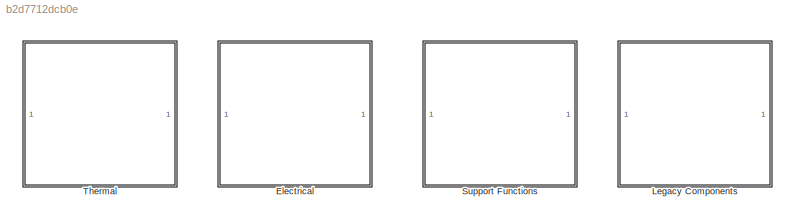
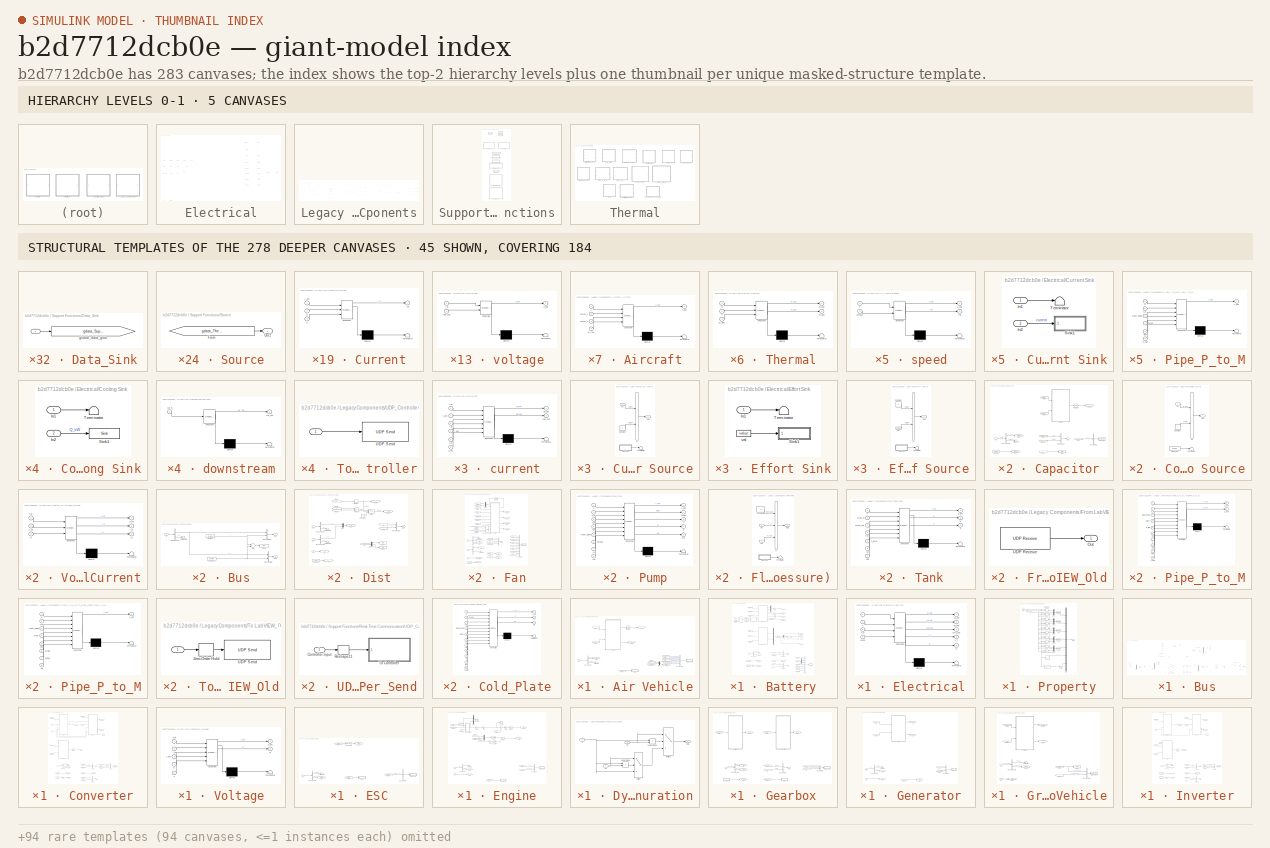
[diagram: thumbnail index - top-2 hierarchy levels (5 canvases) + 45 structural-template representatives of the remaining 278 canvases]
MODEL slx_b2d7712dcb0e
KIND library
CONFIG AbsTol = auto
CONFIG EnableMultiTasking = off
CONFIG FixedStep = 0.1
CONFIG MaxStep = auto
CONFIG MinStep = auto
CONFIG RelTol = 1e-3
CONFIG SampleTimeConstraint = Unconstrained
CONFIG Solver = ode45
CONFIG SolverName = ode45
CONFIG StartTime = 0.0
CONFIG StopTime = 10.0
BLOCK [SubSystem] Electrical
  Ports = []
  RequestExecContextInheritance = off
BLOCK [SubSystem] Electrical/Air Vehicle
  CopyFcn = h      = get_param(gcb,'handle');   % Get block handle\nblk    = gcb; \n\nset_param(blk, 'LinkStatus', 'inactive')\nclear h\nclear blk
  Ports = [1]
  RequestExecContextInheritance = off
BLOCK [BusCreator] Electrical/Air Vehicle/Bus Creator2
  DisplayOption = bar
  InheritFromInputs = on
  Inputs = 4
  Ports = [4, 1]
BLOCK [BusSelector] Electrical/Air Vehicle/Bus Selector2
  OutputAsBus = off
  OutputSignals = aspeed,torque
  Ports = [1, 2]
BLOCK [Constant] Electrical/Air Vehicle/Constant
  Value = theta
BLOCK [SubSystem] Electrical/Air Vehicle/Data_Sink
  CopyFcn = h      = get_param(gcb,'handle');   % Get block handle                           \nhblock = get(h);     % Parse out handles structure\n\nstr = [hblock.Path(numel(bdroot)+2:end), hblock.Name];\nstr(~ismember(str,['A':'Z' 'a':'z' '0':'9' '_'])) = '';                     \nset_param([gcb, '/global_data_goto'],'GotoTag',['gdata_',str]);\n                               \n                                      ...<+62ch>  <repeated x11 — deduplicated; at blocks: Data_Sink>
  InitFcn = h      = get_param(gcb,'handle');   % Get block handle                           \nhblock = get(h);     % Parse out handles structure\n\nstr = [hblock.Path(numel(bdroot)+2:end), hblock.Name];\nstr(~ismember(str,['A':'Z' 'a':'z' '0':'9' '_'])) = '';                     \nset_param([gcb, '/global_data_goto'],'GotoTag',['gdata_',str]);\n                               \n                                      ...<+62ch>  <repeated x11 — deduplicated; at blocks: Data_Sink>
  LoadFcn = h      = get_param(gcb,'handle');   % Get block handle                           \nhblock = get(h);     % Parse out handles structure\n\nstr = [hblock.Path(numel(bdroot)+2:end), hblock.Name];\nstr(~ismember(str,['A':'Z' 'a':'z' '0':'9' '_'])) = '';                     \nset_param([gcb, '/global_data_goto'],'GotoTag',['gdata_',str]);\n                               \n                                      ...<+62ch>  <repeated x11 — deduplicated; at blocks: Data_Sink>
  NameChangeFcn = h      = get_param(gcb,'handle');   % Get block handle                           \nhblock = get(h);     % Parse out handles structure\n\nstr = [hblock.Path(numel(bdroot)+2:end), hblock.Name];\nstr(~ismember(str,['A':'Z' 'a':'z' '0':'9' '_'])) = '';                     \nset_param([gcb, '/global_data_goto'],'GotoTag',['gdata_',str]);\n                               \n                                      ...<+62ch>  <repeated x11 — deduplicated; at blocks: Data_Sink>
  Ports = [1]
  RequestExecContextInheritance = off
BLOCK [Inport] Electrical/Air Vehicle/Data_Sink/ 
  IconDisplay = Port number
BLOCK [Goto] Electrical/Air Vehicle/Data_Sink/global_data_goto
  GotoTag = gdata_ElectricalAirVehicleData_Sink
  Tag = 132123
  TagVisibility = global
BLOCK [Fcn] Electrical/Air Vehicle/Fcn
  Expr = u(1)*cos(u(2))
BLOCK [Fcn] Electrical/Air Vehicle/Fcn1
  Expr = u(1)*sin(u(2))
BLOCK [From] Electrical/Air Vehicle/From
  GotoTag = tau
BLOCK [From] Electrical/Air Vehicle/From1
  GotoTag = v
BLOCK [From] Electrical/Air Vehicle/From14
  GotoTag = omega
BLOCK [From] Electrical/Air Vehicle/From16
  GotoTag = v
BLOCK [From] Electrical/Air Vehicle/From17
  GotoTag = tau
BLOCK [From] Electrical/Air Vehicle/From2
  GotoTag = v
BLOCK [Goto] Electrical/Air Vehicle/Goto1
  GotoTag = v
BLOCK [Goto] Electrical/Air Vehicle/Goto3
  GotoTag = tau
BLOCK [Goto] Electrical/Air Vehicle/Goto9
  GotoTag = omega
BLOCK [Inport] Electrical/Air Vehicle/In1
  IconDisplay = Port number
BLOCK [Integrator] Electrical/Air Vehicle/Integrator
  InitialCondition = v_initial
  Ports = [1, 1]
BLOCK [Mux] Electrical/Air Vehicle/Mux
  DisplayOption = bar
  Inputs = 2
  Ports = [2, 1]
BLOCK [SubSystem] Electrical/Air Vehicle/Sink1
  CopyFcn = rev_comms_sink();
  InitFcn = rev_comms_sink();
  LoadFcn = rev_comms_sink();
  NameChangeFcn = rev_comms_sink();
  Ports = [1]
  RequestExecContextInheritance = off
BLOCK [Goto] Electrical/Air Vehicle/Sink1/Goto
  GotoTag = gdata_DAEMOT_LibElectricalAirVehicleSink1
  TagVisibility = global
BLOCK [Inport] Electrical/Air Vehicle/Sink1/In1
  IconDisplay = Port number
BLOCK [Terminator] Electrical/Air Vehicle/Terminator1
BLOCK [SubSystem] Electrical/Air Vehicle/speed
  ErrorFcn = Stateflow.Translate.translate
  PermitHierarchicalResolution = ExplicitOnly
  Ports = [2, 2]
  RequestExecContextInheritance = off
  SFBlockType = MATLAB Function
  TreatAsAtomicUnit = on
BLOCK [Demux] Electrical/Air Vehicle/speed/ Demux 
  Outputs = 1
  Ports = [1, 1]
BLOCK [S-Function] Electrical/Air Vehicle/speed/ SFunction 
  EnableBusSupport = on
  FunctionName = sf_sfun
  Parameters = A,C_D,C_T,C_tau,M,d,eta,g,rho,theta
  PortCounts = [2 3]
  Ports = [2, 3]
  SFcnIsStateOwnerBlock = off
  SFunctionDeploymentMode = off
  Tag = Stateflow S-Function 80
BLOCK [Terminator] Electrical/Air Vehicle/speed/ Terminator 
BLOCK [Inport] Electrical/Air Vehicle/speed/omega
  IconDisplay = Port number
  Port = 2
BLOCK [Outport] Electrical/Air Vehicle/speed/tau
  IconDisplay = Port number
  Port = 2
BLOCK [Inport] Electrical/Air Vehicle/speed/v
  IconDisplay = Port number
BLOCK [Outport] Electrical/Air Vehicle/speed/v_dot
  IconDisplay = Port number
BLOCK [SubSystem] Electrical/Battery
  AncestorBlock = DAEMOT_Lib_Copy/Dyn Electrical Comp/Battery
  CopyFcn = h      = get_param(gcb,'handle');   % Get block handle\nblk    = gcb; \n\nset_param(blk, 'LinkStatus', 'inactive')\nclear h\nclear blk
  Ports = [1, 2]
  RequestExecContextInheritance = off
BLOCK [Sum] Electrical/Battery/Add1
  InputSameDT = off
  OutDataTypeStr = Inherit: Inherit via internal rule
  Ports = [2, 1]
  SaturateOnIntegerOverflow = off
BLOCK [BusCreator] Electrical/Battery/Bus Creator
  DisplayOption = bar
  InheritFromInputs = on
  Inputs = 7
  Ports = [7, 1]
BLOCK [BusCreator] Electrical/Battery/Bus Creator1
  DisplayOption = bar
  InheritFromInputs = on
  Inputs = 2
  Ports = [2, 1]
BLOCK [BusCreator] Electrical/Battery/Bus Creator3
  DisplayOption = bar
  InheritFromInputs = on
  Inputs = 2
  Ports = [2, 1]
BLOCK [BusSelector] Electrical/Battery/Bus Selector1
  OutputAsBus = off
  OutputSignals = current,voltage
  Ports = [1, 2]
BLOCK [Constant] Electrical/Battery/Constant
  Value = t
BLOCK [SubSystem] Electrical/Battery/Data_Sink
  Ports = [1]
  RequestExecContextInheritance = off
BLOCK [Inport] Electrical/Battery/Data_Sink/ 
  IconDisplay = Port number
BLOCK [Goto] Electrical/Battery/Data_Sink/global_data_goto
  GotoTag = gdata_ElectricalBatteryData_Sink
  Tag = 132123
  TagVisibility = global
BLOCK [Demux] Electrical/Battery/Demux
  DisplayOption = bar
  Outputs = 2
  Ports = [1, 2]
BLOCK [Demux] Electrical/Battery/Demux1
  DisplayOption = bar
  Outputs = 2
  Ports = [1, 2]
BLOCK [SubSystem] Electrical/Battery/Electrical
  ErrorFcn = Stateflow.Translate.translate
  PermitHierarchicalResolution = ExplicitOnly
  Ports = [4, 5]
  RequestExecContextInheritance = off
  SFBlockType = MATLAB Function
  TreatAsAtomicUnit = on
BLOCK [Demux] Electrical/Battery/Electrical/ Demux 
  Outputs = 1
  Ports = [1, 1]
BLOCK [S-Function] Electrical/Battery/Electrical/ SFunction 
  EnableBusSupport = off
  FunctionName = sf_sfun
  Parameters = B_cap,Np,Ns
  PortCounts = [4 6]
  Ports = [4, 6]
  SFcnIsStateOwnerBlock = off
  SFunctionDeploymentMode = off
  Tag = Stateflow S-Function 28
BLOCK [Terminator] Electrical/Battery/Electrical/ Terminator 
BLOCK [Inport] Electrical/Battery/Electrical/I
  IconDisplay = Port number
BLOCK [Outport] Electrical/Battery/Electrical/Q
  IconDisplay = Port number
  Port = 5
BLOCK [Outport] Electrical/Battery/Electrical/SOC_dot
  IconDisplay = Port number
  Port = 3
BLOCK [Inport] Electrical/Battery/Electrical/T_m
  IconDisplay = Port number
  Port = 3
BLOCK [Inport] Electrical/Battery/Electrical/V
  IconDisplay = Port number
  Port = 2
BLOCK [Outport] Electrical/Battery/Electrical/V1_dot
  IconDisplay = Port number
BLOCK [Outport] Electrical/Battery/Electrical/V2_dot
  IconDisplay = Port number
  Port = 2
BLOCK [Outport] Electrical/Battery/Electrical/V_T
  IconDisplay = Port number
  Port = 4
BLOCK [Inport] Electrical/Battery/Electrical/props
  IconDisplay = Port number
  Port = 4
BLOCK [From] Electrical/Battery/From
  GotoTag = SOC
BLOCK [From] Electrical/Battery/From1
  GotoTag = V_out
BLOCK [From] Electrical/Battery/From10
  GotoTag = V_out
BLOCK [From] Electrical/Battery/From11
  GotoTag = V
BLOCK [From] Electrical/Battery/From12
  GotoTag = I
BLOCK [From] Electrical/Battery/From14
  GotoTag = I
BLOCK [From] Electrical/Battery/From16
  GotoTag = V
BLOCK [From] Electrical/Battery/From17
  GotoTag = T_M
BLOCK [From] Electrical/Battery/From19
  GotoTag = SOC
BLOCK [From] Electrical/Battery/From2
  GotoTag = T_C
BLOCK [From] Electrical/Battery/From20
  GotoTag = Q_int
BLOCK [From] Electrical/Battery/From21
  GotoTag = T
BLOCK [From] Electrical/Battery/From25
  GotoTag = V_in
BLOCK [From] Electrical/Battery/From3
  GotoTag = T_S
BLOCK [From] Electrical/Battery/From4
  GotoTag = T_S
BLOCK [From] Electrical/Battery/From5
  GotoTag = Q_sink
BLOCK [From] Electrical/Battery/From6
  GotoTag = I
BLOCK [From] Electrical/Battery/From7
  GotoTag = Q_sink
BLOCK [From] Electrical/Battery/From8
  GotoTag = I
BLOCK [From] Electrical/Battery/From9
  GotoTag = current
BLOCK [Gain] Electrical/Battery/Gain
  Gain = 1000
  OutDataTypeStr = Inherit: Inherit via internal rule
  ParamDataTypeStr = Inherit: Inherit via internal rule
  SaturateOnIntegerOverflow = off
BLOCK [Gain] Electrical/Battery/Gain1
  Gain = 0.5
  OutDataTypeStr = Inherit: Inherit via internal rule
  ParamDataTypeStr = Inherit: Inherit via internal rule
  SaturateOnIntegerOverflow = off
BLOCK [Goto] Electrical/Battery/Goto
  GotoTag = SOC
BLOCK [Goto] Electrical/Battery/Goto1
  GotoTag = V_out
BLOCK [Goto] Electrical/Battery/Goto10
  GotoTag = V
BLOCK [Goto] Electrical/Battery/Goto11
  GotoTag = T_M
BLOCK [Goto] Electrical/Battery/Goto12
  GotoTag = Q_int
BLOCK [Goto] Electrical/Battery/Goto13
  GotoTag = T
BLOCK [Goto] Electrical/Battery/Goto2
  GotoTag = T_C
BLOCK [Goto] Electrical/Battery/Goto3
  GotoTag = T_S
BLOCK [Goto] Electrical/Battery/Goto4
  GotoTag = Q_sink
BLOCK [Goto] Electrical/Battery/Goto7
  GotoTag = I
BLOCK [Goto] Electrical/Battery/Goto8
  GotoTag = V_in
BLOCK [Inport] Electrical/Battery/In1
  IconDisplay = Port number
BLOCK [Mux] Electrical/Battery/Mux
  DisplayOption = bar
  Inputs = 2
  Ports = [2, 1]
BLOCK [Mux] Electrical/Battery/Mux2
  DisplayOption = bar
  Inputs = 2
  Ports = [2, 1]
BLOCK [Outport] Electrical/Battery/Out1
  IconDisplay = Port number
BLOCK [Outport] Electrical/Battery/Out2
  IconDisplay = Port number
  Port = 2
BLOCK [SubSystem] Electrical/Battery/Property
  Ports = [3, 1]
  RequestExecContextInheritance = off
BLOCK [Lookup] Electrical/Battery/Property/ 
  InputValues = cell.V_SOC
  LookUpMeth = Interpolation-Use End Values
  SaturateOnIntegerOverflow = off
  Table = cell.Vocv
BLOCK [Fcn] Electrical/Battery/Property/Fcn1
  Expr = ((u(1)-u(3))/(1+exp(-50*u(2))))+u(3)
BLOCK [Fcn] Electrical/Battery/Property/Fcn2
  Expr = ((u(1)-u(3))/(1+exp(-50*u(2))))+u(3)
BLOCK [Fcn] Electrical/Battery/Property/Fcn3
  Expr = ((u(1)-u(3))/(1+exp(-50*u(2))))+u(3)
BLOCK [Fcn] Electrical/Battery/Property/Fcn4
  Expr = ((u(1)-u(3))/(1+exp(-50*u(2))))+u(3)
BLOCK [Fcn] Electrical/Battery/Property/Fcn5
  Expr = ((u(1)-u(3))/(1+exp(-50*u(2))))+u(3)
BLOCK [Gain] Electrical/Battery/Property/Gain
  Gain = Ns
  OutDataTypeStr = Inherit: Inherit via internal rule
  ParamDataTypeStr = Inherit: Inherit via internal rule
  SaturateOnIntegerOverflow = off
BLOCK [Inport] Electrical/Battery/Property/I
  IconDisplay = Port number
BLOCK [Mux] Electrical/Battery/Property/Mux
  DisplayOption = bar
  Inputs = 7
  Ports = [7, 1]
BLOCK [Mux] Electrical/Battery/Property/Mux1
  DisplayOption = bar
  Inputs = 3
  Ports = [3, 1]
BLOCK [Mux] Electrical/Battery/Property/Mux2
  DisplayOption = bar
  Inputs = 3
  Ports = [3, 1]
BLOCK [Mux] Electrical/Battery/Property/Mux3
  DisplayOption = bar
  Inputs = 3
  Ports = [3, 1]
BLOCK [Mux] Electrical/Battery/Property/Mux4
  DisplayOption = bar
  Inputs = 3
  Ports = [3, 1]
BLOCK [Mux] Electrical/Battery/Property/Mux5
  DisplayOption = bar
  Inputs = 3
  Ports = [3, 1]
BLOCK [Outport] Electrical/Battery/Property/Props
  IconDisplay = Port number
BLOCK [Inport] Electrical/Battery/Property/SOC
  IconDisplay = Port number
  Port = 3
BLOCK [Inport] Electrical/Battery/Property/T_m
  IconDisplay = Port number
  Port = 2
BLOCK [Lookup_n-D] Electrical/Battery/Property/n-D Lookup Table1
  BreakpointsForDimension1 = cell.RC_SOC_c
  BreakpointsForDimension2 = cell.Temp
  BreakpointsForDimension3 = [5, 7]
  Ports = [2, 1]
  RndMeth = Simplest
  Table = cell.Rs_c
BLOCK [Lookup_n-D] Electrical/Battery/Property/n-D Lookup Table13
  BreakpointsForDimension1 = cell.RC_SOC_d
  BreakpointsForDimension2 = cell.Temp
  BreakpointsForDimension3 = [5, 7]
  Ports = [2, 1]
  RndMeth = Simplest
  Table = cell.Rs_d
BLOCK [Lookup_n-D] Electrical/Battery/Property/n-D Lookup Table2
  BreakpointsForDimension1 = cell.RC_SOC_d
  BreakpointsForDimension2 = cell.Temp
  BreakpointsForDimension3 = [5, 7]
  Ports = [2, 1]
  RndMeth = Simplest
  Table = cell.R1_d
BLOCK [Lookup_n-D] Electrical/Battery/Property/n-D Lookup Table3
  BreakpointsForDimension1 = cell.RC_SOC_c
  BreakpointsForDimension2 = cell.Temp
  BreakpointsForDimension3 = [5, 7]
  Ports = [2, 1]
  RndMeth = Simplest
  Table = cell.R1_c
BLOCK [Lookup_n-D] Electrical/Battery/Property/n-D Lookup Table4
  BreakpointsForDimension1 = cell.RC_SOC_d
  BreakpointsForDimension2 = cell.Temp
  BreakpointsForDimension3 = [5, 7]
  Ports = [2, 1]
  RndMeth = Simplest
  Table = cell.C1_d
BLOCK [Lookup_n-D] Electrical/Battery/Property/n-D Lookup Table5
  BreakpointsForDimension1 = cell.RC_SOC_c
  BreakpointsForDimension2 = cell.Temp
  BreakpointsForDimension3 = [5, 7]
  Ports = [2, 1]
  RndMeth = Simplest
  Table = cell.C1_c
BLOCK [Lookup_n-D] Electrical/Battery/Property/n-D Lookup Table6
  BreakpointsForDimension1 = cell.RC_SOC_d
  BreakpointsForDimension2 = cell.Temp
  BreakpointsForDimension3 = [5, 7]
  Ports = [2, 1]
  RndMeth = Simplest
  Table = cell.R2_d
BLOCK [Lookup_n-D] Electrical/Battery/Property/n-D Lookup Table7
  BreakpointsForDimension1 = cell.RC_SOC_c
  BreakpointsForDimension2 = cell.Temp
  BreakpointsForDimension3 = [5, 7]
  Ports = [2, 1]
  RndMeth = Simplest
  Table = cell.R2_c
BLOCK [Lookup_n-D] Electrical/Battery/Property/n-D Lookup Table8
  BreakpointsForDimension1 = cell.RC_SOC_d
  BreakpointsForDimension2 = cell.Temp
  BreakpointsForDimension3 = [5, 7]
  Ports = [2, 1]
  RndMeth = Simplest
  Table = cell.C2_d
BLOCK [Lookup_n-D] Electrical/Battery/Property/n-D Lookup Table9
  BreakpointsForDimension1 = cell.RC_SOC_c
  BreakpointsForDimension2 = cell.Temp
  BreakpointsForDimension3 = [5, 7]
  Ports = [2, 1]
  RndMeth = Simplest
  Table = cell.C2_c
BLOCK [Integrator] Electrical/Battery/SOC_dot
  InitialCondition = SOC_initial
  Ports = [1, 1]
BLOCK [SubSystem] Electrical/Battery/Sink1
  CopyFcn = rev_comms_sink();
  InitFcn = rev_comms_sink();
  LoadFcn = rev_comms_sink();
  NameChangeFcn = rev_comms_sink();
  Ports = [1]
  RequestExecContextInheritance = off
BLOCK [Goto] Electrical/Battery/Sink1/Goto
  GotoTag = gdata_DAEMOT_LibElectricalBatterySink1
  TagVisibility = global
BLOCK [Inport] Electrical/Battery/Sink1/In1
  IconDisplay = Port number
BLOCK [SubSystem] Electrical/Battery/Source1
  Ports = [0, 1]
  RequestExecContextInheritance = off
BLOCK [From] Electrical/Battery/Source1/From
  GotoTag = NULL
  TagVisibility = global
BLOCK [Outport] Electrical/Battery/Source1/Out1
  IconDisplay = Port number
BLOCK [SubSystem] Electrical/Battery/Source2
  Ports = [0, 1]
  RequestExecContextInheritance = off
BLOCK [From] Electrical/Battery/Source2/From
  GotoTag = NULL
  TagVisibility = global
BLOCK [Outport] Electrical/Battery/Source2/Out1
  IconDisplay = Port number
BLOCK [Sum] Electrical/Battery/Sum
  IconShape = round
  InputSameDT = off
  Inputs = |++
  OutDataTypeStr = Inherit: Inherit via internal rule
  Ports = [2, 1]
  SaturateOnIntegerOverflow = off
BLOCK [Switch] Electrical/Battery/Switch
  Criteria = u2 > Threshold
  InputSameDT = off
  SaturateOnIntegerOverflow = off
  Threshold = 1.5
BLOCK [Terminator] Electrical/Battery/Terminator
BLOCK [SubSystem] Electrical/Battery/Thermal
  ErrorFcn = Stateflow.Translate.translate
  PermitHierarchicalResolution = ExplicitOnly
  Ports = [3, 2]
  RequestExecContextInheritance = off
  SFBlockType = MATLAB Function
  TreatAsAtomicUnit = on
BLOCK [Demux] Electrical/Battery/Thermal/ Demux 
  Outputs = 1
  Ports = [1, 1]
BLOCK [S-Function] Electrical/Battery/Thermal/ SFunction 
  EnableBusSupport = off
  FunctionName = sf_sfun
  Parameters = C_c,C_s,Np,Ns,R_cond
  PortCounts = [3 3]
  Ports = [3, 3]
  SFcnIsStateOwnerBlock = off
  SFunctionDeploymentMode = off
  Tag = Stateflow S-Function 32
BLOCK [Terminator] Electrical/Battery/Thermal/ Terminator 
BLOCK [Inport] Electrical/Battery/Thermal/Q
  IconDisplay = Port number
BLOCK [Inport] Electrical/Battery/Thermal/Q_sink
  IconDisplay = Port number
  Port = 3
BLOCK [Inport] Electrical/Battery/Thermal/T
  IconDisplay = Port number
  Port = 2
BLOCK [Outport] Electrical/Battery/Thermal/Tc_dot
  IconDisplay = Port number
BLOCK [Outport] Electrical/Battery/Thermal/Ts_dot
  IconDisplay = Port number
  Port = 2
BLOCK [Integrator] Electrical/Battery/Volatges
  InitialCondition = RC_initial
  Ports = [1, 1]
BLOCK [Integrator] Electrical/Battery/[Tc,Ts,Tf]_dot
  InitialCondition = [Tc_initial, Ts_initial]
  Ports = [1, 1]
BLOCK [From] Electrical/Battery/temp1
  GotoTag = T_C
BLOCK [From] Electrical/Battery/temp2
  GotoTag = T_M
BLOCK [SubSystem] Electrical/Bus
  CopyFcn = h      = get_param(gcb,'handle');   % Get block handle\nblk    = gcb; \n\nset_param(blk, 'LinkStatus', 'inactive')\nclear h\nclear blk
  Ports = [4, 2]
  RequestExecContextInheritance = off
BLOCK [BusCreator] Electrical/Bus/Bus_Sink_1
  DisplayOption = bar
  InheritFromInputs = on
  Inputs = 3
  Ports = [3, 1]
BLOCK [Reference] Electrical/Bus/Data_Sink  REF=$bdroot/Support Functions/Data_Sink
  Ports = [1]
  SourceBlock = $bdroot/Support Functions/Data_Sink
  SourceType = Data Sink
BLOCK [Demux] Electrical/Bus/Demux_Out_1
  DisplayOption = bar
  Outputs = 2
  Ports = [1, 2]
BLOCK [Demux] Electrical/Bus/Demux_Out_2
  DisplayOption = bar
  Outputs = 2
  Ports = [1, 2]
BLOCK [From] Electrical/Bus/From1
  CloseFcn = tagdialog Close
  GotoTag = V_in
BLOCK [From] Electrical/Bus/From2
  CloseFcn = tagdialog Close
  GotoTag = V_out
BLOCK [From] Electrical/Bus/From3
  CloseFcn = tagdialog Close
  GotoTag = V_out
BLOCK [Goto] Electrical/Bus/Goto1
  GotoTag = I_in
BLOCK [Goto] Electrical/Bus/Goto2
  GotoTag = V_out
BLOCK [Goto] Electrical/Bus/Goto3
  GotoTag = V_in
BLOCK [Goto] Electrical/Bus/Goto4
  GotoTag = I_out
BLOCK [Inport] Electrical/Bus/In1
  IconDisplay = Port number
BLOCK [Inport] Electrical/Bus/In2
  IconDisplay = Port number
  Port = 2
BLOCK [Integrator] Electrical/Bus/Integrator1
  InitialCondition = V_initial
  Ports = [1, 1]
BLOCK [Integrator] Electrical/Bus/Integrator2
  InitialCondition = I_initial*ones(Num_In,1)
  Ports = [1, 1]
BLOCK [Mux] Electrical/Bus/Mux_In_1
  DisplayOption = bar
  Inputs = 2
  Ports = [2, 1]
BLOCK [Mux] Electrical/Bus/Mux_In_2
  DisplayOption = bar
  Inputs = 2
  Ports = [2, 1]
BLOCK [Outport] Electrical/Bus/Out1
  IconDisplay = Port number
  VectorParamsAs1DForOutWhenUnconnected = off
BLOCK [Outport] Electrical/Bus/Out2
  IconDisplay = Port number
  Port = 2
  VectorParamsAs1DForOutWhenUnconnected = off
BLOCK [Product] Electrical/Bus/Product
  InputSameDT = off
  OutDataTypeStr = Inherit: Inherit via internal rule
  Ports = [2, 1]
  RndMeth = Floor
  SaturateOnIntegerOverflow = off
BLOCK [Reshape] Electrical/Bus/Reshape
  Ports = [1, 1]
BLOCK [Reshape] Electrical/Bus/Reshape1
  Ports = [1, 1]
BLOCK [Selector] Electrical/Bus/Selector1
  IndexOptions = Index vector (dialog)
  Indices = [1 2 ]
  InputPortWidth = 2
  OutputSizes = 1
  Ports = [1, 1]
BLOCK [Selector] Electrical/Bus/Selector2
  IndexOptions = Index vector (dialog)
  Indices = [1 2 ]
  InputPortWidth = 2
  OutputSizes = 1
  Ports = [1, 1]
BLOCK [Reference] Electrical/Bus/Sink1  REF=$bdroot/Support Functions/Sink
  Ports = [1]
  SourceBlock = $bdroot/Support Functions/Sink
  SourceType = Sink
BLOCK [Reference] Electrical/Bus/Sink2  REF=$bdroot/Support Functions/Sink
  Ports = [1]
  SourceBlock = $bdroot/Support Functions/Sink
  SourceType = Sink
BLOCK [Reference] Electrical/Bus/Source1  REF=$bdroot/Support Functions/Source
  Ports = [0, 1]
  SourceBlock = $bdroot/Support Functions/Source
  SourceType = Source
BLOCK [Reference] Electrical/Bus/Source2  REF=$bdroot/Support Functions/Source
  Ports = [0, 1]
  SourceBlock = $bdroot/Support Functions/Source
  SourceType = Source
BLOCK [BusCreator] Electrical/Bus/b1
  DisplayOption = bar
  InheritFromInputs = on
  Inputs = 2
  Ports = [2, 1]
BLOCK [BusCreator] Electrical/Bus/b2
  DisplayOption = bar
  InheritFromInputs = on
  Inputs = 2
  Ports = [2, 1]
BLOCK [SubSystem] Electrical/Bus/current
  ErrorFcn = Stateflow.Translate.translate
  PermitHierarchicalResolution = ExplicitOnly
  Ports = [6, 2]
  RequestExecContextInheritance = off
  SFBlockType = MATLAB Function
  TreatAsAtomicUnit = on
BLOCK [Demux] Electrical/Bus/current/ Demux 
  Outputs = 1
  Ports = [1, 1]
BLOCK [S-Function] Electrical/Bus/current/ SFunction 
  EnableBusSupport = off
  FunctionName = sf_sfun
  Parameters = L,R
  PortCounts = [6 3]
  Ports = [6, 3]
  SFcnIsStateOwnerBlock = off
  SFunctionDeploymentMode = off
  Tag = Stateflow S-Function 43
BLOCK [Terminator] Electrical/Bus/current/ Terminator 
BLOCK [Inport] Electrical/Bus/current/I_in
  IconDisplay = Port number
  Port = 3
BLOCK [Inport] Electrical/Bus/current/I_out
  IconDisplay = Port number
  Port = 4
BLOCK [Outport] Electrical/Bus/current/Iin_dot
  IconDisplay = Port number
  VectorParamsAs1DForOutWhenUnconnected = off
BLOCK [Outport] Electrical/Bus/current/Iout_bar
  IconDisplay = Port number
  Port = 2
  VectorParamsAs1DForOutWhenUnconnected = off
BLOCK [Inport] Electrical/Bus/current/V_in
  IconDisplay = Port number
BLOCK [Inport] Electrical/Bus/current/V_out
  IconDisplay = Port number
  Port = 2
BLOCK [Inport] Electrical/Bus/current/u_in
  IconDisplay = Port number
  Port = 5
BLOCK [Inport] Electrical/Bus/current/u_out
  IconDisplay = Port number
  Port = 6
BLOCK [BusSelector] Electrical/Bus/gb1
  OutputAsBus = off
  OutputSignals = current,voltage
  Ports = [1, 2]
BLOCK [BusSelector] Electrical/Bus/gb2
  OutputAsBus = off
  OutputSignals = current,voltage
  Ports = [1, 2]
BLOCK [From] Electrical/Bus/if1
  GotoTag = I_out1
BLOCK [From] Electrical/Bus/if2
  GotoTag = I_out2
BLOCK [Goto] Electrical/Bus/ig1
  GotoTag = I_out1
BLOCK [Goto] Electrical/Bus/ig2
  GotoTag = I_out2
BLOCK [From] Electrical/Bus/io1
  GotoTag = I_out1
BLOCK [From] Electrical/Bus/io2
  GotoTag = I_out2
BLOCK [From] Electrical/Bus/ios1
  GotoTag = I_out1
BLOCK [From] Electrical/Bus/ios2
  GotoTag = I_out2
BLOCK [From] Electrical/Bus/p1
  GotoTag = V_out1
BLOCK [From] Electrical/Bus/t1
  CloseFcn = tagdialog Close
  GotoTag = I_out
BLOCK [From] Electrical/Bus/t2
  CloseFcn = tagdialog Close
  GotoTag = I_in
BLOCK [From] Electrical/Bus/t3
  CloseFcn = tagdialog Close
  GotoTag = I_in
BLOCK [Terminator] Electrical/Bus/term1
BLOCK [Terminator] Electrical/Bus/term2
BLOCK [Inport] Electrical/Bus/u_In
  IconDisplay = Port number
  Port = 3
BLOCK [Inport] Electrical/Bus/u_Out
  IconDisplay = Port number
  Port = 4
BLOCK [From] Electrical/Bus/vin1
  CloseFcn = tagdialog Close
  GotoTag = V_in1
BLOCK [From] Electrical/Bus/vin2
  GotoTag = V_in2
BLOCK [Goto] Electrical/Bus/vm1
  GotoTag = V_in1
BLOCK [Goto] Electrical/Bus/vm2
  GotoTag = V_in2
BLOCK [From] Electrical/Bus/vo2
  GotoTag = V_out2
BLOCK [SubSystem] Electrical/Bus/voltage
  ErrorFcn = Stateflow.Translate.translate
  PermitHierarchicalResolution = ExplicitOnly
  Ports = [2, 1]
  RequestExecContextInheritance = off
  SFBlockType = MATLAB Function
  TreatAsAtomicUnit = on
BLOCK [Demux] Electrical/Bus/voltage/ Demux 
  Outputs = 1
  Ports = [1, 1]
BLOCK [S-Function] Electrical/Bus/voltage/ SFunction 
  EnableBusSupport = off
  FunctionName = sf_sfun
  Parameters = C
  PortCounts = [2 2]
  Ports = [2, 2]
  SFcnIsStateOwnerBlock = off
  SFunctionDeploymentMode = off
  Tag = Stateflow S-Function 44
BLOCK [Terminator] Electrical/Bus/voltage/ Terminator 
BLOCK [Inport] Electrical/Bus/voltage/I_in
  IconDisplay = Port number
BLOCK [Inport] Electrical/Bus/voltage/Ibar_out
  IconDisplay = Port number
  Port = 2
BLOCK [Outport] Electrical/Bus/voltage/V_dot
  IconDisplay = Port number
  VectorParamsAs1DForOutWhenUnconnected = off
BLOCK [Goto] Electrical/Bus/vot1
  GotoTag = V_out1
BLOCK [Goto] Electrical/Bus/vot2
  GotoTag = V_out2
BLOCK [SubSystem] Electrical/Capacitor
  Ports = [1, 1]
  RequestExecContextInheritance = off
BLOCK [BusCreator] Electrical/Capacitor/Bus Creator1
  DisplayOption = bar
  InheritFromInputs = on
  Inputs = 1
  Ports = [1, 1]
BLOCK [BusCreator] Electrical/Capacitor/Bus Creator3
  DisplayOption = bar
  InheritFromInputs = on
  Inputs = 2
  Ports = [2, 1]
BLOCK [BusSelector] Electrical/Capacitor/Bus Selector1
  OutputAsBus = off
  OutputSignals = current,voltage
  Ports = [1, 2]
BLOCK [Reference] Electrical/Capacitor/Data_Sink  REF=$bdroot/Support Functions/Data_Sink
  Ports = [1]
  SourceBlock = $bdroot/Support Functions/Data_Sink
  SourceType = Data Sink
BLOCK [From] Electrical/Capacitor/From1
  GotoTag = Current_out
BLOCK [From] Electrical/Capacitor/From10
  GotoTag = V
BLOCK [From] Electrical/Capacitor/From12
  GotoTag = V
BLOCK [From] Electrical/Capacitor/From2
  GotoTag = V
BLOCK [From] Electrical/Capacitor/From6
  GotoTag = Current_in
BLOCK [From] Electrical/Capacitor/From8
  GotoTag = Current_out
BLOCK [Goto] Electrical/Capacitor/Goto1
  GotoTag = V
BLOCK [Goto] Electrical/Capacitor/Goto2
  GotoTag = Current_in
BLOCK [Goto] Electrical/Capacitor/Goto7
  GotoTag = Current_out
BLOCK [Inport] Electrical/Capacitor/In1
  IconDisplay = Port number
BLOCK [Integrator] Electrical/Capacitor/Integrator2
  InitialCondition = V_initial
  Ports = [1, 1]
BLOCK [Outport] Electrical/Capacitor/Out1
  IconDisplay = Port number
  VectorParamsAs1DForOutWhenUnconnected = off
BLOCK [Reference] Electrical/Capacitor/Sink1  REF=$bdroot/Support Functions/Sink
  Ports = [1]
  SourceBlock = $bdroot/Support Functions/Sink
  SourceType = Sink
BLOCK [Reference] Electrical/Capacitor/Source1  REF=$bdroot/Support Functions/Source
  Ports = [0, 1]
  SourceBlock = $bdroot/Support Functions/Source
  SourceType = Source
BLOCK [Terminator] Electrical/Capacitor/Terminator
BLOCK [SubSystem] Electrical/Capacitor/Voltage
  ErrorFcn = Stateflow.Translate.translate
  PermitHierarchicalResolution = ExplicitOnly
  Ports = [2, 1]
  RequestExecContextInheritance = off
  SFBlockType = MATLAB Function
  TreatAsAtomicUnit = on
BLOCK [Demux] Electrical/Capacitor/Voltage/ Demux 
  Outputs = 1
  Ports = [1, 1]
BLOCK [S-Function] Electrical/Capacitor/Voltage/ SFunction 
  EnableBusSupport = off
  FunctionName = sf_sfun
  Parameters = C
  PortCounts = [2 2]
  Ports = [2, 2]
  SFcnIsStateOwnerBlock = off
  SFunctionDeploymentMode = off
  Tag = Stateflow S-Function 40
BLOCK [Terminator] Electrical/Capacitor/Voltage/ Terminator 
BLOCK [Inport] Electrical/Capacitor/Voltage/I_in
  IconDisplay = Port number
BLOCK [Inport] Electrical/Capacitor/Voltage/I_out
  IconDisplay = Port number
  Port = 2
BLOCK [Outport] Electrical/Capacitor/Voltage/V_dot
  IconDisplay = Port number
  VectorParamsAs1DForOutWhenUnconnected = off
BLOCK [SubSystem] Electrical/Converter
  Ports = [3, 2]
  RequestExecContextInheritance = off
BLOCK [BusCreator] Electrical/Converter/Bus Creator1
  DisplayOption = bar
  InheritFromInputs = on
  Inputs = 2
  Ports = [2, 1]
BLOCK [BusCreator] Electrical/Converter/Bus Creator2
  DisplayOption = bar
  InheritFromInputs = on
  Inputs = 3
  Ports = [3, 1]
BLOCK [BusCreator] Electrical/Converter/Bus Creator3
  DisplayOption = bar
  InheritFromInputs = on
  Inputs = 2
  Ports = [2, 1]
BLOCK [BusSelector] Electrical/Converter/Bus Selector1
  OutputAsBus = off
  OutputSignals = current,voltage
  Ports = [1, 2]
BLOCK [SubSystem] Electrical/Converter/Current
  ErrorFcn = Stateflow.Translate.translate
  PermitHierarchicalResolution = ExplicitOnly
  Ports = [3, 1]
  RequestExecContextInheritance = off
  SFBlockType = MATLAB Function
  TreatAsAtomicUnit = on
BLOCK [Demux] Electrical/Converter/Current/ Demux 
  Outputs = 1
  Ports = [1, 1]
BLOCK [S-Function] Electrical/Converter/Current/ SFunction 
  EnableBusSupport = off
  FunctionName = sf_sfun
  Parameters = dir
  PortCounts = [3 2]
  Ports = [3, 2]
  SFcnIsStateOwnerBlock = off
  SFunctionDeploymentMode = off
  Tag = Stateflow S-Function 39
BLOCK [Terminator] Electrical/Converter/Current/ Terminator 
BLOCK [Inport] Electrical/Converter/Current/D
  IconDisplay = Port number
  Port = 2
BLOCK [Outport] Electrical/Converter/Current/I_in
  IconDisplay = Port number
  VectorParamsAs1DForOutWhenUnconnected = off
BLOCK [Inport] Electrical/Converter/Current/I_out
  IconDisplay = Port number
BLOCK [Inport] Electrical/Converter/Current/s
  IconDisplay = Port number
  Port = 3
BLOCK [Reference] Electrical/Converter/Data_Sink  REF=$bdroot/Support Functions/Data_Sink
  Ports = [1]
  SourceBlock = $bdroot/Support Functions/Data_Sink
  SourceType = Data Sink
BLOCK [From] Electrical/Converter/From1
  GotoTag = Q_sink
BLOCK [From] Electrical/Converter/From10
  GotoTag = V_out
BLOCK [From] Electrical/Converter/From11
  GotoTag = V_out
BLOCK [From] Electrical/Converter/From12
  GotoTag = I_in
BLOCK [From] Electrical/Converter/From13
  GotoTag = I_out
BLOCK [From] Electrical/Converter/From14
  GotoTag = T
BLOCK [From] Electrical/Converter/From15
  GotoTag = I_out
BLOCK [From] Electrical/Converter/From2
  GotoTag = V_in
BLOCK [From] Electrical/Converter/From3
  GotoTag = I_out
BLOCK [From] Electrical/Converter/From4
  GotoTag = T
BLOCK [From] Electrical/Converter/From5
  GotoTag = Q
BLOCK [From] Electrical/Converter/From8
  GotoTag = I_out
BLOCK [From] Electrical/Converter/From9
  GotoTag = Q_sink
BLOCK [Gain] Electrical/Converter/Gain
  Gain = 1000
  OutDataTypeStr = Inherit: Inherit via internal rule
  ParamDataTypeStr = Inherit: Inherit via internal rule
  SaturateOnIntegerOverflow = off
BLOCK [Goto] Electrical/Converter/Goto1
  GotoTag = V_out
BLOCK [Goto] Electrical/Converter/Goto10
  GotoTag = Q
BLOCK [Goto] Electrical/Converter/Goto2
  GotoTag = T
BLOCK [Goto] Electrical/Converter/Goto3
  GotoTag = Q_sink
BLOCK [Goto] Electrical/Converter/Goto4
  GotoTag = I_in
BLOCK [Goto] Electrical/Converter/Goto7
  GotoTag = I_out
BLOCK [Goto] Electrical/Converter/Goto8
  GotoTag = V_in
BLOCK [Inport] Electrical/Converter/In1
  IconDisplay = Port number
BLOCK [Inport] Electrical/Converter/In2
  IconDisplay = Port number
  Port = 2
BLOCK [Inport] Electrical/Converter/In3
  IconDisplay = Port number
  Port = 3
BLOCK [Integrator] Electrical/Converter/Integrator1
  InitialCondition = T_initial
  Ports = [1, 1]
BLOCK [Outport] Electrical/Converter/Out1
  IconDisplay = Port number
  VectorParamsAs1DForOutWhenUnconnected = off
BLOCK [Outport] Electrical/Converter/Out2
  IconDisplay = Port number
  Port = 2
  VectorParamsAs1DForOutWhenUnconnected = off
BLOCK [Scope] Electrical/Converter/Scope
  Floating = off
  NumInputPorts = 1
  Ports = [1]
  ScopeSpecificationString = Simulink.scopes.TimeScopeBlockCfg('CurrentConfiguration', extmgr.ConfigurationSet(extmgr.Configuration('Core','General UI',true),extmgr.Configuration('Core','Source UI',true),extmgr.Configuration('Sources','WiredSimulink',true,'DataLoggingVariableName','ScopeData5'),extmgr.Configuration('Visuals','Time Domain',true,'SerializedDisplays',{struct('MinYLimReal','0.075','MaxYLimReal','0.275','YLabelRea...<+1380ch>
BLOCK [Reference] Electrical/Converter/Sink1  REF=$bdroot/Support Functions/Sink
  Ports = [1]
  SourceBlock = $bdroot/Support Functions/Sink
  SourceType = Sink
BLOCK [Reference] Electrical/Converter/Source1  REF=$bdroot/Support Functions/Source
  Ports = [0, 1]
  SourceBlock = $bdroot/Support Functions/Source
  SourceType = Source
BLOCK [Reference] Electrical/Converter/Source2  REF=$bdroot/Support Functions/Source
  Ports = [0, 1]
  SourceBlock = $bdroot/Support Functions/Source
  SourceType = Source
BLOCK [Terminator] Electrical/Converter/Terminator
BLOCK [SubSystem] Electrical/Converter/Thermal
  ErrorFcn = Stateflow.Translate.translate
  PermitHierarchicalResolution = ExplicitOnly
  Ports = [2, 1]
  RequestExecContextInheritance = off
  SFBlockType = MATLAB Function
  TreatAsAtomicUnit = on
BLOCK [Demux] Electrical/Converter/Thermal/ Demux 
  Outputs = 1
  Ports = [1, 1]
BLOCK [S-Function] Electrical/Converter/Thermal/ SFunction 
  EnableBusSupport = off
  FunctionName = sf_sfun
  Parameters = Cp
  PortCounts = [2 2]
  Ports = [2, 2]
  SFcnIsStateOwnerBlock = off
  SFunctionDeploymentMode = off
  Tag = Stateflow S-Function 41
BLOCK [Terminator] Electrical/Converter/Thermal/ Terminator 
BLOCK [Inport] Electrical/Converter/Thermal/Q
  IconDisplay = Port number
BLOCK [Inport] Electrical/Converter/Thermal/Q_sink
  IconDisplay = Port number
  Port = 2
BLOCK [Outport] Electrical/Converter/Thermal/T_dot
  IconDisplay = Port number
  VectorParamsAs1DForOutWhenUnconnected = off
BLOCK [SubSystem] Electrical/Converter/Voltage
  ErrorFcn = Stateflow.Translate.translate
  PermitHierarchicalResolution = ExplicitOnly
  Ports = [5, 2]
  RequestExecContextInheritance = off
  SFBlockType = MATLAB Function
  TreatAsAtomicUnit = on
BLOCK [Demux] Electrical/Converter/Voltage/ Demux 
  Outputs = 1
  Ports = [1, 1]
BLOCK [S-Function] Electrical/Converter/Voltage/ SFunction 
  EnableBusSupport = off
  FunctionName = sf_sfun
  Parameters = R_D,R_L,R_s,V_D,dir
  PortCounts = [5 3]
  Ports = [5, 3]
  SFcnIsStateOwnerBlock = off
  SFunctionDeploymentMode = off
  Tag = Stateflow S-Function 42
BLOCK [Terminator] Electrical/Converter/Voltage/ Terminator 
BLOCK [Inport] Electrical/Converter/Voltage/D
  IconDisplay = Port number
  Port = 4
BLOCK [Inport] Electrical/Converter/Voltage/I_in
  IconDisplay = Port number
  Port = 2
BLOCK [Inport] Electrical/Converter/Voltage/I_out
  IconDisplay = Port number
  Port = 3
BLOCK [Outport] Electrical/Converter/Voltage/Q
  IconDisplay = Port number
  Port = 2
  VectorParamsAs1DForOutWhenUnconnected = off
BLOCK [Inport] Electrical/Converter/Voltage/V_in
  IconDisplay = Port number
BLOCK [Outport] Electrical/Converter/Voltage/V_out
  IconDisplay = Port number
  VectorParamsAs1DForOutWhenUnconnected = off
BLOCK [Inport] Electrical/Converter/Voltage/s
  IconDisplay = Port number
  Port = 5
BLOCK [SubSystem] Electrical/Cooling Sink
  Commented = on
  Ports = [2]
  RequestExecContextInheritance = off
BLOCK [Inport] Electrical/Cooling Sink/In1
  IconDisplay = Port number
BLOCK [Inport] Electrical/Cooling Sink/In2
  IconDisplay = Port number
  Port = 2
BLOCK [Reference] Electrical/Cooling Sink/Sink1  REF=$bdroot/Support Functions/Sink
  Ports = [1]
  SourceBlock = $bdroot/Support Functions/Sink
  SourceType = Sink
BLOCK [Terminator] Electrical/Cooling Sink/Terminator
BLOCK [SubSystem] Electrical/Cooling Source
  Commented = on
  Ports = [1, 1]
  RequestExecContextInheritance = off
BLOCK [Constant] Electrical/Cooling Source/Constant
BLOCK [Inport] Electrical/Cooling Source/In1
  IconDisplay = Port number
BLOCK [Outport] Electrical/Cooling Source/Out1
  IconDisplay = Port number
  VectorParamsAs1DForOutWhenUnconnected = off
BLOCK [Reference] Electrical/Cooling Source/Source1  REF=$bdroot/Support Functions/Source
  Ports = [0, 1]
  SourceBlock = $bdroot/Support Functions/Source
  SourceType = Source
BLOCK [Terminator] Electrical/Cooling Source/Terminator
BLOCK [BusCreator] Electrical/Cooling Source/b1
  DisplayOption = bar
  InheritFromInputs = on
  Inputs = 2
  Ports = [2, 1]
BLOCK [SubSystem] Electrical/Current Sink
  Commented = on
  Ports = [2]
  RequestExecContextInheritance = off
BLOCK [Inport] Electrical/Current Sink/In1
  IconDisplay = Port number
BLOCK [Inport] Electrical/Current Sink/In2
  IconDisplay = Port number
  Port = 2
BLOCK [SubSystem] Electrical/Current Sink/Sink1
  CopyFcn = rev_comms_sink();
  InitFcn = rev_comms_sink();
  LoadFcn = rev_comms_sink();
  NameChangeFcn = rev_comms_sink();
  Ports = [1]
  RequestExecContextInheritance = off
BLOCK [Goto] Electrical/Current Sink/Sink1/Goto
  GotoTag = gdata_DAEMOT_LibElectricalCurrentSinkSink1
  TagVisibility = global
BLOCK [Inport] Electrical/Current Sink/Sink1/In1
  IconDisplay = Port number
BLOCK [Terminator] Electrical/Current Sink/Terminator
BLOCK [SubSystem] Electrical/Current Source
  Commented = on
  Ports = [1, 1]
  RequestExecContextInheritance = off
BLOCK [Constant] Electrical/Current Source/Constant
  Value = 0
BLOCK [Inport] Electrical/Current Source/In1
  IconDisplay = Port number
BLOCK [Outport] Electrical/Current Source/Out1
  IconDisplay = Port number
  VectorParamsAs1DForOutWhenUnconnected = off
BLOCK [SubSystem] Electrical/Current Source/Source1
  Ports = [0, 1]
  RequestExecContextInheritance = off
BLOCK [From] Electrical/Current Source/Source1/From
  GotoTag = NULL
  TagVisibility = global
BLOCK [Outport] Electrical/Current Source/Source1/Out1
  IconDisplay = Port number
  VectorParamsAs1DForOutWhenUnconnected = off
BLOCK [Terminator] Electrical/Current Source/Terminator
BLOCK [BusCreator] Electrical/Current Source/b1
  DisplayOption = bar
  InheritFromInputs = on
  Inputs = 2
  Ports = [2, 1]
BLOCK [SubSystem] Electrical/ESC
  CopyFcn = h      = get_param(gcb,'handle');   % Get block handle\nblk    = gcb; \n\nset_param(blk, 'LinkStatus', 'inactive')\nclear h\nclear blk
  Ports = [1]
  RequestExecContextInheritance = off
BLOCK [BusCreator] Electrical/ESC/Bus Creator2
  DisplayOption = bar
  InheritFromInputs = on
  Inputs = 1
  Ports = [1, 1]
BLOCK [BusSelector] Electrical/ESC/Bus Selector2
  OutputAsBus = off
  OutputSignals = current,voltage
  Ports = [1, 2]
BLOCK [SubSystem] Electrical/ESC/Data_Sink
  Ports = [1]
  RequestExecContextInheritance = off
BLOCK [Inport] Electrical/ESC/Data_Sink/ 
  IconDisplay = Port number
BLOCK [Goto] Electrical/ESC/Data_Sink/global_data_goto
  GotoTag = gdata_ElectricalESCData_Sink
  Tag = 132123
  TagVisibility = global
BLOCK [From] Electrical/ESC/From
  GotoTag = current
BLOCK [From] Electrical/ESC/From1
  GotoTag = voltage
BLOCK [From] Electrical/ESC/From17
  GotoTag = current
BLOCK [Goto] Electrical/ESC/Goto1
  GotoTag = current
BLOCK [Goto] Electrical/ESC/Goto9
  GotoTag = voltage
BLOCK [Inport] Electrical/ESC/In1
  IconDisplay = Port number
BLOCK [Polyval] Electrical/ESC/Polynomial
  Coefs = Esc.coeffs
BLOCK [SubSystem] Electrical/ESC/Sink1
  CopyFcn = rev_comms_sink();
  InitFcn = rev_comms_sink();
  LoadFcn = rev_comms_sink();
  NameChangeFcn = rev_comms_sink();
  Ports = [1]
  RequestExecContextInheritance = off
BLOCK [Goto] Electrical/ESC/Sink1/Goto
  GotoTag = gdata_DAEMOT_LibElectricalESCSink1
  TagVisibility = global
BLOCK [Inport] Electrical/ESC/Sink1/In1
  IconDisplay = Port number
BLOCK [Terminator] Electrical/ESC/Terminator1
BLOCK [SubSystem] Electrical/Effort Sink
  Commented = on
  CopyFcn = h      = get_param(gcb,'handle');   % Get block handle\nblk    = gcb; \n\nset_param(blk, 'LinkStatus', 'inactive')\nclear h\nclear blk
  Ports = [1]
  RequestExecContextInheritance = off
BLOCK [Inport] Electrical/Effort Sink/In1
  IconDisplay = Port number
BLOCK [SubSystem] Electrical/Effort Sink/Sink1
  CopyFcn = rev_comms_sink();
  InitFcn = rev_comms_sink();
  LoadFcn = rev_comms_sink();
  NameChangeFcn = rev_comms_sink();
  Ports = [1]
  RequestExecContextInheritance = off
BLOCK [Goto] Electrical/Effort Sink/Sink1/Goto
  GotoTag = gdata_DAEMOT_LibElectricalEffortSinkSink1
  TagVisibility = global
BLOCK [Inport] Electrical/Effort Sink/Sink1/In1
  IconDisplay = Port number
BLOCK [Terminator] Electrical/Effort Sink/Terminator
BLOCK [Constant] Electrical/Effort Sink/val
  Value = value
BLOCK [SubSystem] Electrical/Effort Source
  Commented = on
  CopyFcn = h      = get_param(gcb,'handle');   % Get block handle\nblk    = gcb; \n\nset_param(blk, 'LinkStatus', 'inactive')\nclear h\nclear blk
  Ports = [0, 1]
  RequestExecContextInheritance = off
BLOCK [Constant] Electrical/Effort Source/Constant
  Value = 0
BLOCK [Outport] Electrical/Effort Source/Out1
  IconDisplay = Port number
  VectorParamsAs1DForOutWhenUnconnected = off
BLOCK [SubSystem] Electrical/Effort Source/Source1
  Ports = [0, 1]
  RequestExecContextInheritance = off
BLOCK [From] Electrical/Effort Source/Source1/From
  GotoTag = NULL
BLOCK [Outport] Electrical/Effort Source/Source1/Out1
  IconDisplay = Port number
  VectorParamsAs1DForOutWhenUnconnected = off
BLOCK [Terminator] Electrical/Effort Source/Terminator
BLOCK [BusCreator] Electrical/Effort Source/b1
  DisplayOption = bar
  InheritFromInputs = on
  Inputs = 2
  Ports = [2, 1]
BLOCK [Constant] Electrical/Effort Source/val
  Value = value
BLOCK [SubSystem] Electrical/Engine
  Ports = [2]
  RequestExecContextInheritance = off
BLOCK [BusCreator] Electrical/Engine/Bus Creator1
  DisplayOption = bar
  InheritFromInputs = on
  Inputs = 2
  Ports = [2, 1]
BLOCK [BusSelector] Electrical/Engine/Bus Selector1
  OutputAsBus = off
  OutputSignals = current,voltage
  Ports = [1, 2]
BLOCK [Reference] Electrical/Engine/Compare To Constant  REF=simulink/Logic and Bit
Operations/Compare
To Constant
  Ports = [1, 1]
  SourceBlock = simulink/Logic and Bit\nOperations/Compare\nTo Constant
  SourceProductBaseCode = SL
  SourceProductName = Simulink
  SourceType = Compare To Constant
BLOCK [Constant] Electrical/Engine/Constant
  Value = 0
BLOCK [SubSystem] Electrical/Engine/Data_Sink
  Ports = [1]
  RequestExecContextInheritance = off
BLOCK [Inport] Electrical/Engine/Data_Sink/ 
  IconDisplay = Port number
BLOCK [Goto] Electrical/Engine/Data_Sink/global_data_goto
  GotoTag = gdata_ElectricalEngineData_Sink
  Tag = 132123
  TagVisibility = global
BLOCK [SubSystem] Electrical/Engine/Dynamic Saturation
  Ports = [3, 1]
  RequestExecContextInheritance = off
BLOCK [RelationalOperator] Electrical/Engine/Dynamic Saturation/LowerRelop1
  DisableCoverage = on
  InputSameDT = off
  Operator = >
  OutDataTypeStr = boolean
  Ports = [2, 1]
  ZeroCross = off
BLOCK [Outport] Electrical/Engine/Dynamic Saturation/Out1
  IconDisplay = Port number
BLOCK [Switch] Electrical/Engine/Dynamic Saturation/Switch
  Criteria = u2 ~= 0
  InputSameDT = off
  OutDataTypeStr = Inherit: Inherit via back propagation
  SaturateOnIntegerOverflow = off
  ZeroCross = off
BLOCK [Switch] Electrical/Engine/Dynamic Saturation/Switch2
  Criteria = u2 ~= 0
  InputSameDT = off
  OutDataTypeStr = Inherit: Inherit via back propagation
  OutMax = 1
  OutMin = 0
  SaturateOnIntegerOverflow = off
  ZeroCross = off
BLOCK [RelationalOperator] Electrical/Engine/Dynamic Saturation/UpperRelop
  DisableCoverage = on
  InputSameDT = off
  Operator = <
  OutDataTypeStr = boolean
  Ports = [2, 1]
  ZeroCross = off
BLOCK [Inport] Electrical/Engine/Dynamic Saturation/dn
  IconDisplay = Port number
  Port = 3
BLOCK [Inport] Electrical/Engine/Dynamic Saturation/u
  IconDisplay = Port number
  Port = 2
BLOCK [Inport] Electrical/Engine/Dynamic Saturation/up
  IconDisplay = Port number
BLOCK [Fcn] Electrical/Engine/Fcn1
  Expr = S_coeffs(1)*u(2)^2 + S_coeffs(2)*u(1)^2 + S_coeffs(3) +  S_coeffs(4)*u(1)*u(2) + S_coeffs(5)*u(2) +  S_coeffs(6)*u(1);
BLOCK [From] Electrical/Engine/From1
  GotoTag = SFC
BLOCK [From] Electrical/Engine/From12
  GotoTag = current
BLOCK [From] Electrical/Engine/From2
  GotoTag = current
BLOCK [From] Electrical/Engine/From3
  GotoTag = current
BLOCK [From] Electrical/Engine/From4
  GotoTag = current
BLOCK [From] Electrical/Engine/From5
  GotoTag = voltage
BLOCK [From] Electrical/Engine/From6
  GotoTag = u
BLOCK [From] Electrical/Engine/From8
  GotoTag = voltage
BLOCK [Gain] Electrical/Engine/Gain
  Gain = G
  OutDataTypeStr = Inherit: Inherit via internal rule
  ParamDataTypeStr = Inherit: Inherit via internal rule
  SaturateOnIntegerOverflow = off
BLOCK [Gain] Electrical/Engine/Gain1
  Gain = 1/G
  OutDataTypeStr = Inherit: Inherit via internal rule
  ParamDataTypeStr = Inherit: Inherit via internal rule
  SaturateOnIntegerOverflow = off
BLOCK [Gain] Electrical/Engine/Gain2
  Gain = 1/tau
  OutDataTypeStr = Inherit: Inherit via internal rule
  ParamDataTypeStr = Inherit: Inherit via internal rule
  SaturateOnIntegerOverflow = off
BLOCK [Gain] Electrical/Engine/Gain3
  Gain = I_coeffs(2)
  OutDataTypeStr = Inherit: Inherit via internal rule
  ParamDataTypeStr = Inherit: Inherit via internal rule
  SaturateOnIntegerOverflow = off
BLOCK [Gain] Electrical/Engine/Gain4
  Gain = -1
  OutDataTypeStr = Inherit: Inherit via internal rule
  ParamDataTypeStr = Inherit: Inherit via internal rule
  SaturateOnIntegerOverflow = off
BLOCK [Goto] Electrical/Engine/Goto1
  GotoTag = voltage
BLOCK [Goto] Electrical/Engine/Goto2
  GotoTag = SFC
BLOCK [Goto] Electrical/Engine/Goto3
  GotoTag = u
BLOCK [Goto] Electrical/Engine/Goto5
  GotoTag = current
BLOCK [Inport] Electrical/Engine/In1
  IconDisplay = Port number
BLOCK [Inport] Electrical/Engine/In2
  IconDisplay = Port number
  Port = 2
BLOCK [Integrator] Electrical/Engine/Integrator
  Ports = [1, 1]
BLOCK [Mux] Electrical/Engine/Mux1
  DisplayOption = bar
  Inputs = 2
  Ports = [2, 1]
BLOCK [Mux] Electrical/Engine/Mux3
  DisplayOption = bar
  Inputs = 2
  Ports = [2, 1]
BLOCK [Polyval] Electrical/Engine/Polynomial1
  Coefs = B_coeffs
BLOCK [Product] Electrical/Engine/Product
  InputSameDT = off
  OutDataTypeStr = Inherit: Inherit via internal rule
  Ports = [2, 1]
  RndMeth = Floor
  SaturateOnIntegerOverflow = off
BLOCK [Scope] Electrical/Engine/Scope
  Floating = off
  NumInputPorts = 1
  Ports = [1]
  ScopeSpecificationString = Simulink.scopes.TimeScopeBlockCfg('CurrentConfiguration', extmgr.ConfigurationSet(extmgr.Configuration('Core','General UI',true,'FigureColor',[0.831372549019608 0.815686274509804 0.784313725490196]),extmgr.Configuration('Core','Source UI',true),extmgr.Configuration('Sources','WiredSimulink',true,'DataLoggingVariableName','ScopeData1'),extmgr.Configuration('Visuals','Time Domain',true,'SerializedDi...<+1543ch>
BLOCK [Scope] Electrical/Engine/Scope2
  Floating = off
  NumInputPorts = 1
  Ports = [1]
  ScopeSpecificationString = Simulink.scopes.TimeScopeBlockCfg('CurrentConfiguration', extmgr.ConfigurationSet(extmgr.Configuration('Core','General UI',true,'FigureColor',[0.831372549019608 0.815686274509804 0.784313725490196]),extmgr.Configuration('Core','Source UI',true),extmgr.Configuration('Sources','WiredSimulink',true,'DataLoggingVariableName','ScopeData1'),extmgr.Configuration('Visuals','Time Domain',true,'SerializedDi...<+1665ch>
BLOCK [SubSystem] Electrical/Engine/Sink1
  CopyFcn = rev_comms_sink();
  InitFcn = rev_comms_sink();
  LoadFcn = rev_comms_sink();
  NameChangeFcn = rev_comms_sink();
  Ports = [1]
  RequestExecContextInheritance = off
BLOCK [Goto] Electrical/Engine/Sink1/Goto
  GotoTag = gdata_DAEMOT_LibElectricalEngineSink1
  TagVisibility = global
BLOCK [Inport] Electrical/Engine/Sink1/In1
  IconDisplay = Port number
BLOCK [Sum] Electrical/Engine/Sum
  IconShape = round
  InputSameDT = off
  Inputs = |+-
  OutDataTypeStr = Inherit: Inherit via internal rule
  Ports = [2, 1]
  SaturateOnIntegerOverflow = off
BLOCK [Terminator] Electrical/Engine/Terminator1
BLOCK [SubSystem] Electrical/Gearbox
  AncestorBlock = DAEMOT_Lib_Copy/Dyn Electrical Comp/Gearbox
  Commented = on
  CopyFcn = h      = get_param(gcb,'handle');   % Get block handle\nblk    = gcb; \n\nset_param(blk, 'LinkStatus', 'inactive')\nclear h\nclear blk
  Ports = [1, 1]
  RequestExecContextInheritance = off
BLOCK [BusCreator] Electrical/Gearbox/Bus Creator2
  DisplayOption = bar
  InheritFromInputs = on
  Inputs = 2
  Ports = [2, 1]
BLOCK [BusCreator] Electrical/Gearbox/Bus Creator3
  DisplayOption = bar
  InheritFromInputs = on
  Inputs = 2
  Ports = [2, 1]
BLOCK [BusSelector] Electrical/Gearbox/Bus Selector1
  OutputAsBus = off
  OutputSignals = aspeed,torque
  Ports = [1, 2]
BLOCK [SubSystem] Electrical/Gearbox/Data_Sink
  Ports = [1]
  RequestExecContextInheritance = off
BLOCK [Inport] Electrical/Gearbox/Data_Sink/ 
  IconDisplay = Port number
BLOCK [Goto] Electrical/Gearbox/Data_Sink/global_data_goto
  GotoTag = gdata_ElectricalGearboxData_Sink
  Tag = 132123
  TagVisibility = global
BLOCK [From] Electrical/Gearbox/From12
  GotoTag = out_up
BLOCK [From] Electrical/Gearbox/From2
  GotoTag = var_in
BLOCK [From] Electrical/Gearbox/From3
  GotoTag = in_down
BLOCK [Goto] Electrical/Gearbox/Goto2
  GotoTag = var_out
BLOCK [Goto] Electrical/Gearbox/Goto3
  GotoTag = out_up
BLOCK [Goto] Electrical/Gearbox/Goto7
  GotoTag = in_down
BLOCK [Inport] Electrical/Gearbox/In1
  IconDisplay = Port number
BLOCK [From] Electrical/Gearbox/O1
  GotoTag = in_down
BLOCK [From] Electrical/Gearbox/O2
  GotoTag = var_out
BLOCK [Outport] Electrical/Gearbox/Out1
  IconDisplay = Port number
BLOCK [SubSystem] Electrical/Gearbox/Sink1
  CopyFcn = rev_comms_sink();
  InitFcn = rev_comms_sink();
  LoadFcn = rev_comms_sink();
  NameChangeFcn = rev_comms_sink();
  Ports = [1]
  RequestExecContextInheritance = off
BLOCK [Goto] Electrical/Gearbox/Sink1/Goto
  GotoTag = gdata_DAEMOT_LibElectricalGearboxSink1
  TagVisibility = global
BLOCK [Inport] Electrical/Gearbox/Sink1/In1
  IconDisplay = Port number
BLOCK [SubSystem] Electrical/Gearbox/Source1
  Ports = [0, 1]
  RequestExecContextInheritance = off
BLOCK [From] Electrical/Gearbox/Source1/From
  GotoTag = NULL
  TagVisibility = global
BLOCK [Outport] Electrical/Gearbox/Source1/Out1
  IconDisplay = Port number
BLOCK [SubSystem] Electrical/Gearbox/downstream
  ErrorFcn = Stateflow.Translate.translate
  PermitHierarchicalResolution = ExplicitOnly
  Ports = [1, 1]
  RequestExecContextInheritance = off
  SFBlockType = MATLAB Function
  TreatAsAtomicUnit = on
BLOCK [Demux] Electrical/Gearbox/downstream/ Demux 
  Outputs = 1
  Ports = [1, 1]
BLOCK [S-Function] Electrical/Gearbox/downstream/ SFunction 
  EnableBusSupport = off
  FunctionName = sf_sfun
  Parameters = R,dir
  PortCounts = [1 2]
  Ports = [1, 2]
  SFcnIsStateOwnerBlock = off
  SFunctionDeploymentMode = off
  Tag = Stateflow S-Function 78
BLOCK [Terminator] Electrical/Gearbox/downstream/ Terminator 
BLOCK [Inport] Electrical/Gearbox/downstream/var_in
  IconDisplay = Port number
BLOCK [Outport] Electrical/Gearbox/downstream/var_out
  IconDisplay = Port number
BLOCK [Goto] Electrical/Gearbox/i1
  GotoTag = term
BLOCK [Goto] Electrical/Gearbox/i2
  GotoTag = var_in
BLOCK [From] Electrical/Gearbox/o1
  GotoTag = out_up
BLOCK [From] Electrical/Gearbox/o2
  GotoTag = var_out
BLOCK [SubSystem] Electrical/Gearbox/upstream
  ErrorFcn = Stateflow.Translate.translate
  PermitHierarchicalResolution = ExplicitOnly
  Ports = [1, 1]
  RequestExecContextInheritance = off
  SFBlockType = MATLAB Function
  TreatAsAtomicUnit = on
BLOCK [Demux] Electrical/Gearbox/upstream/ Demux 
  Outputs = 1
  Ports = [1, 1]
BLOCK [S-Function] Electrical/Gearbox/upstream/ SFunction 
  EnableBusSupport = off
  FunctionName = sf_sfun
  Parameters = R,dir
  PortCounts = [1 2]
  Ports = [1, 2]
  SFcnIsStateOwnerBlock = off
  SFunctionDeploymentMode = off
  Tag = Stateflow S-Function 79
BLOCK [Terminator] Electrical/Gearbox/upstream/ Terminator 
BLOCK [Inport] Electrical/Gearbox/upstream/in_down
  IconDisplay = Port number
BLOCK [Outport] Electrical/Gearbox/upstream/out_up
  IconDisplay = Port number
BLOCK [SubSystem] Electrical/Generator
  Commented = on
  Ports = [2]
  RequestExecContextInheritance = off
BLOCK [BusCreator] Electrical/Generator/Bus Creator1
  DisplayOption = bar
  InheritFromInputs = on
  Inputs = 2
  Ports = [2, 1]
BLOCK [BusSelector] Electrical/Generator/Bus Selector1
  OutputAsBus = off
  OutputSignals = current,voltage
  Ports = [1, 2]
BLOCK [Reference] Electrical/Generator/Data_Sink  REF=$bdroot/Support Functions/Data_Sink
  Ports = [1]
  SourceBlock = $bdroot/Support Functions/Data_Sink
  SourceType = Data Sink
BLOCK [From] Electrical/Generator/From1
  GotoTag = SFC
BLOCK [From] Electrical/Generator/From12
  GotoTag = I
BLOCK [From] Electrical/Generator/From3
  GotoTag = V
BLOCK [From] Electrical/Generator/From4
  GotoTag = I
BLOCK [From] Electrical/Generator/From5
  GotoTag = u
BLOCK [Goto] Electrical/Generator/Goto1
  GotoTag = SFC
BLOCK [Goto] Electrical/Generator/Goto2
  GotoTag = I
BLOCK [Goto] Electrical/Generator/Goto3
  GotoTag = u
BLOCK [Goto] Electrical/Generator/Goto8
  GotoTag = V
BLOCK [Inport] Electrical/Generator/In1
  IconDisplay = Port number
BLOCK [Inport] Electrical/Generator/In2
  IconDisplay = Port number
  Port = 2
BLOCK [Reference] Electrical/Generator/Sink1  REF=$bdroot/Support Functions/Sink
  Ports = [1]
  SourceBlock = $bdroot/Support Functions/Sink
  SourceType = Sink
BLOCK [Terminator] Electrical/Generator/Terminator
BLOCK [SubSystem] Electrical/Generator/Voltage1
  ErrorFcn = Stateflow.Translate.translate
  PermitHierarchicalResolution = ExplicitOnly
  Ports = [2, 2]
  RequestExecContextInheritance = off
  SFBlockType = MATLAB Function
  TreatAsAtomicUnit = on
BLOCK [Demux] Electrical/Generator/Voltage1/ Demux 
  Outputs = 1
  Ports = [1, 1]
BLOCK [S-Function] Electrical/Generator/Voltage1/ SFunction 
  EnableBusSupport = off
  FunctionName = sf_sfun
  Parameters = G,cI,cSFC,mu_V,mu_u,std_V,std_u
  PortCounts = [2 3]
  Ports = [2, 3]
  SFcnIsStateOwnerBlock = off
  SFunctionDeploymentMode = off
  Tag = Stateflow S-Function 50
BLOCK [Terminator] Electrical/Generator/Voltage1/ Terminator 
BLOCK [Outport] Electrical/Generator/Voltage1/I
  IconDisplay = Port number
  VectorParamsAs1DForOutWhenUnconnected = off
BLOCK [Outport] Electrical/Generator/Voltage1/S
  IconDisplay = Port number
  Port = 2
  VectorParamsAs1DForOutWhenUnconnected = off
BLOCK [Inport] Electrical/Generator/Voltage1/V_in
  IconDisplay = Port number
BLOCK [Inport] Electrical/Generator/Voltage1/u
  IconDisplay = Port number
  Port = 2
BLOCK [SubSystem] Electrical/Ground Vehicle
  Ports = [2]
  RequestExecContextInheritance = off
BLOCK [BusCreator] Electrical/Ground Vehicle/Bus Creator1
  DisplayOption = bar
  InheritFromInputs = on
  Inputs = 2
  Ports = [2, 1]
BLOCK [BusSelector] Electrical/Ground Vehicle/Bus Selector1
  OutputAsBus = off
  OutputSignals = torque,speed
  Ports = [1, 2]
BLOCK [Reference] Electrical/Ground Vehicle/Data_Sink  REF=$bdroot/Support Functions/Data_Sink
  Ports = [1]
  SourceBlock = $bdroot/Support Functions/Data_Sink
  SourceType = Data Sink
BLOCK [From] Electrical/Ground Vehicle/From1
  GotoTag = v
BLOCK [From] Electrical/Ground Vehicle/From2
  GotoTag = t_brake
BLOCK [From] Electrical/Ground Vehicle/From4
  GotoTag = omega
BLOCK [From] Electrical/Ground Vehicle/From5
  GotoTag = tau_load
BLOCK [Goto] Electrical/Ground Vehicle/Goto1
  GotoTag = v
BLOCK [Goto] Electrical/Ground Vehicle/Goto2
  GotoTag = tau_load
BLOCK [Goto] Electrical/Ground Vehicle/Goto3
  GotoTag = t_brake
BLOCK [Goto] Electrical/Ground Vehicle/Goto8
  GotoTag = omega
BLOCK [Inport] Electrical/Ground Vehicle/In1
  IconDisplay = Port number
BLOCK [Inport] Electrical/Ground Vehicle/In2
  IconDisplay = Port number
  Port = 2
BLOCK [Reference] Electrical/Ground Vehicle/Sink1  REF=$bdroot/Support Functions/Sink
  Ports = [1]
  SourceBlock = $bdroot/Support Functions/Sink
  SourceType = Sink
BLOCK [Terminator] Electrical/Ground Vehicle/Terminator
BLOCK [SubSystem] Electrical/Ground Vehicle/Torque
  ErrorFcn = Stateflow.Translate.translate
  PermitHierarchicalResolution = ExplicitOnly
  Ports = [2, 2]
  RequestExecContextInheritance = off
  SFBlockType = MATLAB Function
  TreatAsAtomicUnit = on
BLOCK [Demux] Electrical/Ground Vehicle/Torque/ Demux 
  Outputs = 1
  Ports = [1, 1]
BLOCK [S-Function] Electrical/Ground Vehicle/Torque/ SFunction 
  EnableBusSupport = off
  FunctionName = sf_sfun
  Parameters = Af,Cd,R,rho_air
  PortCounts = [2 3]
  Ports = [2, 3]
  SFcnIsStateOwnerBlock = off
  SFunctionDeploymentMode = off
  Tag = Stateflow S-Function 52
BLOCK [Terminator] Electrical/Ground Vehicle/Torque/ Terminator 
BLOCK [Inport] Electrical/Ground Vehicle/Torque/omega
  IconDisplay = Port number
BLOCK [Inport] Electrical/Ground Vehicle/Torque/t_brake
  IconDisplay = Port number
  Port = 2
BLOCK [Outport] Electrical/Ground Vehicle/Torque/t_load
  IconDisplay = Port number
  VectorParamsAs1DForOutWhenUnconnected = off
BLOCK [Outport] Electrical/Ground Vehicle/Torque/v
  IconDisplay = Port number
  Port = 2
  VectorParamsAs1DForOutWhenUnconnected = off
BLOCK [SubSystem] Electrical/Inductor
  Ports = [1, 1]
  RequestExecContextInheritance = off
BLOCK [BusCreator] Electrical/Inductor/Bus Creator1
  DisplayOption = bar
  InheritFromInputs = on
  Inputs = 1
  Ports = [1, 1]
BLOCK [BusCreator] Electrical/Inductor/Bus Creator3
  DisplayOption = bar
  InheritFromInputs = on
  Inputs = 2
  Ports = [2, 1]
BLOCK [BusSelector] Electrical/Inductor/Bus Selector1
  OutputAsBus = off
  OutputSignals = current,voltage
  Ports = [1, 2]
BLOCK [SubSystem] Electrical/Inductor/Current
  ErrorFcn = Stateflow.Translate.translate
  PermitHierarchicalResolution = ExplicitOnly
  Ports = [2, 1]
  RequestExecContextInheritance = off
  SFBlockType = MATLAB Function
  TreatAsAtomicUnit = on
BLOCK [Demux] Electrical/Inductor/Current/ Demux 
  Outputs = 1
  Ports = [1, 1]
BLOCK [S-Function] Electrical/Inductor/Current/ SFunction 
  EnableBusSupport = off
  FunctionName = sf_sfun
  Parameters = L
  PortCounts = [2 2]
  Ports = [2, 2]
  SFcnIsStateOwnerBlock = off
  SFunctionDeploymentMode = off
  Tag = Stateflow S-Function 48
BLOCK [Terminator] Electrical/Inductor/Current/ Terminator 
BLOCK [Inport] Electrical/Inductor/Current/V_in
  IconDisplay = Port number
BLOCK [Inport] Electrical/Inductor/Current/V_out
  IconDisplay = Port number
  Port = 2
BLOCK [Outport] Electrical/Inductor/Current/dI_dt
  IconDisplay = Port number
  VectorParamsAs1DForOutWhenUnconnected = off
BLOCK [Reference] Electrical/Inductor/Data_Sink  REF=$bdroot/Support Functions/Data_Sink
  Ports = [1]
  SourceBlock = $bdroot/Support Functions/Data_Sink
  SourceType = Data Sink
BLOCK [From] Electrical/Inductor/From10
  GotoTag = V_out
BLOCK [From] Electrical/Inductor/From12
  GotoTag = I
BLOCK [From] Electrical/Inductor/From2
  GotoTag = V_in
BLOCK [From] Electrical/Inductor/From3
  GotoTag = V_out
BLOCK [From] Electrical/Inductor/From4
  GotoTag = I
BLOCK [From] Electrical/Inductor/From8
  GotoTag = I
BLOCK [Goto] Electrical/Inductor/Goto2
  GotoTag = I
BLOCK [Goto] Electrical/Inductor/Goto7
  GotoTag = V_out
BLOCK [Goto] Electrical/Inductor/Goto8
  GotoTag = V_in
BLOCK [Inport] Electrical/Inductor/In1
  IconDisplay = Port number
BLOCK [Integrator] Electrical/Inductor/Integrator3
  InitialCondition = I_initial
  Ports = [1, 1]
BLOCK [Outport] Electrical/Inductor/Out1
  IconDisplay = Port number
  VectorParamsAs1DForOutWhenUnconnected = off
BLOCK [Reference] Electrical/Inductor/Sink1  REF=$bdroot/Support Functions/Sink
  Ports = [1]
  SourceBlock = $bdroot/Support Functions/Sink
  SourceType = Sink
BLOCK [Reference] Electrical/Inductor/Source1  REF=$bdroot/Support Functions/Source
  Ports = [0, 1]
  SourceBlock = $bdroot/Support Functions/Source
  SourceType = Source
BLOCK [Terminator] Electrical/Inductor/Terminator
BLOCK [SubSystem] Electrical/Inverter
  CopyFcn = h      = get_param(gcb,'handle');   % Get block handle\nblk    = gcb; \n\nset_param(blk, 'LinkStatus', 'inactive')\nclear h\nclear blk
  Ports = [2, 2]
  RequestExecContextInheritance = off
BLOCK [BusCreator] Electrical/Inverter/Bus Creator1
  DisplayOption = bar
  InheritFromInputs = on
  Inputs = 2
  Ports = [2, 1]
BLOCK [BusCreator] Electrical/Inverter/Bus Creator2
  DisplayOption = bar
  InheritFromInputs = on
  Inputs = 3
  Ports = [3, 1]
BLOCK [BusCreator] Electrical/Inverter/Bus Creator3
  DisplayOption = bar
  InheritFromInputs = on
  Inputs = 2
  Ports = [2, 1]
BLOCK [BusSelector] Electrical/Inverter/Bus Selector1
  OutputAsBus = off
  OutputSignals = current,voltage
  Ports = [1, 2]
BLOCK [SubSystem] Electrical/Inverter/Current
  ErrorFcn = Stateflow.Translate.translate
  PermitHierarchicalResolution = ExplicitOnly
  Ports = [2, 1]
  RequestExecContextInheritance = off
  SFBlockType = MATLAB Function
  TreatAsAtomicUnit = on
BLOCK [Demux] Electrical/Inverter/Current/ Demux 
  Outputs = 1
  Ports = [1, 1]
BLOCK [S-Function] Electrical/Inverter/Current/ SFunction 
  EnableBusSupport = on
  FunctionName = sf_sfun
  PortCounts = [2 2]
  Ports = [2, 2]
  SFcnIsStateOwnerBlock = off
  SFunctionDeploymentMode = off
  Tag = Stateflow S-Function 84
BLOCK [Terminator] Electrical/Inverter/Current/ Terminator 
BLOCK [Inport] Electrical/Inverter/Current/D
  IconDisplay = Port number
  Port = 2
BLOCK [Outport] Electrical/Inverter/Current/I_in
  IconDisplay = Port number
BLOCK [Inport] Electrical/Inverter/Current/I_out
  IconDisplay = Port number
BLOCK [SubSystem] Electrical/Inverter/Data_Sink
  Ports = [1]
  RequestExecContextInheritance = off
BLOCK [Inport] Electrical/Inverter/Data_Sink/ 
  IconDisplay = Port number
BLOCK [Goto] Electrical/Inverter/Data_Sink/global_data_goto
  GotoTag = gdata_ElectricalInverterData_Sink
  Tag = 132123
  TagVisibility = global
BLOCK [From] Electrical/Inverter/From1
  GotoTag = Q_sink
BLOCK [From] Electrical/Inverter/From10
  GotoTag = V_out
BLOCK [From] Electrical/Inverter/From11
  GotoTag = V_out
BLOCK [From] Electrical/Inverter/From12
  GotoTag = I_in
BLOCK [From] Electrical/Inverter/From13
  GotoTag = I_in
BLOCK [From] Electrical/Inverter/From14
  GotoTag = T
BLOCK [From] Electrical/Inverter/From15
  GotoTag = I_out
BLOCK [From] Electrical/Inverter/From3
  GotoTag = T
BLOCK [From] Electrical/Inverter/From5
  GotoTag = Q
BLOCK [From] Electrical/Inverter/From6
  GotoTag = V_in
BLOCK [From] Electrical/Inverter/From7
  GotoTag = I_out
BLOCK [From] Electrical/Inverter/From8
  GotoTag = I_out
BLOCK [From] Electrical/Inverter/From9
  GotoTag = Q_sink
BLOCK [Gain] Electrical/Inverter/Gain
  Gain = 1000
  OutDataTypeStr = Inherit: Inherit via internal rule
  ParamDataTypeStr = Inherit: Inherit via internal rule
  SaturateOnIntegerOverflow = off
BLOCK [Goto] Electrical/Inverter/Goto1
  GotoTag = Q_inv
  TagVisibility = global
BLOCK [Goto] Electrical/Inverter/Goto2
  GotoTag = T
BLOCK [Goto] Electrical/Inverter/Goto3
  GotoTag = Q_sink
BLOCK [Goto] Electrical/Inverter/Goto5
  GotoTag = V_out
BLOCK [Goto] Electrical/Inverter/Goto6
  GotoTag = Q
BLOCK [Goto] Electrical/Inverter/Goto7
  GotoTag = I_out
BLOCK [Goto] Electrical/Inverter/Goto8
  GotoTag = V_in
BLOCK [Goto] Electrical/Inverter/Goto9
  GotoTag = I_in
BLOCK [Inport] Electrical/Inverter/In1
  IconDisplay = Port number
BLOCK [Inport] Electrical/Inverter/In2
  IconDisplay = Port number
  Port = 2
BLOCK [Integrator] Electrical/Inverter/Integrator1
  InitialCondition = T_initial
  Ports = [1, 1]
BLOCK [Outport] Electrical/Inverter/Out1
  IconDisplay = Port number
BLOCK [Outport] Electrical/Inverter/Out2
  IconDisplay = Port number
  Port = 2
BLOCK [Scope] Electrical/Inverter/Scope
  Floating = off
  NumInputPorts = 1
  Ports = [1]
  ScopeSpecificationString = C++SS(StrPVP('SaveName','ScopeData'),StrPVP('LimitDataPoints','on'),StrPVP('DataFormat','Array'),StrPVP('Decimation','1'),StrPVP('BlockParamSampleInput','off'))
BLOCK [SubSystem] Electrical/Inverter/Sink1
  CopyFcn = rev_comms_sink();
  InitFcn = rev_comms_sink();
  LoadFcn = rev_comms_sink();
  NameChangeFcn = rev_comms_sink();
  Ports = [1]
  RequestExecContextInheritance = off
BLOCK [Goto] Electrical/Inverter/Sink1/Goto
  GotoTag = gdata_DAEMOT_LibElectricalInverterSink1
  TagVisibility = global
BLOCK [Inport] Electrical/Inverter/Sink1/In1
  IconDisplay = Port number
BLOCK [SubSystem] Electrical/Inverter/Source1
  Ports = [0, 1]
  RequestExecContextInheritance = off
BLOCK [From] Electrical/Inverter/Source1/From
  GotoTag = NULL
  TagVisibility = global
BLOCK [Outport] Electrical/Inverter/Source1/Out1
  IconDisplay = Port number
BLOCK [SubSystem] Electrical/Inverter/Source2
  Ports = [0, 1]
  RequestExecContextInheritance = off
BLOCK [From] Electrical/Inverter/Source2/From
  GotoTag = NULL
  TagVisibility = global
BLOCK [Outport] Electrical/Inverter/Source2/Out1
  IconDisplay = Port number
BLOCK [Terminator] Electrical/Inverter/Terminator
BLOCK [SubSystem] Electrical/Inverter/Thermal
  ErrorFcn = Stateflow.Translate.translate
  PermitHierarchicalResolution = ExplicitOnly
  Ports = [2, 1]
  RequestExecContextInheritance = off
  SFBlockType = MATLAB Function
  TreatAsAtomicUnit = on
BLOCK [Demux] Electrical/Inverter/Thermal/ Demux 
  Outputs = 1
  Ports = [1, 1]
BLOCK [S-Function] Electrical/Inverter/Thermal/ SFunction 
  EnableBusSupport = on
  FunctionName = sf_sfun
  Parameters = Cp
  PortCounts = [2 2]
  Ports = [2, 2]
  SFcnIsStateOwnerBlock = off
  SFunctionDeploymentMode = off
  Tag = Stateflow S-Function 85
BLOCK [Terminator] Electrical/Inverter/Thermal/ Terminator 
BLOCK [Inport] Electrical/Inverter/Thermal/Q
  IconDisplay = Port number
BLOCK [Inport] Electrical/Inverter/Thermal/Q_sink
  IconDisplay = Port number
  Port = 2
BLOCK [Outport] Electrical/Inverter/Thermal/T_dot
  IconDisplay = Port number
BLOCK [SubSystem] Electrical/Inverter/Voltage
  ErrorFcn = Stateflow.Translate.translate
  PermitHierarchicalResolution = ExplicitOnly
  Ports = [3, 2]
  RequestExecContextInheritance = off
  SFBlockType = MATLAB Function
  TreatAsAtomicUnit = on
BLOCK [Demux] Electrical/Inverter/Voltage/ Demux 
  Outputs = 1
  Ports = [1, 1]
BLOCK [S-Function] Electrical/Inverter/Voltage/ SFunction 
  EnableBusSupport = on
  FunctionName = sf_sfun
  Parameters = R_m
  PortCounts = [3 3]
  Ports = [3, 3]
  SFcnIsStateOwnerBlock = off
  SFunctionDeploymentMode = off
  Tag = Stateflow S-Function 86
BLOCK [Terminator] Electrical/Inverter/Voltage/ Terminator 
BLOCK [Inport] Electrical/Inverter/Voltage/D
  IconDisplay = Port number
  Port = 3
BLOCK [Inport] Electrical/Inverter/Voltage/I_out
  IconDisplay = Port number
  Port = 2
BLOCK [Outport] Electrical/Inverter/Voltage/Q
  IconDisplay = Port number
  Port = 2
BLOCK [Inport] Electrical/Inverter/Voltage/V_in
  IconDisplay = Port number
BLOCK [Outport] Electrical/Inverter/Voltage/V_out
  IconDisplay = Port number
BLOCK [SubSystem] Electrical/Inverter_v1
  Commented = on
  Ports = [2, 2]
  RequestExecContextInheritance = off
BLOCK [BusCreator] Electrical/Inverter_v1/Bus Creator1
  DisplayOption = bar
  InheritFromInputs = on
  Inputs = 2
  Ports = [2, 1]
BLOCK [BusCreator] Electrical/Inverter_v1/Bus Creator2
  DisplayOption = bar
  InheritFromInputs = on
  Inputs = 3
  Ports = [3, 1]
BLOCK [BusCreator] Electrical/Inverter_v1/Bus Creator3
  DisplayOption = bar
  InheritFromInputs = on
  Inputs = 2
  Ports = [2, 1]
BLOCK [BusSelector] Electrical/Inverter_v1/Bus Selector1
  OutputAsBus = off
  OutputSignals = current,voltage
  Ports = [1, 2]
BLOCK [Reference] Electrical/Inverter_v1/Data_Sink  REF=$bdroot/Support Functions/Data_Sink
  Ports = [1]
  SourceBlock = $bdroot/Support Functions/Data_Sink
  SourceType = Data Sink
BLOCK [From] Electrical/Inverter_v1/From1
  GotoTag = Q_sink
BLOCK [From] Electrical/Inverter_v1/From10
  GotoTag = V_out
BLOCK [From] Electrical/Inverter_v1/From11
  GotoTag = V_out
BLOCK [From] Electrical/Inverter_v1/From12
  GotoTag = I_in
BLOCK [From] Electrical/Inverter_v1/From13
  GotoTag = I_out
BLOCK [From] Electrical/Inverter_v1/From14
  GotoTag = T
BLOCK [From] Electrical/Inverter_v1/From2
  GotoTag = V_in
BLOCK [From] Electrical/Inverter_v1/From3
  GotoTag = T
BLOCK [From] Electrical/Inverter_v1/From4
  GotoTag = I_out
BLOCK [From] Electrical/Inverter_v1/From5
  GotoTag = Q
BLOCK [From] Electrical/Inverter_v1/From8
  GotoTag = I_out
BLOCK [From] Electrical/Inverter_v1/From9
  GotoTag = Q_sink
BLOCK [Gain] Electrical/Inverter_v1/Gain
  Gain = 1000
  OutDataTypeStr = Inherit: Inherit via internal rule
  ParamDataTypeStr = Inherit: Inherit via internal rule
  SaturateOnIntegerOverflow = off
BLOCK [Goto] Electrical/Inverter_v1/Goto1
  GotoTag = V_out
BLOCK [Goto] Electrical/Inverter_v1/Goto10
  GotoTag = Q
BLOCK [Goto] Electrical/Inverter_v1/Goto2
  GotoTag = T
BLOCK [Goto] Electrical/Inverter_v1/Goto3
  GotoTag = Q_sink
BLOCK [Goto] Electrical/Inverter_v1/Goto4
  GotoTag = I_in
BLOCK [Goto] Electrical/Inverter_v1/Goto7
  GotoTag = I_out
BLOCK [Goto] Electrical/Inverter_v1/Goto8
  GotoTag = V_in
BLOCK [Inport] Electrical/Inverter_v1/In1
  IconDisplay = Port number
BLOCK [Inport] Electrical/Inverter_v1/In2
  IconDisplay = Port number
  Port = 2
BLOCK [Integrator] Electrical/Inverter_v1/Integrator1
  InitialCondition = T_initial
  Ports = [1, 1]
BLOCK [Outport] Electrical/Inverter_v1/Out1
  IconDisplay = Port number
  VectorParamsAs1DForOutWhenUnconnected = off
BLOCK [Outport] Electrical/Inverter_v1/Out2
  IconDisplay = Port number
  Port = 2
  VectorParamsAs1DForOutWhenUnconnected = off
BLOCK [Reference] Electrical/Inverter_v1/Sink  REF=$bdroot/Support Functions/Sink
  Ports = [1]
  SourceBlock = $bdroot/Support Functions/Sink
  SourceType = Sink
BLOCK [Reference] Electrical/Inverter_v1/Source1  REF=$bdroot/Support Functions/Source
  Ports = [0, 1]
  SourceBlock = $bdroot/Support Functions/Source
  SourceType = Source
BLOCK [Reference] Electrical/Inverter_v1/Source2  REF=$bdroot/Support Functions/Source
  Ports = [0, 1]
  SourceBlock = $bdroot/Support Functions/Source
  SourceType = Source
BLOCK [Terminator] Electrical/Inverter_v1/Terminator
BLOCK [SubSystem] Electrical/Inverter_v1/Thermal
  ErrorFcn = Stateflow.Translate.translate
  PermitHierarchicalResolution = ExplicitOnly
  Ports = [2, 1]
  RequestExecContextInheritance = off
  SFBlockType = MATLAB Function
  TreatAsAtomicUnit = on
BLOCK [Demux] Electrical/Inverter_v1/Thermal/ Demux 
  Outputs = 1
  Ports = [1, 1]
BLOCK [S-Function] Electrical/Inverter_v1/Thermal/ SFunction 
  EnableBusSupport = off
  FunctionName = sf_sfun
  Parameters = Cp
  PortCounts = [2 2]
  Ports = [2, 2]
  SFcnIsStateOwnerBlock = off
  SFunctionDeploymentMode = off
  Tag = Stateflow S-Function 47
BLOCK [Terminator] Electrical/Inverter_v1/Thermal/ Terminator 
BLOCK [Inport] Electrical/Inverter_v1/Thermal/Q
  IconDisplay = Port number
BLOCK [Inport] Electrical/Inverter_v1/Thermal/Q_sink
  IconDisplay = Port number
  Port = 2
BLOCK [Outport] Electrical/Inverter_v1/Thermal/T_dot
  IconDisplay = Port number
  VectorParamsAs1DForOutWhenUnconnected = off
BLOCK [SubSystem] Electrical/Inverter_v1/Voltage_Current
  ErrorFcn = Stateflow.Translate.translate
  PermitHierarchicalResolution = ExplicitOnly
  Ports = [3, 3]
  RequestExecContextInheritance = off
  SFBlockType = MATLAB Function
  TreatAsAtomicUnit = on
BLOCK [Demux] Electrical/Inverter_v1/Voltage_Current/ Demux 
  Outputs = 1
  Ports = [1, 1]
BLOCK [S-Function] Electrical/Inverter_v1/Voltage_Current/ SFunction 
  EnableBusSupport = off
  FunctionName = sf_sfun
  Parameters = R1,R2,R3
  PortCounts = [3 4]
  Ports = [3, 4]
  SFcnIsStateOwnerBlock = off
  SFunctionDeploymentMode = off
  Tag = Stateflow S-Function 49
BLOCK [Terminator] Electrical/Inverter_v1/Voltage_Current/ Terminator 
BLOCK [Inport] Electrical/Inverter_v1/Voltage_Current/D
  IconDisplay = Port number
  Port = 3
BLOCK [Outport] Electrical/Inverter_v1/Voltage_Current/I_in
  IconDisplay = Port number
  Port = 2
  VectorParamsAs1DForOutWhenUnconnected = off
BLOCK [Inport] Electrical/Inverter_v1/Voltage_Current/I_out
  IconDisplay = Port number
  Port = 2
BLOCK [Outport] Electrical/Inverter_v1/Voltage_Current/Q
  IconDisplay = Port number
  Port = 3
  VectorParamsAs1DForOutWhenUnconnected = off
BLOCK [Inport] Electrical/Inverter_v1/Voltage_Current/V_in
  IconDisplay = Port number
BLOCK [Outport] Electrical/Inverter_v1/Voltage_Current/V_out
  IconDisplay = Port number
  VectorParamsAs1DForOutWhenUnconnected = off
BLOCK [SubSystem] Electrical/Motor
  AncestorBlock = DAEMOT_Lib_Copy/Dyn Electrical Comp/Motor
  CopyFcn = h      = get_param(gcb,'handle');   % Get block handle\nblk    = gcb; \n\nset_param(blk, 'LinkStatus', 'inactive')\nclear h\nclear blk
  Ports = [1, 2]
  RequestExecContextInheritance = off
BLOCK [BusCreator] Electrical/Motor/Bus Creator1
  DisplayOption = bar
  InheritFromInputs = on
  Inputs = 2
  Ports = [2, 1]
BLOCK [BusCreator] Electrical/Motor/Bus Creator2
  DisplayOption = bar
  InheritFromInputs = on
  Inputs = 3
  Ports = [3, 1]
BLOCK [BusCreator] Electrical/Motor/Bus Creator3
  DisplayOption = bar
  InheritFromInputs = on
  Inputs = 2
  Ports = [2, 1]
BLOCK [BusSelector] Electrical/Motor/Bus Selector1
  OutputAsBus = off
  OutputSignals = current,voltage
  Ports = [1, 2]
BLOCK [SubSystem] Electrical/Motor/Current
  ErrorFcn = Stateflow.Translate.translate
  PermitHierarchicalResolution = ExplicitOnly
  Ports = [3, 2]
  RequestExecContextInheritance = off
  SFBlockType = MATLAB Function
  TreatAsAtomicUnit = on
BLOCK [Demux] Electrical/Motor/Current/ Demux 
  Outputs = 1
  Ports = [1, 1]
BLOCK [S-Function] Electrical/Motor/Current/ SFunction 
  EnableBusSupport = off
  FunctionName = sf_sfun
  Parameters = Kv,L,R
  PortCounts = [3 3]
  Ports = [3, 3]
  SFcnIsStateOwnerBlock = off
  SFunctionDeploymentMode = off
  Tag = Stateflow S-Function 36
BLOCK [Terminator] Electrical/Motor/Current/ Terminator 
BLOCK [Inport] Electrical/Motor/Current/I_in
  IconDisplay = Port number
  Port = 2
BLOCK [Outport] Electrical/Motor/Current/Q_elec
  IconDisplay = Port number
  Port = 2
BLOCK [Inport] Electrical/Motor/Current/V_in
  IconDisplay = Port number
BLOCK [Outport] Electrical/Motor/Current/dI_dt
  IconDisplay = Port number
BLOCK [Inport] Electrical/Motor/Current/omega
  IconDisplay = Port number
  Port = 3
BLOCK [SubSystem] Electrical/Motor/Data_Sink
  Ports = [1]
  RequestExecContextInheritance = off
BLOCK [Inport] Electrical/Motor/Data_Sink/ 
  IconDisplay = Port number
BLOCK [Goto] Electrical/Motor/Data_Sink/global_data_goto
  GotoTag = gdata_ElectricalMotorData_Sink
  Tag = 132123
  TagVisibility = global
BLOCK [From] Electrical/Motor/From1
  GotoTag = Q_sink
BLOCK [From] Electrical/Motor/From10
  GotoTag = Q_sink
BLOCK [From] Electrical/Motor/From11
  GotoTag = omega
BLOCK [From] Electrical/Motor/From12
  GotoTag = I
BLOCK [From] Electrical/Motor/From13
  GotoTag = omega
BLOCK [From] Electrical/Motor/From14
  GotoTag = omega
BLOCK [From] Electrical/Motor/From15
  GotoTag = T_motor
BLOCK [From] Electrical/Motor/From16
  GotoTag = omega
BLOCK [From] Electrical/Motor/From2
  GotoTag = V_in
BLOCK [From] Electrical/Motor/From3
  GotoTag = T_load
BLOCK [From] Electrical/Motor/From4
  GotoTag = I
BLOCK [From] Electrical/Motor/From5
  GotoTag = Q_elec
BLOCK [From] Electrical/Motor/From6
  GotoTag = T
BLOCK [From] Electrical/Motor/From7
  GotoTag = Q_mech
BLOCK [From] Electrical/Motor/From8
  GotoTag = T
BLOCK [From] Electrical/Motor/From9
  GotoTag = I
BLOCK [Gain] Electrical/Motor/Gain
  Gain = 1000
  OutDataTypeStr = Inherit: Inherit via internal rule
  ParamDataTypeStr = Inherit: Inherit via internal rule
  SaturateOnIntegerOverflow = off
BLOCK [Goto] Electrical/Motor/Goto1
  GotoTag = T
BLOCK [Goto] Electrical/Motor/Goto10
  GotoTag = T_motor
BLOCK [Goto] Electrical/Motor/Goto2
  GotoTag = I
BLOCK [Goto] Electrical/Motor/Goto3
  GotoTag = Q_elec
BLOCK [Goto] Electrical/Motor/Goto4
  GotoTag = Q_sink
BLOCK [Goto] Electrical/Motor/Goto5
  GotoTag = Q_mech
BLOCK [Goto] Electrical/Motor/Goto7
  GotoTag = T_load
BLOCK [Goto] Electrical/Motor/Goto8
  GotoTag = V_in
BLOCK [Goto] Electrical/Motor/Goto9
  GotoTag = omega
BLOCK [Inport] Electrical/Motor/In1
  IconDisplay = Port number
BLOCK [Integrator] Electrical/Motor/Integrator
  InitialCondition = I_initial
  Ports = [1, 1]
BLOCK [Integrator] Electrical/Motor/Integrator1
  InitialCondition = T_initial
  Ports = [1, 1]
BLOCK [Integrator] Electrical/Motor/Integrator2
  InitialCondition = w_initial
  Ports = [1, 1]
BLOCK [SubSystem] Electrical/Motor/Omega
  ErrorFcn = Stateflow.Translate.translate
  PermitHierarchicalResolution = ExplicitOnly
  Ports = [3, 3]
  RequestExecContextInheritance = off
  SFBlockType = MATLAB Function
  TreatAsAtomicUnit = on
BLOCK [Demux] Electrical/Motor/Omega/ Demux 
  Outputs = 1
  Ports = [1, 1]
BLOCK [S-Function] Electrical/Motor/Omega/ SFunction 
  EnableBusSupport = off
  FunctionName = sf_sfun
  Parameters = J,Kv,b,c
  PortCounts = [3 4]
  Ports = [3, 4]
  SFcnIsStateOwnerBlock = off
  SFunctionDeploymentMode = off
  Tag = Stateflow S-Function 37
BLOCK [Terminator] Electrical/Motor/Omega/ Terminator 
BLOCK [Inport] Electrical/Motor/Omega/I_in
  IconDisplay = Port number
BLOCK [Outport] Electrical/Motor/Omega/Q_mech
  IconDisplay = Port number
  Port = 3
BLOCK [Inport] Electrical/Motor/Omega/T_load
  IconDisplay = Port number
  Port = 2
BLOCK [Outport] Electrical/Motor/Omega/T_motor
  IconDisplay = Port number
  Port = 2
BLOCK [Inport] Electrical/Motor/Omega/omega
  IconDisplay = Port number
  Port = 3
BLOCK [Outport] Electrical/Motor/Omega/omega_dot
  IconDisplay = Port number
BLOCK [Outport] Electrical/Motor/Out1
  IconDisplay = Port number
BLOCK [Outport] Electrical/Motor/Out2
  IconDisplay = Port number
  Port = 2
BLOCK [SubSystem] Electrical/Motor/Sink1
  CopyFcn = rev_comms_sink();
  InitFcn = rev_comms_sink();
  LoadFcn = rev_comms_sink();
  NameChangeFcn = rev_comms_sink();
  Ports = [1]
  RequestExecContextInheritance = off
BLOCK [Goto] Electrical/Motor/Sink1/Goto
  GotoTag = gdata_DAEMOT_LibElectricalMotorSink1
  TagVisibility = global
BLOCK [Inport] Electrical/Motor/Sink1/In1
  IconDisplay = Port number
BLOCK [SubSystem] Electrical/Motor/Source1
  Ports = [0, 1]
  RequestExecContextInheritance = off
BLOCK [From] Electrical/Motor/Source1/From
  GotoTag = NULL
  TagVisibility = global
BLOCK [Outport] Electrical/Motor/Source1/Out1
  IconDisplay = Port number
BLOCK [SubSystem] Electrical/Motor/Source2
  Ports = [0, 1]
  RequestExecContextInheritance = off
BLOCK [From] Electrical/Motor/Source2/From
  GotoTag = NULL
  TagVisibility = global
BLOCK [Outport] Electrical/Motor/Source2/Out1
  IconDisplay = Port number
BLOCK [Terminator] Electrical/Motor/Terminator
BLOCK [SubSystem] Electrical/Motor/Thermal
  ErrorFcn = Stateflow.Translate.translate
  PermitHierarchicalResolution = ExplicitOnly
  Ports = [3, 1]
  RequestExecContextInheritance = off
  SFBlockType = MATLAB Function
  TreatAsAtomicUnit = on
BLOCK [Demux] Electrical/Motor/Thermal/ Demux 
  Outputs = 1
  Ports = [1, 1]
BLOCK [S-Function] Electrical/Motor/Thermal/ SFunction 
  EnableBusSupport = off
  FunctionName = sf_sfun
  Parameters = Cp
  PortCounts = [3 2]
  Ports = [3, 2]
  SFcnIsStateOwnerBlock = off
  SFunctionDeploymentMode = off
  Tag = Stateflow S-Function 38
BLOCK [Terminator] Electrical/Motor/Thermal/ Terminator 
BLOCK [Inport] Electrical/Motor/Thermal/Q_elec
  IconDisplay = Port number
BLOCK [Inport] Electrical/Motor/Thermal/Q_mech
  IconDisplay = Port number
  Port = 2
BLOCK [Inport] Electrical/Motor/Thermal/Q_sink
  IconDisplay = Port number
  Port = 3
BLOCK [Outport] Electrical/Motor/Thermal/T_dot
  IconDisplay = Port number
BLOCK [SubSystem] Electrical/MotorNoShaft
  AncestorBlock = DAEMOT_Lib_Copy/Dyn Electrical Comp/MotorNoShaft
  Commented = on
  CopyFcn = h      = get_param(gcb,'handle');   % Get block handle\nblk    = gcb; \n\nset_param(blk, 'LinkStatus', 'inactive')\nclear h\nclear blk
  Ports = [1, 2]
  RequestExecContextInheritance = off
BLOCK [BusCreator] Electrical/MotorNoShaft/Bus Creator1
  DisplayOption = bar
  InheritFromInputs = on
  Inputs = 2
  Ports = [2, 1]
BLOCK [BusCreator] Electrical/MotorNoShaft/Bus Creator2
  DisplayOption = bar
  InheritFromInputs = on
  Inputs = 3
  Ports = [3, 1]
BLOCK [BusCreator] Electrical/MotorNoShaft/Bus Creator3
  DisplayOption = bar
  InheritFromInputs = on
  Inputs = 2
  Ports = [2, 1]
BLOCK [BusSelector] Electrical/MotorNoShaft/Bus Selector1
  OutputAsBus = off
  OutputSignals = current,voltage
  Ports = [1, 2]
BLOCK [SubSystem] Electrical/MotorNoShaft/Current
  ErrorFcn = Stateflow.Translate.translate
  PermitHierarchicalResolution = ExplicitOnly
  Ports = [3, 2]
  RequestExecContextInheritance = off
  SFBlockType = MATLAB Function
  TreatAsAtomicUnit = on
BLOCK [Demux] Electrical/MotorNoShaft/Current/ Demux 
  Outputs = 1
  Ports = [1, 1]
BLOCK [S-Function] Electrical/MotorNoShaft/Current/ SFunction 
  EnableBusSupport = off
  FunctionName = sf_sfun
  Parameters = Kv,L,R
  PortCounts = [3 3]
  Ports = [3, 3]
  SFcnIsStateOwnerBlock = off
  SFunctionDeploymentMode = off
  Tag = Stateflow S-Function 81
BLOCK [Terminator] Electrical/MotorNoShaft/Current/ Terminator 
BLOCK [Inport] Electrical/MotorNoShaft/Current/I_in
  IconDisplay = Port number
  Port = 2
BLOCK [Outport] Electrical/MotorNoShaft/Current/Q_elec
  IconDisplay = Port number
  Port = 2
BLOCK [Inport] Electrical/MotorNoShaft/Current/V_in
  IconDisplay = Port number
BLOCK [Outport] Electrical/MotorNoShaft/Current/dI_dt
  IconDisplay = Port number
BLOCK [Inport] Electrical/MotorNoShaft/Current/omega
  IconDisplay = Port number
  Port = 3
BLOCK [SubSystem] Electrical/MotorNoShaft/Data_Sink
  Ports = [1]
  RequestExecContextInheritance = off
BLOCK [Inport] Electrical/MotorNoShaft/Data_Sink/ 
  IconDisplay = Port number
BLOCK [Goto] Electrical/MotorNoShaft/Data_Sink/global_data_goto
  GotoTag = gdata_ElectricalMotorNoShaftData_Sink
  Tag = 132123
  TagVisibility = global
BLOCK [From] Electrical/MotorNoShaft/From1
  GotoTag = Q_sink
BLOCK [From] Electrical/MotorNoShaft/From10
  GotoTag = Q_sink
BLOCK [From] Electrical/MotorNoShaft/From11
  GotoTag = omega
BLOCK [From] Electrical/MotorNoShaft/From12
  GotoTag = I
BLOCK [From] Electrical/MotorNoShaft/From13
  GotoTag = omega
BLOCK [From] Electrical/MotorNoShaft/From14
  GotoTag = omega
BLOCK [From] Electrical/MotorNoShaft/From15
  GotoTag = tau
BLOCK [From] Electrical/MotorNoShaft/From16
  GotoTag = tau
BLOCK [From] Electrical/MotorNoShaft/From2
  GotoTag = V_in
BLOCK [From] Electrical/MotorNoShaft/From4
  GotoTag = I
BLOCK [From] Electrical/MotorNoShaft/From5
  GotoTag = Q_elec
BLOCK [From] Electrical/MotorNoShaft/From6
  GotoTag = T
BLOCK [From] Electrical/MotorNoShaft/From7
  GotoTag = Q_mech
BLOCK [From] Electrical/MotorNoShaft/From8
  GotoTag = T
BLOCK [From] Electrical/MotorNoShaft/From9
  GotoTag = I
BLOCK [Gain] Electrical/MotorNoShaft/Gain
  Gain = 1000
  OutDataTypeStr = Inherit: Inherit via internal rule
  ParamDataTypeStr = Inherit: Inherit via internal rule
  SaturateOnIntegerOverflow = off
BLOCK [Goto] Electrical/MotorNoShaft/Goto1
  GotoTag = T
BLOCK [Goto] Electrical/MotorNoShaft/Goto10
  GotoTag = tau
BLOCK [Goto] Electrical/MotorNoShaft/Goto2
  GotoTag = I
BLOCK [Goto] Electrical/MotorNoShaft/Goto3
  GotoTag = Q_elec
BLOCK [Goto] Electrical/MotorNoShaft/Goto4
  GotoTag = Q_sink
BLOCK [Goto] Electrical/MotorNoShaft/Goto5
  GotoTag = Q_mech
BLOCK [Goto] Electrical/MotorNoShaft/Goto7
  GotoTag = omega
BLOCK [Goto] Electrical/MotorNoShaft/Goto8
  GotoTag = V_in
BLOCK [Inport] Electrical/MotorNoShaft/In1
  IconDisplay = Port number
BLOCK [Integrator] Electrical/MotorNoShaft/Integrator
  InitialCondition = I_initial
  Ports = [1, 1]
BLOCK [Integrator] Electrical/MotorNoShaft/Integrator1
  InitialCondition = T_initial
  Ports = [1, 1]
BLOCK [Outport] Electrical/MotorNoShaft/Out1
  IconDisplay = Port number
BLOCK [Outport] Electrical/MotorNoShaft/Out2
  IconDisplay = Port number
  Port = 2
BLOCK [SubSystem] Electrical/MotorNoShaft/Sink1
  CopyFcn = rev_comms_sink();
  InitFcn = rev_comms_sink();
  LoadFcn = rev_comms_sink();
  NameChangeFcn = rev_comms_sink();
  Ports = [1]
  RequestExecContextInheritance = off
BLOCK [Goto] Electrical/MotorNoShaft/Sink1/Goto
  GotoTag = gdata_DAEMOT_LibElectricalMotorNoShaftSink1
  TagVisibility = global
BLOCK [Inport] Electrical/MotorNoShaft/Sink1/In1
  IconDisplay = Port number
BLOCK [SubSystem] Electrical/MotorNoShaft/Source1
  Ports = [0, 1]
  RequestExecContextInheritance = off
BLOCK [From] Electrical/MotorNoShaft/Source1/From
  GotoTag = NULL
  TagVisibility = global
BLOCK [Outport] Electrical/MotorNoShaft/Source1/Out1
  IconDisplay = Port number
BLOCK [SubSystem] Electrical/MotorNoShaft/Source2
  Ports = [0, 1]
  RequestExecContextInheritance = off
BLOCK [From] Electrical/MotorNoShaft/Source2/From
  GotoTag = NULL
  TagVisibility = global
BLOCK [Outport] Electrical/MotorNoShaft/Source2/Out1
  IconDisplay = Port number
BLOCK [Terminator] Electrical/MotorNoShaft/Terminator
BLOCK [SubSystem] Electrical/MotorNoShaft/Thermal
  ErrorFcn = Stateflow.Translate.translate
  PermitHierarchicalResolution = ExplicitOnly
  Ports = [3, 1]
  RequestExecContextInheritance = off
  SFBlockType = MATLAB Function
  TreatAsAtomicUnit = on
BLOCK [Demux] Electrical/MotorNoShaft/Thermal/ Demux 
  Outputs = 1
  Ports = [1, 1]
BLOCK [S-Function] Electrical/MotorNoShaft/Thermal/ SFunction 
  EnableBusSupport = off
  FunctionName = sf_sfun
  Parameters = Cp
  PortCounts = [3 2]
  Ports = [3, 2]
  SFcnIsStateOwnerBlock = off
  SFunctionDeploymentMode = off
  Tag = Stateflow S-Function 82
BLOCK [Terminator] Electrical/MotorNoShaft/Thermal/ Terminator 
BLOCK [Inport] Electrical/MotorNoShaft/Thermal/Q_elec
  IconDisplay = Port number
BLOCK [Inport] Electrical/MotorNoShaft/Thermal/Q_mech
  IconDisplay = Port number
  Port = 2
BLOCK [Inport] Electrical/MotorNoShaft/Thermal/Q_sink
  IconDisplay = Port number
  Port = 3
BLOCK [Outport] Electrical/MotorNoShaft/Thermal/T_dot
  IconDisplay = Port number
BLOCK [SubSystem] Electrical/MotorNoShaft/Torque
  ErrorFcn = Stateflow.Translate.translate
  PermitHierarchicalResolution = ExplicitOnly
  Ports = [2, 2]
  RequestExecContextInheritance = off
  SFBlockType = MATLAB Function
  TreatAsAtomicUnit = on
BLOCK [Demux] Electrical/MotorNoShaft/Torque/ Demux 
  Outputs = 1
  Ports = [1, 1]
BLOCK [S-Function] Electrical/MotorNoShaft/Torque/ SFunction 
  EnableBusSupport = off
  FunctionName = sf_sfun
  Parameters = Kv,b,c
  PortCounts = [2 3]
  Ports = [2, 3]
  SFcnIsStateOwnerBlock = off
  SFunctionDeploymentMode = off
  Tag = Stateflow S-Function 83
BLOCK [Terminator] Electrical/MotorNoShaft/Torque/ Terminator 
BLOCK [Inport] Electrical/MotorNoShaft/Torque/I_in
  IconDisplay = Port number
BLOCK [Outport] Electrical/MotorNoShaft/Torque/Q_mech
  IconDisplay = Port number
  Port = 2
BLOCK [Outport] Electrical/MotorNoShaft/Torque/T_motor
  IconDisplay = Port number
BLOCK [Inport] Electrical/MotorNoShaft/Torque/omega
  IconDisplay = Port number
  Port = 2
BLOCK [SubSystem] Electrical/Resistor
  CopyFcn = h      = get_param(gcb,'handle');   % Get block handle\nblk    = gcb; \n\nset_param(blk, 'LinkStatus', 'inactive')\nclear h\nclear blk
  Ports = [2, 2]
  RequestExecContextInheritance = off
BLOCK [BusCreator] Electrical/Resistor/Bus Creator1
  DisplayOption = bar
  InheritFromInputs = on
  Inputs = 3
  Ports = [3, 1]
BLOCK [BusCreator] Electrical/Resistor/Bus Creator2
  DisplayOption = bar
  InheritFromInputs = on
  Inputs = 2
  Ports = [2, 1]
BLOCK [BusCreator] Electrical/Resistor/Bus Creator3
  DisplayOption = bar
  InheritFromInputs = on
  Inputs = 2
  Ports = [2, 1]
BLOCK [BusSelector] Electrical/Resistor/Bus Selector1
  OutputAsBus = off
  OutputSignals = current,voltage
  Ports = [1, 2]
BLOCK [Reference] Electrical/Resistor/Data_Sink  REF=$bdroot/Support Functions/Data_Sink
  Ports = [1]
  SourceBlock = $bdroot/Support Functions/Data_Sink
  SourceType = Data Sink
BLOCK [SubSystem] Electrical/Resistor/Electrical
  ErrorFcn = Stateflow.Translate.translate
  PermitHierarchicalResolution = ExplicitOnly
  Ports = [3, 2]
  RequestExecContextInheritance = off
  SFBlockType = MATLAB Function
  TreatAsAtomicUnit = on
BLOCK [Demux] Electrical/Resistor/Electrical/ Demux 
  Outputs = 1
  Ports = [1, 1]
BLOCK [S-Function] Electrical/Resistor/Electrical/ SFunction 
  EnableBusSupport = off
  FunctionName = sf_sfun
  Parameters = r_type
  PortCounts = [3 3]
  Ports = [3, 3]
  SFcnIsStateOwnerBlock = off
  SFunctionDeploymentMode = off
  Tag = Stateflow S-Function 33
BLOCK [Terminator] Electrical/Resistor/Electrical/ Terminator 
BLOCK [Outport] Electrical/Resistor/Electrical/Q
  IconDisplay = Port number
  Port = 2
  VectorParamsAs1DForOutWhenUnconnected = off
BLOCK [Inport] Electrical/Resistor/Electrical/R
  IconDisplay = Port number
  Port = 3
BLOCK [Inport] Electrical/Resistor/Electrical/V_in
  IconDisplay = Port number
BLOCK [Inport] Electrical/Resistor/Electrical/in
  IconDisplay = Port number
  Port = 2
BLOCK [Outport] Electrical/Resistor/Electrical/out
  IconDisplay = Port number
  VectorParamsAs1DForOutWhenUnconnected = off
BLOCK [From] Electrical/Resistor/From1
  GotoTag = in
BLOCK [From] Electrical/Resistor/From10
  GotoTag = out
BLOCK [From] Electrical/Resistor/From11
  GotoTag = T
BLOCK [From] Electrical/Resistor/From12
  GotoTag = in
BLOCK [From] Electrical/Resistor/From14
  GotoTag = T
BLOCK [From] Electrical/Resistor/From2
  GotoTag = V_in
BLOCK [From] Electrical/Resistor/From3
  GotoTag = out
BLOCK [From] Electrical/Resistor/From4
  GotoTag = in
BLOCK [From] Electrical/Resistor/From5
  GotoTag = Q_sink
BLOCK [From] Electrical/Resistor/From7
  GotoTag = Q
BLOCK [From] Electrical/Resistor/From8
  GotoTag = in
BLOCK [From] Electrical/Resistor/From9
  GotoTag = Q_sink
BLOCK [Gain] Electrical/Resistor/Gain
  Gain = 1000
  OutDataTypeStr = Inherit: Inherit via internal rule
  ParamDataTypeStr = Inherit: Inherit via internal rule
  SaturateOnIntegerOverflow = off
BLOCK [Goto] Electrical/Resistor/Goto1
  GotoTag = out
BLOCK [Goto] Electrical/Resistor/Goto2
  GotoTag = T
BLOCK [Goto] Electrical/Resistor/Goto3
  GotoTag = in
BLOCK [Goto] Electrical/Resistor/Goto4
  GotoTag = Q_sink
BLOCK [Goto] Electrical/Resistor/Goto7
  GotoTag = Q
BLOCK [Goto] Electrical/Resistor/Goto8
  GotoTag = V_in
BLOCK [Inport] Electrical/Resistor/In1
  IconDisplay = Port number
BLOCK [Inport] Electrical/Resistor/In2
  IconDisplay = Port number
  Port = 2
BLOCK [Integrator] Electrical/Resistor/Integrator1
  InitialCondition = T_initial
  Ports = [1, 1]
BLOCK [Outport] Electrical/Resistor/Out1
  IconDisplay = Port number
  VectorParamsAs1DForOutWhenUnconnected = off
BLOCK [Outport] Electrical/Resistor/Out2
  IconDisplay = Port number
  Port = 2
  VectorParamsAs1DForOutWhenUnconnected = off
BLOCK [Reference] Electrical/Resistor/Sink1  REF=$bdroot/Support Functions/Sink
  Ports = [1]
  SourceBlock = $bdroot/Support Functions/Sink
  SourceType = Sink
BLOCK [Reference] Electrical/Resistor/Source1  REF=$bdroot/Support Functions/Source
  Ports = [0, 1]
  SourceBlock = $bdroot/Support Functions/Source
  SourceType = Source
BLOCK [Reference] Electrical/Resistor/Source2  REF=$bdroot/Support Functions/Source
  Ports = [0, 1]
  SourceBlock = $bdroot/Support Functions/Source
  SourceType = Source
BLOCK [Terminator] Electrical/Resistor/Terminator
BLOCK [SubSystem] Electrical/Resistor/Thermal
  ErrorFcn = Stateflow.Translate.translate
  PermitHierarchicalResolution = ExplicitOnly
  Ports = [2, 1]
  RequestExecContextInheritance = off
  SFBlockType = MATLAB Function
  TreatAsAtomicUnit = on
BLOCK [Demux] Electrical/Resistor/Thermal/ Demux 
  Outputs = 1
  Ports = [1, 1]
BLOCK [S-Function] Electrical/Resistor/Thermal/ SFunction 
  EnableBusSupport = off
  FunctionName = sf_sfun
  Parameters = Cp
  PortCounts = [2 2]
  Ports = [2, 2]
  SFcnIsStateOwnerBlock = off
  SFunctionDeploymentMode = off
  Tag = Stateflow S-Function 34
BLOCK [Terminator] Electrical/Resistor/Thermal/ Terminator 
BLOCK [Inport] Electrical/Resistor/Thermal/Q
  IconDisplay = Port number
BLOCK [Inport] Electrical/Resistor/Thermal/Q_sink
  IconDisplay = Port number
  Port = 2
BLOCK [Outport] Electrical/Resistor/Thermal/T_dot
  IconDisplay = Port number
  VectorParamsAs1DForOutWhenUnconnected = off
BLOCK [SubSystem] Electrical/Shaft
  AncestorBlock = DAEMOT_Lib_Copy/Dyn Electrical Comp/Shaft
  Commented = on
  CopyFcn = h      = get_param(gcb,'handle');   % Get block handle\nblk    = gcb; \n\nset_param(blk, 'LinkStatus', 'inactive')\nclear h\nclear blk
  Ports = [1, 1]
  RequestExecContextInheritance = off
BLOCK [BusCreator] Electrical/Shaft/Bus_Sink_1
  DisplayOption = bar
  InheritFromInputs = on
  Inputs = 1
  Ports = [1, 1]
BLOCK [SubSystem] Electrical/Shaft/Data_Sink
  Ports = [1]
  RequestExecContextInheritance = off
BLOCK [Inport] Electrical/Shaft/Data_Sink/ 
  IconDisplay = Port number
BLOCK [Goto] Electrical/Shaft/Data_Sink/global_data_goto
  GotoTag = gdata_ElectricalShaftData_Sink
  Tag = 132123
  TagVisibility = global
BLOCK [Demux] Electrical/Shaft/Demux_Out_1
  DisplayOption = bar
  Outputs = 1
  Ports = [1, 1]
BLOCK [From] Electrical/Shaft/From1
  CloseFcn = tagdialog Close
  GotoTag = tau_in
BLOCK [From] Electrical/Shaft/From2
  CloseFcn = tagdialog Close
  GotoTag = tau_out
BLOCK [From] Electrical/Shaft/From3
  CloseFcn = tagdialog Close
  GotoTag = omega
BLOCK [From] Electrical/Shaft/From5
  CloseFcn = tagdialog Close
  GotoTag = omega
BLOCK [Goto] Electrical/Shaft/Goto1
  GotoTag = omega
BLOCK [Goto] Electrical/Shaft/Goto3
  GotoTag = tau_in
BLOCK [Goto] Electrical/Shaft/Goto4
  GotoTag = tau_out
BLOCK [Inport] Electrical/Shaft/In1
  IconDisplay = Port number
BLOCK [Integrator] Electrical/Shaft/Integrator2
  InitialCondition = w_initial
  Ports = [1, 1]
BLOCK [Mux] Electrical/Shaft/Mux_In_1
  DisplayOption = bar
  Inputs = 1
  Ports = [1, 1]
BLOCK [Mux] Electrical/Shaft/Mux_In_2
  DisplayOption = bar
  Inputs = 1
  Ports = [1, 1]
BLOCK [Outport] Electrical/Shaft/Out1
  IconDisplay = Port number
BLOCK [Selector] Electrical/Shaft/Selector1
  IndexOptions = Index vector (dialog)
  Indices = [1 ]
  InputPortWidth = 1
  OutputSizes = 1
  Ports = [1, 1]
BLOCK [Selector] Electrical/Shaft/Selector2
  IndexOptions = Index vector (dialog)
  Indices = [1 ]
  InputPortWidth = 1
  OutputSizes = 1
  Ports = [1, 1]
BLOCK [SubSystem] Electrical/Shaft/Sink1
  CopyFcn = rev_comms_sink();
  InitFcn = rev_comms_sink();
  LoadFcn = rev_comms_sink();
  NameChangeFcn = rev_comms_sink();
  Ports = [1]
  RequestExecContextInheritance = off
BLOCK [Goto] Electrical/Shaft/Sink1/Goto
  GotoTag = gdata_DAEMOT_LibElectricalShaftSink1
  TagVisibility = global
BLOCK [Inport] Electrical/Shaft/Sink1/In1
  IconDisplay = Port number
BLOCK [SubSystem] Electrical/Shaft/Source1
  Ports = [0, 1]
  RequestExecContextInheritance = off
BLOCK [From] Electrical/Shaft/Source1/From
  GotoTag = NULL
  TagVisibility = global
BLOCK [Outport] Electrical/Shaft/Source1/Out1
  IconDisplay = Port number
BLOCK [BusCreator] Electrical/Shaft/b1
  DisplayOption = bar
  InheritFromInputs = on
  Inputs = 2
  Ports = [2, 1]
BLOCK [SubSystem] Electrical/Shaft/current
  ErrorFcn = Stateflow.Translate.translate
  PermitHierarchicalResolution = ExplicitOnly
  Ports = [2, 1]
  RequestExecContextInheritance = off
  SFBlockType = MATLAB Function
  TreatAsAtomicUnit = on
BLOCK [Demux] Electrical/Shaft/current/ Demux 
  Outputs = 1
  Ports = [1, 1]
BLOCK [S-Function] Electrical/Shaft/current/ SFunction 
  EnableBusSupport = off
  FunctionName = sf_sfun
  Parameters = J
  PortCounts = [2 2]
  Ports = [2, 2]
  SFcnIsStateOwnerBlock = off
  SFunctionDeploymentMode = off
  Tag = Stateflow S-Function 77
BLOCK [Terminator] Electrical/Shaft/current/ Terminator 
BLOCK [Outport] Electrical/Shaft/current/omega_dot
  IconDisplay = Port number
BLOCK [Inport] Electrical/Shaft/current/tau_in
  IconDisplay = Port number
BLOCK [Inport] Electrical/Shaft/current/tau_out
  IconDisplay = Port number
  Port = 2
BLOCK [BusSelector] Electrical/Shaft/gb1
  OutputAsBus = off
  OutputSignals = aspeed,torque
  Ports = [1, 2]
BLOCK [From] Electrical/Shaft/oo1
  CloseFcn = tagdialog Close
  GotoTag = omega
BLOCK [Terminator] Electrical/Shaft/term1
BLOCK [From] Electrical/Shaft/tf1
  GotoTag = tau_out1
BLOCK [Goto] Electrical/Shaft/tg1
  GotoTag = tau_out1
BLOCK [From] Electrical/Shaft/tin1
  CloseFcn = tagdialog Close
  GotoTag = tau_in1
BLOCK [Goto] Electrical/Shaft/tm1
  GotoTag = tau_in1
BLOCK [From] Electrical/Shaft/to1
  GotoTag = tau_out1
BLOCK [SubSystem] Electrical/Speed Source
  Commented = on
  Ports = [1, 1]
  RequestExecContextInheritance = off
BLOCK [Constant] Electrical/Speed Source/Constant
  Value = 0
BLOCK [Inport] Electrical/Speed Source/In1
  IconDisplay = Port number
BLOCK [Outport] Electrical/Speed Source/Out1
  IconDisplay = Port number
  VectorParamsAs1DForOutWhenUnconnected = off
BLOCK [SubSystem] Electrical/Speed Source/Source1
  Ports = [0, 1]
  RequestExecContextInheritance = off
BLOCK [From] Electrical/Speed Source/Source1/From
  GotoTag = NULL
  TagVisibility = global
BLOCK [Outport] Electrical/Speed Source/Source1/Out1
  IconDisplay = Port number
  VectorParamsAs1DForOutWhenUnconnected = off
BLOCK [Terminator] Electrical/Speed Source/Terminator
BLOCK [BusCreator] Electrical/Speed Source/b1
  DisplayOption = bar
  InheritFromInputs = on
  Inputs = 2
  Ports = [2, 1]
BLOCK [SubSystem] Electrical/Thermal Sink
  Commented = on
  Ports = [2]
  RequestExecContextInheritance = off
BLOCK [Inport] Electrical/Thermal Sink/In1
  IconDisplay = Port number
BLOCK [Inport] Electrical/Thermal Sink/In2
  IconDisplay = Port number
  Port = 2
BLOCK [Reference] Electrical/Thermal Sink/Sink1  REF=$bdroot/Support Functions/Sink
  Ports = [1]
  SourceBlock = $bdroot/Support Functions/Sink
  SourceType = Sink
BLOCK [Terminator] Electrical/Thermal Sink/Terminator
BLOCK [SubSystem] Electrical/Thermal Source
  Commented = on
  Ports = [1, 1]
  RequestExecContextInheritance = off
BLOCK [Constant] Electrical/Thermal Source/Constant
BLOCK [Inport] Electrical/Thermal Source/In1
  IconDisplay = Port number
BLOCK [Outport] Electrical/Thermal Source/Out1
  IconDisplay = Port number
  VectorParamsAs1DForOutWhenUnconnected = off
BLOCK [Reference] Electrical/Thermal Source/Source1  REF=$bdroot/Support Functions/Source
  Ports = [0, 1]
  SourceBlock = $bdroot/Support Functions/Source
  SourceType = Source
BLOCK [Terminator] Electrical/Thermal Source/Terminator
BLOCK [BusCreator] Electrical/Thermal Source/b1
  DisplayOption = bar
  InheritFromInputs = on
  Inputs = 2
  Ports = [2, 1]
BLOCK [SubSystem] Electrical/Torque Sink
  Commented = on
  Ports = [2]
  RequestExecContextInheritance = off
BLOCK [Inport] Electrical/Torque Sink/In1
  IconDisplay = Port number
BLOCK [Inport] Electrical/Torque Sink/In2
  IconDisplay = Port number
  Port = 2
BLOCK [SubSystem] Electrical/Torque Sink/Sink1
  CopyFcn = rev_comms_sink();
  InitFcn = rev_comms_sink();
  LoadFcn = rev_comms_sink();
  NameChangeFcn = rev_comms_sink();
  Ports = [1]
  RequestExecContextInheritance = off
BLOCK [Goto] Electrical/Torque Sink/Sink1/Goto
  GotoTag = gdata_DAEMOT_LibElectricalTorqueSinkSink1
  TagVisibility = global
BLOCK [Inport] Electrical/Torque Sink/Sink1/In1
  IconDisplay = Port number
BLOCK [Terminator] Electrical/Torque Sink/Terminator
BLOCK [SubSystem] Electrical/UAV
  Commented = on
  Ports = [1]
  RequestExecContextInheritance = off
BLOCK [BusCreator] Electrical/UAV/Bus Creator2
  DisplayOption = bar
  InheritFromInputs = on
  Inputs = 2
  Ports = [2, 1]
BLOCK [BusSelector] Electrical/UAV/Bus Selector2
  OutputAsBus = off
  OutputSignals = speed,torque
  Ports = [1, 2]
BLOCK [Reference] Electrical/UAV/Data_Sink  REF=$bdroot/Support Functions/Data_Sink
  Ports = [1]
  SourceBlock = $bdroot/Support Functions/Data_Sink
  SourceType = Data Sink
BLOCK [From] Electrical/UAV/From
  GotoTag = tau
BLOCK [From] Electrical/UAV/From14
  GotoTag = omega
BLOCK [From] Electrical/UAV/From16
  GotoTag = v
BLOCK [From] Electrical/UAV/From17
  GotoTag = tau
BLOCK [Goto] Electrical/UAV/Goto1
  GotoTag = v
BLOCK [Goto] Electrical/UAV/Goto3
  GotoTag = tau
BLOCK [Goto] Electrical/UAV/Goto9
  GotoTag = omega
BLOCK [Inport] Electrical/UAV/In1
  IconDisplay = Port number
BLOCK [Integrator] Electrical/UAV/Integrator
  InitialCondition = v_initial
  Ports = [1, 1]
BLOCK [SubSystem] Electrical/UAV/Property
  Ports = [2, 1]
  RequestExecContextInheritance = off
BLOCK [Lookup] Electrical/UAV/Property/ C_L
  InputValues = PropellerProp.J
  SaturateOnIntegerOverflow = off
  Table = PropellerProp.C_L
BLOCK [Lookup] Electrical/UAV/Property/ C_T
  InputValues = PropellerProp.J
  SaturateOnIntegerOverflow = off
  Table = PropellerProp.C_T
BLOCK [Lookup] Electrical/UAV/Property/ eta
  InputValues = PropellerProp.J
  SaturateOnIntegerOverflow = off
  Table = PropellerProp.eta
BLOCK [Product] Electrical/UAV/Property/Divide
  InputSameDT = off
  Inputs = */
  OutDataTypeStr = Inherit: Inherit via internal rule
  Ports = [2, 1]
  RndMeth = Floor
  SaturateOnIntegerOverflow = off
BLOCK [Gain] Electrical/UAV/Property/Gain
  Gain = 2*pi
  OutDataTypeStr = Inherit: Inherit via internal rule
  ParamDataTypeStr = Inherit: Inherit via internal rule
  SaturateOnIntegerOverflow = off
BLOCK [Gain] Electrical/UAV/Property/Gain1
  Gain = d
  OutDataTypeStr = Inherit: Inherit via internal rule
  ParamDataTypeStr = Inherit: Inherit via internal rule
  SaturateOnIntegerOverflow = off
BLOCK [Mux] Electrical/UAV/Property/Mux
  DisplayOption = bar
  Ports = [4, 1]
BLOCK [Outport] Electrical/UAV/Property/Props
  IconDisplay = Port number
  VectorParamsAs1DForOutWhenUnconnected = off
BLOCK [Scope] Electrical/UAV/Property/Scope
  Floating = off
  NumInputPorts = 1
  Ports = [1]
  ScopeSpecificationString = Simulink.scopes.TimeScopeBlockCfg('CurrentConfiguration', extmgr.ConfigurationSet(extmgr.Configuration('Core','General UI',true),extmgr.Configuration('Core','Source UI',true),extmgr.Configuration('Sources','WiredSimulink',true,'DataLoggingVariableName','ScopeData2'),extmgr.Configuration('Visuals','Time Domain',true,'SerializedDisplays',{struct('MinYLimReal','0.60236','MaxYLimReal','1.19294','YLabe...<+1389ch>
BLOCK [Inport] Electrical/UAV/Property/v
  IconDisplay = Port number
BLOCK [Inport] Electrical/UAV/Property/w
  IconDisplay = Port number
  Port = 2
BLOCK [Reference] Electrical/UAV/Sink1  REF=$bdroot/Support Functions/Sink
  Ports = [1]
  SourceBlock = $bdroot/Support Functions/Sink
  SourceType = Sink
BLOCK [Terminator] Electrical/UAV/Terminator1
BLOCK [SubSystem] Electrical/UAV/speed
  ErrorFcn = Stateflow.Translate.translate
  PermitHierarchicalResolution = ExplicitOnly
  Ports = [3, 2]
  RequestExecContextInheritance = off
  SFBlockType = MATLAB Function
  TreatAsAtomicUnit = on
BLOCK [Demux] Electrical/UAV/speed/ Demux 
  Outputs = 1
  Ports = [1, 1]
BLOCK [S-Function] Electrical/UAV/speed/ SFunction 
  EnableBusSupport = off
  FunctionName = sf_sfun
  Parameters = b,d,m,rho
  PortCounts = [3 3]
  Ports = [3, 3]
  SFcnIsStateOwnerBlock = off
  SFunctionDeploymentMode = off
  Tag = Stateflow S-Function 51
BLOCK [Terminator] Electrical/UAV/speed/ Terminator 
BLOCK [Outport] Electrical/UAV/speed/dv_dt
  IconDisplay = Port number
  VectorParamsAs1DForOutWhenUnconnected = off
BLOCK [Inport] Electrical/UAV/speed/omega
  IconDisplay = Port number
  Port = 2
BLOCK [Inport] Electrical/UAV/speed/props
  IconDisplay = Port number
  Port = 3
BLOCK [Outport] Electrical/UAV/speed/tau
  IconDisplay = Port number
  Port = 2
  VectorParamsAs1DForOutWhenUnconnected = off
BLOCK [Inport] Electrical/UAV/speed/v
  IconDisplay = Port number
BLOCK [SubSystem] Electrical/Ultracapacitor
  Ports = [1, 2]
  RequestExecContextInheritance = off
BLOCK [BusCreator] Electrical/Ultracapacitor/Bus Creator
  DisplayOption = bar
  InheritFromInputs = on
  Inputs = 2
  Ports = [2, 1]
BLOCK [BusCreator] Electrical/Ultracapacitor/Bus Creator1
  DisplayOption = bar
  InheritFromInputs = on
  Inputs = 4
  Ports = [4, 1]
BLOCK [BusCreator] Electrical/Ultracapacitor/Bus Creator2
  DisplayOption = bar
  InheritFromInputs = on
  Inputs = 2
  Ports = [2, 1]
BLOCK [BusSelector] Electrical/Ultracapacitor/Bus Selector
  OutputAsBus = off
  OutputSignals = current,voltage
  Ports = [1, 2]
BLOCK [Reference] Electrical/Ultracapacitor/Data_Sink  REF=$bdroot/Support Functions/Data_Sink
  Ports = [1]
  SourceBlock = $bdroot/Support Functions/Data_Sink
  SourceType = Data Sink
BLOCK [SubSystem] Electrical/Ultracapacitor/Electrical
  ErrorFcn = Stateflow.Translate.translate
  PermitHierarchicalResolution = ExplicitOnly
  Ports = [5, 5]
  RequestExecContextInheritance = off
  SFBlockType = MATLAB Function
  TreatAsAtomicUnit = on
BLOCK [Inport] Electrical/Ultracapacitor/Electrical In
  IconDisplay = Port number
BLOCK [Outport] Electrical/Ultracapacitor/Electrical Out
  IconDisplay = Port number
  VectorParamsAs1DForOutWhenUnconnected = off
BLOCK [Demux] Electrical/Ultracapacitor/Electrical/ Demux 
  Outputs = 1
  Ports = [1, 1]
BLOCK [S-Function] Electrical/Ultracapacitor/Electrical/ SFunction 
  EnableBusSupport = off
  FunctionName = sf_sfun
  Parameters = Np,Ns
  PortCounts = [5 6]
  Ports = [5, 6]
  SFcnIsStateOwnerBlock = off
  SFunctionDeploymentMode = off
  Tag = Stateflow S-Function 60
BLOCK [Terminator] Electrical/Ultracapacitor/Electrical/ Terminator 
BLOCK [Outport] Electrical/Ultracapacitor/Electrical/I_t
  IconDisplay = Port number
  Port = 4
  VectorParamsAs1DForOutWhenUnconnected = off
BLOCK [Outport] Electrical/Ultracapacitor/Electrical/Q_dot
  IconDisplay = Port number
  Port = 5
  VectorParamsAs1DForOutWhenUnconnected = off
BLOCK [Inport] Electrical/Ultracapacitor/Electrical/V_cd
  IconDisplay = Port number
  Port = 3
BLOCK [Outport] Electrical/Ultracapacitor/Electrical/V_cd_dot
  IconDisplay = Port number
  Port = 2
  VectorParamsAs1DForOutWhenUnconnected = off
BLOCK [Inport] Electrical/Ultracapacitor/Electrical/V_ci
  IconDisplay = Port number
  Port = 2
BLOCK [Outport] Electrical/Ultracapacitor/Electrical/V_ci_dot
  IconDisplay = Port number
  VectorParamsAs1DForOutWhenUnconnected = off
BLOCK [Inport] Electrical/Ultracapacitor/Electrical/V_cl
  IconDisplay = Port number
  Port = 4
BLOCK [Outport] Electrical/Ultracapacitor/Electrical/V_cl_dot
  IconDisplay = Port number
  Port = 3
  VectorParamsAs1DForOutWhenUnconnected = off
BLOCK [Inport] Electrical/Ultracapacitor/Electrical/V_t
  IconDisplay = Port number
BLOCK [Inport] Electrical/Ultracapacitor/Electrical/props
  IconDisplay = Port number
  Port = 5
BLOCK [From] Electrical/Ultracapacitor/From
  GotoTag = V_ci
BLOCK [From] Electrical/Ultracapacitor/From1
  GotoTag = V_cd
BLOCK [From] Electrical/Ultracapacitor/From10
  GotoTag = T_s
BLOCK [From] Electrical/Ultracapacitor/From11
  GotoTag = Q_dot
BLOCK [From] Electrical/Ultracapacitor/From12
  GotoTag = I_out
BLOCK [From] Electrical/Ultracapacitor/From13
  GotoTag = I_in
BLOCK [From] Electrical/Ultracapacitor/From14
  GotoTag = I_t
BLOCK [From] Electrical/Ultracapacitor/From15
  GotoTag = T_c
BLOCK [From] Electrical/Ultracapacitor/From16
  GotoTag = V_t
BLOCK [From] Electrical/Ultracapacitor/From17
  GotoTag = T_s
BLOCK [From] Electrical/Ultracapacitor/From18
  GotoTag = Q_sink
BLOCK [From] Electrical/Ultracapacitor/From2
  GotoTag = V_cl
BLOCK [From] Electrical/Ultracapacitor/From24
  GotoTag = I_t
BLOCK [From] Electrical/Ultracapacitor/From3
  GotoTag = Q_dot
BLOCK [From] Electrical/Ultracapacitor/From4
  GotoTag = T_c
BLOCK [From] Electrical/Ultracapacitor/From5
  GotoTag = T_s
BLOCK [From] Electrical/Ultracapacitor/From6
  GotoTag = V_t
BLOCK [From] Electrical/Ultracapacitor/From7
  GotoTag = V_t
BLOCK [From] Electrical/Ultracapacitor/From8
  GotoTag = I_out
BLOCK [Gain] Electrical/Ultracapacitor/Gain
  Gain = 1/1000
  OutDataTypeStr = Inherit: Inherit via internal rule
  ParamDataTypeStr = Inherit: Inherit via internal rule
  SaturateOnIntegerOverflow = off
BLOCK [Gain] Electrical/Ultracapacitor/Gain1
  Gain = 1000
  OutDataTypeStr = Inherit: Inherit via internal rule
  ParamDataTypeStr = Inherit: Inherit via internal rule
  SaturateOnIntegerOverflow = off
BLOCK [Goto] Electrical/Ultracapacitor/Goto
  GotoTag = V_ci
BLOCK [Goto] Electrical/Ultracapacitor/Goto1
  GotoTag = V_cd
BLOCK [Goto] Electrical/Ultracapacitor/Goto10
  GotoTag = Q_sink
BLOCK [Goto] Electrical/Ultracapacitor/Goto2
  GotoTag = V_cl
BLOCK [Goto] Electrical/Ultracapacitor/Goto3
  GotoTag = Q_dot
BLOCK [Goto] Electrical/Ultracapacitor/Goto4
  GotoTag = T_c
BLOCK [Goto] Electrical/Ultracapacitor/Goto5
  GotoTag = T_s
BLOCK [Goto] Electrical/Ultracapacitor/Goto6
  GotoTag = V_t
BLOCK [Goto] Electrical/Ultracapacitor/Goto7
  GotoTag = I_t
BLOCK [Goto] Electrical/Ultracapacitor/Goto8
  GotoTag = I_in
BLOCK [Goto] Electrical/Ultracapacitor/Goto9
  GotoTag = I_out
BLOCK [InitialCondition] Electrical/Ultracapacitor/IC
  Value = V_0
BLOCK [Integrator] Electrical/Ultracapacitor/Integrator
  InitialCondition = T_c_0
  Ports = [1, 1]
BLOCK [Integrator] Electrical/Ultracapacitor/Integrator1
  InitialCondition = V_0
  Ports = [1, 1]
BLOCK [Integrator] Electrical/Ultracapacitor/Integrator2
  InitialCondition = V_0
  Ports = [1, 1]
BLOCK [Integrator] Electrical/Ultracapacitor/Integrator3
  InitialCondition = V_0
  Ports = [1, 1]
BLOCK [Integrator] Electrical/Ultracapacitor/Integrator4
  InitialCondition = T_s_0
  Ports = [1, 1]
BLOCK [SubSystem] Electrical/Ultracapacitor/Props
  Ports = [0, 1]
  RequestExecContextInheritance = off
BLOCK [Constant] Electrical/Ultracapacitor/Props/Constant
  Value = R_i
BLOCK [Constant] Electrical/Ultracapacitor/Props/Constant1
  Value = C_i0
BLOCK [Constant] Electrical/Ultracapacitor/Props/Constant2
  Value = C_i1
BLOCK [Constant] Electrical/Ultracapacitor/Props/Constant3
  Value = R_d
BLOCK [Constant] Electrical/Ultracapacitor/Props/Constant4
  Value = C_d
BLOCK [Constant] Electrical/Ultracapacitor/Props/Constant5
  Value = R_l
BLOCK [Constant] Electrical/Ultracapacitor/Props/Constant6
  Value = C_l
BLOCK [Constant] Electrical/Ultracapacitor/Props/Constant7
  Value = R_leak
BLOCK [Mux] Electrical/Ultracapacitor/Props/Mux
  DisplayOption = bar
  Inputs = 8
  Ports = [8, 1]
BLOCK [Outport] Electrical/Ultracapacitor/Props/props
  IconDisplay = Port number
  VectorParamsAs1DForOutWhenUnconnected = off
BLOCK [SubSystem] Electrical/Ultracapacitor/Sink1
  CopyFcn = rev_comms_sink();
  InitFcn = rev_comms_sink();
  LoadFcn = rev_comms_sink();
  NameChangeFcn = rev_comms_sink();
  Ports = [1]
  RequestExecContextInheritance = off
BLOCK [Goto] Electrical/Ultracapacitor/Sink1/Goto
  GotoTag = gdata_DAEMOT_LibElectricalUltracapacitorSink1
  TagVisibility = global
BLOCK [Inport] Electrical/Ultracapacitor/Sink1/In1
  IconDisplay = Port number
BLOCK [Scope] Electrical/Ultracapacitor/Sink1/Scope
  Floating = off
  NumInputPorts = 1
  Ports = [1]
  ScopeSpecificationString = Simulink.scopes.TimeScopeBlockCfg('CurrentConfiguration', extmgr.ConfigurationSet(extmgr.Configuration('Core','General UI',true),extmgr.Configuration('Core','Source UI',true),extmgr.Configuration('Sources','WiredSimulink',true,'DataLoggingVariableName','ScopeData11'),extmgr.Configuration('Visuals','Time Domain',true,'SerializedDisplays',{struct('MinYLimReal','-0.24715','MaxYLimReal','3.66275','YLa...<+1363ch>
BLOCK [Reference] Electrical/Ultracapacitor/Source1  REF=$bdroot/Support Functions/Source
  Ports = [0, 1]
  SourceBlock = $bdroot/Support Functions/Source
  SourceType = Source
BLOCK [Reference] Electrical/Ultracapacitor/Source2  REF=$bdroot/Support Functions/Source
  Ports = [0, 1]
  SourceBlock = $bdroot/Support Functions/Source
  SourceType = Source
BLOCK [Sum] Electrical/Ultracapacitor/Sum
  IconShape = round
  InputSameDT = off
  Inputs = |+-
  OutDataTypeStr = Inherit: Inherit via internal rule
  Ports = [2, 1]
  SaturateOnIntegerOverflow = off
BLOCK [Terminator] Electrical/Ultracapacitor/Terminator
BLOCK [SubSystem] Electrical/Ultracapacitor/Thermal
  ErrorFcn = Stateflow.Translate.translate
  PermitHierarchicalResolution = ExplicitOnly
  Ports = [4, 2]
  RequestExecContextInheritance = off
  SFBlockType = MATLAB Function
  TreatAsAtomicUnit = on
BLOCK [Outport] Electrical/Ultracapacitor/Thermal Out
  IconDisplay = Port number
  Port = 2
  VectorParamsAs1DForOutWhenUnconnected = off
BLOCK [Demux] Electrical/Ultracapacitor/Thermal/ Demux 
  Outputs = 1
  Ports = [1, 1]
BLOCK [S-Function] Electrical/Ultracapacitor/Thermal/ SFunction 
  EnableBusSupport = off
  FunctionName = sf_sfun
  Parameters = C_c,C_s,R_cond
  PortCounts = [4 3]
  Ports = [4, 3]
  SFcnIsStateOwnerBlock = off
  SFunctionDeploymentMode = off
  Tag = Stateflow S-Function 61
BLOCK [Terminator] Electrical/Ultracapacitor/Thermal/ Terminator 
BLOCK [Inport] Electrical/Ultracapacitor/Thermal/Q_dot
  IconDisplay = Port number
  Port = 3
BLOCK [Inport] Electrical/Ultracapacitor/Thermal/Q_sink
  IconDisplay = Port number
  Port = 4
BLOCK [Inport] Electrical/Ultracapacitor/Thermal/T_c
  IconDisplay = Port number
BLOCK [Outport] Electrical/Ultracapacitor/Thermal/T_c_dot
  IconDisplay = Port number
  VectorParamsAs1DForOutWhenUnconnected = off
BLOCK [Inport] Electrical/Ultracapacitor/Thermal/T_s
  IconDisplay = Port number
  Port = 2
BLOCK [Outport] Electrical/Ultracapacitor/Thermal/T_s_dot
  IconDisplay = Port number
  Port = 2
  VectorParamsAs1DForOutWhenUnconnected = off
BLOCK [SubSystem] Electrical/Voltage Bus
  CopyFcn = h      = get_param(gcb,'handle');   % Get block handle\nblk    = gcb; \n\nset_param(blk, 'LinkStatus', 'inactive')\nclear h\nclear blk
  Ports = [2, 2]
  RequestExecContextInheritance = off
BLOCK [BusSelector] Electrical/Voltage Bus/Bus Selector
  OutputAsBus = off
  OutputSignals = current,voltage
  Ports = [1, 2]
BLOCK [BusCreator] Electrical/Voltage Bus/Bus_Sink_1
  DisplayOption = bar
  InheritFromInputs = on
  Inputs = 4
  Ports = [4, 1]
BLOCK [Reference] Electrical/Voltage Bus/Data_Sink  REF=$bdroot/Support Functions/Data_Sink
  Ports = [1]
  SourceBlock = $bdroot/Support Functions/Data_Sink
  SourceType = Data Sink
BLOCK [Demux] Electrical/Voltage Bus/Demux_Out_1
  DisplayOption = bar
  Outputs = 2
  Ports = [1, 2]
BLOCK [From] Electrical/Voltage Bus/From3
  GotoTag = I_in
BLOCK [From] Electrical/Voltage Bus/From7
  GotoTag = V_in
BLOCK [Goto] Electrical/Voltage Bus/Goto4
  GotoTag = I_in
BLOCK [Goto] Electrical/Voltage Bus/Goto8
  GotoTag = V_in
BLOCK [Inport] Electrical/Voltage Bus/In
  IconDisplay = Port number
BLOCK [Mux] Electrical/Voltage Bus/Mux_In_1
  DisplayOption = bar
  Inputs = 2
  Ports = [2, 1]
BLOCK [Outport] Electrical/Voltage Bus/Out1
  IconDisplay = Port number
  VectorParamsAs1DForOutWhenUnconnected = off
BLOCK [Outport] Electrical/Voltage Bus/Out2
  IconDisplay = Port number
  Port = 2
  VectorParamsAs1DForOutWhenUnconnected = off
BLOCK [Reshape] Electrical/Voltage Bus/Reshape
  Ports = [1, 1]
BLOCK [Selector] Electrical/Voltage Bus/Selector1
  IndexOptions = Index vector (dialog)
  Indices = [1 2 ]
  InputPortWidth = 2
  OutputSizes = 1
  Ports = [1, 1]
BLOCK [Reference] Electrical/Voltage Bus/Sink1  REF=$bdroot/Support Functions/Sink
  Ports = [1]
  SourceBlock = $bdroot/Support Functions/Sink
  SourceType = Sink
BLOCK [Reference] Electrical/Voltage Bus/Source1  REF=$bdroot/Support Functions/Source
  Ports = [0, 1]
  SourceBlock = $bdroot/Support Functions/Source
  SourceType = Source
BLOCK [Reference] Electrical/Voltage Bus/Source2  REF=$bdroot/Support Functions/Source
  Ports = [0, 1]
  SourceBlock = $bdroot/Support Functions/Source
  SourceType = Source
BLOCK [Terminator] Electrical/Voltage Bus/Terminator3
BLOCK [BusCreator] Electrical/Voltage Bus/b1
  DisplayOption = bar
  InheritFromInputs = on
  Inputs = 2
  Ports = [2, 1]
BLOCK [BusCreator] Electrical/Voltage Bus/b2
  DisplayOption = bar
  InheritFromInputs = on
  Inputs = 2
  Ports = [2, 1]
BLOCK [SubSystem] Electrical/Voltage Bus/current
  ErrorFcn = Stateflow.Translate.translate
  PermitHierarchicalResolution = ExplicitOnly
  Ports = [2, 1]
  RequestExecContextInheritance = off
  SFBlockType = MATLAB Function
  TreatAsAtomicUnit = on
BLOCK [Demux] Electrical/Voltage Bus/current/ Demux 
  Outputs = 1
  Ports = [1, 1]
BLOCK [S-Function] Electrical/Voltage Bus/current/ SFunction 
  EnableBusSupport = off
  FunctionName = sf_sfun
  PortCounts = [2 2]
  Ports = [2, 2]
  SFcnIsStateOwnerBlock = off
  SFunctionDeploymentMode = off
  Tag = Stateflow S-Function 45
BLOCK [Terminator] Electrical/Voltage Bus/current/ Terminator 
BLOCK [Outport] Electrical/Voltage Bus/current/I_in
  IconDisplay = Port number
  VectorParamsAs1DForOutWhenUnconnected = off
BLOCK [Inport] Electrical/Voltage Bus/current/I_out
  IconDisplay = Port number
BLOCK [Inport] Electrical/Voltage Bus/current/u
  IconDisplay = Port number
  Port = 2
BLOCK [From] Electrical/Voltage Bus/if1
  GotoTag = I_out1
BLOCK [From] Electrical/Voltage Bus/if2
  GotoTag = I_out2
BLOCK [Goto] Electrical/Voltage Bus/ig1
  GotoTag = I_out1
BLOCK [Goto] Electrical/Voltage Bus/ig2
  GotoTag = I_out2
BLOCK [From] Electrical/Voltage Bus/io1
  GotoTag = I_out1
BLOCK [From] Electrical/Voltage Bus/io2
  GotoTag = I_out2
BLOCK [From] Electrical/Voltage Bus/ios1
  GotoTag = I_out1
BLOCK [From] Electrical/Voltage Bus/ios2
  GotoTag = I_out2
BLOCK [From] Electrical/Voltage Bus/p1
  GotoTag = V_out1
BLOCK [Inport] Electrical/Voltage Bus/u
  IconDisplay = Port number
  Port = 2
BLOCK [From] Electrical/Voltage Bus/vo2
  GotoTag = V_out2
BLOCK [SubSystem] Electrical/Voltage Bus/voltage
  ErrorFcn = Stateflow.Translate.translate
  PermitHierarchicalResolution = ExplicitOnly
  Ports = [2, 1]
  RequestExecContextInheritance = off
  SFBlockType = MATLAB Function
  TreatAsAtomicUnit = on
BLOCK [Demux] Electrical/Voltage Bus/voltage/ Demux 
  Outputs = 1
  Ports = [1, 1]
BLOCK [S-Function] Electrical/Voltage Bus/voltage/ SFunction 
  EnableBusSupport = off
  FunctionName = sf_sfun
  PortCounts = [2 2]
  Ports = [2, 2]
  SFcnIsStateOwnerBlock = off
  SFunctionDeploymentMode = off
  Tag = Stateflow S-Function 46
BLOCK [Terminator] Electrical/Voltage Bus/voltage/ Terminator 
BLOCK [Inport] Electrical/Voltage Bus/voltage/V_in
  IconDisplay = Port number
BLOCK [Outport] Electrical/Voltage Bus/voltage/V_out
  IconDisplay = Port number
  VectorParamsAs1DForOutWhenUnconnected = off
BLOCK [Inport] Electrical/Voltage Bus/voltage/u
  IconDisplay = Port number
  Port = 2
BLOCK [From] Electrical/Voltage Bus/vos1
  GotoTag = V_out1
BLOCK [From] Electrical/Voltage Bus/vos2
  GotoTag = V_out2
BLOCK [Goto] Electrical/Voltage Bus/vot1
  GotoTag = V_out1
BLOCK [Goto] Electrical/Voltage Bus/vot2
  GotoTag = V_out2
BLOCK [SubSystem] Electrical/Voltage Sink
  Commented = on
  Ports = [2]
  RequestExecContextInheritance = off
BLOCK [Inport] Electrical/Voltage Sink/In1
  IconDisplay = Port number
BLOCK [Inport] Electrical/Voltage Sink/In2
  IconDisplay = Port number
  Port = 2
BLOCK [SubSystem] Electrical/Voltage Sink/Sink1
  CopyFcn = rev_comms_sink();
  InitFcn = rev_comms_sink();
  LoadFcn = rev_comms_sink();
  NameChangeFcn = rev_comms_sink();
  Ports = [1]
  RequestExecContextInheritance = off
BLOCK [Goto] Electrical/Voltage Sink/Sink1/Goto
  GotoTag = gdata_DAEMOT_LibElectricalVoltageSinkSink1
  TagVisibility = global
BLOCK [Inport] Electrical/Voltage Sink/Sink1/In1
  IconDisplay = Port number
BLOCK [Terminator] Electrical/Voltage Sink/Terminator
BLOCK [SubSystem] Electrical/Voltage Source
  Commented = on
  Ports = [1, 1]
  RequestExecContextInheritance = off
BLOCK [Constant] Electrical/Voltage Source/Constant
  Value = 0
BLOCK [Inport] Electrical/Voltage Source/In1
  IconDisplay = Port number
BLOCK [Outport] Electrical/Voltage Source/Out1
  IconDisplay = Port number
  VectorParamsAs1DForOutWhenUnconnected = off
BLOCK [SubSystem] Electrical/Voltage Source/Source1
  Ports = [0, 1]
  RequestExecContextInheritance = off
BLOCK [From] Electrical/Voltage Source/Source1/From
  GotoTag = NULL
  TagVisibility = global
BLOCK [Outport] Electrical/Voltage Source/Source1/Out1
  IconDisplay = Port number
  VectorParamsAs1DForOutWhenUnconnected = off
BLOCK [Terminator] Electrical/Voltage Source/Terminator
BLOCK [BusCreator] Electrical/Voltage Source/b1
  DisplayOption = bar
  InheritFromInputs = on
  Inputs = 2
  Ports = [2, 1]
BLOCK [SubSystem] Electrical/wye2del
  CopyFcn = h      = get_param(gcb,'handle');   % Get block handle\nblk    = gcb; \n\nset_param(blk, 'LinkStatus', 'inactive')\nclear h\nclear blk
  Ports = [1, 1]
  RequestExecContextInheritance = off
BLOCK [BusCreator] Electrical/wye2del/Bus Creator2
  DisplayOption = bar
  InheritFromInputs = on
  Inputs = 2
  Ports = [2, 1]
BLOCK [BusCreator] Electrical/wye2del/Bus Creator3
  DisplayOption = bar
  InheritFromInputs = on
  Inputs = 2
  Ports = [2, 1]
BLOCK [BusSelector] Electrical/wye2del/Bus Selector1
  OutputAsBus = off
  OutputSignals = current,voltage
  Ports = [1, 2]
BLOCK [SubSystem] Electrical/wye2del/Data_Sink
  Ports = [1]
  RequestExecContextInheritance = off
BLOCK [Inport] Electrical/wye2del/Data_Sink/ 
  IconDisplay = Port number
BLOCK [Goto] Electrical/wye2del/Data_Sink/global_data_goto
  GotoTag = gdata_Electricalwye2delData_Sink
  Tag = 132123
  TagVisibility = global
BLOCK [From] Electrical/wye2del/From10
  GotoTag = V_out
BLOCK [From] Electrical/wye2del/From11
  GotoTag = V_out
BLOCK [From] Electrical/wye2del/From12
  GotoTag = I_in
BLOCK [From] Electrical/wye2del/From13
  GotoTag = I_in
BLOCK [From] Electrical/wye2del/From15
  GotoTag = I_out
BLOCK [From] Electrical/wye2del/From6
  GotoTag = V_in
BLOCK [From] Electrical/wye2del/From8
  GotoTag = I_out
BLOCK [Gain] Electrical/wye2del/Gain
  Gain = sqrt(3)
  OutDataTypeStr = Inherit: Inherit via internal rule
  ParamDataTypeStr = Inherit: Inherit via internal rule
  SaturateOnIntegerOverflow = off
BLOCK [Gain] Electrical/wye2del/Gain1
  Gain = sqrt(3)
  OutDataTypeStr = Inherit: Inherit via internal rule
  ParamDataTypeStr = Inherit: Inherit via internal rule
  SaturateOnIntegerOverflow = off
BLOCK [Goto] Electrical/wye2del/Goto5
  GotoTag = V_out
BLOCK [Goto] Electrical/wye2del/Goto7
  GotoTag = I_out
BLOCK [Goto] Electrical/wye2del/Goto8
  GotoTag = V_in
BLOCK [Goto] Electrical/wye2del/Goto9
  GotoTag = I_in
BLOCK [Inport] Electrical/wye2del/In1
  IconDisplay = Port number
BLOCK [Outport] Electrical/wye2del/Out1
  IconDisplay = Port number
BLOCK [SubSystem] Electrical/wye2del/Sink1
  CopyFcn = rev_comms_sink();
  InitFcn = rev_comms_sink();
  LoadFcn = rev_comms_sink();
  NameChangeFcn = rev_comms_sink();
  Ports = [1]
  RequestExecContextInheritance = off
BLOCK [Goto] Electrical/wye2del/Sink1/Goto
  GotoTag = gdata_DAEMOT_LibElectricalwye2delSink1
  TagVisibility = global
BLOCK [Inport] Electrical/wye2del/Sink1/In1
  IconDisplay = Port number
BLOCK [SubSystem] Electrical/wye2del/Source1
  Ports = [0, 1]
  RequestExecContextInheritance = off
BLOCK [From] Electrical/wye2del/Source1/From
  GotoTag = NULL
  TagVisibility = global
BLOCK [Outport] Electrical/wye2del/Source1/Out1
  IconDisplay = Port number
BLOCK [Terminator] Electrical/wye2del/Terminator
BLOCK [SubSystem] Legacy Components
  Commented = on
  Ports = []
  RequestExecContextInheritance = off
BLOCK [SubSystem] Legacy Components/Aircraft
  OpenFcn = load('Fluids.mat');\nSet_Fluid_Popup_Names( Fluid )
  Ports = [1, 2]
  RequestExecContextInheritance = off
BLOCK [SubSystem] Legacy Components/Aircraft/Aircraft
  ErrorFcn = Stateflow.Translate.translate
  PermitHierarchicalResolution = ExplicitOnly
  Ports = [4, 1]
  RequestExecContextInheritance = off
  SFBlockType = MATLAB Function
  TreatAsAtomicUnit = on
BLOCK [Demux] Legacy Components/Aircraft/Aircraft/ Demux 
  Outputs = 1
  Ports = [1, 1]
BLOCK [S-Function] Legacy Components/Aircraft/Aircraft/ SFunction 
  EnableBusSupport = off
  FunctionName = sf_sfun
  Parameters = A,Cd,M_dry,M_load,rho
  PortCounts = [4 2]
  Ports = [4, 2]
  SFcnIsStateOwnerBlock = off
  SFunctionDeploymentMode = off
  Tag = Stateflow S-Function 24
BLOCK [Terminator] Legacy Components/Aircraft/Aircraft/ Terminator 
BLOCK [Inport] Legacy Components/Aircraft/Aircraft/M_fuel
  IconDisplay = Port number
  Port = 4
BLOCK [Inport] Legacy Components/Aircraft/Aircraft/Thrust_1
  IconDisplay = Port number
  Port = 2
BLOCK [Inport] Legacy Components/Aircraft/Aircraft/Thrust_2
  IconDisplay = Port number
  Port = 3
BLOCK [Inport] Legacy Components/Aircraft/Aircraft/x
  IconDisplay = Port number
BLOCK [Outport] Legacy Components/Aircraft/Aircraft/x_dot
  IconDisplay = Port number
  VectorParamsAs1DForOutWhenUnconnected = off
BLOCK [BusCreator] Legacy Components/Aircraft/Bus Creator2
  DisplayOption = bar
  InheritFromInputs = on
  Inputs = 1
  Ports = [1, 1]
BLOCK [Reference] Legacy Components/Aircraft/Data_Sink1  REF=$bdroot/Support Functions/Data_Sink
  Ports = [1]
  SourceBlock = $bdroot/Support Functions/Data_Sink
  SourceType = Data Sink
BLOCK [From] Legacy Components/Aircraft/From1
  CloseFcn = tagdialog Close
  GotoTag = Thrust_2
BLOCK [From] Legacy Components/Aircraft/From11
  CloseFcn = tagdialog Close
  GotoTag = Vel
BLOCK [From] Legacy Components/Aircraft/From6
  CloseFcn = tagdialog Close
  GotoTag = Thrust_1
BLOCK [Inport] Legacy Components/Aircraft/In1
  IconDisplay = Port number
BLOCK [Integrator] Legacy Components/Aircraft/Integrate
  InitialCondition = Vel_init
  Ports = [1, 1]
BLOCK [Outport] Legacy Components/Aircraft/Out1
  IconDisplay = Port number
  VectorParamsAs1DForOutWhenUnconnected = off
BLOCK [Outport] Legacy Components/Aircraft/Out2
  IconDisplay = Port number
  Port = 2
  VectorParamsAs1DForOutWhenUnconnected = off
BLOCK [Reference] Legacy Components/Aircraft/Source1  REF=$bdroot/Support Functions/Source
  Ports = [0, 1]
  SourceBlock = $bdroot/Support Functions/Source
  SourceType = Source
BLOCK [Reference] Legacy Components/Aircraft/Source2  REF=$bdroot/Support Functions/Source
  Ports = [0, 1]
  SourceBlock = $bdroot/Support Functions/Source
  SourceType = Source
BLOCK [BusCreator] Legacy Components/Aircraft/b1
  DisplayOption = bar
  InheritFromInputs = on
  Inputs = 2
  Ports = [2, 1]
BLOCK [BusCreator] Legacy Components/Aircraft/b2
  DisplayOption = bar
  InheritFromInputs = on
  Inputs = 2
  Ports = [2, 1]
BLOCK [Goto] Legacy Components/Aircraft/g1
  GotoTag = Thrust_1
BLOCK [Goto] Legacy Components/Aircraft/g2
  GotoTag = Thrust_2
BLOCK [Goto] Legacy Components/Aircraft/gm3
  GotoTag = M_fuel
BLOCK [Goto] Legacy Components/Aircraft/gm4
  GotoTag = Vel
BLOCK [From] Legacy Components/Aircraft/m1
  CloseFcn = tagdialog Close
  GotoTag = Vel
BLOCK [From] Legacy Components/Aircraft/m2
  CloseFcn = tagdialog Close
  GotoTag = Vel
BLOCK [From] Legacy Components/Aircraft/m3
  CloseFcn = tagdialog Close
  GotoTag = M_fuel
BLOCK [From] Legacy Components/Aircraft/t1
  CloseFcn = tagdialog Close
  GotoTag = Thrust_1
BLOCK [From] Legacy Components/Aircraft/t2
  CloseFcn = tagdialog Close
  GotoTag = Thrust_2
BLOCK [SubSystem] Legacy Components/Battery
  Ports = [2, 1]
  RequestExecContextInheritance = off
BLOCK [SubSystem] Legacy Components/Battery/Battery
  ErrorFcn = Stateflow.Translate.translate
  PermitHierarchicalResolution = ExplicitOnly
  Ports = [4, 3]
  RequestExecContextInheritance = off
  SFBlockType = MATLAB Function
  TreatAsAtomicUnit = on
BLOCK [Demux] Legacy Components/Battery/Battery/ Demux 
  Outputs = 1
  Ports = [1, 1]
BLOCK [S-Function] Legacy Components/Battery/Battery/ SFunction 
  EnableBusSupport = off
  FunctionName = sf_sfun
  Parameters = C
  PortCounts = [4 4]
  Ports = [4, 4]
  SFcnIsStateOwnerBlock = off
  SFunctionDeploymentMode = off
  Tag = Stateflow S-Function 27
BLOCK [Terminator] Legacy Components/Battery/Battery/ Terminator 
BLOCK [Outport] Legacy Components/Battery/Battery/I_in
  IconDisplay = Port number
  Port = 2
  VectorParamsAs1DForOutWhenUnconnected = off
BLOCK [Inport] Legacy Components/Battery/Battery/P
  IconDisplay = Port number
  Port = 3
BLOCK [Outport] Legacy Components/Battery/Battery/Q
  IconDisplay = Port number
  Port = 3
  VectorParamsAs1DForOutWhenUnconnected = off
BLOCK [Inport] Legacy Components/Battery/Battery/V_in
  IconDisplay = Port number
  Port = 2
BLOCK [Inport] Legacy Components/Battery/Battery/eta
  IconDisplay = Port number
  Port = 4
BLOCK [Inport] Legacy Components/Battery/Battery/x
  IconDisplay = Port number
BLOCK [Outport] Legacy Components/Battery/Battery/x_dot
  IconDisplay = Port number
  VectorParamsAs1DForOutWhenUnconnected = off
BLOCK [BusSelector] Legacy Components/Battery/Bus Selector
  OutputAsBus = off
  OutputSignals = V,I
  Ports = [1, 2]
BLOCK [Reference] Legacy Components/Battery/Data_Sink1  REF=$bdroot/Support Functions/Data_Sink
  Ports = [1]
  SourceBlock = $bdroot/Support Functions/Data_Sink
  SourceType = Data Sink
BLOCK [Goto] Legacy Components/Battery/Goto1
  GotoTag = SOC
BLOCK [Goto] Legacy Components/Battery/Goto2
  GotoTag = Q
BLOCK [Goto] Legacy Components/Battery/Goto3
  GotoTag = eta
BLOCK [Goto] Legacy Components/Battery/Goto4
  GotoTag = P
BLOCK [Goto] Legacy Components/Battery/Goto5
  GotoTag = I_in
BLOCK [Inport] Legacy Components/Battery/In1
  IconDisplay = Port number
BLOCK [Inport] Legacy Components/Battery/In2
  IconDisplay = Port number
  Port = 2
BLOCK [Integrator] Legacy Components/Battery/Integrate
  InitialCondition = [SOC0]
  Ports = [1, 1]
BLOCK [Outport] Legacy Components/Battery/Out1
  IconDisplay = Port number
  VectorParamsAs1DForOutWhenUnconnected = off
BLOCK [Constant] Legacy Components/Battery/P
  Value = P_max
BLOCK [Product] Legacy Components/Battery/Product
  InputSameDT = off
  OutDataTypeStr = Inherit: Inherit via internal rule
  Ports = [2, 1]
  RndMeth = Floor
  SaturateOnIntegerOverflow = off
BLOCK [Reference] Legacy Components/Battery/Sink1  REF=$bdroot/Support Functions/Sink
  Ports = [1]
  SourceBlock = $bdroot/Support Functions/Sink
  SourceType = Sink
BLOCK [Reference] Legacy Components/Battery/Source1  REF=$bdroot/Support Functions/Source
  Ports = [0, 1]
  SourceBlock = $bdroot/Support Functions/Source
  SourceType = Source
BLOCK [Terminator] Legacy Components/Battery/Terminator3
BLOCK [BusCreator] Legacy Components/Battery/b1
  DisplayOption = bar
  InheritFromInputs = on
  Inputs = 3
  Ports = [3, 1]
BLOCK [BusCreator] Legacy Components/Battery/b2
  DisplayOption = bar
  InheritFromInputs = on
  Inputs = 2
  Ports = [2, 1]
BLOCK [Fcn] Legacy Components/Battery/eta
  Expr = a*u^2+b*u+c
BLOCK [Goto] Legacy Components/Battery/g1
  GotoTag = T
BLOCK [Goto] Legacy Components/Battery/g2
  GotoTag = V_in
BLOCK [From] Legacy Components/Battery/m1
  CloseFcn = tagdialog Close
  GotoTag = T
BLOCK [From] Legacy Components/Battery/m2
  CloseFcn = tagdialog Close
  GotoTag = T
BLOCK [From] Legacy Components/Battery/m3
  CloseFcn = tagdialog Close
  GotoTag = V_in
BLOCK [From] Legacy Components/Battery/t1
  CloseFcn = tagdialog Close
  GotoTag = Q
BLOCK [From] Legacy Components/Battery/t2
  CloseFcn = tagdialog Close
  GotoTag = Q
BLOCK [From] Legacy Components/Battery/t3
  CloseFcn = tagdialog Close
  GotoTag = SOC
BLOCK [From] Legacy Components/Battery/t4
  CloseFcn = tagdialog Close
  GotoTag = P
BLOCK [From] Legacy Components/Battery/t5
  CloseFcn = tagdialog Close
  GotoTag = I_in
BLOCK [From] Legacy Components/Battery/t6
  CloseFcn = tagdialog Close
  GotoTag = P
BLOCK [From] Legacy Components/Battery/t7
  CloseFcn = tagdialog Close
  GotoTag = eta
BLOCK [SubSystem] Legacy Components/Bus
  Ports = [1, 2]
  RequestExecContextInheritance = off
BLOCK [Sum] Legacy Components/Bus/Add
  InputSameDT = off
  OutDataTypeStr = Inherit: Inherit via internal rule
  Ports = [2, 1]
  SaturateOnIntegerOverflow = off
BLOCK [BusCreator] Legacy Components/Bus/Bus Creator1
  DisplayOption = bar
  InheritFromInputs = on
  Inputs = 2
  Ports = [2, 1]
BLOCK [BusCreator] Legacy Components/Bus/Bus Creator2
  DisplayOption = bar
  InheritFromInputs = on
  Inputs = 2
  Ports = [2, 1]
BLOCK [BusSelector] Legacy Components/Bus/Bus Selector
  OutputAsBus = off
  OutputSignals = V,I
  Ports = [1, 2]
BLOCK [Inport] Legacy Components/Bus/In
  IconDisplay = Port number
BLOCK [Outport] Legacy Components/Bus/Out1
  IconDisplay = Port number
  VectorParamsAs1DForOutWhenUnconnected = off
BLOCK [Outport] Legacy Components/Bus/Out2
  IconDisplay = Port number
  Port = 2
  VectorParamsAs1DForOutWhenUnconnected = off
BLOCK [Reference] Legacy Components/Bus/Sink1  REF=$bdroot/Support Functions/Sink
  Ports = [1]
  SourceBlock = $bdroot/Support Functions/Sink
  SourceType = Sink
BLOCK [Reference] Legacy Components/Bus/Source1  REF=$bdroot/Support Functions/Source
  Ports = [0, 1]
  SourceBlock = $bdroot/Support Functions/Source
  SourceType = Source
BLOCK [Reference] Legacy Components/Bus/Source2  REF=$bdroot/Support Functions/Source
  Ports = [0, 1]
  SourceBlock = $bdroot/Support Functions/Source
  SourceType = Source
BLOCK [Terminator] Legacy Components/Bus/Terminator3
BLOCK [SubSystem] Legacy Components/Bus1
  CopyFcn = h      = get_param(gcb,'handle');   % Get block handle\nblk    = gcb; \n\nset_param(blk, 'LinkStatus', 'inactive')
  Ports = [1, 2]
  RequestExecContextInheritance = off
BLOCK [Sum] Legacy Components/Bus1/Add
  InputSameDT = off
  Inputs = 2
  OutDataTypeStr = Inherit: Inherit via internal rule
  Ports = [2, 1]
  SaturateOnIntegerOverflow = off
BLOCK [Inport] Legacy Components/Bus1/In
  IconDisplay = Port number
BLOCK [Outport] Legacy Components/Bus1/Out1
  IconDisplay = Port number
  VectorParamsAs1DForOutWhenUnconnected = off
BLOCK [Outport] Legacy Components/Bus1/Out2
  IconDisplay = Port number
  Port = 2
  VectorParamsAs1DForOutWhenUnconnected = off
BLOCK [Reference] Legacy Components/Bus1/Sink1  REF=$bdroot/Support Functions/Sink
  Ports = [1]
  SourceBlock = $bdroot/Support Functions/Sink
  SourceType = Sink
BLOCK [Reference] Legacy Components/Bus1/Source1  REF=$bdroot/Support Functions/Source
  Ports = [0, 1]
  SourceBlock = $bdroot/Support Functions/Source
  SourceType = Source
BLOCK [Reference] Legacy Components/Bus1/Source2  REF=$bdroot/Support Functions/Source
  Ports = [0, 1]
  SourceBlock = $bdroot/Support Functions/Source
  SourceType = Source
BLOCK [Terminator] Legacy Components/Bus1/Terminator3
BLOCK [BusCreator] Legacy Components/Bus1/b1
  DisplayOption = bar
  InheritFromInputs = on
  Inputs = 2
  Ports = [2, 1]
BLOCK [BusCreator] Legacy Components/Bus1/b2
  DisplayOption = bar
  InheritFromInputs = on
  Inputs = 2
  Ports = [2, 1]
BLOCK [BusSelector] Legacy Components/Bus1/in
  OutputAsBus = off
  OutputSignals = V,I
  Ports = [1, 2]
BLOCK [SubSystem] Legacy Components/Cabin
  Commented = on
  Ports = [2, 1]
  RequestExecContextInheritance = off
BLOCK [Sum] Legacy Components/Cabin/Add1
  InputSameDT = off
  OutDataTypeStr = Inherit: Inherit via internal rule
  Ports = [2, 1]
  SaturateOnIntegerOverflow = off
BLOCK [Sum] Legacy Components/Cabin/Add2
  InputSameDT = off
  Inputs = +-
  OutDataTypeStr = Inherit: Inherit via internal rule
  Ports = [2, 1]
  SaturateOnIntegerOverflow = off
BLOCK [BusCreator] Legacy Components/Cabin/Bus Creator
  DisplayOption = bar
  InheritFromInputs = on
  Inputs = 2
  Ports = [2, 1]
BLOCK [BusCreator] Legacy Components/Cabin/Bus Creator1
  DisplayOption = bar
  InheritFromInputs = on
  Inputs = 1
  Ports = [1, 1]
BLOCK [BusSelector] Legacy Components/Cabin/Bus Selector
  OutputAsBus = off
  OutputSignals = mdot_kgps,T_C
  Ports = [1, 2]
BLOCK [Constant] Legacy Components/Cabin/C
  Value = V*Fluid.cp*Fluid.rho
BLOCK [Product] Legacy Components/Cabin/Divide1
  InputSameDT = off
  Inputs = ***
  OutDataTypeStr = Inherit: Inherit via internal rule
  Ports = [3, 1]
  RndMeth = Floor
  SaturateOnIntegerOverflow = off
BLOCK [Product] Legacy Components/Cabin/Divide5
  InputSameDT = off
  Inputs = */
  OutDataTypeStr = Inherit: Inherit via internal rule
  Ports = [2, 1]
  RndMeth = Floor
  SaturateOnIntegerOverflow = off
BLOCK [From] Legacy Components/Cabin/From1
  CloseFcn = tagdialog Close
  GotoTag = m_dot1
BLOCK [From] Legacy Components/Cabin/From2
  CloseFcn = tagdialog Close
  GotoTag = Q_Load1
BLOCK [From] Legacy Components/Cabin/From3
  CloseFcn = tagdialog Close
  GotoTag = m_dot1
BLOCK [From] Legacy Components/Cabin/From4
  CloseFcn = tagdialog Close
  GotoTag = T_in
BLOCK [From] Legacy Components/Cabin/From5
  CloseFcn = tagdialog Close
  GotoTag = T_cabin
BLOCK [From] Legacy Components/Cabin/From6
  CloseFcn = tagdialog Close
  GotoTag = T_cabin
BLOCK [Goto] Legacy Components/Cabin/Goto1
  GotoTag = Q_Load1
BLOCK [Goto] Legacy Components/Cabin/Goto2
  GotoTag = T_in
BLOCK [Goto] Legacy Components/Cabin/Goto4
  GotoTag = m_dot1
BLOCK [Goto] Legacy Components/Cabin/Goto6
  GotoTag = T_cabin
BLOCK [Inport] Legacy Components/Cabin/Heat
  IconDisplay = Port number
  Port = 2
BLOCK [Inport] Legacy Components/Cabin/In1
  IconDisplay = Port number
BLOCK [Outport] Legacy Components/Cabin/Out1
  IconDisplay = Port number
  VectorParamsAs1DForOutWhenUnconnected = off
BLOCK [Integrator] Legacy Components/Cabin/T_cabin
  InitialCondition = T_init
  Ports = [1, 1]
BLOCK [Constant] Legacy Components/Cabin/cp
  Value = Fluid.cp
BLOCK [Reference] Legacy Components/Cabin/data_sink  REF=$bdroot/Support Functions/Data_Sink
  Ports = [1]
  SourceBlock = $bdroot/Support Functions/Data_Sink
  SourceType = Data Sink
BLOCK [SubSystem] Legacy Components/Condenser
  Commented = on
  Ports = [3, 2]
  RequestExecContextInheritance = off
BLOCK [Sum] Legacy Components/Condenser/Add
  InputSameDT = off
  Inputs = +-
  OutDataTypeStr = Inherit: Inherit via internal rule
  Ports = [2, 1]
  SaturateOnIntegerOverflow = off
BLOCK [Sum] Legacy Components/Condenser/Add1
  InputSameDT = off
  Inputs = -+
  OutDataTypeStr = Inherit: Inherit via internal rule
  Ports = [2, 1]
  SaturateOnIntegerOverflow = off
BLOCK [Sum] Legacy Components/Condenser/Add2
  InputSameDT = off
  OutDataTypeStr = Inherit: Inherit via internal rule
  Ports = [2, 1]
  SaturateOnIntegerOverflow = off
BLOCK [Sum] Legacy Components/Condenser/Add3
  InputSameDT = off
  Inputs = -+
  OutDataTypeStr = Inherit: Inherit via internal rule
  Ports = [2, 1]
  SaturateOnIntegerOverflow = off
BLOCK [Sum] Legacy Components/Condenser/Add4
  InputSameDT = off
  Inputs = -+
  OutDataTypeStr = Inherit: Inherit via internal rule
  Ports = [2, 1]
  SaturateOnIntegerOverflow = off
BLOCK [Sum] Legacy Components/Condenser/Add5
  InputSameDT = off
  OutDataTypeStr = Inherit: Inherit via internal rule
  Ports = [2, 1]
  SaturateOnIntegerOverflow = off
BLOCK [Sum] Legacy Components/Condenser/Add6
  InputSameDT = off
  Inputs = -+
  OutDataTypeStr = Inherit: Inherit via internal rule
  Ports = [2, 1]
  SaturateOnIntegerOverflow = off
BLOCK [Sum] Legacy Components/Condenser/Add7
  InputSameDT = off
  Inputs = +-
  OutDataTypeStr = Inherit: Inherit via internal rule
  Ports = [2, 1]
  SaturateOnIntegerOverflow = off
BLOCK [Sum] Legacy Components/Condenser/Add8
  InputSameDT = off
  Inputs = +-
  OutDataTypeStr = Inherit: Inherit via internal rule
  Ports = [2, 1]
  SaturateOnIntegerOverflow = off
BLOCK [Bias] Legacy Components/Condenser/Bias
  Bias = +1
  SaturateOnIntegerOverflow = off
BLOCK [Bias] Legacy Components/Condenser/Bias1
  Bias = eps
  SaturateOnIntegerOverflow = off
BLOCK [BusCreator] Legacy Components/Condenser/Bus Creator
  DisplayOption = bar
  InheritFromInputs = on
  Inputs = 2
  Ports = [2, 1]
BLOCK [BusCreator] Legacy Components/Condenser/Bus Creator1
  DisplayOption = bar
  InheritFromInputs = on
  Inputs = 1
  Ports = [1, 1]
BLOCK [BusCreator] Legacy Components/Condenser/Bus Creator2
  DisplayOption = bar
  InheritFromInputs = on
  Inputs = 2
  Ports = [2, 1]
BLOCK [BusSelector] Legacy Components/Condenser/Bus Selector
  OutputAsBus = off
  OutputSignals = mdot_kgps,T_C
  Ports = [1, 2]
BLOCK [BusSelector] Legacy Components/Condenser/Bus Selector1
  OutputAsBus = off
  OutputSignals = T_C
  Ports = [1, 1]
BLOCK [Constant] Legacy Components/Condenser/Cw
  Value = C_wall
BLOCK [Product] Legacy Components/Condenser/Divide
  InputSameDT = off
  Inputs = */
  OutDataTypeStr = Inherit: Inherit via internal rule
  Ports = [2, 1]
  RndMeth = Floor
  SaturateOnIntegerOverflow = off
BLOCK [Product] Legacy Components/Condenser/Divide1
  InputSameDT = off
  Inputs = **
  OutDataTypeStr = Inherit: Inherit via internal rule
  Ports = [2, 1]
  RndMeth = Floor
  SaturateOnIntegerOverflow = off
BLOCK [Product] Legacy Components/Condenser/Divide10
  InputSameDT = off
  Inputs = */
  OutDataTypeStr = Inherit: Inherit via internal rule
  Ports = [2, 1]
  RndMeth = Floor
  SaturateOnIntegerOverflow = off
BLOCK [Product] Legacy Components/Condenser/Divide11
  InputSameDT = off
  Inputs = **
  OutDataTypeStr = Inherit: Inherit via internal rule
  Ports = [2, 1]
  RndMeth = Floor
  SaturateOnIntegerOverflow = off
BLOCK [Product] Legacy Components/Condenser/Divide12
  InputSameDT = off
  Inputs = */
  OutDataTypeStr = Inherit: Inherit via internal rule
  Ports = [2, 1]
  RndMeth = Floor
  SaturateOnIntegerOverflow = off
BLOCK [Product] Legacy Components/Condenser/Divide13
  InputSameDT = off
  Inputs = */
  OutDataTypeStr = Inherit: Inherit via internal rule
  Ports = [2, 1]
  RndMeth = Floor
  SaturateOnIntegerOverflow = off
BLOCK [Product] Legacy Components/Condenser/Divide14
  InputSameDT = off
  Inputs = /**
  OutDataTypeStr = Inherit: Inherit via internal rule
  Ports = [3, 1]
  RndMeth = Floor
  SaturateOnIntegerOverflow = off
BLOCK [Product] Legacy Components/Condenser/Divide2
  InputSameDT = off
  Inputs = **
  OutDataTypeStr = Inherit: Inherit via internal rule
  Ports = [2, 1]
  RndMeth = Floor
  SaturateOnIntegerOverflow = off
BLOCK [Product] Legacy Components/Condenser/Divide3
  InputSameDT = off
  Inputs = **
  OutDataTypeStr = Inherit: Inherit via internal rule
  Ports = [2, 1]
  RndMeth = Floor
  SaturateOnIntegerOverflow = off
BLOCK [Product] Legacy Components/Condenser/Divide5
  InputSameDT = off
  Inputs = */
  OutDataTypeStr = Inherit: Inherit via internal rule
  Ports = [2, 1]
  RndMeth = Floor
  SaturateOnIntegerOverflow = off
BLOCK [Product] Legacy Components/Condenser/Divide6
  InputSameDT = off
  Inputs = /*
  OutDataTypeStr = Inherit: Inherit via internal rule
  Ports = [2, 1]
  RndMeth = Floor
  SaturateOnIntegerOverflow = off
BLOCK [Product] Legacy Components/Condenser/Divide7
  InputSameDT = off
  Inputs = */
  OutDataTypeStr = Inherit: Inherit via internal rule
  Ports = [2, 1]
  RndMeth = Floor
  SaturateOnIntegerOverflow = off
BLOCK [Product] Legacy Components/Condenser/Divide8
  InputSameDT = off
  Inputs = **
  OutDataTypeStr = Inherit: Inherit via internal rule
  Ports = [2, 1]
  RndMeth = Floor
  SaturateOnIntegerOverflow = off
BLOCK [Product] Legacy Components/Condenser/Divide9
  InputSameDT = off
  Inputs = /*
  OutDataTypeStr = Inherit: Inherit via internal rule
  Ports = [2, 1]
  RndMeth = Floor
  SaturateOnIntegerOverflow = off
BLOCK [From] Legacy Components/Condenser/From1
  CloseFcn = tagdialog Close
  GotoTag = m_dot1
BLOCK [From] Legacy Components/Condenser/From10
  CloseFcn = tagdialog Close
  GotoTag = Twc
BLOCK [From] Legacy Components/Condenser/From11
  CloseFcn = tagdialog Close
  GotoTag = Tk_prime
BLOCK [From] Legacy Components/Condenser/From12
  CloseFcn = tagdialog Close
  GotoTag = Tv
BLOCK [From] Legacy Components/Condenser/From13
  CloseFcn = tagdialog Close
  GotoTag = gamma
BLOCK [From] Legacy Components/Condenser/From14
  CloseFcn = tagdialog Close
  GotoTag = Tk_prime
BLOCK [From] Legacy Components/Condenser/From15
  CloseFcn = tagdialog Close
  GotoTag = Tc
BLOCK [From] Legacy Components/Condenser/From16
  CloseFcn = tagdialog Close
  GotoTag = Tc
BLOCK [From] Legacy Components/Condenser/From17
  CloseFcn = tagdialog Close
  GotoTag = Tv
BLOCK [From] Legacy Components/Condenser/From2
  CloseFcn = tagdialog Close
  GotoTag = Qc_prime
BLOCK [From] Legacy Components/Condenser/From3
  CloseFcn = tagdialog Close
  GotoTag = T_in1
BLOCK [From] Legacy Components/Condenser/From4
  CloseFcn = tagdialog Close
  GotoTag = m_dot1
BLOCK [From] Legacy Components/Condenser/From5
  CloseFcn = tagdialog Close
  GotoTag = T_out1
BLOCK [From] Legacy Components/Condenser/From6
  CloseFcn = tagdialog Close
  GotoTag = T_out1
BLOCK [From] Legacy Components/Condenser/From7
  CloseFcn = tagdialog Close
  GotoTag = T_in1
BLOCK [From] Legacy Components/Condenser/From8
  CloseFcn = tagdialog Close
  GotoTag = Qc
BLOCK [From] Legacy Components/Condenser/From9
  CloseFcn = tagdialog Close
  GotoTag = Qwc
BLOCK [Gain] Legacy Components/Condenser/Gain
  Gain = -1
  OutDataTypeStr = Inherit: Inherit via internal rule
  ParamDataTypeStr = Inherit: Inherit via internal rule
  SaturateOnIntegerOverflow = off
BLOCK [Goto] Legacy Components/Condenser/Goto1
  GotoTag = m_dot1
BLOCK [Goto] Legacy Components/Condenser/Goto10
  GotoTag = Tc
BLOCK [Goto] Legacy Components/Condenser/Goto11
  GotoTag = Qc
BLOCK [Goto] Legacy Components/Condenser/Goto12
  GotoTag = Qc_prime
BLOCK [Goto] Legacy Components/Condenser/Goto2
  GotoTag = T_in1
BLOCK [Goto] Legacy Components/Condenser/Goto3
  GotoTag = T_out1
BLOCK [Goto] Legacy Components/Condenser/Goto4
  GotoTag = Tk_prime
BLOCK [Goto] Legacy Components/Condenser/Goto5
  GotoTag = Tv
BLOCK [Goto] Legacy Components/Condenser/Goto6
  GotoTag = Twc
BLOCK [Goto] Legacy Components/Condenser/Goto8
  GotoTag = Qwc
BLOCK [Goto] Legacy Components/Condenser/Goto9
  GotoTag = gamma
BLOCK [Constant] Legacy Components/Condenser/H_As2
  Value = 4/5
BLOCK [Constant] Legacy Components/Condenser/H_As4
  Value = (H2_0/(eps+mdot2_0)^(4/5))*A2
BLOCK [Inport] Legacy Components/Condenser/In1
  IconDisplay = Port number
BLOCK [Inport] Legacy Components/Condenser/In2
  IconDisplay = Port number
  Port = 2
BLOCK [Math] Legacy Components/Condenser/Math Function
  Ports = [1, 1]
BLOCK [Math] Legacy Components/Condenser/Math Function3
  Operator = pow
  Ports = [2, 1]
BLOCK [Mux] Legacy Components/Condenser/Mux
  DisplayOption = bar
  Inputs = 2
  Ports = [2, 1]
BLOCK [Outport] Legacy Components/Condenser/Out1
  IconDisplay = Port number
  VectorParamsAs1DForOutWhenUnconnected = off
BLOCK [Outport] Legacy Components/Condenser/Out2
  IconDisplay = Port number
  Port = 2
  VectorParamsAs1DForOutWhenUnconnected = off
BLOCK [Inport] Legacy Components/Condenser/Rc
  IconDisplay = Port number
  Port = 3
BLOCK [InportShadow] Legacy Components/Condenser/Rc1
  IconDisplay = Port number
  Port = 3
BLOCK [Constant] Legacy Components/Condenser/Rc_out
  Value = Rc_out
BLOCK [Constant] Legacy Components/Condenser/Rc_prime1
  Value = Rc_out
BLOCK [Constant] Legacy Components/Condenser/Rwc
  Value = Rwc
BLOCK [Constant] Legacy Components/Condenser/Rwc1
  Value = Rwc
BLOCK [Reference] Legacy Components/Condenser/Sink2  REF=$bdroot/Support Functions/Sink
  Ports = [1]
  SourceBlock = $bdroot/Support Functions/Sink
  SourceType = Sink
BLOCK [Reference] Legacy Components/Condenser/Source2  REF=$bdroot/Support Functions/Source
  Ports = [0, 1]
  SourceBlock = $bdroot/Support Functions/Source
  SourceType = Source
BLOCK [Integrator] Legacy Components/Condenser/Tw
  InitialCondition = T_init
  Ports = [1, 1]
BLOCK [Constant] Legacy Components/Condenser/cp1
  Value = F2.cp
BLOCK [Reference] Legacy Components/Condenser/data_sink  REF=$bdroot/Support Functions/Data_Sink
  Ports = [1]
  SourceBlock = $bdroot/Support Functions/Data_Sink
  SourceType = Data Sink
BLOCK [Fcn] Legacy Components/Condenser/gamma
  Expr = 1/(1/u(1)+1/u(2))
BLOCK [SubSystem] Legacy Components/Converter
  OpenFcn = load('Fluids.mat');\nSet_Fluid_Popup_Names( Fluid )
  Ports = [1, 2]
  RequestExecContextInheritance = off
BLOCK [Constant] Legacy Components/Converter/Constant
  Value = V
BLOCK [Constant] Legacy Components/Converter/Constant1
  Value = 0
BLOCK [SubSystem] Legacy Components/Converter/Converter
  ErrorFcn = Stateflow.Translate.translate
  PermitHierarchicalResolution = ExplicitOnly
  Ports = [2, 3]
  RequestExecContextInheritance = off
  SFBlockType = MATLAB Function
  TreatAsAtomicUnit = on
BLOCK [Demux] Legacy Components/Converter/Converter/ Demux 
  Outputs = 1
  Ports = [1, 1]
BLOCK [S-Function] Legacy Components/Converter/Converter/ SFunction 
  EnableBusSupport = off
  FunctionName = sf_sfun
  Parameters = I0,V,eta_max,eta_min
  PortCounts = [2 4]
  Ports = [2, 4]
  SFcnIsStateOwnerBlock = off
  SFunctionDeploymentMode = off
  Tag = Stateflow S-Function 29
BLOCK [Terminator] Legacy Components/Converter/Converter/ Terminator 
BLOCK [Inport] Legacy Components/Converter/Converter/I
  IconDisplay = Port number
  Port = 2
BLOCK [Outport] Legacy Components/Converter/Converter/I_in
  IconDisplay = Port number
  VectorParamsAs1DForOutWhenUnconnected = off
BLOCK [Outport] Legacy Components/Converter/Converter/Q
  IconDisplay = Port number
  Port = 2
  VectorParamsAs1DForOutWhenUnconnected = off
BLOCK [Inport] Legacy Components/Converter/Converter/V_in
  IconDisplay = Port number
BLOCK [Outport] Legacy Components/Converter/Converter/eta
  IconDisplay = Port number
  Port = 3
  VectorParamsAs1DForOutWhenUnconnected = off
BLOCK [Reference] Legacy Components/Converter/Data_Sink1  REF=$bdroot/Support Functions/Data_Sink
  Ports = [1]
  SourceBlock = $bdroot/Support Functions/Data_Sink
  SourceType = Data Sink
BLOCK [From] Legacy Components/Converter/From1
  CloseFcn = tagdialog Close
  GotoTag = V_in
BLOCK [From] Legacy Components/Converter/From2
  CloseFcn = tagdialog Close
  GotoTag = V_in
BLOCK [From] Legacy Components/Converter/From6
  CloseFcn = tagdialog Close
  GotoTag = I
BLOCK [Goto] Legacy Components/Converter/Goto1
  GotoTag = V
BLOCK [Goto] Legacy Components/Converter/Goto2
  GotoTag = Q
BLOCK [Goto] Legacy Components/Converter/Goto3
  GotoTag = eta
BLOCK [Goto] Legacy Components/Converter/Goto4
  GotoTag = I_in
BLOCK [Inport] Legacy Components/Converter/In1
  IconDisplay = Port number
BLOCK [Outport] Legacy Components/Converter/Out1
  IconDisplay = Port number
  VectorParamsAs1DForOutWhenUnconnected = off
BLOCK [Outport] Legacy Components/Converter/Out2
  IconDisplay = Port number
  Port = 2
  VectorParamsAs1DForOutWhenUnconnected = off
BLOCK [Reference] Legacy Components/Converter/Sink1  REF=$bdroot/Support Functions/Sink
  Ports = [1]
  SourceBlock = $bdroot/Support Functions/Sink
  SourceType = Sink
BLOCK [Reference] Legacy Components/Converter/Source1  REF=$bdroot/Support Functions/Source
  Ports = [0, 1]
  SourceBlock = $bdroot/Support Functions/Source
  SourceType = Source
BLOCK [Reference] Legacy Components/Converter/Source2  REF=$bdroot/Support Functions/Source
  Ports = [0, 1]
  SourceBlock = $bdroot/Support Functions/Source
  SourceType = Source
BLOCK [Switch] Legacy Components/Converter/Switch
  Criteria = u2 > Threshold
  InputSameDT = off
  SaturateOnIntegerOverflow = off
BLOCK [Terminator] Legacy Components/Converter/Terminator2
BLOCK [BusCreator] Legacy Components/Converter/b1
  DisplayOption = bar
  InheritFromInputs = on
  Inputs = 5
  Ports = [5, 1]
BLOCK [BusCreator] Legacy Components/Converter/b2
  DisplayOption = bar
  InheritFromInputs = on
  Inputs = 2
  Ports = [2, 1]
BLOCK [BusCreator] Legacy Components/Converter/b3
  DisplayOption = bar
  InheritFromInputs = on
  Inputs = 2
  Ports = [2, 1]
BLOCK [Goto] Legacy Components/Converter/g1
  GotoTag = I
BLOCK [Goto] Legacy Components/Converter/g2
  GotoTag = T
BLOCK [BusSelector] Legacy Components/Converter/gb1
  OutputAsBus = off
  OutputSignals = V,I
  Ports = [1, 2]
BLOCK [Goto] Legacy Components/Converter/gm3
  GotoTag = V_in
BLOCK [From] Legacy Components/Converter/m1
  CloseFcn = tagdialog Close
  GotoTag = V
BLOCK [From] Legacy Components/Converter/m2
  CloseFcn = tagdialog Close
  GotoTag = T
BLOCK [From] Legacy Components/Converter/m3
  CloseFcn = tagdialog Close
  GotoTag = T
BLOCK [From] Legacy Components/Converter/p5
  CloseFcn = tagdialog Close
  GotoTag = I_in
BLOCK [From] Legacy Components/Converter/t1
  CloseFcn = tagdialog Close
  GotoTag = I
BLOCK [From] Legacy Components/Converter/t2
  CloseFcn = tagdialog Close
  GotoTag = I_in
BLOCK [From] Legacy Components/Converter/t3
  CloseFcn = tagdialog Close
  GotoTag = I
BLOCK [From] Legacy Components/Converter/t4
  CloseFcn = tagdialog Close
  GotoTag = eta
BLOCK [From] Legacy Components/Converter/t5
  CloseFcn = tagdialog Close
  GotoTag = Q
BLOCK [From] Legacy Components/Converter/t6
  CloseFcn = tagdialog Close
  GotoTag = Q
BLOCK [SubSystem] Legacy Components/Dist
  Ports = [3, 1]
  RequestExecContextInheritance = off
BLOCK [BusCreator] Legacy Components/Dist/Bus Creator1
  DisplayOption = bar
  InheritFromInputs = on
  Inputs = 2
  Ports = [2, 1]
BLOCK [BusSelector] Legacy Components/Dist/Bus Selector
  OutputAsBus = off
  OutputSignals = V,I
  Ports = [1, 2]
BLOCK [BusSelector] Legacy Components/Dist/Bus Selector1
  OutputAsBus = off
  OutputSignals = V,I
  Ports = [1, 2]
BLOCK [Constant] Legacy Components/Dist/Constant
  Value = 0
BLOCK [Demux] Legacy Components/Dist/Demux
  DisplayOption = bar
  Outputs = 2
  Ports = [1, 2]
BLOCK [From] Legacy Components/Dist/From1
  CloseFcn = tagdialog Close
  GotoTag = V_ins
BLOCK [From] Legacy Components/Dist/From2
  CloseFcn = tagdialog Close
  GotoTag = I
BLOCK [From] Legacy Components/Dist/From3
  CloseFcn = tagdialog Close
  GotoTag = u
BLOCK [From] Legacy Components/Dist/From6
  CloseFcn = tagdialog Close
  GotoTag = I
BLOCK [Goto] Legacy Components/Dist/Goto2
  GotoTag = I_ins
BLOCK [Goto] Legacy Components/Dist/Goto4
  GotoTag = V
BLOCK [Inport] Legacy Components/Dist/In1
  IconDisplay = Port number
BLOCK [Inport] Legacy Components/Dist/In2
  IconDisplay = Port number
  Port = 2
BLOCK [MinMax] Legacy Components/Dist/MinMax
  InputSameDT = off
  Ports = [1, 1]
  SaturateOnIntegerOverflow = off
BLOCK [Mux] Legacy Components/Dist/Mux
  DisplayOption = bar
  Inputs = 2
  Ports = [2, 1]
BLOCK [Outport] Legacy Components/Dist/Out
  IconDisplay = Port number
  VectorParamsAs1DForOutWhenUnconnected = off
BLOCK [Product] Legacy Components/Dist/Product
  InputSameDT = off
  Multiplication = Matrix(*)
  OutDataTypeStr = Inherit: Inherit via internal rule
  Ports = [2, 1]
  RndMeth = Floor
  SaturateOnIntegerOverflow = off
BLOCK [Reference] Legacy Components/Dist/Sink1  REF=$bdroot/Support Functions/Sink
  Ports = [1]
  SourceBlock = $bdroot/Support Functions/Sink
  SourceType = Sink
BLOCK [Reference] Legacy Components/Dist/Sink2  REF=$bdroot/Support Functions/Sink
  Ports = [1]
  SourceBlock = $bdroot/Support Functions/Sink
  SourceType = Sink
BLOCK [Reference] Legacy Components/Dist/Source1  REF=$bdroot/Support Functions/Source
  Ports = [0, 1]
  SourceBlock = $bdroot/Support Functions/Source
  SourceType = Source
BLOCK [Switch] Legacy Components/Dist/Switch
  Criteria = u2 > Threshold
  InputSameDT = off
  SaturateOnIntegerOverflow = off
BLOCK [Terminator] Legacy Components/Dist/Terminator1
BLOCK [Terminator] Legacy Components/Dist/Terminator3
BLOCK [Goto] Legacy Components/Dist/g1
  GotoTag = I
BLOCK [Goto] Legacy Components/Dist/g2
  GotoTag = V_ins
BLOCK [Goto] Legacy Components/Dist/g3
  GotoTag = u
BLOCK [From] Legacy Components/Dist/t1
  CloseFcn = tagdialog Close
  GotoTag = V
BLOCK [From] Legacy Components/Dist/t2
  CloseFcn = tagdialog Close
  GotoTag = I_ins
BLOCK [Inport] Legacy Components/Dist/u
  IconDisplay = Port number
  Port = 3
BLOCK [SubSystem] Legacy Components/Dist1
  CopyFcn = h      = get_param(gcb,'handle');   % Get block handle\nblk    = gcb; \n\nset_param(blk, 'LinkStatus', 'inactive')
  Ports = [3, 1]
  RequestExecContextInheritance = off
BLOCK [BusCreator] Legacy Components/Dist1/Bus Creator1
  DisplayOption = bar
  InheritFromInputs = on
  Inputs = 2
  Ports = [2, 1]
BLOCK [Constant] Legacy Components/Dist1/Constant
  Value = 0
BLOCK [Demux] Legacy Components/Dist1/Demux
  DisplayOption = bar
  Outputs = 2
  Ports = [1, 2]
BLOCK [From] Legacy Components/Dist1/From1
  CloseFcn = tagdialog Close
  GotoTag = V_ins
BLOCK [From] Legacy Components/Dist1/From2
  CloseFcn = tagdialog Close
  GotoTag = I
BLOCK [From] Legacy Components/Dist1/From3
  CloseFcn = tagdialog Close
  GotoTag = u
BLOCK [From] Legacy Components/Dist1/From6
  CloseFcn = tagdialog Close
  GotoTag = I
BLOCK [Goto] Legacy Components/Dist1/Goto2
  GotoTag = I_ins
BLOCK [Goto] Legacy Components/Dist1/Goto4
  GotoTag = V
BLOCK [Inport] Legacy Components/Dist1/In1
  IconDisplay = Port number
BLOCK [Inport] Legacy Components/Dist1/In2
  IconDisplay = Port number
  Port = 2
BLOCK [MinMax] Legacy Components/Dist1/MinMax
  InputSameDT = off
  Ports = [1, 1]
  SaturateOnIntegerOverflow = off
BLOCK [Mux] Legacy Components/Dist1/Mux
  DisplayOption = bar
  Inputs = 2
  Ports = [2, 1]
BLOCK [Outport] Legacy Components/Dist1/Out
  IconDisplay = Port number
  VectorParamsAs1DForOutWhenUnconnected = off
BLOCK [Product] Legacy Components/Dist1/Product
  InputSameDT = off
  Multiplication = Matrix(*)
  OutDataTypeStr = Inherit: Inherit via internal rule
  Ports = [2, 1]
  RndMeth = Floor
  SaturateOnIntegerOverflow = off
BLOCK [Reference] Legacy Components/Dist1/Sink1  REF=$bdroot/Support Functions/Sink
  Ports = [1]
  SourceBlock = $bdroot/Support Functions/Sink
  SourceType = Sink
BLOCK [Reference] Legacy Components/Dist1/Sink2  REF=$bdroot/Support Functions/Sink
  Ports = [1]
  SourceBlock = $bdroot/Support Functions/Sink
  SourceType = Sink
BLOCK [Reference] Legacy Components/Dist1/Source1  REF=$bdroot/Support Functions/Source
  Ports = [0, 1]
  SourceBlock = $bdroot/Support Functions/Source
  SourceType = Source
BLOCK [Switch] Legacy Components/Dist1/Switch
  Criteria = u2 > Threshold
  InputSameDT = off
  SaturateOnIntegerOverflow = off
BLOCK [BusSelector] Legacy Components/Dist1/b1
  OutputAsBus = off
  OutputSignals = V,I
  Ports = [1, 2]
BLOCK [BusSelector] Legacy Components/Dist1/b2
  OutputAsBus = off
  OutputSignals = V,I
  Ports = [1, 2]
BLOCK [Goto] Legacy Components/Dist1/g1
  GotoTag = I
BLOCK [Goto] Legacy Components/Dist1/g2
  GotoTag = V_ins
BLOCK [From] Legacy Components/Dist1/t1
  CloseFcn = tagdialog Close
  GotoTag = V
BLOCK [From] Legacy Components/Dist1/t2
  CloseFcn = tagdialog Close
  GotoTag = I_ins
BLOCK [Terminator] Legacy Components/Dist1/term1
BLOCK [Terminator] Legacy Components/Dist1/term2
BLOCK [Inport] Legacy Components/Dist1/u
  IconDisplay = Port number
  Port = 3
BLOCK [Goto] Legacy Components/Dist1/u_tag
  GotoTag = u
BLOCK [SubSystem] Legacy Components/Engine
  OpenFcn = load('Fluids.mat');\nSet_Fluid_Popup_Names( Fluid )
  Ports = [2, 2]
  RequestExecContextInheritance = off
BLOCK [Constant] Legacy Components/Engine/Constant
  Value = P
BLOCK [Constant] Legacy Components/Engine/Constant1
  Value = Fuel.U
BLOCK [Reference] Legacy Components/Engine/Data_Sink1  REF=$bdroot/Support Functions/Data_Sink
  Ports = [1]
  SourceBlock = $bdroot/Support Functions/Data_Sink
  SourceType = Data Sink
BLOCK [SubSystem] Legacy Components/Engine/Engine
  ErrorFcn = Stateflow.Translate.translate
  PermitHierarchicalResolution = ExplicitOnly
  Ports = [5, 3]
  RequestExecContextInheritance = off
  SFBlockType = MATLAB Function
  TreatAsAtomicUnit = on
BLOCK [Demux] Legacy Components/Engine/Engine/ Demux 
  Outputs = 1
  Ports = [1, 1]
BLOCK [S-Function] Legacy Components/Engine/Engine/ SFunction 
  EnableBusSupport = off
  FunctionName = sf_sfun
  Parameters = J,Omega_max,Thrust_max,alpha,eta
  PortCounts = [5 4]
  Ports = [5, 4]
  SFcnIsStateOwnerBlock = off
  SFunctionDeploymentMode = off
  Tag = Stateflow S-Function 25
BLOCK [Terminator] Legacy Components/Engine/Engine/ Terminator 
BLOCK [Inport] Legacy Components/Engine/Engine/Mdot
  IconDisplay = Port number
  Port = 2
BLOCK [Outport] Legacy Components/Engine/Engine/Q_bearings
  IconDisplay = Port number
  Port = 3
  VectorParamsAs1DForOutWhenUnconnected = off
BLOCK [Outport] Legacy Components/Engine/Engine/Thrust
  IconDisplay = Port number
  Port = 2
  VectorParamsAs1DForOutWhenUnconnected = off
BLOCK [Inport] Legacy Components/Engine/Engine/Torque
  IconDisplay = Port number
  Port = 4
BLOCK [Inport] Legacy Components/Engine/Engine/U
  IconDisplay = Port number
  Port = 5
BLOCK [Inport] Legacy Components/Engine/Engine/Vel
  IconDisplay = Port number
  Port = 3
BLOCK [Inport] Legacy Components/Engine/Engine/x
  IconDisplay = Port number
BLOCK [Outport] Legacy Components/Engine/Engine/x_dot
  IconDisplay = Port number
  VectorParamsAs1DForOutWhenUnconnected = off
BLOCK [From] Legacy Components/Engine/From1
  CloseFcn = tagdialog Close
  GotoTag = Mdot
BLOCK [From] Legacy Components/Engine/From11
  CloseFcn = tagdialog Close
  GotoTag = Omega
BLOCK [From] Legacy Components/Engine/From2
  CloseFcn = tagdialog Close
  GotoTag = Torque
BLOCK [From] Legacy Components/Engine/From6
  CloseFcn = tagdialog Close
  GotoTag = Vel
BLOCK [Goto] Legacy Components/Engine/Goto1
  GotoTag = P_out
BLOCK [Goto] Legacy Components/Engine/Goto2
  GotoTag = Q
BLOCK [Goto] Legacy Components/Engine/Goto4
  GotoTag = Thrust
BLOCK [Inport] Legacy Components/Engine/In1
  IconDisplay = Port number
BLOCK [Inport] Legacy Components/Engine/In2
  IconDisplay = Port number
  Port = 2
BLOCK [Integrator] Legacy Components/Engine/Integrate
  InitialCondition = [Omega_init]
  Ports = [1, 1]
BLOCK [Outport] Legacy Components/Engine/Out1
  IconDisplay = Port number
  VectorParamsAs1DForOutWhenUnconnected = off
BLOCK [Outport] Legacy Components/Engine/Out2
  IconDisplay = Port number
  Port = 2
  VectorParamsAs1DForOutWhenUnconnected = off
BLOCK [Reference] Legacy Components/Engine/Sink1  REF=$bdroot/Support Functions/Sink
  Ports = [1]
  SourceBlock = $bdroot/Support Functions/Sink
  SourceType = Sink
BLOCK [Reference] Legacy Components/Engine/Sink2  REF=$bdroot/Support Functions/Sink
  Ports = [1]
  SourceBlock = $bdroot/Support Functions/Sink
  SourceType = Sink
BLOCK [Reference] Legacy Components/Engine/Source1  REF=$bdroot/Support Functions/Source
  Ports = [0, 1]
  SourceBlock = $bdroot/Support Functions/Source
  SourceType = Source
BLOCK [Reference] Legacy Components/Engine/Source2  REF=$bdroot/Support Functions/Source
  Ports = [0, 1]
  SourceBlock = $bdroot/Support Functions/Source
  SourceType = Source
BLOCK [Terminator] Legacy Components/Engine/Terminator1
BLOCK [Terminator] Legacy Components/Engine/Terminator3
BLOCK [Terminator] Legacy Components/Engine/Terminator4
BLOCK [BusCreator] Legacy Components/Engine/b1
  DisplayOption = bar
  InheritFromInputs = on
  Inputs = 4
  Ports = [4, 1]
BLOCK [BusCreator] Legacy Components/Engine/b2
  DisplayOption = bar
  InheritFromInputs = on
  Inputs = 2
  Ports = [2, 1]
BLOCK [BusCreator] Legacy Components/Engine/b3
  DisplayOption = bar
  InheritFromInputs = on
  Inputs = 2
  Ports = [2, 1]
BLOCK [Goto] Legacy Components/Engine/g1
  GotoTag = Torque
BLOCK [Goto] Legacy Components/Engine/g2
  GotoTag = T
BLOCK [BusSelector] Legacy Components/Engine/gb1
  OutputAsBus = off
  OutputSignals = Velocity,Thrust
  Ports = [1, 2]
BLOCK [BusSelector] Legacy Components/Engine/gb2
  OutputAsBus = off
  OutputSignals = mdot_kgps,T_C,P_kPa
  Ports = [1, 3]
BLOCK [Goto] Legacy Components/Engine/gm1
  GotoTag = Mdot
BLOCK [Goto] Legacy Components/Engine/gm5
  GotoTag = Omega
BLOCK [Goto] Legacy Components/Engine/gm9
  GotoTag = Vel
BLOCK [From] Legacy Components/Engine/m1
  CloseFcn = tagdialog Close
  GotoTag = Torque
BLOCK [From] Legacy Components/Engine/m2
  CloseFcn = tagdialog Close
  GotoTag = T
BLOCK [From] Legacy Components/Engine/m3
  CloseFcn = tagdialog Close
  GotoTag = T
BLOCK [From] Legacy Components/Engine/p2
  CloseFcn = tagdialog Close
  GotoTag = Thrust
BLOCK [From] Legacy Components/Engine/p5
  CloseFcn = tagdialog Close
  GotoTag = P_out
BLOCK [From] Legacy Components/Engine/t1
  CloseFcn = tagdialog Close
  GotoTag = Omega
BLOCK [From] Legacy Components/Engine/t2
  CloseFcn = tagdialog Close
  GotoTag = Thrust
BLOCK [From] Legacy Components/Engine/t3
  CloseFcn = tagdialog Close
  GotoTag = Q
BLOCK [From] Legacy Components/Engine/t6
  CloseFcn = tagdialog Close
  GotoTag = Q
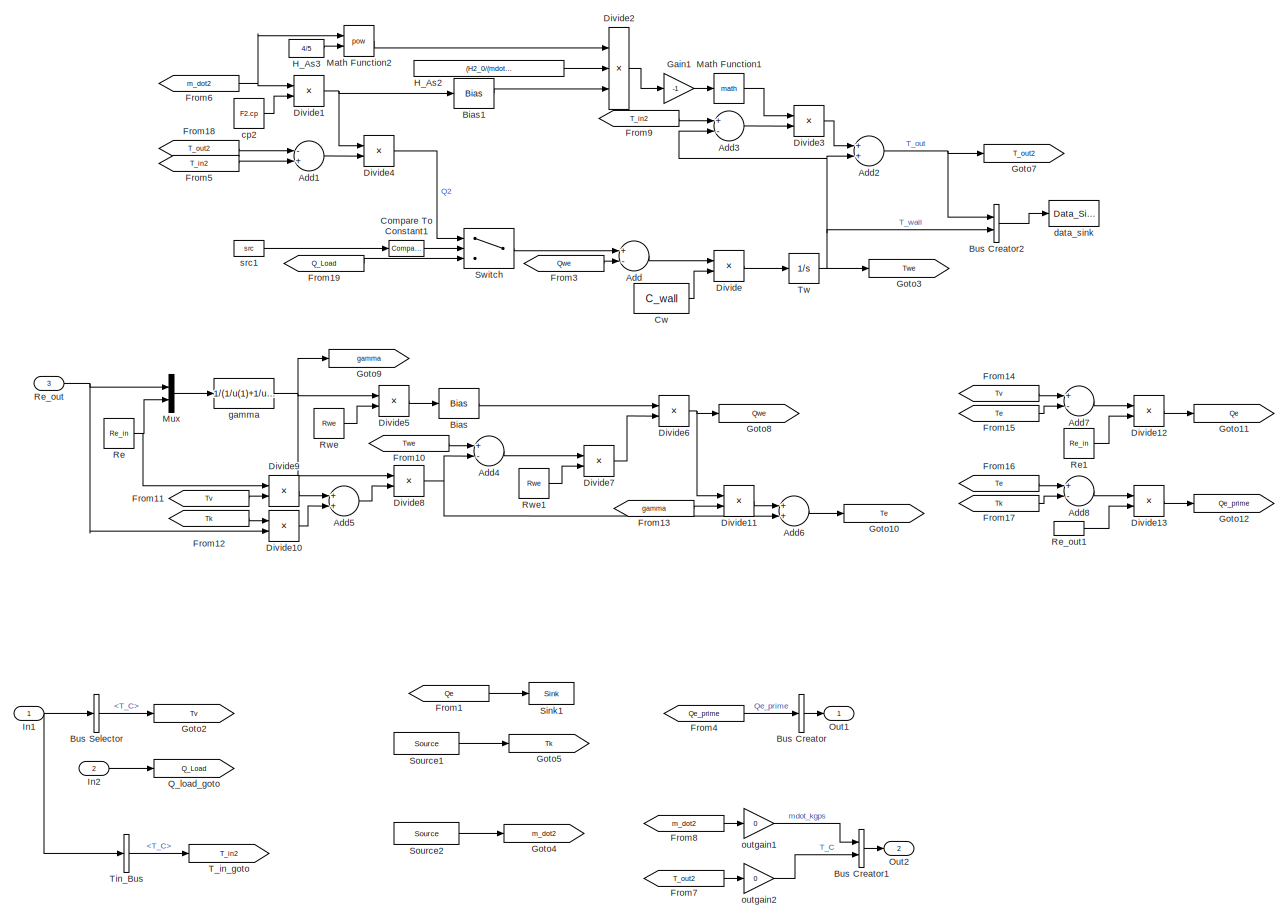
[diagram: Legacy Components/Evaporator - part 1/1, most of the canvas]
BLOCK [SubSystem] Legacy Components/Evaporator
  Commented = on
  Ports = [3, 2]
  RequestExecContextInheritance = off
BLOCK [Sum] Legacy Components/Evaporator/Add
  InputSameDT = off
  Inputs = +-
  OutDataTypeStr = Inherit: Inherit via internal rule
  Ports = [2, 1]
  SaturateOnIntegerOverflow = off
BLOCK [Sum] Legacy Components/Evaporator/Add1
  InputSameDT = off
  Inputs = -+
  OutDataTypeStr = Inherit: Inherit via internal rule
  Ports = [2, 1]
  SaturateOnIntegerOverflow = off
BLOCK [Sum] Legacy Components/Evaporator/Add2
  InputSameDT = off
  OutDataTypeStr = Inherit: Inherit via internal rule
  Ports = [2, 1]
  SaturateOnIntegerOverflow = off
BLOCK [Sum] Legacy Components/Evaporator/Add3
  InputSameDT = off
  Inputs = +-
  OutDataTypeStr = Inherit: Inherit via internal rule
  Ports = [2, 1]
  SaturateOnIntegerOverflow = off
BLOCK [Sum] Legacy Components/Evaporator/Add4
  InputSameDT = off
  Inputs = +-
  OutDataTypeStr = Inherit: Inherit via internal rule
  Ports = [2, 1]
  SaturateOnIntegerOverflow = off
BLOCK [Sum] Legacy Components/Evaporator/Add5
  InputSameDT = off
  OutDataTypeStr = Inherit: Inherit via internal rule
  Ports = [2, 1]
  SaturateOnIntegerOverflow = off
BLOCK [Sum] Legacy Components/Evaporator/Add6
  InputSameDT = off
  OutDataTypeStr = Inherit: Inherit via internal rule
  Ports = [2, 1]
  SaturateOnIntegerOverflow = off
BLOCK [Sum] Legacy Components/Evaporator/Add7
  InputSameDT = off
  Inputs = +-
  OutDataTypeStr = Inherit: Inherit via internal rule
  Ports = [2, 1]
  SaturateOnIntegerOverflow = off
BLOCK [Sum] Legacy Components/Evaporator/Add8
  InputSameDT = off
  Inputs = +-
  OutDataTypeStr = Inherit: Inherit via internal rule
  Ports = [2, 1]
  SaturateOnIntegerOverflow = off
BLOCK [Bias] Legacy Components/Evaporator/Bias
  Bias = +1
  SaturateOnIntegerOverflow = off
BLOCK [Bias] Legacy Components/Evaporator/Bias1
  Bias = eps
  SaturateOnIntegerOverflow = off
BLOCK [BusCreator] Legacy Components/Evaporator/Bus Creator
  DisplayOption = bar
  InheritFromInputs = on
  Inputs = 1
  Ports = [1, 1]
BLOCK [BusCreator] Legacy Components/Evaporator/Bus Creator1
  DisplayOption = bar
  InheritFromInputs = on
  Inputs = 2
  Ports = [2, 1]
BLOCK [BusCreator] Legacy Components/Evaporator/Bus Creator2
  DisplayOption = bar
  InheritFromInputs = on
  Inputs = 2
  Ports = [2, 1]
BLOCK [BusSelector] Legacy Components/Evaporator/Bus Selector
  OutputAsBus = off
  OutputSignals = T_C
  Ports = [1, 1]
BLOCK [Reference] Legacy Components/Evaporator/Compare To Constant1  REF=simulink/Logic and Bit
Operations/Compare
To Constant
  Ports = [1, 1]
  SourceBlock = simulink/Logic and Bit\nOperations/Compare\nTo Constant
  SourceProductBaseCode = SL
  SourceProductName = Simulink
  SourceType = Compare To Constant
BLOCK [Constant] Legacy Components/Evaporator/Cw
  Value = C_wall
BLOCK [Product] Legacy Components/Evaporator/Divide
  InputSameDT = off
  Inputs = */
  OutDataTypeStr = Inherit: Inherit via internal rule
  Ports = [2, 1]
  RndMeth = Floor
  SaturateOnIntegerOverflow = off
BLOCK [Product] Legacy Components/Evaporator/Divide1
  InputSameDT = off
  Inputs = **
  OutDataTypeStr = Inherit: Inherit via internal rule
  Ports = [2, 1]
  RndMeth = Floor
  SaturateOnIntegerOverflow = off
BLOCK [Product] Legacy Components/Evaporator/Divide10
  InputSameDT = off
  Inputs = */
  OutDataTypeStr = Inherit: Inherit via internal rule
  Ports = [2, 1]
  RndMeth = Floor
  SaturateOnIntegerOverflow = off
BLOCK [Product] Legacy Components/Evaporator/Divide11
  InputSameDT = off
  Inputs = **
  OutDataTypeStr = Inherit: Inherit via internal rule
  Ports = [2, 1]
  RndMeth = Floor
  SaturateOnIntegerOverflow = off
BLOCK [Product] Legacy Components/Evaporator/Divide12
  InputSameDT = off
  Inputs = */
  OutDataTypeStr = Inherit: Inherit via internal rule
  Ports = [2, 1]
  RndMeth = Floor
  SaturateOnIntegerOverflow = off
BLOCK [Product] Legacy Components/Evaporator/Divide13
  InputSameDT = off
  Inputs = */
  OutDataTypeStr = Inherit: Inherit via internal rule
  Ports = [2, 1]
  RndMeth = Floor
  SaturateOnIntegerOverflow = off
BLOCK [Product] Legacy Components/Evaporator/Divide2
  InputSameDT = off
  Inputs = **/
  OutDataTypeStr = Inherit: Inherit via internal rule
  Ports = [3, 1]
  RndMeth = Floor
  SaturateOnIntegerOverflow = off
BLOCK [Product] Legacy Components/Evaporator/Divide3
  InputSameDT = off
  Inputs = **
  OutDataTypeStr = Inherit: Inherit via internal rule
  Ports = [2, 1]
  RndMeth = Floor
  SaturateOnIntegerOverflow = off
BLOCK [Product] Legacy Components/Evaporator/Divide4
  InputSameDT = off
  Inputs = **
  OutDataTypeStr = Inherit: Inherit via internal rule
  Ports = [2, 1]
  RndMeth = Floor
  SaturateOnIntegerOverflow = off
BLOCK [Product] Legacy Components/Evaporator/Divide5
  InputSameDT = off
  Inputs = */
  OutDataTypeStr = Inherit: Inherit via internal rule
  Ports = [2, 1]
  RndMeth = Floor
  SaturateOnIntegerOverflow = off
BLOCK [Product] Legacy Components/Evaporator/Divide6
  InputSameDT = off
  Inputs = /*
  OutDataTypeStr = Inherit: Inherit via internal rule
  Ports = [2, 1]
  RndMeth = Floor
  SaturateOnIntegerOverflow = off
BLOCK [Product] Legacy Components/Evaporator/Divide7
  InputSameDT = off
  Inputs = */
  OutDataTypeStr = Inherit: Inherit via internal rule
  Ports = [2, 1]
  RndMeth = Floor
  SaturateOnIntegerOverflow = off
BLOCK [Product] Legacy Components/Evaporator/Divide8
  InputSameDT = off
  Inputs = **
  OutDataTypeStr = Inherit: Inherit via internal rule
  Ports = [2, 1]
  RndMeth = Floor
  SaturateOnIntegerOverflow = off
BLOCK [Product] Legacy Components/Evaporator/Divide9
  InputSameDT = off
  Inputs = /*
  OutDataTypeStr = Inherit: Inherit via internal rule
  Ports = [2, 1]
  RndMeth = Floor
  SaturateOnIntegerOverflow = off
BLOCK [From] Legacy Components/Evaporator/From1
  CloseFcn = tagdialog Close
  GotoTag = Qe
BLOCK [From] Legacy Components/Evaporator/From10
  CloseFcn = tagdialog Close
  GotoTag = Twe
BLOCK [From] Legacy Components/Evaporator/From11
  CloseFcn = tagdialog Close
  GotoTag = Tv
BLOCK [From] Legacy Components/Evaporator/From12
  CloseFcn = tagdialog Close
  GotoTag = Tk
BLOCK [From] Legacy Components/Evaporator/From13
  CloseFcn = tagdialog Close
  GotoTag = gamma
BLOCK [From] Legacy Components/Evaporator/From14
  CloseFcn = tagdialog Close
  GotoTag = Tv
BLOCK [From] Legacy Components/Evaporator/From15
  CloseFcn = tagdialog Close
  GotoTag = Te
BLOCK [From] Legacy Components/Evaporator/From16
  CloseFcn = tagdialog Close
  GotoTag = Te
BLOCK [From] Legacy Components/Evaporator/From17
  CloseFcn = tagdialog Close
  GotoTag = Tk
BLOCK [From] Legacy Components/Evaporator/From18
  CloseFcn = tagdialog Close
  GotoTag = T_out2
BLOCK [From] Legacy Components/Evaporator/From19
  CloseFcn = tagdialog Close
  GotoTag = Q_Load
BLOCK [From] Legacy Components/Evaporator/From3
  CloseFcn = tagdialog Close
  GotoTag = Qwe
BLOCK [From] Legacy Components/Evaporator/From4
  CloseFcn = tagdialog Close
  GotoTag = Qe_prime
BLOCK [From] Legacy Components/Evaporator/From5
  CloseFcn = tagdialog Close
  GotoTag = T_in2
BLOCK [From] Legacy Components/Evaporator/From6
  CloseFcn = tagdialog Close
  GotoTag = m_dot2
BLOCK [From] Legacy Components/Evaporator/From7
  CloseFcn = tagdialog Close
  GotoTag = T_out2
BLOCK [From] Legacy Components/Evaporator/From8
  CloseFcn = tagdialog Close
  GotoTag = m_dot2
BLOCK [From] Legacy Components/Evaporator/From9
  CloseFcn = tagdialog Close
  GotoTag = T_in2
BLOCK [Gain] Legacy Components/Evaporator/Gain1
  Gain = -1
  OutDataTypeStr = Inherit: Inherit via internal rule
  ParamDataTypeStr = Inherit: Inherit via internal rule
  SaturateOnIntegerOverflow = off
BLOCK [Goto] Legacy Components/Evaporator/Goto10
  GotoTag = Te
BLOCK [Goto] Legacy Components/Evaporator/Goto11
  GotoTag = Qe
BLOCK [Goto] Legacy Components/Evaporator/Goto12
  GotoTag = Qe_prime
BLOCK [Goto] Legacy Components/Evaporator/Goto2
  GotoTag = Tv
BLOCK [Goto] Legacy Components/Evaporator/Goto3
  GotoTag = Twe
BLOCK [Goto] Legacy Components/Evaporator/Goto4
  GotoTag = m_dot2
BLOCK [Goto] Legacy Components/Evaporator/Goto5
  GotoTag = Tk
BLOCK [Goto] Legacy Components/Evaporator/Goto7
  GotoTag = T_out2
BLOCK [Goto] Legacy Components/Evaporator/Goto8
  GotoTag = Qwe
BLOCK [Goto] Legacy Components/Evaporator/Goto9
  GotoTag = gamma
BLOCK [Constant] Legacy Components/Evaporator/H_As2
  Value = (H2_0/(mdot2_0+eps)^(4/5))*A2
BLOCK [Constant] Legacy Components/Evaporator/H_As3
  Value = 4/5
BLOCK [Inport] Legacy Components/Evaporator/In1
  IconDisplay = Port number
BLOCK [Inport] Legacy Components/Evaporator/In2
  IconDisplay = Port number
  Port = 2
BLOCK [Math] Legacy Components/Evaporator/Math Function1
  Ports = [1, 1]
BLOCK [Math] Legacy Components/Evaporator/Math Function2
  Operator = pow
  Ports = [2, 1]
BLOCK [Mux] Legacy Components/Evaporator/Mux
  DisplayOption = bar
  Inputs = 2
  Ports = [2, 1]
BLOCK [Outport] Legacy Components/Evaporator/Out1
  IconDisplay = Port number
  VectorParamsAs1DForOutWhenUnconnected = off
BLOCK [Outport] Legacy Components/Evaporator/Out2
  IconDisplay = Port number
  Port = 2
  VectorParamsAs1DForOutWhenUnconnected = off
BLOCK [Goto] Legacy Components/Evaporator/Q_load_goto
  GotoTag = Q_Load
BLOCK [Constant] Legacy Components/Evaporator/Re
  Value = Re_in
BLOCK [Constant] Legacy Components/Evaporator/Re1
  Value = Re_in
BLOCK [Inport] Legacy Components/Evaporator/Re_out
  IconDisplay = Port number
  Port = 3
BLOCK [InportShadow] Legacy Components/Evaporator/Re_out1
  IconDisplay = Port number
  Port = 3
BLOCK [Constant] Legacy Components/Evaporator/Rwe
  Value = Rwe
BLOCK [Constant] Legacy Components/Evaporator/Rwe1
  Value = Rwe
BLOCK [Reference] Legacy Components/Evaporator/Sink1  REF=$bdroot/Support Functions/Sink
  Ports = [1]
  SourceBlock = $bdroot/Support Functions/Sink
  SourceType = Sink
BLOCK [Reference] Legacy Components/Evaporator/Source1  REF=$bdroot/Support Functions/Source
  Ports = [0, 1]
  SourceBlock = $bdroot/Support Functions/Source
  SourceType = Source
BLOCK [Reference] Legacy Components/Evaporator/Source2  REF=$bdroot/Support Functions/Source
  Ports = [0, 1]
  SourceBlock = $bdroot/Support Functions/Source
  SourceType = Source
BLOCK [Switch] Legacy Components/Evaporator/Switch
  Criteria = u2 ~= 0
  InputSameDT = off
  SaturateOnIntegerOverflow = off
BLOCK [Goto] Legacy Components/Evaporator/T_in_goto
  GotoTag = T_in2
BLOCK [BusSelector] Legacy Components/Evaporator/Tin_Bus
  OutputAsBus = off
  OutputSignals = T_C
  Ports = [1, 1]
BLOCK [Integrator] Legacy Components/Evaporator/Tw
  InitialCondition = T_init
  Ports = [1, 1]
BLOCK [Constant] Legacy Components/Evaporator/cp2
  Value = F2.cp
BLOCK [Reference] Legacy Components/Evaporator/data_sink  REF=$bdroot/Support Functions/Data_Sink
  Ports = [1]
  SourceBlock = $bdroot/Support Functions/Data_Sink
  SourceType = Data Sink
BLOCK [Fcn] Legacy Components/Evaporator/gamma
  Expr = 1/(1/u(1)+1/u(2))
BLOCK [Gain] Legacy Components/Evaporator/outgain1
  Gain = 0
  OutDataTypeStr = Inherit: Inherit via internal rule
  ParamDataTypeStr = Inherit: Inherit via internal rule
  SaturateOnIntegerOverflow = off
BLOCK [Gain] Legacy Components/Evaporator/outgain2
  Gain = 0
  OutDataTypeStr = Inherit: Inherit via internal rule
  ParamDataTypeStr = Inherit: Inherit via internal rule
  SaturateOnIntegerOverflow = off
BLOCK [Constant] Legacy Components/Evaporator/src1
  Value = src
BLOCK [SubSystem] Legacy Components/Fan
  OpenFcn = load('Fluids.mat');\nSet_Fluid_Popup_Names( Fluid )
  Ports = [3, 1]
  RequestExecContextInheritance = off
BLOCK [BusCreator] Legacy Components/Fan/Bus Creator2
  DisplayOption = bar
  InheritFromInputs = on
  Inputs = 7
  Ports = [7, 1]
BLOCK [Constant] Legacy Components/Fan/Constant1
  Value = T_init
BLOCK [Constant] Legacy Components/Fan/Constant11
  Value = T_init
BLOCK [Constant] Legacy Components/Fan/Constant2
  Value = P_init
BLOCK [Constant] Legacy Components/Fan/Constant7
  Value = P_init
BLOCK [Reference] Legacy Components/Fan/Data_Sink1  REF=$bdroot/Support Functions/Data_Sink
  Ports = [1]
  SourceBlock = $bdroot/Support Functions/Data_Sink
  SourceType = Data Sink
BLOCK [Demux] Legacy Components/Fan/Demux
  DisplayOption = bar
  Outputs = 2
  Ports = [1, 2]
BLOCK [From] Legacy Components/Fan/From1
  CloseFcn = tagdialog Close
  GotoTag = V_in
BLOCK [From] Legacy Components/Fan/From11
  CloseFcn = tagdialog Close
  GotoTag = T_out
BLOCK [From] Legacy Components/Fan/From2
  CloseFcn = tagdialog Close
  GotoTag = T_in
BLOCK [From] Legacy Components/Fan/From3
  CloseFcn = tagdialog Close
  GotoTag = P_in
BLOCK [From] Legacy Components/Fan/From4
  CloseFcn = tagdialog Close
  GotoTag = Mdot_down
BLOCK [From] Legacy Components/Fan/From5
  CloseFcn = tagdialog Close
  GotoTag = Omega
BLOCK [Goto] Legacy Components/Fan/Goto1
  GotoTag = Q
BLOCK [Goto] Legacy Components/Fan/Goto2
  GotoTag = I
BLOCK [Goto] Legacy Components/Fan/Goto3
  GotoTag = eta
BLOCK [Goto] Legacy Components/Fan/Goto4
  GotoTag = T_out
BLOCK [Inport] Legacy Components/Fan/In1
  IconDisplay = Port number
BLOCK [Inport] Legacy Components/Fan/In2
  IconDisplay = Port number
  Port = 2
BLOCK [Inport] Legacy Components/Fan/In3
  IconDisplay = Port number
  Port = 3
BLOCK [Integrator] Legacy Components/Fan/Integrate
  InitialCondition = [T_init P_init]
  Ports = [1, 1]
BLOCK [Outport] Legacy Components/Fan/Out1
  IconDisplay = Port number
  VectorParamsAs1DForOutWhenUnconnected = off
BLOCK [SubSystem] Legacy Components/Fan/Pump
  ErrorFcn = Stateflow.Translate.translate
  PermitHierarchicalResolution = ExplicitOnly
  Ports = [8, 5]
  RequestExecContextInheritance = off
  SFBlockType = MATLAB Function
  TreatAsAtomicUnit = on
BLOCK [Demux] Legacy Components/Fan/Pump/ Demux 
  Outputs = 1
  Ports = [1, 1]
BLOCK [S-Function] Legacy Components/Fan/Pump/ SFunction 
  EnableBusSupport = off
  FunctionName = sf_sfun
  Parameters = D,DP_max,E,L,Omega_max,alpha,mdot_max
  PortCounts = [8 6]
  Ports = [8, 6]
  SFcnIsStateOwnerBlock = off
  SFunctionDeploymentMode = off
  Tag = Stateflow S-Function 31
BLOCK [Terminator] Legacy Components/Fan/Pump/ Terminator 
BLOCK [Outport] Legacy Components/Fan/Pump/I
  IconDisplay = Port number
  Port = 3
  VectorParamsAs1DForOutWhenUnconnected = off
BLOCK [Outport] Legacy Components/Fan/Pump/Mdot
  IconDisplay = Port number
  Port = 2
  VectorParamsAs1DForOutWhenUnconnected = off
BLOCK [Inport] Legacy Components/Fan/Pump/Mdot_down
  IconDisplay = Port number
  Port = 5
BLOCK [Inport] Legacy Components/Fan/Pump/Omega
  IconDisplay = Port number
  Port = 6
BLOCK [Inport] Legacy Components/Fan/Pump/P_in
  IconDisplay = Port number
  Port = 2
BLOCK [Outport] Legacy Components/Fan/Pump/Q
  IconDisplay = Port number
  Port = 4
  VectorParamsAs1DForOutWhenUnconnected = off
BLOCK [Inport] Legacy Components/Fan/Pump/T_in
  IconDisplay = Port number
  Port = 3
BLOCK [Inport] Legacy Components/Fan/Pump/V_in
  IconDisplay = Port number
  Port = 4
BLOCK [Inport] Legacy Components/Fan/Pump/cp
  IconDisplay = Port number
  Port = 7
BLOCK [Outport] Legacy Components/Fan/Pump/eta
  IconDisplay = Port number
  Port = 5
  VectorParamsAs1DForOutWhenUnconnected = off
BLOCK [Inport] Legacy Components/Fan/Pump/rho
  IconDisplay = Port number
  Port = 8
BLOCK [Inport] Legacy Components/Fan/Pump/x
  IconDisplay = Port number
BLOCK [Outport] Legacy Components/Fan/Pump/x_dot
  IconDisplay = Port number
  VectorParamsAs1DForOutWhenUnconnected = off
BLOCK [Reference] Legacy Components/Fan/Sink1  REF=$bdroot/Support Functions/Sink
  Ports = [1]
  SourceBlock = $bdroot/Support Functions/Sink
  SourceType = Sink
BLOCK [Reference] Legacy Components/Fan/Sink2  REF=$bdroot/Support Functions/Sink
  Ports = [1]
  SourceBlock = $bdroot/Support Functions/Sink
  SourceType = Sink
BLOCK [Reference] Legacy Components/Fan/Source1  REF=$bdroot/Support Functions/Source
  Ports = [0, 1]
  SourceBlock = $bdroot/Support Functions/Source
  SourceType = Source
BLOCK [Terminator] Legacy Components/Fan/Terminator1
BLOCK [Terminator] Legacy Components/Fan/Terminator2
BLOCK [BusCreator] Legacy Components/Fan/b1
  DisplayOption = bar
  InheritFromInputs = on
  Inputs = 3
  Ports = [3, 1]
BLOCK [Goto] Legacy Components/Fan/g1
  GotoTag = Mdot_down
BLOCK [BusSelector] Legacy Components/Fan/gb1
  OutputAsBus = off
  OutputSignals = mdot_kgps,T_C,P_kPa
  Ports = [1, 3]
BLOCK [BusSelector] Legacy Components/Fan/gb2
  OutputAsBus = off
  OutputSignals = V,I
  Ports = [1, 2]
BLOCK [Goto] Legacy Components/Fan/gm3
  GotoTag = V_in
BLOCK [Goto] Legacy Components/Fan/gm4
  GotoTag = Mdot
BLOCK [Goto] Legacy Components/Fan/gm5
  GotoTag = P_out
BLOCK [Goto] Legacy Components/Fan/gt1
  GotoTag = T_in
BLOCK [Goto] Legacy Components/Fan/gt2
  GotoTag = Omega
BLOCK [Goto] Legacy Components/Fan/gt3
  GotoTag = P_in
BLOCK [From] Legacy Components/Fan/m1
  CloseFcn = tagdialog Close
  GotoTag = Mdot_down
BLOCK [Lookup_n-D] Legacy Components/Fan/n-D Lookup Table1
  BreakpointsForDimension1 = Fluid.P
  BreakpointsForDimension2 = Fluid.T
  BreakpointsForDimension3 = [5, 7]
  ExtrapMethod = Clip
  Ports = [2, 1]
  RndMeth = Simplest
  Table = Fluid.Rho_pt
  UseLastTableValue = on
BLOCK [Lookup_n-D] Legacy Components/Fan/n-D Lookup Table2
  BreakpointsForDimension1 = Fluid.P
  BreakpointsForDimension2 = Fluid.T
  BreakpointsForDimension3 = [5, 7]
  ExtrapMethod = Clip
  Ports = [2, 1]
  RndMeth = Simplest
  Table = Fluid.C_pt
  UseLastTableValue = on
BLOCK [From] Legacy Components/Fan/p1
  CloseFcn = tagdialog Close
  GotoTag = P_out
BLOCK [From] Legacy Components/Fan/p3
  CloseFcn = tagdialog Close
  GotoTag = P_out
BLOCK [From] Legacy Components/Fan/p5
  CloseFcn = tagdialog Close
  GotoTag = I
BLOCK [From] Legacy Components/Fan/pout2
  GotoTag = Mdot
BLOCK [From] Legacy Components/Fan/t1
  CloseFcn = tagdialog Close
  GotoTag = T_out
BLOCK [From] Legacy Components/Fan/t2
  CloseFcn = tagdialog Close
  GotoTag = Mdot
BLOCK [From] Legacy Components/Fan/t3
  CloseFcn = tagdialog Close
  GotoTag = I
BLOCK [From] Legacy Components/Fan/t4
  CloseFcn = tagdialog Close
  GotoTag = eta
BLOCK [From] Legacy Components/Fan/t5
  CloseFcn = tagdialog Close
  GotoTag = Omega
BLOCK [From] Legacy Components/Fan/t6
  CloseFcn = tagdialog Close
  GotoTag = Q
BLOCK [SubSystem] Legacy Components/Fan1
  Commented = on
  Ports = [2, 1]
  RequestExecContextInheritance = off
BLOCK [Sum] Legacy Components/Fan1/Add1
  InputSameDT = off
  Inputs = -+
  OutDataTypeStr = Inherit: Inherit via internal rule
  Ports = [2, 1]
  SaturateOnIntegerOverflow = off
BLOCK [Sum] Legacy Components/Fan1/Add4
  InputSameDT = off
  OutDataTypeStr = Inherit: Inherit via internal rule
  Ports = [2, 1]
  SaturateOnIntegerOverflow = off
BLOCK [Sum] Legacy Components/Fan1/Add5
  InputSameDT = off
  Inputs = +++
  OutDataTypeStr = Inherit: Inherit via internal rule
  Ports = [3, 1]
  SaturateOnIntegerOverflow = off
BLOCK [BusCreator] Legacy Components/Fan1/Bus Creator
  DisplayOption = bar
  InheritFromInputs = on
  Inputs = 2
  Ports = [2, 1]
BLOCK [BusCreator] Legacy Components/Fan1/Bus Creator1
  DisplayOption = bar
  InheritFromInputs = on
  Inputs = 2
  Ports = [2, 1]
BLOCK [BusSelector] Legacy Components/Fan1/Bus Selector
  OutputAsBus = off
  OutputSignals = T_C
  Ports = [1, 1]
BLOCK [BusSelector] Legacy Components/Fan1/Bus Selector1
  OutputAsBus = off
  OutputSignals = mdot_kgps
  Ports = [1, 1]
BLOCK [Product] Legacy Components/Fan1/Divide1
  InputSameDT = off
  Inputs = **
  OutDataTypeStr = Inherit: Inherit via internal rule
  Ports = [2, 1]
  RndMeth = Floor
  SaturateOnIntegerOverflow = off
BLOCK [Product] Legacy Components/Fan1/Divide5
  InputSameDT = off
  Inputs = **
  OutDataTypeStr = Inherit: Inherit via internal rule
  Ports = [2, 1]
  RndMeth = Floor
  SaturateOnIntegerOverflow = off
BLOCK [Product] Legacy Components/Fan1/Divide6
  InputSameDT = off
  Inputs = **
  OutDataTypeStr = Inherit: Inherit via internal rule
  Ports = [2, 1]
  RndMeth = Floor
  SaturateOnIntegerOverflow = off
BLOCK [Inport] Legacy Components/Fan1/Flow In
  IconDisplay = Port number
BLOCK [Outport] Legacy Components/Fan1/Flow Out
  IconDisplay = Port number
  VectorParamsAs1DForOutWhenUnconnected = off
BLOCK [From] Legacy Components/Fan1/From1
  CloseFcn = tagdialog Close
  GotoTag = m_dot
BLOCK [From] Legacy Components/Fan1/From2
  CloseFcn = tagdialog Close
  GotoTag = T_in
BLOCK [From] Legacy Components/Fan1/From6
  CloseFcn = tagdialog Close
  GotoTag = T_out
BLOCK [Gain] Legacy Components/Fan1/Gain
  Gain = 1/(tau+eps)
  OutDataTypeStr = Inherit: Inherit via internal rule
  ParamDataTypeStr = Inherit: Inherit via internal rule
  SaturateOnIntegerOverflow = off
BLOCK [Goto] Legacy Components/Fan1/Goto2
  GotoTag = T_in
BLOCK [Goto] Legacy Components/Fan1/Goto3
  GotoTag = m_dot
BLOCK [Goto] Legacy Components/Fan1/Goto4
  GotoTag = T_out
BLOCK [Constant] Legacy Components/Fan1/K
  Value = k
BLOCK [Math] Legacy Components/Fan1/Math Function1
  Operator = square
  Ports = [1, 1]
BLOCK [SubSystem] Legacy Components/Fan1/Sink1
  CopyFcn = rev_comms_sink()
  NameChangeFcn = rev_comms_sink()
  Ports = [1]
  RequestExecContextInheritance = off
BLOCK [Goto] Legacy Components/Fan1/Sink1/Goto
  GotoTag = gdata_DAEMOT_LibLegacyComponentsFan1Sink1
  TagVisibility = global
BLOCK [Inport] Legacy Components/Fan1/Sink1/In1
  IconDisplay = Port number
BLOCK [Integrator] Legacy Components/Fan1/Tout
  InitialCondition = T_init
  Ports = [1, 1]
BLOCK [Constant] Legacy Components/Fan1/alpha
  Value = alpha
BLOCK [Constant] Legacy Components/Fan1/beta
  Value = beta
BLOCK [Reference] Legacy Components/Fan1/data_sink  REF=$bdroot/Support Functions/Data_Sink
  Ports = [1]
  SourceBlock = $bdroot/Support Functions/Data_Sink
  SourceType = Data Sink
BLOCK [Constant] Legacy Components/Fan1/gamma
  Value = gamma
BLOCK [Constant] Legacy Components/Fan1/lambda
  Value = lambda
BLOCK [Inport] Legacy Components/Fan1/ω
  IconDisplay = Port number
  Port = 2
BLOCK [SubSystem] Legacy Components/Flow Flow Source (Pressure)
  Ports = [2, 1]
  RequestExecContextInheritance = off
BLOCK [Constant] Legacy Components/Flow Flow Source (Pressure)/Constant4
  Value = -1
BLOCK [Inport] Legacy Components/Flow Flow Source (Pressure)/In2
  IconDisplay = Port number
BLOCK [Inport] Legacy Components/Flow Flow Source (Pressure)/In3
  IconDisplay = Port number
  Port = 2
BLOCK [Outport] Legacy Components/Flow Flow Source (Pressure)/Out1
  IconDisplay = Port number
  VectorParamsAs1DForOutWhenUnconnected = off
BLOCK [SubSystem] Legacy Components/Flow Flow Source (Pressure)/Source1
  Ports = [0, 1]
  RequestExecContextInheritance = off
BLOCK [From] Legacy Components/Flow Flow Source (Pressure)/Source1/From
  GotoTag = gdata_Thermal_System_BUSM2FSink2
  TagVisibility = global
BLOCK [Outport] Legacy Components/Flow Flow Source (Pressure)/Source1/Out1
  IconDisplay = Port number
  VectorParamsAs1DForOutWhenUnconnected = off
BLOCK [Terminator] Legacy Components/Flow Flow Source (Pressure)/Terminator
BLOCK [BusCreator] Legacy Components/Flow Flow Source (Pressure)/b1
  DisplayOption = bar
  InheritFromInputs = on
  Inputs = 3
  Ports = [3, 1]
BLOCK [SubSystem] Legacy Components/Flow Sink (Mass Flow Rate)
  Ports = [2]
  RequestExecContextInheritance = off
BLOCK [Inport] Legacy Components/Flow Sink (Mass Flow Rate)/In3
  IconDisplay = Port number
  Port = 2
BLOCK [Inport] Legacy Components/Flow Sink (Mass Flow Rate)/In4
  IconDisplay = Port number
BLOCK [Reference] Legacy Components/Flow Sink (Mass Flow Rate)/Sink1  REF=$bdroot/Support Functions/Sink
  Ports = [1]
  SourceBlock = $bdroot/Support Functions/Sink
  SourceType = Sink
BLOCK [Terminator] Legacy Components/Flow Sink (Mass Flow Rate)/Terminator
BLOCK [SubSystem] Legacy Components/Flow Sink (Pressure)
  Ports = [2]
  RequestExecContextInheritance = off
BLOCK [Inport] Legacy Components/Flow Sink (Pressure)/In3
  IconDisplay = Port number
  Port = 2
BLOCK [Inport] Legacy Components/Flow Sink (Pressure)/In4
  IconDisplay = Port number
BLOCK [Reference] Legacy Components/Flow Sink (Pressure)/Sink1  REF=$bdroot/Support Functions/Sink
  Ports = [1]
  SourceBlock = $bdroot/Support Functions/Sink
  SourceType = Sink
BLOCK [Terminator] Legacy Components/Flow Sink (Pressure)/Terminator
BLOCK [SubSystem] Legacy Components/Flow Source (Mass Flow Rate)
  Ports = [2, 1]
  RequestExecContextInheritance = off
BLOCK [Constant] Legacy Components/Flow Source (Mass Flow Rate)/Constant4
  Value = -1
BLOCK [Inport] Legacy Components/Flow Source (Mass Flow Rate)/In1
  IconDisplay = Port number
BLOCK [Inport] Legacy Components/Flow Source (Mass Flow Rate)/In2
  IconDisplay = Port number
  Port = 2
BLOCK [Outport] Legacy Components/Flow Source (Mass Flow Rate)/Out1
  IconDisplay = Port number
  VectorParamsAs1DForOutWhenUnconnected = off
BLOCK [SubSystem] Legacy Components/Flow Source (Mass Flow Rate)/Source1
  Ports = [0, 1]
  RequestExecContextInheritance = off
BLOCK [From] Legacy Components/Flow Source (Mass Flow Rate)/Source1/From
  GotoTag = gdata_Thermal_System_BUSM2FSink2
  TagVisibility = global
BLOCK [Outport] Legacy Components/Flow Source (Mass Flow Rate)/Source1/Out1
  IconDisplay = Port number
  VectorParamsAs1DForOutWhenUnconnected = off
BLOCK [Terminator] Legacy Components/Flow Source (Mass Flow Rate)/Terminator
BLOCK [BusCreator] Legacy Components/Flow Source (Mass Flow Rate)/b1
  DisplayOption = bar
  InheritFromInputs = on
  Inputs = 3
  Ports = [3, 1]
BLOCK [SubSystem] Legacy Components/Flow Split_Junction_Wall
  AncestorBlock = DAEMOT_Lib/Components/Flow Split_Junction
  CopyFcn = h      = get_param(gcb,'handle');   % Get block handle\nblk    = gcb; \n\nset_param(blk, 'LinkStatus', 'inactive')
  OpenFcn = load('Fluids.mat');\nSet_Fluid_Popup_Names( Fluid )
  Ports = [2, 1]
  RequestExecContextInheritance = off
BLOCK [BusCreator] Legacy Components/Flow Split_Junction_Wall/Bus Creator2
  DisplayOption = bar
  InheritFromInputs = on
  Inputs = 3
  Ports = [3, 1]
BLOCK [Constant] Legacy Components/Flow Split_Junction_Wall/Constant5
  Value = Fluid.Bulk_Mod
BLOCK [Demux] Legacy Components/Flow Split_Junction_Wall/Demux
  DisplayOption = bar
  Outputs = 3
  Ports = [1, 3]
BLOCK [SubSystem] Legacy Components/Flow Split_Junction_Wall/Dynamic_Flow_Split_Junction
  ErrorFcn = Stateflow.Translate.translate
  PermitHierarchicalResolution = ExplicitOnly
  Ports = [11, 1]
  RequestExecContextInheritance = off
  SFBlockType = MATLAB Function
  TreatAsAtomicUnit = on
BLOCK [Demux] Legacy Components/Flow Split_Junction_Wall/Dynamic_Flow_Split_Junction/ Demux 
  Outputs = 1
  Ports = [1, 1]
BLOCK [S-Function] Legacy Components/Flow Split_Junction_Wall/Dynamic_Flow_Split_Junction/ SFunction 
  EnableBusSupport = off
  FunctionName = sf_sfun
  Parameters = A_ht,Cp_wall,D,E,HTC,HTC_method,L,M_wall,PAF,f,t,v
  PortCounts = [11 2]
  Ports = [11, 2]
  SFcnIsStateOwnerBlock = off
  SFunctionDeploymentMode = off
  Tag = Stateflow S-Function 56
BLOCK [Terminator] Legacy Components/Flow Split_Junction_Wall/Dynamic_Flow_Split_Junction/ Terminator 
BLOCK [Inport] Legacy Components/Flow Split_Junction_Wall/Dynamic_Flow_Split_Junction/Cp
  IconDisplay = Port number
  Port = 10
BLOCK [Inport] Legacy Components/Flow Split_Junction_Wall/Dynamic_Flow_Split_Junction/E_fluid
  IconDisplay = Port number
  Port = 6
BLOCK [Inport] Legacy Components/Flow Split_Junction_Wall/Dynamic_Flow_Split_Junction/Mdot_in
  IconDisplay = Port number
  Port = 2
BLOCK [Inport] Legacy Components/Flow Split_Junction_Wall/Dynamic_Flow_Split_Junction/Mdot_out
  IconDisplay = Port number
  Port = 3
BLOCK [Inport] Legacy Components/Flow Split_Junction_Wall/Dynamic_Flow_Split_Junction/Q_load
  IconDisplay = Port number
  Port = 7
BLOCK [Inport] Legacy Components/Flow Split_Junction_Wall/Dynamic_Flow_Split_Junction/Rho
  IconDisplay = Port number
  Port = 11
BLOCK [Inport] Legacy Components/Flow Split_Junction_Wall/Dynamic_Flow_Split_Junction/T_in
  IconDisplay = Port number
  Port = 4
BLOCK [Inport] Legacy Components/Flow Split_Junction_Wall/Dynamic_Flow_Split_Junction/k
  IconDisplay = Port number
  Port = 9
BLOCK [Inport] Legacy Components/Flow Split_Junction_Wall/Dynamic_Flow_Split_Junction/mu
  IconDisplay = Port number
  Port = 8
BLOCK [Inport] Legacy Components/Flow Split_Junction_Wall/Dynamic_Flow_Split_Junction/rho
  IconDisplay = Port number
  Port = 5
BLOCK [Inport] Legacy Components/Flow Split_Junction_Wall/Dynamic_Flow_Split_Junction/x
  IconDisplay = Port number
BLOCK [Outport] Legacy Components/Flow Split_Junction_Wall/Dynamic_Flow_Split_Junction/x_dot
  IconDisplay = Port number
  VectorParamsAs1DForOutWhenUnconnected = off
BLOCK [From] Legacy Components/Flow Split_Junction_Wall/From1
  CloseFcn = tagdialog Close
  GotoTag = T_wall
BLOCK [From] Legacy Components/Flow Split_Junction_Wall/From11
  CloseFcn = tagdialog Close
  GotoTag = T
BLOCK [From] Legacy Components/Flow Split_Junction_Wall/From12
  CloseFcn = tagdialog Close
  GotoTag = P
BLOCK [Goto] Legacy Components/Flow Split_Junction_Wall/From13
  GotoTag = P
BLOCK [Goto] Legacy Components/Flow Split_Junction_Wall/From14
  GotoTag = T
BLOCK [From] Legacy Components/Flow Split_Junction_Wall/From15
  CloseFcn = tagdialog Close
  GotoTag = T
BLOCK [Goto] Legacy Components/Flow Split_Junction_Wall/From2
  GotoTag = T_wall
BLOCK [From] Legacy Components/Flow Split_Junction_Wall/Fromq2345
  CloseFcn = tagdialog Close
  GotoTag = P
BLOCK [Inport] Legacy Components/Flow Split_Junction_Wall/In1
  IconDisplay = Port number
BLOCK [Inport] Legacy Components/Flow Split_Junction_Wall/In2
  IconDisplay = Port number
  Port = 2
BLOCK [Integrator] Legacy Components/Flow Split_Junction_Wall/Integrator1
  InitialCondition = [T_init P_init Tw_init]
  Ports = [1, 1]
BLOCK [Mux] Legacy Components/Flow Split_Junction_Wall/Mux_In_1
  DisplayOption = bar
  Inputs = 1
  Ports = [1, 1]
BLOCK [Mux] Legacy Components/Flow Split_Junction_Wall/Mux_In_2
  DisplayOption = bar
  Inputs = 1
  Ports = [1, 1]
BLOCK [Mux] Legacy Components/Flow Split_Junction_Wall/Mux_In_3
  DisplayOption = bar
  Inputs = 1
  Ports = [1, 1]
BLOCK [Outport] Legacy Components/Flow Split_Junction_Wall/Out1
  IconDisplay = Port number
  VectorParamsAs1DForOutWhenUnconnected = off
BLOCK [From] Legacy Components/Flow Split_Junction_Wall/Prho
  CloseFcn = tagdialog Close
  GotoTag = P
BLOCK [BusSelector] Legacy Components/Flow Split_Junction_Wall/Q_BUS
  OutputAsBus = off
  OutputSignals = Q_kW
  Ports = [1, 1]
BLOCK [Selector] Legacy Components/Flow Split_Junction_Wall/Selector1
  IndexOptions = Index vector (dialog)
  Indices = [1 ]
  InputPortWidth = 1
  OutputSizes = 1
  Ports = [1, 1]
BLOCK [Selector] Legacy Components/Flow Split_Junction_Wall/Selector2
  IndexOptions = Index vector (dialog)
  Indices = [1 ]
  InputPortWidth = 1
  OutputSizes = 1
  Ports = [1, 1]
BLOCK [Reference] Legacy Components/Flow Split_Junction_Wall/Sink1  REF=$bdroot/Support Functions/Sink
  Ports = [1]
  SourceBlock = $bdroot/Support Functions/Sink
  SourceType = Sink
BLOCK [SubSystem] Legacy Components/Flow Split_Junction_Wall/Source1
  Ports = [0, 1]
  RequestExecContextInheritance = off
BLOCK [From] Legacy Components/Flow Split_Junction_Wall/Source1/From
  GotoTag = NULL
  TagVisibility = global
BLOCK [Outport] Legacy Components/Flow Split_Junction_Wall/Source1/Out1
  IconDisplay = Port number
  VectorParamsAs1DForOutWhenUnconnected = off
BLOCK [From] Legacy Components/Flow Split_Junction_Wall/Trho
  CloseFcn = tagdialog Close
  GotoTag = T
BLOCK [BusCreator] Legacy Components/Flow Split_Junction_Wall/b1
  DisplayOption = bar
  InheritFromInputs = on
  Inputs = 3
  Ports = [3, 1]
BLOCK [Reference] Legacy Components/Flow Split_Junction_Wall/data_sink1  REF=$bdroot/Support Functions/Data_Sink
  Ports = [1]
  SourceBlock = $bdroot/Support Functions/Data_Sink
  SourceType = Data Sink
BLOCK [Goto] Legacy Components/Flow Split_Junction_Wall/g1
  GotoTag = M_out1
BLOCK [BusSelector] Legacy Components/Flow Split_Junction_Wall/gb1
  OutputAsBus = off
  OutputSignals = mdot_kgps,T_C,P_kPa
  Ports = [1, 3]
BLOCK [Goto] Legacy Components/Flow Split_Junction_Wall/gm1
  GotoTag = M_in1
BLOCK [Terminator] Legacy Components/Flow Split_Junction_Wall/gp1
BLOCK [Goto] Legacy Components/Flow Split_Junction_Wall/gt1
  GotoTag = T_in1
BLOCK [From] Legacy Components/Flow Split_Junction_Wall/m1
  CloseFcn = tagdialog Close
  GotoTag = M_out1
BLOCK [From] Legacy Components/Flow Split_Junction_Wall/min1
  CloseFcn = tagdialog Close
  GotoTag = M_in1
BLOCK [From] Legacy Components/Flow Split_Junction_Wall/mout1
  GotoTag = M_out1
BLOCK [Lookup_n-D] Legacy Components/Flow Split_Junction_Wall/n-D Lookup Table1
  BreakpointsForDimension1 = Fluid.P
  BreakpointsForDimension2 = Fluid.T
  BreakpointsForDimension3 = [5, 7]
  ExtrapMethod = Clip
  Ports = [2, 1]
  RndMeth = Simplest
  Table = Fluid.C_pt
  UseLastTableValue = on
BLOCK [Lookup_n-D] Legacy Components/Flow Split_Junction_Wall/n-D Lookup Table2
  BreakpointsForDimension1 = Fluid.P
  BreakpointsForDimension2 = Fluid.T
  BreakpointsForDimension3 = [5, 7]
  ExtrapMethod = Clip
  Ports = [2, 1]
  RndMeth = Simplest
  Table = Fluid.Rho_pt
  UseLastTableValue = on
BLOCK [Lookup_n-D] Legacy Components/Flow Split_Junction_Wall/n-D Lookup Table3
  BreakpointsForDimension1 = Fluid.P
  BreakpointsForDimension2 = Fluid.T
  BreakpointsForDimension3 = [5, 7]
  ExtrapMethod = Clip
  Ports = [2, 1]
  RndMeth = Simplest
  Table = Fluid.Rho_pt
  UseLastTableValue = on
BLOCK [Lookup_n-D] Legacy Components/Flow Split_Junction_Wall/n-D Lookup Table8
  BreakpointsForDimension1 = Fluid.P
  BreakpointsForDimension2 = Fluid.T
  BreakpointsForDimension3 = [5, 7]
  ExtrapMethod = Clip
  Ports = [2, 1]
  RndMeth = Simplest
  Table = Fluid.K_pt
  UseLastTableValue = on
BLOCK [Lookup_n-D] Legacy Components/Flow Split_Junction_Wall/n-D Lookup Table9
  BreakpointsForDimension1 = Fluid.P
  BreakpointsForDimension2 = Fluid.T
  BreakpointsForDimension3 = [5, 7]
  ExtrapMethod = Clip
  Ports = [2, 1]
  RndMeth = Simplest
  Table = Fluid.Mu_pt
  UseLastTableValue = on
BLOCK [From] Legacy Components/Flow Split_Junction_Wall/p1
  CloseFcn = tagdialog Close
  GotoTag = P
BLOCK [From] Legacy Components/Flow Split_Junction_Wall/pout1
  GotoTag = P
BLOCK [From] Legacy Components/Flow Split_Junction_Wall/t1
  CloseFcn = tagdialog Close
  GotoTag = T
BLOCK [From] Legacy Components/Flow Split_Junction_Wall/tin1
  GotoTag = T_in1
BLOCK [SubSystem] Legacy Components/Fluid Tank
  OpenFcn = load('Fluids.mat');\nSet_Fluid_Popup_Names( Fluid )
  Ports = [2, 1]
  RequestExecContextInheritance = off
BLOCK [BusCreator] Legacy Components/Fluid Tank/Bus Creator2
  DisplayOption = bar
  InheritFromInputs = on
  Inputs = 4
  Ports = [4, 1]
BLOCK [Demux] Legacy Components/Fluid Tank/Demux
  DisplayOption = bar
  Outputs = 2
  Ports = [1, 2]
BLOCK [From] Legacy Components/Fluid Tank/From11
  CloseFcn = tagdialog Close
  GotoTag = T_tank
BLOCK [From] Legacy Components/Fluid Tank/From16
  CloseFcn = tagdialog Close
  GotoTag = P_tank
BLOCK [From] Legacy Components/Fluid Tank/From2
  CloseFcn = tagdialog Close
  GotoTag = T_tank
BLOCK [From] Legacy Components/Fluid Tank/From6
  CloseFcn = tagdialog Close
  GotoTag = Mdot_in
BLOCK [Goto] Legacy Components/Fluid Tank/Goto2
  GotoTag = M_tank
BLOCK [Goto] Legacy Components/Fluid Tank/Goto4
  GotoTag = h_tank
BLOCK [Inport] Legacy Components/Fluid Tank/In1
  IconDisplay = Port number
BLOCK [Inport] Legacy Components/Fluid Tank/In2
  IconDisplay = Port number
  Port = 2
BLOCK [Integrator] Legacy Components/Fluid Tank/Integrate
  InitialCondition = [T_init P_init]
  Ports = [1, 1]
BLOCK [Outport] Legacy Components/Fluid Tank/Out1
  IconDisplay = Port number
  VectorParamsAs1DForOutWhenUnconnected = off
BLOCK [Reference] Legacy Components/Fluid Tank/Sink1  REF=$bdroot/Support Functions/Sink
  Ports = [1]
  SourceBlock = $bdroot/Support Functions/Sink
  SourceType = Sink
BLOCK [Reference] Legacy Components/Fluid Tank/Source1  REF=$bdroot/Support Functions/Source
  Ports = [0, 1]
  SourceBlock = $bdroot/Support Functions/Source
  SourceType = Source
BLOCK [SubSystem] Legacy Components/Fluid Tank/Tank
  ErrorFcn = Stateflow.Translate.translate
  PermitHierarchicalResolution = ExplicitOnly
  Ports = [7, 3]
  RequestExecContextInheritance = off
  SFBlockType = MATLAB Function
  TreatAsAtomicUnit = on
BLOCK [Demux] Legacy Components/Fluid Tank/Tank/ Demux 
  Outputs = 1
  Ports = [1, 1]
BLOCK [S-Function] Legacy Components/Fluid Tank/Tank/ SFunction 
  EnableBusSupport = off
  FunctionName = sf_sfun
  Parameters = D,H,Pamb
  PortCounts = [7 4]
  Ports = [7, 4]
  SFcnIsStateOwnerBlock = off
  SFunctionDeploymentMode = off
  Tag = Stateflow S-Function 4
BLOCK [Terminator] Legacy Components/Fluid Tank/Tank/ Terminator 
BLOCK [Inport] Legacy Components/Fluid Tank/Tank/Cp
  IconDisplay = Port number
  Port = 6
BLOCK [Outport] Legacy Components/Fluid Tank/Tank/M
  IconDisplay = Port number
  Port = 2
  VectorParamsAs1DForOutWhenUnconnected = off
BLOCK [Inport] Legacy Components/Fluid Tank/Tank/Mdot_in
  IconDisplay = Port number
  Port = 2
BLOCK [Inport] Legacy Components/Fluid Tank/Tank/Mdot_out
  IconDisplay = Port number
  Port = 3
BLOCK [Inport] Legacy Components/Fluid Tank/Tank/Rho
  IconDisplay = Port number
  Port = 7
BLOCK [Inport] Legacy Components/Fluid Tank/Tank/T_amb
  IconDisplay = Port number
  Port = 5
BLOCK [Inport] Legacy Components/Fluid Tank/Tank/T_in
  IconDisplay = Port number
  Port = 4
BLOCK [Outport] Legacy Components/Fluid Tank/Tank/h
  IconDisplay = Port number
  Port = 3
  VectorParamsAs1DForOutWhenUnconnected = off
BLOCK [Inport] Legacy Components/Fluid Tank/Tank/x
  IconDisplay = Port number
BLOCK [Outport] Legacy Components/Fluid Tank/Tank/x_dot
  IconDisplay = Port number
  VectorParamsAs1DForOutWhenUnconnected = off
BLOCK [Terminator] Legacy Components/Fluid Tank/Terminator
BLOCK [BusCreator] Legacy Components/Fluid Tank/b1
  DisplayOption = bar
  InheritFromInputs = on
  Inputs = 3
  Ports = [3, 1]
BLOCK [Reference] Legacy Components/Fluid Tank/data_sink1  REF=$bdroot/Support Functions/Data_Sink
  Ports = [1]
  SourceBlock = $bdroot/Support Functions/Data_Sink
  SourceType = Data Sink
BLOCK [Goto] Legacy Components/Fluid Tank/g1
  GotoTag = Mdot_out
BLOCK [BusSelector] Legacy Components/Fluid Tank/gb1
  OutputAsBus = off
  OutputSignals = mdot_kgps,T_C,P_kPa
  Ports = [1, 3]
BLOCK [Goto] Legacy Components/Fluid Tank/gm1
  GotoTag = Mdot_in
BLOCK [Goto] Legacy Components/Fluid Tank/gm4
  GotoTag = T_tank
BLOCK [Goto] Legacy Components/Fluid Tank/gm5
  GotoTag = P_tank
BLOCK [Goto] Legacy Components/Fluid Tank/gt1
  GotoTag = T_in
BLOCK [Goto] Legacy Components/Fluid Tank/gt2
  GotoTag = T_amb
BLOCK [From] Legacy Components/Fluid Tank/m1
  CloseFcn = tagdialog Close
  GotoTag = Mdot_out
BLOCK [From] Legacy Components/Fluid Tank/m2
  CloseFcn = tagdialog Close
  GotoTag = Mdot_out
BLOCK [From] Legacy Components/Fluid Tank/m3
  CloseFcn = tagdialog Close
  GotoTag = T_in
BLOCK [From] Legacy Components/Fluid Tank/m4
  CloseFcn = tagdialog Close
  GotoTag = T_amb
BLOCK [Lookup_n-D] Legacy Components/Fluid Tank/n-D Lookup Table1
  BreakpointsForDimension1 = Fluid.P
  BreakpointsForDimension2 = Fluid.T
  BreakpointsForDimension3 = [5, 7]
  ExtrapMethod = Clip
  Ports = [2, 1]
  RndMeth = Simplest
  Table = Fluid.C_pt
  UseLastTableValue = on
BLOCK [Lookup_n-D] Legacy Components/Fluid Tank/n-D Lookup Table2
  BreakpointsForDimension1 = Fluid.P
  BreakpointsForDimension2 = Fluid.T
  BreakpointsForDimension3 = [5, 7]
  ExtrapMethod = Clip
  Ports = [2, 1]
  RndMeth = Simplest
  Table = Fluid.Rho_pt
  UseLastTableValue = on
BLOCK [From] Legacy Components/Fluid Tank/p1
  CloseFcn = tagdialog Close
  GotoTag = P_tank
BLOCK [From] Legacy Components/Fluid Tank/pout2
  GotoTag = P_tank
BLOCK [From] Legacy Components/Fluid Tank/t1
  CloseFcn = tagdialog Close
  GotoTag = T_tank
BLOCK [From] Legacy Components/Fluid Tank/t2
  CloseFcn = tagdialog Close
  GotoTag = P_tank
BLOCK [From] Legacy Components/Fluid Tank/t3
  CloseFcn = tagdialog Close
  GotoTag = M_tank
BLOCK [From] Legacy Components/Fluid Tank/t4
  CloseFcn = tagdialog Close
  GotoTag = h_tank
BLOCK [SubSystem] Legacy Components/From LabVIEW_Old
  Commented = on
  Ports = [0, 1]
  RequestExecContextInheritance = off
BLOCK [Outport] Legacy Components/From LabVIEW_Old/Out
  IconDisplay = Port number
  VectorParamsAs1DForOutWhenUnconnected = off
BLOCK [Reference] Legacy Components/From LabVIEW_Old/UDP Receive  REF=instrumentlib/UDP Receive
  Ports = [0, 1]
  SourceBlock = instrumentlib/UDP Receive
  SourceProductBaseCode = IC
  SourceProductName = Instrument Control Toolbox
  SourceType = UDP Receive
BLOCK [SubSystem] Legacy Components/Generator
  OpenFcn = load('Fluids.mat');\nSet_Fluid_Popup_Names( Fluid )
  Ports = [1, 2]
  RequestExecContextInheritance = off
BLOCK [Constant] Legacy Components/Generator/Constant
  Value = V
BLOCK [Reference] Legacy Components/Generator/Data_Sink1  REF=$bdroot/Support Functions/Data_Sink
  Ports = [1]
  SourceBlock = $bdroot/Support Functions/Data_Sink
  SourceType = Data Sink
BLOCK [From] Legacy Components/Generator/From1
  CloseFcn = tagdialog Close
  GotoTag = Omega
BLOCK [From] Legacy Components/Generator/From6
  CloseFcn = tagdialog Close
  GotoTag = I
BLOCK [SubSystem] Legacy Components/Generator/Generator
  ErrorFcn = Stateflow.Translate.translate
  PermitHierarchicalResolution = ExplicitOnly
  Ports = [2, 2]
  RequestExecContextInheritance = off
  SFBlockType = MATLAB Function
  TreatAsAtomicUnit = on
BLOCK [Demux] Legacy Components/Generator/Generator/ Demux 
  Outputs = 1
  Ports = [1, 1]
BLOCK [S-Function] Legacy Components/Generator/Generator/ SFunction 
  EnableBusSupport = off
  FunctionName = sf_sfun
  Parameters = V,eta
  PortCounts = [2 3]
  Ports = [2, 3]
  SFcnIsStateOwnerBlock = off
  SFunctionDeploymentMode = off
  Tag = Stateflow S-Function 23
BLOCK [Terminator] Legacy Components/Generator/Generator/ Terminator 
BLOCK [Inport] Legacy Components/Generator/Generator/I
  IconDisplay = Port number
  Port = 2
BLOCK [Inport] Legacy Components/Generator/Generator/Omega
  IconDisplay = Port number
BLOCK [Outport] Legacy Components/Generator/Generator/Q
  IconDisplay = Port number
  Port = 2
  VectorParamsAs1DForOutWhenUnconnected = off
BLOCK [Outport] Legacy Components/Generator/Generator/Torque
  IconDisplay = Port number
  VectorParamsAs1DForOutWhenUnconnected = off
BLOCK [Goto] Legacy Components/Generator/Goto1
  GotoTag = V
BLOCK [Goto] Legacy Components/Generator/Goto2
  GotoTag = Q
BLOCK [Goto] Legacy Components/Generator/Goto4
  GotoTag = Torque
BLOCK [Inport] Legacy Components/Generator/In1
  IconDisplay = Port number
BLOCK [Outport] Legacy Components/Generator/Out1
  IconDisplay = Port number
  VectorParamsAs1DForOutWhenUnconnected = off
BLOCK [Outport] Legacy Components/Generator/Out2
  IconDisplay = Port number
  Port = 2
  VectorParamsAs1DForOutWhenUnconnected = off
BLOCK [Reference] Legacy Components/Generator/Sink1  REF=$bdroot/Support Functions/Sink
  Ports = [1]
  SourceBlock = $bdroot/Support Functions/Sink
  SourceType = Sink
BLOCK [Reference] Legacy Components/Generator/Source1  REF=$bdroot/Support Functions/Source
  Ports = [0, 1]
  SourceBlock = $bdroot/Support Functions/Source
  SourceType = Source
BLOCK [Reference] Legacy Components/Generator/Source2  REF=$bdroot/Support Functions/Source
  Ports = [0, 1]
  SourceBlock = $bdroot/Support Functions/Source
  SourceType = Source
BLOCK [Terminator] Legacy Components/Generator/Terminator2
BLOCK [BusCreator] Legacy Components/Generator/b1
  DisplayOption = bar
  InheritFromInputs = on
  Inputs = 4
  Ports = [4, 1]
BLOCK [BusCreator] Legacy Components/Generator/b2
  DisplayOption = bar
  InheritFromInputs = on
  Inputs = 2
  Ports = [2, 1]
BLOCK [BusCreator] Legacy Components/Generator/b3
  DisplayOption = bar
  InheritFromInputs = on
  Inputs = 2
  Ports = [2, 1]
BLOCK [Goto] Legacy Components/Generator/g1
  GotoTag = I
BLOCK [Goto] Legacy Components/Generator/g2
  GotoTag = T
BLOCK [BusSelector] Legacy Components/Generator/gb1
  OutputAsBus = off
  OutputSignals = Torque,Omega
  Ports = [1, 2]
BLOCK [Goto] Legacy Components/Generator/gm3
  GotoTag = Omega
BLOCK [From] Legacy Components/Generator/m1
  CloseFcn = tagdialog Close
  GotoTag = V
BLOCK [From] Legacy Components/Generator/m2
  CloseFcn = tagdialog Close
  GotoTag = T
BLOCK [From] Legacy Components/Generator/m3
  CloseFcn = tagdialog Close
  GotoTag = T
BLOCK [From] Legacy Components/Generator/p5
  CloseFcn = tagdialog Close
  GotoTag = Torque
BLOCK [From] Legacy Components/Generator/t1
  CloseFcn = tagdialog Close
  GotoTag = I
BLOCK [From] Legacy Components/Generator/t2
  CloseFcn = tagdialog Close
  GotoTag = Torque
BLOCK [From] Legacy Components/Generator/t3
  CloseFcn = tagdialog Close
  GotoTag = I
BLOCK [From] Legacy Components/Generator/t4
  CloseFcn = tagdialog Close
  GotoTag = Q
BLOCK [From] Legacy Components/Generator/t6
  CloseFcn = tagdialog Close
  GotoTag = Q
BLOCK [SubSystem] Legacy Components/Graph Sink
  CopyFcn = h      = get_param(gcb,'handle');   % Get block handle\nblk    = gcb; \n\nset_param(blk, 'LinkStatus', 'inactive')\nclear h\nclear blk
  Ports = [1]
  RequestExecContextInheritance = off
BLOCK [Inport] Legacy Components/Graph Sink/In1
  IconDisplay = Port number
BLOCK [SubSystem] Legacy Components/Graph Sink/Sink1
  CopyFcn = rev_comms_sink();
  InitFcn = rev_comms_sink();
  LoadFcn = rev_comms_sink();
  NameChangeFcn = rev_comms_sink();
  Ports = [1]
  RequestExecContextInheritance = off
BLOCK [Goto] Legacy Components/Graph Sink/Sink1/Goto
  GotoTag = gdata_DAEMOT_LibLegacyComponentsGraphSinkSink1
  TagVisibility = global
BLOCK [Inport] Legacy Components/Graph Sink/Sink1/In1
  IconDisplay = Port number
BLOCK [Terminator] Legacy Components/Graph Sink/Terminator
BLOCK [Constant] Legacy Components/Graph Sink/val
  Value = value
BLOCK [SubSystem] Legacy Components/Graph Source
  CopyFcn = h      = get_param(gcb,'handle');   % Get block handle\nblk    = gcb; \n\nset_param(blk, 'LinkStatus', 'inactive')\nclear h\nclear blk
  Ports = [0, 1]
  RequestExecContextInheritance = off
BLOCK [Constant] Legacy Components/Graph Source/Constant
  Value = 0
BLOCK [Outport] Legacy Components/Graph Source/Out1
  IconDisplay = Port number
  VectorParamsAs1DForOutWhenUnconnected = off
BLOCK [SubSystem] Legacy Components/Graph Source/Source1
  Ports = [0, 1]
  RequestExecContextInheritance = off
BLOCK [From] Legacy Components/Graph Source/Source1/From
  GotoTag = NULL
BLOCK [Outport] Legacy Components/Graph Source/Source1/Out1
  IconDisplay = Port number
  VectorParamsAs1DForOutWhenUnconnected = off
BLOCK [Terminator] Legacy Components/Graph Source/Terminator
BLOCK [BusCreator] Legacy Components/Graph Source/b1
  DisplayOption = bar
  InheritFromInputs = on
  Inputs = 2
  Ports = [2, 1]
BLOCK [Constant] Legacy Components/Graph Source/val
  Value = value
BLOCK [SubSystem] Legacy Components/Heat Sink (Temp)
  Ports = [2]
  RequestExecContextInheritance = off
BLOCK [Inport] Legacy Components/Heat Sink (Temp)/In1
  IconDisplay = Port number
BLOCK [Inport] Legacy Components/Heat Sink (Temp)/In2
  IconDisplay = Port number
  Port = 2
BLOCK [SubSystem] Legacy Components/Heat Sink (Temp)/Sink1
  CopyFcn = rev_comms_sink();
  InitFcn = rev_comms_sink();
  LoadFcn = rev_comms_sink();
  NameChangeFcn = rev_comms_sink();
  Ports = [1]
  RequestExecContextInheritance = off
BLOCK [Goto] Legacy Components/Heat Sink (Temp)/Sink1/Goto
  GotoTag = gdata_DAEMOT_LibLegacyComponentsHeatSinkTempSink1
  TagVisibility = global
BLOCK [Inport] Legacy Components/Heat Sink (Temp)/Sink1/In1
  IconDisplay = Port number
BLOCK [Terminator] Legacy Components/Heat Sink (Temp)/Terminator
BLOCK [SubSystem] Legacy Components/Heater
  Ports = [2, 1]
  RequestExecContextInheritance = off
BLOCK [BusSelector] Legacy Components/Heater/Bus Selector
  OutputAsBus = off
  OutputSignals = V,I
  Ports = [1, 2]
BLOCK [Constant] Legacy Components/Heater/Constant
  Value = 0
BLOCK [Constant] Legacy Components/Heater/Constant1
  Value = 0
BLOCK [Reference] Legacy Components/Heater/Data_Sink1  REF=$bdroot/Support Functions/Data_Sink
  Ports = [1]
  SourceBlock = $bdroot/Support Functions/Data_Sink
  SourceType = Data Sink
BLOCK [Product] Legacy Components/Heater/Divide
  InputSameDT = off
  Inputs = /
  OutDataTypeStr = Inherit: Inherit via internal rule
  Ports = [1, 1]
  RndMeth = Floor
  SaturateOnIntegerOverflow = off
BLOCK [Gain] Legacy Components/Heater/Gain
  Gain = 1000
  OutDataTypeStr = Inherit: Inherit via internal rule
  ParamDataTypeStr = Inherit: Inherit via internal rule
  SaturateOnIntegerOverflow = off
BLOCK [Goto] Legacy Components/Heater/Goto2
  GotoTag = Q
BLOCK [Inport] Legacy Components/Heater/In1
  IconDisplay = Port number
BLOCK [Inport] Legacy Components/Heater/In2
  IconDisplay = Port number
  Port = 2
BLOCK [Outport] Legacy Components/Heater/Out1
  IconDisplay = Port number
  VectorParamsAs1DForOutWhenUnconnected = off
BLOCK [Constant] Legacy Components/Heater/P
  Value = P_max
BLOCK [Product] Legacy Components/Heater/Product
  InputSameDT = off
  OutDataTypeStr = Inherit: Inherit via internal rule
  Ports = [2, 1]
  RndMeth = Floor
  SaturateOnIntegerOverflow = off
BLOCK [Product] Legacy Components/Heater/Product1
  InputSameDT = off
  OutDataTypeStr = Inherit: Inherit via internal rule
  Ports = [2, 1]
  RndMeth = Floor
  SaturateOnIntegerOverflow = off
BLOCK [Reference] Legacy Components/Heater/Sink1  REF=$bdroot/Support Functions/Sink
  Ports = [1]
  SourceBlock = $bdroot/Support Functions/Sink
  SourceType = Sink
BLOCK [Reference] Legacy Components/Heater/Source1  REF=$bdroot/Support Functions/Source
  Ports = [0, 1]
  SourceBlock = $bdroot/Support Functions/Source
  SourceType = Source
BLOCK [Switch] Legacy Components/Heater/Switch
  Criteria = u2 > Threshold
  InputSameDT = off
  SaturateOnIntegerOverflow = off
BLOCK [Switch] Legacy Components/Heater/Switch1
  Criteria = u2 > Threshold
  InputSameDT = off
  SaturateOnIntegerOverflow = off
BLOCK [Terminator] Legacy Components/Heater/Terminator3
BLOCK [BusCreator] Legacy Components/Heater/b1
  DisplayOption = bar
  InheritFromInputs = on
  Inputs = 2
  Ports = [2, 1]
BLOCK [BusCreator] Legacy Components/Heater/b2
  DisplayOption = bar
  InheritFromInputs = on
  Inputs = 2
  Ports = [2, 1]
BLOCK [Goto] Legacy Components/Heater/g1
  GotoTag = T
BLOCK [From] Legacy Components/Heater/m1
  CloseFcn = tagdialog Close
  GotoTag = T
BLOCK [From] Legacy Components/Heater/t1
  CloseFcn = tagdialog Close
  GotoTag = Q
BLOCK [From] Legacy Components/Heater/t2
  CloseFcn = tagdialog Close
  GotoTag = Q
BLOCK [SubSystem] Legacy Components/LabVIEW_UDP_old
  Commented = on
  Ports = [1, 1]
  RequestExecContextInheritance = off
BLOCK [Inport] Legacy Components/LabVIEW_UDP_old/ 
  IconDisplay = Port number
BLOCK [BusCreator] Legacy Components/LabVIEW_UDP_old/Bus Creator
  DisplayOption = bar
  InheritFromInputs = on
  Inputs = 46
  Ports = [46, 1]
BLOCK [BusSelector] Legacy Components/LabVIEW_UDP_old/Bus Selector
  OutputAsBus = on
  OutputSignals = Temp1_Enabled,Temp2_Enabled,Temp3_Enabled,Temp4_Enabled,Temp5_Enabled,Temp6_Enabled,Temp7_Enabled,Temp8_Enabled,Temp9_Enabled,Temp10_Enabled,Temp11_Enabled,Temp12_Enabled,Temp13_Enabled,Temp14_Enabled,Temp15_Enabled,Temp16_Enabled,FlowMeter1_Enabled,FlowMeter2_Enabled,FlowMeter3_Enabled,FlowMeter4_Enabled,FlowMeter5_Enabled,FlowMeter6_Enabled,FlowMeter7_Enabled,FlowMeter8_Enabled,Pump1,Pump2,Pump3...<+612ch>
  Ports = [1, 1]
BLOCK [BusToVector] Legacy Components/LabVIEW_UDP_old/Bus to Vector
BLOCK [Demux] Legacy Components/LabVIEW_UDP_old/Demux
  DisplayOption = bar
  Outputs = 46
  Ports = [1, 46]
BLOCK [Outport] Legacy Components/LabVIEW_UDP_old/Out
  IconDisplay = Port number
  VectorParamsAs1DForOutWhenUnconnected = off
BLOCK [Reference] Legacy Components/LabVIEW_UDP_old/UDP Receive  REF=instrumentlib/UDP Receive
  Ports = [0, 1]
  SourceBlock = instrumentlib/UDP Receive
  SourceProductBaseCode = IC
  SourceProductName = Instrument Control Toolbox
  SourceType = UDP Receive
BLOCK [Reference] Legacy Components/LabVIEW_UDP_old/UDP Send  REF=instrumentlib/UDP Send
  Ports = [1]
  SourceBlock = instrumentlib/UDP Send
  SourceProductBaseCode = IC
  SourceProductName = Instrument Control Toolbox
  SourceType = UDP Send
BLOCK [ZeroOrderHold] Legacy Components/LabVIEW_UDP_old/Zero-Order Hold
  Commented = through
  SampleTime = 0.1
BLOCK [SubSystem] Legacy Components/Load
  Ports = [2]
  RequestExecContextInheritance = off
BLOCK [BusSelector] Legacy Components/Load/Bus Selector
  OutputAsBus = off
  OutputSignals = V,I
  Ports = [1, 2]
BLOCK [Constant] Legacy Components/Load/Constant
  Value = 0
BLOCK [Constant] Legacy Components/Load/Constant1
  Value = 0
BLOCK [Reference] Legacy Components/Load/Data_Sink1  REF=$bdroot/Support Functions/Data_Sink
  Ports = [1]
  SourceBlock = $bdroot/Support Functions/Data_Sink
  SourceType = Data Sink
BLOCK [Product] Legacy Components/Load/Divide
  InputSameDT = off
  Inputs = /
  OutDataTypeStr = Inherit: Inherit via internal rule
  Ports = [1, 1]
  RndMeth = Floor
  SaturateOnIntegerOverflow = off
BLOCK [Gain] Legacy Components/Load/Gain
  Gain = 1000
  OutDataTypeStr = Inherit: Inherit via internal rule
  ParamDataTypeStr = Inherit: Inherit via internal rule
  SaturateOnIntegerOverflow = off
BLOCK [Inport] Legacy Components/Load/In1
  IconDisplay = Port number
BLOCK [Inport] Legacy Components/Load/In2
  IconDisplay = Port number
  Port = 2
BLOCK [Constant] Legacy Components/Load/P
  Value = P_max
BLOCK [Product] Legacy Components/Load/Product
  InputSameDT = off
  OutDataTypeStr = Inherit: Inherit via internal rule
  Ports = [2, 1]
  RndMeth = Floor
  SaturateOnIntegerOverflow = off
BLOCK [Product] Legacy Components/Load/Product1
  InputSameDT = off
  OutDataTypeStr = Inherit: Inherit via internal rule
  Ports = [2, 1]
  RndMeth = Floor
  SaturateOnIntegerOverflow = off
BLOCK [Reference] Legacy Components/Load/Sink1  REF=$bdroot/Support Functions/Sink
  Ports = [1]
  SourceBlock = $bdroot/Support Functions/Sink
  SourceType = Sink
BLOCK [Switch] Legacy Components/Load/Switch
  Criteria = u2 > Threshold
  InputSameDT = off
  SaturateOnIntegerOverflow = off
BLOCK [Switch] Legacy Components/Load/Switch1
  Criteria = u2 > Threshold
  InputSameDT = off
  SaturateOnIntegerOverflow = off
BLOCK [Terminator] Legacy Components/Load/Terminator3
BLOCK [BusCreator] Legacy Components/Load/b1
  DisplayOption = bar
  InheritFromInputs = on
  Inputs = 1
  Ports = [1, 1]
BLOCK [SubSystem] Legacy Components/MEMC_Comp
  Commented = on
  Ports = [5, 2]
  RequestExecContextInheritance = off
BLOCK [Sum] Legacy Components/MEMC_Comp/Add
  InputSameDT = off
  Inputs = +-
  OutDataTypeStr = Inherit: Inherit via internal rule
  Ports = [2, 1]
  SaturateOnIntegerOverflow = off
BLOCK [Sum] Legacy Components/MEMC_Comp/Add1
  InputSameDT = off
  OutDataTypeStr = Inherit: Inherit via internal rule
  Ports = [2, 1]
  SaturateOnIntegerOverflow = off
BLOCK [Sum] Legacy Components/MEMC_Comp/Add2
  InputSameDT = off
  OutDataTypeStr = Inherit: Inherit via internal rule
  Ports = [2, 1]
  SaturateOnIntegerOverflow = off
BLOCK [Sum] Legacy Components/MEMC_Comp/Add3
  InputSameDT = off
  Inputs = ++-
  OutDataTypeStr = Inherit: Inherit via internal rule
  Ports = [3, 1]
  SaturateOnIntegerOverflow = off
BLOCK [BusCreator] Legacy Components/MEMC_Comp/Bus Creator
  DisplayOption = bar
  InheritFromInputs = on
  Inputs = 1
  Ports = [1, 1]
BLOCK [BusCreator] Legacy Components/MEMC_Comp/Bus Creator1
  DisplayOption = bar
  InheritFromInputs = on
  Inputs = 1
  Ports = [1, 1]
BLOCK [BusCreator] Legacy Components/MEMC_Comp/Bus Creator2
  DisplayOption = bar
  InheritFromInputs = on
  Inputs = 3
  Ports = [3, 1]
BLOCK [BusSelector] Legacy Components/MEMC_Comp/Bus Selector
  OutputAsBus = off
  OutputSignals = Qe_prime
  Ports = [1, 1]
BLOCK [BusSelector] Legacy Components/MEMC_Comp/Bus Selector1
  OutputAsBus = off
  OutputSignals = Qe_prime
  Ports = [1, 1]
BLOCK [BusSelector] Legacy Components/MEMC_Comp/Bus Selector2
  OutputAsBus = off
  OutputSignals = Qe_prime
  Ports = [1, 1]
BLOCK [BusSelector] Legacy Components/MEMC_Comp/Bus Selector3
  OutputAsBus = off
  OutputSignals = Qe_prime
  Ports = [1, 1]
BLOCK [Constant] Legacy Components/MEMC_Comp/Ck
  Value = Ck_in
BLOCK [Constant] Legacy Components/MEMC_Comp/Ck_prime
  Value = Ck_out
BLOCK [Outport] Legacy Components/MEMC_Comp/Cond1
  IconDisplay = Port number
  VectorParamsAs1DForOutWhenUnconnected = off
BLOCK [Outport] Legacy Components/MEMC_Comp/Cond2
  IconDisplay = Port number
  Port = 2
  VectorParamsAs1DForOutWhenUnconnected = off
BLOCK [Product] Legacy Components/MEMC_Comp/Divide
  InputSameDT = off
  Inputs = */
  OutDataTypeStr = Inherit: Inherit via internal rule
  Ports = [2, 1]
  RndMeth = Floor
  SaturateOnIntegerOverflow = off
BLOCK [Product] Legacy Components/MEMC_Comp/Divide1
  InputSameDT = off
  Inputs = **
  OutDataTypeStr = Inherit: Inherit via internal rule
  Ports = [2, 1]
  RndMeth = Floor
  SaturateOnIntegerOverflow = off
BLOCK [Product] Legacy Components/MEMC_Comp/Divide2
  InputSameDT = off
  Inputs = **
  OutDataTypeStr = Inherit: Inherit via internal rule
  Ports = [2, 1]
  RndMeth = Floor
  SaturateOnIntegerOverflow = off
BLOCK [Product] Legacy Components/MEMC_Comp/Divide3
  InputSameDT = off
  Inputs = */
  OutDataTypeStr = Inherit: Inherit via internal rule
  Ports = [2, 1]
  RndMeth = Floor
  SaturateOnIntegerOverflow = off
BLOCK [Product] Legacy Components/MEMC_Comp/Divide5
  InputSameDT = off
  Inputs = **
  OutDataTypeStr = Inherit: Inherit via internal rule
  Ports = [2, 1]
  RndMeth = Floor
  SaturateOnIntegerOverflow = off
BLOCK [DotProduct] Legacy Components/MEMC_Comp/Dot Product
  OutDataTypeStr = Inherit: Inherit via internal rule
BLOCK [DotProduct] Legacy Components/MEMC_Comp/Dot Product1
  OutDataTypeStr = Inherit: Inherit via internal rule
BLOCK [Inport] Legacy Components/MEMC_Comp/Evap1
  IconDisplay = Port number
BLOCK [Inport] Legacy Components/MEMC_Comp/Evap2
  IconDisplay = Port number
  Port = 2
BLOCK [Inport] Legacy Components/MEMC_Comp/Evap3
  IconDisplay = Port number
  Port = 3
BLOCK [Inport] Legacy Components/MEMC_Comp/Evap4
  IconDisplay = Port number
  Port = 4
BLOCK [From] Legacy Components/MEMC_Comp/From1
  CloseFcn = tagdialog Close
  GotoTag = Qk
BLOCK [From] Legacy Components/MEMC_Comp/From10
  CloseFcn = tagdialog Close
  GotoTag = Tk_in
BLOCK [From] Legacy Components/MEMC_Comp/From11
  CloseFcn = tagdialog Close
  GotoTag = Tk_in
BLOCK [From] Legacy Components/MEMC_Comp/From12
  CloseFcn = tagdialog Close
  GotoTag = Tk_in
BLOCK [From] Legacy Components/MEMC_Comp/From13
  CloseFcn = tagdialog Close
  GotoTag = Tk_in
BLOCK [From] Legacy Components/MEMC_Comp/From14
  CloseFcn = tagdialog Close
  GotoTag = Tk_out
BLOCK [From] Legacy Components/MEMC_Comp/From15
  CloseFcn = tagdialog Close
  GotoTag = Tk_out
BLOCK [From] Legacy Components/MEMC_Comp/From16
  CloseFcn = tagdialog Close
  GotoTag = Tk_in
BLOCK [From] Legacy Components/MEMC_Comp/From2
  CloseFcn = tagdialog Close
  GotoTag = Tk_out
BLOCK [From] Legacy Components/MEMC_Comp/From3
  CloseFcn = tagdialog Close
  GotoTag = Tk_in
BLOCK [From] Legacy Components/MEMC_Comp/From4
  CloseFcn = tagdialog Close
  GotoTag = Qc_tot
BLOCK [From] Legacy Components/MEMC_Comp/From5
  CloseFcn = tagdialog Close
  GotoTag = Tk_out
BLOCK [From] Legacy Components/MEMC_Comp/From6
  CloseFcn = tagdialog Close
  GotoTag = Qe_tot
BLOCK [From] Legacy Components/MEMC_Comp/From7
  CloseFcn = tagdialog Close
  GotoTag = Qk_prime
BLOCK [From] Legacy Components/MEMC_Comp/From8
  CloseFcn = tagdialog Close
  GotoTag = Tk_out
BLOCK [From] Legacy Components/MEMC_Comp/From9
  CloseFcn = tagdialog Close
  GotoTag = Qk
BLOCK [Goto] Legacy Components/MEMC_Comp/Goto1
  GotoTag = Qk_prime
BLOCK [Goto] Legacy Components/MEMC_Comp/Goto2
  GotoTag = Qe_tot
BLOCK [Goto] Legacy Components/MEMC_Comp/Goto3
  GotoTag = Tk_out
BLOCK [Goto] Legacy Components/MEMC_Comp/Goto5
  GotoTag = Qc_tot
BLOCK [Goto] Legacy Components/MEMC_Comp/Goto6
  GotoTag = Tk_in
BLOCK [Goto] Legacy Components/MEMC_Comp/Goto7
  GotoTag = Qk
BLOCK [Constant] Legacy Components/MEMC_Comp/K
  Value = k
BLOCK [Math] Legacy Components/MEMC_Comp/Math Function2
  Operator = square
  Ports = [1, 1]
BLOCK [Mux] Legacy Components/MEMC_Comp/Mux
  DisplayOption = bar
  Inputs = 2
  Ports = [2, 1]
BLOCK [Mux] Legacy Components/MEMC_Comp/Mux1
  DisplayOption = bar
  Inputs = 3
  Ports = [3, 1]
BLOCK [Mux] Legacy Components/MEMC_Comp/Mux2
  DisplayOption = bar
  Inputs = 2
  Ports = [2, 1]
BLOCK [Mux] Legacy Components/MEMC_Comp/Mux3
  DisplayOption = bar
  Ports = [4, 1]
BLOCK [Constant] Legacy Components/MEMC_Comp/One
BLOCK [Constant] Legacy Components/MEMC_Comp/Params
  Value = [alpha beta]
BLOCK [Constant] Legacy Components/MEMC_Comp/Params1
  Value = gamma(2:4)
BLOCK [Reference] Legacy Components/MEMC_Comp/Sink1  REF=$bdroot/Support Functions/Sink
  Ports = [1]
  SourceBlock = $bdroot/Support Functions/Sink
  SourceType = Sink
BLOCK [Reference] Legacy Components/MEMC_Comp/Sink2  REF=$bdroot/Support Functions/Sink
  Ports = [1]
  SourceBlock = $bdroot/Support Functions/Sink
  SourceType = Sink
BLOCK [Reference] Legacy Components/MEMC_Comp/Sink3  REF=$bdroot/Support Functions/Sink
  Ports = [1]
  SourceBlock = $bdroot/Support Functions/Sink
  SourceType = Sink
BLOCK [Reference] Legacy Components/MEMC_Comp/Sink4  REF=$bdroot/Support Functions/Sink
  Ports = [1]
  SourceBlock = $bdroot/Support Functions/Sink
  SourceType = Sink
BLOCK [Reference] Legacy Components/MEMC_Comp/Source1  REF=$bdroot/Support Functions/Source
  Ports = [0, 1]
  SourceBlock = $bdroot/Support Functions/Source
  SourceType = Source
BLOCK [Reference] Legacy Components/MEMC_Comp/Source2  REF=$bdroot/Support Functions/Source
  Ports = [0, 1]
  SourceBlock = $bdroot/Support Functions/Source
  SourceType = Source
BLOCK [Sum] Legacy Components/MEMC_Comp/Sum of Elements
  InputSameDT = off
  Inputs = +
  OutDataTypeStr = Inherit: Inherit via internal rule
  Ports = [1, 1]
  SaturateOnIntegerOverflow = off
BLOCK [Sum] Legacy Components/MEMC_Comp/Sum of Elements1
  InputSameDT = off
  Inputs = +
  OutDataTypeStr = Inherit: Inherit via internal rule
  Ports = [1, 1]
  SaturateOnIntegerOverflow = off
BLOCK [Integrator] Legacy Components/MEMC_Comp/Tk_in
  InitialCondition = Tk_in_init
  Ports = [1, 1]
BLOCK [Integrator] Legacy Components/MEMC_Comp/Tk_out
  InitialCondition = Tk_out_init
  Ports = [1, 1]
BLOCK [Reference] Legacy Components/MEMC_Comp/data_sink  REF=$bdroot/Support Functions/Data_Sink
  Ports = [1]
  SourceBlock = $bdroot/Support Functions/Data_Sink
  SourceType = Data Sink
BLOCK [Gain] Legacy Components/MEMC_Comp/eta
  Gain = eta/100
  OutDataTypeStr = Inherit: Inherit via internal rule
  ParamDataTypeStr = Inherit: Inherit via internal rule
  SaturateOnIntegerOverflow = off
BLOCK [Constant] Legacy Components/MEMC_Comp/gamma1
  Value = gamma(1)
BLOCK [Inport] Legacy Components/MEMC_Comp/omega
  IconDisplay = Port number
  Port = 5
BLOCK [SubSystem] Legacy Components/MEMC_Valves
  Commented = on
  Ports = [2, 4]
  RequestExecContextInheritance = off
BLOCK [Sum] Legacy Components/MEMC_Valves/Add
  InputSameDT = off
  Inputs = +-
  OutDataTypeStr = Inherit: Inherit via internal rule
  Ports = [2, 1]
  SaturateOnIntegerOverflow = off
BLOCK [BusCreator] Legacy Components/MEMC_Valves/Bus Creator
  DisplayOption = bar
  InheritFromInputs = on
  Inputs = 1
  Ports = [1, 1]
BLOCK [BusCreator] Legacy Components/MEMC_Valves/Bus Creator1
  DisplayOption = bar
  InheritFromInputs = on
  Inputs = 1
  Ports = [1, 1]
BLOCK [BusCreator] Legacy Components/MEMC_Valves/Bus Creator2
  DisplayOption = bar
  InheritFromInputs = on
  Inputs = 1
  Ports = [1, 1]
BLOCK [BusCreator] Legacy Components/MEMC_Valves/Bus Creator3
  DisplayOption = bar
  InheritFromInputs = on
  Inputs = 1
  Ports = [1, 1]
BLOCK [BusCreator] Legacy Components/MEMC_Valves/Bus Creator4
  DisplayOption = bar
  InheritFromInputs = on
  Inputs = 1
  Ports = [1, 1]
BLOCK [BusSelector] Legacy Components/MEMC_Valves/Bus Selector1
  OutputAsBus = off
  OutputSignals = Qc_prime
  Ports = [1, 1]
BLOCK [BusSelector] Legacy Components/MEMC_Valves/Bus Selector2
  OutputAsBus = off
  OutputSignals = Qc_prime
  Ports = [1, 1]
BLOCK [Inport] Legacy Components/MEMC_Valves/Cond1
  IconDisplay = Port number
  Port = 2
BLOCK [Inport] Legacy Components/MEMC_Valves/Cond2
  IconDisplay = Port number
BLOCK [Constant] Legacy Components/MEMC_Valves/Cv
  Value = Cv
BLOCK [Product] Legacy Components/MEMC_Valves/Divide
  InputSameDT = off
  Inputs = */
  OutDataTypeStr = Inherit: Inherit via internal rule
  Ports = [2, 1]
  RndMeth = Floor
  SaturateOnIntegerOverflow = off
BLOCK [Outport] Legacy Components/MEMC_Valves/Evap1
  IconDisplay = Port number
  Port = 4
  VectorParamsAs1DForOutWhenUnconnected = off
BLOCK [Outport] Legacy Components/MEMC_Valves/Evap2
  IconDisplay = Port number
  Port = 3
  VectorParamsAs1DForOutWhenUnconnected = off
BLOCK [Outport] Legacy Components/MEMC_Valves/Evap3
  IconDisplay = Port number
  Port = 2
  VectorParamsAs1DForOutWhenUnconnected = off
BLOCK [Outport] Legacy Components/MEMC_Valves/Evap4
  IconDisplay = Port number
  VectorParamsAs1DForOutWhenUnconnected = off
BLOCK [From] Legacy Components/MEMC_Valves/From1
  CloseFcn = tagdialog Close
  GotoTag = Tv
BLOCK [From] Legacy Components/MEMC_Valves/From2
  CloseFcn = tagdialog Close
  GotoTag = Tv
BLOCK [From] Legacy Components/MEMC_Valves/From3
  CloseFcn = tagdialog Close
  GotoTag = Qc_prime_tot
BLOCK [From] Legacy Components/MEMC_Valves/From4
  CloseFcn = tagdialog Close
  GotoTag = Qe_tot
BLOCK [Goto] Legacy Components/MEMC_Valves/Goto1
  GotoTag = Qc_prime_tot
BLOCK [Goto] Legacy Components/MEMC_Valves/Goto2
  GotoTag = Qe_tot
BLOCK [Goto] Legacy Components/MEMC_Valves/Goto3
  GotoTag = Tv
BLOCK [Mux] Legacy Components/MEMC_Valves/Mux1
  DisplayOption = bar
  Ports = [4, 1]
BLOCK [Mux] Legacy Components/MEMC_Valves/Mux2
  DisplayOption = bar
  Inputs = 2
  Ports = [2, 1]
BLOCK [Reference] Legacy Components/MEMC_Valves/Sink1  REF=$bdroot/Support Functions/Sink
  Ports = [1]
  SourceBlock = $bdroot/Support Functions/Sink
  SourceType = Sink
BLOCK [Reference] Legacy Components/MEMC_Valves/Sink2  REF=$bdroot/Support Functions/Sink
  Ports = [1]
  SourceBlock = $bdroot/Support Functions/Sink
  SourceType = Sink
BLOCK [Reference] Legacy Components/MEMC_Valves/Source1  REF=$bdroot/Support Functions/Source
  Ports = [0, 1]
  SourceBlock = $bdroot/Support Functions/Source
  SourceType = Source
BLOCK [Reference] Legacy Components/MEMC_Valves/Source2  REF=$bdroot/Support Functions/Source
  Ports = [0, 1]
  SourceBlock = $bdroot/Support Functions/Source
  SourceType = Source
BLOCK [Reference] Legacy Components/MEMC_Valves/Source3  REF=$bdroot/Support Functions/Source
  Ports = [0, 1]
  SourceBlock = $bdroot/Support Functions/Source
  SourceType = Source
BLOCK [Reference] Legacy Components/MEMC_Valves/Source4  REF=$bdroot/Support Functions/Source
  Ports = [0, 1]
  SourceBlock = $bdroot/Support Functions/Source
  SourceType = Source
BLOCK [Sum] Legacy Components/MEMC_Valves/Sum of Elements1
  InputSameDT = off
  Inputs = +
  OutDataTypeStr = Inherit: Inherit via internal rule
  Ports = [1, 1]
  SaturateOnIntegerOverflow = off
BLOCK [Sum] Legacy Components/MEMC_Valves/Sum of Elements4
  InputSameDT = off
  Inputs = +
  OutDataTypeStr = Inherit: Inherit via internal rule
  Ports = [1, 1]
  SaturateOnIntegerOverflow = off
BLOCK [Integrator] Legacy Components/MEMC_Valves/Tv
  InitialCondition = T_init
  Ports = [1, 1]
BLOCK [Reference] Legacy Components/MEMC_Valves/data_sink  REF=$bdroot/Support Functions/Data_Sink
  Ports = [1]
  SourceBlock = $bdroot/Support Functions/Data_Sink
  SourceType = Data Sink
BLOCK [SubSystem] Legacy Components/Pipe_M_to_M
  Commented = on
  OpenFcn = load('Fluids.mat');\nSet_Fluid_Popup_Names( Fluid )
  Ports = [2, 1]
  RequestExecContextInheritance = off
BLOCK [Sum] Legacy Components/Pipe_M_to_M/Add1
  InputSameDT = off
  OutDataTypeStr = Inherit: Inherit via internal rule
  Ports = [2, 1]
  SaturateOnIntegerOverflow = off
BLOCK [Sum] Legacy Components/Pipe_M_to_M/Add5
  InputSameDT = off
  OutDataTypeStr = Inherit: Inherit via internal rule
  Ports = [2, 1]
  SaturateOnIntegerOverflow = off
BLOCK [BusCreator] Legacy Components/Pipe_M_to_M/Bus Creator2
  DisplayOption = bar
  InheritFromInputs = on
  Inputs = 3
  Ports = [3, 1]
BLOCK [Constant] Legacy Components/Pipe_M_to_M/Constant
  Value = 4/(pi*D)
BLOCK [Constant] Legacy Components/Pipe_M_to_M/Constant1
  Value = e/D
BLOCK [Display] Legacy Components/Pipe_M_to_M/Display
  Decimation = 1
  Ports = [1]
BLOCK [Display] Legacy Components/Pipe_M_to_M/Display1
  Decimation = 1
  Ports = [1]
BLOCK [Display] Legacy Components/Pipe_M_to_M/Display2
  Decimation = 1
  Ports = [1]
BLOCK [Product] Legacy Components/Pipe_M_to_M/Divide5
  InputSameDT = off
  Inputs = **/
  OutDataTypeStr = Inherit: Inherit via internal rule
  Ports = [3, 1]
  RndMeth = Floor
  SaturateOnIntegerOverflow = off
BLOCK [From] Legacy Components/Pipe_M_to_M/From1
  CloseFcn = tagdialog Close
  Commented = on
  GotoTag = T_out
BLOCK [From] Legacy Components/Pipe_M_to_M/From11
  CloseFcn = tagdialog Close
  GotoTag = T_out
BLOCK [From] Legacy Components/Pipe_M_to_M/From2
  CloseFcn = tagdialog Close
  GotoTag = T_in
BLOCK [From] Legacy Components/Pipe_M_to_M/From3
  CloseFcn = tagdialog Close
  GotoTag = P
BLOCK [From] Legacy Components/Pipe_M_to_M/From4
  CloseFcn = tagdialog Close
  GotoTag = Mdot_in
BLOCK [Gain] Legacy Components/Pipe_M_to_M/Gain1
  Gain = 1/Fluid.Bulk_Mod
  OutDataTypeStr = Inherit: Inherit via internal rule
  ParamDataTypeStr = Inherit: Inherit via internal rule
  SaturateOnIntegerOverflow = off
BLOCK [Gain] Legacy Components/Pipe_M_to_M/Gain2
  Gain = 0.5
  OutDataTypeStr = Inherit: Inherit via internal rule
  ParamDataTypeStr = Inherit: Inherit via internal rule
  SaturateOnIntegerOverflow = off
BLOCK [Gain] Legacy Components/Pipe_M_to_M/Gain3
  Gain = 0.5
  OutDataTypeStr = Inherit: Inherit via internal rule
  ParamDataTypeStr = Inherit: Inherit via internal rule
  SaturateOnIntegerOverflow = off
BLOCK [Goto] Legacy Components/Pipe_M_to_M/Goto1
  GotoTag = T_out
BLOCK [Inport] Legacy Components/Pipe_M_to_M/In1
  IconDisplay = Port number
BLOCK [Inport] Legacy Components/Pipe_M_to_M/In2
  IconDisplay = Port number
  Port = 2
BLOCK [Integrator] Legacy Components/Pipe_M_to_M/Integrate1
  InitialCondition = P_init
  Ports = [1, 1]
BLOCK [Memory] Legacy Components/Pipe_M_to_M/Memory1
  Commented = on
  InitialCondition = [Tout_init]
BLOCK [Outport] Legacy Components/Pipe_M_to_M/Out1
  IconDisplay = Port number
  VectorParamsAs1DForOutWhenUnconnected = off
BLOCK [SubSystem] Legacy Components/Pipe_M_to_M/Pipe_M_to_M
  ErrorFcn = Stateflow.Translate.translate
  PermitHierarchicalResolution = ExplicitOnly
  Ports = [6, 3]
  RequestExecContextInheritance = off
  SFBlockType = MATLAB Function
  TreatAsAtomicUnit = on
BLOCK [Demux] Legacy Components/Pipe_M_to_M/Pipe_M_to_M/ Demux 
  Outputs = 1
  Ports = [1, 1]
BLOCK [S-Function] Legacy Components/Pipe_M_to_M/Pipe_M_to_M/ SFunction 
  EnableBusSupport = off
  FunctionName = sf_sfun
  Parameters = D,L
  PortCounts = [6 4]
  Ports = [6, 4]
  SFcnIsStateOwnerBlock = off
  SFunctionDeploymentMode = off
  Tag = Stateflow S-Function 6
BLOCK [Terminator] Legacy Components/Pipe_M_to_M/Pipe_M_to_M/ Terminator 
BLOCK [Inport] Legacy Components/Pipe_M_to_M/Pipe_M_to_M/Mdot_in
  IconDisplay = Port number
  Port = 2
BLOCK [Inport] Legacy Components/Pipe_M_to_M/Pipe_M_to_M/Mdot_out
  IconDisplay = Port number
  Port = 3
BLOCK [Outport] Legacy Components/Pipe_M_to_M/Pipe_M_to_M/P_in
  IconDisplay = Port number
  Port = 2
  VectorParamsAs1DForOutWhenUnconnected = off
BLOCK [Outport] Legacy Components/Pipe_M_to_M/Pipe_M_to_M/P_out
  IconDisplay = Port number
  Port = 3
  VectorParamsAs1DForOutWhenUnconnected = off
BLOCK [Inport] Legacy Components/Pipe_M_to_M/Pipe_M_to_M/Rho
  IconDisplay = Port number
  Port = 4
BLOCK [Inport] Legacy Components/Pipe_M_to_M/Pipe_M_to_M/dRho_dP
  IconDisplay = Port number
  Port = 5
BLOCK [Inport] Legacy Components/Pipe_M_to_M/Pipe_M_to_M/f
  IconDisplay = Port number
  Port = 6
BLOCK [Inport] Legacy Components/Pipe_M_to_M/Pipe_M_to_M/x
  IconDisplay = Port number
BLOCK [Outport] Legacy Components/Pipe_M_to_M/Pipe_M_to_M/x_dot
  IconDisplay = Port number
  VectorParamsAs1DForOutWhenUnconnected = off
BLOCK [SubSystem] Legacy Components/Pipe_M_to_M/Props
  Ports = [2, 2]
  RequestExecContextInheritance = off
BLOCK [Product] Legacy Components/Pipe_M_to_M/Props/Divide
  InputSameDT = off
  Inputs = */
  OutDataTypeStr = Inherit: Inherit via internal rule
  Ports = [2, 1]
  RndMeth = Floor
  SaturateOnIntegerOverflow = off
BLOCK [Fcn] Legacy Components/Pipe_M_to_M/Props/Fcn
  Expr = 0.99*u
BLOCK [Inport] Legacy Components/Pipe_M_to_M/Props/P
  IconDisplay = Port number
BLOCK [Outport] Legacy Components/Pipe_M_to_M/Props/Rho
  IconDisplay = Port number
  VectorParamsAs1DForOutWhenUnconnected = off
BLOCK [Sum] Legacy Components/Pipe_M_to_M/Props/Subtract
  InputSameDT = off
  Inputs = +-
  OutDataTypeStr = Inherit: Inherit via internal rule
  Ports = [2, 1]
  SaturateOnIntegerOverflow = off
BLOCK [Sum] Legacy Components/Pipe_M_to_M/Props/Subtract1
  InputSameDT = off
  Inputs = +-
  OutDataTypeStr = Inherit: Inherit via internal rule
  Ports = [2, 1]
  SaturateOnIntegerOverflow = off
BLOCK [Inport] Legacy Components/Pipe_M_to_M/Props/T
  IconDisplay = Port number
  Port = 2
BLOCK [Outport] Legacy Components/Pipe_M_to_M/Props/dRho_dP
  IconDisplay = Port number
  Port = 2
  VectorParamsAs1DForOutWhenUnconnected = off
BLOCK [Lookup_n-D] Legacy Components/Pipe_M_to_M/Props/n-D Lookup Table1
  BreakpointsForDimension1 = Fluid.P
  BreakpointsForDimension2 = Fluid.T
  BreakpointsForDimension3 = [5, 7]
  ExtrapMethod = Clip
  Ports = [2, 1]
  RndMeth = Simplest
  Table = Fluid.Rho_pt
  UseLastTableValue = on
BLOCK [Lookup_n-D] Legacy Components/Pipe_M_to_M/Props/n-D Lookup Table5
  BreakpointsForDimension1 = Fluid.P
  BreakpointsForDimension2 = Fluid.T
  BreakpointsForDimension3 = [5, 7]
  ExtrapMethod = Clip
  Ports = [2, 1]
  RndMeth = Simplest
  Table = Fluid.Rho_pt
  UseLastTableValue = on
BLOCK [Reference] Legacy Components/Pipe_M_to_M/Sink1  REF=$bdroot/Support Functions/Sink
  Ports = [1]
  SourceBlock = $bdroot/Support Functions/Sink
  SourceType = Sink
BLOCK [Reference] Legacy Components/Pipe_M_to_M/Source1  REF=$bdroot/Support Functions/Source
  Ports = [0, 1]
  SourceBlock = $bdroot/Support Functions/Source
  SourceType = Source
BLOCK [Terminator] Legacy Components/Pipe_M_to_M/Terminator
BLOCK [Terminator] Legacy Components/Pipe_M_to_M/Terminator1
BLOCK [Terminator] Legacy Components/Pipe_M_to_M/Terminator2
BLOCK [BusCreator] Legacy Components/Pipe_M_to_M/b1
  DisplayOption = bar
  InheritFromInputs = on
  Inputs = 3
  Ports = [3, 1]
BLOCK [Reference] Legacy Components/Pipe_M_to_M/data_sink1  REF=$bdroot/Support Functions/Data_Sink
  Ports = [1]
  SourceBlock = $bdroot/Support Functions/Data_Sink
  SourceType = Data Sink
BLOCK [Goto] Legacy Components/Pipe_M_to_M/g1
  GotoTag = Mdot_out
BLOCK [BusSelector] Legacy Components/Pipe_M_to_M/gb1
  OutputAsBus = off
  OutputSignals = mdot_kgps,T_C,P_kPa
  Ports = [1, 3]
BLOCK [Goto] Legacy Components/Pipe_M_to_M/gm1
  GotoTag = Mdot_in
BLOCK [Goto] Legacy Components/Pipe_M_to_M/gm2
  GotoTag = P
BLOCK [Goto] Legacy Components/Pipe_M_to_M/gm3
  GotoTag = P_out
BLOCK [Goto] Legacy Components/Pipe_M_to_M/gm4
  GotoTag = P_in
BLOCK [Goto] Legacy Components/Pipe_M_to_M/gt1
  GotoTag = T_in
BLOCK [Goto] Legacy Components/Pipe_M_to_M/gt2
  GotoTag = T_amb
BLOCK [From] Legacy Components/Pipe_M_to_M/m1
  CloseFcn = tagdialog Close
  GotoTag = Mdot_out
BLOCK [From] Legacy Components/Pipe_M_to_M/m3
  CloseFcn = tagdialog Close
  GotoTag = Mdot_out
BLOCK [From] Legacy Components/Pipe_M_to_M/m5
  CloseFcn = tagdialog Close
  GotoTag = T_amb
BLOCK [From] Legacy Components/Pipe_M_to_M/m6
  CloseFcn = tagdialog Close
  GotoTag = T_in
BLOCK [Lookup_n-D] Legacy Components/Pipe_M_to_M/n-D Lookup Table5
  BreakpointsForDimension1 = Moody.Re_vec
  BreakpointsForDimension2 = Moody.eD_vec
  BreakpointsForDimension3 = [5, 7]
  ExtrapMethod = Clip
  Ports = [2, 1]
  RndMeth = Simplest
  Table = Moody.f
  UseLastTableValue = on
BLOCK [Lookup_n-D] Legacy Components/Pipe_M_to_M/n-D Lookup Table9
  BreakpointsForDimension1 = Fluid.P
  BreakpointsForDimension2 = Fluid.T
  BreakpointsForDimension3 = [5, 7]
  Ports = [2, 1]
  RndMeth = Simplest
  Table = Fluid.Mu_pt
BLOCK [From] Legacy Components/Pipe_M_to_M/p1
  CloseFcn = tagdialog Close
  GotoTag = P_out
BLOCK [From] Legacy Components/Pipe_M_to_M/pout2
  GotoTag = P_in
BLOCK [From] Legacy Components/Pipe_M_to_M/t1
  CloseFcn = tagdialog Close
  GotoTag = T_out
BLOCK [From] Legacy Components/Pipe_M_to_M/t2
  CloseFcn = tagdialog Close
  GotoTag = P_in
BLOCK [From] Legacy Components/Pipe_M_to_M/t3
  CloseFcn = tagdialog Close
  GotoTag = P_out
BLOCK [SubSystem] Legacy Components/Pipe_M_to_P
  Commented = on
  OpenFcn = load('Fluids.mat');\nSet_Fluid_Popup_Names( Fluid )
  Ports = [2, 1]
  RequestExecContextInheritance = off
BLOCK [Sum] Legacy Components/Pipe_M_to_P/Add1
  InputSameDT = off
  OutDataTypeStr = Inherit: Inherit via internal rule
  Ports = [2, 1]
  SaturateOnIntegerOverflow = off
BLOCK [BusCreator] Legacy Components/Pipe_M_to_P/Bus Creator2
  DisplayOption = bar
  InheritFromInputs = on
  Inputs = 3
  Ports = [3, 1]
BLOCK [Constant] Legacy Components/Pipe_M_to_P/Constant
  Value = 4/(pi*D)
BLOCK [Constant] Legacy Components/Pipe_M_to_P/Constant1
  Value = e/D
BLOCK [Display] Legacy Components/Pipe_M_to_P/Display
  Decimation = 1
  Ports = [1]
BLOCK [Display] Legacy Components/Pipe_M_to_P/Display1
  Decimation = 1
  Ports = [1]
BLOCK [Display] Legacy Components/Pipe_M_to_P/Display2
  Decimation = 1
  Ports = [1]
BLOCK [Product] Legacy Components/Pipe_M_to_P/Divide5
  InputSameDT = off
  Inputs = **/
  OutDataTypeStr = Inherit: Inherit via internal rule
  Ports = [3, 1]
  RndMeth = Floor
  SaturateOnIntegerOverflow = off
BLOCK [From] Legacy Components/Pipe_M_to_P/From1
  CloseFcn = tagdialog Close
  Commented = on
  GotoTag = T_out
BLOCK [From] Legacy Components/Pipe_M_to_P/From11
  CloseFcn = tagdialog Close
  GotoTag = T_out
BLOCK [From] Legacy Components/Pipe_M_to_P/From2
  CloseFcn = tagdialog Close
  GotoTag = T_in
BLOCK [Gain] Legacy Components/Pipe_M_to_P/Gain1
  Gain = 1/Fluid.Bulk_Mod
  OutDataTypeStr = Inherit: Inherit via internal rule
  ParamDataTypeStr = Inherit: Inherit via internal rule
  SaturateOnIntegerOverflow = off
BLOCK [Gain] Legacy Components/Pipe_M_to_P/Gain2
  Gain = 0.5
  OutDataTypeStr = Inherit: Inherit via internal rule
  ParamDataTypeStr = Inherit: Inherit via internal rule
  SaturateOnIntegerOverflow = off
BLOCK [Goto] Legacy Components/Pipe_M_to_P/Goto1
  GotoTag = T_out
BLOCK [Inport] Legacy Components/Pipe_M_to_P/In1
  IconDisplay = Port number
BLOCK [Inport] Legacy Components/Pipe_M_to_P/In2
  IconDisplay = Port number
  Port = 2
BLOCK [Integrator] Legacy Components/Pipe_M_to_P/Integrate
  InitialCondition = P_init
  Ports = [1, 1]
BLOCK [Memory] Legacy Components/Pipe_M_to_P/Memory1
  Commented = on
  InitialCondition = [Tout_init]
BLOCK [Outport] Legacy Components/Pipe_M_to_P/Out1
  IconDisplay = Port number
  VectorParamsAs1DForOutWhenUnconnected = off
BLOCK [SubSystem] Legacy Components/Pipe_M_to_P/Pipe_P_to_M
  ErrorFcn = Stateflow.Translate.translate
  PermitHierarchicalResolution = ExplicitOnly
  Ports = [6, 2]
  RequestExecContextInheritance = off
  SFBlockType = MATLAB Function
  TreatAsAtomicUnit = on
BLOCK [Demux] Legacy Components/Pipe_M_to_P/Pipe_P_to_M/ Demux 
  Outputs = 1
  Ports = [1, 1]
BLOCK [S-Function] Legacy Components/Pipe_M_to_P/Pipe_P_to_M/ SFunction 
  EnableBusSupport = off
  FunctionName = sf_sfun
  Parameters = D,L
  PortCounts = [6 3]
  Ports = [6, 3]
  SFcnIsStateOwnerBlock = off
  SFunctionDeploymentMode = off
  Tag = Stateflow S-Function 10
BLOCK [Terminator] Legacy Components/Pipe_M_to_P/Pipe_P_to_M/ Terminator 
BLOCK [Outport] Legacy Components/Pipe_M_to_P/Pipe_P_to_M/Mdot
  IconDisplay = Port number
  Port = 2
  VectorParamsAs1DForOutWhenUnconnected = off
BLOCK [Inport] Legacy Components/Pipe_M_to_P/Pipe_P_to_M/Mdot_up
  IconDisplay = Port number
  Port = 3
BLOCK [Inport] Legacy Components/Pipe_M_to_P/Pipe_P_to_M/P_out
  IconDisplay = Port number
  Port = 2
BLOCK [Inport] Legacy Components/Pipe_M_to_P/Pipe_P_to_M/Rho
  IconDisplay = Port number
  Port = 4
BLOCK [Inport] Legacy Components/Pipe_M_to_P/Pipe_P_to_M/dRho_dP
  IconDisplay = Port number
  Port = 5
BLOCK [Inport] Legacy Components/Pipe_M_to_P/Pipe_P_to_M/f
  IconDisplay = Port number
  Port = 6
BLOCK [Inport] Legacy Components/Pipe_M_to_P/Pipe_P_to_M/x
  IconDisplay = Port number
BLOCK [Outport] Legacy Components/Pipe_M_to_P/Pipe_P_to_M/x_dot
  IconDisplay = Port number
  VectorParamsAs1DForOutWhenUnconnected = off
BLOCK [Reference] Legacy Components/Pipe_M_to_P/Sink1  REF=$bdroot/Support Functions/Sink
  Ports = [1]
  SourceBlock = $bdroot/Support Functions/Sink
  SourceType = Sink
BLOCK [Reference] Legacy Components/Pipe_M_to_P/Source1  REF=$bdroot/Support Functions/Source
  Ports = [0, 1]
  SourceBlock = $bdroot/Support Functions/Source
  SourceType = Source
BLOCK [Terminator] Legacy Components/Pipe_M_to_P/Terminator1
BLOCK [Terminator] Legacy Components/Pipe_M_to_P/Terminator2
BLOCK [BusCreator] Legacy Components/Pipe_M_to_P/b2
  DisplayOption = bar
  InheritFromInputs = on
  Inputs = 3
  Ports = [3, 1]
BLOCK [Reference] Legacy Components/Pipe_M_to_P/data_sink1  REF=$bdroot/Support Functions/Data_Sink
  Ports = [1]
  SourceBlock = $bdroot/Support Functions/Data_Sink
  SourceType = Data Sink
BLOCK [Goto] Legacy Components/Pipe_M_to_P/g2
  GotoTag = P_out
BLOCK [BusSelector] Legacy Components/Pipe_M_to_P/gb2
  OutputAsBus = off
  OutputSignals = mdot_kgps,T_C,P_kPa
  Ports = [1, 3]
BLOCK [Goto] Legacy Components/Pipe_M_to_P/gm4
  GotoTag = Mdot
BLOCK [Goto] Legacy Components/Pipe_M_to_P/gm5
  GotoTag = P_in
BLOCK [Goto] Legacy Components/Pipe_M_to_P/gt1
  GotoTag = T_amb
BLOCK [Goto] Legacy Components/Pipe_M_to_P/gt2
  GotoTag = Mdot_up
BLOCK [Goto] Legacy Components/Pipe_M_to_P/gt4
  GotoTag = T_in
BLOCK [From] Legacy Components/Pipe_M_to_P/m1
  CloseFcn = tagdialog Close
  GotoTag = Mdot_up
BLOCK [From] Legacy Components/Pipe_M_to_P/m2
  CloseFcn = tagdialog Close
  GotoTag = Mdot
BLOCK [From] Legacy Components/Pipe_M_to_P/m4
  CloseFcn = tagdialog Close
  GotoTag = Mdot_up
BLOCK [From] Legacy Components/Pipe_M_to_P/m5
  CloseFcn = tagdialog Close
  GotoTag = T_amb
BLOCK [From] Legacy Components/Pipe_M_to_P/m6
  CloseFcn = tagdialog Close
  GotoTag = T_in
BLOCK [From] Legacy Components/Pipe_M_to_P/m7
  CloseFcn = tagdialog Close
  GotoTag = P_in
BLOCK [From] Legacy Components/Pipe_M_to_P/m8
  CloseFcn = tagdialog Close
  GotoTag = Mdot
BLOCK [From] Legacy Components/Pipe_M_to_P/m9
  CloseFcn = tagdialog Close
  GotoTag = P_in
BLOCK [Lookup_n-D] Legacy Components/Pipe_M_to_P/n-D Lookup Table2
  BreakpointsForDimension1 = Fluid.P
  BreakpointsForDimension2 = Fluid.T
  BreakpointsForDimension3 = [5, 7]
  ExtrapMethod = Clip
  Ports = [2, 1]
  RndMeth = Simplest
  Table = Fluid.Rho_pt
  UseLastTableValue = on
BLOCK [Lookup_n-D] Legacy Components/Pipe_M_to_P/n-D Lookup Table5
  BreakpointsForDimension1 = Moody.Re_vec
  BreakpointsForDimension2 = Moody.eD_vec
  BreakpointsForDimension3 = [5, 7]
  ExtrapMethod = Clip
  Ports = [2, 1]
  RndMeth = Simplest
  Table = Moody.f
  UseLastTableValue = on
BLOCK [Lookup_n-D] Legacy Components/Pipe_M_to_P/n-D Lookup Table9
  BreakpointsForDimension1 = Fluid.P
  BreakpointsForDimension2 = Fluid.T
  BreakpointsForDimension3 = [5, 7]
  Ports = [2, 1]
  RndMeth = Simplest
  Table = Fluid.Mu_pt
BLOCK [From] Legacy Components/Pipe_M_to_P/p1
  CloseFcn = tagdialog Close
  GotoTag = P_in
BLOCK [From] Legacy Components/Pipe_M_to_P/p2
  CloseFcn = tagdialog Close
  GotoTag = P_out
BLOCK [From] Legacy Components/Pipe_M_to_P/p3
  CloseFcn = tagdialog Close
  GotoTag = P_out
BLOCK [From] Legacy Components/Pipe_M_to_P/t2
  CloseFcn = tagdialog Close
  GotoTag = T_out
BLOCK [SubSystem] Legacy Components/Pipe_P_to_M1
  Commented = on
  OpenFcn = load('Fluids.mat');\nSet_Fluid_Popup_Names( Fluid )
  Ports = [1, 1]
  RequestExecContextInheritance = off
BLOCK [BusCreator] Legacy Components/Pipe_P_to_M1/Bus Creator2
  DisplayOption = bar
  InheritFromInputs = on
  Inputs = 3
  Ports = [3, 1]
BLOCK [Constant] Legacy Components/Pipe_P_to_M1/Constant2
  Value = Fluid.Bulk_Mod
BLOCK [Demux] Legacy Components/Pipe_P_to_M1/Demux
  DisplayOption = bar
  Outputs = 2
  Ports = [1, 2]
BLOCK [From] Legacy Components/Pipe_P_to_M1/From11
  CloseFcn = tagdialog Close
  GotoTag = T_out
BLOCK [From] Legacy Components/Pipe_P_to_M1/From2
  CloseFcn = tagdialog Close
  GotoTag = T_out
BLOCK [Inport] Legacy Components/Pipe_P_to_M1/In1
  IconDisplay = Port number
BLOCK [Integrator] Legacy Components/Pipe_P_to_M1/Integrate
  InitialCondition = [T_init P_init]
  Ports = [1, 1]
BLOCK [SubSystem] Legacy Components/Pipe_P_to_M1/Mdot
  ErrorFcn = Stateflow.Translate.translate
  PermitHierarchicalResolution = ExplicitOnly
  Ports = [3, 1]
  RequestExecContextInheritance = off
  SFBlockType = MATLAB Function
  TreatAsAtomicUnit = on
BLOCK [Demux] Legacy Components/Pipe_P_to_M1/Mdot/ Demux 
  Outputs = 1
  Ports = [1, 1]
BLOCK [S-Function] Legacy Components/Pipe_P_to_M1/Mdot/ SFunction 
  EnableBusSupport = off
  FunctionName = sf_sfun
  Parameters = D,KL,L,dH,f
  PortCounts = [3 2]
  Ports = [3, 2]
  SFcnIsStateOwnerBlock = off
  SFunctionDeploymentMode = off
  Tag = Stateflow S-Function 14
BLOCK [Terminator] Legacy Components/Pipe_P_to_M1/Mdot/ Terminator 
BLOCK [Outport] Legacy Components/Pipe_P_to_M1/Mdot/Mdot
  IconDisplay = Port number
  VectorParamsAs1DForOutWhenUnconnected = off
BLOCK [Inport] Legacy Components/Pipe_P_to_M1/Mdot/P_in
  IconDisplay = Port number
BLOCK [Inport] Legacy Components/Pipe_P_to_M1/Mdot/P_out
  IconDisplay = Port number
  Port = 2
BLOCK [Inport] Legacy Components/Pipe_P_to_M1/Mdot/Rho
  IconDisplay = Port number
  Port = 3
BLOCK [Outport] Legacy Components/Pipe_P_to_M1/Out1
  IconDisplay = Port number
  VectorParamsAs1DForOutWhenUnconnected = off
BLOCK [SubSystem] Legacy Components/Pipe_P_to_M1/Pipe_P_to_M
  ErrorFcn = Stateflow.Translate.translate
  PermitHierarchicalResolution = ExplicitOnly
  Ports = [6, 1]
  RequestExecContextInheritance = off
  SFBlockType = MATLAB Function
  TreatAsAtomicUnit = on
BLOCK [Demux] Legacy Components/Pipe_P_to_M1/Pipe_P_to_M/ Demux 
  Outputs = 1
  Ports = [1, 1]
BLOCK [S-Function] Legacy Components/Pipe_P_to_M1/Pipe_P_to_M/ SFunction 
  EnableBusSupport = off
  FunctionName = sf_sfun
  Parameters = D,E,L,t,v
  PortCounts = [6 2]
  Ports = [6, 2]
  SFcnIsStateOwnerBlock = off
  SFunctionDeploymentMode = off
  Tag = Stateflow S-Function 15
BLOCK [Terminator] Legacy Components/Pipe_P_to_M1/Pipe_P_to_M/ Terminator 
BLOCK [Inport] Legacy Components/Pipe_P_to_M1/Pipe_P_to_M/E_fluid
  IconDisplay = Port number
  Port = 6
BLOCK [Inport] Legacy Components/Pipe_P_to_M1/Pipe_P_to_M/Mdot
  IconDisplay = Port number
  Port = 4
BLOCK [Inport] Legacy Components/Pipe_P_to_M1/Pipe_P_to_M/Mdot_down
  IconDisplay = Port number
  Port = 3
BLOCK [Inport] Legacy Components/Pipe_P_to_M1/Pipe_P_to_M/Rho
  IconDisplay = Port number
  Port = 5
BLOCK [Inport] Legacy Components/Pipe_P_to_M1/Pipe_P_to_M/T_in
  IconDisplay = Port number
  Port = 2
BLOCK [Inport] Legacy Components/Pipe_P_to_M1/Pipe_P_to_M/x
  IconDisplay = Port number
BLOCK [Outport] Legacy Components/Pipe_P_to_M1/Pipe_P_to_M/x_dot
  IconDisplay = Port number
  VectorParamsAs1DForOutWhenUnconnected = off
BLOCK [Reference] Legacy Components/Pipe_P_to_M1/Sink1  REF=$bdroot/Support Functions/Sink
  Ports = [1]
  SourceBlock = $bdroot/Support Functions/Sink
  SourceType = Sink
BLOCK [Reference] Legacy Components/Pipe_P_to_M1/Source1  REF=$bdroot/Support Functions/Source
  Ports = [0, 1]
  SourceBlock = $bdroot/Support Functions/Source
  SourceType = Source
BLOCK [Terminator] Legacy Components/Pipe_P_to_M1/Terminator3
BLOCK [BusCreator] Legacy Components/Pipe_P_to_M1/b2
  DisplayOption = bar
  InheritFromInputs = on
  Inputs = 3
  Ports = [3, 1]
BLOCK [Reference] Legacy Components/Pipe_P_to_M1/data_sink1  REF=$bdroot/Support Functions/Data_Sink
  Ports = [1]
  SourceBlock = $bdroot/Support Functions/Data_Sink
  SourceType = Data Sink
BLOCK [Goto] Legacy Components/Pipe_P_to_M1/g2
  GotoTag = Mdot_down
BLOCK [BusSelector] Legacy Components/Pipe_P_to_M1/gb2
  OutputAsBus = off
  OutputSignals = mdot_kgps,T_C,P_kPa
  Ports = [1, 3]
BLOCK [Goto] Legacy Components/Pipe_P_to_M1/gm1
  GotoTag = T_out
BLOCK [Goto] Legacy Components/Pipe_P_to_M1/gm4
  GotoTag = Mdot
BLOCK [Goto] Legacy Components/Pipe_P_to_M1/gm5
  GotoTag = P_out
BLOCK [Goto] Legacy Components/Pipe_P_to_M1/gt4
  GotoTag = T_in
BLOCK [Goto] Legacy Components/Pipe_P_to_M1/gt5
  GotoTag = P_in
BLOCK [From] Legacy Components/Pipe_P_to_M1/m1
  CloseFcn = tagdialog Close
  GotoTag = Mdot_down
BLOCK [From] Legacy Components/Pipe_P_to_M1/m2
  CloseFcn = tagdialog Close
  GotoTag = Mdot
BLOCK [From] Legacy Components/Pipe_P_to_M1/m3
  CloseFcn = tagdialog Close
  GotoTag = P_out
BLOCK [From] Legacy Components/Pipe_P_to_M1/m7
  CloseFcn = tagdialog Close
  GotoTag = P_out
BLOCK [From] Legacy Components/Pipe_P_to_M1/m8
  CloseFcn = tagdialog Close
  GotoTag = Mdot_down
BLOCK [From] Legacy Components/Pipe_P_to_M1/m9
  CloseFcn = tagdialog Close
  GotoTag = Mdot
BLOCK [Lookup_n-D] Legacy Components/Pipe_P_to_M1/n-D Lookup Table2
  BreakpointsForDimension1 = Fluid.P
  BreakpointsForDimension2 = Fluid.T
  BreakpointsForDimension3 = [5, 7]
  ExtrapMethod = Clip
  Ports = [2, 1]
  RndMeth = Simplest
  Table = Fluid.Rho_pt
  UseLastTableValue = on
BLOCK [From] Legacy Components/Pipe_P_to_M1/p1
  CloseFcn = tagdialog Close
  GotoTag = P_out
BLOCK [From] Legacy Components/Pipe_P_to_M1/p2
  CloseFcn = tagdialog Close
  GotoTag = P_out
BLOCK [From] Legacy Components/Pipe_P_to_M1/p4
  CloseFcn = tagdialog Close
  GotoTag = T_in
BLOCK [From] Legacy Components/Pipe_P_to_M1/p5
  CloseFcn = tagdialog Close
  GotoTag = P_in
BLOCK [From] Legacy Components/Pipe_P_to_M1/t2
  CloseFcn = tagdialog Close
  GotoTag = T_out
BLOCK [SubSystem] Legacy Components/Pipe_P_to_M_Wall
  OpenFcn = load('Fluids.mat');\nSet_Fluid_Popup_Names( Fluid )
  Ports = [2, 1]
  RequestExecContextInheritance = off
BLOCK [BusCreator] Legacy Components/Pipe_P_to_M_Wall/Bus Creator2
  DisplayOption = bar
  InheritFromInputs = on
  Inputs = 4
  Ports = [4, 1]
BLOCK [Constant] Legacy Components/Pipe_P_to_M_Wall/Constant2
  Value = Fluid.Bulk_Mod
BLOCK [Demux] Legacy Components/Pipe_P_to_M_Wall/Demux
  DisplayOption = bar
  Outputs = 2
  Ports = [1, 2]
BLOCK [From] Legacy Components/Pipe_P_to_M_Wall/From11
  CloseFcn = tagdialog Close
  GotoTag = T_out
BLOCK [From] Legacy Components/Pipe_P_to_M_Wall/From2
  CloseFcn = tagdialog Close
  GotoTag = T_out
BLOCK [Inport] Legacy Components/Pipe_P_to_M_Wall/In1
  IconDisplay = Port number
BLOCK [Inport] Legacy Components/Pipe_P_to_M_Wall/In2
  IconDisplay = Port number
  Port = 2
BLOCK [Integrator] Legacy Components/Pipe_P_to_M_Wall/Integrate
  InitialCondition = [T_init P_init]
  Ports = [1, 1]
BLOCK [SubSystem] Legacy Components/Pipe_P_to_M_Wall/Mdot
  ErrorFcn = Stateflow.Translate.translate
  PermitHierarchicalResolution = ExplicitOnly
  Ports = [3, 1]
  RequestExecContextInheritance = off
  SFBlockType = MATLAB Function
  TreatAsAtomicUnit = on
BLOCK [Demux] Legacy Components/Pipe_P_to_M_Wall/Mdot/ Demux 
  Outputs = 1
  Ports = [1, 1]
BLOCK [S-Function] Legacy Components/Pipe_P_to_M_Wall/Mdot/ SFunction 
  EnableBusSupport = off
  FunctionName = sf_sfun
  Parameters = D,KL,L,dH,f
  PortCounts = [3 2]
  Ports = [3, 2]
  SFcnIsStateOwnerBlock = off
  SFunctionDeploymentMode = off
  Tag = Stateflow S-Function 58
BLOCK [Terminator] Legacy Components/Pipe_P_to_M_Wall/Mdot/ Terminator 
BLOCK [Outport] Legacy Components/Pipe_P_to_M_Wall/Mdot/Mdot
  IconDisplay = Port number
  VectorParamsAs1DForOutWhenUnconnected = off
BLOCK [Inport] Legacy Components/Pipe_P_to_M_Wall/Mdot/P_in
  IconDisplay = Port number
BLOCK [Inport] Legacy Components/Pipe_P_to_M_Wall/Mdot/P_out
  IconDisplay = Port number
  Port = 2
BLOCK [Inport] Legacy Components/Pipe_P_to_M_Wall/Mdot/Rho
  IconDisplay = Port number
  Port = 3
BLOCK [Outport] Legacy Components/Pipe_P_to_M_Wall/Out1
  IconDisplay = Port number
  VectorParamsAs1DForOutWhenUnconnected = off
BLOCK [SubSystem] Legacy Components/Pipe_P_to_M_Wall/Pipe_P_to_M
  ErrorFcn = Stateflow.Translate.translate
  PermitHierarchicalResolution = ExplicitOnly
  Ports = [10, 2]
  RequestExecContextInheritance = off
  SFBlockType = MATLAB Function
  TreatAsAtomicUnit = on
BLOCK [Demux] Legacy Components/Pipe_P_to_M_Wall/Pipe_P_to_M/ Demux 
  Outputs = 1
  Ports = [1, 1]
BLOCK [S-Function] Legacy Components/Pipe_P_to_M_Wall/Pipe_P_to_M/ SFunction 
  EnableBusSupport = off
  FunctionName = sf_sfun
  Parameters = A_ht,D,E,HTC,HTC_method,L,PAF,f,t,v
  PortCounts = [10 3]
  Ports = [10, 3]
  SFcnIsStateOwnerBlock = off
  SFunctionDeploymentMode = off
  Tag = Stateflow S-Function 59
BLOCK [Terminator] Legacy Components/Pipe_P_to_M_Wall/Pipe_P_to_M/ Terminator 
BLOCK [Inport] Legacy Components/Pipe_P_to_M_Wall/Pipe_P_to_M/Cp
  IconDisplay = Port number
  Port = 8
BLOCK [Inport] Legacy Components/Pipe_P_to_M_Wall/Pipe_P_to_M/E_fluid
  IconDisplay = Port number
  Port = 5
BLOCK [Inport] Legacy Components/Pipe_P_to_M_Wall/Pipe_P_to_M/Mdot
  IconDisplay = Port number
  Port = 4
BLOCK [Inport] Legacy Components/Pipe_P_to_M_Wall/Pipe_P_to_M/Mdot_down
  IconDisplay = Port number
  Port = 3
BLOCK [Outport] Legacy Components/Pipe_P_to_M_Wall/Pipe_P_to_M/Q_kW
  IconDisplay = Port number
  Port = 2
  VectorParamsAs1DForOutWhenUnconnected = off
BLOCK [Inport] Legacy Components/Pipe_P_to_M_Wall/Pipe_P_to_M/Rho
  IconDisplay = Port number
  Port = 9
BLOCK [Inport] Legacy Components/Pipe_P_to_M_Wall/Pipe_P_to_M/T_in
  IconDisplay = Port number
  Port = 2
BLOCK [Inport] Legacy Components/Pipe_P_to_M_Wall/Pipe_P_to_M/T_wall
  IconDisplay = Port number
  Port = 10
BLOCK [Inport] Legacy Components/Pipe_P_to_M_Wall/Pipe_P_to_M/k
  IconDisplay = Port number
  Port = 7
BLOCK [Inport] Legacy Components/Pipe_P_to_M_Wall/Pipe_P_to_M/mu
  IconDisplay = Port number
  Port = 6
BLOCK [Inport] Legacy Components/Pipe_P_to_M_Wall/Pipe_P_to_M/x
  IconDisplay = Port number
BLOCK [Outport] Legacy Components/Pipe_P_to_M_Wall/Pipe_P_to_M/x_dot
  IconDisplay = Port number
  VectorParamsAs1DForOutWhenUnconnected = off
BLOCK [Reference] Legacy Components/Pipe_P_to_M_Wall/Sink1  REF=$bdroot/Support Functions/Sink
  Ports = [1]
  SourceBlock = $bdroot/Support Functions/Sink
  SourceType = Sink
BLOCK [Reference] Legacy Components/Pipe_P_to_M_Wall/Sink2  REF=$bdroot/Support Functions/Sink
  Ports = [1]
  SourceBlock = $bdroot/Support Functions/Sink
  SourceType = Sink
BLOCK [Reference] Legacy Components/Pipe_P_to_M_Wall/Source1  REF=$bdroot/Support Functions/Source
  Ports = [0, 1]
  SourceBlock = $bdroot/Support Functions/Source
  SourceType = Source
BLOCK [Terminator] Legacy Components/Pipe_P_to_M_Wall/Terminator3
BLOCK [BusCreator] Legacy Components/Pipe_P_to_M_Wall/b2
  DisplayOption = bar
  InheritFromInputs = on
  Inputs = 3
  Ports = [3, 1]
BLOCK [BusSelector] Legacy Components/Pipe_P_to_M_Wall/bus
  OutputAsBus = off
  OutputSignals = T_wall
  Ports = [1, 1]
BLOCK [Reference] Legacy Components/Pipe_P_to_M_Wall/data_sink1  REF=$bdroot/Support Functions/Data_Sink
  Ports = [1]
  SourceBlock = $bdroot/Support Functions/Data_Sink
  SourceType = Data Sink
BLOCK [Goto] Legacy Components/Pipe_P_to_M_Wall/g2
  GotoTag = Mdot_down
BLOCK [BusSelector] Legacy Components/Pipe_P_to_M_Wall/gb2
  OutputAsBus = off
  OutputSignals = mdot_kgps,T_C,P_kPa
  Ports = [1, 3]
BLOCK [Goto] Legacy Components/Pipe_P_to_M_Wall/gm1
  GotoTag = T_out
BLOCK [Goto] Legacy Components/Pipe_P_to_M_Wall/gm2
  GotoTag = Q_fluid
BLOCK [Goto] Legacy Components/Pipe_P_to_M_Wall/gm4
  GotoTag = Mdot
BLOCK [Goto] Legacy Components/Pipe_P_to_M_Wall/gm5
  GotoTag = P_out
BLOCK [Goto] Legacy Components/Pipe_P_to_M_Wall/gt4
  GotoTag = T_in
BLOCK [Goto] Legacy Components/Pipe_P_to_M_Wall/gt5
  GotoTag = P_in
BLOCK [From] Legacy Components/Pipe_P_to_M_Wall/m1
  CloseFcn = tagdialog Close
  GotoTag = Mdot_down
BLOCK [From] Legacy Components/Pipe_P_to_M_Wall/m2
  CloseFcn = tagdialog Close
  GotoTag = Mdot
BLOCK [From] Legacy Components/Pipe_P_to_M_Wall/m3
  CloseFcn = tagdialog Close
  GotoTag = P_out
BLOCK [From] Legacy Components/Pipe_P_to_M_Wall/m4
  CloseFcn = tagdialog Close
  GotoTag = Q_fluid
BLOCK [From] Legacy Components/Pipe_P_to_M_Wall/m6
  CloseFcn = tagdialog Close
  GotoTag = Q_fluid
BLOCK [From] Legacy Components/Pipe_P_to_M_Wall/m7
  CloseFcn = tagdialog Close
  GotoTag = P_out
BLOCK [From] Legacy Components/Pipe_P_to_M_Wall/m8
  CloseFcn = tagdialog Close
  GotoTag = Mdot_down
BLOCK [From] Legacy Components/Pipe_P_to_M_Wall/m9
  CloseFcn = tagdialog Close
  GotoTag = Mdot
BLOCK [Lookup_n-D] Legacy Components/Pipe_P_to_M_Wall/n-D Lookup Table1
  BreakpointsForDimension1 = Fluid.P
  BreakpointsForDimension2 = Fluid.T
  BreakpointsForDimension3 = [5, 7]
  ExtrapMethod = Clip
  Ports = [2, 1]
  RndMeth = Simplest
  Table = Fluid.C_pt
  UseLastTableValue = on
BLOCK [Lookup_n-D] Legacy Components/Pipe_P_to_M_Wall/n-D Lookup Table2
  BreakpointsForDimension1 = Fluid.P
  BreakpointsForDimension2 = Fluid.T
  BreakpointsForDimension3 = [5, 7]
  ExtrapMethod = Clip
  Ports = [2, 1]
  RndMeth = Simplest
  Table = Fluid.Rho_pt
  UseLastTableValue = on
BLOCK [Lookup_n-D] Legacy Components/Pipe_P_to_M_Wall/n-D Lookup Table8
  BreakpointsForDimension1 = Fluid.P
  BreakpointsForDimension2 = Fluid.T
  BreakpointsForDimension3 = [5, 7]
  ExtrapMethod = Clip
  Ports = [2, 1]
  RndMeth = Simplest
  Table = Fluid.K_pt
  UseLastTableValue = on
BLOCK [Lookup_n-D] Legacy Components/Pipe_P_to_M_Wall/n-D Lookup Table9
  BreakpointsForDimension1 = Fluid.P
  BreakpointsForDimension2 = Fluid.T
  BreakpointsForDimension3 = [5, 7]
  ExtrapMethod = Clip
  Ports = [2, 1]
  RndMeth = Simplest
  Table = Fluid.Mu_pt
  UseLastTableValue = on
BLOCK [From] Legacy Components/Pipe_P_to_M_Wall/p1
  CloseFcn = tagdialog Close
  GotoTag = P_out
BLOCK [From] Legacy Components/Pipe_P_to_M_Wall/p2
  CloseFcn = tagdialog Close
  GotoTag = P_out
BLOCK [From] Legacy Components/Pipe_P_to_M_Wall/p4
  CloseFcn = tagdialog Close
  GotoTag = T_in
BLOCK [From] Legacy Components/Pipe_P_to_M_Wall/p5
  CloseFcn = tagdialog Close
  GotoTag = P_in
BLOCK [From] Legacy Components/Pipe_P_to_M_Wall/t2
  CloseFcn = tagdialog Close
  GotoTag = T_out
BLOCK [SubSystem] Legacy Components/Pipe_P_to_M_with_Heat_Load
  OpenFcn = load('Fluids.mat');\nSet_Fluid_Popup_Names( Fluid )
  Ports = [2, 1]
  RequestExecContextInheritance = off
BLOCK [BusCreator] Legacy Components/Pipe_P_to_M_with_Heat_Load/Bus Creator2
  DisplayOption = bar
  InheritFromInputs = on
  Inputs = 4
  Ports = [4, 1]
BLOCK [BusSelector] Legacy Components/Pipe_P_to_M_with_Heat_Load/Bus Selector
  OutputAsBus = off
  OutputSignals = Q_kW,Temp
  Ports = [1, 2]
BLOCK [Constant] Legacy Components/Pipe_P_to_M_with_Heat_Load/Constant2
  Value = Fluid.Bulk_Mod
BLOCK [Demux] Legacy Components/Pipe_P_to_M_with_Heat_Load/Demux
  DisplayOption = bar
  Outputs = 2
  Ports = [1, 2]
BLOCK [From] Legacy Components/Pipe_P_to_M_with_Heat_Load/From
  GotoTag = Q_Load
BLOCK [From] Legacy Components/Pipe_P_to_M_with_Heat_Load/From11
  CloseFcn = tagdialog Close
  GotoTag = T_out
BLOCK [From] Legacy Components/Pipe_P_to_M_with_Heat_Load/From13
  CloseFcn = tagdialog Close
  GotoTag = Q_Load
BLOCK [From] Legacy Components/Pipe_P_to_M_with_Heat_Load/From2
  CloseFcn = tagdialog Close
  GotoTag = T_out
BLOCK [From] Legacy Components/Pipe_P_to_M_with_Heat_Load/From4
  CloseFcn = tagdialog Close
  GotoTag = T_out
BLOCK [Goto] Legacy Components/Pipe_P_to_M_with_Heat_Load/Goto1
  GotoTag = Q_Load
BLOCK [Inport] Legacy Components/Pipe_P_to_M_with_Heat_Load/In1
  IconDisplay = Port number
BLOCK [Integrator] Legacy Components/Pipe_P_to_M_with_Heat_Load/Integrate
  InitialCondition = [T_init P_init]
  Ports = [1, 1]
BLOCK [SubSystem] Legacy Components/Pipe_P_to_M_with_Heat_Load/Mdot
  ErrorFcn = Stateflow.Translate.translate
  PermitHierarchicalResolution = ExplicitOnly
  Ports = [3, 1]
  RequestExecContextInheritance = off
  SFBlockType = MATLAB Function
  TreatAsAtomicUnit = on
BLOCK [Demux] Legacy Components/Pipe_P_to_M_with_Heat_Load/Mdot/ Demux 
  Outputs = 1
  Ports = [1, 1]
BLOCK [S-Function] Legacy Components/Pipe_P_to_M_with_Heat_Load/Mdot/ SFunction 
  EnableBusSupport = off
  FunctionName = sf_sfun
  Parameters = D,KL,L,dH,f
  PortCounts = [3 2]
  Ports = [3, 2]
  SFcnIsStateOwnerBlock = off
  SFunctionDeploymentMode = off
  Tag = Stateflow S-Function 67
BLOCK [Terminator] Legacy Components/Pipe_P_to_M_with_Heat_Load/Mdot/ Terminator 
BLOCK [Outport] Legacy Components/Pipe_P_to_M_with_Heat_Load/Mdot/Mdot
  IconDisplay = Port number
  VectorParamsAs1DForOutWhenUnconnected = off
BLOCK [Inport] Legacy Components/Pipe_P_to_M_with_Heat_Load/Mdot/P_in
  IconDisplay = Port number
BLOCK [Inport] Legacy Components/Pipe_P_to_M_with_Heat_Load/Mdot/P_out
  IconDisplay = Port number
  Port = 2
BLOCK [Inport] Legacy Components/Pipe_P_to_M_with_Heat_Load/Mdot/Rho
  IconDisplay = Port number
  Port = 3
BLOCK [Outport] Legacy Components/Pipe_P_to_M_with_Heat_Load/Out1
  IconDisplay = Port number
  VectorParamsAs1DForOutWhenUnconnected = off
BLOCK [SubSystem] Legacy Components/Pipe_P_to_M_with_Heat_Load/Pipe_P_to_M
  ErrorFcn = Stateflow.Translate.translate
  PermitHierarchicalResolution = ExplicitOnly
  Ports = [8, 1]
  RequestExecContextInheritance = off
  SFBlockType = MATLAB Function
  TreatAsAtomicUnit = on
BLOCK [Demux] Legacy Components/Pipe_P_to_M_with_Heat_Load/Pipe_P_to_M/ Demux 
  Outputs = 1
  Ports = [1, 1]
BLOCK [S-Function] Legacy Components/Pipe_P_to_M_with_Heat_Load/Pipe_P_to_M/ SFunction 
  EnableBusSupport = off
  FunctionName = sf_sfun
  Parameters = D,E,L,t,v
  PortCounts = [8 2]
  Ports = [8, 2]
  SFcnIsStateOwnerBlock = off
  SFunctionDeploymentMode = off
  Tag = Stateflow S-Function 68
BLOCK [Terminator] Legacy Components/Pipe_P_to_M_with_Heat_Load/Pipe_P_to_M/ Terminator 
BLOCK [Inport] Legacy Components/Pipe_P_to_M_with_Heat_Load/Pipe_P_to_M/Cp
  IconDisplay = Port number
  Port = 8
BLOCK [Inport] Legacy Components/Pipe_P_to_M_with_Heat_Load/Pipe_P_to_M/E_fluid
  IconDisplay = Port number
  Port = 6
BLOCK [Inport] Legacy Components/Pipe_P_to_M_with_Heat_Load/Pipe_P_to_M/Mdot
  IconDisplay = Port number
  Port = 4
BLOCK [Inport] Legacy Components/Pipe_P_to_M_with_Heat_Load/Pipe_P_to_M/Mdot_down
  IconDisplay = Port number
  Port = 3
BLOCK [Inport] Legacy Components/Pipe_P_to_M_with_Heat_Load/Pipe_P_to_M/Q_load
  IconDisplay = Port number
  Port = 7
BLOCK [Inport] Legacy Components/Pipe_P_to_M_with_Heat_Load/Pipe_P_to_M/Rho
  IconDisplay = Port number
  Port = 5
BLOCK [Inport] Legacy Components/Pipe_P_to_M_with_Heat_Load/Pipe_P_to_M/T_in
  IconDisplay = Port number
  Port = 2
BLOCK [Inport] Legacy Components/Pipe_P_to_M_with_Heat_Load/Pipe_P_to_M/x
  IconDisplay = Port number
BLOCK [Outport] Legacy Components/Pipe_P_to_M_with_Heat_Load/Pipe_P_to_M/x_dot
  IconDisplay = Port number
  VectorParamsAs1DForOutWhenUnconnected = off
BLOCK [Inport] Legacy Components/Pipe_P_to_M_with_Heat_Load/Q
  IconDisplay = Port number
  Port = 2
BLOCK [Reference] Legacy Components/Pipe_P_to_M_with_Heat_Load/Sink1  REF=$bdroot/Support Functions/Sink
  Ports = [1]
  SourceBlock = $bdroot/Support Functions/Sink
  SourceType = Sink
BLOCK [Reference] Legacy Components/Pipe_P_to_M_with_Heat_Load/Sink2  REF=$bdroot/Support Functions/Sink
  Ports = [1]
  SourceBlock = $bdroot/Support Functions/Sink
  SourceType = Sink
BLOCK [Reference] Legacy Components/Pipe_P_to_M_with_Heat_Load/Source1  REF=$bdroot/Support Functions/Source
  Ports = [0, 1]
  SourceBlock = $bdroot/Support Functions/Source
  SourceType = Source
BLOCK [Terminator] Legacy Components/Pipe_P_to_M_with_Heat_Load/Terminator
BLOCK [Terminator] Legacy Components/Pipe_P_to_M_with_Heat_Load/Terminator3
BLOCK [BusCreator] Legacy Components/Pipe_P_to_M_with_Heat_Load/b2
  DisplayOption = bar
  InheritFromInputs = on
  Inputs = 3
  Ports = [3, 1]
BLOCK [Reference] Legacy Components/Pipe_P_to_M_with_Heat_Load/data_sink1  REF=$bdroot/Support Functions/Data_Sink
  Ports = [1]
  SourceBlock = $bdroot/Support Functions/Data_Sink
  SourceType = Data Sink
BLOCK [Goto] Legacy Components/Pipe_P_to_M_with_Heat_Load/g2
  GotoTag = Mdot_down
BLOCK [BusSelector] Legacy Components/Pipe_P_to_M_with_Heat_Load/gb2
  OutputAsBus = off
  OutputSignals = mdot_kgps,T_C,P_kPa
  Ports = [1, 3]
BLOCK [Goto] Legacy Components/Pipe_P_to_M_with_Heat_Load/gm1
  GotoTag = T_out
BLOCK [Goto] Legacy Components/Pipe_P_to_M_with_Heat_Load/gm4
  GotoTag = Mdot
BLOCK [Goto] Legacy Components/Pipe_P_to_M_with_Heat_Load/gm5
  GotoTag = P_out
BLOCK [Goto] Legacy Components/Pipe_P_to_M_with_Heat_Load/gt4
  GotoTag = T_in
BLOCK [Goto] Legacy Components/Pipe_P_to_M_with_Heat_Load/gt5
  GotoTag = P_in
BLOCK [From] Legacy Components/Pipe_P_to_M_with_Heat_Load/m1
  CloseFcn = tagdialog Close
  GotoTag = Mdot_down
BLOCK [From] Legacy Components/Pipe_P_to_M_with_Heat_Load/m2
  CloseFcn = tagdialog Close
  GotoTag = Mdot
BLOCK [From] Legacy Components/Pipe_P_to_M_with_Heat_Load/m3
  CloseFcn = tagdialog Close
  GotoTag = P_out
BLOCK [From] Legacy Components/Pipe_P_to_M_with_Heat_Load/m7
  CloseFcn = tagdialog Close
  GotoTag = P_out
BLOCK [From] Legacy Components/Pipe_P_to_M_with_Heat_Load/m8
  CloseFcn = tagdialog Close
  GotoTag = Mdot_down
BLOCK [From] Legacy Components/Pipe_P_to_M_with_Heat_Load/m9
  CloseFcn = tagdialog Close
  GotoTag = Mdot
BLOCK [Lookup_n-D] Legacy Components/Pipe_P_to_M_with_Heat_Load/n-D Lookup Table1
  BreakpointsForDimension1 = Fluid.P
  BreakpointsForDimension2 = Fluid.T
  BreakpointsForDimension3 = [5, 7]
  ExtrapMethod = Clip
  Ports = [2, 1]
  RndMeth = Simplest
  Table = Fluid.C_pt
  UseLastTableValue = on
BLOCK [Lookup_n-D] Legacy Components/Pipe_P_to_M_with_Heat_Load/n-D Lookup Table2
  BreakpointsForDimension1 = Fluid.P
  BreakpointsForDimension2 = Fluid.T
  BreakpointsForDimension3 = [5, 7]
  ExtrapMethod = Clip
  Ports = [2, 1]
  RndMeth = Simplest
  Table = Fluid.Rho_pt
  UseLastTableValue = on
BLOCK [From] Legacy Components/Pipe_P_to_M_with_Heat_Load/p1
  CloseFcn = tagdialog Close
  GotoTag = P_out
BLOCK [From] Legacy Components/Pipe_P_to_M_with_Heat_Load/p2
  CloseFcn = tagdialog Close
  GotoTag = P_out
BLOCK [From] Legacy Components/Pipe_P_to_M_with_Heat_Load/p4
  CloseFcn = tagdialog Close
  GotoTag = T_in
BLOCK [From] Legacy Components/Pipe_P_to_M_with_Heat_Load/p5
  CloseFcn = tagdialog Close
  GotoTag = P_in
BLOCK [From] Legacy Components/Pipe_P_to_M_with_Heat_Load/t2
  CloseFcn = tagdialog Close
  GotoTag = T_out
BLOCK [SubSystem] Legacy Components/Pipe_P_to_P1
  Commented = on
  OpenFcn = load('Fluids.mat');\nSet_Fluid_Popup_Names( Fluid )
  Ports = [1, 1]
  RequestExecContextInheritance = off
BLOCK [BusCreator] Legacy Components/Pipe_P_to_P1/Bus Creator2
  DisplayOption = bar
  InheritFromInputs = on
  Inputs = 2
  Ports = [2, 1]
BLOCK [From] Legacy Components/Pipe_P_to_P1/From1
  CloseFcn = tagdialog Close
  GotoTag = T_out
BLOCK [From] Legacy Components/Pipe_P_to_P1/From11
  CloseFcn = tagdialog Close
  GotoTag = T_out
BLOCK [From] Legacy Components/Pipe_P_to_P1/From3
  CloseFcn = tagdialog Close
  GotoTag = T_in
BLOCK [Inport] Legacy Components/Pipe_P_to_P1/In1
  IconDisplay = Port number
BLOCK [Integrator] Legacy Components/Pipe_P_to_P1/Integrate1
  InitialCondition = T_init
  Ports = [1, 1]
BLOCK [SubSystem] Legacy Components/Pipe_P_to_P1/Mdot
  ErrorFcn = Stateflow.Translate.translate
  PermitHierarchicalResolution = ExplicitOnly
  Ports = [3, 1]
  RequestExecContextInheritance = off
  SFBlockType = MATLAB Function
  TreatAsAtomicUnit = on
BLOCK [Demux] Legacy Components/Pipe_P_to_P1/Mdot/ Demux 
  Outputs = 1
  Ports = [1, 1]
BLOCK [S-Function] Legacy Components/Pipe_P_to_P1/Mdot/ SFunction 
  EnableBusSupport = off
  FunctionName = sf_sfun
  Parameters = D,KL,L,dH,f
  PortCounts = [3 2]
  Ports = [3, 2]
  SFcnIsStateOwnerBlock = off
  SFunctionDeploymentMode = off
  Tag = Stateflow S-Function 16
BLOCK [Terminator] Legacy Components/Pipe_P_to_P1/Mdot/ Terminator 
BLOCK [Outport] Legacy Components/Pipe_P_to_P1/Mdot/Mdot
  IconDisplay = Port number
  VectorParamsAs1DForOutWhenUnconnected = off
BLOCK [Inport] Legacy Components/Pipe_P_to_P1/Mdot/P_in
  IconDisplay = Port number
BLOCK [Inport] Legacy Components/Pipe_P_to_P1/Mdot/P_out
  IconDisplay = Port number
  Port = 2
BLOCK [Inport] Legacy Components/Pipe_P_to_P1/Mdot/Rho
  IconDisplay = Port number
  Port = 3
BLOCK [Outport] Legacy Components/Pipe_P_to_P1/Out1
  IconDisplay = Port number
  VectorParamsAs1DForOutWhenUnconnected = off
BLOCK [SubSystem] Legacy Components/Pipe_P_to_P1/Pipe_P_to_M
  ErrorFcn = Stateflow.Translate.translate
  PermitHierarchicalResolution = ExplicitOnly
  Ports = [4, 1]
  RequestExecContextInheritance = off
  SFBlockType = MATLAB Function
  TreatAsAtomicUnit = on
BLOCK [Demux] Legacy Components/Pipe_P_to_P1/Pipe_P_to_M/ Demux 
  Outputs = 1
  Ports = [1, 1]
BLOCK [S-Function] Legacy Components/Pipe_P_to_P1/Pipe_P_to_M/ SFunction 
  EnableBusSupport = off
  FunctionName = sf_sfun
  Parameters = D,L
  PortCounts = [4 2]
  Ports = [4, 2]
  SFcnIsStateOwnerBlock = off
  SFunctionDeploymentMode = off
  Tag = Stateflow S-Function 17
BLOCK [Terminator] Legacy Components/Pipe_P_to_P1/Pipe_P_to_M/ Terminator 
BLOCK [Inport] Legacy Components/Pipe_P_to_P1/Pipe_P_to_M/Mdot
  IconDisplay = Port number
  Port = 3
BLOCK [Inport] Legacy Components/Pipe_P_to_P1/Pipe_P_to_M/Rho
  IconDisplay = Port number
  Port = 4
BLOCK [Inport] Legacy Components/Pipe_P_to_P1/Pipe_P_to_M/T_in
  IconDisplay = Port number
  Port = 2
BLOCK [Inport] Legacy Components/Pipe_P_to_P1/Pipe_P_to_M/x
  IconDisplay = Port number
BLOCK [Outport] Legacy Components/Pipe_P_to_P1/Pipe_P_to_M/x_dot
  IconDisplay = Port number
  VectorParamsAs1DForOutWhenUnconnected = off
BLOCK [Reference] Legacy Components/Pipe_P_to_P1/Sink1  REF=$bdroot/Support Functions/Sink
  Ports = [1]
  SourceBlock = $bdroot/Support Functions/Sink
  SourceType = Sink
BLOCK [Reference] Legacy Components/Pipe_P_to_P1/Source1  REF=$bdroot/Support Functions/Source
  Ports = [0, 1]
  SourceBlock = $bdroot/Support Functions/Source
  SourceType = Source
BLOCK [Terminator] Legacy Components/Pipe_P_to_P1/Terminator2
BLOCK [BusCreator] Legacy Components/Pipe_P_to_P1/b1
  DisplayOption = bar
  InheritFromInputs = on
  Inputs = 3
  Ports = [3, 1]
BLOCK [Reference] Legacy Components/Pipe_P_to_P1/data_sink1  REF=$bdroot/Support Functions/Data_Sink
  Ports = [1]
  SourceBlock = $bdroot/Support Functions/Data_Sink
  SourceType = Data Sink
BLOCK [Goto] Legacy Components/Pipe_P_to_P1/g1
  GotoTag = P_out
BLOCK [BusSelector] Legacy Components/Pipe_P_to_P1/gb1
  OutputAsBus = off
  OutputSignals = mdot_kgps,T_C,P_kPa
  Ports = [1, 3]
BLOCK [Goto] Legacy Components/Pipe_P_to_P1/gm1
  GotoTag = T_out
BLOCK [Goto] Legacy Components/Pipe_P_to_P1/gm4
  GotoTag = Mdot
BLOCK [Goto] Legacy Components/Pipe_P_to_P1/gt1
  GotoTag = T_in
BLOCK [Goto] Legacy Components/Pipe_P_to_P1/gt3
  GotoTag = P_in
BLOCK [From] Legacy Components/Pipe_P_to_P1/m1
  CloseFcn = tagdialog Close
  GotoTag = Mdot
BLOCK [From] Legacy Components/Pipe_P_to_P1/m2
  CloseFcn = tagdialog Close
  GotoTag = Mdot
BLOCK [From] Legacy Components/Pipe_P_to_P1/m3
  CloseFcn = tagdialog Close
  GotoTag = P_out
BLOCK [Lookup_n-D] Legacy Components/Pipe_P_to_P1/n-D Lookup Table1
  BreakpointsForDimension1 = Fluid.P
  BreakpointsForDimension2 = Fluid.T
  BreakpointsForDimension3 = [5, 7]
  ExtrapMethod = Clip
  Ports = [2, 1]
  RndMeth = Simplest
  Table = Fluid.Rho_pt
  UseLastTableValue = on
BLOCK [From] Legacy Components/Pipe_P_to_P1/p1
  CloseFcn = tagdialog Close
  GotoTag = P_out
BLOCK [From] Legacy Components/Pipe_P_to_P1/p2
  CloseFcn = tagdialog Close
  GotoTag = P_out
BLOCK [From] Legacy Components/Pipe_P_to_P1/p5
  CloseFcn = tagdialog Close
  GotoTag = P_in
BLOCK [From] Legacy Components/Pipe_P_to_P1/pout2
  GotoTag = Mdot
BLOCK [From] Legacy Components/Pipe_P_to_P1/t1
  CloseFcn = tagdialog Close
  GotoTag = T_out
BLOCK [SubSystem] Legacy Components/Power Sink (Current)
  Ports = [2]
  RequestExecContextInheritance = off
BLOCK [Inport] Legacy Components/Power Sink (Current)/In1
  IconDisplay = Port number
BLOCK [Inport] Legacy Components/Power Sink (Current)/In2
  IconDisplay = Port number
  Port = 2
BLOCK [SubSystem] Legacy Components/Power Sink (Current)/Sink1
  CopyFcn = rev_comms_sink();
  InitFcn = rev_comms_sink();
  LoadFcn = rev_comms_sink();
  NameChangeFcn = rev_comms_sink();
  Ports = [1]
  RequestExecContextInheritance = off
BLOCK [Goto] Legacy Components/Power Sink (Current)/Sink1/Goto
  GotoTag = gdata_DAEMOT_LibLegacyComponentsPowerSinkCurrentSink1
  TagVisibility = global
BLOCK [Inport] Legacy Components/Power Sink (Current)/Sink1/In1
  IconDisplay = Port number
BLOCK [Terminator] Legacy Components/Power Sink (Current)/Terminator
BLOCK [SubSystem] Legacy Components/Power Source (Voltage)
  Ports = [2, 1]
  RequestExecContextInheritance = off
BLOCK [Inport] Legacy Components/Power Source (Voltage)/In1
  IconDisplay = Port number
BLOCK [Inport] Legacy Components/Power Source (Voltage)/In2
  IconDisplay = Port number
  Port = 2
BLOCK [Outport] Legacy Components/Power Source (Voltage)/Out1
  IconDisplay = Port number
  VectorParamsAs1DForOutWhenUnconnected = off
BLOCK [SubSystem] Legacy Components/Power Source (Voltage)/Source1
  Ports = [0, 1]
  RequestExecContextInheritance = off
BLOCK [From] Legacy Components/Power Source (Voltage)/Source1/From
  GotoTag = NULL
  TagVisibility = global
BLOCK [Outport] Legacy Components/Power Source (Voltage)/Source1/Out1
  IconDisplay = Port number
  VectorParamsAs1DForOutWhenUnconnected = off
BLOCK [Terminator] Legacy Components/Power Source (Voltage)/Terminator
BLOCK [BusCreator] Legacy Components/Power Source (Voltage)/b1
  DisplayOption = bar
  InheritFromInputs = on
  Inputs = 2
  Ports = [2, 1]
BLOCK [SubSystem] Legacy Components/Pump
  OpenFcn = load('Fluids.mat');\nSet_Fluid_Popup_Names( Fluid )
  Ports = [3, 1]
  RequestExecContextInheritance = off
BLOCK [BusCreator] Legacy Components/Pump/Bus Creator2
  DisplayOption = bar
  InheritFromInputs = on
  Inputs = 7
  Ports = [7, 1]
BLOCK [Constant] Legacy Components/Pump/Constant1
  Value = T_init
BLOCK [Constant] Legacy Components/Pump/Constant11
  Value = T_init
BLOCK [Constant] Legacy Components/Pump/Constant2
  Value = P_init
BLOCK [Constant] Legacy Components/Pump/Constant7
  Value = P_init
BLOCK [Reference] Legacy Components/Pump/Data_Sink1  REF=$bdroot/Support Functions/Data_Sink
  Ports = [1]
  SourceBlock = $bdroot/Support Functions/Data_Sink
  SourceType = Data Sink
BLOCK [Demux] Legacy Components/Pump/Demux
  DisplayOption = bar
  Outputs = 2
  Ports = [1, 2]
BLOCK [From] Legacy Components/Pump/From1
  CloseFcn = tagdialog Close
  GotoTag = V_in
BLOCK [From] Legacy Components/Pump/From11
  CloseFcn = tagdialog Close
  GotoTag = T_out
BLOCK [From] Legacy Components/Pump/From2
  CloseFcn = tagdialog Close
  GotoTag = T_in
BLOCK [From] Legacy Components/Pump/From3
  CloseFcn = tagdialog Close
  GotoTag = P_in
BLOCK [From] Legacy Components/Pump/From4
  CloseFcn = tagdialog Close
  GotoTag = Mdot_down
BLOCK [From] Legacy Components/Pump/From5
  CloseFcn = tagdialog Close
  GotoTag = Omega
BLOCK [Goto] Legacy Components/Pump/Goto1
  GotoTag = Q
BLOCK [Goto] Legacy Components/Pump/Goto2
  GotoTag = I
BLOCK [Goto] Legacy Components/Pump/Goto3
  GotoTag = eta
BLOCK [Goto] Legacy Components/Pump/Goto4
  GotoTag = T_out
BLOCK [Inport] Legacy Components/Pump/In1
  IconDisplay = Port number
BLOCK [Inport] Legacy Components/Pump/In2
  IconDisplay = Port number
  Port = 2
BLOCK [Inport] Legacy Components/Pump/In3
  IconDisplay = Port number
  Port = 3
BLOCK [Integrator] Legacy Components/Pump/Integrate
  InitialCondition = [T_init P_init]
  Ports = [1, 1]
BLOCK [Outport] Legacy Components/Pump/Out1
  IconDisplay = Port number
  VectorParamsAs1DForOutWhenUnconnected = off
BLOCK [SubSystem] Legacy Components/Pump/Pump
  ErrorFcn = Stateflow.Translate.translate
  PermitHierarchicalResolution = ExplicitOnly
  Ports = [8, 5]
  RequestExecContextInheritance = off
  SFBlockType = MATLAB Function
  TreatAsAtomicUnit = on
BLOCK [Demux] Legacy Components/Pump/Pump/ Demux 
  Outputs = 1
  Ports = [1, 1]
BLOCK [S-Function] Legacy Components/Pump/Pump/ SFunction 
  EnableBusSupport = off
  FunctionName = sf_sfun
  Parameters = D,DP_max,E,L,Omega_max,alpha,mdot_max
  PortCounts = [8 6]
  Ports = [8, 6]
  SFcnIsStateOwnerBlock = off
  SFunctionDeploymentMode = off
  Tag = Stateflow S-Function 30
BLOCK [Terminator] Legacy Components/Pump/Pump/ Terminator 
BLOCK [Outport] Legacy Components/Pump/Pump/I
  IconDisplay = Port number
  Port = 3
  VectorParamsAs1DForOutWhenUnconnected = off
BLOCK [Outport] Legacy Components/Pump/Pump/Mdot
  IconDisplay = Port number
  Port = 2
  VectorParamsAs1DForOutWhenUnconnected = off
BLOCK [Inport] Legacy Components/Pump/Pump/Mdot_down
  IconDisplay = Port number
  Port = 5
BLOCK [Inport] Legacy Components/Pump/Pump/Omega
  IconDisplay = Port number
  Port = 6
BLOCK [Inport] Legacy Components/Pump/Pump/P_in
  IconDisplay = Port number
  Port = 2
BLOCK [Outport] Legacy Components/Pump/Pump/Q
  IconDisplay = Port number
  Port = 4
  VectorParamsAs1DForOutWhenUnconnected = off
BLOCK [Inport] Legacy Components/Pump/Pump/T_in
  IconDisplay = Port number
  Port = 3
BLOCK [Inport] Legacy Components/Pump/Pump/V_in
  IconDisplay = Port number
  Port = 4
BLOCK [Inport] Legacy Components/Pump/Pump/cp
  IconDisplay = Port number
  Port = 8
BLOCK [Outport] Legacy Components/Pump/Pump/eta
  IconDisplay = Port number
  Port = 5
  VectorParamsAs1DForOutWhenUnconnected = off
BLOCK [Inport] Legacy Components/Pump/Pump/rho
  IconDisplay = Port number
  Port = 7
BLOCK [Inport] Legacy Components/Pump/Pump/x
  IconDisplay = Port number
BLOCK [Outport] Legacy Components/Pump/Pump/x_dot
  IconDisplay = Port number
  VectorParamsAs1DForOutWhenUnconnected = off
BLOCK [Reference] Legacy Components/Pump/Sink1  REF=$bdroot/Support Functions/Sink
  Ports = [1]
  SourceBlock = $bdroot/Support Functions/Sink
  SourceType = Sink
BLOCK [Reference] Legacy Components/Pump/Sink2  REF=$bdroot/Support Functions/Sink
  Ports = [1]
  SourceBlock = $bdroot/Support Functions/Sink
  SourceType = Sink
BLOCK [Reference] Legacy Components/Pump/Source1  REF=$bdroot/Support Functions/Source
  Ports = [0, 1]
  SourceBlock = $bdroot/Support Functions/Source
  SourceType = Source
BLOCK [Terminator] Legacy Components/Pump/Terminator1
BLOCK [Terminator] Legacy Components/Pump/Terminator2
BLOCK [BusCreator] Legacy Components/Pump/b1
  DisplayOption = bar
  InheritFromInputs = on
  Inputs = 3
  Ports = [3, 1]
BLOCK [Goto] Legacy Components/Pump/g1
  GotoTag = Mdot_down
BLOCK [BusSelector] Legacy Components/Pump/gb1
  OutputAsBus = off
  OutputSignals = mdot_kgps,T_C,P_kPa
  Ports = [1, 3]
BLOCK [BusSelector] Legacy Components/Pump/gb2
  OutputAsBus = off
  OutputSignals = V,I
  Ports = [1, 2]
BLOCK [Goto] Legacy Components/Pump/gm3
  GotoTag = V_in
BLOCK [Goto] Legacy Components/Pump/gm4
  GotoTag = Mdot
BLOCK [Goto] Legacy Components/Pump/gm5
  GotoTag = P_out
BLOCK [Goto] Legacy Components/Pump/gt1
  GotoTag = T_in
BLOCK [Goto] Legacy Components/Pump/gt2
  GotoTag = Omega
BLOCK [Goto] Legacy Components/Pump/gt3
  GotoTag = P_in
BLOCK [From] Legacy Components/Pump/m1
  CloseFcn = tagdialog Close
  GotoTag = Mdot_down
BLOCK [Lookup_n-D] Legacy Components/Pump/n-D Lookup Table1
  BreakpointsForDimension1 = Fluid.P
  BreakpointsForDimension2 = Fluid.T
  BreakpointsForDimension3 = [5, 7]
  ExtrapMethod = Clip
  Ports = [2, 1]
  RndMeth = Simplest
  Table = Fluid.C_pt
  UseLastTableValue = on
BLOCK [Lookup_n-D] Legacy Components/Pump/n-D Lookup Table2
  BreakpointsForDimension1 = Fluid.P
  BreakpointsForDimension2 = Fluid.T
  BreakpointsForDimension3 = [5, 7]
  ExtrapMethod = Clip
  Ports = [2, 1]
  RndMeth = Simplest
  Table = Fluid.Rho_pt
  UseLastTableValue = on
BLOCK [From] Legacy Components/Pump/p1
  CloseFcn = tagdialog Close
  GotoTag = P_out
BLOCK [From] Legacy Components/Pump/p3
  CloseFcn = tagdialog Close
  GotoTag = P_out
BLOCK [From] Legacy Components/Pump/p5
  CloseFcn = tagdialog Close
  GotoTag = I
BLOCK [From] Legacy Components/Pump/pout2
  GotoTag = Mdot
BLOCK [From] Legacy Components/Pump/t1
  CloseFcn = tagdialog Close
  GotoTag = T_out
BLOCK [From] Legacy Components/Pump/t2
  CloseFcn = tagdialog Close
  GotoTag = Mdot
BLOCK [From] Legacy Components/Pump/t3
  CloseFcn = tagdialog Close
  GotoTag = I
BLOCK [From] Legacy Components/Pump/t4
  CloseFcn = tagdialog Close
  GotoTag = eta
BLOCK [From] Legacy Components/Pump/t5
  CloseFcn = tagdialog Close
  GotoTag = Omega
BLOCK [From] Legacy Components/Pump/t6
  CloseFcn = tagdialog Close
  GotoTag = Q
BLOCK [SubSystem] Legacy Components/QLoad
  Ports = [2, 1]
  RequestExecContextInheritance = off
BLOCK [BusSelector] Legacy Components/QLoad/Bus Selector
  OutputAsBus = off
  OutputSignals = V,I
  Ports = [1, 2]
BLOCK [Constant] Legacy Components/QLoad/Constant
  Value = 0
BLOCK [Constant] Legacy Components/QLoad/Constant1
  Value = 0
BLOCK [Reference] Legacy Components/QLoad/Data_Sink1  REF=$bdroot/Support Functions/Data_Sink
  Ports = [1]
  SourceBlock = $bdroot/Support Functions/Data_Sink
  SourceType = Data Sink
BLOCK [Product] Legacy Components/QLoad/Divide
  InputSameDT = off
  Inputs = /
  OutDataTypeStr = Inherit: Inherit via internal rule
  Ports = [1, 1]
  RndMeth = Floor
  SaturateOnIntegerOverflow = off
BLOCK [Product] Legacy Components/QLoad/Divide1
  InputSameDT = off
  Inputs = */
  OutDataTypeStr = Inherit: Inherit via internal rule
  Ports = [2, 1]
  RndMeth = Floor
  SaturateOnIntegerOverflow = off
BLOCK [Fcn] Legacy Components/QLoad/Fcn
  Expr = 1-u
BLOCK [Gain] Legacy Components/QLoad/Gain
  Gain = 1000
  OutDataTypeStr = Inherit: Inherit via internal rule
  ParamDataTypeStr = Inherit: Inherit via internal rule
  SaturateOnIntegerOverflow = off
BLOCK [Goto] Legacy Components/QLoad/Goto2
  GotoTag = Q
BLOCK [Inport] Legacy Components/QLoad/In1
  IconDisplay = Port number
BLOCK [Inport] Legacy Components/QLoad/In2
  IconDisplay = Port number
  Port = 2
BLOCK [Outport] Legacy Components/QLoad/Out1
  IconDisplay = Port number
  VectorParamsAs1DForOutWhenUnconnected = off
BLOCK [Constant] Legacy Components/QLoad/P
  Value = P_max
BLOCK [Product] Legacy Components/QLoad/Product
  InputSameDT = off
  OutDataTypeStr = Inherit: Inherit via internal rule
  Ports = [2, 1]
  RndMeth = Floor
  SaturateOnIntegerOverflow = off
BLOCK [Product] Legacy Components/QLoad/Product1
  InputSameDT = off
  OutDataTypeStr = Inherit: Inherit via internal rule
  Ports = [2, 1]
  RndMeth = Floor
  SaturateOnIntegerOverflow = off
BLOCK [Product] Legacy Components/QLoad/Product2
  InputSameDT = off
  OutDataTypeStr = Inherit: Inherit via internal rule
  Ports = [2, 1]
  RndMeth = Floor
  SaturateOnIntegerOverflow = off
BLOCK [Reference] Legacy Components/QLoad/Sink1  REF=$bdroot/Support Functions/Sink
  Ports = [1]
  SourceBlock = $bdroot/Support Functions/Sink
  SourceType = Sink
BLOCK [Reference] Legacy Components/QLoad/Source1  REF=$bdroot/Support Functions/Source
  Ports = [0, 1]
  SourceBlock = $bdroot/Support Functions/Source
  SourceType = Source
BLOCK [Switch] Legacy Components/QLoad/Switch
  Criteria = u2 > Threshold
  InputSameDT = off
  SaturateOnIntegerOverflow = off
BLOCK [Switch] Legacy Components/QLoad/Switch1
  Criteria = u2 > Threshold
  InputSameDT = off
  SaturateOnIntegerOverflow = off
BLOCK [Terminator] Legacy Components/QLoad/Terminator3
BLOCK [BusCreator] Legacy Components/QLoad/b1
  DisplayOption = bar
  InheritFromInputs = on
  Inputs = 3
  Ports = [3, 1]
BLOCK [BusCreator] Legacy Components/QLoad/b2
  DisplayOption = bar
  InheritFromInputs = on
  Inputs = 2
  Ports = [2, 1]
BLOCK [Fcn] Legacy Components/QLoad/eta
  Expr = a*u^2+b*u+c
BLOCK [Goto] Legacy Components/QLoad/g1
  GotoTag = T
BLOCK [From] Legacy Components/QLoad/m1
  CloseFcn = tagdialog Close
  GotoTag = T
BLOCK [From] Legacy Components/QLoad/m2
  CloseFcn = tagdialog Close
  GotoTag = T
BLOCK [From] Legacy Components/QLoad/t1
  CloseFcn = tagdialog Close
  GotoTag = Q
BLOCK [From] Legacy Components/QLoad/t2
  CloseFcn = tagdialog Close
  GotoTag = Q
BLOCK [SubSystem] Legacy Components/Solenoid_P_to_M
  OpenFcn = load('Fluids.mat');\nSet_Fluid_Popup_Names( Fluid )
  Ports = [2, 1]
  RequestExecContextInheritance = off
BLOCK [BusCreator] Legacy Components/Solenoid_P_to_M/Bus Creator2
  DisplayOption = bar
  InheritFromInputs = on
  Inputs = 3
  Ports = [3, 1]
BLOCK [Constant] Legacy Components/Solenoid_P_to_M/Constant
  Value = 0
BLOCK [Constant] Legacy Components/Solenoid_P_to_M/Constant2
  Value = Fluid.Bulk_Mod
BLOCK [Demux] Legacy Components/Solenoid_P_to_M/Demux
  DisplayOption = bar
  Outputs = 2
  Ports = [1, 2]
BLOCK [From] Legacy Components/Solenoid_P_to_M/From11
  CloseFcn = tagdialog Close
  GotoTag = T_out
BLOCK [From] Legacy Components/Solenoid_P_to_M/From2
  CloseFcn = tagdialog Close
  GotoTag = T_out
BLOCK [Inport] Legacy Components/Solenoid_P_to_M/In1
  IconDisplay = Port number
BLOCK [Inport] Legacy Components/Solenoid_P_to_M/In2
  IconDisplay = Port number
  Port = 2
BLOCK [Integrator] Legacy Components/Solenoid_P_to_M/Integrate
  InitialCondition = [T_init P_init]
  Ports = [1, 1]
BLOCK [SubSystem] Legacy Components/Solenoid_P_to_M/Mdot
  ErrorFcn = Stateflow.Translate.translate
  PermitHierarchicalResolution = ExplicitOnly
  Ports = [3, 1]
  RequestExecContextInheritance = off
  SFBlockType = MATLAB Function
  TreatAsAtomicUnit = on
BLOCK [Demux] Legacy Components/Solenoid_P_to_M/Mdot/ Demux 
  Outputs = 1
  Ports = [1, 1]
BLOCK [S-Function] Legacy Components/Solenoid_P_to_M/Mdot/ SFunction 
  EnableBusSupport = off
  FunctionName = sf_sfun
  Parameters = D,KL,L,f
  PortCounts = [3 2]
  Ports = [3, 2]
  SFcnIsStateOwnerBlock = off
  SFunctionDeploymentMode = off
  Tag = Stateflow S-Function 20
BLOCK [Terminator] Legacy Components/Solenoid_P_to_M/Mdot/ Terminator 
BLOCK [Outport] Legacy Components/Solenoid_P_to_M/Mdot/Mdot
  IconDisplay = Port number
  VectorParamsAs1DForOutWhenUnconnected = off
BLOCK [Inport] Legacy Components/Solenoid_P_to_M/Mdot/P_in
  IconDisplay = Port number
BLOCK [Inport] Legacy Components/Solenoid_P_to_M/Mdot/P_out
  IconDisplay = Port number
  Port = 2
BLOCK [Inport] Legacy Components/Solenoid_P_to_M/Mdot/Rho
  IconDisplay = Port number
  Port = 3
BLOCK [Outport] Legacy Components/Solenoid_P_to_M/Out1
  IconDisplay = Port number
  VectorParamsAs1DForOutWhenUnconnected = off
BLOCK [SubSystem] Legacy Components/Solenoid_P_to_M/Pipe_P_to_M
  ErrorFcn = Stateflow.Translate.translate
  PermitHierarchicalResolution = ExplicitOnly
  Ports = [6, 1]
  RequestExecContextInheritance = off
  SFBlockType = MATLAB Function
  TreatAsAtomicUnit = on
BLOCK [Demux] Legacy Components/Solenoid_P_to_M/Pipe_P_to_M/ Demux 
  Outputs = 1
  Ports = [1, 1]
BLOCK [S-Function] Legacy Components/Solenoid_P_to_M/Pipe_P_to_M/ SFunction 
  EnableBusSupport = off
  FunctionName = sf_sfun
  Parameters = D,E,L,t,v
  PortCounts = [6 2]
  Ports = [6, 2]
  SFcnIsStateOwnerBlock = off
  SFunctionDeploymentMode = off
  Tag = Stateflow S-Function 21
BLOCK [Terminator] Legacy Components/Solenoid_P_to_M/Pipe_P_to_M/ Terminator 
BLOCK [Inport] Legacy Components/Solenoid_P_to_M/Pipe_P_to_M/E_fluid
  IconDisplay = Port number
  Port = 6
BLOCK [Inport] Legacy Components/Solenoid_P_to_M/Pipe_P_to_M/Mdot
  IconDisplay = Port number
  Port = 4
BLOCK [Inport] Legacy Components/Solenoid_P_to_M/Pipe_P_to_M/Mdot_down
  IconDisplay = Port number
  Port = 3
BLOCK [Inport] Legacy Components/Solenoid_P_to_M/Pipe_P_to_M/Rho
  IconDisplay = Port number
  Port = 5
BLOCK [Inport] Legacy Components/Solenoid_P_to_M/Pipe_P_to_M/T_in
  IconDisplay = Port number
  Port = 2
BLOCK [Inport] Legacy Components/Solenoid_P_to_M/Pipe_P_to_M/x
  IconDisplay = Port number
BLOCK [Outport] Legacy Components/Solenoid_P_to_M/Pipe_P_to_M/x_dot
  IconDisplay = Port number
  VectorParamsAs1DForOutWhenUnconnected = off
BLOCK [Reference] Legacy Components/Solenoid_P_to_M/Sink1  REF=$bdroot/Support Functions/Sink
  Ports = [1]
  SourceBlock = $bdroot/Support Functions/Sink
  SourceType = Sink
BLOCK [Reference] Legacy Components/Solenoid_P_to_M/Source1  REF=$bdroot/Support Functions/Source
  Ports = [0, 1]
  SourceBlock = $bdroot/Support Functions/Source
  SourceType = Source
BLOCK [Switch] Legacy Components/Solenoid_P_to_M/Switch
  Criteria = u2 > Threshold
  InputSameDT = off
  SaturateOnIntegerOverflow = off
  Threshold = 0.5
BLOCK [Terminator] Legacy Components/Solenoid_P_to_M/Terminator3
BLOCK [BusCreator] Legacy Components/Solenoid_P_to_M/b2
  DisplayOption = bar
  InheritFromInputs = on
  Inputs = 3
  Ports = [3, 1]
BLOCK [Reference] Legacy Components/Solenoid_P_to_M/data_sink1  REF=$bdroot/Support Functions/Data_Sink
  Ports = [1]
  SourceBlock = $bdroot/Support Functions/Data_Sink
  SourceType = Data Sink
BLOCK [Goto] Legacy Components/Solenoid_P_to_M/g2
  GotoTag = Mdot_down
BLOCK [BusSelector] Legacy Components/Solenoid_P_to_M/gb2
  OutputAsBus = off
  OutputSignals = mdot_kgps,T_C,P_kPa
  Ports = [1, 3]
BLOCK [Goto] Legacy Components/Solenoid_P_to_M/gm1
  GotoTag = T_out
BLOCK [Goto] Legacy Components/Solenoid_P_to_M/gm2
  GotoTag = Mdot
BLOCK [Goto] Legacy Components/Solenoid_P_to_M/gm5
  GotoTag = P_out
BLOCK [Goto] Legacy Components/Solenoid_P_to_M/gt1
  GotoTag = On_off
BLOCK [Goto] Legacy Components/Solenoid_P_to_M/gt4
  GotoTag = T_in
BLOCK [Goto] Legacy Components/Solenoid_P_to_M/gt5
  GotoTag = P_in
BLOCK [From] Legacy Components/Solenoid_P_to_M/m1
  CloseFcn = tagdialog Close
  GotoTag = Mdot_down
BLOCK [From] Legacy Components/Solenoid_P_to_M/m2
  CloseFcn = tagdialog Close
  GotoTag = Mdot
BLOCK [From] Legacy Components/Solenoid_P_to_M/m3
  CloseFcn = tagdialog Close
  GotoTag = P_out
BLOCK [From] Legacy Components/Solenoid_P_to_M/m5
  CloseFcn = tagdialog Close
  GotoTag = On_off
BLOCK [From] Legacy Components/Solenoid_P_to_M/m7
  CloseFcn = tagdialog Close
  GotoTag = P_out
BLOCK [From] Legacy Components/Solenoid_P_to_M/m8
  CloseFcn = tagdialog Close
  GotoTag = Mdot_down
BLOCK [From] Legacy Components/Solenoid_P_to_M/m9
  CloseFcn = tagdialog Close
  GotoTag = Mdot
BLOCK [Lookup_n-D] Legacy Components/Solenoid_P_to_M/n-D Lookup Table2
  BreakpointsForDimension1 = Fluid.P
  BreakpointsForDimension2 = Fluid.T
  BreakpointsForDimension3 = [5, 7]
  ExtrapMethod = Clip
  Ports = [2, 1]
  RndMeth = Simplest
  Table = Fluid.Rho_pt
  UseLastTableValue = on
BLOCK [From] Legacy Components/Solenoid_P_to_M/p1
  CloseFcn = tagdialog Close
  GotoTag = P_out
BLOCK [From] Legacy Components/Solenoid_P_to_M/p2
  CloseFcn = tagdialog Close
  GotoTag = P_out
BLOCK [From] Legacy Components/Solenoid_P_to_M/p4
  CloseFcn = tagdialog Close
  GotoTag = T_in
BLOCK [From] Legacy Components/Solenoid_P_to_M/p5
  CloseFcn = tagdialog Close
  GotoTag = P_in
BLOCK [From] Legacy Components/Solenoid_P_to_M/t2
  CloseFcn = tagdialog Close
  GotoTag = T_out
BLOCK [SubSystem] Legacy Components/Solenoid_P_to_P
  OpenFcn = load('Fluids.mat');\nSet_Fluid_Popup_Names( Fluid )
  Ports = [2, 1]
  RequestExecContextInheritance = off
BLOCK [BusCreator] Legacy Components/Solenoid_P_to_P/Bus Creator2
  DisplayOption = bar
  InheritFromInputs = on
  Inputs = 2
  Ports = [2, 1]
BLOCK [Constant] Legacy Components/Solenoid_P_to_P/Constant
  Value = 0
BLOCK [From] Legacy Components/Solenoid_P_to_P/From1
  CloseFcn = tagdialog Close
  GotoTag = T_out
BLOCK [From] Legacy Components/Solenoid_P_to_P/From11
  CloseFcn = tagdialog Close
  GotoTag = T_out
BLOCK [From] Legacy Components/Solenoid_P_to_P/From3
  CloseFcn = tagdialog Close
  GotoTag = T_in
BLOCK [Inport] Legacy Components/Solenoid_P_to_P/In1
  IconDisplay = Port number
BLOCK [Inport] Legacy Components/Solenoid_P_to_P/In2
  IconDisplay = Port number
  Port = 2
BLOCK [Integrator] Legacy Components/Solenoid_P_to_P/Integrate1
  InitialCondition = T_init
  Ports = [1, 1]
BLOCK [SubSystem] Legacy Components/Solenoid_P_to_P/Mdot
  ErrorFcn = Stateflow.Translate.translate
  PermitHierarchicalResolution = ExplicitOnly
  Ports = [3, 1]
  RequestExecContextInheritance = off
  SFBlockType = MATLAB Function
  TreatAsAtomicUnit = on
BLOCK [Demux] Legacy Components/Solenoid_P_to_P/Mdot/ Demux 
  Outputs = 1
  Ports = [1, 1]
BLOCK [S-Function] Legacy Components/Solenoid_P_to_P/Mdot/ SFunction 
  EnableBusSupport = off
  FunctionName = sf_sfun
  Parameters = D,KL,L,f
  PortCounts = [3 2]
  Ports = [3, 2]
  SFcnIsStateOwnerBlock = off
  SFunctionDeploymentMode = off
  Tag = Stateflow S-Function 18
BLOCK [Terminator] Legacy Components/Solenoid_P_to_P/Mdot/ Terminator 
BLOCK [Outport] Legacy Components/Solenoid_P_to_P/Mdot/Mdot
  IconDisplay = Port number
  VectorParamsAs1DForOutWhenUnconnected = off
BLOCK [Inport] Legacy Components/Solenoid_P_to_P/Mdot/P_in
  IconDisplay = Port number
BLOCK [Inport] Legacy Components/Solenoid_P_to_P/Mdot/P_out
  IconDisplay = Port number
  Port = 2
BLOCK [Inport] Legacy Components/Solenoid_P_to_P/Mdot/Rho
  IconDisplay = Port number
  Port = 3
BLOCK [Outport] Legacy Components/Solenoid_P_to_P/Out1
  IconDisplay = Port number
  VectorParamsAs1DForOutWhenUnconnected = off
BLOCK [SubSystem] Legacy Components/Solenoid_P_to_P/Pipe_P_to_M
  ErrorFcn = Stateflow.Translate.translate
  PermitHierarchicalResolution = ExplicitOnly
  Ports = [4, 1]
  RequestExecContextInheritance = off
  SFBlockType = MATLAB Function
  TreatAsAtomicUnit = on
BLOCK [Demux] Legacy Components/Solenoid_P_to_P/Pipe_P_to_M/ Demux 
  Outputs = 1
  Ports = [1, 1]
BLOCK [S-Function] Legacy Components/Solenoid_P_to_P/Pipe_P_to_M/ SFunction 
  EnableBusSupport = off
  FunctionName = sf_sfun
  Parameters = D,L
  PortCounts = [4 2]
  Ports = [4, 2]
  SFcnIsStateOwnerBlock = off
  SFunctionDeploymentMode = off
  Tag = Stateflow S-Function 19
BLOCK [Terminator] Legacy Components/Solenoid_P_to_P/Pipe_P_to_M/ Terminator 
BLOCK [Inport] Legacy Components/Solenoid_P_to_P/Pipe_P_to_M/Mdot
  IconDisplay = Port number
  Port = 3
BLOCK [Inport] Legacy Components/Solenoid_P_to_P/Pipe_P_to_M/Rho
  IconDisplay = Port number
  Port = 4
BLOCK [Inport] Legacy Components/Solenoid_P_to_P/Pipe_P_to_M/T_in
  IconDisplay = Port number
  Port = 2
BLOCK [Inport] Legacy Components/Solenoid_P_to_P/Pipe_P_to_M/x
  IconDisplay = Port number
BLOCK [Outport] Legacy Components/Solenoid_P_to_P/Pipe_P_to_M/x_dot
  IconDisplay = Port number
  VectorParamsAs1DForOutWhenUnconnected = off
BLOCK [Reference] Legacy Components/Solenoid_P_to_P/Sink1  REF=$bdroot/Support Functions/Sink
  Ports = [1]
  SourceBlock = $bdroot/Support Functions/Sink
  SourceType = Sink
BLOCK [Reference] Legacy Components/Solenoid_P_to_P/Source1  REF=$bdroot/Support Functions/Source
  Ports = [0, 1]
  SourceBlock = $bdroot/Support Functions/Source
  SourceType = Source
BLOCK [Switch] Legacy Components/Solenoid_P_to_P/Switch
  Criteria = u2 > Threshold
  InputSameDT = off
  SaturateOnIntegerOverflow = off
  Threshold = 0.5
BLOCK [Terminator] Legacy Components/Solenoid_P_to_P/Terminator2
BLOCK [BusCreator] Legacy Components/Solenoid_P_to_P/b1
  DisplayOption = bar
  InheritFromInputs = on
  Inputs = 3
  Ports = [3, 1]
BLOCK [Reference] Legacy Components/Solenoid_P_to_P/data_sink1  REF=$bdroot/Support Functions/Data_Sink
  Ports = [1]
  SourceBlock = $bdroot/Support Functions/Data_Sink
  SourceType = Data Sink
BLOCK [Goto] Legacy Components/Solenoid_P_to_P/g1
  GotoTag = P_out
BLOCK [BusSelector] Legacy Components/Solenoid_P_to_P/gb1
  OutputAsBus = off
  OutputSignals = mdot_kgps,T_C,P_kPa
  Ports = [1, 3]
BLOCK [Goto] Legacy Components/Solenoid_P_to_P/gm1
  GotoTag = T_out
BLOCK [Goto] Legacy Components/Solenoid_P_to_P/gm4
  GotoTag = Mdot
BLOCK [Goto] Legacy Components/Solenoid_P_to_P/gt1
  GotoTag = T_in
BLOCK [Goto] Legacy Components/Solenoid_P_to_P/gt2
  GotoTag = On_off
BLOCK [Goto] Legacy Components/Solenoid_P_to_P/gt3
  GotoTag = P_in
BLOCK [From] Legacy Components/Solenoid_P_to_P/m1
  CloseFcn = tagdialog Close
  GotoTag = Mdot
BLOCK [From] Legacy Components/Solenoid_P_to_P/m2
  CloseFcn = tagdialog Close
  GotoTag = Mdot
BLOCK [From] Legacy Components/Solenoid_P_to_P/m3
  CloseFcn = tagdialog Close
  GotoTag = P_out
BLOCK [From] Legacy Components/Solenoid_P_to_P/m5
  CloseFcn = tagdialog Close
  GotoTag = On_off
BLOCK [Lookup_n-D] Legacy Components/Solenoid_P_to_P/n-D Lookup Table1
  BreakpointsForDimension1 = Fluid.P
  BreakpointsForDimension2 = Fluid.T
  BreakpointsForDimension3 = [5, 7]
  ExtrapMethod = Clip
  Ports = [2, 1]
  RndMeth = Simplest
  Table = Fluid.Rho_pt
  UseLastTableValue = on
BLOCK [From] Legacy Components/Solenoid_P_to_P/p1
  CloseFcn = tagdialog Close
  GotoTag = P_out
BLOCK [From] Legacy Components/Solenoid_P_to_P/p2
  CloseFcn = tagdialog Close
  GotoTag = P_out
BLOCK [From] Legacy Components/Solenoid_P_to_P/p5
  CloseFcn = tagdialog Close
  GotoTag = P_in
BLOCK [From] Legacy Components/Solenoid_P_to_P/pout2
  GotoTag = Mdot
BLOCK [From] Legacy Components/Solenoid_P_to_P/t1
  CloseFcn = tagdialog Close
  GotoTag = T_out
BLOCK [SubSystem] Legacy Components/Static Flow Junction
  Commented = on
  CopyFcn = h      = get_param(gcb,'handle');   % Get block handle\nblk    = gcb; \n\nset_param(blk, 'LinkStatus', 'inactive')
  Ports = [2, 1]
  RequestExecContextInheritance = off
BLOCK [Sum] Legacy Components/Static Flow Junction/Add
  InputSameDT = off
  OutDataTypeStr = Inherit: Inherit via internal rule
  Ports = [2, 1]
  SaturateOnIntegerOverflow = off
BLOCK [Sum] Legacy Components/Static Flow Junction/Add1
  InputSameDT = off
  OutDataTypeStr = Inherit: Inherit via internal rule
  Ports = [2, 1]
  SaturateOnIntegerOverflow = off
BLOCK [Sum] Legacy Components/Static Flow Junction/Add2
  InputSameDT = off
  OutDataTypeStr = Inherit: Inherit via internal rule
  Ports = [2, 1]
  SaturateOnIntegerOverflow = off
BLOCK [BusCreator] Legacy Components/Static Flow Junction/Bus Creator
  DisplayOption = bar
  InheritFromInputs = on
  Inputs = 3
  Ports = [3, 1]
BLOCK [Constant] Legacy Components/Static Flow Junction/Constant
  Value = 2
BLOCK [Product] Legacy Components/Static Flow Junction/Divide1
  InputSameDT = off
  Inputs = **
  OutDataTypeStr = Inherit: Inherit via internal rule
  Ports = [2, 1]
  RndMeth = Floor
  SaturateOnIntegerOverflow = off
BLOCK [Product] Legacy Components/Static Flow Junction/Divide2
  InputSameDT = off
  Inputs = **
  OutDataTypeStr = Inherit: Inherit via internal rule
  Ports = [2, 1]
  RndMeth = Floor
  SaturateOnIntegerOverflow = off
BLOCK [Product] Legacy Components/Static Flow Junction/Divide_last
  InputSameDT = off
  Inputs = /*
  OutDataTypeStr = Inherit: Inherit via internal rule
  Ports = [2, 1]
  RndMeth = Floor
  SaturateOnIntegerOverflow = off
BLOCK [Product] Legacy Components/Static Flow Junction/Divide_last1
  InputSameDT = off
  Inputs = /*
  OutDataTypeStr = Inherit: Inherit via internal rule
  Ports = [2, 1]
  RndMeth = Floor
  SaturateOnIntegerOverflow = off
BLOCK [From] Legacy Components/Static Flow Junction/From1
  CloseFcn = tagdialog Close
  GotoTag = m_out
BLOCK [From] Legacy Components/Static Flow Junction/From2
  CloseFcn = tagdialog Close
  GotoTag = m_in1
BLOCK [From] Legacy Components/Static Flow Junction/From3
  CloseFcn = tagdialog Close
  GotoTag = P_out
BLOCK [From] Legacy Components/Static Flow Junction/From6
  CloseFcn = tagdialog Close
  GotoTag = T_out
BLOCK [From] Legacy Components/Static Flow Junction/From9
  CloseFcn = tagdialog Close
  GotoTag = m_out
BLOCK [Goto] Legacy Components/Static Flow Junction/Goto1
  GotoTag = T_out
BLOCK [Goto] Legacy Components/Static Flow Junction/Goto3
  GotoTag = P_out
BLOCK [Goto] Legacy Components/Static Flow Junction/Goto7
  GotoTag = m_out
BLOCK [Inport] Legacy Components/Static Flow Junction/In1
  IconDisplay = Port number
BLOCK [Inport] Legacy Components/Static Flow Junction/In2
  IconDisplay = Port number
  Port = 2
BLOCK [Outport] Legacy Components/Static Flow Junction/Out1
  IconDisplay = Port number
  VectorParamsAs1DForOutWhenUnconnected = off
BLOCK [BusSelector] Legacy Components/Static Flow Junction/b1
  OutputAsBus = off
  OutputSignals = mdot_kgps,T_C,P_kPa
  Ports = [1, 3]
BLOCK [BusSelector] Legacy Components/Static Flow Junction/b2
  OutputAsBus = off
  OutputSignals = mdot_kgps,T_C,P_kPa
  Ports = [1, 3]
BLOCK [Goto] Legacy Components/Static Flow Junction/gm1
  GotoTag = m_in1
BLOCK [Goto] Legacy Components/Static Flow Junction/gm2
  GotoTag = m_in2
BLOCK [Goto] Legacy Components/Static Flow Junction/gp1
  GotoTag = P_in1
BLOCK [Goto] Legacy Components/Static Flow Junction/gp2
  GotoTag = P_in2
BLOCK [Goto] Legacy Components/Static Flow Junction/gt1
  GotoTag = T_in1
BLOCK [Goto] Legacy Components/Static Flow Junction/gt2
  GotoTag = T_in2
BLOCK [From] Legacy Components/Static Flow Junction/m2
  GotoTag = m_in2
BLOCK [From] Legacy Components/Static Flow Junction/m2_2
  GotoTag = m_in2
BLOCK [From] Legacy Components/Static Flow Junction/p1
  CloseFcn = tagdialog Close
  GotoTag = P_in1
BLOCK [From] Legacy Components/Static Flow Junction/p2
  GotoTag = P_in2
BLOCK [From] Legacy Components/Static Flow Junction/t1_1
  CloseFcn = tagdialog Close
  GotoTag = m_in1
BLOCK [From] Legacy Components/Static Flow Junction/t1_2
  CloseFcn = tagdialog Close
  GotoTag = T_in1
BLOCK [From] Legacy Components/Static Flow Junction/t2_2
  GotoTag = T_in2
BLOCK [SubSystem] Legacy Components/Static Flow Split
  Commented = on
  CopyFcn = h      = get_param(gcb,'handle');   % Get block handle\nblk    = gcb; \n\nset_param(blk, 'LinkStatus', 'inactive')
  Ports = [1, 2]
  RequestExecContextInheritance = off
BLOCK [Sum] Legacy Components/Static Flow Split/Add
  InputSameDT = off
  OutDataTypeStr = Inherit: Inherit via internal rule
  Ports = [2, 1]
  SaturateOnIntegerOverflow = off
BLOCK [BusSelector] Legacy Components/Static Flow Split/Bus Selector
  OutputAsBus = off
  OutputSignals = mdot_kgps,T_C,P_kPa
  Ports = [1, 3]
BLOCK [Goto] Legacy Components/Static Flow Split/Goto1
  GotoTag = P_in
BLOCK [Goto] Legacy Components/Static Flow Split/Goto2
  GotoTag = T_in
BLOCK [Inport] Legacy Components/Static Flow Split/In1
  IconDisplay = Port number
BLOCK [Outport] Legacy Components/Static Flow Split/Out1
  IconDisplay = Port number
  VectorParamsAs1DForOutWhenUnconnected = off
BLOCK [Outport] Legacy Components/Static Flow Split/Out2
  IconDisplay = Port number
  Port = 2
  VectorParamsAs1DForOutWhenUnconnected = off
BLOCK [SubSystem] Legacy Components/Static Flow Split/Sink1
  CopyFcn = rev_comms_sink()
  NameChangeFcn = rev_comms_sink()
  Ports = [1]
  RequestExecContextInheritance = off
BLOCK [Goto] Legacy Components/Static Flow Split/Sink1/Goto
  GotoTag = gdata_DAEMOT_LibLegacyComponentsStaticFlowSplitSink1
  TagVisibility = global
BLOCK [Inport] Legacy Components/Static Flow Split/Sink1/In1
  IconDisplay = Port number
BLOCK [SubSystem] Legacy Components/Static Flow Split/Source1
  Ports = [0, 1]
  RequestExecContextInheritance = off
BLOCK [From] Legacy Components/Static Flow Split/Source1/From
  GotoTag = gdata_Thermal_System_BUSFuelPumSink1
  TagVisibility = global
BLOCK [Outport] Legacy Components/Static Flow Split/Source1/Out1
  IconDisplay = Port number
  VectorParamsAs1DForOutWhenUnconnected = off
BLOCK [Reference] Legacy Components/Static Flow Split/Source2  REF=$bdroot/Support Functions/Source
  Ports = [0, 1]
  SourceBlock = $bdroot/Support Functions/Source
  SourceType = Source
BLOCK [Terminator] Legacy Components/Static Flow Split/Terminator
BLOCK [BusCreator] Legacy Components/Static Flow Split/b1
  DisplayOption = bar
  InheritFromInputs = on
  Inputs = 3
  Ports = [3, 1]
BLOCK [BusCreator] Legacy Components/Static Flow Split/b2
  DisplayOption = bar
  InheritFromInputs = on
  Inputs = 3
  Ports = [3, 1]
BLOCK [Goto] Legacy Components/Static Flow Split/g1
  GotoTag = m_dot1
BLOCK [Goto] Legacy Components/Static Flow Split/g2
  GotoTag = m_dot2
BLOCK [From] Legacy Components/Static Flow Split/m1
  CloseFcn = tagdialog Close
  GotoTag = m_dot1
BLOCK [From] Legacy Components/Static Flow Split/m2
  GotoTag = m_dot2
BLOCK [From] Legacy Components/Static Flow Split/p1
  CloseFcn = tagdialog Close
  GotoTag = P_in
BLOCK [From] Legacy Components/Static Flow Split/p2
  GotoTag = P_in
BLOCK [From] Legacy Components/Static Flow Split/t1
  CloseFcn = tagdialog Close
  GotoTag = T_in
BLOCK [From] Legacy Components/Static Flow Split/t2
  GotoTag = T_in
BLOCK [SubSystem] Legacy Components/Switch
  Ports = [2, 1]
  RequestExecContextInheritance = off
BLOCK [BusCreator] Legacy Components/Switch/Bus Creator1
  DisplayOption = bar
  InheritFromInputs = on
  Inputs = 2
  Ports = [2, 1]
BLOCK [BusSelector] Legacy Components/Switch/Bus Selector
  OutputAsBus = off
  OutputSignals = V,I
  Ports = [1, 2]
BLOCK [Inport] Legacy Components/Switch/In
  IconDisplay = Port number
BLOCK [Outport] Legacy Components/Switch/Out
  IconDisplay = Port number
  VectorParamsAs1DForOutWhenUnconnected = off
BLOCK [Product] Legacy Components/Switch/Product
  InputSameDT = off
  OutDataTypeStr = Inherit: Inherit via internal rule
  Ports = [2, 1]
  RndMeth = Floor
  SaturateOnIntegerOverflow = off
BLOCK [Product] Legacy Components/Switch/Product1
  InputSameDT = off
  OutDataTypeStr = Inherit: Inherit via internal rule
  Ports = [2, 1]
  RndMeth = Floor
  SaturateOnIntegerOverflow = off
BLOCK [Reference] Legacy Components/Switch/Sink1  REF=$bdroot/Support Functions/Sink
  Ports = [1]
  SourceBlock = $bdroot/Support Functions/Sink
  SourceType = Sink
BLOCK [Reference] Legacy Components/Switch/Source1  REF=$bdroot/Support Functions/Source
  Ports = [0, 1]
  SourceBlock = $bdroot/Support Functions/Source
  SourceType = Source
BLOCK [Terminator] Legacy Components/Switch/Terminator3
BLOCK [Inport] Legacy Components/Switch/u
  IconDisplay = Port number
  Port = 2
BLOCK [SubSystem] Legacy Components/To LabVIEW_Old
  Commented = on
  Ports = [1]
  RequestExecContextInheritance = off
BLOCK [Inport] Legacy Components/To LabVIEW_Old/ 
  IconDisplay = Port number
BLOCK [Reference] Legacy Components/To LabVIEW_Old/UDP Send  REF=instrumentlib/UDP Send
  Ports = [1]
  SourceBlock = instrumentlib/UDP Send
  SourceProductBaseCode = IC
  SourceProductName = Instrument Control Toolbox
  SourceType = UDP Send
BLOCK [ZeroOrderHold] Legacy Components/To LabVIEW_Old/Zero-Order Hold
  Commented = through
  SampleTime = 0.1
BLOCK [SubSystem] Legacy Components/Two_Way_Valve_P_to_P
  OpenFcn = load('Fluids.mat');\nSet_Fluid_Popup_Names( Fluid )
  Ports = [2, 2]
  RequestExecContextInheritance = off
BLOCK [BusCreator] Legacy Components/Two_Way_Valve_P_to_P/Bus Creator2
  DisplayOption = bar
  InheritFromInputs = on
  Inputs = 3
  Ports = [3, 1]
BLOCK [Fcn] Legacy Components/Two_Way_Valve_P_to_P/Fcn
  Expr = 1-u
BLOCK [Fcn] Legacy Components/Two_Way_Valve_P_to_P/Fcn1
  Commented = on
  Expr = 1-u
BLOCK [From] Legacy Components/Two_Way_Valve_P_to_P/From1
  CloseFcn = tagdialog Close
  GotoTag = T_out
BLOCK [From] Legacy Components/Two_Way_Valve_P_to_P/From11
  CloseFcn = tagdialog Close
  GotoTag = T_out
BLOCK [From] Legacy Components/Two_Way_Valve_P_to_P/From2
  CloseFcn = tagdialog Close
  Commented = on
  GotoTag = T_out
BLOCK [From] Legacy Components/Two_Way_Valve_P_to_P/From3
  CloseFcn = tagdialog Close
  GotoTag = T_in
BLOCK [From] Legacy Components/Two_Way_Valve_P_to_P/From4
  CloseFcn = tagdialog Close
  Commented = on
  GotoTag = T_in
BLOCK [Inport] Legacy Components/Two_Way_Valve_P_to_P/In1
  IconDisplay = Port number
BLOCK [Inport] Legacy Components/Two_Way_Valve_P_to_P/In2
  IconDisplay = Port number
  Port = 2
BLOCK [Integrator] Legacy Components/Two_Way_Valve_P_to_P/Integrate1
  InitialCondition = T_init
  Ports = [1, 1]
BLOCK [Integrator] Legacy Components/Two_Way_Valve_P_to_P/Integrate2
  Commented = on
  InitialCondition = T_init
  Ports = [1, 1]
BLOCK [SubSystem] Legacy Components/Two_Way_Valve_P_to_P/Mdot
  ErrorFcn = Stateflow.Translate.translate
  PermitHierarchicalResolution = ExplicitOnly
  Ports = [3, 1]
  RequestExecContextInheritance = off
  SFBlockType = MATLAB Function
  TreatAsAtomicUnit = on
BLOCK [Demux] Legacy Components/Two_Way_Valve_P_to_P/Mdot/ Demux 
  Outputs = 1
  Ports = [1, 1]
BLOCK [S-Function] Legacy Components/Two_Way_Valve_P_to_P/Mdot/ SFunction 
  EnableBusSupport = off
  FunctionName = sf_sfun
  Parameters = D,KL,L,f
  PortCounts = [3 2]
  Ports = [3, 2]
  SFcnIsStateOwnerBlock = off
  SFunctionDeploymentMode = off
  Tag = Stateflow S-Function 69
BLOCK [Terminator] Legacy Components/Two_Way_Valve_P_to_P/Mdot/ Terminator 
BLOCK [Outport] Legacy Components/Two_Way_Valve_P_to_P/Mdot/Mdot
  IconDisplay = Port number
  VectorParamsAs1DForOutWhenUnconnected = off
BLOCK [Inport] Legacy Components/Two_Way_Valve_P_to_P/Mdot/P_in
  IconDisplay = Port number
BLOCK [Inport] Legacy Components/Two_Way_Valve_P_to_P/Mdot/P_out
  IconDisplay = Port number
  Port = 2
BLOCK [Inport] Legacy Components/Two_Way_Valve_P_to_P/Mdot/Rho
  IconDisplay = Port number
  Port = 3
BLOCK [SubSystem] Legacy Components/Two_Way_Valve_P_to_P/Mdot1
  ErrorFcn = Stateflow.Translate.translate
  PermitHierarchicalResolution = ExplicitOnly
  Ports = [3, 1]
  RequestExecContextInheritance = off
  SFBlockType = MATLAB Function
  TreatAsAtomicUnit = on
BLOCK [Demux] Legacy Components/Two_Way_Valve_P_to_P/Mdot1/ Demux 
  Outputs = 1
  Ports = [1, 1]
BLOCK [S-Function] Legacy Components/Two_Way_Valve_P_to_P/Mdot1/ SFunction 
  EnableBusSupport = off
  FunctionName = sf_sfun
  Parameters = D,KL,L,f
  PortCounts = [3 2]
  Ports = [3, 2]
  SFcnIsStateOwnerBlock = off
  SFunctionDeploymentMode = off
  Tag = Stateflow S-Function 70
BLOCK [Terminator] Legacy Components/Two_Way_Valve_P_to_P/Mdot1/ Terminator 
BLOCK [Outport] Legacy Components/Two_Way_Valve_P_to_P/Mdot1/Mdot
  IconDisplay = Port number
  VectorParamsAs1DForOutWhenUnconnected = off
BLOCK [Inport] Legacy Components/Two_Way_Valve_P_to_P/Mdot1/P_in
  IconDisplay = Port number
BLOCK [Inport] Legacy Components/Two_Way_Valve_P_to_P/Mdot1/P_out
  IconDisplay = Port number
  Port = 2
BLOCK [Inport] Legacy Components/Two_Way_Valve_P_to_P/Mdot1/Rho
  IconDisplay = Port number
  Port = 3
BLOCK [SubSystem] Legacy Components/Two_Way_Valve_P_to_P/Mdot2
  Commented = on
  ErrorFcn = Stateflow.Translate.translate
  PermitHierarchicalResolution = ExplicitOnly
  Ports = [3, 1]
  RequestExecContextInheritance = off
  SFBlockType = MATLAB Function
  TreatAsAtomicUnit = on
BLOCK [Demux] Legacy Components/Two_Way_Valve_P_to_P/Mdot2/ Demux 
  Outputs = 1
  Ports = [1, 1]
BLOCK [S-Function] Legacy Components/Two_Way_Valve_P_to_P/Mdot2/ SFunction 
  EnableBusSupport = off
  FunctionName = sf_sfun
  Parameters = D,KL,L,f
  PortCounts = [3 2]
  Ports = [3, 2]
  SFcnIsStateOwnerBlock = off
  SFunctionDeploymentMode = off
  Tag = Stateflow S-Function 72
BLOCK [Terminator] Legacy Components/Two_Way_Valve_P_to_P/Mdot2/ Terminator 
BLOCK [Outport] Legacy Components/Two_Way_Valve_P_to_P/Mdot2/Mdot
  IconDisplay = Port number
  VectorParamsAs1DForOutWhenUnconnected = off
BLOCK [Inport] Legacy Components/Two_Way_Valve_P_to_P/Mdot2/P_in
  IconDisplay = Port number
BLOCK [Inport] Legacy Components/Two_Way_Valve_P_to_P/Mdot2/P_out
  IconDisplay = Port number
  Port = 2
BLOCK [Inport] Legacy Components/Two_Way_Valve_P_to_P/Mdot2/Rho
  IconDisplay = Port number
  Port = 3
BLOCK [SubSystem] Legacy Components/Two_Way_Valve_P_to_P/Mdot3
  Commented = on
  ErrorFcn = Stateflow.Translate.translate
  PermitHierarchicalResolution = ExplicitOnly
  Ports = [3, 1]
  RequestExecContextInheritance = off
  SFBlockType = MATLAB Function
  TreatAsAtomicUnit = on
BLOCK [Demux] Legacy Components/Two_Way_Valve_P_to_P/Mdot3/ Demux 
  Outputs = 1
  Ports = [1, 1]
BLOCK [S-Function] Legacy Components/Two_Way_Valve_P_to_P/Mdot3/ SFunction 
  EnableBusSupport = off
  FunctionName = sf_sfun
  Parameters = D,KL,L,f
  PortCounts = [3 2]
  Ports = [3, 2]
  SFcnIsStateOwnerBlock = off
  SFunctionDeploymentMode = off
  Tag = Stateflow S-Function 73
BLOCK [Terminator] Legacy Components/Two_Way_Valve_P_to_P/Mdot3/ Terminator 
BLOCK [Outport] Legacy Components/Two_Way_Valve_P_to_P/Mdot3/Mdot
  IconDisplay = Port number
  VectorParamsAs1DForOutWhenUnconnected = off
BLOCK [Inport] Legacy Components/Two_Way_Valve_P_to_P/Mdot3/P_in
  IconDisplay = Port number
BLOCK [Inport] Legacy Components/Two_Way_Valve_P_to_P/Mdot3/P_out
  IconDisplay = Port number
  Port = 2
BLOCK [Inport] Legacy Components/Two_Way_Valve_P_to_P/Mdot3/Rho
  IconDisplay = Port number
  Port = 3
BLOCK [Outport] Legacy Components/Two_Way_Valve_P_to_P/Out1
  IconDisplay = Port number
  VectorParamsAs1DForOutWhenUnconnected = off
BLOCK [Outport] Legacy Components/Two_Way_Valve_P_to_P/Out2
  IconDisplay = Port number
  Port = 2
  VectorParamsAs1DForOutWhenUnconnected = off
BLOCK [SubSystem] Legacy Components/Two_Way_Valve_P_to_P/Pipe_P_to_M
  ErrorFcn = Stateflow.Translate.translate
  PermitHierarchicalResolution = ExplicitOnly
  Ports = [4, 1]
  RequestExecContextInheritance = off
  SFBlockType = MATLAB Function
  TreatAsAtomicUnit = on
BLOCK [Demux] Legacy Components/Two_Way_Valve_P_to_P/Pipe_P_to_M/ Demux 
  Outputs = 1
  Ports = [1, 1]
BLOCK [S-Function] Legacy Components/Two_Way_Valve_P_to_P/Pipe_P_to_M/ SFunction 
  EnableBusSupport = off
  FunctionName = sf_sfun
  Parameters = D,L
  PortCounts = [4 2]
  Ports = [4, 2]
  SFcnIsStateOwnerBlock = off
  SFunctionDeploymentMode = off
  Tag = Stateflow S-Function 71
BLOCK [Terminator] Legacy Components/Two_Way_Valve_P_to_P/Pipe_P_to_M/ Terminator 
BLOCK [Inport] Legacy Components/Two_Way_Valve_P_to_P/Pipe_P_to_M/Mdot
  IconDisplay = Port number
  Port = 3
BLOCK [Inport] Legacy Components/Two_Way_Valve_P_to_P/Pipe_P_to_M/Rho
  IconDisplay = Port number
  Port = 4
BLOCK [Inport] Legacy Components/Two_Way_Valve_P_to_P/Pipe_P_to_M/T_in
  IconDisplay = Port number
  Port = 2
BLOCK [Inport] Legacy Components/Two_Way_Valve_P_to_P/Pipe_P_to_M/x
  IconDisplay = Port number
BLOCK [Outport] Legacy Components/Two_Way_Valve_P_to_P/Pipe_P_to_M/x_dot
  IconDisplay = Port number
  VectorParamsAs1DForOutWhenUnconnected = off
BLOCK [SubSystem] Legacy Components/Two_Way_Valve_P_to_P/Pipe_P_to_M1
  Commented = on
  ErrorFcn = Stateflow.Translate.translate
  PermitHierarchicalResolution = ExplicitOnly
  Ports = [4, 1]
  RequestExecContextInheritance = off
  SFBlockType = MATLAB Function
  TreatAsAtomicUnit = on
BLOCK [Demux] Legacy Components/Two_Way_Valve_P_to_P/Pipe_P_to_M1/ Demux 
  Outputs = 1
  Ports = [1, 1]
BLOCK [S-Function] Legacy Components/Two_Way_Valve_P_to_P/Pipe_P_to_M1/ SFunction 
  EnableBusSupport = off
  FunctionName = sf_sfun
  Parameters = D,L
  PortCounts = [4 2]
  Ports = [4, 2]
  SFcnIsStateOwnerBlock = off
  SFunctionDeploymentMode = off
  Tag = Stateflow S-Function 74
BLOCK [Terminator] Legacy Components/Two_Way_Valve_P_to_P/Pipe_P_to_M1/ Terminator 
BLOCK [Inport] Legacy Components/Two_Way_Valve_P_to_P/Pipe_P_to_M1/Mdot
  IconDisplay = Port number
  Port = 3
BLOCK [Inport] Legacy Components/Two_Way_Valve_P_to_P/Pipe_P_to_M1/Rho
  IconDisplay = Port number
  Port = 4
BLOCK [Inport] Legacy Components/Two_Way_Valve_P_to_P/Pipe_P_to_M1/T_in
  IconDisplay = Port number
  Port = 2
BLOCK [Inport] Legacy Components/Two_Way_Valve_P_to_P/Pipe_P_to_M1/x
  IconDisplay = Port number
BLOCK [Outport] Legacy Components/Two_Way_Valve_P_to_P/Pipe_P_to_M1/x_dot
  IconDisplay = Port number
  VectorParamsAs1DForOutWhenUnconnected = off
BLOCK [Product] Legacy Components/Two_Way_Valve_P_to_P/Product
  InputSameDT = off
  OutDataTypeStr = Inherit: Inherit via internal rule
  Ports = [2, 1]
  RndMeth = Floor
  SaturateOnIntegerOverflow = off
BLOCK [Product] Legacy Components/Two_Way_Valve_P_to_P/Product1
  InputSameDT = off
  OutDataTypeStr = Inherit: Inherit via internal rule
  Ports = [2, 1]
  RndMeth = Floor
  SaturateOnIntegerOverflow = off
BLOCK [Product] Legacy Components/Two_Way_Valve_P_to_P/Product2
  Commented = on
  InputSameDT = off
  OutDataTypeStr = Inherit: Inherit via internal rule
  Ports = [2, 1]
  RndMeth = Floor
  SaturateOnIntegerOverflow = off
BLOCK [Product] Legacy Components/Two_Way_Valve_P_to_P/Product3
  Commented = on
  InputSameDT = off
  OutDataTypeStr = Inherit: Inherit via internal rule
  Ports = [2, 1]
  RndMeth = Floor
  SaturateOnIntegerOverflow = off
BLOCK [Saturate] Legacy Components/Two_Way_Valve_P_to_P/Saturation
  InputPortMap = u0
  LowerLimit = 0
  Ports = [1, 1]
  UpperLimit = 1
BLOCK [Reference] Legacy Components/Two_Way_Valve_P_to_P/Sink1  REF=$bdroot/Support Functions/Sink
  Ports = [1]
  SourceBlock = $bdroot/Support Functions/Sink
  SourceType = Sink
BLOCK [Reference] Legacy Components/Two_Way_Valve_P_to_P/Sink2  REF=$bdroot/Support Functions/Sink
  Ports = [1]
  SourceBlock = $bdroot/Support Functions/Sink
  SourceType = Sink
BLOCK [Reference] Legacy Components/Two_Way_Valve_P_to_P/Source1  REF=$bdroot/Support Functions/Source
  Ports = [0, 1]
  SourceBlock = $bdroot/Support Functions/Source
  SourceType = Source
BLOCK [Reference] Legacy Components/Two_Way_Valve_P_to_P/Source2  REF=$bdroot/Support Functions/Source
  Ports = [0, 1]
  SourceBlock = $bdroot/Support Functions/Source
  SourceType = Source
BLOCK [Sum] Legacy Components/Two_Way_Valve_P_to_P/Subtract
  InputSameDT = off
  OutDataTypeStr = Inherit: Inherit via internal rule
  Ports = [2, 1]
  SaturateOnIntegerOverflow = off
BLOCK [Sum] Legacy Components/Two_Way_Valve_P_to_P/Subtract1
  Commented = on
  InputSameDT = off
  OutDataTypeStr = Inherit: Inherit via internal rule
  Ports = [2, 1]
  SaturateOnIntegerOverflow = off
BLOCK [Terminator] Legacy Components/Two_Way_Valve_P_to_P/Terminator2
BLOCK [BusCreator] Legacy Components/Two_Way_Valve_P_to_P/b1
  DisplayOption = bar
  InheritFromInputs = on
  Inputs = 3
  Ports = [3, 1]
BLOCK [BusCreator] Legacy Components/Two_Way_Valve_P_to_P/b2
  DisplayOption = bar
  InheritFromInputs = on
  Inputs = 3
  Ports = [3, 1]
BLOCK [Reference] Legacy Components/Two_Way_Valve_P_to_P/data_sink1  REF=$bdroot/Support Functions/Data_Sink
  Ports = [1]
  SourceBlock = $bdroot/Support Functions/Data_Sink
  SourceType = Data Sink
BLOCK [Goto] Legacy Components/Two_Way_Valve_P_to_P/g1
  GotoTag = P_out1
BLOCK [Goto] Legacy Components/Two_Way_Valve_P_to_P/g2
  GotoTag = P_out2
BLOCK [BusSelector] Legacy Components/Two_Way_Valve_P_to_P/gb1
  OutputAsBus = off
  OutputSignals = mdot_kgps,T_C,P_kPa
  Ports = [1, 3]
BLOCK [Goto] Legacy Components/Two_Way_Valve_P_to_P/gm1
  GotoTag = T_out
BLOCK [Goto] Legacy Components/Two_Way_Valve_P_to_P/gm2
  GotoTag = Mdot1
BLOCK [Goto] Legacy Components/Two_Way_Valve_P_to_P/gm3
  Commented = on
  GotoTag = T_out
BLOCK [Goto] Legacy Components/Two_Way_Valve_P_to_P/gm4
  GotoTag = Mdot2
BLOCK [Goto] Legacy Components/Two_Way_Valve_P_to_P/gm5
  Commented = on
  GotoTag = Mdot1
BLOCK [Goto] Legacy Components/Two_Way_Valve_P_to_P/gm6
  Commented = on
  GotoTag = Mdot2
BLOCK [Goto] Legacy Components/Two_Way_Valve_P_to_P/gt1
  GotoTag = T_in
BLOCK [Goto] Legacy Components/Two_Way_Valve_P_to_P/gt2
  GotoTag = On_off
BLOCK [Goto] Legacy Components/Two_Way_Valve_P_to_P/gt3
  GotoTag = P_in
BLOCK [From] Legacy Components/Two_Way_Valve_P_to_P/m1
  CloseFcn = tagdialog Close
  GotoTag = Mdot2
BLOCK [From] Legacy Components/Two_Way_Valve_P_to_P/m10
  CloseFcn = tagdialog Close
  Commented = on
  GotoTag = On_off
BLOCK [From] Legacy Components/Two_Way_Valve_P_to_P/m11
  CloseFcn = tagdialog Close
  GotoTag = On_off
BLOCK [From] Legacy Components/Two_Way_Valve_P_to_P/m2
  CloseFcn = tagdialog Close
  GotoTag = Mdot1
BLOCK [From] Legacy Components/Two_Way_Valve_P_to_P/m3
  CloseFcn = tagdialog Close
  GotoTag = P_out2
BLOCK [From] Legacy Components/Two_Way_Valve_P_to_P/m4
  CloseFcn = tagdialog Close
  GotoTag = Mdot1
BLOCK [From] Legacy Components/Two_Way_Valve_P_to_P/m5
  CloseFcn = tagdialog Close
  Commented = on
  GotoTag = P_out2
BLOCK [From] Legacy Components/Two_Way_Valve_P_to_P/m6
  CloseFcn = tagdialog Close
  GotoTag = Mdot2
BLOCK [From] Legacy Components/Two_Way_Valve_P_to_P/m7
  CloseFcn = tagdialog Close
  GotoTag = P_out1
BLOCK [From] Legacy Components/Two_Way_Valve_P_to_P/m8
  CloseFcn = tagdialog Close
  GotoTag = On_off
BLOCK [From] Legacy Components/Two_Way_Valve_P_to_P/m9
  CloseFcn = tagdialog Close
  Commented = on
  GotoTag = P_out1
BLOCK [Lookup_n-D] Legacy Components/Two_Way_Valve_P_to_P/n-D Lookup Table1
  BreakpointsForDimension1 = Fluid.P
  BreakpointsForDimension2 = Fluid.T
  BreakpointsForDimension3 = [5, 7]
  ExtrapMethod = Clip
  Ports = [2, 1]
  RndMeth = Simplest
  Table = Fluid.Rho_pt
  UseLastTableValue = on
BLOCK [Lookup_n-D] Legacy Components/Two_Way_Valve_P_to_P/n-D Lookup Table2
  BreakpointsForDimension1 = Fluid.P
  BreakpointsForDimension2 = Fluid.T
  BreakpointsForDimension3 = [5, 7]
  Commented = on
  ExtrapMethod = Clip
  Ports = [2, 1]
  RndMeth = Simplest
  Table = Fluid.Rho_pt
  UseLastTableValue = on
BLOCK [From] Legacy Components/Two_Way_Valve_P_to_P/p1
  CloseFcn = tagdialog Close
  GotoTag = P_out2
BLOCK [From] Legacy Components/Two_Way_Valve_P_to_P/p2
  CloseFcn = tagdialog Close
  GotoTag = P_in
BLOCK [From] Legacy Components/Two_Way_Valve_P_to_P/p3
  CloseFcn = tagdialog Close
  GotoTag = P_out1
BLOCK [From] Legacy Components/Two_Way_Valve_P_to_P/p4
  CloseFcn = tagdialog Close
  GotoTag = P_in
BLOCK [From] Legacy Components/Two_Way_Valve_P_to_P/p5
  CloseFcn = tagdialog Close
  GotoTag = P_in
BLOCK [From] Legacy Components/Two_Way_Valve_P_to_P/p6
  CloseFcn = tagdialog Close
  Commented = on
  GotoTag = P_in
BLOCK [From] Legacy Components/Two_Way_Valve_P_to_P/p7
  CloseFcn = tagdialog Close
  Commented = on
  GotoTag = P_in
BLOCK [From] Legacy Components/Two_Way_Valve_P_to_P/p8
  CloseFcn = tagdialog Close
  Commented = on
  GotoTag = P_in
BLOCK [From] Legacy Components/Two_Way_Valve_P_to_P/pout1
  GotoTag = Mdot2
BLOCK [From] Legacy Components/Two_Way_Valve_P_to_P/pout2
  GotoTag = Mdot1
BLOCK [From] Legacy Components/Two_Way_Valve_P_to_P/t1
  CloseFcn = tagdialog Close
  GotoTag = T_out
BLOCK [From] Legacy Components/Two_Way_Valve_P_to_P/t2
  CloseFcn = tagdialog Close
  GotoTag = T_out
BLOCK [SubSystem] Legacy Components/UDP_Controller_SR_old
  Commented = on
  Ports = [1, 1]
  RequestExecContextInheritance = off
BLOCK [Abs] Legacy Components/UDP_Controller_SR_old/Abs5
  SaturateOnIntegerOverflow = off
BLOCK [Sum] Legacy Components/UDP_Controller_SR_old/Add10
  InputSameDT = off
  Inputs = +-
  OutDataTypeStr = Inherit: Inherit via internal rule
  Ports = [2, 1]
  SaturateOnIntegerOverflow = off
BLOCK [Inport] Legacy Components/UDP_Controller_SR_old/Controller Input
  IconDisplay = Port number
BLOCK [Outport] Legacy Components/UDP_Controller_SR_old/Controller Output
  IconDisplay = Port number
  VectorParamsAs1DForOutWhenUnconnected = off
BLOCK [DataTypeConversion] Legacy Components/UDP_Controller_SR_old/Data Type Conversion1
  OutDataTypeStr = double
  RndMeth = Floor
  SaturateOnIntegerOverflow = off
BLOCK [SubSystem] Legacy Components/UDP_Controller_SR_old/From Controller
  Ports = [0, 1]
  RequestExecContextInheritance = off
  SystemSampleTime = 0.1
  TreatAsAtomicUnit = on
BLOCK [SubSystem] Legacy Components/UDP_Controller_SR_old/From Controller/MEASUREMENTS1
  Ports = [0, 1]
  RequestExecContextInheritance = off
BLOCK [Outport] Legacy Components/UDP_Controller_SR_old/From Controller/MEASUREMENTS1/Out
  IconDisplay = Port number
  VectorParamsAs1DForOutWhenUnconnected = off
BLOCK [Terminator] Legacy Components/UDP_Controller_SR_old/From Controller/MEASUREMENTS1/Terminator
BLOCK [Reference] Legacy Components/UDP_Controller_SR_old/From Controller/MEASUREMENTS1/UDP Receive  REF=instrumentlib/UDP Receive
  Ports = [0, 2]
  SourceBlock = instrumentlib/UDP Receive
  SourceProductBaseCode = IC
  SourceProductName = Instrument Control Toolbox
  SourceType = UDP Receive
BLOCK [Outport] Legacy Components/UDP_Controller_SR_old/From Controller/Out1
  IconDisplay = Port number
  VectorParamsAs1DForOutWhenUnconnected = off
BLOCK [Memory] Legacy Components/UDP_Controller_SR_old/Memory9
BLOCK [DiscretePulseGenerator] Legacy Components/UDP_Controller_SR_old/Pulse Generator3
  Period = 2*update_rate
  Ports = [0, 1]
  PulseType = Time based
  PulseWidth = 50
BLOCK [Reshape] Legacy Components/UDP_Controller_SR_old/Reshape11
  OutputDimensionality = Column vector (2-D)
  Ports = [1, 1]
BLOCK [Reference] Legacy Components/UDP_Controller_SR_old/Sample and Hold  REF=dspsigops/Sample
and Hold
  Ports = [1, 1, 0, 1]
  SourceBlock = dspsigops/Sample\nand Hold
  SourceProductBaseCode = DS
  SourceProductName = DSP System Toolbox
  SourceType = Sample and Hold
BLOCK [Scope] Legacy Components/UDP_Controller_SR_old/Scope3
  Floating = off
  NumInputPorts = 1
  Ports = [1]
  ScopeSpecificationString = C++SS(StrPVP('SaveName','ScopeData1'),StrPVP('LimitDataPoints','on'),StrPVP('DataFormat','Array'),StrPVP('Decimation','1'),StrPVP('BlockParamSampleInput','off'))
BLOCK [SubSystem] Legacy Components/UDP_Controller_SR_old/To Controller
  Ports = [1]
  RequestExecContextInheritance = off
  SystemSampleTime = update_rate
  TreatAsAtomicUnit = on
BLOCK [Inport] Legacy Components/UDP_Controller_SR_old/To Controller/ 
  IconDisplay = Port number
BLOCK [Reference] Legacy Components/UDP_Controller_SR_old/To Controller/UDP Send  REF=instrumentlib/UDP Send
  Ports = [1]
  SourceBlock = instrumentlib/UDP Send
  SourceProductBaseCode = IC
  SourceProductName = Instrument Control Toolbox
  SourceType = UDP Send
BLOCK [SubSystem] Legacy Components/UDP_Controller_old
  Commented = on
  Ports = []
  RequestExecContextInheritance = off
BLOCK [MATLABFcn] Legacy Components/UDP_Controller_old/Controller
  MATLABFcn = Ctrl_Fcn(u)
  Ports = [1, 1]
BLOCK [SubSystem] Legacy Components/UDP_Controller_old/From Controller
  Ports = [1]
  RequestExecContextInheritance = off
  SystemSampleTime = 1
  TreatAsAtomicUnit = on
BLOCK [Inport] Legacy Components/UDP_Controller_old/From Controller/ 
  IconDisplay = Port number
BLOCK [Reference] Legacy Components/UDP_Controller_old/From Controller/UDP Send  REF=instrumentlib/UDP Send
  Ports = [1]
  SourceBlock = instrumentlib/UDP Send
  SourceProductBaseCode = IC
  SourceProductName = Instrument Control Toolbox
  SourceType = UDP Send
BLOCK [ZeroOrderHold] Legacy Components/UDP_Controller_old/From Controller/Zero-Order Hold
  Commented = through
  SampleTime = 0.1
BLOCK [Reshape] Legacy Components/UDP_Controller_old/Reshape1
  OutputDimensionality = Column vector (2-D)
  Ports = [1, 1]
BLOCK [SubSystem] Legacy Components/UDP_Controller_old/To Controller
  Ports = [0, 1]
  RequestExecContextInheritance = off
BLOCK [Outport] Legacy Components/UDP_Controller_old/To Controller/Out
  IconDisplay = Port number
  VectorParamsAs1DForOutWhenUnconnected = off
BLOCK [Reference] Legacy Components/UDP_Controller_old/To Controller/UDP Receive  REF=instrumentlib/UDP Receive
  Ports = [0, 1]
  SourceBlock = instrumentlib/UDP Receive
  SourceProductBaseCode = IC
  SourceProductName = Instrument Control Toolbox
  SourceType = UDP Receive
BLOCK [SubSystem] Legacy Components/Upper to Lower Edge Preview_old
  Commented = on
  Ports = [1, 1]
  RequestExecContextInheritance = off
  SystemSampleTime = dt_l
BLOCK [DigitalClock] Legacy Components/Upper to Lower Edge Preview_old/Digital Clock
  SampleTime = dt_u
BLOCK [SubSystem] Legacy Components/Upper to Lower Edge Preview_old/Mission Preview1
  Ports = [2, 1]
  RequestExecContextInheritance = off
  SystemSampleTime = dt_l
  TreatAsAtomicUnit = on
BLOCK [Sum] Legacy Components/Upper to Lower Edge Preview_old/Mission Preview1/Add
  InputSameDT = off
  OutDataTypeStr = Inherit: Inherit via internal rule
  Ports = [2, 1]
  SaturateOnIntegerOverflow = off
BLOCK [Bias] Legacy Components/Upper to Lower Edge Preview_old/Mission Preview1/Bias
  Bias = +dt_l*linspace(0,(hor_l-1),hor_l)
  SaturateOnIntegerOverflow = off
BLOCK [Constant] Legacy Components/Upper to Lower Edge Preview_old/Mission Preview1/Constant
  Value = 0:dt_l:((hor_u)*dt_u-1)
  VectorParams1D = off
BLOCK [DigitalClock] Legacy Components/Upper to Lower Edge Preview_old/Mission Preview1/Digital Clock
  SampleTime = dt_l
BLOCK [Display] Legacy Components/Upper to Lower Edge Preview_old/Mission Preview1/Display
  Decimation = 1
  Ports = [1]
BLOCK [Display] Legacy Components/Upper to Lower Edge Preview_old/Mission Preview1/Display1
  Decimation = 1
  Ports = [1]
BLOCK [Display] Legacy Components/Upper to Lower Edge Preview_old/Mission Preview1/Display2
  Decimation = 1
  Ports = [1]
BLOCK [Display] Legacy Components/Upper to Lower Edge Preview_old/Mission Preview1/Display3
  Decimation = 1
  Ports = [1]
BLOCK [Reference] Legacy Components/Upper to Lower Edge Preview_old/Mission Preview1/Lookup Table Dynamic  REF=simulink/Lookup
Tables/Lookup
Table
Dynamic
  Ports = [3, 1]
  SourceBlock = simulink/Lookup\nTables/Lookup\nTable\nDynamic
  SourceProductBaseCode = SL
  SourceProductName = Simulink
  SourceType = Lookup Table Dynamic
BLOCK [SubSystem] Legacy Components/Upper to Lower Edge Preview_old/Mission Preview1/MATLAB Function
  Commented = on
  ErrorFcn = Stateflow.Translate.translate
  PermitHierarchicalResolution = ExplicitOnly
  Ports = [1, 1]
  RequestExecContextInheritance = off
  SFBlockType = MATLAB Function
  TreatAsAtomicUnit = on
BLOCK [Demux] Legacy Components/Upper to Lower Edge Preview_old/Mission Preview1/MATLAB Function/ Demux 
  Outputs = 1
  Ports = [1, 1]
BLOCK [S-Function] Legacy Components/Upper to Lower Edge Preview_old/Mission Preview1/MATLAB Function/ SFunction 
  EnableBusSupport = off
  FunctionName = sf_sfun
  Parameters = dt_u,hor_u
  PortCounts = [1 2]
  Ports = [1, 2]
  SFcnIsStateOwnerBlock = off
  SFunctionDeploymentMode = off
  Tag = Stateflow S-Function 75
BLOCK [Terminator] Legacy Components/Upper to Lower Edge Preview_old/Mission Preview1/MATLAB Function/ Terminator 
BLOCK [Inport] Legacy Components/Upper to Lower Edge Preview_old/Mission Preview1/MATLAB Function/u
  IconDisplay = Port number
BLOCK [Outport] Legacy Components/Upper to Lower Edge Preview_old/Mission Preview1/MATLAB Function/y
  IconDisplay = Port number
  VectorParamsAs1DForOutWhenUnconnected = off
BLOCK [SubSystem] Legacy Components/Upper to Lower Edge Preview_old/Mission Preview1/MATLAB Function1
  ErrorFcn = Stateflow.Translate.translate
  PermitHierarchicalResolution = ExplicitOnly
  Ports = [1, 1]
  RequestExecContextInheritance = off
  SFBlockType = MATLAB Function
  TreatAsAtomicUnit = on
BLOCK [Demux] Legacy Components/Upper to Lower Edge Preview_old/Mission Preview1/MATLAB Function1/ Demux 
  Outputs = 1
  Ports = [1, 1]
BLOCK [S-Function] Legacy Components/Upper to Lower Edge Preview_old/Mission Preview1/MATLAB Function1/ SFunction 
  EnableBusSupport = off
  FunctionName = sf_sfun
  PortCounts = [1 2]
  Ports = [1, 2]
  SFcnIsStateOwnerBlock = off
  SFunctionDeploymentMode = off
  Tag = Stateflow S-Function 76
BLOCK [Terminator] Legacy Components/Upper to Lower Edge Preview_old/Mission Preview1/MATLAB Function1/ Terminator 
BLOCK [Inport] Legacy Components/Upper to Lower Edge Preview_old/Mission Preview1/MATLAB Function1/u
  IconDisplay = Port number
BLOCK [Outport] Legacy Components/Upper to Lower Edge Preview_old/Mission Preview1/MATLAB Function1/y
  IconDisplay = Port number
  VectorParamsAs1DForOutWhenUnconnected = off
BLOCK [Outport] Legacy Components/Upper to Lower Edge Preview_old/Mission Preview1/References
  IconDisplay = Port number
  VectorParamsAs1DForOutWhenUnconnected = off
BLOCK [Reshape] Legacy Components/Upper to Lower Edge Preview_old/Mission Preview1/Reshape
  OutputDimensionality = Row vector (2-D)
  Ports = [1, 1]
BLOCK [Reshape] Legacy Components/Upper to Lower Edge Preview_old/Mission Preview1/Reshape1
  Ports = [1, 1]
BLOCK [Inport] Legacy Components/Upper to Lower Edge Preview_old/Mission Preview1/Time
  IconDisplay = Port number
  Port = 2
BLOCK [Inport] Legacy Components/Upper to Lower Edge Preview_old/Mission Preview1/Trajectory
  IconDisplay = Port number
BLOCK [Outport] Legacy Components/Upper to Lower Edge Preview_old/Reference
  IconDisplay = Port number
  VectorParamsAs1DForOutWhenUnconnected = off
BLOCK [Inport] Legacy Components/Upper to Lower Edge Preview_old/Trajectory
  IconDisplay = Port number
BLOCK [SubSystem] Legacy Components/Wall
  OpenFcn = load('Fluids.mat');\nSet_Fluid_Popup_Names( Fluid )
  Ports = [1, 1]
  RequestExecContextInheritance = off
BLOCK [BusCreator] Legacy Components/Wall/Bus Creator2
  DisplayOption = bar
  InheritFromInputs = on
  Inputs = 1
  Ports = [1, 1]
BLOCK [From] Legacy Components/Wall/From11
  CloseFcn = tagdialog Close
  GotoTag = T_wall
BLOCK [Inport] Legacy Components/Wall/In3
  IconDisplay = Port number
BLOCK [Integrator] Legacy Components/Wall/Integrate
  InitialCondition = Tw_init
  Ports = [1, 1]
BLOCK [Mux] Legacy Components/Wall/Mux_In_2
  DisplayOption = bar
  Inputs = 1
  Ports = [1, 1]
BLOCK [BusSelector] Legacy Components/Wall/Q_BUS1
  OutputAsBus = off
  OutputSignals = Q_kW
  Ports = [1, 1]
BLOCK [SubSystem] Legacy Components/Wall/Wall
  ErrorFcn = Stateflow.Translate.translate
  PermitHierarchicalResolution = ExplicitOnly
  Ports = [2, 1]
  RequestExecContextInheritance = off
  SFBlockType = MATLAB Function
  TreatAsAtomicUnit = on
BLOCK [Demux] Legacy Components/Wall/Wall/ Demux 
  Outputs = 1
  Ports = [1, 1]
BLOCK [S-Function] Legacy Components/Wall/Wall/ SFunction 
  EnableBusSupport = off
  FunctionName = sf_sfun
  Parameters = Cp_wall,M_wall
  PortCounts = [2 2]
  Ports = [2, 2]
  SFcnIsStateOwnerBlock = off
  SFunctionDeploymentMode = off
  Tag = Stateflow S-Function 57
BLOCK [Terminator] Legacy Components/Wall/Wall/ Terminator 
BLOCK [Inport] Legacy Components/Wall/Wall/Q_fluid
  IconDisplay = Port number
  Port = 2
BLOCK [Inport] Legacy Components/Wall/Wall/Q_load
  IconDisplay = Port number
BLOCK [Outport] Legacy Components/Wall/Wall/x_dot
  IconDisplay = Port number
  VectorParamsAs1DForOutWhenUnconnected = off
BLOCK [BusCreator] Legacy Components/Wall/b1
  DisplayOption = bar
  InheritFromInputs = on
  Inputs = 1
  Ports = [1, 1]
BLOCK [Reference] Legacy Components/Wall/data_sink1  REF=$bdroot/Support Functions/Data_Sink
  Ports = [1]
  SourceBlock = $bdroot/Support Functions/Data_Sink
  SourceType = Data Sink
BLOCK [From] Legacy Components/Wall/f1
  GotoTag = T_wall
BLOCK [Goto] Legacy Components/Wall/g1
  GotoTag = Q_fluid1
BLOCK [Goto] Legacy Components/Wall/gm4
  GotoTag = T_wall
BLOCK [From] Legacy Components/Wall/h1
  GotoTag = Q_fluid1
BLOCK [Outport] Legacy Components/Wall/o1
  IconDisplay = Port number
  VectorParamsAs1DForOutWhenUnconnected = off
BLOCK [Reference] Legacy Components/Wall/s1  REF=$bdroot/Support Functions/Source
  Ports = [0, 1]
  SourceBlock = $bdroot/Support Functions/Source
  SourceType = Source
BLOCK [SubSystem] Support Functions
  Ports = []
  RequestExecContextInheritance = off
BLOCK [SubSystem] Support Functions/Data Manager
  OpenFcn = data_manager
  Ports = [0, 1]
  RequestExecContextInheritance = off
  UserDataPersistent = on
BLOCK [Outport] Support Functions/Data Manager/Data
  IconDisplay = Port number
  VectorParamsAs1DForOutWhenUnconnected = off
BLOCK [SubSystem] Support Functions/Data_Sink
  Ports = [1]
  RequestExecContextInheritance = off
BLOCK [Inport] Support Functions/Data_Sink/ 
  IconDisplay = Port number
BLOCK [Goto] Support Functions/Data_Sink/global_data_goto
  GotoTag = gdata_SupportFunctionsData_Sink
  Tag = 132123
  TagVisibility = global
BLOCK [SubSystem] Support Functions/Generic Graph Model
  Ports = [3, 2]
  RequestExecContextInheritance = off
BLOCK [Inport] Support Functions/Generic Graph Model/Inputs
  IconDisplay = Port number
BLOCK [Outport] Support Functions/Generic Graph Model/Power Flows
  IconDisplay = Port number
  Port = 2
BLOCK [Inport] Support Functions/Generic Graph Model/Source Edge
  IconDisplay = Port number
  Port = 3
BLOCK [Inport] Support Functions/Generic Graph Model/Source Vertex
  IconDisplay = Port number
  Port = 2
BLOCK [Outport] Support Functions/Generic Graph Model/States
  IconDisplay = Port number
BLOCK [SubSystem] Support Functions/Generic Graph Model/Variant Subsystem
  LabelModeActiveChoice = DAE_Graph
  Ports = [3, 2]
  RequestExecContextInheritance = off
  Variant = on
  VariantControlMode = Label
BLOCK [SubSystem] Support Functions/Generic Graph Model/Variant Subsystem/DAE Graph
  Ports = [3, 2]
  RequestExecContextInheritance = off
  VariantControl = DAE_Graph
BLOCK [Clock] Support Functions/Generic Graph Model/Variant Subsystem/DAE Graph/Clock1
BLOCK [Clock] Support Functions/Generic Graph Model/Variant Subsystem/DAE Graph/Clock2
BLOCK [Constant] Support Functions/Generic Graph Model/Variant Subsystem/DAE Graph/Constant1
  Value = zeros(Graph.Nav,1)
BLOCK [From] Support Functions/Generic Graph Model/Variant Subsystem/DAE Graph/From
  GotoTag = x
BLOCK [From] Support Functions/Generic Graph Model/Variant Subsystem/DAE Graph/From10
  GotoTag = x_dyn
BLOCK [From] Support Functions/Generic Graph Model/Variant Subsystem/DAE Graph/From11
  GotoTag = u
BLOCK [From] Support Functions/Generic Graph Model/Variant Subsystem/DAE Graph/From12
  GotoTag = sv
BLOCK [From] Support Functions/Generic Graph Model/Variant Subsystem/DAE Graph/From13
  GotoTag = se
BLOCK [From] Support Functions/Generic Graph Model/Variant Subsystem/DAE Graph/From15
  GotoTag = x_dyn
BLOCK [From] Support Functions/Generic Graph Model/Variant Subsystem/DAE Graph/From17
  GotoTag = x_dyn
BLOCK [From] Support Functions/Generic Graph Model/Variant Subsystem/DAE Graph/From18
  GotoTag = x_alg
BLOCK [From] Support Functions/Generic Graph Model/Variant Subsystem/DAE Graph/From19
  GotoTag = props1
BLOCK [From] Support Functions/Generic Graph Model/Variant Subsystem/DAE Graph/From2
  GotoTag = sv
BLOCK [From] Support Functions/Generic Graph Model/Variant Subsystem/DAE Graph/From20
  GotoTag = props2
BLOCK [From] Support Functions/Generic Graph Model/Variant Subsystem/DAE Graph/From21
  GotoTag = P_coeff
BLOCK [From] Support Functions/Generic Graph Model/Variant Subsystem/DAE Graph/From22
  GotoTag = P_coeff
BLOCK [From] Support Functions/Generic Graph Model/Variant Subsystem/DAE Graph/From3
  GotoTag = se
BLOCK [From] Support Functions/Generic Graph Model/Variant Subsystem/DAE Graph/From4
  GotoTag = u
BLOCK [From] Support Functions/Generic Graph Model/Variant Subsystem/DAE Graph/From5
  GotoTag = x
BLOCK [From] Support Functions/Generic Graph Model/Variant Subsystem/DAE Graph/From7
  GotoTag = P
BLOCK [From] Support Functions/Generic Graph Model/Variant Subsystem/DAE Graph/From8
  GotoTag = sv
BLOCK [From] Support Functions/Generic Graph Model/Variant Subsystem/DAE Graph/From9
  GotoTag = u
BLOCK [Goto] Support Functions/Generic Graph Model/Variant Subsystem/DAE Graph/Goto
  GotoTag = x_alg
BLOCK [Goto] Support Functions/Generic Graph Model/Variant Subsystem/DAE Graph/Goto1
  GotoTag = sv
BLOCK [Goto] Support Functions/Generic Graph Model/Variant Subsystem/DAE Graph/Goto10
  GotoTag = x
BLOCK [Goto] Support Functions/Generic Graph Model/Variant Subsystem/DAE Graph/Goto2
  GotoTag = se
BLOCK [Goto] Support Functions/Generic Graph Model/Variant Subsystem/DAE Graph/Goto3
  GotoTag = P_coeff
BLOCK [Goto] Support Functions/Generic Graph Model/Variant Subsystem/DAE Graph/Goto4
  GotoTag = props1
BLOCK [Goto] Support Functions/Generic Graph Model/Variant Subsystem/DAE Graph/Goto5
  GotoTag = props2
BLOCK [Goto] Support Functions/Generic Graph Model/Variant Subsystem/DAE Graph/Goto6
  GotoTag = u
BLOCK [Goto] Support Functions/Generic Graph Model/Variant Subsystem/DAE Graph/Goto7
  GotoTag = P
BLOCK [Goto] Support Functions/Generic Graph Model/Variant Subsystem/DAE Graph/Goto8
  GotoTag = prop_bkpt
BLOCK [Goto] Support Functions/Generic Graph Model/Variant Subsystem/DAE Graph/Goto9
  GotoTag = x_dyn
BLOCK [Inport] Support Functions/Generic Graph Model/Variant Subsystem/DAE Graph/Inputs
  IconDisplay = Port number
BLOCK [Integrator] Support Functions/Generic Graph Model/Variant Subsystem/DAE Graph/Integrator1
  InitialCondition = Graph.x_int(Graph.Caps(1:Graph.Nv) ~= 0)
  Ports = [1, 1]
BLOCK [Mux] Support Functions/Generic Graph Model/Variant Subsystem/DAE Graph/Mux
  DisplayOption = bar
  Inputs = 3
  Ports = [3, 1]
BLOCK [Mux] Support Functions/Generic Graph Model/Variant Subsystem/DAE Graph/Mux1
  DisplayOption = bar
  Inputs = 2
  Ports = [2, 1]
BLOCK [Mux] Support Functions/Generic Graph Model/Variant Subsystem/DAE Graph/Mux2
  DisplayOption = bar
  Inputs = 6
  Ports = [6, 1]
BLOCK [Mux] Support Functions/Generic Graph Model/Variant Subsystem/DAE Graph/Mux3
  DisplayOption = bar
  Inputs = 5
  Ports = [5, 1]
BLOCK [Mux] Support Functions/Generic Graph Model/Variant Subsystem/DAE Graph/Mux4
  DisplayOption = bar
  Inputs = 2
  Ports = [2, 1]
BLOCK [Mux] Support Functions/Generic Graph Model/Variant Subsystem/DAE Graph/Mux5
  DisplayOption = bar
  Inputs = 3
  Ports = [3, 1]
BLOCK [Outport] Support Functions/Generic Graph Model/Variant Subsystem/DAE Graph/Power Flows
  IconDisplay = Port number
  Port = 2
BLOCK [Reshape] Support Functions/Generic Graph Model/Variant Subsystem/DAE Graph/Reshape
  OutputDimensionality = Column vector (2-D)
  Ports = [1, 1]
BLOCK [Reshape] Support Functions/Generic Graph Model/Variant Subsystem/DAE Graph/Reshape1
  OutputDimensionality = Row vector (2-D)
  Ports = [1, 1]
BLOCK [Selector] Support Functions/Generic Graph Model/Variant Subsystem/DAE Graph/Selector1
  IndexOptions = Index vector (dialog)
  Indices = Graph.dyn_alg2x
  InputPortWidth = Graph.Nv
  OutputSizes = 1
  Ports = [1, 1]
BLOCK [Selector] Support Functions/Generic Graph Model/Variant Subsystem/DAE Graph/Selector2
  IndexOptions = Index vector (dialog)
  Indices = Graph.dyn_alg2x
  InputPortWidth = Graph.Nv
  OutputSizes = 1
  Ports = [1, 1]
BLOCK [Selector] Support Functions/Generic Graph Model/Variant Subsystem/DAE Graph/Selector5
  IndexOptions = Index vector (dialog)
  Indices = 1:Graph.Ndv
  InputPortWidth = Graph.Ndv+Graph.Ne*Graph.Nd
  OutputSizes = 1
  Ports = [1, 1]
BLOCK [Selector] Support Functions/Generic Graph Model/Variant Subsystem/DAE Graph/Selector7
  IndexOptions = Index vector (dialog)
  Indices = [Graph.Ndv+1:Graph.Ndv+Graph.Ne*Graph.Nd]
  InputPortWidth = Graph.Ndv+Graph.Ne*Graph.Nd
  OutputSizes = 1
  Ports = [1, 1]
BLOCK [Inport] Support Functions/Generic Graph Model/Variant Subsystem/DAE Graph/Source Edge
  IconDisplay = Port number
  Port = 3
BLOCK [Inport] Support Functions/Generic Graph Model/Variant Subsystem/DAE Graph/Source Vertex
  IconDisplay = Port number
  Port = 2
BLOCK [Outport] Support Functions/Generic Graph Model/Variant Subsystem/DAE Graph/States
  IconDisplay = Port number
BLOCK [From] Support Functions/Generic Graph Model/Variant Subsystem/DAE Graph/all_1D
  GotoTag = prop_bkpt
BLOCK [From] Support Functions/Generic Graph Model/Variant Subsystem/DAE Graph/all_2D
  GotoTag = prop_bkpt
BLOCK [MATLABFcn] Support Functions/Generic Graph Model/Variant Subsystem/DAE Graph/calc_Pcoeff
  MATLABFcn = eval(['calc_Pcoeff(u,',['''' GRAPH_NAME ''''],')'])
  OutputDimensions = Graph.Ne*Graph.Nd
  Ports = [1, 1]
BLOCK [Demux] Support Functions/Generic Graph Model/Variant Subsystem/DAE Graph/demux_2D_1
  DisplayOption = bar
  Outputs = 2
  Ports = [1, 2]
BLOCK [Demux] Support Functions/Generic Graph Model/Variant Subsystem/DAE Graph/demux_2D_2
  DisplayOption = bar
  Outputs = 2
  Ports = [1, 2]
BLOCK [Demux] Support Functions/Generic Graph Model/Variant Subsystem/DAE Graph/demux_2D_3
  DisplayOption = bar
  Outputs = 2
  Ports = [1, 2]
BLOCK [Lookup_n-D] Support Functions/Generic Graph Model/Variant Subsystem/DAE Graph/map_1D_1
  BreakpointsForDimension1 = Elec1.Props.D1_map{3,1}
  InternalRulePriority = Speed
  NumberOfTableDimensions = 1
  Ports = [1, 1]
  RndMeth = Simplest
  Table = Elec1.Props.D1_map{4,1}
BLOCK [Lookup_n-D] Support Functions/Generic Graph Model/Variant Subsystem/DAE Graph/map_1D_2
  BreakpointsForDimension1 = Elec1.Props.D1_map{3,2}
  InternalRulePriority = Speed
  NumberOfTableDimensions = 1
  Ports = [1, 1]
  RndMeth = Simplest
  Table = Elec1.Props.D1_map{4,2}
BLOCK [Lookup_n-D] Support Functions/Generic Graph Model/Variant Subsystem/DAE Graph/map_2D_1
  BreakpointsForDimension1 = Elec1.Props.D2_map{3,1}{1,1}
  BreakpointsForDimension2 = Elec1.Props.D2_map{3,1}{2,1}
  InternalRulePriority = Speed
  Ports = [2, 1]
  RndMeth = Simplest
  Table = Elec1.Props.D2_map{4,1}'
BLOCK [Lookup_n-D] Support Functions/Generic Graph Model/Variant Subsystem/DAE Graph/map_2D_2
  BreakpointsForDimension1 = Elec1.Props.D2_map{3,2}{1,1}
  BreakpointsForDimension2 = Elec1.Props.D2_map{3,2}{2,1}
  InternalRulePriority = Speed
  Ports = [2, 1]
  RndMeth = Simplest
  Table = Elec1.Props.D2_map{4,2}'
BLOCK [Lookup_n-D] Support Functions/Generic Graph Model/Variant Subsystem/DAE Graph/map_2D_3
  BreakpointsForDimension1 = Elec1.Props.D2_map{3,3}{1,1}
  BreakpointsForDimension2 = Elec1.Props.D2_map{3,3}{2,1}
  InternalRulePriority = Speed
  Ports = [2, 1]
  RndMeth = Simplest
  Table = Elec1.Props.D2_map{4,3}'
BLOCK [Math] Support Functions/Generic Graph Model/Variant Subsystem/DAE Graph/mod_1D_1
  Operator = transpose
  Ports = [1, 1]
  SignedPower = off
BLOCK [Math] Support Functions/Generic Graph Model/Variant Subsystem/DAE Graph/mod_1D_2
  Operator = transpose
  Ports = [1, 1]
  SignedPower = off
BLOCK [Math] Support Functions/Generic Graph Model/Variant Subsystem/DAE Graph/mod_2D_1
  Operator = transpose
  Ports = [1, 1]
  SignedPower = off
BLOCK [Math] Support Functions/Generic Graph Model/Variant Subsystem/DAE Graph/mod_2D_2
  Operator = reciprocal
  Ports = [1, 1]
  SignedPower = off
BLOCK [Math] Support Functions/Generic Graph Model/Variant Subsystem/DAE Graph/mod_2D_3
  Operator = reciprocal
  Ports = [1, 1]
  SignedPower = off
BLOCK [Mux] Support Functions/Generic Graph Model/Variant Subsystem/DAE Graph/mux_1D
  DisplayOption = bar
  Inputs = 2
  Ports = [2, 1]
BLOCK [Mux] Support Functions/Generic Graph Model/Variant Subsystem/DAE Graph/mux_2D
  DisplayOption = bar
  Inputs = 3
  Ports = [3, 1]
BLOCK [Selector] Support Functions/Generic Graph Model/Variant Subsystem/DAE Graph/select_1D_1
  IndexOptions = Index vector (dialog)
  Indices = Elec1.Props.D1_map{1,1}
  InputPortWidth = Elec1.Nv+10+7
  OutputSizes = 1
  Ports = [1, 1]
BLOCK [Selector] Support Functions/Generic Graph Model/Variant Subsystem/DAE Graph/select_1D_2
  IndexOptions = Index vector (dialog)
  Indices = Elec1.Props.D1_map{1,2}
  InputPortWidth = Elec1.Nv+10+7
  OutputSizes = 1
  Ports = [1, 1]
BLOCK [Selector] Support Functions/Generic Graph Model/Variant Subsystem/DAE Graph/select_2D_1
  IndexOptions = Index vector (dialog)
  Indices = Elec1.Props.D2_map{1,1}
  InputPortWidth = Elec1.Nv+10+7
  OutputSizes = 1
  Ports = [1, 1]
BLOCK [Selector] Support Functions/Generic Graph Model/Variant Subsystem/DAE Graph/select_2D_2
  IndexOptions = Index vector (dialog)
  Indices = Elec1.Props.D2_map{1,2}
  InputPortWidth = Elec1.Nv+10+7
  OutputSizes = 1
  Ports = [1, 1]
BLOCK [Selector] Support Functions/Generic Graph Model/Variant Subsystem/DAE Graph/select_2D_3
  IndexOptions = Index vector (dialog)
  Indices = Elec1.Props.D2_map{1,3}
  InputPortWidth = Elec1.Nv+10+7
  OutputSizes = 1
  Ports = [1, 1]
BLOCK [MATLABFcn] Support Functions/Generic Graph Model/Variant Subsystem/DAE Graph/simDyn
  MATLABFcn = eval(['simDyn(u,',['''' GRAPH_NAME ''''],')'])
  OutputDimensions = Graph.Ndv+Graph.Ne*Graph.Nd
  Ports = [1, 1]
BLOCK [MATLABFcn] Support Functions/Generic Graph Model/Variant Subsystem/DAE Graph/solveAlg
  MATLABFcn = Graph.solveAlg(u)
  OutputDimensions = Graph.Nav
  Ports = [1, 1]
BLOCK [SubSystem] Support Functions/Generic Graph Model/Variant Subsystem/Dynamic Graph
  Ports = [3, 2]
  RequestExecContextInheritance = off
  VariantControl = Dynamic_Graph
BLOCK [Clock] Support Functions/Generic Graph Model/Variant Subsystem/Dynamic Graph/Clock1
BLOCK [Clock] Support Functions/Generic Graph Model/Variant Subsystem/Dynamic Graph/Clock2
BLOCK [From] Support Functions/Generic Graph Model/Variant Subsystem/Dynamic Graph/From
  GotoTag = x
BLOCK [From] Support Functions/Generic Graph Model/Variant Subsystem/Dynamic Graph/From1
  GotoTag = x
BLOCK [From] Support Functions/Generic Graph Model/Variant Subsystem/Dynamic Graph/From19
  GotoTag = props1
BLOCK [From] Support Functions/Generic Graph Model/Variant Subsystem/Dynamic Graph/From2
  GotoTag = sv
BLOCK [From] Support Functions/Generic Graph Model/Variant Subsystem/Dynamic Graph/From20
  GotoTag = props2
BLOCK [From] Support Functions/Generic Graph Model/Variant Subsystem/Dynamic Graph/From22
  GotoTag = P_coeff
BLOCK [From] Support Functions/Generic Graph Model/Variant Subsystem/Dynamic Graph/From3
  GotoTag = se
BLOCK [From] Support Functions/Generic Graph Model/Variant Subsystem/Dynamic Graph/From4
  GotoTag = u
BLOCK [From] Support Functions/Generic Graph Model/Variant Subsystem/Dynamic Graph/From5
  GotoTag = x
BLOCK [From] Support Functions/Generic Graph Model/Variant Subsystem/Dynamic Graph/From7
  GotoTag = P
BLOCK [From] Support Functions/Generic Graph Model/Variant Subsystem/Dynamic Graph/From8
  GotoTag = sv
BLOCK [From] Support Functions/Generic Graph Model/Variant Subsystem/Dynamic Graph/From9
  GotoTag = u
BLOCK [Goto] Support Functions/Generic Graph Model/Variant Subsystem/Dynamic Graph/Goto1
  GotoTag = sv
BLOCK [Goto] Support Functions/Generic Graph Model/Variant Subsystem/Dynamic Graph/Goto10
  GotoTag = x
BLOCK [Goto] Support Functions/Generic Graph Model/Variant Subsystem/Dynamic Graph/Goto2
  GotoTag = se
BLOCK [Goto] Support Functions/Generic Graph Model/Variant Subsystem/Dynamic Graph/Goto3
  GotoTag = P_coeff
BLOCK [Goto] Support Functions/Generic Graph Model/Variant Subsystem/Dynamic Graph/Goto4
  GotoTag = props1
BLOCK [Goto] Support Functions/Generic Graph Model/Variant Subsystem/Dynamic Graph/Goto5
  GotoTag = props2
BLOCK [Goto] Support Functions/Generic Graph Model/Variant Subsystem/Dynamic Graph/Goto6
  GotoTag = u
BLOCK [Goto] Support Functions/Generic Graph Model/Variant Subsystem/Dynamic Graph/Goto7
  GotoTag = P
BLOCK [Goto] Support Functions/Generic Graph Model/Variant Subsystem/Dynamic Graph/Goto8
  GotoTag = prop_bkpt
BLOCK [Inport] Support Functions/Generic Graph Model/Variant Subsystem/Dynamic Graph/Inputs
  IconDisplay = Port number
BLOCK [Integrator] Support Functions/Generic Graph Model/Variant Subsystem/Dynamic Graph/Integrator1
  InitialCondition = Graph.x_int(Graph.Caps(1:Graph.Nv) ~= 0)
  Ports = [1, 1]
BLOCK [Mux] Support Functions/Generic Graph Model/Variant Subsystem/Dynamic Graph/Mux
  DisplayOption = bar
  Inputs = 3
  Ports = [3, 1]
BLOCK [Mux] Support Functions/Generic Graph Model/Variant Subsystem/Dynamic Graph/Mux2
  DisplayOption = bar
  Inputs = 6
  Ports = [6, 1]
BLOCK [Mux] Support Functions/Generic Graph Model/Variant Subsystem/Dynamic Graph/Mux5
  DisplayOption = bar
  Inputs = 3
  Ports = [3, 1]
BLOCK [Outport] Support Functions/Generic Graph Model/Variant Subsystem/Dynamic Graph/Power Flows
  IconDisplay = Port number
  Port = 2
BLOCK [Reshape] Support Functions/Generic Graph Model/Variant Subsystem/Dynamic Graph/Reshape
  OutputDimensionality = Column vector (2-D)
  Ports = [1, 1]
BLOCK [Selector] Support Functions/Generic Graph Model/Variant Subsystem/Dynamic Graph/Selector5
  IndexOptions = Index vector (dialog)
  Indices = 1:Graph.Ndv
  InputPortWidth = Graph.Ndv+Graph.Ne*Graph.Nd
  OutputSizes = 1
  Ports = [1, 1]
BLOCK [Selector] Support Functions/Generic Graph Model/Variant Subsystem/Dynamic Graph/Selector7
  IndexOptions = Index vector (dialog)
  Indices = [Graph.Ndv+1:Graph.Ndv+Graph.Ne*Graph.Nd]
  InputPortWidth = Graph.Ndv+Graph.Ne*Graph.Nd
  OutputSizes = 1
  Ports = [1, 1]
BLOCK [Inport] Support Functions/Generic Graph Model/Variant Subsystem/Dynamic Graph/Source Edge
  IconDisplay = Port number
  Port = 3
BLOCK [Inport] Support Functions/Generic Graph Model/Variant Subsystem/Dynamic Graph/Source Vertex
  IconDisplay = Port number
  Port = 2
BLOCK [Outport] Support Functions/Generic Graph Model/Variant Subsystem/Dynamic Graph/States
  IconDisplay = Port number
BLOCK [From] Support Functions/Generic Graph Model/Variant Subsystem/Dynamic Graph/all_1D
  GotoTag = prop_bkpt
BLOCK [From] Support Functions/Generic Graph Model/Variant Subsystem/Dynamic Graph/all_2D
  GotoTag = prop_bkpt
BLOCK [MATLABFcn] Support Functions/Generic Graph Model/Variant Subsystem/Dynamic Graph/calc_Pcoeff
  MATLABFcn = eval(['calc_Pcoeff(u,',['''' GRAPH_NAME ''''],')'])
  OutputDimensions = Graph.Ne*Graph.Nd
  Ports = [1, 1]
BLOCK [Demux] Support Functions/Generic Graph Model/Variant Subsystem/Dynamic Graph/demux_2D_1
  DisplayOption = bar
  Outputs = 2
  Ports = [1, 2]
BLOCK [Demux] Support Functions/Generic Graph Model/Variant Subsystem/Dynamic Graph/demux_2D_2
  DisplayOption = bar
  Outputs = 2
  Ports = [1, 2]
BLOCK [Demux] Support Functions/Generic Graph Model/Variant Subsystem/Dynamic Graph/demux_2D_3
  DisplayOption = bar
  Outputs = 2
  Ports = [1, 2]
BLOCK [Lookup_n-D] Support Functions/Generic Graph Model/Variant Subsystem/Dynamic Graph/map_1D_1
  BreakpointsForDimension1 = Elec1.Props.D1_map{3,1}
  InternalRulePriority = Speed
  NumberOfTableDimensions = 1
  Ports = [1, 1]
  RndMeth = Simplest
  Table = Elec1.Props.D1_map{4,1}
BLOCK [Lookup_n-D] Support Functions/Generic Graph Model/Variant Subsystem/Dynamic Graph/map_1D_2
  BreakpointsForDimension1 = Elec1.Props.D1_map{3,2}
  InternalRulePriority = Speed
  NumberOfTableDimensions = 1
  Ports = [1, 1]
  RndMeth = Simplest
  Table = Elec1.Props.D1_map{4,2}
BLOCK [Lookup_n-D] Support Functions/Generic Graph Model/Variant Subsystem/Dynamic Graph/map_2D_1
  BreakpointsForDimension1 = Elec1.Props.D2_map{3,1}{1,1}
  BreakpointsForDimension2 = Elec1.Props.D2_map{3,1}{2,1}
  InternalRulePriority = Speed
  Ports = [2, 1]
  RndMeth = Simplest
  Table = Elec1.Props.D2_map{4,1}'
BLOCK [Lookup_n-D] Support Functions/Generic Graph Model/Variant Subsystem/Dynamic Graph/map_2D_2
  BreakpointsForDimension1 = Elec1.Props.D2_map{3,2}{1,1}
  BreakpointsForDimension2 = Elec1.Props.D2_map{3,2}{2,1}
  InternalRulePriority = Speed
  Ports = [2, 1]
  RndMeth = Simplest
  Table = Elec1.Props.D2_map{4,2}'
BLOCK [Lookup_n-D] Support Functions/Generic Graph Model/Variant Subsystem/Dynamic Graph/map_2D_3
  BreakpointsForDimension1 = Elec1.Props.D2_map{3,3}{1,1}
  BreakpointsForDimension2 = Elec1.Props.D2_map{3,3}{2,1}
  InternalRulePriority = Speed
  Ports = [2, 1]
  RndMeth = Simplest
  Table = Elec1.Props.D2_map{4,3}'
BLOCK [Math] Support Functions/Generic Graph Model/Variant Subsystem/Dynamic Graph/mod_1D_1
  Operator = transpose
  Ports = [1, 1]
  SignedPower = off
BLOCK [Math] Support Functions/Generic Graph Model/Variant Subsystem/Dynamic Graph/mod_1D_2
  Operator = transpose
  Ports = [1, 1]
  SignedPower = off
BLOCK [Math] Support Functions/Generic Graph Model/Variant Subsystem/Dynamic Graph/mod_2D_1
  Operator = transpose
  Ports = [1, 1]
  SignedPower = off
BLOCK [Math] Support Functions/Generic Graph Model/Variant Subsystem/Dynamic Graph/mod_2D_2
  Operator = reciprocal
  Ports = [1, 1]
  SignedPower = off
BLOCK [Math] Support Functions/Generic Graph Model/Variant Subsystem/Dynamic Graph/mod_2D_3
  Operator = reciprocal
  Ports = [1, 1]
  SignedPower = off
BLOCK [Mux] Support Functions/Generic Graph Model/Variant Subsystem/Dynamic Graph/mux_1D
  DisplayOption = bar
  Inputs = 2
  Ports = [2, 1]
BLOCK [Mux] Support Functions/Generic Graph Model/Variant Subsystem/Dynamic Graph/mux_2D
  DisplayOption = bar
  Inputs = 3
  Ports = [3, 1]
BLOCK [Selector] Support Functions/Generic Graph Model/Variant Subsystem/Dynamic Graph/select_1D_1
  IndexOptions = Index vector (dialog)
  Indices = Elec1.Props.D1_map{1,1}
  InputPortWidth = Elec1.Nv+10+7
  OutputSizes = 1
  Ports = [1, 1]
BLOCK [Selector] Support Functions/Generic Graph Model/Variant Subsystem/Dynamic Graph/select_1D_2
  IndexOptions = Index vector (dialog)
  Indices = Elec1.Props.D1_map{1,2}
  InputPortWidth = Elec1.Nv+10+7
  OutputSizes = 1
  Ports = [1, 1]
BLOCK [Selector] Support Functions/Generic Graph Model/Variant Subsystem/Dynamic Graph/select_2D_1
  IndexOptions = Index vector (dialog)
  Indices = Elec1.Props.D2_map{1,1}
  InputPortWidth = Elec1.Nv+10+7
  OutputSizes = 1
  Ports = [1, 1]
BLOCK [Selector] Support Functions/Generic Graph Model/Variant Subsystem/Dynamic Graph/select_2D_2
  IndexOptions = Index vector (dialog)
  Indices = Elec1.Props.D2_map{1,2}
  InputPortWidth = Elec1.Nv+10+7
  OutputSizes = 1
  Ports = [1, 1]
BLOCK [Selector] Support Functions/Generic Graph Model/Variant Subsystem/Dynamic Graph/select_2D_3
  IndexOptions = Index vector (dialog)
  Indices = Elec1.Props.D2_map{1,3}
  InputPortWidth = Elec1.Nv+10+7
  OutputSizes = 1
  Ports = [1, 1]
BLOCK [MATLABFcn] Support Functions/Generic Graph Model/Variant Subsystem/Dynamic Graph/simDyn
  MATLABFcn = eval(['simDyn(u,',['''' GRAPH_NAME ''''],')'])
  OutputDimensions = Graph.Ndv+Graph.Ne*Graph.Nd
  Ports = [1, 1]
BLOCK [Inport] Support Functions/Generic Graph Model/Variant Subsystem/Inputs
  IconDisplay = Port number
BLOCK [Outport] Support Functions/Generic Graph Model/Variant Subsystem/Power Flows
  IconDisplay = Port number
  Port = 2
BLOCK [Inport] Support Functions/Generic Graph Model/Variant Subsystem/Source Edge
  IconDisplay = Port number
  Port = 3
BLOCK [Inport] Support Functions/Generic Graph Model/Variant Subsystem/Source Vertex
  IconDisplay = Port number
  Port = 2
BLOCK [Outport] Support Functions/Generic Graph Model/Variant Subsystem/States
  IconDisplay = Port number
BLOCK [SubSystem] Support Functions/Generic Sink
  CopyFcn = h      = get_param(gcb,'handle');   % Get block handle\nblk    = gcb; \n\nset_param(blk, 'LinkStatus', 'inactive')\nclear h\nclear blk
  Ports = [1]
  RequestExecContextInheritance = off
BLOCK [Inport] Support Functions/Generic Sink/In1
  IconDisplay = Port number
BLOCK [SubSystem] Support Functions/Generic Sink/Sink1
  CopyFcn = rev_comms_sink();
  InitFcn = rev_comms_sink();
  LoadFcn = rev_comms_sink();
  NameChangeFcn = rev_comms_sink();
  Ports = [1]
  RequestExecContextInheritance = off
BLOCK [Goto] Support Functions/Generic Sink/Sink1/Goto
  GotoTag = gdata_DAEMOT_LibSupportFunctionsGenericSinkSink1
  TagVisibility = global
BLOCK [Inport] Support Functions/Generic Sink/Sink1/In1
  IconDisplay = Port number
BLOCK [Terminator] Support Functions/Generic Sink/Terminator
BLOCK [Constant] Support Functions/Generic Sink/val
  Value = value
BLOCK [SubSystem] Support Functions/Generic Source
  CopyFcn = h      = get_param(gcb,'handle');   % Get block handle\nblk    = gcb; \n\nset_param(blk, 'LinkStatus', 'inactive')\nclear h\nclear blk
  Ports = [0, 1]
  RequestExecContextInheritance = off
BLOCK [Constant] Support Functions/Generic Source/Constant
  Value = 0
BLOCK [Outport] Support Functions/Generic Source/Out1
  IconDisplay = Port number
  VectorParamsAs1DForOutWhenUnconnected = off
BLOCK [SubSystem] Support Functions/Generic Source/Source1
  Ports = [0, 1]
  RequestExecContextInheritance = off
BLOCK [From] Support Functions/Generic Source/Source1/From
  GotoTag = NULL
BLOCK [Outport] Support Functions/Generic Source/Source1/Out1
  IconDisplay = Port number
  VectorParamsAs1DForOutWhenUnconnected = off
BLOCK [Terminator] Support Functions/Generic Source/Terminator
BLOCK [BusCreator] Support Functions/Generic Source/b1
  DisplayOption = bar
  InheritFromInputs = on
  Inputs = 2
  Ports = [2, 1]
BLOCK [Constant] Support Functions/Generic Source/val
  Value = value
BLOCK [SubSystem] Support Functions/Mission Preview
  Ports = [0, 1]
  RequestExecContextInheritance = off
  SystemSampleTime = DT
  TreatAsAtomicUnit = on
BLOCK [Lookup_n-D] Support Functions/Mission Preview/1-D Lookup Table
  BreakpointsForDimension1 = timeseries.time
  ExtrapMethod = Clip
  InternalRulePriority = Speed
  InterpMethod = Flat
  NumberOfTableDimensions = 1
  Ports = [1, 1]
  RndMeth = Simplest
  Table = timeseries.data
BLOCK [Bias] Support Functions/Mission Preview/Bias
  Bias = +DT*linspace(0,(hor-1),hor)
  SaturateOnIntegerOverflow = off
BLOCK [DigitalClock] Support Functions/Mission Preview/Digital Clock
  SampleTime = DT
BLOCK [Display] Support Functions/Mission Preview/Display
  Decimation = 1
  Ports = [1]
BLOCK [Gain] Support Functions/Mission Preview/Gain
  OutDataTypeStr = Inherit: Inherit via internal rule
  ParamDataTypeStr = Inherit: Inherit via internal rule
  SaturateOnIntegerOverflow = off
BLOCK [Outport] Support Functions/Mission Preview/Preview
  IconDisplay = Port number
  VectorParamsAs1DForOutWhenUnconnected = off
BLOCK [Reshape] Support Functions/Mission Preview/Reshape
  OutputDimensionality = Row vector (2-D)
  Ports = [1, 1]
BLOCK [SubSystem] Support Functions/Real-Time Communication
  Ports = []
  RequestExecContextInheritance = off
BLOCK [SubSystem] Support Functions/Real-Time Communication/LabVIEW_UDP
  Ports = [1, 1]
  RequestExecContextInheritance = off
BLOCK [Inport] Support Functions/Real-Time Communication/LabVIEW_UDP/ 
  IconDisplay = Port number
BLOCK [BusCreator] Support Functions/Real-Time Communication/LabVIEW_UDP/Bus Creator
  DisplayOption = bar
  InheritFromInputs = on
  Inputs = 15
  Ports = [15, 1]
BLOCK [BusSelector] Support Functions/Real-Time Communication/LabVIEW_UDP/Bus Selector
  OutputAsBus = on
  OutputSignals = SimulinkTime,MCM_EnablePropESC,MCM_RPMCommand,MCM_EnableBattCharge,MCM_EnableSGESC,MCM_EnableICE,MCM_GenIMax,MCM_BattIMax,Dyno_Enable,Dyno_C0,Dyno_C1,Dyno_C2,DCDC_Enable0,DCDC_Enable1,DCDC_Enable2,DCDC_Voltage0,DCDC_Voltage1,DCDC_Voltage2,DCDC_Current0,DCDC_Current1,DCDC_Current2,ELoad_voltage_limit_enabled,ELoad_voltage_limit
  Ports = [1, 1]
BLOCK [BusToVector] Support Functions/Real-Time Communication/LabVIEW_UDP/Bus to Vector
BLOCK [SubSystem] Support Functions/Real-Time Communication/LabVIEW_UDP/Check_NaN1
  Ports = [1, 1]
  RequestExecContextInheritance = off
BLOCK [Bias] Support Functions/Real-Time Communication/LabVIEW_UDP/Check_NaN1/Bias1
  Bias = 1:N
  SaturateOnIntegerOverflow = off
BLOCK [DataTypeConversion] Support Functions/Real-Time Communication/LabVIEW_UDP/Check_NaN1/Data Type Conversion2
  OutDataTypeStr = double
  RndMeth = Floor
  SaturateOnIntegerOverflow = off
BLOCK [From] Support Functions/Real-Time Communication/LabVIEW_UDP/Check_NaN1/From1
  GotoTag = old
BLOCK [Gain] Support Functions/Real-Time Communication/LabVIEW_UDP/Check_NaN1/Gain2
  Gain = N
  OutDataTypeStr = Inherit: Inherit via internal rule
  ParamDataTypeStr = Inherit: Inherit via internal rule
  SaturateOnIntegerOverflow = off
BLOCK [Goto] Support Functions/Real-Time Communication/LabVIEW_UDP/Check_NaN1/Goto4
  GotoTag = old
BLOCK [Inport] Support Functions/Real-Time Communication/LabVIEW_UDP/Check_NaN1/In1
  IconDisplay = Port number
BLOCK [RelationalOperator] Support Functions/Real-Time Communication/LabVIEW_UDP/Check_NaN1/IsNaN2
  InputSameDT = off
  Operator = isNaN
  OutDataTypeStr = boolean
  Ports = [1, 1]
  RndMeth = Simplest
BLOCK [Memory] Support Functions/Real-Time Communication/LabVIEW_UDP/Check_NaN1/Memory3
  InheritSampleTime = on
  InitialCondition = zeros(1,N)
BLOCK [Mux] Support Functions/Real-Time Communication/LabVIEW_UDP/Check_NaN1/Mux1
  DisplayOption = bar
  Inputs = 2
  Ports = [2, 1]
BLOCK [Outport] Support Functions/Real-Time Communication/LabVIEW_UDP/Check_NaN1/Out1
  IconDisplay = Port number
BLOCK [Selector] Support Functions/Real-Time Communication/LabVIEW_UDP/Check_NaN1/Selector1
  IndexOptions = Index vector (port)
  Indices = [1 3]
  InputPortWidth = 2*N
  OutputSizes = 1
  Ports = [2, 1]
BLOCK [Demux] Support Functions/Real-Time Communication/LabVIEW_UDP/Demux
  DisplayOption = bar
  Outputs = 15
  Ports = [1, 15]
BLOCK [Outport] Support Functions/Real-Time Communication/LabVIEW_UDP/Out
  IconDisplay = Port number
  VectorParamsAs1DForOutWhenUnconnected = off
BLOCK [Reference] Support Functions/Real-Time Communication/LabVIEW_UDP/UDP Receive  REF=instrumentlib/UDP Receive
  Ports = [0, 1]
  SourceBlock = instrumentlib/UDP Receive
  SourceProductBaseCode = IC
  SourceProductName = Instrument Control Toolbox
  SourceType = UDP Receive
BLOCK [Reference] Support Functions/Real-Time Communication/LabVIEW_UDP/UDP Send  REF=instrumentlib/UDP Send
  Ports = [1]
  SourceBlock = instrumentlib/UDP Send
  SourceProductBaseCode = IC
  SourceProductName = Instrument Control Toolbox
  SourceType = UDP Send
BLOCK [ZeroOrderHold] Support Functions/Real-Time Communication/LabVIEW_UDP/Zero-Order Hold
  SampleTime = 0.1
BLOCK [SubSystem] Support Functions/Real-Time Communication/UDP_Controller
  Ports = []
  Priority = 2
  RequestExecContextInheritance = off
BLOCK [SubSystem] Support Functions/Real-Time Communication/UDP_Controller/Controller
  Ports = [1, 1]
  RequestExecContextInheritance = off
  SystemSampleTime = 0.1
  TreatAsAtomicUnit = on
BLOCK [Constant] Support Functions/Real-Time Communication/UDP_Controller/Controller/Constant
  Commented = on
  Value = lag1
BLOCK [MATLABFcn] Support Functions/Real-Time Communication/UDP_Controller/Controller/Controller
  MATLABFcn = [1*u(1)]
  OutputDimensions = 10
  Ports = [1, 1]
BLOCK [MATLABFcn] Support Functions/Real-Time Communication/UDP_Controller/Controller/Controller1
  Commented = on
  MATLABFcn = consumeTime
  OutputDimensions = 1
  Ports = [1, 1]
BLOCK [Display] Support Functions/Real-Time Communication/UDP_Controller/Controller/Display
  Commented = on
  Decimation = 1
  Ports = [1]
BLOCK [Inport] Support Functions/Real-Time Communication/UDP_Controller/Controller/In1
  IconDisplay = Port number
BLOCK [Outport] Support Functions/Real-Time Communication/UDP_Controller/Controller/Out1
  IconDisplay = Port number
BLOCK [Display] Support Functions/Real-Time Communication/UDP_Controller/Display
  Decimation = 1
  Ports = [1]
BLOCK [Display] Support Functions/Real-Time Communication/UDP_Controller/Display1
  Decimation = 1
  Ports = [1]
BLOCK [SubSystem] Support Functions/Real-Time Communication/UDP_Controller/From Controller
  Ports = [1]
  Priority = 3
  RequestExecContextInheritance = off
  SystemSampleTime = 0.1
  TreatAsAtomicUnit = on
BLOCK [Inport] Support Functions/Real-Time Communication/UDP_Controller/From Controller/ 
  IconDisplay = Port number
BLOCK [Reference] Support Functions/Real-Time Communication/UDP_Controller/From Controller/UDP Send  REF=instrumentlib/UDP Send
  Ports = [1]
  Priority = 3
  SourceBlock = instrumentlib/UDP Send
  SourceProductBaseCode = IC
  SourceProductName = Instrument Control Toolbox
  SourceType = UDP Send
BLOCK [Reshape] Support Functions/Real-Time Communication/UDP_Controller/Reshape1
  OutputDimensionality = Column vector (2-D)
  Ports = [1, 1]
BLOCK [Scope] Support Functions/Real-Time Communication/UDP_Controller/Scope
  Floating = off
  NumInputPorts = 1
  Ports = [1]
  ScopeSpecificationString = Simulink.scopes.TimeScopeBlockCfg('CurrentConfiguration', extmgr.ConfigurationSet(extmgr.Configuration('Core','General UI',true,'FigureColor',[1 1 1]),extmgr.Configuration('Core','Source UI',true),extmgr.Configuration('Sources','WiredSimulink',true,'DataLoggingVariableName','ScopeData1'),extmgr.Configuration('Visuals','Time Domain',true,'SerializedDisplays',{struct('MinYLimReal','-1.2496','MaxYLim...<+2354ch>
BLOCK [Scope] Support Functions/Real-Time Communication/UDP_Controller/Scope1
  Floating = off
  NumInputPorts = 1
  Ports = [1]
  ScopeSpecificationString = Simulink.scopes.TimeScopeBlockCfg('CurrentConfiguration', extmgr.ConfigurationSet(extmgr.Configuration('Core','General UI',true,'FigureColor',[1 1 1]),extmgr.Configuration('Core','Source UI',true),extmgr.Configuration('Sources','WiredSimulink',true,'DataLoggingVariableName','ScopeData2'),extmgr.Configuration('Visuals','Time Domain',true,'SerializedDisplays',{struct('MinYLimReal','-2.44882','MaxYLi...<+2406ch>
BLOCK [Reference] Support Functions/Real-Time Communication/UDP_Controller/UDP Receive  REF=instrumentlib/UDP Receive
  Ports = [0, 1]
  Priority = 2
  SourceBlock = instrumentlib/UDP Receive
  SourceProductBaseCode = IC
  SourceProductName = Instrument Control Toolbox
  SourceType = UDP Receive
BLOCK [ZeroOrderHold] Support Functions/Real-Time Communication/UDP_Controller/Zero-Order Hold
  Commented = through
  SampleTime = Ctrl.dt
BLOCK [SubSystem] Support Functions/Real-Time Communication/UDP_Controller_Debug
  AncestorBlock = DAEMOT_Lib_2016a/Support Functions/UDP_Controller
  Ports = []
  Priority = 2
  RequestExecContextInheritance = off
BLOCK [MATLABFcn] Support Functions/Real-Time Communication/UDP_Controller_Debug/Controller
  MATLABFcn = Controller(u)
  OutputDimensions = 10
  Ports = [1, 1]
BLOCK [SubSystem] Support Functions/Real-Time Communication/UDP_Controller_Debug/From Controller
  Ports = [1]
  Priority = 3
  RequestExecContextInheritance = off
  SystemSampleTime = 0.1
  TreatAsAtomicUnit = on
BLOCK [Inport] Support Functions/Real-Time Communication/UDP_Controller_Debug/From Controller/ 
  IconDisplay = Port number
BLOCK [Mux] Support Functions/Real-Time Communication/UDP_Controller_Debug/From Controller/Mux
  DisplayOption = bar
  Inputs = 2
  Ports = [2, 1]
BLOCK [Scope] Support Functions/Real-Time Communication/UDP_Controller_Debug/From Controller/Scope1
  Floating = off
  NumInputPorts = 1
  Ports = [1]
  ScopeSpecificationString = Simulink.scopes.TimeScopeBlockCfg('CurrentConfiguration', extmgr.ConfigurationSet(extmgr.Configuration('Core','General UI',true,'FigureColor',[1 1 1]),extmgr.Configuration('Core','Source UI',true),extmgr.Configuration('Sources','WiredSimulink',true,'DataLoggingVariableName','ScopeData3'),extmgr.Configuration('Visuals','Time Domain',true,'SerializedDisplays',{struct('MinYLimReal','-1.2496','MaxYLim...<+2404ch>
BLOCK [Scope] Support Functions/Real-Time Communication/UDP_Controller_Debug/From Controller/Scope2
  Floating = off
  NumInputPorts = 1
  Ports = [1]
  ScopeSpecificationString = Simulink.scopes.TimeScopeBlockCfg('CurrentConfiguration', extmgr.ConfigurationSet(extmgr.Configuration('Core','General UI',true,'FigureColor',[1 1 1]),extmgr.Configuration('Core','Source UI',true),extmgr.Configuration('Sources','WiredSimulink',true,'DataLoggingVariableName','ScopeData1'),extmgr.Configuration('Visuals','Time Domain',true,'SerializedDisplays',{struct('MinYLimReal','-1.2496','MaxYLim...<+2427ch>
BLOCK [Selector] Support Functions/Real-Time Communication/UDP_Controller_Debug/From Controller/Selector1
  IndexOptions = Index vector (dialog)
  Indices = 1
  OutputSizes = 1
  Ports = [1, 1]
BLOCK [Reference] Support Functions/Real-Time Communication/UDP_Controller_Debug/From Controller/UDP Send  REF=instrumentlib/UDP Send
  Ports = [1]
  Priority = 3
  SourceBlock = instrumentlib/UDP Send
  SourceProductBaseCode = IC
  SourceProductName = Instrument Control Toolbox
  SourceType = UDP Send
BLOCK [Reshape] Support Functions/Real-Time Communication/UDP_Controller_Debug/Reshape1
  OutputDimensionality = Column vector (2-D)
  Ports = [1, 1]
BLOCK [Scope] Support Functions/Real-Time Communication/UDP_Controller_Debug/Scope
  Floating = off
  NumInputPorts = 1
  Ports = [1]
  ScopeSpecificationString = Simulink.scopes.TimeScopeBlockCfg('CurrentConfiguration', extmgr.ConfigurationSet(extmgr.Configuration('Core','General UI',true,'FigureColor',[1 1 1]),extmgr.Configuration('Core','Source UI',true),extmgr.Configuration('Sources','WiredSimulink',true,'DataLoggingVariableName','ScopeData1'),extmgr.Configuration('Visuals','Time Domain',true,'SerializedDisplays',{struct('MinYLimReal','-1.2496','MaxYLim...<+2354ch>
BLOCK [Scope] Support Functions/Real-Time Communication/UDP_Controller_Debug/Scope1
  Floating = off
  NumInputPorts = 1
  Ports = [1]
  ScopeSpecificationString = Simulink.scopes.TimeScopeBlockCfg('CurrentConfiguration', extmgr.ConfigurationSet(extmgr.Configuration('Core','General UI',true,'FigureColor',[1 1 1]),extmgr.Configuration('Core','Source UI',true),extmgr.Configuration('Sources','WiredSimulink',true,'DataLoggingVariableName','ScopeData2'),extmgr.Configuration('Visuals','Time Domain',true,'SerializedDisplays',{struct('MinYLimReal','-2.44882','MaxYLi...<+2396ch>
BLOCK [Reference] Support Functions/Real-Time Communication/UDP_Controller_Debug/UDP Receive  REF=instrumentlib/UDP Receive
  Ports = [0, 1]
  Priority = 2
  SourceBlock = instrumentlib/UDP Receive
  SourceProductBaseCode = IC
  SourceProductName = Instrument Control Toolbox
  SourceType = UDP Receive
BLOCK [SubSystem] Support Functions/Real-Time Communication/UDP_Controller_Recieve
  Ports = [0, 1]
  RequestExecContextInheritance = off
BLOCK [BusCreator] Support Functions/Real-Time Communication/UDP_Controller_Recieve/Bus Creator
  DisplayOption = bar
  InheritFromInputs = on
  Inputs = 2
  Ports = [2, 1]
BLOCK [SubSystem] Support Functions/Real-Time Communication/UDP_Controller_Recieve/From Controller
  Commented = on
  Ports = [0, 1]
  RequestExecContextInheritance = off
  SystemSampleTime = .1
  TreatAsAtomicUnit = on
BLOCK [SubSystem] Support Functions/Real-Time Communication/UDP_Controller_Recieve/From Controller/MEASUREMENTS1
  Ports = [0, 1]
  RequestExecContextInheritance = off
BLOCK [Outport] Support Functions/Real-Time Communication/UDP_Controller_Recieve/From Controller/MEASUREMENTS1/Out
  IconDisplay = Port number
  VectorParamsAs1DForOutWhenUnconnected = off
BLOCK [Scope] Support Functions/Real-Time Communication/UDP_Controller_Recieve/From Controller/MEASUREMENTS1/Scope
  Commented = on
  Floating = off
  NumInputPorts = 1
  Ports = [1]
  ScopeSpecificationString = Simulink.scopes.TimeScopeBlockCfg('CurrentConfiguration', extmgr.ConfigurationSet(extmgr.Configuration('Core','General UI',true,'FigureColor',[1 1 1]),extmgr.Configuration('Core','Source UI',true),extmgr.Configuration('Sources','WiredSimulink',true,'DataLoggingVariableName','ScopeData5'),extmgr.Configuration('Visuals','Time Domain',true,'SerializedDisplays',{struct('MinYLimReal','-0.125','MaxYLimR...<+2465ch>
BLOCK [Reference] Support Functions/Real-Time Communication/UDP_Controller_Recieve/From Controller/MEASUREMENTS1/TCP//IP Receive  REF=instrumentlib/TCP//IP Receive
  Commented = on
  Ports = [0, 1]
  SourceBlock = instrumentlib/TCP//IP Receive
  SourceProductBaseCode = IC
  SourceProductName = Instrument Control Toolbox
  SourceType = TCP/IP Receive
BLOCK [Reference] Support Functions/Real-Time Communication/UDP_Controller_Recieve/From Controller/MEASUREMENTS1/UDP Receive  REF=instrumentlib/UDP Receive
  Commented = on
  Ports = [0, 2]
  Priority = 3
  SourceBlock = instrumentlib/UDP Receive
  SourceProductBaseCode = IC
  SourceProductName = Instrument Control Toolbox
  SourceType = UDP Receive
BLOCK [Outport] Support Functions/Real-Time Communication/UDP_Controller_Recieve/From Controller/Out1
  IconDisplay = Port number
  VectorParamsAs1DForOutWhenUnconnected = off
BLOCK [Scope] Support Functions/Real-Time Communication/UDP_Controller_Recieve/From Controller/Scope1
  Floating = off
  NumInputPorts = 1
  Ports = [1]
  ScopeSpecificationString = Simulink.scopes.TimeScopeBlockCfg('CurrentConfiguration', extmgr.ConfigurationSet(extmgr.Configuration('Core','General UI',true,'FigureColor',[1 1 1]),extmgr.Configuration('Core','Source UI',true),extmgr.Configuration('Sources','WiredSimulink',true,'DataLoggingVariableName','ScopeData3'),extmgr.Configuration('Visuals','Time Domain',true,'SerializedDisplays',{struct('MinYLimReal','-0.08761','MaxYLi...<+2407ch>
BLOCK [Selector] Support Functions/Real-Time Communication/UDP_Controller_Recieve/From Controller/Selector1
  IndexOptions = Index vector (dialog)
  Indices = 1
  OutputSizes = 1
  Ports = [1, 1]
BLOCK [Outport] Support Functions/Real-Time Communication/UDP_Controller_Recieve/Output
  IconDisplay = Port number
  VectorParamsAs1DForOutWhenUnconnected = off
BLOCK [Reshape] Support Functions/Real-Time Communication/UDP_Controller_Recieve/Reshape
  Ports = [1, 1]
BLOCK [Reference] Support Functions/Real-Time Communication/UDP_Controller_Recieve/Sample and Hold  REF=dspsigops/Sample
and Hold
  Ports = [1, 1, 0, 1]
  SourceBlock = dspsigops/Sample\nand Hold
  SourceProductBaseCode = DS
  SourceProductName = DSP System Toolbox
  SourceType = Sample and Hold
BLOCK [Reference] Support Functions/Real-Time Communication/UDP_Controller_Recieve/TCP//IP Receive  REF=instrumentlib/TCP//IP Receive
  Commented = on
  Ports = [0, 1]
  Priority = 2
  SourceBlock = instrumentlib/TCP//IP Receive
  SourceProductBaseCode = IC
  SourceProductName = Instrument Control Toolbox
  SourceType = TCP/IP Receive
BLOCK [Reference] Support Functions/Real-Time Communication/UDP_Controller_Recieve/UDP Receive  REF=instrumentlib/UDP Receive
  Ports = [0, 2]
  Priority = 3
  SourceBlock = instrumentlib/UDP Receive
  SourceProductBaseCode = IC
  SourceProductName = Instrument Control Toolbox
  SourceType = UDP Receive
BLOCK [ZeroOrderHold] Support Functions/Real-Time Communication/UDP_Controller_Recieve/Zero-Order Hold
  SampleTime = 0.1
BLOCK [SubSystem] Support Functions/Real-Time Communication/UDP_Controller_Recieve_Debug
  AncestorBlock = DAEMOT_Lib_2016a/Support Functions/UDP_Controller_SR
  Ports = [0, 1]
  Priority = 3
  RequestExecContextInheritance = off
BLOCK [Outport] Support Functions/Real-Time Communication/UDP_Controller_Recieve_Debug/Controller Output
  IconDisplay = Port number
  VectorParamsAs1DForOutWhenUnconnected = off
BLOCK [Reshape] Support Functions/Real-Time Communication/UDP_Controller_Recieve_Debug/Reshape
  Ports = [1, 1]
BLOCK [Scope] Support Functions/Real-Time Communication/UDP_Controller_Recieve_Debug/Scope
  Floating = off
  NumInputPorts = 1
  Ports = [1]
  ScopeSpecificationString = Simulink.scopes.TimeScopeBlockCfg('CurrentConfiguration', extmgr.ConfigurationSet(extmgr.Configuration('Core','General UI',true,'FigureColor',[1 1 1]),extmgr.Configuration('Core','Source UI',true),extmgr.Configuration('Sources','WiredSimulink',true,'DataLoggingVariableName','ScopeData2'),extmgr.Configuration('Visuals','Time Domain',true,'SerializedDisplays',{struct('MinYLimReal','-2.49074','MaxYLi...<+2348ch>
BLOCK [Reference] Support Functions/Real-Time Communication/UDP_Controller_Recieve_Debug/UDP Receive  REF=instrumentlib/UDP Receive
  Ports = [0, 1]
  Priority = 3
  SourceBlock = instrumentlib/UDP Receive
  SourceProductBaseCode = IC
  SourceProductName = Instrument Control Toolbox
  SourceType = UDP Receive
BLOCK [SubSystem] Support Functions/Real-Time Communication/UDP_Controller_Send
  Ports = [1]
  RequestExecContextInheritance = off
BLOCK [Inport] Support Functions/Real-Time Communication/UDP_Controller_Send/Controller Input
  IconDisplay = Port number
BLOCK [Reshape] Support Functions/Real-Time Communication/UDP_Controller_Send/Reshape11
  OutputDimensionality = Column vector (2-D)
  Ports = [1, 1]
BLOCK [SubSystem] Support Functions/Real-Time Communication/UDP_Controller_Send/To Controller
  Ports = [1]
  Priority = 1
  RequestExecContextInheritance = off
  SystemSampleTime = 0.1
  TreatAsAtomicUnit = on
BLOCK [Inport] Support Functions/Real-Time Communication/UDP_Controller_Send/To Controller/In1
  IconDisplay = Port number
BLOCK [Reference] Support Functions/Real-Time Communication/UDP_Controller_Send/To Controller/UDP Send  REF=instrumentlib/UDP Send
  Ports = [1]
  Priority = 2
  SourceBlock = instrumentlib/UDP Send
  SourceProductBaseCode = IC
  SourceProductName = Instrument Control Toolbox
  SourceType = UDP Send
BLOCK [SubSystem] Support Functions/Real-Time Communication/UDP_Controller_Send_Debug
  AncestorBlock = DAEMOT_Lib_2016a/Support Functions/UDP_Controller_SR
  Ports = [1]
  Priority = 1
  RequestExecContextInheritance = off
BLOCK [Inport] Support Functions/Real-Time Communication/UDP_Controller_Send_Debug/Controller Input
  IconDisplay = Port number
BLOCK [Reshape] Support Functions/Real-Time Communication/UDP_Controller_Send_Debug/Reshape11
  OutputDimensionality = Column vector (2-D)
  Ports = [1, 1]
BLOCK [SubSystem] Support Functions/Real-Time Communication/UDP_Controller_Send_Debug/To Controller
  Ports = [1]
  Priority = 1
  RequestExecContextInheritance = off
  SystemSampleTime = 0.1
  TreatAsAtomicUnit = on
BLOCK [Inport] Support Functions/Real-Time Communication/UDP_Controller_Send_Debug/To Controller/In1
  IconDisplay = Port number
BLOCK [Reference] Support Functions/Real-Time Communication/UDP_Controller_Send_Debug/To Controller/UDP Send  REF=instrumentlib/UDP Send
  Ports = [1]
  Priority = 2
  SourceBlock = instrumentlib/UDP Send
  SourceProductBaseCode = IC
  SourceProductName = Instrument Control Toolbox
  SourceType = UDP Send
BLOCK [SubSystem] Support Functions/Sink
  CopyFcn = rev_comms_sink();
  InitFcn = rev_comms_sink();
  LoadFcn = rev_comms_sink();
  NameChangeFcn = rev_comms_sink();
  Ports = [1]
  RequestExecContextInheritance = off
BLOCK [Goto] Support Functions/Sink/Goto
  GotoTag = gdata_DAEMOT_LibSupportFunctionsSink
  TagVisibility = global
BLOCK [Inport] Support Functions/Sink/In1
  IconDisplay = Port number
BLOCK [SubSystem] Support Functions/Source
  Ports = [0, 1]
  RequestExecContextInheritance = off
BLOCK [From] Support Functions/Source/From
  GotoTag = gdata_Thermal_System_BUSM2FSink2
  TagVisibility = global
BLOCK [Outport] Support Functions/Source/Out1
  IconDisplay = Port number
  VectorParamsAs1DForOutWhenUnconnected = off
BLOCK [SubSystem] Support Functions/Unit Conversion 
  Ports = [1, 1]
  RequestExecContextInheritance = off
BLOCK [Outport] Support Functions/Unit Conversion /Converted Signal Out
  IconDisplay = Port number
  VectorParamsAs1DForOutWhenUnconnected = off
BLOCK [Inport] Support Functions/Unit Conversion /Signal_in
  IconDisplay = Port number
BLOCK [Fcn] Support Functions/Unit Conversion /conv_fcn
  Expr = (u(1)+459.67)/1.8-273.15
BLOCK [SubSystem] Support Functions/Upper to Lower Edge Preview
  Ports = [1, 1]
  RequestExecContextInheritance = off
  SystemSampleTime = dt_l
BLOCK [DigitalClock] Support Functions/Upper to Lower Edge Preview/Digital Clock
  SampleTime = dt_u
BLOCK [SubSystem] Support Functions/Upper to Lower Edge Preview/Mission Preview1
  Ports = [2, 1]
  RequestExecContextInheritance = off
  SystemSampleTime = dt_l
  TreatAsAtomicUnit = on
BLOCK [Sum] Support Functions/Upper to Lower Edge Preview/Mission Preview1/Add
  InputSameDT = off
  OutDataTypeStr = Inherit: Inherit via internal rule
  Ports = [2, 1]
  SaturateOnIntegerOverflow = off
BLOCK [Bias] Support Functions/Upper to Lower Edge Preview/Mission Preview1/Bias
  Bias = +dt_l*linspace(0,(hor_l-1),hor_l)
  SaturateOnIntegerOverflow = off
BLOCK [Constant] Support Functions/Upper to Lower Edge Preview/Mission Preview1/Constant
  Value = 0:dt_l:((hor_u)*dt_u-dt_l)
  VectorParams1D = off
BLOCK [DigitalClock] Support Functions/Upper to Lower Edge Preview/Mission Preview1/Digital Clock
  SampleTime = dt_l
BLOCK [MATLABFcn] Support Functions/Upper to Lower Edge Preview/Mission Preview1/Interpreted MATLAB Function
  MATLABFcn = repmat(u,1,dt_u/dt_l)
  Output1D = off
  Ports = [1, 1]
BLOCK [Reference] Support Functions/Upper to Lower Edge Preview/Mission Preview1/Lookup Table Dynamic  REF=simulink/Lookup
Tables/Lookup
Table
Dynamic
  Ports = [3, 1]
  SourceBlock = simulink/Lookup\nTables/Lookup\nTable\nDynamic
  SourceProductBaseCode = SL
  SourceProductName = Simulink
  SourceType = Lookup Table Dynamic
BLOCK [Math] Support Functions/Upper to Lower Edge Preview/Mission Preview1/Math Function
  Operator = transpose
  Ports = [1, 1]
BLOCK [Outport] Support Functions/Upper to Lower Edge Preview/Mission Preview1/References
  IconDisplay = Port number
BLOCK [Reshape] Support Functions/Upper to Lower Edge Preview/Mission Preview1/Reshape
  OutputDimensionality = Row vector (2-D)
  Ports = [1, 1]
BLOCK [Reshape] Support Functions/Upper to Lower Edge Preview/Mission Preview1/Reshape1
  OutputDimensionality = Column vector (2-D)
  Ports = [1, 1]
BLOCK [Reshape] Support Functions/Upper to Lower Edge Preview/Mission Preview1/Reshape2
  OutputDimensionality = Column vector (2-D)
  Ports = [1, 1]
BLOCK [Reshape] Support Functions/Upper to Lower Edge Preview/Mission Preview1/Reshape3
  OutputDimensionality = Column vector (2-D)
  Ports = [1, 1]
BLOCK [Inport] Support Functions/Upper to Lower Edge Preview/Mission Preview1/Time
  IconDisplay = Port number
  Port = 2
BLOCK [Inport] Support Functions/Upper to Lower Edge Preview/Mission Preview1/Trajectory
  IconDisplay = Port number
BLOCK [Outport] Support Functions/Upper to Lower Edge Preview/Reference
  IconDisplay = Port number
BLOCK [Scope] Support Functions/Upper to Lower Edge Preview/Scope
  Floating = off
  NumInputPorts = 1
  Ports = [1]
  ScopeSpecificationString = C++SS(StrPVP('SaveName','ScopeData1'),StrPVP('LimitDataPoints','on'),StrPVP('DataFormat','Array'),StrPVP('Decimation','1'),StrPVP('BlockParamSampleInput','off'))
BLOCK [Inport] Support Functions/Upper to Lower Edge Preview/Trajectory
  IconDisplay = Port number
BLOCK [SubSystem] Support Functions/Upper to Lower Mission Preview
  Ports = [2, 1]
  RequestExecContextInheritance = off
  SystemSampleTime = dt_l
  TreatAsAtomicUnit = on
BLOCK [Bias] Support Functions/Upper to Lower Mission Preview/Bias1
  Bias = dt_l*linspace(0,(hor_l-1),hor_l)+dt_l
  SaturateOnIntegerOverflow = off
BLOCK [Constant] Support Functions/Upper to Lower Mission Preview/Constant
  Value = opts
BLOCK [Constant] Support Functions/Upper to Lower Mission Preview/Constant1
  Value = dt_u*linspace(1,hor_u,hor_u)
BLOCK [Constant] Support Functions/Upper to Lower Mission Preview/Constant2
  SampleTime = -1
  Value = ones(hor_u,1)
BLOCK [Constant] Support Functions/Upper to Lower Mission Preview/Constant4
  SampleTime = -1
  Value = dt_u
BLOCK [Inport] Support Functions/Upper to Lower Mission Preview/Current State
  IconDisplay = Port number
BLOCK [DigitalClock] Support Functions/Upper to Lower Mission Preview/Digital Clock1
  SampleTime = dt_l
BLOCK [Reference] Support Functions/Upper to Lower Mission Preview/Lookup Table Dynamic  REF=simulink/Lookup
Tables/Lookup
Table
Dynamic
  Ports = [3, 1]
  SourceBlock = simulink/Lookup\nTables/Lookup\nTable\nDynamic
  SourceProductBaseCode = SL
  SourceProductName = Simulink
  SourceType = Lookup Table Dynamic
BLOCK [Math] Support Functions/Upper to Lower Mission Preview/Math Function
  Operator = mod
  Ports = [2, 1]
BLOCK [Mux] Support Functions/Upper to Lower Mission Preview/Mux1
  DisplayOption = bar
  Inputs = 2
  Ports = [2, 1]
BLOCK [Mux] Support Functions/Upper to Lower Mission Preview/Mux2
  DisplayOption = bar
  Inputs = 2
  Ports = [2, 1]
BLOCK [Product] Support Functions/Upper to Lower Mission Preview/Product
  InputSameDT = off
  OutDataTypeStr = Inherit: Inherit via internal rule
  Ports = [2, 1]
  RndMeth = Floor
  SaturateOnIntegerOverflow = off
BLOCK [Outport] Support Functions/Upper to Lower Mission Preview/Reference
  IconDisplay = Port number
  VectorParamsAs1DForOutWhenUnconnected = off
BLOCK [Selector] Support Functions/Upper to Lower Mission Preview/Selector
  IndexOptions = Index vector (dialog)
  Indices = 1
  InputPortWidth = hor_u
  OutputSizes = 1
  Ports = [1, 1]
BLOCK [Switch] Support Functions/Upper to Lower Mission Preview/Switch
  Criteria = u2 > Threshold
  InputSameDT = off
  SaturateOnIntegerOverflow = off
BLOCK [Inport] Support Functions/Upper to Lower Mission Preview/Trajectory
  IconDisplay = Port number
  Port = 2
BLOCK [SubSystem] Thermal
  Ports = []
  RequestExecContextInheritance = off
BLOCK [SubSystem] Thermal/Air Volume
  OpenFcn = load('Fluids.mat');\nSet_Fluid_Popup_Names( Fluid )
  Ports = [3, 1]
  RequestExecContextInheritance = off
BLOCK [SubSystem] Thermal/Air Volume/Air_Volume
  ErrorFcn = Stateflow.Translate.translate
  PermitHierarchicalResolution = ExplicitOnly
  Ports = [8, 1]
  RequestExecContextInheritance = off
  SFBlockType = MATLAB Function
  TreatAsAtomicUnit = on
BLOCK [Demux] Thermal/Air Volume/Air_Volume/ Demux 
  Outputs = 1
  Ports = [1, 1]
BLOCK [S-Function] Thermal/Air Volume/Air_Volume/ SFunction 
  EnableBusSupport = off
  FunctionName = sf_sfun
  Parameters = A_sa,D,E_fluid,H,V
  PortCounts = [8 2]
  Ports = [8, 2]
  SFcnIsStateOwnerBlock = off
  SFunctionDeploymentMode = off
  Tag = Stateflow S-Function 35
BLOCK [Terminator] Thermal/Air Volume/Air_Volume/ Terminator 
BLOCK [Inport] Thermal/Air Volume/Air_Volume/Cp
  IconDisplay = Port number
  Port = 6
BLOCK [Inport] Thermal/Air Volume/Air_Volume/Mdot_in
  IconDisplay = Port number
  Port = 2
BLOCK [Inport] Thermal/Air Volume/Air_Volume/Mdot_out
  IconDisplay = Port number
  Port = 3
BLOCK [Inport] Thermal/Air Volume/Air_Volume/Q
  IconDisplay = Port number
  Port = 8
BLOCK [Inport] Thermal/Air Volume/Air_Volume/Rho
  IconDisplay = Port number
  Port = 7
BLOCK [Inport] Thermal/Air Volume/Air_Volume/T_amb
  IconDisplay = Port number
  Port = 5
BLOCK [Inport] Thermal/Air Volume/Air_Volume/T_in
  IconDisplay = Port number
  Port = 4
BLOCK [Inport] Thermal/Air Volume/Air_Volume/x
  IconDisplay = Port number
BLOCK [Outport] Thermal/Air Volume/Air_Volume/x_dot
  IconDisplay = Port number
  VectorParamsAs1DForOutWhenUnconnected = off
BLOCK [BusCreator] Thermal/Air Volume/Bus Creator2
  DisplayOption = bar
  InheritFromInputs = on
  Inputs = 3
  Ports = [3, 1]
BLOCK [BusSelector] Thermal/Air Volume/Bus Selector1
  OutputAsBus = off
  OutputSignals = Q_kW,Temp
  Ports = [1, 2]
BLOCK [Constant] Thermal/Air Volume/Constant
  Value = P_init
BLOCK [Constant] Thermal/Air Volume/Constant1
  Value = T_init
BLOCK [Reference] Thermal/Air Volume/Data_Sink1  REF=$bdroot/Support Functions/Data_Sink
  Ports = [1]
  SourceBlock = $bdroot/Support Functions/Data_Sink
  SourceType = Data Sink
BLOCK [Demux] Thermal/Air Volume/Demux
  DisplayOption = bar
  Outputs = 3
  Ports = [1, 3]
BLOCK [From] Thermal/Air Volume/From11
  CloseFcn = tagdialog Close
  GotoTag = T_tank
BLOCK [From] Thermal/Air Volume/From6
  CloseFcn = tagdialog Close
  GotoTag = Mdot_in
BLOCK [Inport] Thermal/Air Volume/In1
  IconDisplay = Port number
BLOCK [Inport] Thermal/Air Volume/In2
  IconDisplay = Port number
  Port = 2
BLOCK [Integrator] Thermal/Air Volume/Integrate
  InitialCondition = [T_init P_init M_init]
  LimitOutput = on
  Ports = [1, 1]
BLOCK [Outport] Thermal/Air Volume/Out1
  IconDisplay = Port number
  VectorParamsAs1DForOutWhenUnconnected = off
BLOCK [Inport] Thermal/Air Volume/Q
  IconDisplay = Port number
  Port = 3
BLOCK [Reference] Thermal/Air Volume/Sink1  REF=$bdroot/Support Functions/Sink
  Ports = [1]
  SourceBlock = $bdroot/Support Functions/Sink
  SourceType = Sink
BLOCK [Reference] Thermal/Air Volume/Sink2  REF=$bdroot/Support Functions/Sink
  Commented = on
  Ports = [1]
  SourceBlock = $bdroot/Support Functions/Sink
  SourceType = Sink
BLOCK [Reference] Thermal/Air Volume/Source1  REF=$bdroot/Support Functions/Source
  Ports = [0, 1]
  SourceBlock = $bdroot/Support Functions/Source
  SourceType = Source
BLOCK [Terminator] Thermal/Air Volume/Terminator
BLOCK [Terminator] Thermal/Air Volume/Terminator1
BLOCK [BusCreator] Thermal/Air Volume/b1
  DisplayOption = bar
  InheritFromInputs = on
  Inputs = 3
  Ports = [3, 1]
BLOCK [Goto] Thermal/Air Volume/g1
  GotoTag = Mdot_out
BLOCK [BusSelector] Thermal/Air Volume/gb1
  OutputAsBus = off
  OutputSignals = mdot_kgps,T_C,P_kPa
  Ports = [1, 3]
BLOCK [Goto] Thermal/Air Volume/gm1
  GotoTag = Mdot_in
BLOCK [Goto] Thermal/Air Volume/gm2
  GotoTag = M_tank
BLOCK [Goto] Thermal/Air Volume/gm4
  GotoTag = T_tank
BLOCK [Goto] Thermal/Air Volume/gm5
  GotoTag = P_tank
BLOCK [Goto] Thermal/Air Volume/gt1
  GotoTag = T_in
BLOCK [Goto] Thermal/Air Volume/gt2
  GotoTag = T_amb
BLOCK [Gain] Thermal/Air Volume/kW to W
  Gain = 1e3
  OutDataTypeStr = Inherit: Inherit via internal rule
  ParamDataTypeStr = Inherit: Inherit via internal rule
  SaturateOnIntegerOverflow = off
BLOCK [From] Thermal/Air Volume/m1
  CloseFcn = tagdialog Close
  GotoTag = Mdot_out
BLOCK [From] Thermal/Air Volume/m2
  CloseFcn = tagdialog Close
  GotoTag = Mdot_out
BLOCK [From] Thermal/Air Volume/m3
  CloseFcn = tagdialog Close
  GotoTag = T_in
BLOCK [From] Thermal/Air Volume/m4
  CloseFcn = tagdialog Close
  GotoTag = T_amb
BLOCK [Lookup_n-D] Thermal/Air Volume/n-D Lookup Table1
  BreakpointsForDimension1 = Fluid.P
  BreakpointsForDimension2 = Fluid.T
  BreakpointsForDimension3 = [5, 7]
  ExtrapMethod = Clip
  Ports = [2, 1]
  RndMeth = Simplest
  Table = Fluid.C_pt
  UseLastTableValue = on
BLOCK [Lookup_n-D] Thermal/Air Volume/n-D Lookup Table2
  BreakpointsForDimension1 = Fluid.P
  BreakpointsForDimension2 = Fluid.T
  BreakpointsForDimension3 = [5, 7]
  ExtrapMethod = Clip
  Ports = [2, 1]
  RndMeth = Simplest
  Table = Fluid.Rho_pt
  UseLastTableValue = on
BLOCK [From] Thermal/Air Volume/p1
  CloseFcn = tagdialog Close
  GotoTag = P_tank
BLOCK [From] Thermal/Air Volume/pout1
  Commented = on
  GotoTag = T_tank
BLOCK [From] Thermal/Air Volume/pout2
  GotoTag = P_tank
BLOCK [From] Thermal/Air Volume/t1
  CloseFcn = tagdialog Close
  GotoTag = T_tank
BLOCK [From] Thermal/Air Volume/t2
  CloseFcn = tagdialog Close
  GotoTag = P_tank
BLOCK [From] Thermal/Air Volume/t3
  CloseFcn = tagdialog Close
  GotoTag = M_tank
BLOCK [SubSystem] Thermal/Cold_Plate
  OpenFcn = load('Fluids.mat');\nSet_Fluid_Popup_Names( Fluid )
  Ports = [2, 1]
  RequestExecContextInheritance = off
BLOCK [BusCreator] Thermal/Cold_Plate/Bus Creator2
  DisplayOption = bar
  InheritFromInputs = on
  Inputs = 7
  Ports = [7, 1]
BLOCK [BusSelector] Thermal/Cold_Plate/Bus Selector
  OutputAsBus = off
  OutputSignals = Q_kW,Temp
  Ports = [1, 2]
BLOCK [SubSystem] Thermal/Cold_Plate/Cold_Plate
  ErrorFcn = Stateflow.Translate.translate
  PermitHierarchicalResolution = ExplicitOnly
  Ports = [11, 3]
  RequestExecContextInheritance = off
  SFBlockType = MATLAB Function
  TreatAsAtomicUnit = on
BLOCK [Demux] Thermal/Cold_Plate/Cold_Plate/ Demux 
  Outputs = 1
  Ports = [1, 1]
BLOCK [S-Function] Thermal/Cold_Plate/Cold_Plate/ SFunction 
  EnableBusSupport = off
  FunctionName = sf_sfun
  Parameters = Cp_wall,D,E,HTC,HTC_method,KL,L,M_wall,PAF,dH,f,t,v
  PortCounts = [11 4]
  Ports = [11, 4]
  SFcnIsStateOwnerBlock = off
  SFunctionDeploymentMode = off
  Tag = Stateflow S-Function 54
BLOCK [Terminator] Thermal/Cold_Plate/Cold_Plate/ Terminator 
BLOCK [Inport] Thermal/Cold_Plate/Cold_Plate/Cp
  IconDisplay = Port number
  Port = 9
BLOCK [Inport] Thermal/Cold_Plate/Cold_Plate/E_fluid
  IconDisplay = Port number
  Port = 11
BLOCK [Outport] Thermal/Cold_Plate/Cold_Plate/H
  IconDisplay = Port number
  Port = 2
  VectorParamsAs1DForOutWhenUnconnected = off
BLOCK [Inport] Thermal/Cold_Plate/Cold_Plate/Mdot
  IconDisplay = Port number
  Port = 5
BLOCK [Inport] Thermal/Cold_Plate/Cold_Plate/Mdot_down
  IconDisplay = Port number
  Port = 4
BLOCK [Inport] Thermal/Cold_Plate/Cold_Plate/P_in
  IconDisplay = Port number
  Port = 3
BLOCK [Inport] Thermal/Cold_Plate/Cold_Plate/Q_load
  IconDisplay = Port number
  Port = 2
BLOCK [Outport] Thermal/Cold_Plate/Cold_Plate/Re
  IconDisplay = Port number
  Port = 3
  VectorParamsAs1DForOutWhenUnconnected = off
BLOCK [Inport] Thermal/Cold_Plate/Cold_Plate/Rho
  IconDisplay = Port number
  Port = 10
BLOCK [Inport] Thermal/Cold_Plate/Cold_Plate/T_in
  IconDisplay = Port number
  Port = 6
BLOCK [Inport] Thermal/Cold_Plate/Cold_Plate/k
  IconDisplay = Port number
  Port = 8
BLOCK [Inport] Thermal/Cold_Plate/Cold_Plate/mu
  IconDisplay = Port number
  Port = 7
BLOCK [Inport] Thermal/Cold_Plate/Cold_Plate/x
  IconDisplay = Port number
BLOCK [Outport] Thermal/Cold_Plate/Cold_Plate/x_dot
  IconDisplay = Port number
  VectorParamsAs1DForOutWhenUnconnected = off
BLOCK [Constant] Thermal/Cold_Plate/Constant2
  Value = Fluid.Bulk_Mod
BLOCK [Demux] Thermal/Cold_Plate/Demux
  DisplayOption = bar
  Outputs = 3
  Ports = [1, 3]
BLOCK [From] Thermal/Cold_Plate/From1
  CloseFcn = tagdialog Close
  GotoTag = Q_Load
BLOCK [From] Thermal/Cold_Plate/From11
  CloseFcn = tagdialog Close
  GotoTag = T_wall
BLOCK [From] Thermal/Cold_Plate/From12
  CloseFcn = tagdialog Close
  GotoTag = H
BLOCK [From] Thermal/Cold_Plate/From13
  CloseFcn = tagdialog Close
  GotoTag = Q_Load
BLOCK [From] Thermal/Cold_Plate/From15
  CloseFcn = tagdialog Close
  GotoTag = T_out
BLOCK [From] Thermal/Cold_Plate/From2
  CloseFcn = tagdialog Close
  GotoTag = Mdot_down
BLOCK [From] Thermal/Cold_Plate/From3
  CloseFcn = tagdialog Close
  GotoTag = Re
BLOCK [From] Thermal/Cold_Plate/From4
  CloseFcn = tagdialog Close
  GotoTag = T_wall
BLOCK [From] Thermal/Cold_Plate/From6
  CloseFcn = tagdialog Close
  GotoTag = P_in
BLOCK [From] Thermal/Cold_Plate/From9
  CloseFcn = tagdialog Close
  GotoTag = T_in
BLOCK [Goto] Thermal/Cold_Plate/Goto1
  GotoTag = Q_Load
BLOCK [Goto] Thermal/Cold_Plate/Goto2
  GotoTag = Re
BLOCK [Goto] Thermal/Cold_Plate/Goto4
  GotoTag = H
BLOCK [Inport] Thermal/Cold_Plate/In1
  IconDisplay = Port number
BLOCK [Integrator] Thermal/Cold_Plate/Integrate
  InitialCondition = [T_init P_init Tw_init]
  Ports = [1, 1]
BLOCK [SubSystem] Thermal/Cold_Plate/Mdot
  ErrorFcn = Stateflow.Translate.translate
  PermitHierarchicalResolution = ExplicitOnly
  Ports = [3, 1]
  RequestExecContextInheritance = off
  SFBlockType = MATLAB Function
  TreatAsAtomicUnit = on
BLOCK [Demux] Thermal/Cold_Plate/Mdot/ Demux 
  Outputs = 1
  Ports = [1, 1]
BLOCK [S-Function] Thermal/Cold_Plate/Mdot/ SFunction 
  EnableBusSupport = off
  FunctionName = sf_sfun
  Parameters = D,KL,L,dH,f
  PortCounts = [3 2]
  Ports = [3, 2]
  SFcnIsStateOwnerBlock = off
  SFunctionDeploymentMode = off
  Tag = Stateflow S-Function 55
BLOCK [Terminator] Thermal/Cold_Plate/Mdot/ Terminator 
BLOCK [Outport] Thermal/Cold_Plate/Mdot/Mdot
  IconDisplay = Port number
  VectorParamsAs1DForOutWhenUnconnected = off
BLOCK [Inport] Thermal/Cold_Plate/Mdot/P_in
  IconDisplay = Port number
BLOCK [Inport] Thermal/Cold_Plate/Mdot/P_out
  IconDisplay = Port number
  Port = 2
BLOCK [Inport] Thermal/Cold_Plate/Mdot/Rho
  IconDisplay = Port number
  Port = 3
BLOCK [Outport] Thermal/Cold_Plate/Out1
  IconDisplay = Port number
  VectorParamsAs1DForOutWhenUnconnected = off
BLOCK [Inport] Thermal/Cold_Plate/Q
  IconDisplay = Port number
  Port = 2
BLOCK [Reference] Thermal/Cold_Plate/Sink1  REF=$bdroot/Support Functions/Sink
  Ports = [1]
  SourceBlock = $bdroot/Support Functions/Sink
  SourceType = Sink
BLOCK [Reference] Thermal/Cold_Plate/Sink2  REF=$bdroot/Support Functions/Sink
  Ports = [1]
  SourceBlock = $bdroot/Support Functions/Sink
  SourceType = Sink
BLOCK [Reference] Thermal/Cold_Plate/Source1  REF=$bdroot/Support Functions/Source
  Ports = [0, 1]
  SourceBlock = $bdroot/Support Functions/Source
  SourceType = Source
BLOCK [Terminator] Thermal/Cold_Plate/Terminator
BLOCK [Terminator] Thermal/Cold_Plate/Terminator2
BLOCK [BusCreator] Thermal/Cold_Plate/b1
  DisplayOption = bar
  InheritFromInputs = on
  Inputs = 3
  Ports = [3, 1]
BLOCK [Reference] Thermal/Cold_Plate/data_sink1  REF=$bdroot/Support Functions/Data_Sink
  Ports = [1]
  SourceBlock = $bdroot/Support Functions/Data_Sink
  SourceType = Data Sink
BLOCK [Goto] Thermal/Cold_Plate/g1
  GotoTag = Mdot_down
BLOCK [BusSelector] Thermal/Cold_Plate/gb1
  OutputAsBus = off
  OutputSignals = mdot_kgps,T_C,P_kPa
  Ports = [1, 3]
BLOCK [Goto] Thermal/Cold_Plate/gm1
  GotoTag = Mdot
BLOCK [Goto] Thermal/Cold_Plate/gm2
  GotoTag = T_out
BLOCK [Goto] Thermal/Cold_Plate/gm3
  GotoTag = P_out
BLOCK [Goto] Thermal/Cold_Plate/gm4
  GotoTag = T_wall
BLOCK [Goto] Thermal/Cold_Plate/gt1
  GotoTag = T_in
BLOCK [Goto] Thermal/Cold_Plate/gt2
  GotoTag = P_in
BLOCK [From] Thermal/Cold_Plate/m1
  CloseFcn = tagdialog Close
  GotoTag = Mdot_down
BLOCK [From] Thermal/Cold_Plate/m2
  CloseFcn = tagdialog Close
  GotoTag = P_out
BLOCK [From] Thermal/Cold_Plate/m3
  CloseFcn = tagdialog Close
  GotoTag = Mdot
BLOCK [From] Thermal/Cold_Plate/m4
  CloseFcn = tagdialog Close
  GotoTag = P_out
BLOCK [Lookup_n-D] Thermal/Cold_Plate/n-D Lookup Table1
  BreakpointsForDimension1 = Fluid.P
  BreakpointsForDimension2 = Fluid.T
  BreakpointsForDimension3 = [5, 7]
  ExtrapMethod = Clip
  Ports = [2, 1]
  RndMeth = Simplest
  Table = Fluid.C_pt
  UseLastTableValue = on
BLOCK [Lookup_n-D] Thermal/Cold_Plate/n-D Lookup Table2
  BreakpointsForDimension1 = Fluid.P
  BreakpointsForDimension2 = Fluid.T
  BreakpointsForDimension3 = [5, 7]
  ExtrapMethod = Clip
  Ports = [2, 1]
  RndMeth = Simplest
  Table = Fluid.Rho_pt
  UseLastTableValue = on
BLOCK [Lookup_n-D] Thermal/Cold_Plate/n-D Lookup Table8
  BreakpointsForDimension1 = Fluid.P
  BreakpointsForDimension2 = Fluid.T
  BreakpointsForDimension3 = [5, 7]
  ExtrapMethod = Clip
  Ports = [2, 1]
  RndMeth = Simplest
  Table = Fluid.K_pt
  UseLastTableValue = on
BLOCK [Lookup_n-D] Thermal/Cold_Plate/n-D Lookup Table9
  BreakpointsForDimension1 = Fluid.P
  BreakpointsForDimension2 = Fluid.T
  BreakpointsForDimension3 = [5, 7]
  ExtrapMethod = Clip
  Ports = [2, 1]
  RndMeth = Simplest
  Table = Fluid.Mu_pt
  UseLastTableValue = on
BLOCK [From] Thermal/Cold_Plate/p1
  CloseFcn = tagdialog Close
  GotoTag = P_out
BLOCK [From] Thermal/Cold_Plate/p5
  CloseFcn = tagdialog Close
  GotoTag = P_in
BLOCK [From] Thermal/Cold_Plate/t1
  CloseFcn = tagdialog Close
  GotoTag = T_out
BLOCK [From] Thermal/Cold_Plate/t2
  CloseFcn = tagdialog Close
  GotoTag = T_out
BLOCK [From] Thermal/Cold_Plate/t3
  CloseFcn = tagdialog Close
  GotoTag = Mdot
BLOCK [From] Thermal/Cold_Plate/t4
  CloseFcn = tagdialog Close
  GotoTag = P_out
BLOCK [SubSystem] Thermal/Flow Split_Junction
  CopyFcn = h      = get_param(gcb,'handle');   % Get block handle\nblk    = gcb; \n\nset_param(blk, 'LinkStatus', 'inactive')
  OpenFcn = load('Fluids.mat');\nSet_Fluid_Popup_Names( Fluid )
  Ports = [1, 1]
  RequestExecContextInheritance = off
BLOCK [BusCreator] Thermal/Flow Split_Junction/Bus Creator2
  DisplayOption = bar
  InheritFromInputs = on
  Inputs = 2
  Ports = [2, 1]
BLOCK [Constant] Thermal/Flow Split_Junction/Constant5
  Value = Fluid.Bulk_Mod
BLOCK [Demux] Thermal/Flow Split_Junction/Demux
  DisplayOption = bar
  Outputs = 2
  Ports = [1, 2]
BLOCK [SubSystem] Thermal/Flow Split_Junction/Dynamic_Flow_Split_Junction
  ErrorFcn = Stateflow.Translate.translate
  PermitHierarchicalResolution = ExplicitOnly
  Ports = [6, 1]
  RequestExecContextInheritance = off
  SFBlockType = MATLAB Function
  TreatAsAtomicUnit = on
BLOCK [Demux] Thermal/Flow Split_Junction/Dynamic_Flow_Split_Junction/ Demux 
  Outputs = 1
  Ports = [1, 1]
BLOCK [S-Function] Thermal/Flow Split_Junction/Dynamic_Flow_Split_Junction/ SFunction 
  EnableBusSupport = off
  FunctionName = sf_sfun
  Parameters = D,E,L,t,v
  PortCounts = [6 2]
  Ports = [6, 2]
  SFcnIsStateOwnerBlock = off
  SFunctionDeploymentMode = off
  Tag = Stateflow S-Function 2
BLOCK [Terminator] Thermal/Flow Split_Junction/Dynamic_Flow_Split_Junction/ Terminator 
BLOCK [Inport] Thermal/Flow Split_Junction/Dynamic_Flow_Split_Junction/E_fluid
  IconDisplay = Port number
  Port = 6
BLOCK [Inport] Thermal/Flow Split_Junction/Dynamic_Flow_Split_Junction/Mdot_in
  IconDisplay = Port number
  Port = 2
BLOCK [Inport] Thermal/Flow Split_Junction/Dynamic_Flow_Split_Junction/Mdot_out
  IconDisplay = Port number
  Port = 3
BLOCK [Inport] Thermal/Flow Split_Junction/Dynamic_Flow_Split_Junction/T_in
  IconDisplay = Port number
  Port = 4
BLOCK [Inport] Thermal/Flow Split_Junction/Dynamic_Flow_Split_Junction/rho
  IconDisplay = Port number
  Port = 5
BLOCK [Inport] Thermal/Flow Split_Junction/Dynamic_Flow_Split_Junction/x
  IconDisplay = Port number
BLOCK [Outport] Thermal/Flow Split_Junction/Dynamic_Flow_Split_Junction/x_dot
  IconDisplay = Port number
  VectorParamsAs1DForOutWhenUnconnected = off
BLOCK [From] Thermal/Flow Split_Junction/From11
  CloseFcn = tagdialog Close
  GotoTag = T
BLOCK [From] Thermal/Flow Split_Junction/From12
  CloseFcn = tagdialog Close
  GotoTag = P
BLOCK [Goto] Thermal/Flow Split_Junction/From13
  GotoTag = P
BLOCK [Goto] Thermal/Flow Split_Junction/From14
  GotoTag = T
BLOCK [Inport] Thermal/Flow Split_Junction/In1
  IconDisplay = Port number
BLOCK [Integrator] Thermal/Flow Split_Junction/Integrator1
  InitialCondition = [T_init P_init]
  Ports = [1, 1]
BLOCK [Mux] Thermal/Flow Split_Junction/Mux_In_1
  DisplayOption = bar
  Inputs = 1
  Ports = [1, 1]
BLOCK [Mux] Thermal/Flow Split_Junction/Mux_In_2
  DisplayOption = bar
  Inputs = 1
  Ports = [1, 1]
BLOCK [Mux] Thermal/Flow Split_Junction/Mux_In_3
  DisplayOption = bar
  Inputs = 1
  Ports = [1, 1]
BLOCK [Outport] Thermal/Flow Split_Junction/Out1
  IconDisplay = Port number
  VectorParamsAs1DForOutWhenUnconnected = off
BLOCK [From] Thermal/Flow Split_Junction/Prho
  CloseFcn = tagdialog Close
  GotoTag = P
BLOCK [Selector] Thermal/Flow Split_Junction/Selector1
  IndexOptions = Index vector (dialog)
  Indices = [1 ]
  InputPortWidth = 1
  OutputSizes = 1
  Ports = [1, 1]
BLOCK [Selector] Thermal/Flow Split_Junction/Selector2
  IndexOptions = Index vector (dialog)
  Indices = [1 ]
  InputPortWidth = 1
  OutputSizes = 1
  Ports = [1, 1]
BLOCK [Reference] Thermal/Flow Split_Junction/Sink1  REF=$bdroot/Support Functions/Sink
  Ports = [1]
  SourceBlock = $bdroot/Support Functions/Sink
  SourceType = Sink
BLOCK [SubSystem] Thermal/Flow Split_Junction/Source1
  Ports = [0, 1]
  RequestExecContextInheritance = off
BLOCK [From] Thermal/Flow Split_Junction/Source1/From
  GotoTag = NULL
  TagVisibility = global
BLOCK [Outport] Thermal/Flow Split_Junction/Source1/Out1
  IconDisplay = Port number
  VectorParamsAs1DForOutWhenUnconnected = off
BLOCK [From] Thermal/Flow Split_Junction/Trho
  CloseFcn = tagdialog Close
  GotoTag = T
BLOCK [BusCreator] Thermal/Flow Split_Junction/b1
  DisplayOption = bar
  InheritFromInputs = on
  Inputs = 3
  Ports = [3, 1]
BLOCK [Reference] Thermal/Flow Split_Junction/data_sink1  REF=$bdroot/Support Functions/Data_Sink
  Ports = [1]
  SourceBlock = $bdroot/Support Functions/Data_Sink
  SourceType = Data Sink
BLOCK [Goto] Thermal/Flow Split_Junction/g1
  GotoTag = M_out1
BLOCK [BusSelector] Thermal/Flow Split_Junction/gb1
  OutputAsBus = off
  OutputSignals = mdot_kgps,T_C,P_kPa
  Ports = [1, 3]
BLOCK [Goto] Thermal/Flow Split_Junction/gm1
  GotoTag = M_in1
BLOCK [Terminator] Thermal/Flow Split_Junction/gp1
BLOCK [Goto] Thermal/Flow Split_Junction/gt1
  GotoTag = T_in1
BLOCK [From] Thermal/Flow Split_Junction/m1
  CloseFcn = tagdialog Close
  GotoTag = M_out1
BLOCK [From] Thermal/Flow Split_Junction/min1
  CloseFcn = tagdialog Close
  GotoTag = M_in1
BLOCK [From] Thermal/Flow Split_Junction/mout1
  GotoTag = M_out1
BLOCK [Lookup_n-D] Thermal/Flow Split_Junction/n-D Lookup Table2
  BreakpointsForDimension1 = Fluid.P
  BreakpointsForDimension2 = Fluid.T
  BreakpointsForDimension3 = [5, 7]
  ExtrapMethod = Clip
  Ports = [2, 1]
  RndMeth = Simplest
  Table = Fluid.Rho_pt
  UseLastTableValue = on
BLOCK [From] Thermal/Flow Split_Junction/p1
  CloseFcn = tagdialog Close
  GotoTag = P
BLOCK [From] Thermal/Flow Split_Junction/pout1
  GotoTag = P
BLOCK [From] Thermal/Flow Split_Junction/t1
  CloseFcn = tagdialog Close
  GotoTag = T
BLOCK [From] Thermal/Flow Split_Junction/tin1
  GotoTag = T_in1
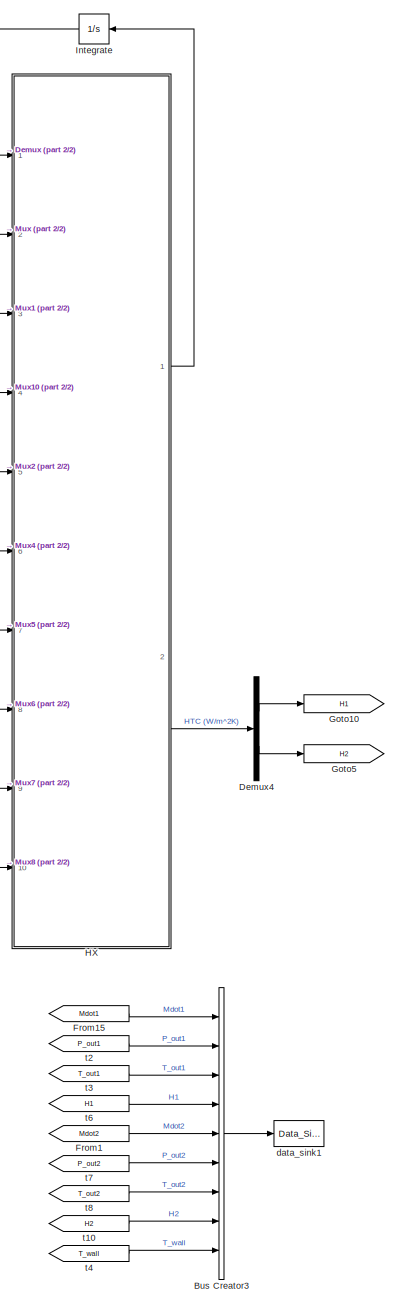
[diagram: Thermal/Heat Exchanger - part 1/2, right side, full height]
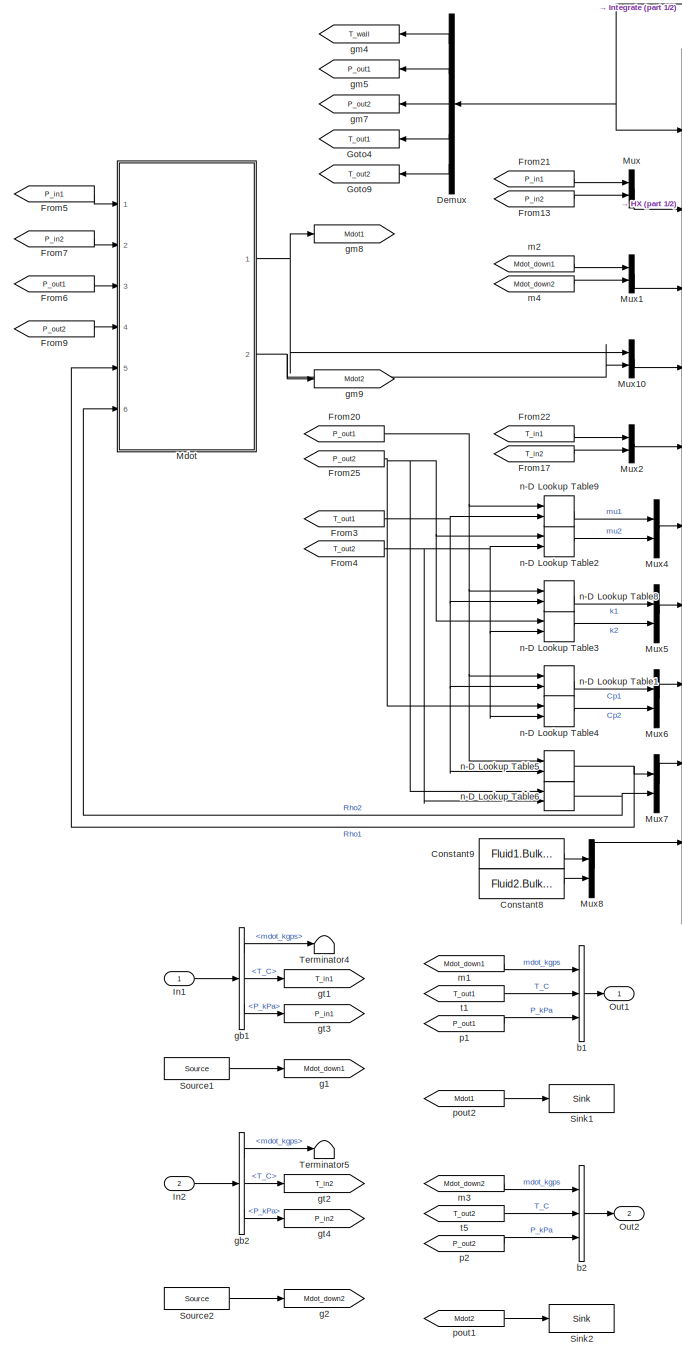
[diagram: Thermal/Heat Exchanger - part 2/2, left side, full height]
BLOCK [SubSystem] Thermal/Heat Exchanger
  OpenFcn = load('Fluids.mat');\nSet_Fluid_Popup_Names( Fluid )
  Ports = [2, 2]
  RequestExecContextInheritance = off
BLOCK [BusCreator] Thermal/Heat Exchanger/Bus Creator3
  DisplayOption = bar
  InheritFromInputs = on
  Inputs = 9
  Ports = [9, 1]
BLOCK [Constant] Thermal/Heat Exchanger/Constant8
  Value = Fluid2.Bulk_Mod
BLOCK [Constant] Thermal/Heat Exchanger/Constant9
  Value = Fluid1.Bulk_Mod
BLOCK [Demux] Thermal/Heat Exchanger/Demux
  DisplayOption = bar
  Outputs = 5
  Ports = [1, 5]
BLOCK [Demux] Thermal/Heat Exchanger/Demux4
  DisplayOption = bar
  Outputs = 2
  Ports = [1, 2]
BLOCK [From] Thermal/Heat Exchanger/From1
  CloseFcn = tagdialog Close
  GotoTag = Mdot2
BLOCK [From] Thermal/Heat Exchanger/From13
  CloseFcn = tagdialog Close
  GotoTag = P_in2
BLOCK [From] Thermal/Heat Exchanger/From15
  CloseFcn = tagdialog Close
  GotoTag = Mdot1
BLOCK [From] Thermal/Heat Exchanger/From17
  CloseFcn = tagdialog Close
  GotoTag = T_in2
BLOCK [From] Thermal/Heat Exchanger/From20
  CloseFcn = tagdialog Close
  GotoTag = P_out1
BLOCK [From] Thermal/Heat Exchanger/From21
  CloseFcn = tagdialog Close
  GotoTag = P_in1
BLOCK [From] Thermal/Heat Exchanger/From22
  CloseFcn = tagdialog Close
  GotoTag = T_in1
BLOCK [From] Thermal/Heat Exchanger/From25
  CloseFcn = tagdialog Close
  GotoTag = P_out2
BLOCK [From] Thermal/Heat Exchanger/From3
  CloseFcn = tagdialog Close
  GotoTag = T_out1
BLOCK [From] Thermal/Heat Exchanger/From4
  CloseFcn = tagdialog Close
  GotoTag = T_out2
BLOCK [From] Thermal/Heat Exchanger/From5
  CloseFcn = tagdialog Close
  GotoTag = P_in1
BLOCK [From] Thermal/Heat Exchanger/From6
  CloseFcn = tagdialog Close
  GotoTag = P_out1
BLOCK [From] Thermal/Heat Exchanger/From7
  CloseFcn = tagdialog Close
  GotoTag = P_in2
BLOCK [From] Thermal/Heat Exchanger/From9
  CloseFcn = tagdialog Close
  GotoTag = P_out2
BLOCK [Goto] Thermal/Heat Exchanger/Goto10
  GotoTag = H1
BLOCK [Goto] Thermal/Heat Exchanger/Goto4
  GotoTag = T_out1
BLOCK [Goto] Thermal/Heat Exchanger/Goto5
  GotoTag = H2
BLOCK [Goto] Thermal/Heat Exchanger/Goto9
  GotoTag = T_out2
BLOCK [SubSystem] Thermal/Heat Exchanger/HX
  ErrorFcn = Stateflow.Translate.translate
  PermitHierarchicalResolution = ExplicitOnly
  Ports = [10, 2]
  RequestExecContextInheritance = off
  SFBlockType = MATLAB Function
  TreatAsAtomicUnit = on
BLOCK [Demux] Thermal/Heat Exchanger/HX/ Demux 
  Outputs = 1
  Ports = [1, 1]
BLOCK [S-Function] Thermal/Heat Exchanger/HX/ SFunction 
  EnableBusSupport = off
  FunctionName = sf_sfun
  Parameters = Cp_wall,HTC1,HTC2,HTC_method1,HTC_method2,KL1,KL2,L1,L2,M_wall,Nu_lam1,Nu_lam2,Pass1,Pass2,W1,W2,b1,b2,dH1,dH2,f1,f2
  PortCounts = [10 3]
  Ports = [10, 3]
  SFcnIsStateOwnerBlock = off
  SFunctionDeploymentMode = off
  Tag = Stateflow S-Function 3
BLOCK [Terminator] Thermal/Heat Exchanger/HX/ Terminator 
BLOCK [Inport] Thermal/Heat Exchanger/HX/Cp
  IconDisplay = Port number
  Port = 8
BLOCK [Inport] Thermal/Heat Exchanger/HX/E_fluid
  IconDisplay = Port number
  Port = 10
BLOCK [Outport] Thermal/Heat Exchanger/HX/H
  IconDisplay = Port number
  Port = 2
  VectorParamsAs1DForOutWhenUnconnected = off
BLOCK [Inport] Thermal/Heat Exchanger/HX/Mdot
  IconDisplay = Port number
  Port = 4
BLOCK [Inport] Thermal/Heat Exchanger/HX/Mdot_down
  IconDisplay = Port number
  Port = 3
BLOCK [Inport] Thermal/Heat Exchanger/HX/P_in
  IconDisplay = Port number
  Port = 2
BLOCK [Inport] Thermal/Heat Exchanger/HX/Rho
  IconDisplay = Port number
  Port = 9
BLOCK [Inport] Thermal/Heat Exchanger/HX/T_in
  IconDisplay = Port number
  Port = 5
BLOCK [Inport] Thermal/Heat Exchanger/HX/k
  IconDisplay = Port number
  Port = 7
BLOCK [Inport] Thermal/Heat Exchanger/HX/mu
  IconDisplay = Port number
  Port = 6
BLOCK [Inport] Thermal/Heat Exchanger/HX/x
  IconDisplay = Port number
BLOCK [Outport] Thermal/Heat Exchanger/HX/x_dot
  IconDisplay = Port number
  VectorParamsAs1DForOutWhenUnconnected = off
BLOCK [Inport] Thermal/Heat Exchanger/In1
  IconDisplay = Port number
BLOCK [Inport] Thermal/Heat Exchanger/In2
  IconDisplay = Port number
  Port = 2
BLOCK [Integrator] Thermal/Heat Exchanger/Integrate
  InitialCondition = [Tw_init P1_init P2_init T1_init T2_init]
  Ports = [1, 1]
BLOCK [SubSystem] Thermal/Heat Exchanger/Mdot
  ErrorFcn = Stateflow.Translate.translate
  PermitHierarchicalResolution = ExplicitOnly
  Ports = [6, 2]
  RequestExecContextInheritance = off
  SFBlockType = MATLAB Function
  TreatAsAtomicUnit = on
BLOCK [Demux] Thermal/Heat Exchanger/Mdot/ Demux 
  Outputs = 1
  Ports = [1, 1]
BLOCK [S-Function] Thermal/Heat Exchanger/Mdot/ SFunction 
  EnableBusSupport = off
  FunctionName = sf_sfun
  Parameters = KL1,KL2,L1,L2,Pass1,Pass2,W1,W2,b1,b2,dH1,dH2,f1,f2
  PortCounts = [6 3]
  Ports = [6, 3]
  SFcnIsStateOwnerBlock = off
  SFunctionDeploymentMode = off
  Tag = Stateflow S-Function 13
BLOCK [Terminator] Thermal/Heat Exchanger/Mdot/ Terminator 
BLOCK [Outport] Thermal/Heat Exchanger/Mdot/Mdot1_tot
  IconDisplay = Port number
  VectorParamsAs1DForOutWhenUnconnected = off
BLOCK [Outport] Thermal/Heat Exchanger/Mdot/Mdot2_tot
  IconDisplay = Port number
  Port = 2
  VectorParamsAs1DForOutWhenUnconnected = off
BLOCK [Inport] Thermal/Heat Exchanger/Mdot/P_in1
  IconDisplay = Port number
BLOCK [Inport] Thermal/Heat Exchanger/Mdot/P_in2
  IconDisplay = Port number
  Port = 2
BLOCK [Inport] Thermal/Heat Exchanger/Mdot/P_out1
  IconDisplay = Port number
  Port = 3
BLOCK [Inport] Thermal/Heat Exchanger/Mdot/P_out2
  IconDisplay = Port number
  Port = 4
BLOCK [Inport] Thermal/Heat Exchanger/Mdot/Rho1
  IconDisplay = Port number
  Port = 5
BLOCK [Inport] Thermal/Heat Exchanger/Mdot/Rho2
  IconDisplay = Port number
  Port = 6
BLOCK [Mux] Thermal/Heat Exchanger/Mux
  DisplayOption = bar
  Inputs = 2
  Ports = [2, 1]
BLOCK [Mux] Thermal/Heat Exchanger/Mux1
  DisplayOption = bar
  Inputs = 2
  Ports = [2, 1]
BLOCK [Mux] Thermal/Heat Exchanger/Mux10
  DisplayOption = bar
  Inputs = 2
  Ports = [2, 1]
BLOCK [Mux] Thermal/Heat Exchanger/Mux2
  DisplayOption = bar
  Inputs = 2
  Ports = [2, 1]
BLOCK [Mux] Thermal/Heat Exchanger/Mux4
  DisplayOption = bar
  Inputs = 2
  Ports = [2, 1]
BLOCK [Mux] Thermal/Heat Exchanger/Mux5
  DisplayOption = bar
  Inputs = 2
  Ports = [2, 1]
BLOCK [Mux] Thermal/Heat Exchanger/Mux6
  DisplayOption = bar
  Inputs = 2
  Ports = [2, 1]
BLOCK [Mux] Thermal/Heat Exchanger/Mux7
  DisplayOption = bar
  Inputs = 2
  Ports = [2, 1]
BLOCK [Mux] Thermal/Heat Exchanger/Mux8
  DisplayOption = bar
  Inputs = 2
  Ports = [2, 1]
BLOCK [Outport] Thermal/Heat Exchanger/Out1
  IconDisplay = Port number
  VectorParamsAs1DForOutWhenUnconnected = off
BLOCK [Outport] Thermal/Heat Exchanger/Out2
  IconDisplay = Port number
  Port = 2
  VectorParamsAs1DForOutWhenUnconnected = off
BLOCK [Reference] Thermal/Heat Exchanger/Sink1  REF=$bdroot/Support Functions/Sink
  Ports = [1]
  SourceBlock = $bdroot/Support Functions/Sink
  SourceType = Sink
BLOCK [Reference] Thermal/Heat Exchanger/Sink2  REF=$bdroot/Support Functions/Sink
  Ports = [1]
  SourceBlock = $bdroot/Support Functions/Sink
  SourceType = Sink
BLOCK [Reference] Thermal/Heat Exchanger/Source1  REF=$bdroot/Support Functions/Source
  Ports = [0, 1]
  SourceBlock = $bdroot/Support Functions/Source
  SourceType = Source
BLOCK [Reference] Thermal/Heat Exchanger/Source2  REF=$bdroot/Support Functions/Source
  Ports = [0, 1]
  SourceBlock = $bdroot/Support Functions/Source
  SourceType = Source
BLOCK [Terminator] Thermal/Heat Exchanger/Terminator4
BLOCK [Terminator] Thermal/Heat Exchanger/Terminator5
BLOCK [BusCreator] Thermal/Heat Exchanger/b1
  DisplayOption = bar
  InheritFromInputs = on
  Inputs = 3
  Ports = [3, 1]
BLOCK [BusCreator] Thermal/Heat Exchanger/b2
  DisplayOption = bar
  InheritFromInputs = on
  Inputs = 3
  Ports = [3, 1]
BLOCK [Reference] Thermal/Heat Exchanger/data_sink1  REF=$bdroot/Support Functions/Data_Sink
  Ports = [1]
  SourceBlock = $bdroot/Support Functions/Data_Sink
  SourceType = Data Sink
BLOCK [Goto] Thermal/Heat Exchanger/g1
  GotoTag = Mdot_down1
BLOCK [Goto] Thermal/Heat Exchanger/g2
  GotoTag = Mdot_down2
BLOCK [BusSelector] Thermal/Heat Exchanger/gb1
  OutputAsBus = off
  OutputSignals = mdot_kgps,T_C,P_kPa
  Ports = [1, 3]
BLOCK [BusSelector] Thermal/Heat Exchanger/gb2
  OutputAsBus = off
  OutputSignals = mdot_kgps,T_C,P_kPa
  Ports = [1, 3]
BLOCK [Goto] Thermal/Heat Exchanger/gm4
  GotoTag = T_wall
BLOCK [Goto] Thermal/Heat Exchanger/gm5
  GotoTag = P_out1
BLOCK [Goto] Thermal/Heat Exchanger/gm7
  GotoTag = P_out2
BLOCK [Goto] Thermal/Heat Exchanger/gm8
  GotoTag = Mdot1
BLOCK [Goto] Thermal/Heat Exchanger/gm9
  GotoTag = Mdot2
BLOCK [Goto] Thermal/Heat Exchanger/gt1
  GotoTag = T_in1
BLOCK [Goto] Thermal/Heat Exchanger/gt2
  GotoTag = T_in2
BLOCK [Goto] Thermal/Heat Exchanger/gt3
  GotoTag = P_in1
BLOCK [Goto] Thermal/Heat Exchanger/gt4
  GotoTag = P_in2
BLOCK [From] Thermal/Heat Exchanger/m1
  CloseFcn = tagdialog Close
  GotoTag = Mdot_down1
BLOCK [From] Thermal/Heat Exchanger/m2
  CloseFcn = tagdialog Close
  GotoTag = Mdot_down1
BLOCK [From] Thermal/Heat Exchanger/m3
  CloseFcn = tagdialog Close
  GotoTag = Mdot_down2
BLOCK [From] Thermal/Heat Exchanger/m4
  CloseFcn = tagdialog Close
  GotoTag = Mdot_down2
BLOCK [Lookup_n-D] Thermal/Heat Exchanger/n-D Lookup Table1
  BreakpointsForDimension1 = Fluid1.P
  BreakpointsForDimension2 = Fluid1.T
  BreakpointsForDimension3 = [5, 7]
  ExtrapMethod = Clip
  Ports = [2, 1]
  RndMeth = Simplest
  Table = Fluid1.C_pt
BLOCK [Lookup_n-D] Thermal/Heat Exchanger/n-D Lookup Table2
  BreakpointsForDimension1 = Fluid2.P
  BreakpointsForDimension2 = Fluid2.T
  BreakpointsForDimension3 = [5, 7]
  ExtrapMethod = Clip
  Ports = [2, 1]
  RndMeth = Simplest
  Table = Fluid2.Mu_pt
  UseLastTableValue = on
BLOCK [Lookup_n-D] Thermal/Heat Exchanger/n-D Lookup Table3
  BreakpointsForDimension1 = Fluid2.P
  BreakpointsForDimension2 = Fluid2.T
  BreakpointsForDimension3 = [5, 7]
  ExtrapMethod = Clip
  Ports = [2, 1]
  RndMeth = Simplest
  Table = Fluid2.K_pt
  UseLastTableValue = on
BLOCK [Lookup_n-D] Thermal/Heat Exchanger/n-D Lookup Table4
  BreakpointsForDimension1 = Fluid2.P
  BreakpointsForDimension2 = Fluid2.T
  BreakpointsForDimension3 = [5, 7]
  ExtrapMethod = Clip
  Ports = [2, 1]
  RndMeth = Simplest
  Table = Fluid2.C_pt
  UseLastTableValue = on
BLOCK [Lookup_n-D] Thermal/Heat Exchanger/n-D Lookup Table5
  BreakpointsForDimension1 = Fluid1.P
  BreakpointsForDimension2 = Fluid1.T
  BreakpointsForDimension3 = [5, 7]
  ExtrapMethod = Clip
  Ports = [2, 1]
  RndMeth = Simplest
  Table = Fluid1.Rho_pt
  UseLastTableValue = on
BLOCK [Lookup_n-D] Thermal/Heat Exchanger/n-D Lookup Table6
  BreakpointsForDimension1 = Fluid2.P
  BreakpointsForDimension2 = Fluid2.T
  BreakpointsForDimension3 = [5, 7]
  ExtrapMethod = Clip
  Ports = [2, 1]
  RndMeth = Simplest
  Table = Fluid2.Rho_pt
  UseLastTableValue = on
BLOCK [Lookup_n-D] Thermal/Heat Exchanger/n-D Lookup Table8
  BreakpointsForDimension1 = Fluid1.P
  BreakpointsForDimension2 = Fluid1.T
  BreakpointsForDimension3 = [5, 7]
  ExtrapMethod = Clip
  Ports = [2, 1]
  RndMeth = Simplest
  Table = Fluid1.K_pt
  UseLastTableValue = on
BLOCK [Lookup_n-D] Thermal/Heat Exchanger/n-D Lookup Table9
  BreakpointsForDimension1 = Fluid1.P
  BreakpointsForDimension2 = Fluid1.T
  BreakpointsForDimension3 = [5, 7]
  ExtrapMethod = Clip
  Ports = [2, 1]
  RndMeth = Simplest
  Table = Fluid1.Mu_pt
  UseLastTableValue = on
BLOCK [From] Thermal/Heat Exchanger/p1
  CloseFcn = tagdialog Close
  GotoTag = P_out1
BLOCK [From] Thermal/Heat Exchanger/p2
  CloseFcn = tagdialog Close
  GotoTag = P_out2
BLOCK [From] Thermal/Heat Exchanger/pout1
  GotoTag = Mdot2
BLOCK [From] Thermal/Heat Exchanger/pout2
  GotoTag = Mdot1
BLOCK [From] Thermal/Heat Exchanger/t1
  CloseFcn = tagdialog Close
  GotoTag = T_out1
BLOCK [From] Thermal/Heat Exchanger/t10
  CloseFcn = tagdialog Close
  GotoTag = H2
BLOCK [From] Thermal/Heat Exchanger/t2
  CloseFcn = tagdialog Close
  GotoTag = P_out1
BLOCK [From] Thermal/Heat Exchanger/t3
  CloseFcn = tagdialog Close
  GotoTag = T_out1
BLOCK [From] Thermal/Heat Exchanger/t4
  CloseFcn = tagdialog Close
  GotoTag = T_wall
BLOCK [From] Thermal/Heat Exchanger/t5
  CloseFcn = tagdialog Close
  GotoTag = T_out2
BLOCK [From] Thermal/Heat Exchanger/t6
  CloseFcn = tagdialog Close
  GotoTag = H1
BLOCK [From] Thermal/Heat Exchanger/t7
  CloseFcn = tagdialog Close
  GotoTag = P_out2
BLOCK [From] Thermal/Heat Exchanger/t8
  CloseFcn = tagdialog Close
  GotoTag = T_out2
BLOCK [SubSystem] Thermal/Heat_Sink_Edge
  Ports = [1, 1]
  RequestExecContextInheritance = off
BLOCK [BusCreator] Thermal/Heat_Sink_Edge/Bus Creator
  DisplayOption = bar
  InheritFromInputs = on
  Inputs = 1
  Ports = [1, 1]
BLOCK [BusCreator] Thermal/Heat_Sink_Edge/Bus Creator1
  DisplayOption = bar
  InheritFromInputs = on
  Inputs = 2
  Ports = [2, 1]
BLOCK [BusSelector] Thermal/Heat_Sink_Edge/Bus Selector
  OutputAsBus = off
  OutputSignals = Q_kW,Temp
  Ports = [1, 2]
BLOCK [Reference] Thermal/Heat_Sink_Edge/Data_Sink  REF=$bdroot/Support Functions/Data_Sink
  Ports = [1]
  SourceBlock = $bdroot/Support Functions/Data_Sink
  SourceType = Data Sink
BLOCK [From] Thermal/Heat_Sink_Edge/From1
  GotoTag = Q
BLOCK [From] Thermal/Heat_Sink_Edge/From2
  GotoTag = T_source
BLOCK [From] Thermal/Heat_Sink_Edge/From5
  GotoTag = T_sink
BLOCK [From] Thermal/Heat_Sink_Edge/From6
  GotoTag = T_sink
BLOCK [From] Thermal/Heat_Sink_Edge/From7
  GotoTag = Q
BLOCK [From] Thermal/Heat_Sink_Edge/From8
  GotoTag = Q
BLOCK [Goto] Thermal/Heat_Sink_Edge/Goto1
  GotoTag = T_sink
BLOCK [Goto] Thermal/Heat_Sink_Edge/Goto5
  GotoTag = T_source
BLOCK [Goto] Thermal/Heat_Sink_Edge/Goto6
  GotoTag = Q
BLOCK [Inport] Thermal/Heat_Sink_Edge/In1
  IconDisplay = Port number
BLOCK [Outport] Thermal/Heat_Sink_Edge/Out1
  IconDisplay = Port number
  VectorParamsAs1DForOutWhenUnconnected = off
BLOCK [Reference] Thermal/Heat_Sink_Edge/Sink1  REF=$bdroot/Support Functions/Sink
  Ports = [1]
  SourceBlock = $bdroot/Support Functions/Sink
  SourceType = Sink
BLOCK [Reference] Thermal/Heat_Sink_Edge/Source1  REF=$bdroot/Support Functions/Source
  Ports = [0, 1]
  SourceBlock = $bdroot/Support Functions/Source
  SourceType = Source
BLOCK [Terminator] Thermal/Heat_Sink_Edge/Terminator
BLOCK [SubSystem] Thermal/Heat_Sink_Edge/Thermal
  ErrorFcn = Stateflow.Translate.translate
  PermitHierarchicalResolution = ExplicitOnly
  Ports = [2, 1]
  RequestExecContextInheritance = off
  SFBlockType = MATLAB Function
  TreatAsAtomicUnit = on
BLOCK [Demux] Thermal/Heat_Sink_Edge/Thermal/ Demux 
  Outputs = 1
  Ports = [1, 1]
BLOCK [S-Function] Thermal/Heat_Sink_Edge/Thermal/ SFunction 
  EnableBusSupport = off
  FunctionName = sf_sfun
  Parameters = As,L,R_const,k,s
  PortCounts = [2 2]
  Ports = [2, 2]
  SFcnIsStateOwnerBlock = off
  SFunctionDeploymentMode = off
  Tag = Stateflow S-Function 53
BLOCK [Terminator] Thermal/Heat_Sink_Edge/Thermal/ Terminator 
BLOCK [Outport] Thermal/Heat_Sink_Edge/Thermal/Q
  IconDisplay = Port number
  VectorParamsAs1DForOutWhenUnconnected = off
BLOCK [Inport] Thermal/Heat_Sink_Edge/Thermal/T_sink
  IconDisplay = Port number
  Port = 2
BLOCK [Inport] Thermal/Heat_Sink_Edge/Thermal/T_source
  IconDisplay = Port number
BLOCK [SubSystem] Thermal/Multi-Port Fluid Tank
  CopyFcn = h      = get_param(gcb,'handle');   % Get block handle\nblk    = gcb; \n\nset_param(blk, 'LinkStatus', 'inactive')
  OpenFcn = load('Fluids.mat');\nSet_Fluid_Popup_Names( Fluid )
  Ports = [3, 2]
  RequestExecContextInheritance = off
BLOCK [BusCreator] Thermal/Multi-Port Fluid Tank/Bus Creator2
  DisplayOption = bar
  InheritFromInputs = on
  Inputs = 4
  Ports = [4, 1]
BLOCK [Demux] Thermal/Multi-Port Fluid Tank/Demux
  DisplayOption = bar
  Outputs = 2
  Ports = [1, 2]
BLOCK [From] Thermal/Multi-Port Fluid Tank/From11
  CloseFcn = tagdialog Close
  GotoTag = T_tank
BLOCK [From] Thermal/Multi-Port Fluid Tank/From12
  CloseFcn = tagdialog Close
  GotoTag = P_tank
BLOCK [From] Thermal/Multi-Port Fluid Tank/From13
  CloseFcn = tagdialog Close
  GotoTag = M_tank
BLOCK [From] Thermal/Multi-Port Fluid Tank/From14
  CloseFcn = tagdialog Close
  GotoTag = h_tank
BLOCK [From] Thermal/Multi-Port Fluid Tank/From16
  CloseFcn = tagdialog Close
  GotoTag = P_tank
BLOCK [From] Thermal/Multi-Port Fluid Tank/From2
  CloseFcn = tagdialog Close
  GotoTag = T_tank
BLOCK [Goto] Thermal/Multi-Port Fluid Tank/Goto2
  GotoTag = M_tank
BLOCK [Goto] Thermal/Multi-Port Fluid Tank/Goto4
  GotoTag = h_tank
BLOCK [Inport] Thermal/Multi-Port Fluid Tank/In1
  IconDisplay = Port number
BLOCK [Inport] Thermal/Multi-Port Fluid Tank/In2
  IconDisplay = Port number
  Port = 2
BLOCK [Inport] Thermal/Multi-Port Fluid Tank/InN
  IconDisplay = Port number
  Port = 3
BLOCK [Integrator] Thermal/Multi-Port Fluid Tank/Integrate
  InitialCondition = [T_init P_init]
  Ports = [1, 1]
BLOCK [Mux] Thermal/Multi-Port Fluid Tank/Mux_In_1
  DisplayOption = bar
  Inputs = 2
  Ports = [2, 1]
BLOCK [Mux] Thermal/Multi-Port Fluid Tank/Mux_In_2
  DisplayOption = bar
  Inputs = 2
  Ports = [2, 1]
BLOCK [Mux] Thermal/Multi-Port Fluid Tank/Mux_In_3
  DisplayOption = bar
  Inputs = 2
  Ports = [2, 1]
BLOCK [Outport] Thermal/Multi-Port Fluid Tank/Out1
  IconDisplay = Port number
  VectorParamsAs1DForOutWhenUnconnected = off
BLOCK [Outport] Thermal/Multi-Port Fluid Tank/Out2
  IconDisplay = Port number
  Port = 2
  VectorParamsAs1DForOutWhenUnconnected = off
BLOCK [Selector] Thermal/Multi-Port Fluid Tank/Selector1
  IndexOptions = Index vector (dialog)
  Indices = [1 2 ]
  InputPortWidth = 2
  OutputSizes = 1
  Ports = [1, 1]
BLOCK [Selector] Thermal/Multi-Port Fluid Tank/Selector2
  IndexOptions = Index vector (dialog)
  Indices = [1 2 ]
  InputPortWidth = 2
  OutputSizes = 1
  Ports = [1, 1]
BLOCK [Reference] Thermal/Multi-Port Fluid Tank/Sink1  REF=$bdroot/Support Functions/Sink
  Ports = [1]
  SourceBlock = $bdroot/Support Functions/Sink
  SourceType = Sink
BLOCK [Reference] Thermal/Multi-Port Fluid Tank/Sink2  REF=$bdroot/Support Functions/Sink
  Ports = [1]
  SourceBlock = $bdroot/Support Functions/Sink
  SourceType = Sink
BLOCK [Reference] Thermal/Multi-Port Fluid Tank/Source1  REF=$bdroot/Support Functions/Source
  Ports = [0, 1]
  SourceBlock = $bdroot/Support Functions/Source
  SourceType = Source
BLOCK [Reference] Thermal/Multi-Port Fluid Tank/Source2  REF=$bdroot/Support Functions/Source
  Ports = [0, 1]
  SourceBlock = $bdroot/Support Functions/Source
  SourceType = Source
BLOCK [SubSystem] Thermal/Multi-Port Fluid Tank/Tank
  ErrorFcn = Stateflow.Translate.translate
  PermitHierarchicalResolution = ExplicitOnly
  Ports = [7, 3]
  RequestExecContextInheritance = off
  SFBlockType = MATLAB Function
  TreatAsAtomicUnit = on
BLOCK [Demux] Thermal/Multi-Port Fluid Tank/Tank/ Demux 
  Outputs = 1
  Ports = [1, 1]
BLOCK [S-Function] Thermal/Multi-Port Fluid Tank/Tank/ SFunction 
  EnableBusSupport = off
  FunctionName = sf_sfun
  Parameters = D,H,Pamb
  PortCounts = [7 4]
  Ports = [7, 4]
  SFcnIsStateOwnerBlock = off
  SFunctionDeploymentMode = off
  Tag = Stateflow S-Function 22
BLOCK [Terminator] Thermal/Multi-Port Fluid Tank/Tank/ Terminator 
BLOCK [Inport] Thermal/Multi-Port Fluid Tank/Tank/Cp
  IconDisplay = Port number
  Port = 6
BLOCK [Outport] Thermal/Multi-Port Fluid Tank/Tank/M
  IconDisplay = Port number
  Port = 2
  VectorParamsAs1DForOutWhenUnconnected = off
BLOCK [Inport] Thermal/Multi-Port Fluid Tank/Tank/Mdot_in
  IconDisplay = Port number
  Port = 2
BLOCK [Inport] Thermal/Multi-Port Fluid Tank/Tank/Mdot_out
  IconDisplay = Port number
  Port = 3
BLOCK [Inport] Thermal/Multi-Port Fluid Tank/Tank/Rho
  IconDisplay = Port number
  Port = 7
BLOCK [Inport] Thermal/Multi-Port Fluid Tank/Tank/T_amb
  IconDisplay = Port number
  Port = 5
BLOCK [Inport] Thermal/Multi-Port Fluid Tank/Tank/T_in
  IconDisplay = Port number
  Port = 4
BLOCK [Outport] Thermal/Multi-Port Fluid Tank/Tank/h
  IconDisplay = Port number
  Port = 3
  VectorParamsAs1DForOutWhenUnconnected = off
BLOCK [Inport] Thermal/Multi-Port Fluid Tank/Tank/x
  IconDisplay = Port number
BLOCK [Outport] Thermal/Multi-Port Fluid Tank/Tank/x_dot
  IconDisplay = Port number
  VectorParamsAs1DForOutWhenUnconnected = off
BLOCK [BusCreator] Thermal/Multi-Port Fluid Tank/b1
  DisplayOption = bar
  InheritFromInputs = on
  Inputs = 3
  Ports = [3, 1]
BLOCK [BusCreator] Thermal/Multi-Port Fluid Tank/b2
  DisplayOption = bar
  InheritFromInputs = on
  Inputs = 3
  Ports = [3, 1]
BLOCK [Reference] Thermal/Multi-Port Fluid Tank/data_sink1  REF=$bdroot/Support Functions/Data_Sink
  Ports = [1]
  SourceBlock = $bdroot/Support Functions/Data_Sink
  SourceType = Data Sink
BLOCK [Goto] Thermal/Multi-Port Fluid Tank/g1
  GotoTag = M_out1
BLOCK [Goto] Thermal/Multi-Port Fluid Tank/g2
  GotoTag = M_out2
BLOCK [BusSelector] Thermal/Multi-Port Fluid Tank/gb1
  OutputAsBus = off
  OutputSignals = mdot_kgps,T_C,P_kPa
  Ports = [1, 3]
BLOCK [BusSelector] Thermal/Multi-Port Fluid Tank/gb2
  OutputAsBus = off
  OutputSignals = mdot_kgps,T_C,P_kPa
  Ports = [1, 3]
BLOCK [Goto] Thermal/Multi-Port Fluid Tank/gm1
  GotoTag = M_in1
BLOCK [Goto] Thermal/Multi-Port Fluid Tank/gm2
  GotoTag = M_in2
BLOCK [Goto] Thermal/Multi-Port Fluid Tank/gm4
  GotoTag = T_tank
BLOCK [Goto] Thermal/Multi-Port Fluid Tank/gm5
  GotoTag = P_tank
BLOCK [Terminator] Thermal/Multi-Port Fluid Tank/gp1
BLOCK [Terminator] Thermal/Multi-Port Fluid Tank/gp2
BLOCK [Goto] Thermal/Multi-Port Fluid Tank/gt1
  GotoTag = T_in1
BLOCK [Goto] Thermal/Multi-Port Fluid Tank/gt2
  GotoTag = T_in2
BLOCK [Goto] Thermal/Multi-Port Fluid Tank/gtN
  GotoTag = T_amb
BLOCK [From] Thermal/Multi-Port Fluid Tank/m1
  CloseFcn = tagdialog Close
  GotoTag = M_out1
BLOCK [From] Thermal/Multi-Port Fluid Tank/m2
  GotoTag = M_out2
BLOCK [From] Thermal/Multi-Port Fluid Tank/m4
  CloseFcn = tagdialog Close
  GotoTag = T_amb
BLOCK [From] Thermal/Multi-Port Fluid Tank/min1
  CloseFcn = tagdialog Close
  GotoTag = M_in1
BLOCK [From] Thermal/Multi-Port Fluid Tank/min2
  GotoTag = M_in2
BLOCK [From] Thermal/Multi-Port Fluid Tank/mout1
  GotoTag = M_out1
BLOCK [From] Thermal/Multi-Port Fluid Tank/mout2
  GotoTag = M_out2
BLOCK [Lookup_n-D] Thermal/Multi-Port Fluid Tank/n-D Lookup Table1
  BreakpointsForDimension1 = Fluid.P
  BreakpointsForDimension2 = Fluid.T
  BreakpointsForDimension3 = [5, 7]
  ExtrapMethod = Clip
  Ports = [2, 1]
  RndMeth = Simplest
  Table = Fluid.C_pt
  UseLastTableValue = on
BLOCK [Lookup_n-D] Thermal/Multi-Port Fluid Tank/n-D Lookup Table2
  BreakpointsForDimension1 = Fluid.P
  BreakpointsForDimension2 = Fluid.T
  BreakpointsForDimension3 = [5, 7]
  ExtrapMethod = Clip
  Ports = [2, 1]
  RndMeth = Simplest
  Table = Fluid.Rho_pt
  UseLastTableValue = on
BLOCK [From] Thermal/Multi-Port Fluid Tank/p1
  CloseFcn = tagdialog Close
  GotoTag = P_tank
BLOCK [From] Thermal/Multi-Port Fluid Tank/p2
  GotoTag = P_tank
BLOCK [From] Thermal/Multi-Port Fluid Tank/pout1
  GotoTag = P_tank
BLOCK [From] Thermal/Multi-Port Fluid Tank/pout2
  GotoTag = P_tank
BLOCK [From] Thermal/Multi-Port Fluid Tank/t1
  CloseFcn = tagdialog Close
  GotoTag = T_tank
BLOCK [From] Thermal/Multi-Port Fluid Tank/t2
  GotoTag = T_tank
BLOCK [From] Thermal/Multi-Port Fluid Tank/tin1
  GotoTag = T_in1
BLOCK [From] Thermal/Multi-Port Fluid Tank/tin2
  GotoTag = T_in2
BLOCK [SubSystem] Thermal/PCM Module
  Ports = [1, 1]
  RequestExecContextInheritance = off
BLOCK [BusCreator] Thermal/PCM Module/Bus Creator
  DisplayOption = bar
  InheritFromInputs = on
  Inputs = 6
  Ports = [6, 1]
BLOCK [BusCreator] Thermal/PCM Module/Bus Creator1
  DisplayOption = bar
  InheritFromInputs = on
  Inputs = 2
  Ports = [2, 1]
BLOCK [BusSelector] Thermal/PCM Module/Bus Selector1
  OutputAsBus = off
  OutputSignals = Q_kW,Temp
  Ports = [1, 2]
BLOCK [Inport] Thermal/PCM Module/Cooling In
  IconDisplay = Port number
BLOCK [Outport] Thermal/PCM Module/Cooling Out
  IconDisplay = Port number
  VectorParamsAs1DForOutWhenUnconnected = off
BLOCK [Reference] Thermal/PCM Module/Data_Sink  REF=$bdroot/Support Functions/Data_Sink
  Ports = [1]
  SourceBlock = $bdroot/Support Functions/Data_Sink
  SourceType = Data Sink
BLOCK [Demux] Thermal/PCM Module/Demux
  DisplayOption = bar
  Outputs = 3
  Ports = [1, 3]
BLOCK [From] Thermal/PCM Module/From
  GotoTag = Q_in
BLOCK [From] Thermal/PCM Module/From1
  GotoTag = Q_out
BLOCK [From] Thermal/PCM Module/From10
  GotoTag = T_2
BLOCK [From] Thermal/PCM Module/From11
  GotoTag = T_1
BLOCK [From] Thermal/PCM Module/From12
  GotoTag = Q_out
BLOCK [From] Thermal/PCM Module/From13
  GotoTag = Q_in
BLOCK [From] Thermal/PCM Module/From4
  GotoTag = T_i
BLOCK [From] Thermal/PCM Module/From5
  GotoTag = T_base
BLOCK [From] Thermal/PCM Module/From6
  GotoTag = X
BLOCK [From] Thermal/PCM Module/From7
  GotoTag = X
BLOCK [From] Thermal/PCM Module/From8
  GotoTag = T_2
BLOCK [From] Thermal/PCM Module/From9
  GotoTag = state
BLOCK [Gain] Thermal/PCM Module/Gain
  Gain = 1/depth
  OutDataTypeStr = Inherit: Inherit via internal rule
  ParamDataTypeStr = Inherit: Inherit via internal rule
  SaturateOnIntegerOverflow = off
BLOCK [Gain] Thermal/PCM Module/Gain2
  Gain = -1/1000
  OutDataTypeStr = Inherit: Inherit via internal rule
  ParamDataTypeStr = Inherit: Inherit via internal rule
  SaturateOnIntegerOverflow = off
BLOCK [Gain] Thermal/PCM Module/Gain3
  Gain = 1/1000
  OutDataTypeStr = Inherit: Inherit via internal rule
  ParamDataTypeStr = Inherit: Inherit via internal rule
  SaturateOnIntegerOverflow = off
BLOCK [Gain] Thermal/PCM Module/Gain4
  Gain = 1000
  OutDataTypeStr = Inherit: Inherit via internal rule
  ParamDataTypeStr = Inherit: Inherit via internal rule
  SaturateOnIntegerOverflow = off
BLOCK [Gain] Thermal/PCM Module/Gain5
  Gain = -1/1000
  OutDataTypeStr = Inherit: Inherit via internal rule
  ParamDataTypeStr = Inherit: Inherit via internal rule
  SaturateOnIntegerOverflow = off
BLOCK [Goto] Thermal/PCM Module/Goto
  GotoTag = Q_out
BLOCK [Goto] Thermal/PCM Module/Goto1
  GotoTag = Q_in
BLOCK [Goto] Thermal/PCM Module/Goto2
  GotoTag = T_i
BLOCK [Goto] Thermal/PCM Module/Goto3
  GotoTag = X
BLOCK [Goto] Thermal/PCM Module/Goto4
  GotoTag = T_base
BLOCK [Goto] Thermal/PCM Module/Goto5
  GotoTag = T_1
BLOCK [Goto] Thermal/PCM Module/Goto6
  GotoTag = T_2
BLOCK [Goto] Thermal/PCM Module/Goto8
  GotoTag = state
BLOCK [Integrator] Thermal/PCM Module/Integrator
  InitialCondition = T_1_0
  Ports = [1, 1]
BLOCK [Integrator] Thermal/PCM Module/Integrator Limited
  InitialCondition = V_L_0*depth
  LimitOutput = on
  LowerSaturationLimit = 1e-5*depth
  Ports = [1, 1]
  UpperSaturationLimit = depth
BLOCK [SubSystem] Thermal/PCM Module/Phase Change Material
  ErrorFcn = Stateflow.Translate.translate
  PermitHierarchicalResolution = ExplicitOnly
  Ports = [5, 4]
  RequestExecContextInheritance = off
  SFBlockType = MATLAB Function
  TreatAsAtomicUnit = on
BLOCK [Demux] Thermal/PCM Module/Phase Change Material/ Demux 
  Outputs = 1
  Ports = [1, 1]
BLOCK [S-Function] Thermal/PCM Module/Phase Change Material/ SFunction 
  EnableBusSupport = off
  FunctionName = sf_sfun
  Parameters = L,R_cont,depth,dim1,dim2,hc_config,por,t_h
  PortCounts = [5 5]
  Ports = [5, 5]
  SFcnIsStateOwnerBlock = off
  SFunctionDeploymentMode = off
  Tag = Stateflow S-Function 62
BLOCK [Terminator] Thermal/PCM Module/Phase Change Material/ Terminator 
BLOCK [Outport] Thermal/PCM Module/Phase Change Material/Q_in
  IconDisplay = Port number
  Port = 3
  VectorParamsAs1DForOutWhenUnconnected = off
BLOCK [Inport] Thermal/PCM Module/Phase Change Material/Q_out
  IconDisplay = Port number
BLOCK [Inport] Thermal/PCM Module/Phase Change Material/T
  IconDisplay = Port number
  Port = 4
BLOCK [Outport] Thermal/PCM Module/Phase Change Material/T_dot
  IconDisplay = Port number
  VectorParamsAs1DForOutWhenUnconnected = off
BLOCK [Inport] Thermal/PCM Module/Phase Change Material/T_i
  IconDisplay = Port number
  Port = 2
BLOCK [Inport] Thermal/PCM Module/Phase Change Material/X
  IconDisplay = Port number
  Port = 3
BLOCK [Outport] Thermal/PCM Module/Phase Change Material/X_dot
  IconDisplay = Port number
  Port = 2
  VectorParamsAs1DForOutWhenUnconnected = off
BLOCK [Inport] Thermal/PCM Module/Phase Change Material/props
  IconDisplay = Port number
  Port = 5
BLOCK [Outport] Thermal/PCM Module/Phase Change Material/state
  IconDisplay = Port number
  Port = 4
  VectorParamsAs1DForOutWhenUnconnected = off
BLOCK [SubSystem] Thermal/PCM Module/Props
  Ports = [0, 1]
  RequestExecContextInheritance = off
BLOCK [Constant] Thermal/PCM Module/Props/Constant1
  Value = k_l
BLOCK [Constant] Thermal/PCM Module/Props/Constant10
  Value = rho_h
BLOCK [Constant] Thermal/PCM Module/Props/Constant12
  Value = rho_f
BLOCK [Constant] Thermal/PCM Module/Props/Constant13
  Value = k_f
BLOCK [Constant] Thermal/PCM Module/Props/Constant14
  Value = c_f
BLOCK [Constant] Thermal/PCM Module/Props/Constant2
  Value = T_melt
BLOCK [Constant] Thermal/PCM Module/Props/Constant3
  Value = L_pcm
BLOCK [Constant] Thermal/PCM Module/Props/Constant4
  Value = rho_pcm
BLOCK [Constant] Thermal/PCM Module/Props/Constant5
  Value = c_pcm
BLOCK [Constant] Thermal/PCM Module/Props/Constant6
  Value = beta
BLOCK [Constant] Thermal/PCM Module/Props/Constant7
  Value = nu
BLOCK [Constant] Thermal/PCM Module/Props/Constant8
  Value = c_h
BLOCK [Constant] Thermal/PCM Module/Props/Constant9
  Value = k_h
BLOCK [Concatenate] Thermal/PCM Module/Props/Vector Concatenate
  NumInputs = 13
  Ports = [13, 1]
BLOCK [Outport] Thermal/PCM Module/Props/props
  IconDisplay = Port number
  VectorParamsAs1DForOutWhenUnconnected = off
BLOCK [Reference] Thermal/PCM Module/Sink2  REF=$bdroot/Support Functions/Sink
  Ports = [1]
  SourceBlock = $bdroot/Support Functions/Sink
  SourceType = Sink
BLOCK [Reference] Thermal/PCM Module/Source1  REF=$bdroot/Support Functions/Source
  Ports = [0, 1]
  SourceBlock = $bdroot/Support Functions/Source
  SourceType = Source
BLOCK [Terminator] Thermal/PCM Module/Terminator
BLOCK [SubSystem] Thermal/Peristaltic_Pump
  Ports = [2, 2]
  RequestExecContextInheritance = off
BLOCK [BusCreator] Thermal/Peristaltic_Pump/Bus Creator2
  DisplayOption = bar
  InheritFromInputs = on
  Inputs = 1
  Ports = [1, 1]
BLOCK [Constant] Thermal/Peristaltic_Pump/Constant3
  Value = H_k
BLOCK [Inport] Thermal/Peristaltic_Pump/In1
  IconDisplay = Port number
BLOCK [Inport] Thermal/Peristaltic_Pump/In2
  IconDisplay = Port number
  Port = 2
BLOCK [SubSystem] Thermal/Peristaltic_Pump/MATLAB Function
  ErrorFcn = Stateflow.Translate.translate
  PermitHierarchicalResolution = ExplicitOnly
  Ports = [3, 1]
  RequestExecContextInheritance = off
  SFBlockType = MATLAB Function
  TreatAsAtomicUnit = on
BLOCK [Demux] Thermal/Peristaltic_Pump/MATLAB Function/ Demux 
  Outputs = 1
  Ports = [1, 1]
BLOCK [S-Function] Thermal/Peristaltic_Pump/MATLAB Function/ SFunction 
  EnableBusSupport = off
  FunctionName = sf_sfun
  PortCounts = [3 2]
  Ports = [3, 2]
  SFcnIsStateOwnerBlock = off
  SFunctionDeploymentMode = off
  Tag = Stateflow S-Function 26
BLOCK [Terminator] Thermal/Peristaltic_Pump/MATLAB Function/ Terminator 
BLOCK [Inport] Thermal/Peristaltic_Pump/MATLAB Function/H_k
  IconDisplay = Port number
  Port = 3
BLOCK [Inport] Thermal/Peristaltic_Pump/MATLAB Function/P
  IconDisplay = Port number
BLOCK [Outport] Thermal/Peristaltic_Pump/MATLAB Function/mdot
  IconDisplay = Port number
  VectorParamsAs1DForOutWhenUnconnected = off
BLOCK [Inport] Thermal/Peristaltic_Pump/MATLAB Function/w
  IconDisplay = Port number
  Port = 2
BLOCK [Outport] Thermal/Peristaltic_Pump/Out1
  IconDisplay = Port number
  VectorParamsAs1DForOutWhenUnconnected = off
BLOCK [Outport] Thermal/Peristaltic_Pump/Out2
  IconDisplay = Port number
  Port = 2
  VectorParamsAs1DForOutWhenUnconnected = off
BLOCK [Reference] Thermal/Peristaltic_Pump/Sink1  REF=$bdroot/Support Functions/Sink
  Ports = [1]
  SourceBlock = $bdroot/Support Functions/Sink
  SourceType = Sink
BLOCK [Reference] Thermal/Peristaltic_Pump/Source1  REF=$bdroot/Support Functions/Source
  Ports = [0, 1]
  SourceBlock = $bdroot/Support Functions/Source
  SourceType = Source
BLOCK [Terminator] Thermal/Peristaltic_Pump/Terminator
BLOCK [Terminator] Thermal/Peristaltic_Pump/Terminator3
BLOCK [BusCreator] Thermal/Peristaltic_Pump/b2
  DisplayOption = bar
  InheritFromInputs = on
  Inputs = 3
  Ports = [3, 1]
BLOCK [Reference] Thermal/Peristaltic_Pump/data_sink1  REF=$bdroot/Support Functions/Data_Sink
  Ports = [1]
  SourceBlock = $bdroot/Support Functions/Data_Sink
  SourceType = Data Sink
BLOCK [BusSelector] Thermal/Peristaltic_Pump/gb2
  OutputAsBus = off
  OutputSignals = mdot_kgps,T_C,P_kPa
  Ports = [1, 3]
BLOCK [Goto] Thermal/Peristaltic_Pump/gt1
  GotoTag = Speed_in
BLOCK [Goto] Thermal/Peristaltic_Pump/gt2
  GotoTag = Mdot
BLOCK [Goto] Thermal/Peristaltic_Pump/gt4
  GotoTag = T_in
BLOCK [Goto] Thermal/Peristaltic_Pump/gt5
  GotoTag = P_in
BLOCK [Goto] Thermal/Peristaltic_Pump/gt6
  GotoTag = P_out
BLOCK [Goto] Thermal/Peristaltic_Pump/gt7
  GotoTag = T_out
BLOCK [From] Thermal/Peristaltic_Pump/m1
  CloseFcn = tagdialog Close
  GotoTag = Mdot
BLOCK [From] Thermal/Peristaltic_Pump/m2
  CloseFcn = tagdialog Close
  GotoTag = P_in
BLOCK [From] Thermal/Peristaltic_Pump/m3
  CloseFcn = tagdialog Close
  GotoTag = Speed_in
BLOCK [From] Thermal/Peristaltic_Pump/m4
  CloseFcn = tagdialog Close
  GotoTag = P_in
BLOCK [From] Thermal/Peristaltic_Pump/m5
  CloseFcn = tagdialog Close
  GotoTag = T_in
BLOCK [From] Thermal/Peristaltic_Pump/m6
  CloseFcn = tagdialog Close
  GotoTag = Mdot
BLOCK [From] Thermal/Peristaltic_Pump/m8
  CloseFcn = tagdialog Close
  GotoTag = Mdot
BLOCK [From] Thermal/Peristaltic_Pump/m9
  CloseFcn = tagdialog Close
  GotoTag = Mdot
BLOCK [From] Thermal/Peristaltic_Pump/p2
  CloseFcn = tagdialog Close
  GotoTag = P_out
BLOCK [From] Thermal/Peristaltic_Pump/t2
  CloseFcn = tagdialog Close
  GotoTag = T_out
BLOCK [SubSystem] Thermal/Pipe_P_to_M
  OpenFcn = load('Fluids.mat');\nSet_Fluid_Popup_Names( Fluid )
  Ports = [2, 1]
  RequestExecContextInheritance = off
BLOCK [BusCreator] Thermal/Pipe_P_to_M/Bus Creator2
  DisplayOption = bar
  InheritFromInputs = on
  Inputs = 3
  Ports = [3, 1]
BLOCK [Constant] Thermal/Pipe_P_to_M/Constant2
  Value = Fluid.Bulk_Mod
BLOCK [Demux] Thermal/Pipe_P_to_M/Demux
  DisplayOption = bar
  Outputs = 2
  Ports = [1, 2]
BLOCK [From] Thermal/Pipe_P_to_M/From11
  CloseFcn = tagdialog Close
  GotoTag = T_out
BLOCK [From] Thermal/Pipe_P_to_M/From2
  CloseFcn = tagdialog Close
  GotoTag = T_out
BLOCK [Inport] Thermal/Pipe_P_to_M/In1
  IconDisplay = Port number
BLOCK [Inport] Thermal/Pipe_P_to_M/In2
  IconDisplay = Port number
  Port = 2
BLOCK [Integrator] Thermal/Pipe_P_to_M/Integrate
  InitialCondition = [T_init P_init]
  Ports = [1, 1]
BLOCK [SubSystem] Thermal/Pipe_P_to_M/Mdot
  ErrorFcn = Stateflow.Translate.translate
  PermitHierarchicalResolution = ExplicitOnly
  Ports = [3, 1]
  RequestExecContextInheritance = off
  SFBlockType = MATLAB Function
  TreatAsAtomicUnit = on
BLOCK [Demux] Thermal/Pipe_P_to_M/Mdot/ Demux 
  Outputs = 1
  Ports = [1, 1]
BLOCK [S-Function] Thermal/Pipe_P_to_M/Mdot/ SFunction 
  EnableBusSupport = off
  FunctionName = sf_sfun
  Parameters = D,KL,L,dH,f
  PortCounts = [3 2]
  Ports = [3, 2]
  SFcnIsStateOwnerBlock = off
  SFunctionDeploymentMode = off
  Tag = Stateflow S-Function 9
BLOCK [Terminator] Thermal/Pipe_P_to_M/Mdot/ Terminator 
BLOCK [Outport] Thermal/Pipe_P_to_M/Mdot/Mdot
  IconDisplay = Port number
  VectorParamsAs1DForOutWhenUnconnected = off
BLOCK [Inport] Thermal/Pipe_P_to_M/Mdot/P_in
  IconDisplay = Port number
BLOCK [Inport] Thermal/Pipe_P_to_M/Mdot/P_out
  IconDisplay = Port number
  Port = 2
BLOCK [Inport] Thermal/Pipe_P_to_M/Mdot/Rho
  IconDisplay = Port number
  Port = 3
BLOCK [Outport] Thermal/Pipe_P_to_M/Out1
  IconDisplay = Port number
  VectorParamsAs1DForOutWhenUnconnected = off
BLOCK [SubSystem] Thermal/Pipe_P_to_M/Pipe_P_to_M
  ErrorFcn = Stateflow.Translate.translate
  PermitHierarchicalResolution = ExplicitOnly
  Ports = [6, 1]
  RequestExecContextInheritance = off
  SFBlockType = MATLAB Function
  TreatAsAtomicUnit = on
BLOCK [Demux] Thermal/Pipe_P_to_M/Pipe_P_to_M/ Demux 
  Outputs = 1
  Ports = [1, 1]
BLOCK [S-Function] Thermal/Pipe_P_to_M/Pipe_P_to_M/ SFunction 
  EnableBusSupport = off
  FunctionName = sf_sfun
  Parameters = D,E,L,t,v
  PortCounts = [6 2]
  Ports = [6, 2]
  SFcnIsStateOwnerBlock = off
  SFunctionDeploymentMode = off
  Tag = Stateflow S-Function 8
BLOCK [Terminator] Thermal/Pipe_P_to_M/Pipe_P_to_M/ Terminator 
BLOCK [Inport] Thermal/Pipe_P_to_M/Pipe_P_to_M/E_fluid
  IconDisplay = Port number
  Port = 6
BLOCK [Inport] Thermal/Pipe_P_to_M/Pipe_P_to_M/Mdot
  IconDisplay = Port number
  Port = 4
BLOCK [Inport] Thermal/Pipe_P_to_M/Pipe_P_to_M/Mdot_down
  IconDisplay = Port number
  Port = 3
BLOCK [Inport] Thermal/Pipe_P_to_M/Pipe_P_to_M/Rho
  IconDisplay = Port number
  Port = 5
BLOCK [Inport] Thermal/Pipe_P_to_M/Pipe_P_to_M/T_in
  IconDisplay = Port number
  Port = 2
BLOCK [Inport] Thermal/Pipe_P_to_M/Pipe_P_to_M/x
  IconDisplay = Port number
BLOCK [Outport] Thermal/Pipe_P_to_M/Pipe_P_to_M/x_dot
  IconDisplay = Port number
  VectorParamsAs1DForOutWhenUnconnected = off
BLOCK [Reference] Thermal/Pipe_P_to_M/Sink1  REF=$bdroot/Support Functions/Sink
  Ports = [1]
  SourceBlock = $bdroot/Support Functions/Sink
  SourceType = Sink
BLOCK [Reference] Thermal/Pipe_P_to_M/Source1  REF=$bdroot/Support Functions/Source
  Ports = [0, 1]
  SourceBlock = $bdroot/Support Functions/Source
  SourceType = Source
BLOCK [Terminator] Thermal/Pipe_P_to_M/Terminator1
BLOCK [Terminator] Thermal/Pipe_P_to_M/Terminator3
BLOCK [BusCreator] Thermal/Pipe_P_to_M/b2
  DisplayOption = bar
  InheritFromInputs = on
  Inputs = 3
  Ports = [3, 1]
BLOCK [Reference] Thermal/Pipe_P_to_M/data_sink1  REF=$bdroot/Support Functions/Data_Sink
  Ports = [1]
  SourceBlock = $bdroot/Support Functions/Data_Sink
  SourceType = Data Sink
BLOCK [Goto] Thermal/Pipe_P_to_M/g2
  GotoTag = Mdot_down
BLOCK [BusSelector] Thermal/Pipe_P_to_M/gb2
  OutputAsBus = off
  OutputSignals = mdot_kgps,T_C,P_kPa
  Ports = [1, 3]
BLOCK [Goto] Thermal/Pipe_P_to_M/gm1
  GotoTag = T_out
BLOCK [Goto] Thermal/Pipe_P_to_M/gm4
  GotoTag = Mdot
BLOCK [Goto] Thermal/Pipe_P_to_M/gm5
  GotoTag = P_out
BLOCK [Goto] Thermal/Pipe_P_to_M/gt1
  GotoTag = T_amb
BLOCK [Goto] Thermal/Pipe_P_to_M/gt4
  GotoTag = T_in
BLOCK [Goto] Thermal/Pipe_P_to_M/gt5
  GotoTag = P_in
BLOCK [From] Thermal/Pipe_P_to_M/m1
  CloseFcn = tagdialog Close
  GotoTag = Mdot_down
BLOCK [From] Thermal/Pipe_P_to_M/m2
  CloseFcn = tagdialog Close
  GotoTag = Mdot
BLOCK [From] Thermal/Pipe_P_to_M/m3
  CloseFcn = tagdialog Close
  GotoTag = P_out
BLOCK [From] Thermal/Pipe_P_to_M/m5
  CloseFcn = tagdialog Close
  GotoTag = T_amb
BLOCK [From] Thermal/Pipe_P_to_M/m7
  CloseFcn = tagdialog Close
  GotoTag = P_out
BLOCK [From] Thermal/Pipe_P_to_M/m8
  CloseFcn = tagdialog Close
  GotoTag = Mdot_down
BLOCK [From] Thermal/Pipe_P_to_M/m9
  CloseFcn = tagdialog Close
  GotoTag = Mdot
BLOCK [Lookup_n-D] Thermal/Pipe_P_to_M/n-D Lookup Table2
  BreakpointsForDimension1 = Fluid.P
  BreakpointsForDimension2 = Fluid.T
  BreakpointsForDimension3 = [5, 7]
  ExtrapMethod = Clip
  Ports = [2, 1]
  RndMeth = Simplest
  Table = Fluid.Rho_pt
  UseLastTableValue = on
BLOCK [From] Thermal/Pipe_P_to_M/p1
  CloseFcn = tagdialog Close
  GotoTag = P_out
BLOCK [From] Thermal/Pipe_P_to_M/p2
  CloseFcn = tagdialog Close
  GotoTag = P_out
BLOCK [From] Thermal/Pipe_P_to_M/p4
  CloseFcn = tagdialog Close
  GotoTag = T_in
BLOCK [From] Thermal/Pipe_P_to_M/p5
  CloseFcn = tagdialog Close
  GotoTag = P_in
BLOCK [From] Thermal/Pipe_P_to_M/t2
  CloseFcn = tagdialog Close
  GotoTag = T_out
BLOCK [SubSystem] Thermal/Pipe_P_to_P
  OpenFcn = load('Fluids.mat');\nSet_Fluid_Popup_Names( Fluid )
  Ports = [2, 1]
  RequestExecContextInheritance = off
BLOCK [BusCreator] Thermal/Pipe_P_to_P/Bus Creator2
  DisplayOption = bar
  InheritFromInputs = on
  Inputs = 2
  Ports = [2, 1]
BLOCK [From] Thermal/Pipe_P_to_P/From1
  CloseFcn = tagdialog Close
  GotoTag = T_out
BLOCK [From] Thermal/Pipe_P_to_P/From11
  CloseFcn = tagdialog Close
  GotoTag = T_out
BLOCK [From] Thermal/Pipe_P_to_P/From3
  CloseFcn = tagdialog Close
  GotoTag = T_in
BLOCK [Inport] Thermal/Pipe_P_to_P/In1
  IconDisplay = Port number
BLOCK [Inport] Thermal/Pipe_P_to_P/In2
  IconDisplay = Port number
  Port = 2
BLOCK [Integrator] Thermal/Pipe_P_to_P/Integrate1
  InitialCondition = T_init
  Ports = [1, 1]
BLOCK [SubSystem] Thermal/Pipe_P_to_P/Mdot
  ErrorFcn = Stateflow.Translate.translate
  PermitHierarchicalResolution = ExplicitOnly
  Ports = [3, 1]
  RequestExecContextInheritance = off
  SFBlockType = MATLAB Function
  TreatAsAtomicUnit = on
BLOCK [Demux] Thermal/Pipe_P_to_P/Mdot/ Demux 
  Outputs = 1
  Ports = [1, 1]
BLOCK [S-Function] Thermal/Pipe_P_to_P/Mdot/ SFunction 
  EnableBusSupport = off
  FunctionName = sf_sfun
  Parameters = D,KL,L,dH,f
  PortCounts = [3 2]
  Ports = [3, 2]
  SFcnIsStateOwnerBlock = off
  SFunctionDeploymentMode = off
  Tag = Stateflow S-Function 11
BLOCK [Terminator] Thermal/Pipe_P_to_P/Mdot/ Terminator 
BLOCK [Outport] Thermal/Pipe_P_to_P/Mdot/Mdot
  IconDisplay = Port number
  VectorParamsAs1DForOutWhenUnconnected = off
BLOCK [Inport] Thermal/Pipe_P_to_P/Mdot/P_in
  IconDisplay = Port number
BLOCK [Inport] Thermal/Pipe_P_to_P/Mdot/P_out
  IconDisplay = Port number
  Port = 2
BLOCK [Inport] Thermal/Pipe_P_to_P/Mdot/Rho
  IconDisplay = Port number
  Port = 3
BLOCK [Outport] Thermal/Pipe_P_to_P/Out1
  IconDisplay = Port number
  VectorParamsAs1DForOutWhenUnconnected = off
BLOCK [SubSystem] Thermal/Pipe_P_to_P/Pipe_P_to_M
  ErrorFcn = Stateflow.Translate.translate
  PermitHierarchicalResolution = ExplicitOnly
  Ports = [4, 1]
  RequestExecContextInheritance = off
  SFBlockType = MATLAB Function
  TreatAsAtomicUnit = on
BLOCK [Demux] Thermal/Pipe_P_to_P/Pipe_P_to_M/ Demux 
  Outputs = 1
  Ports = [1, 1]
BLOCK [S-Function] Thermal/Pipe_P_to_P/Pipe_P_to_M/ SFunction 
  EnableBusSupport = off
  FunctionName = sf_sfun
  Parameters = D,L
  PortCounts = [4 2]
  Ports = [4, 2]
  SFcnIsStateOwnerBlock = off
  SFunctionDeploymentMode = off
  Tag = Stateflow S-Function 7
BLOCK [Terminator] Thermal/Pipe_P_to_P/Pipe_P_to_M/ Terminator 
BLOCK [Inport] Thermal/Pipe_P_to_P/Pipe_P_to_M/Mdot
  IconDisplay = Port number
  Port = 3
BLOCK [Inport] Thermal/Pipe_P_to_P/Pipe_P_to_M/Rho
  IconDisplay = Port number
  Port = 4
BLOCK [Inport] Thermal/Pipe_P_to_P/Pipe_P_to_M/T_in
  IconDisplay = Port number
  Port = 2
BLOCK [Inport] Thermal/Pipe_P_to_P/Pipe_P_to_M/x
  IconDisplay = Port number
BLOCK [Outport] Thermal/Pipe_P_to_P/Pipe_P_to_M/x_dot
  IconDisplay = Port number
  VectorParamsAs1DForOutWhenUnconnected = off
BLOCK [Reference] Thermal/Pipe_P_to_P/Sink1  REF=$bdroot/Support Functions/Sink
  Ports = [1]
  SourceBlock = $bdroot/Support Functions/Sink
  SourceType = Sink
BLOCK [Reference] Thermal/Pipe_P_to_P/Source1  REF=$bdroot/Support Functions/Source
  Ports = [0, 1]
  SourceBlock = $bdroot/Support Functions/Source
  SourceType = Source
BLOCK [Terminator] Thermal/Pipe_P_to_P/Terminator1
BLOCK [Terminator] Thermal/Pipe_P_to_P/Terminator2
BLOCK [BusCreator] Thermal/Pipe_P_to_P/b1
  DisplayOption = bar
  InheritFromInputs = on
  Inputs = 3
  Ports = [3, 1]
BLOCK [Reference] Thermal/Pipe_P_to_P/data_sink1  REF=$bdroot/Support Functions/Data_Sink
  Ports = [1]
  SourceBlock = $bdroot/Support Functions/Data_Sink
  SourceType = Data Sink
BLOCK [Goto] Thermal/Pipe_P_to_P/g1
  GotoTag = P_out
BLOCK [BusSelector] Thermal/Pipe_P_to_P/gb1
  OutputAsBus = off
  OutputSignals = mdot_kgps,T_C,P_kPa
  Ports = [1, 3]
BLOCK [Goto] Thermal/Pipe_P_to_P/gm1
  GotoTag = T_out
BLOCK [Goto] Thermal/Pipe_P_to_P/gm4
  GotoTag = Mdot
BLOCK [Goto] Thermal/Pipe_P_to_P/gt1
  GotoTag = T_in
BLOCK [Goto] Thermal/Pipe_P_to_P/gt2
  GotoTag = T_amb
BLOCK [Goto] Thermal/Pipe_P_to_P/gt3
  GotoTag = P_in
BLOCK [From] Thermal/Pipe_P_to_P/m1
  CloseFcn = tagdialog Close
  GotoTag = Mdot
BLOCK [From] Thermal/Pipe_P_to_P/m2
  CloseFcn = tagdialog Close
  GotoTag = Mdot
BLOCK [From] Thermal/Pipe_P_to_P/m3
  CloseFcn = tagdialog Close
  GotoTag = P_out
BLOCK [From] Thermal/Pipe_P_to_P/m5
  CloseFcn = tagdialog Close
  GotoTag = T_amb
BLOCK [Lookup_n-D] Thermal/Pipe_P_to_P/n-D Lookup Table1
  BreakpointsForDimension1 = Fluid.P
  BreakpointsForDimension2 = Fluid.T
  BreakpointsForDimension3 = [5, 7]
  ExtrapMethod = Clip
  Ports = [2, 1]
  RndMeth = Simplest
  Table = Fluid.Rho_pt
  UseLastTableValue = on
BLOCK [From] Thermal/Pipe_P_to_P/p1
  CloseFcn = tagdialog Close
  GotoTag = P_out
BLOCK [From] Thermal/Pipe_P_to_P/p2
  CloseFcn = tagdialog Close
  GotoTag = P_out
BLOCK [From] Thermal/Pipe_P_to_P/p5
  CloseFcn = tagdialog Close
  GotoTag = P_in
BLOCK [From] Thermal/Pipe_P_to_P/pout2
  GotoTag = Mdot
BLOCK [From] Thermal/Pipe_P_to_P/t1
  CloseFcn = tagdialog Close
  GotoTag = T_out
BLOCK [SubSystem] Thermal/Pump
  OpenFcn = load('Fluids.mat');\nSet_Fluid_Popup_Names( Fluid )
  Ports = [2, 1]
  RequestExecContextInheritance = off
BLOCK [BusCreator] Thermal/Pump/Bus Creator2
  DisplayOption = bar
  InheritFromInputs = on
  Inputs = 4
  Ports = [4, 1]
BLOCK [Constant] Thermal/Pump/Constant1
  Value = Fluid.Bulk_Mod
BLOCK [Constant] Thermal/Pump/Constant2
  Value = A
BLOCK [Constant] Thermal/Pump/Constant3
  Value = H_k
BLOCK [Constant] Thermal/Pump/Constant4
  Value = Rho_pump
BLOCK [Constant] Thermal/Pump/Constant5
  Value = Eta_k
BLOCK [Demux] Thermal/Pump/Demux
  DisplayOption = bar
  Outputs = 2
  Ports = [1, 2]
BLOCK [From] Thermal/Pump/From11
  CloseFcn = tagdialog Close
  GotoTag = T_out
BLOCK [From] Thermal/Pump/From2
  CloseFcn = tagdialog Close
  GotoTag = T_in
BLOCK [From] Thermal/Pump/From3
  CloseFcn = tagdialog Close
  GotoTag = P_in
BLOCK [From] Thermal/Pump/From4
  CloseFcn = tagdialog Close
  GotoTag = Mdot_down
BLOCK [From] Thermal/Pump/From5
  CloseFcn = tagdialog Close
  GotoTag = PWM
BLOCK [Goto] Thermal/Pump/Goto2
  GotoTag = Power
BLOCK [Goto] Thermal/Pump/Goto4
  GotoTag = T_out
BLOCK [Inport] Thermal/Pump/In1
  IconDisplay = Port number
BLOCK [Inport] Thermal/Pump/In2
  IconDisplay = Port number
  Port = 2
BLOCK [Integrator] Thermal/Pump/Integrate
  InitialCondition = [T_init P_init]
  Ports = [1, 1]
BLOCK [Outport] Thermal/Pump/Out1
  IconDisplay = Port number
  VectorParamsAs1DForOutWhenUnconnected = off
BLOCK [SubSystem] Thermal/Pump/Pump
  ErrorFcn = Stateflow.Translate.translate
  PermitHierarchicalResolution = ExplicitOnly
  Ports = [11, 3]
  RequestExecContextInheritance = off
  SFBlockType = MATLAB Function
  TreatAsAtomicUnit = on
BLOCK [Demux] Thermal/Pump/Pump/ Demux 
  Outputs = 1
  Ports = [1, 1]
BLOCK [S-Function] Thermal/Pump/Pump/ SFunction 
  EnableBusSupport = off
  FunctionName = sf_sfun
  Parameters = D,E,L,t,v
  PortCounts = [11 4]
  Ports = [11, 4]
  SFcnIsStateOwnerBlock = off
  SFunctionDeploymentMode = off
  Tag = Stateflow S-Function 5
BLOCK [Terminator] Thermal/Pump/Pump/ Terminator 
BLOCK [Inport] Thermal/Pump/Pump/A
  IconDisplay = Port number
  Port = 8
BLOCK [Inport] Thermal/Pump/Pump/E_fluid
  IconDisplay = Port number
  Port = 6
BLOCK [Inport] Thermal/Pump/Pump/Eta_k
  IconDisplay = Port number
  Port = 11
BLOCK [Inport] Thermal/Pump/Pump/H_k
  IconDisplay = Port number
  Port = 9
BLOCK [Outport] Thermal/Pump/Pump/Mdot
  IconDisplay = Port number
  Port = 2
  VectorParamsAs1DForOutWhenUnconnected = off
BLOCK [Inport] Thermal/Pump/Pump/Mdot_down
  IconDisplay = Port number
  Port = 4
BLOCK [Inport] Thermal/Pump/Pump/PWM
  IconDisplay = Port number
  Port = 5
BLOCK [Inport] Thermal/Pump/Pump/P_in
  IconDisplay = Port number
  Port = 2
BLOCK [Outport] Thermal/Pump/Pump/Power
  IconDisplay = Port number
  Port = 3
  VectorParamsAs1DForOutWhenUnconnected = off
BLOCK [Inport] Thermal/Pump/Pump/Rho
  IconDisplay = Port number
  Port = 7
BLOCK [Inport] Thermal/Pump/Pump/Rho_pump
  IconDisplay = Port number
  Port = 10
BLOCK [Inport] Thermal/Pump/Pump/T_in
  IconDisplay = Port number
  Port = 3
BLOCK [Inport] Thermal/Pump/Pump/x
  IconDisplay = Port number
BLOCK [Outport] Thermal/Pump/Pump/x_dot
  IconDisplay = Port number
  VectorParamsAs1DForOutWhenUnconnected = off
BLOCK [Reference] Thermal/Pump/Sink1  REF=$bdroot/Support Functions/Sink
  Ports = [1]
  SourceBlock = $bdroot/Support Functions/Sink
  SourceType = Sink
BLOCK [Reference] Thermal/Pump/Source1  REF=$bdroot/Support Functions/Source
  Ports = [0, 1]
  SourceBlock = $bdroot/Support Functions/Source
  SourceType = Source
BLOCK [Terminator] Thermal/Pump/Terminator1
BLOCK [BusCreator] Thermal/Pump/b1
  DisplayOption = bar
  InheritFromInputs = on
  Inputs = 3
  Ports = [3, 1]
BLOCK [Reference] Thermal/Pump/data_sink1  REF=$bdroot/Support Functions/Data_Sink
  Ports = [1]
  SourceBlock = $bdroot/Support Functions/Data_Sink
  SourceType = Data Sink
BLOCK [Goto] Thermal/Pump/g1
  GotoTag = Mdot_down
BLOCK [BusSelector] Thermal/Pump/gb1
  OutputAsBus = off
  OutputSignals = mdot_kgps,T_C,P_kPa
  Ports = [1, 3]
BLOCK [Goto] Thermal/Pump/gm4
  GotoTag = Mdot
BLOCK [Goto] Thermal/Pump/gm5
  GotoTag = P_out
BLOCK [Goto] Thermal/Pump/gt1
  GotoTag = T_in
BLOCK [Goto] Thermal/Pump/gt2
  GotoTag = PWM
BLOCK [Goto] Thermal/Pump/gt3
  GotoTag = P_in
BLOCK [From] Thermal/Pump/m1
  CloseFcn = tagdialog Close
  GotoTag = Mdot_down
BLOCK [Lookup_n-D] Thermal/Pump/n-D Lookup Table6
  BreakpointsForDimension1 = Fluid.P
  BreakpointsForDimension2 = Fluid.T
  BreakpointsForDimension3 = [5, 7]
  ExtrapMethod = Clip
  Ports = [2, 1]
  RndMeth = Simplest
  Table = Fluid.Rho_pt
  UseLastTableValue = on
BLOCK [From] Thermal/Pump/p1
  CloseFcn = tagdialog Close
  GotoTag = P_out
BLOCK [From] Thermal/Pump/p2
  CloseFcn = tagdialog Close
  GotoTag = P_out
BLOCK [From] Thermal/Pump/p3
  CloseFcn = tagdialog Close
  GotoTag = P_out
BLOCK [From] Thermal/Pump/pout2
  GotoTag = Mdot
BLOCK [From] Thermal/Pump/t1
  CloseFcn = tagdialog Close
  GotoTag = T_out
BLOCK [From] Thermal/Pump/t2
  CloseFcn = tagdialog Close
  GotoTag = Mdot
BLOCK [From] Thermal/Pump/t3
  CloseFcn = tagdialog Close
  GotoTag = Power
BLOCK [From] Thermal/Pump/t4
  CloseFcn = tagdialog Close
  GotoTag = T_out
BLOCK [SubSystem] Thermal/Specify_Mass_Flow_Rate
  Ports = [2, 1]
  RequestExecContextInheritance = off
BLOCK [BusCreator] Thermal/Specify_Mass_Flow_Rate/Bus Creator2
  DisplayOption = bar
  InheritFromInputs = on
  Inputs = 2
  Ports = [2, 1]
BLOCK [Reference] Thermal/Specify_Mass_Flow_Rate/Data_Sink  REF=$bdroot/Support Functions/Data_Sink
  Ports = [1]
  SourceBlock = $bdroot/Support Functions/Data_Sink
  SourceType = Data Sink
BLOCK [From] Thermal/Specify_Mass_Flow_Rate/From1
  GotoTag = T_in
BLOCK [From] Thermal/Specify_Mass_Flow_Rate/From2
  GotoTag = T_in
BLOCK [Inport] Thermal/Specify_Mass_Flow_Rate/In1
  IconDisplay = Port number
BLOCK [Inport] Thermal/Specify_Mass_Flow_Rate/In2
  IconDisplay = Port number
  Port = 2
BLOCK [Outport] Thermal/Specify_Mass_Flow_Rate/Out1
  IconDisplay = Port number
  VectorParamsAs1DForOutWhenUnconnected = off
BLOCK [Reference] Thermal/Specify_Mass_Flow_Rate/Sink1  REF=$bdroot/Support Functions/Sink
  Ports = [1]
  SourceBlock = $bdroot/Support Functions/Sink
  SourceType = Sink
BLOCK [Reference] Thermal/Specify_Mass_Flow_Rate/Source1  REF=$bdroot/Support Functions/Source
  Ports = [0, 1]
  SourceBlock = $bdroot/Support Functions/Source
  SourceType = Source
BLOCK [Terminator] Thermal/Specify_Mass_Flow_Rate/Terminator2
BLOCK [BusCreator] Thermal/Specify_Mass_Flow_Rate/b1
  DisplayOption = bar
  InheritFromInputs = on
  Inputs = 3
  Ports = [3, 1]
BLOCK [Goto] Thermal/Specify_Mass_Flow_Rate/g1
  GotoTag = P_out
BLOCK [BusSelector] Thermal/Specify_Mass_Flow_Rate/gb1
  OutputAsBus = off
  OutputSignals = mdot_kgps,T_C,P_kPa
  Ports = [1, 3]
BLOCK [Goto] Thermal/Specify_Mass_Flow_Rate/gm2
  GotoTag = Mdot
BLOCK [Goto] Thermal/Specify_Mass_Flow_Rate/gt1
  GotoTag = T_in
BLOCK [Goto] Thermal/Specify_Mass_Flow_Rate/gt3
  GotoTag = P_in
BLOCK [From] Thermal/Specify_Mass_Flow_Rate/m1
  CloseFcn = tagdialog Close
  GotoTag = Mdot
BLOCK [From] Thermal/Specify_Mass_Flow_Rate/m2
  CloseFcn = tagdialog Close
  GotoTag = Mdot
BLOCK [From] Thermal/Specify_Mass_Flow_Rate/p1
  CloseFcn = tagdialog Close
  GotoTag = P_out
BLOCK [From] Thermal/Specify_Mass_Flow_Rate/pout2
  GotoTag = Mdot
BLOCK [SubSystem] Thermal/Valve_P_to_M
  OpenFcn = load('Fluids.mat');\nSet_Fluid_Popup_Names( Fluid )
  Ports = [2, 1]
  RequestExecContextInheritance = off
BLOCK [BusCreator] Thermal/Valve_P_to_M/Bus Creator2
  DisplayOption = bar
  InheritFromInputs = on
  Inputs = 3
  Ports = [3, 1]
BLOCK [Constant] Thermal/Valve_P_to_M/Constant2
  Value = Fluid.Bulk_Mod
BLOCK [Demux] Thermal/Valve_P_to_M/Demux
  DisplayOption = bar
  Outputs = 2
  Ports = [1, 2]
BLOCK [From] Thermal/Valve_P_to_M/From11
  CloseFcn = tagdialog Close
  GotoTag = T_out
BLOCK [From] Thermal/Valve_P_to_M/From2
  CloseFcn = tagdialog Close
  GotoTag = T_out
BLOCK [Inport] Thermal/Valve_P_to_M/In1
  IconDisplay = Port number
BLOCK [Inport] Thermal/Valve_P_to_M/In2
  IconDisplay = Port number
  Port = 2
BLOCK [Integrator] Thermal/Valve_P_to_M/Integrate
  InitialCondition = [T_init P_init]
  Ports = [1, 1]
BLOCK [SubSystem] Thermal/Valve_P_to_M/Mdot
  ErrorFcn = Stateflow.Translate.translate
  PermitHierarchicalResolution = ExplicitOnly
  Ports = [3, 1]
  RequestExecContextInheritance = off
  SFBlockType = MATLAB Function
  TreatAsAtomicUnit = on
BLOCK [Demux] Thermal/Valve_P_to_M/Mdot/ Demux 
  Outputs = 1
  Ports = [1, 1]
BLOCK [S-Function] Thermal/Valve_P_to_M/Mdot/ SFunction 
  EnableBusSupport = off
  FunctionName = sf_sfun
  Parameters = D,KL,L,f
  PortCounts = [3 2]
  Ports = [3, 2]
  SFcnIsStateOwnerBlock = off
  SFunctionDeploymentMode = off
  Tag = Stateflow S-Function 65
BLOCK [Terminator] Thermal/Valve_P_to_M/Mdot/ Terminator 
BLOCK [Outport] Thermal/Valve_P_to_M/Mdot/Mdot
  IconDisplay = Port number
  VectorParamsAs1DForOutWhenUnconnected = off
BLOCK [Inport] Thermal/Valve_P_to_M/Mdot/P_in
  IconDisplay = Port number
BLOCK [Inport] Thermal/Valve_P_to_M/Mdot/P_out
  IconDisplay = Port number
  Port = 2
BLOCK [Inport] Thermal/Valve_P_to_M/Mdot/Rho
  IconDisplay = Port number
  Port = 3
BLOCK [Outport] Thermal/Valve_P_to_M/Out1
  IconDisplay = Port number
  VectorParamsAs1DForOutWhenUnconnected = off
BLOCK [SubSystem] Thermal/Valve_P_to_M/Pipe_P_to_M
  ErrorFcn = Stateflow.Translate.translate
  PermitHierarchicalResolution = ExplicitOnly
  Ports = [6, 1]
  RequestExecContextInheritance = off
  SFBlockType = MATLAB Function
  TreatAsAtomicUnit = on
BLOCK [Demux] Thermal/Valve_P_to_M/Pipe_P_to_M/ Demux 
  Outputs = 1
  Ports = [1, 1]
BLOCK [S-Function] Thermal/Valve_P_to_M/Pipe_P_to_M/ SFunction 
  EnableBusSupport = off
  FunctionName = sf_sfun
  Parameters = D,E,L,t,v
  PortCounts = [6 2]
  Ports = [6, 2]
  SFcnIsStateOwnerBlock = off
  SFunctionDeploymentMode = off
  Tag = Stateflow S-Function 66
BLOCK [Terminator] Thermal/Valve_P_to_M/Pipe_P_to_M/ Terminator 
BLOCK [Inport] Thermal/Valve_P_to_M/Pipe_P_to_M/E_fluid
  IconDisplay = Port number
  Port = 6
BLOCK [Inport] Thermal/Valve_P_to_M/Pipe_P_to_M/Mdot
  IconDisplay = Port number
  Port = 4
BLOCK [Inport] Thermal/Valve_P_to_M/Pipe_P_to_M/Mdot_down
  IconDisplay = Port number
  Port = 3
BLOCK [Inport] Thermal/Valve_P_to_M/Pipe_P_to_M/Rho
  IconDisplay = Port number
  Port = 5
BLOCK [Inport] Thermal/Valve_P_to_M/Pipe_P_to_M/T_in
  IconDisplay = Port number
  Port = 2
BLOCK [Inport] Thermal/Valve_P_to_M/Pipe_P_to_M/x
  IconDisplay = Port number
BLOCK [Outport] Thermal/Valve_P_to_M/Pipe_P_to_M/x_dot
  IconDisplay = Port number
  VectorParamsAs1DForOutWhenUnconnected = off
BLOCK [Product] Thermal/Valve_P_to_M/Product
  InputSameDT = off
  OutDataTypeStr = Inherit: Inherit via internal rule
  Ports = [2, 1]
  RndMeth = Floor
  SaturateOnIntegerOverflow = off
BLOCK [Saturate] Thermal/Valve_P_to_M/Saturation
  InputPortMap = u0
  LowerLimit = 0
  Ports = [1, 1]
  UpperLimit = 1
BLOCK [Reference] Thermal/Valve_P_to_M/Sink1  REF=$bdroot/Support Functions/Sink
  Ports = [1]
  SourceBlock = $bdroot/Support Functions/Sink
  SourceType = Sink
BLOCK [Reference] Thermal/Valve_P_to_M/Source1  REF=$bdroot/Support Functions/Source
  Ports = [0, 1]
  SourceBlock = $bdroot/Support Functions/Source
  SourceType = Source
BLOCK [Terminator] Thermal/Valve_P_to_M/Terminator3
BLOCK [BusCreator] Thermal/Valve_P_to_M/b2
  DisplayOption = bar
  InheritFromInputs = on
  Inputs = 3
  Ports = [3, 1]
BLOCK [Reference] Thermal/Valve_P_to_M/data_sink1  REF=$bdroot/Support Functions/Data_Sink
  Ports = [1]
  SourceBlock = $bdroot/Support Functions/Data_Sink
  SourceType = Data Sink
BLOCK [Goto] Thermal/Valve_P_to_M/g2
  GotoTag = Mdot_down
BLOCK [BusSelector] Thermal/Valve_P_to_M/gb2
  OutputAsBus = off
  OutputSignals = mdot_kgps,T_C,P_kPa
  Ports = [1, 3]
BLOCK [Goto] Thermal/Valve_P_to_M/gm1
  GotoTag = T_out
BLOCK [Goto] Thermal/Valve_P_to_M/gm2
  GotoTag = Mdot
BLOCK [Goto] Thermal/Valve_P_to_M/gm5
  GotoTag = P_out
BLOCK [Goto] Thermal/Valve_P_to_M/gt1
  GotoTag = On_off
BLOCK [Goto] Thermal/Valve_P_to_M/gt4
  GotoTag = T_in
BLOCK [Goto] Thermal/Valve_P_to_M/gt5
  GotoTag = P_in
BLOCK [From] Thermal/Valve_P_to_M/m1
  CloseFcn = tagdialog Close
  GotoTag = Mdot_down
BLOCK [From] Thermal/Valve_P_to_M/m2
  CloseFcn = tagdialog Close
  GotoTag = Mdot
BLOCK [From] Thermal/Valve_P_to_M/m3
  CloseFcn = tagdialog Close
  GotoTag = P_out
BLOCK [From] Thermal/Valve_P_to_M/m5
  CloseFcn = tagdialog Close
  GotoTag = On_off
BLOCK [From] Thermal/Valve_P_to_M/m7
  CloseFcn = tagdialog Close
  GotoTag = P_out
BLOCK [From] Thermal/Valve_P_to_M/m8
  CloseFcn = tagdialog Close
  GotoTag = Mdot_down
BLOCK [From] Thermal/Valve_P_to_M/m9
  CloseFcn = tagdialog Close
  GotoTag = Mdot
BLOCK [Lookup_n-D] Thermal/Valve_P_to_M/n-D Lookup Table2
  BreakpointsForDimension1 = Fluid.P
  BreakpointsForDimension2 = Fluid.T
  BreakpointsForDimension3 = [5, 7]
  ExtrapMethod = Clip
  Ports = [2, 1]
  RndMeth = Simplest
  Table = Fluid.Rho_pt
  UseLastTableValue = on
BLOCK [From] Thermal/Valve_P_to_M/p1
  CloseFcn = tagdialog Close
  GotoTag = P_out
BLOCK [From] Thermal/Valve_P_to_M/p2
  CloseFcn = tagdialog Close
  GotoTag = P_out
BLOCK [From] Thermal/Valve_P_to_M/p4
  CloseFcn = tagdialog Close
  GotoTag = T_in
BLOCK [From] Thermal/Valve_P_to_M/p5
  CloseFcn = tagdialog Close
  GotoTag = P_in
BLOCK [From] Thermal/Valve_P_to_M/t2
  CloseFcn = tagdialog Close
  GotoTag = T_out
BLOCK [SubSystem] Thermal/Valve_P_to_P
  OpenFcn = load('Fluids.mat');\nSet_Fluid_Popup_Names( Fluid )
  Ports = [2, 1]
  RequestExecContextInheritance = off
BLOCK [BusCreator] Thermal/Valve_P_to_P/Bus Creator2
  DisplayOption = bar
  InheritFromInputs = on
  Inputs = 2
  Ports = [2, 1]
BLOCK [From] Thermal/Valve_P_to_P/From1
  CloseFcn = tagdialog Close
  GotoTag = T_out
BLOCK [From] Thermal/Valve_P_to_P/From11
  CloseFcn = tagdialog Close
  GotoTag = T_out
BLOCK [From] Thermal/Valve_P_to_P/From3
  CloseFcn = tagdialog Close
  GotoTag = T_in
BLOCK [Inport] Thermal/Valve_P_to_P/In1
  IconDisplay = Port number
BLOCK [Inport] Thermal/Valve_P_to_P/In2
  IconDisplay = Port number
  Port = 2
BLOCK [Integrator] Thermal/Valve_P_to_P/Integrate1
  InitialCondition = T_init
  Ports = [1, 1]
BLOCK [SubSystem] Thermal/Valve_P_to_P/Mdot
  ErrorFcn = Stateflow.Translate.translate
  PermitHierarchicalResolution = ExplicitOnly
  Ports = [3, 1]
  RequestExecContextInheritance = off
  SFBlockType = MATLAB Function
  TreatAsAtomicUnit = on
BLOCK [Demux] Thermal/Valve_P_to_P/Mdot/ Demux 
  Outputs = 1
  Ports = [1, 1]
BLOCK [S-Function] Thermal/Valve_P_to_P/Mdot/ SFunction 
  EnableBusSupport = off
  FunctionName = sf_sfun
  Parameters = D,KL,L,f
  PortCounts = [3 2]
  Ports = [3, 2]
  SFcnIsStateOwnerBlock = off
  SFunctionDeploymentMode = off
  Tag = Stateflow S-Function 63
BLOCK [Terminator] Thermal/Valve_P_to_P/Mdot/ Terminator 
BLOCK [Outport] Thermal/Valve_P_to_P/Mdot/Mdot
  IconDisplay = Port number
  VectorParamsAs1DForOutWhenUnconnected = off
BLOCK [Inport] Thermal/Valve_P_to_P/Mdot/P_in
  IconDisplay = Port number
BLOCK [Inport] Thermal/Valve_P_to_P/Mdot/P_out
  IconDisplay = Port number
  Port = 2
BLOCK [Inport] Thermal/Valve_P_to_P/Mdot/Rho
  IconDisplay = Port number
  Port = 3
BLOCK [Outport] Thermal/Valve_P_to_P/Out1
  IconDisplay = Port number
  VectorParamsAs1DForOutWhenUnconnected = off
BLOCK [SubSystem] Thermal/Valve_P_to_P/Pipe_P_to_M
  ErrorFcn = Stateflow.Translate.translate
  PermitHierarchicalResolution = ExplicitOnly
  Ports = [4, 1]
  RequestExecContextInheritance = off
  SFBlockType = MATLAB Function
  TreatAsAtomicUnit = on
BLOCK [Demux] Thermal/Valve_P_to_P/Pipe_P_to_M/ Demux 
  Outputs = 1
  Ports = [1, 1]
BLOCK [S-Function] Thermal/Valve_P_to_P/Pipe_P_to_M/ SFunction 
  EnableBusSupport = off
  FunctionName = sf_sfun
  Parameters = D,L
  PortCounts = [4 2]
  Ports = [4, 2]
  SFcnIsStateOwnerBlock = off
  SFunctionDeploymentMode = off
  Tag = Stateflow S-Function 64
BLOCK [Terminator] Thermal/Valve_P_to_P/Pipe_P_to_M/ Terminator 
BLOCK [Inport] Thermal/Valve_P_to_P/Pipe_P_to_M/Mdot
  IconDisplay = Port number
  Port = 3
BLOCK [Inport] Thermal/Valve_P_to_P/Pipe_P_to_M/Rho
  IconDisplay = Port number
  Port = 4
BLOCK [Inport] Thermal/Valve_P_to_P/Pipe_P_to_M/T_in
  IconDisplay = Port number
  Port = 2
BLOCK [Inport] Thermal/Valve_P_to_P/Pipe_P_to_M/x
  IconDisplay = Port number
BLOCK [Outport] Thermal/Valve_P_to_P/Pipe_P_to_M/x_dot
  IconDisplay = Port number
  VectorParamsAs1DForOutWhenUnconnected = off
BLOCK [Product] Thermal/Valve_P_to_P/Product
  InputSameDT = off
  OutDataTypeStr = Inherit: Inherit via internal rule
  Ports = [2, 1]
  RndMeth = Floor
  SaturateOnIntegerOverflow = off
BLOCK [Saturate] Thermal/Valve_P_to_P/Saturation
  InputPortMap = u0
  LowerLimit = 0
  Ports = [1, 1]
  UpperLimit = 1
BLOCK [Reference] Thermal/Valve_P_to_P/Sink1  REF=$bdroot/Support Functions/Sink
  Ports = [1]
  SourceBlock = $bdroot/Support Functions/Sink
  SourceType = Sink
BLOCK [Reference] Thermal/Valve_P_to_P/Source1  REF=$bdroot/Support Functions/Source
  Ports = [0, 1]
  SourceBlock = $bdroot/Support Functions/Source
  SourceType = Source
BLOCK [Terminator] Thermal/Valve_P_to_P/Terminator2
BLOCK [BusCreator] Thermal/Valve_P_to_P/b1
  DisplayOption = bar
  InheritFromInputs = on
  Inputs = 3
  Ports = [3, 1]
BLOCK [Reference] Thermal/Valve_P_to_P/data_sink1  REF=$bdroot/Support Functions/Data_Sink
  Ports = [1]
  SourceBlock = $bdroot/Support Functions/Data_Sink
  SourceType = Data Sink
BLOCK [Goto] Thermal/Valve_P_to_P/g1
  GotoTag = P_out
BLOCK [BusSelector] Thermal/Valve_P_to_P/gb1
  OutputAsBus = off
  OutputSignals = mdot_kgps,T_C,P_kPa
  Ports = [1, 3]
BLOCK [Goto] Thermal/Valve_P_to_P/gm1
  GotoTag = T_out
BLOCK [Goto] Thermal/Valve_P_to_P/gm4
  GotoTag = Mdot
BLOCK [Goto] Thermal/Valve_P_to_P/gt1
  GotoTag = T_in
BLOCK [Goto] Thermal/Valve_P_to_P/gt2
  GotoTag = On_off
BLOCK [Goto] Thermal/Valve_P_to_P/gt3
  GotoTag = P_in
BLOCK [From] Thermal/Valve_P_to_P/m1
  CloseFcn = tagdialog Close
  GotoTag = Mdot
BLOCK [From] Thermal/Valve_P_to_P/m2
  CloseFcn = tagdialog Close
  GotoTag = Mdot
BLOCK [From] Thermal/Valve_P_to_P/m3
  CloseFcn = tagdialog Close
  GotoTag = P_out
BLOCK [From] Thermal/Valve_P_to_P/m5
  CloseFcn = tagdialog Close
  GotoTag = On_off
BLOCK [Lookup_n-D] Thermal/Valve_P_to_P/n-D Lookup Table1
  BreakpointsForDimension1 = Fluid.P
  BreakpointsForDimension2 = Fluid.T
  BreakpointsForDimension3 = [5, 7]
  ExtrapMethod = Clip
  Ports = [2, 1]
  RndMeth = Simplest
  Table = Fluid.Rho_pt
  UseLastTableValue = on
BLOCK [From] Thermal/Valve_P_to_P/p1
  CloseFcn = tagdialog Close
  GotoTag = P_out
BLOCK [From] Thermal/Valve_P_to_P/p2
  CloseFcn = tagdialog Close
  GotoTag = P_out
BLOCK [From] Thermal/Valve_P_to_P/p5
  CloseFcn = tagdialog Close
  GotoTag = P_in
BLOCK [From] Thermal/Valve_P_to_P/pout2
  GotoTag = Mdot
BLOCK [From] Thermal/Valve_P_to_P/t1
  CloseFcn = tagdialog Close
  GotoTag = T_out
ANNOTATION Support Functions/Real-Time Communication: These blocks can be used to debug a controller that you want to run on hardware. With these blocks, the controller can be verified with a simulated plant. When transitioning to the hardware, simply replace these blocks with the non-debug version. At some point, it may be useful to combine the debug and non-debug versions into a single block. Maybe a task best saved for a rainy day :)
ANNOTATION Support Functions/Real-Time Communication: We might be able to merge these two. I was never able to figure out if a combined block affected the output? However, the split format may be better for debugging purposes...
ANNOTATION Support Functions/Real-Time Communication/UDP_Controller: the zero order hold should be unnecessary because everything here has a Ctrl.dt update rate. When operating with Parallel simulations, this block will start in sync with the main simulation. Once the controller calls, the main and parallel sims will operate asynchronously. Upon controller call completion, data is immediately sent to the main sim. The main sim will receive that data at it's update ...<+444ch>
ANNOTATION Thermal/Peristaltic_Pump: Don't need any of this info
ANNOTATION Thermal/Peristaltic_Pump: Don't need any value from upstream component - unsure if this is needed
ANNOTATION Thermal/Peristaltic_Pump: Need to get Pressure 4 maybe? Or maybe use Pin?
ANNOTATION Thermal/Peristaltic_Pump: Need to send calculated mass flow rate to upstream component
ANNOTATION Thermal/Peristaltic_Pump: Or maybe Pamb?
LINE Electrical/Air Vehicle/Bus Creator2:1 -> Electrical/Air Vehicle/Data_Sink:1
LINE Electrical/Air Vehicle/Bus Selector2:1 -> Electrical/Air Vehicle/Goto9:1
LINE Electrical/Air Vehicle/Bus Selector2:2 -> Electrical/Air Vehicle/Terminator1:1
LINE Electrical/Air Vehicle/Constant:1 -> Electrical/Air Vehicle/Mux:2
LINE Electrical/Air Vehicle/Fcn1:1 -> Electrical/Air Vehicle/Bus Creator2:4
LINE Electrical/Air Vehicle/Fcn:1 -> Electrical/Air Vehicle/Bus Creator2:3
LINE Electrical/Air Vehicle/From14:1 -> Electrical/Air Vehicle/speed:2
LINE Electrical/Air Vehicle/From16:1 -> Electrical/Air Vehicle/Bus Creator2:2
LINE Electrical/Air Vehicle/From17:1 -> Electrical/Air Vehicle/Bus Creator2:1
LINE Electrical/Air Vehicle/From1:1 -> Electrical/Air Vehicle/speed:1
LINE Electrical/Air Vehicle/From2:1 -> Electrical/Air Vehicle/Mux:1
LINE Electrical/Air Vehicle/From:1 -> Electrical/Air Vehicle/Sink1:1
LINE Electrical/Air Vehicle/In1:1 -> Electrical/Air Vehicle/Bus Selector2:1
LINE Electrical/Air Vehicle/Integrator:1 -> Electrical/Air Vehicle/Goto1:1
NET Electrical/Air Vehicle/Mux:1 -> Electrical/Air Vehicle/Fcn1:1, Electrical/Air Vehicle/Fcn:1
LINE Electrical/Air Vehicle/speed:1 -> Electrical/Air Vehicle/Integrator:1
LINE Electrical/Air Vehicle/speed:2 -> Electrical/Air Vehicle/Goto3:1
LINE Electrical/Bus/Bus_Sink_1:1 -> Electrical/Bus/Data_Sink:1
LINE Electrical/Bus/Demux_Out_1:1 -> Electrical/Bus/Sink1:1
LINE Electrical/Bus/Demux_Out_1:2 -> Electrical/Bus/Sink2:1
LINE Electrical/Bus/Demux_Out_2:1 -> Electrical/Bus/vot1:1
LINE Electrical/Bus/Demux_Out_2:2 -> Electrical/Bus/vot2:1
LINE Electrical/Bus/From1:1 -> Electrical/Bus/current:1
LINE Electrical/Bus/From2:1 -> Electrical/Bus/current:2
LINE Electrical/Bus/From3:1 -> Electrical/Bus/Bus_Sink_1:1
LINE Electrical/Bus/In1:1 -> Electrical/Bus/gb1:1
LINE Electrical/Bus/In2:1 -> Electrical/Bus/gb2:1
NET Electrical/Bus/Integrator1:1 -> Electrical/Bus/Goto2:1, Electrical/Bus/Product:1
NET Electrical/Bus/Integrator2:1 -> Electrical/Bus/Goto1:1, Electrical/Bus/voltage:1
LINE Electrical/Bus/Mux_In_1:1 -> Electrical/Bus/Selector1:1
LINE Electrical/Bus/Mux_In_2:1 -> Electrical/Bus/Selector2:1
LINE Electrical/Bus/Product:1 -> Electrical/Bus/Demux_Out_2:1
NET Electrical/Bus/Reshape1:1 -> Electrical/Bus/Product:2, Electrical/Bus/current:6
LINE Electrical/Bus/Reshape:1 -> Electrical/Bus/current:5
LINE Electrical/Bus/Selector1:1 -> Electrical/Bus/Goto3:1
LINE Electrical/Bus/Selector2:1 -> Electrical/Bus/Goto4:1
LINE Electrical/Bus/Source1:1 -> Electrical/Bus/ig1:1
LINE Electrical/Bus/Source2:1 -> Electrical/Bus/ig2:1
LINE Electrical/Bus/b1:1 -> Electrical/Bus/Out1:1
LINE Electrical/Bus/b2:1 -> Electrical/Bus/Out2:1
LINE Electrical/Bus/current:1 -> Electrical/Bus/Integrator2:1
LINE Electrical/Bus/current:2 -> Electrical/Bus/voltage:2
LINE Electrical/Bus/gb1:1 -> Electrical/Bus/term1:1
LINE Electrical/Bus/gb1:2 -> Electrical/Bus/vm1:1
LINE Electrical/Bus/gb2:1 -> Electrical/Bus/term2:1
LINE Electrical/Bus/gb2:2 -> Electrical/Bus/vm2:1
LINE Electrical/Bus/if1:1 -> Electrical/Bus/Mux_In_2:1
LINE Electrical/Bus/if2:1 -> Electrical/Bus/Mux_In_2:2
LINE Electrical/Bus/io1:1 -> Electrical/Bus/b1:1
LINE Electrical/Bus/io2:1 -> Electrical/Bus/b2:1
LINE Electrical/Bus/ios1:1 -> Electrical/Bus/Bus_Sink_1:2
LINE Electrical/Bus/ios2:1 -> Electrical/Bus/Bus_Sink_1:3
LINE Electrical/Bus/p1:1 -> Electrical/Bus/b1:2
LINE Electrical/Bus/t1:1 -> Electrical/Bus/current:4
LINE Electrical/Bus/t2:1 -> Electrical/Bus/Demux_Out_1:1
LINE Electrical/Bus/t3:1 -> Electrical/Bus/current:3
LINE Electrical/Bus/u_In:1 -> Electrical/Bus/Reshape:1
LINE Electrical/Bus/u_Out:1 -> Electrical/Bus/Reshape1:1
LINE Electrical/Bus/vin1:1 -> Electrical/Bus/Mux_In_1:1
LINE Electrical/Bus/vin2:1 -> Electrical/Bus/Mux_In_1:2
LINE Electrical/Bus/vo2:1 -> Electrical/Bus/b2:2
LINE Electrical/Bus/voltage:1 -> Electrical/Bus/Integrator1:1
LINE Electrical/Capacitor/Bus Creator1:1 -> Electrical/Capacitor/Data_Sink:1
LINE Electrical/Capacitor/Bus Creator3:1 -> Electrical/Capacitor/Out1:1
LINE Electrical/Capacitor/Bus Selector1:1 -> Electrical/Capacitor/Goto2:1
LINE Electrical/Capacitor/Bus Selector1:2 -> Electrical/Capacitor/Terminator:1
LINE Electrical/Capacitor/From10:1 -> Electrical/Capacitor/Bus Creator3:2
LINE Electrical/Capacitor/From12:1 -> Electrical/Capacitor/Sink1:1
LINE Electrical/Capacitor/From1:1 -> Electrical/Capacitor/Voltage:2
LINE Electrical/Capacitor/From2:1 -> Electrical/Capacitor/Bus Creator1:1
LINE Electrical/Capacitor/From6:1 -> Electrical/Capacitor/Voltage:1
LINE Electrical/Capacitor/From8:1 -> Electrical/Capacitor/Bus Creator3:1
LINE Electrical/Capacitor/In1:1 -> Electrical/Capacitor/Bus Selector1:1
LINE Electrical/Capacitor/Integrator2:1 -> Electrical/Capacitor/Goto1:1
LINE Electrical/Capacitor/Source1:1 -> Electrical/Capacitor/Goto7:1
LINE Electrical/Capacitor/Voltage:1 -> Electrical/Capacitor/Integrator2:1
LINE Electrical/Converter/Bus Creator1:1 -> Electrical/Converter/Out2:1
LINE Electrical/Converter/Bus Creator2:1 -> Electrical/Converter/Data_Sink:1
LINE Electrical/Converter/Bus Creator3:1 -> Electrical/Converter/Out1:1
LINE Electrical/Converter/Bus Selector1:1 -> Electrical/Converter/Terminator:1
LINE Electrical/Converter/Bus Selector1:2 -> Electrical/Converter/Goto8:1
NET Electrical/Converter/Current:1 -> Electrical/Converter/Goto4:1, Electrical/Converter/Voltage:2
LINE Electrical/Converter/From10:1 -> Electrical/Converter/Bus Creator3:2
LINE Electrical/Converter/From11:1 -> Electrical/Converter/Bus Creator2:2
LINE Electrical/Converter/From12:1 -> Electrical/Converter/Sink1:1
LINE Electrical/Converter/From13:1 -> Electrical/Converter/Bus Creator2:1
LINE Electrical/Converter/From14:1 -> Electrical/Converter/Bus Creator2:3
LINE Electrical/Converter/From15:1 -> Electrical/Converter/Voltage:3
LINE Electrical/Converter/From1:1 -> Electrical/Converter/Thermal:2
LINE Electrical/Converter/From2:1 -> Electrical/Converter/Voltage:1
LINE Electrical/Converter/From3:1 -> Electrical/Converter/Current:1
LINE Electrical/Converter/From4:1 -> Electrical/Converter/Bus Creator1:2
LINE Electrical/Converter/From5:1 -> Electrical/Converter/Thermal:1
LINE Electrical/Converter/From8:1 -> Electrical/Converter/Bus Creator3:1
LINE Electrical/Converter/From9:1 -> Electrical/Converter/Bus Creator1:1
LINE Electrical/Converter/Gain:1 -> Electrical/Converter/Goto3:1
LINE Electrical/Converter/In1:1 -> Electrical/Converter/Bus Selector1:1
NET Electrical/Converter/In2:1 -> Electrical/Converter/Current:2, Electrical/Converter/Voltage:4
NET Electrical/Converter/In3:1 -> Electrical/Converter/Current:3, Electrical/Converter/Voltage:5
LINE Electrical/Converter/Integrator1:1 -> Electrical/Converter/Goto2:1
LINE Electrical/Converter/Source1:1 -> Electrical/Converter/Goto7:1
LINE Electrical/Converter/Source2:1 -> Electrical/Converter/Gain:1
LINE Electrical/Converter/Thermal:1 -> Electrical/Converter/Integrator1:1
LINE Electrical/Converter/Voltage:1 -> Electrical/Converter/Goto1:1
NET Electrical/Converter/Voltage:2 -> Electrical/Converter/Goto10:1, Electrical/Converter/Scope:1
LINE Electrical/Cooling Sink/In1:1 -> Electrical/Cooling Sink/Terminator:1
LINE Electrical/Cooling Sink/In2:1 -> Electrical/Cooling Sink/Sink1:1
LINE Electrical/Cooling Source/Constant:1 -> Electrical/Cooling Source/b1:2
LINE Electrical/Cooling Source/In1:1 -> Electrical/Cooling Source/b1:1
LINE Electrical/Cooling Source/Source1:1 -> Electrical/Cooling Source/Terminator:1
LINE Electrical/Cooling Source/b1:1 -> Electrical/Cooling Source/Out1:1
LINE Electrical/Current Sink/In1:1 -> Electrical/Current Sink/Terminator:1
LINE Electrical/Current Sink/In2:1 -> Electrical/Current Sink/Sink1:1
LINE Electrical/Current Source/Constant:1 -> Electrical/Current Source/b1:2
LINE Electrical/Current Source/In1:1 -> Electrical/Current Source/b1:1
LINE Electrical/Current Source/Source1:1 -> Electrical/Current Source/Terminator:1
LINE Electrical/Current Source/b1:1 -> Electrical/Current Source/Out1:1
LINE Electrical/ESC/Bus Creator2:1 -> Electrical/ESC/Data_Sink:1
LINE Electrical/ESC/Bus Selector2:1 -> Electrical/ESC/Terminator1:1
LINE Electrical/ESC/Bus Selector2:2 -> Electrical/ESC/Goto9:1
LINE Electrical/ESC/From17:1 -> Electrical/ESC/Bus Creator2:1
LINE Electrical/ESC/From1:1 -> Electrical/ESC/Polynomial:1
LINE Electrical/ESC/From:1 -> Electrical/ESC/Sink1:1
LINE Electrical/ESC/In1:1 -> Electrical/ESC/Bus Selector2:1
LINE Electrical/ESC/Polynomial:1 -> Electrical/ESC/Goto1:1
LINE Electrical/Effort Sink/In1:1 -> Electrical/Effort Sink/Terminator:1
LINE Electrical/Effort Sink/val:1 -> Electrical/Effort Sink/Sink1:1
LINE Electrical/Effort Source/Constant:1 -> Electrical/Effort Source/b1:1
LINE Electrical/Effort Source/Source1:1 -> Electrical/Effort Source/Terminator:1
LINE Electrical/Effort Source/b1:1 -> Electrical/Effort Source/Out1:1
LINE Electrical/Effort Source/val:1 -> Electrical/Effort Source/b1:2
LINE Electrical/Engine/Bus Creator1:1 -> Electrical/Engine/Data_Sink:1
LINE Electrical/Engine/Bus Selector1:1 -> Electrical/Engine/Terminator1:1
LINE Electrical/Engine/Bus Selector1:2 -> Electrical/Engine/Goto1:1
LINE Electrical/Engine/Compare To Constant:1 -> Electrical/Engine/Product:2
LINE Electrical/Engine/Constant:1 -> Electrical/Engine/Dynamic Saturation:3
LINE Electrical/Engine/Dynamic Saturation/LowerRelop1:1 -> Electrical/Engine/Dynamic Saturation/Switch2:2
LINE Electrical/Engine/Dynamic Saturation/Switch2:1 -> Electrical/Engine/Dynamic Saturation/Out1:1
LINE Electrical/Engine/Dynamic Saturation/Switch:1 -> Electrical/Engine/Dynamic Saturation/Switch2:3
LINE Electrical/Engine/Dynamic Saturation/UpperRelop:1 -> Electrical/Engine/Dynamic Saturation/Switch:2
NET Electrical/Engine/Dynamic Saturation/dn:1 -> Electrical/Engine/Dynamic Saturation/Switch:1, Electrical/Engine/Dynamic Saturation/UpperRelop:2
NET Electrical/Engine/Dynamic Saturation/u:1 -> Electrical/Engine/Dynamic Saturation/LowerRelop1:1, Electrical/Engine/Dynamic Saturation/Switch:3, Electrical/Engine/Dynamic Saturation/UpperRelop:1
NET Electrical/Engine/Dynamic Saturation/up:1 -> Electrical/Engine/Dynamic Saturation/LowerRelop1:2, Electrical/Engine/Dynamic Saturation/Switch2:1
NET Electrical/Engine/Dynamic Saturation:1 -> Electrical/Engine/Gain3:1, Electrical/Engine/Mux3:2
LINE Electrical/Engine/Fcn1:1 -> Electrical/Engine/Product:1
LINE Electrical/Engine/From12:1 -> Electrical/Engine/Sink1:1
LINE Electrical/Engine/From1:1 -> Electrical/Engine/Bus Creator1:2
LINE Electrical/Engine/From2:1 -> Electrical/Engine/Sum:2
NET Electrical/Engine/From3:1 -> Electrical/Engine/Gain1:1, Electrical/Engine/Gain4:1
LINE Electrical/Engine/From4:1 -> Electrical/Engine/Bus Creator1:1
LINE Electrical/Engine/From5:1 -> Electrical/Engine/Polynomial1:1
NET Electrical/Engine/From6:1 -> Electrical/Engine/Dynamic Saturation:2, Electrical/Engine/Mux3:1
LINE Electrical/Engine/From8:1 -> Electrical/Engine/Mux1:1
LINE Electrical/Engine/Gain1:1 -> Electrical/Engine/Mux1:2
LINE Electrical/Engine/Gain2:1 -> Electrical/Engine/Integrator:1
LINE Electrical/Engine/Gain3:1 -> Electrical/Engine/Gain:1
LINE Electrical/Engine/Gain4:1 -> Electrical/Engine/Compare To Constant:1
NET Electrical/Engine/Gain:1 -> Electrical/Engine/Scope:1, Electrical/Engine/Sum:1
LINE Electrical/Engine/In1:1 -> Electrical/Engine/Bus Selector1:1
LINE Electrical/Engine/In2:1 -> Electrical/Engine/Goto3:1
LINE Electrical/Engine/Integrator:1 -> Electrical/Engine/Goto5:1
LINE Electrical/Engine/Mux1:1 -> Electrical/Engine/Fcn1:1
LINE Electrical/Engine/Mux3:1 -> Electrical/Engine/Scope2:1
LINE Electrical/Engine/Polynomial1:1 -> Electrical/Engine/Dynamic Saturation:1
LINE Electrical/Engine/Product:1 -> Electrical/Engine/Goto2:1
LINE Electrical/Engine/Sum:1 -> Electrical/Engine/Gain2:1
LINE Electrical/Generator/Bus Creator1:1 -> Electrical/Generator/Data_Sink:1
LINE Electrical/Generator/Bus Selector1:1 -> Electrical/Generator/Terminator:1
LINE Electrical/Generator/Bus Selector1:2 -> Electrical/Generator/Goto8:1
LINE Electrical/Generator/From12:1 -> Electrical/Generator/Sink1:1
LINE Electrical/Generator/From1:1 -> Electrical/Generator/Bus Creator1:2
LINE Electrical/Generator/From3:1 -> Electrical/Generator/Voltage1:1
LINE Electrical/Generator/From4:1 -> Electrical/Generator/Bus Creator1:1
LINE Electrical/Generator/From5:1 -> Electrical/Generator/Voltage1:2
LINE Electrical/Generator/In1:1 -> Electrical/Generator/Bus Selector1:1
LINE Electrical/Generator/In2:1 -> Electrical/Generator/Goto3:1
LINE Electrical/Generator/Voltage1:1 -> Electrical/Generator/Goto2:1
LINE Electrical/Generator/Voltage1:2 -> Electrical/Generator/Goto1:1
LINE Electrical/Ground Vehicle/Bus Creator1:1 -> Electrical/Ground Vehicle/Data_Sink:1
LINE Electrical/Ground Vehicle/Bus Selector1:1 -> Electrical/Ground Vehicle/Terminator:1
LINE Electrical/Ground Vehicle/Bus Selector1:2 -> Electrical/Ground Vehicle/Goto8:1
LINE Electrical/Ground Vehicle/From1:1 -> Electrical/Ground Vehicle/Bus Creator1:2
LINE Electrical/Ground Vehicle/From2:1 -> Electrical/Ground Vehicle/Torque:2
LINE Electrical/Ground Vehicle/From4:1 -> Electrical/Ground Vehicle/Torque:1
NET Electrical/Ground Vehicle/From5:1 -> Electrical/Ground Vehicle/Bus Creator1:1, Electrical/Ground Vehicle/Sink1:1
LINE Electrical/Ground Vehicle/In1:1 -> Electrical/Ground Vehicle/Bus Selector1:1
LINE Electrical/Ground Vehicle/In2:1 -> Electrical/Ground Vehicle/Goto3:1
LINE Electrical/Ground Vehicle/Torque:1 -> Electrical/Ground Vehicle/Goto2:1
LINE Electrical/Ground Vehicle/Torque:2 -> Electrical/Ground Vehicle/Goto1:1
LINE Electrical/Inductor/Bus Creator1:1 -> Electrical/Inductor/Data_Sink:1
LINE Electrical/Inductor/Bus Creator3:1 -> Electrical/Inductor/Out1:1
LINE Electrical/Inductor/Bus Selector1:1 -> Electrical/Inductor/Terminator:1
LINE Electrical/Inductor/Bus Selector1:2 -> Electrical/Inductor/Goto8:1
LINE Electrical/Inductor/Current:1 -> Electrical/Inductor/Integrator3:1
LINE Electrical/Inductor/From10:1 -> Electrical/Inductor/Bus Creator3:2
LINE Electrical/Inductor/From12:1 -> Electrical/Inductor/Sink1:1
LINE Electrical/Inductor/From2:1 -> Electrical/Inductor/Current:1
LINE Electrical/Inductor/From3:1 -> Electrical/Inductor/Current:2
LINE Electrical/Inductor/From4:1 -> Electrical/Inductor/Bus Creator1:1
LINE Electrical/Inductor/From8:1 -> Electrical/Inductor/Bus Creator3:1
LINE Electrical/Inductor/In1:1 -> Electrical/Inductor/Bus Selector1:1
LINE Electrical/Inductor/Integrator3:1 -> Electrical/Inductor/Goto2:1
LINE Electrical/Inductor/Source1:1 -> Electrical/Inductor/Goto7:1
LINE Electrical/Inverter/Bus Creator1:1 -> Electrical/Inverter/Out2:1
LINE Electrical/Inverter/Bus Creator2:1 -> Electrical/Inverter/Data_Sink:1
LINE Electrical/Inverter/Bus Creator3:1 -> Electrical/Inverter/Out1:1
LINE Electrical/Inverter/Bus Selector1:1 -> Electrical/Inverter/Terminator:1
LINE Electrical/Inverter/Bus Selector1:2 -> Electrical/Inverter/Goto8:1
LINE Electrical/Inverter/Current:1 -> Electrical/Inverter/Goto9:1
LINE Electrical/Inverter/From10:1 -> Electrical/Inverter/Bus Creator3:2
LINE Electrical/Inverter/From11:1 -> Electrical/Inverter/Bus Creator2:2
LINE Electrical/Inverter/From12:1 -> Electrical/Inverter/Sink1:1
LINE Electrical/Inverter/From13:1 -> Electrical/Inverter/Bus Creator2:1
LINE Electrical/Inverter/From14:1 -> Electrical/Inverter/Bus Creator2:3
LINE Electrical/Inverter/From15:1 -> Electrical/Inverter/Voltage:2
LINE Electrical/Inverter/From1:1 -> Electrical/Inverter/Thermal:2
LINE Electrical/Inverter/From3:1 -> Electrical/Inverter/Bus Creator1:2
NET Electrical/Inverter/From5:1 -> Electrical/Inverter/Goto1:1, Electrical/Inverter/Thermal:1
LINE Electrical/Inverter/From6:1 -> Electrical/Inverter/Voltage:1
LINE Electrical/Inverter/From7:1 -> Electrical/Inverter/Current:1
LINE Electrical/Inverter/From8:1 -> Electrical/Inverter/Bus Creator3:1
LINE Electrical/Inverter/From9:1 -> Electrical/Inverter/Bus Creator1:1
LINE Electrical/Inverter/Gain:1 -> Electrical/Inverter/Goto3:1
LINE Electrical/Inverter/In1:1 -> Electrical/Inverter/Bus Selector1:1
NET Electrical/Inverter/In2:1 -> Electrical/Inverter/Current:2, Electrical/Inverter/Voltage:3
LINE Electrical/Inverter/Integrator1:1 -> Electrical/Inverter/Goto2:1
LINE Electrical/Inverter/Source1:1 -> Electrical/Inverter/Goto7:1
LINE Electrical/Inverter/Source2:1 -> Electrical/Inverter/Gain:1
LINE Electrical/Inverter/Thermal:1 -> Electrical/Inverter/Integrator1:1
LINE Electrical/Inverter/Voltage:1 -> Electrical/Inverter/Goto5:1
NET Electrical/Inverter/Voltage:2 -> Electrical/Inverter/Goto6:1, Electrical/Inverter/Scope:1
LINE Electrical/Inverter_v1/Bus Creator1:1 -> Electrical/Inverter_v1/Out2:1
LINE Electrical/Inverter_v1/Bus Creator2:1 -> Electrical/Inverter_v1/Data_Sink:1
LINE Electrical/Inverter_v1/Bus Creator3:1 -> Electrical/Inverter_v1/Out1:1
LINE Electrical/Inverter_v1/Bus Selector1:1 -> Electrical/Inverter_v1/Terminator:1
LINE Electrical/Inverter_v1/Bus Selector1:2 -> Electrical/Inverter_v1/Goto8:1
LINE Electrical/Inverter_v1/From10:1 -> Electrical/Inverter_v1/Bus Creator3:2
LINE Electrical/Inverter_v1/From11:1 -> Electrical/Inverter_v1/Bus Creator2:2
LINE Electrical/Inverter_v1/From12:1 -> Electrical/Inverter_v1/Sink:1
LINE Electrical/Inverter_v1/From13:1 -> Electrical/Inverter_v1/Bus Creator2:1
LINE Electrical/Inverter_v1/From14:1 -> Electrical/Inverter_v1/Bus Creator2:3
LINE Electrical/Inverter_v1/From1:1 -> Electrical/Inverter_v1/Thermal:2
LINE Electrical/Inverter_v1/From2:1 -> Electrical/Inverter_v1/Voltage_Current:1
LINE Electrical/Inverter_v1/From3:1 -> Electrical/Inverter_v1/Bus Creator1:2
LINE Electrical/Inverter_v1/From4:1 -> Electrical/Inverter_v1/Voltage_Current:2
LINE Electrical/Inverter_v1/From5:1 -> Electrical/Inverter_v1/Thermal:1
LINE Electrical/Inverter_v1/From8:1 -> Electrical/Inverter_v1/Bus Creator3:1
LINE Electrical/Inverter_v1/From9:1 -> Electrical/Inverter_v1/Bus Creator1:1
LINE Electrical/Inverter_v1/Gain:1 -> Electrical/Inverter_v1/Goto3:1
LINE Electrical/Inverter_v1/In1:1 -> Electrical/Inverter_v1/Bus Selector1:1
LINE Electrical/Inverter_v1/In2:1 -> Electrical/Inverter_v1/Voltage_Current:3
LINE Electrical/Inverter_v1/Integrator1:1 -> Electrical/Inverter_v1/Goto2:1
LINE Electrical/Inverter_v1/Source1:1 -> Electrical/Inverter_v1/Goto7:1
LINE Electrical/Inverter_v1/Source2:1 -> Electrical/Inverter_v1/Gain:1
LINE Electrical/Inverter_v1/Thermal:1 -> Electrical/Inverter_v1/Integrator1:1
LINE Electrical/Inverter_v1/Voltage_Current:1 -> Electrical/Inverter_v1/Goto1:1
LINE Electrical/Inverter_v1/Voltage_Current:2 -> Electrical/Inverter_v1/Goto4:1
LINE Electrical/Inverter_v1/Voltage_Current:3 -> Electrical/Inverter_v1/Goto10:1
LINE Electrical/Resistor/Bus Creator1:1 -> Electrical/Resistor/Data_Sink:1
LINE Electrical/Resistor/Bus Creator2:1 -> Electrical/Resistor/Out2:1
LINE Electrical/Resistor/Bus Creator3:1 -> Electrical/Resistor/Out1:1
LINE Electrical/Resistor/Bus Selector1:1 -> Electrical/Resistor/Terminator:1
LINE Electrical/Resistor/Bus Selector1:2 -> Electrical/Resistor/Goto8:1
LINE Electrical/Resistor/Electrical:1 -> Electrical/Resistor/Goto1:1
LINE Electrical/Resistor/Electrical:2 -> Electrical/Resistor/Goto7:1
LINE Electrical/Resistor/From10:1 -> Electrical/Resistor/Bus Creator3:2
LINE Electrical/Resistor/From11:1 -> Electrical/Resistor/Bus Creator2:2
LINE Electrical/Resistor/From12:1 -> Electrical/Resistor/Sink1:1
LINE Electrical/Resistor/From14:1 -> Electrical/Resistor/Bus Creator1:3
LINE Electrical/Resistor/From1:1 -> Electrical/Resistor/Electrical:2
LINE Electrical/Resistor/From2:1 -> Electrical/Resistor/Electrical:1
LINE Electrical/Resistor/From3:1 -> Electrical/Resistor/Bus Creator1:2
LINE Electrical/Resistor/From4:1 -> Electrical/Resistor/Bus Creator1:1
LINE Electrical/Resistor/From5:1 -> Electrical/Resistor/Thermal:2
LINE Electrical/Resistor/From7:1 -> Electrical/Resistor/Thermal:1
LINE Electrical/Resistor/From8:1 -> Electrical/Resistor/Bus Creator3:1
LINE Electrical/Resistor/From9:1 -> Electrical/Resistor/Bus Creator2:1
LINE Electrical/Resistor/Gain:1 -> Electrical/Resistor/Goto4:1
LINE Electrical/Resistor/In1:1 -> Electrical/Resistor/Bus Selector1:1
LINE Electrical/Resistor/In2:1 -> Electrical/Resistor/Electrical:3
LINE Electrical/Resistor/Integrator1:1 -> Electrical/Resistor/Goto2:1
LINE Electrical/Resistor/Source1:1 -> Electrical/Resistor/Goto3:1
LINE Electrical/Resistor/Source2:1 -> Electrical/Resistor/Gain:1
LINE Electrical/Resistor/Thermal:1 -> Electrical/Resistor/Integrator1:1
LINE Electrical/Speed Source/Constant:1 -> Electrical/Speed Source/b1:1
LINE Electrical/Speed Source/In1:1 -> Electrical/Speed Source/b1:2
LINE Electrical/Speed Source/Source1:1 -> Electrical/Speed Source/Terminator:1
LINE Electrical/Speed Source/b1:1 -> Electrical/Speed Source/Out1:1
LINE Electrical/Thermal Sink/In1:1 -> Electrical/Thermal Sink/Terminator:1
LINE Electrical/Thermal Sink/In2:1 -> Electrical/Thermal Sink/Sink1:1
LINE Electrical/Thermal Source/Constant:1 -> Electrical/Thermal Source/b1:1
LINE Electrical/Thermal Source/In1:1 -> Electrical/Thermal Source/b1:2
LINE Electrical/Thermal Source/Source1:1 -> Electrical/Thermal Source/Terminator:1
LINE Electrical/Thermal Source/b1:1 -> Electrical/Thermal Source/Out1:1
LINE Electrical/Torque Sink/In1:1 -> Electrical/Torque Sink/Terminator:1
LINE Electrical/Torque Sink/In2:1 -> Electrical/Torque Sink/Sink1:1
LINE Electrical/UAV/Bus Creator2:1 -> Electrical/UAV/Data_Sink:1
LINE Electrical/UAV/Bus Selector2:1 -> Electrical/UAV/Goto9:1
LINE Electrical/UAV/Bus Selector2:2 -> Electrical/UAV/Terminator1:1
NET Electrical/UAV/From14:1 -> Electrical/UAV/Property:2, Electrical/UAV/speed:2
LINE Electrical/UAV/From16:1 -> Electrical/UAV/Bus Creator2:2
LINE Electrical/UAV/From17:1 -> Electrical/UAV/Bus Creator2:1
LINE Electrical/UAV/From:1 -> Electrical/UAV/Sink1:1
LINE Electrical/UAV/In1:1 -> Electrical/UAV/Bus Selector2:1
NET Electrical/UAV/Integrator:1 -> Electrical/UAV/Goto1:1, Electrical/UAV/Property:1, Electrical/UAV/speed:1
LINE Electrical/UAV/Property/ C_L:1 -> Electrical/UAV/Property/Mux:3
LINE Electrical/UAV/Property/ C_T:1 -> Electrical/UAV/Property/Mux:2
LINE Electrical/UAV/Property/ eta:1 -> Electrical/UAV/Property/Mux:4
NET Electrical/UAV/Property/Divide:1 -> Electrical/UAV/Property/ C_L:1, Electrical/UAV/Property/ C_T:1, Electrical/UAV/Property/ eta:1, Electrical/UAV/Property/Mux:1, Electrical/UAV/Property/Scope:1
LINE Electrical/UAV/Property/Gain1:1 -> Electrical/UAV/Property/Divide:2
LINE Electrical/UAV/Property/Gain:1 -> Electrical/UAV/Property/Divide:1
LINE Electrical/UAV/Property/Mux:1 -> Electrical/UAV/Property/Props:1
LINE Electrical/UAV/Property/v:1 -> Electrical/UAV/Property/Gain:1
LINE Electrical/UAV/Property/w:1 -> Electrical/UAV/Property/Gain1:1
LINE Electrical/UAV/Property:1 -> Electrical/UAV/speed:3
LINE Electrical/UAV/speed:1 -> Electrical/UAV/Integrator:1
LINE Electrical/UAV/speed:2 -> Electrical/UAV/Goto3:1
LINE Electrical/Voltage Bus/Bus Selector:1 -> Electrical/Voltage Bus/Terminator3:1
LINE Electrical/Voltage Bus/Bus Selector:2 -> Electrical/Voltage Bus/Goto8:1
LINE Electrical/Voltage Bus/Bus_Sink_1:1 -> Electrical/Voltage Bus/Data_Sink:1
LINE Electrical/Voltage Bus/Demux_Out_1:1 -> Electrical/Voltage Bus/vot1:1
LINE Electrical/Voltage Bus/Demux_Out_1:2 -> Electrical/Voltage Bus/vot2:1
LINE Electrical/Voltage Bus/From3:1 -> Electrical/Voltage Bus/Sink1:1
LINE Electrical/Voltage Bus/From7:1 -> Electrical/Voltage Bus/voltage:1
LINE Electrical/Voltage Bus/In:1 -> Electrical/Voltage Bus/Bus Selector:1
LINE Electrical/Voltage Bus/Mux_In_1:1 -> Electrical/Voltage Bus/Selector1:1
NET Electrical/Voltage Bus/Reshape:1 -> Electrical/Voltage Bus/current:2, Electrical/Voltage Bus/voltage:2
LINE Electrical/Voltage Bus/Selector1:1 -> Electrical/Voltage Bus/current:1
LINE Electrical/Voltage Bus/Source1:1 -> Electrical/Voltage Bus/ig1:1
LINE Electrical/Voltage Bus/Source2:1 -> Electrical/Voltage Bus/ig2:1
LINE Electrical/Voltage Bus/b1:1 -> Electrical/Voltage Bus/Out1:1
LINE Electrical/Voltage Bus/b2:1 -> Electrical/Voltage Bus/Out2:1
LINE Electrical/Voltage Bus/current:1 -> Electrical/Voltage Bus/Goto4:1
LINE Electrical/Voltage Bus/if1:1 -> Electrical/Voltage Bus/Mux_In_1:1
LINE Electrical/Voltage Bus/if2:1 -> Electrical/Voltage Bus/Mux_In_1:2
LINE Electrical/Voltage Bus/io1:1 -> Electrical/Voltage Bus/b1:1
LINE Electrical/Voltage Bus/io2:1 -> Electrical/Voltage Bus/b2:1
LINE Electrical/Voltage Bus/ios1:1 -> Electrical/Voltage Bus/Bus_Sink_1:2
LINE Electrical/Voltage Bus/ios2:1 -> Electrical/Voltage Bus/Bus_Sink_1:4
LINE Electrical/Voltage Bus/p1:1 -> Electrical/Voltage Bus/b1:2
LINE Electrical/Voltage Bus/u:1 -> Electrical/Voltage Bus/Reshape:1
LINE Electrical/Voltage Bus/vo2:1 -> Electrical/Voltage Bus/b2:2
LINE Electrical/Voltage Bus/voltage:1 -> Electrical/Voltage Bus/Demux_Out_1:1
LINE Electrical/Voltage Bus/vos1:1 -> Electrical/Voltage Bus/Bus_Sink_1:1
LINE Electrical/Voltage Bus/vos2:1 -> Electrical/Voltage Bus/Bus_Sink_1:3
LINE Electrical/Voltage Sink/In1:1 -> Electrical/Voltage Sink/Terminator:1
LINE Electrical/Voltage Sink/In2:1 -> Electrical/Voltage Sink/Sink1:1
LINE Electrical/Voltage Source/Constant:1 -> Electrical/Voltage Source/b1:1
LINE Electrical/Voltage Source/In1:1 -> Electrical/Voltage Source/b1:2
LINE Electrical/Voltage Source/Source1:1 -> Electrical/Voltage Source/Terminator:1
LINE Electrical/Voltage Source/b1:1 -> Electrical/Voltage Source/Out1:1
LINE Electrical/wye2del/Bus Creator2:1 -> Electrical/wye2del/Data_Sink:1
LINE Electrical/wye2del/Bus Creator3:1 -> Electrical/wye2del/Out1:1
LINE Electrical/wye2del/Bus Selector1:1 -> Electrical/wye2del/Terminator:1
LINE Electrical/wye2del/Bus Selector1:2 -> Electrical/wye2del/Goto8:1
LINE Electrical/wye2del/From10:1 -> Electrical/wye2del/Bus Creator3:2
LINE Electrical/wye2del/From11:1 -> Electrical/wye2del/Bus Creator2:2
LINE Electrical/wye2del/From12:1 -> Electrical/wye2del/Sink1:1
LINE Electrical/wye2del/From13:1 -> Electrical/wye2del/Bus Creator2:1
LINE Electrical/wye2del/From15:1 -> Electrical/wye2del/Gain1:1
LINE Electrical/wye2del/From6:1 -> Electrical/wye2del/Gain:1
LINE Electrical/wye2del/From8:1 -> Electrical/wye2del/Bus Creator3:1
LINE Electrical/wye2del/Gain1:1 -> Electrical/wye2del/Goto9:1
LINE Electrical/wye2del/Gain:1 -> Electrical/wye2del/Goto5:1
LINE Electrical/wye2del/In1:1 -> Electrical/wye2del/Bus Selector1:1
LINE Electrical/wye2del/Source1:1 -> Electrical/wye2del/Goto7:1
LINE Legacy Components/Battery/Battery:1 -> Legacy Components/Battery/Integrate:1
LINE Legacy Components/Battery/Battery:2 -> Legacy Components/Battery/Goto5:1
LINE Legacy Components/Battery/Battery:3 -> Legacy Components/Battery/Goto2:1
LINE Legacy Components/Battery/Bus Selector:1 -> Legacy Components/Battery/g2:1
LINE Legacy Components/Battery/Bus Selector:2 -> Legacy Components/Battery/Terminator3:1
LINE Legacy Components/Battery/In1:1 -> Legacy Components/Battery/Bus Selector:1
LINE Legacy Components/Battery/In2:1 -> Legacy Components/Battery/Product:2
NET Legacy Components/Battery/Integrate:1 -> Legacy Components/Battery/Battery:1, Legacy Components/Battery/Goto1:1
LINE Legacy Components/Battery/P:1 -> Legacy Components/Battery/Product:1
LINE Legacy Components/Battery/Product:1 -> Legacy Components/Battery/Goto4:1
LINE Legacy Components/Battery/Source1:1 -> Legacy Components/Battery/g1:1
LINE Legacy Components/Battery/b1:1 -> Legacy Components/Battery/Data_Sink1:1
LINE Legacy Components/Battery/b2:1 -> Legacy Components/Battery/Out1:1
LINE Legacy Components/Battery/eta:1 -> Legacy Components/Battery/Goto3:1
LINE Legacy Components/Battery/m1:1 -> Legacy Components/Battery/b2:1
LINE Legacy Components/Battery/m2:1 -> Legacy Components/Battery/eta:1
LINE Legacy Components/Battery/m3:1 -> Legacy Components/Battery/Battery:2
LINE Legacy Components/Battery/t1:1 -> Legacy Components/Battery/b2:2
LINE Legacy Components/Battery/t2:1 -> Legacy Components/Battery/b1:3
LINE Legacy Components/Battery/t3:1 -> Legacy Components/Battery/b1:1
LINE Legacy Components/Battery/t4:1 -> Legacy Components/Battery/b1:2
LINE Legacy Components/Battery/t5:1 -> Legacy Components/Battery/Sink1:1
LINE Legacy Components/Battery/t6:1 -> Legacy Components/Battery/Battery:3
LINE Legacy Components/Battery/t7:1 -> Legacy Components/Battery/Battery:4
LINE Legacy Components/Bus/Add:1 -> Legacy Components/Bus/Sink1:1
LINE Legacy Components/Bus/Bus Creator1:1 -> Legacy Components/Bus/Out1:1
LINE Legacy Components/Bus/Bus Creator2:1 -> Legacy Components/Bus/Out2:1
NET Legacy Components/Bus/Bus Selector:1 -> Legacy Components/Bus/Bus Creator1:1, Legacy Components/Bus/Bus Creator2:1
LINE Legacy Components/Bus/Bus Selector:2 -> Legacy Components/Bus/Terminator3:1
LINE Legacy Components/Bus/In:1 -> Legacy Components/Bus/Bus Selector:1
NET Legacy Components/Bus/Source1:1 -> Legacy Components/Bus/Add:1, Legacy Components/Bus/Bus Creator1:2
NET Legacy Components/Bus/Source2:1 -> Legacy Components/Bus/Add:2, Legacy Components/Bus/Bus Creator2:2
LINE Legacy Components/Bus1/Add:1 -> Legacy Components/Bus1/Sink1:1
LINE Legacy Components/Bus1/In:1 -> Legacy Components/Bus1/in:1
NET Legacy Components/Bus1/Source1:1 -> Legacy Components/Bus1/Add:1, Legacy Components/Bus1/b1:2
NET Legacy Components/Bus1/Source2:1 -> Legacy Components/Bus1/Add:2, Legacy Components/Bus1/b2:2
LINE Legacy Components/Bus1/b1:1 -> Legacy Components/Bus1/Out1:1
LINE Legacy Components/Bus1/b2:1 -> Legacy Components/Bus1/Out2:1
NET Legacy Components/Bus1/in:1 -> Legacy Components/Bus1/b1:1, Legacy Components/Bus1/b2:1
LINE Legacy Components/Bus1/in:2 -> Legacy Components/Bus1/Terminator3:1
LINE Legacy Components/Cabin/Add1:1 -> Legacy Components/Cabin/Divide5:1
LINE Legacy Components/Cabin/Add2:1 -> Legacy Components/Cabin/Divide1:1
LINE Legacy Components/Cabin/Bus Creator1:1 -> Legacy Components/Cabin/data_sink:1
LINE Legacy Components/Cabin/Bus Creator:1 -> Legacy Components/Cabin/Out1:1
LINE Legacy Components/Cabin/Bus Selector:1 -> Legacy Components/Cabin/Goto4:1
LINE Legacy Components/Cabin/Bus Selector:2 -> Legacy Components/Cabin/Goto2:1
LINE Legacy Components/Cabin/C:1 -> Legacy Components/Cabin/Divide5:2
LINE Legacy Components/Cabin/Divide1:1 -> Legacy Components/Cabin/Add1:2
LINE Legacy Components/Cabin/Divide5:1 -> Legacy Components/Cabin/T_cabin:1
LINE Legacy Components/Cabin/From1:1 -> Legacy Components/Cabin/Bus Creator:1
LINE Legacy Components/Cabin/From2:1 -> Legacy Components/Cabin/Add1:1
LINE Legacy Components/Cabin/From3:1 -> Legacy Components/Cabin/Divide1:2
LINE Legacy Components/Cabin/From4:1 -> Legacy Components/Cabin/Add2:1
LINE Legacy Components/Cabin/From5:1 -> Legacy Components/Cabin/Add2:2
NET Legacy Components/Cabin/From6:1 -> Legacy Components/Cabin/Bus Creator1:1, Legacy Components/Cabin/Bus Creator:2
LINE Legacy Components/Cabin/Heat:1 -> Legacy Components/Cabin/Goto1:1
LINE Legacy Components/Cabin/In1:1 -> Legacy Components/Cabin/Bus Selector:1
LINE Legacy Components/Cabin/T_cabin:1 -> Legacy Components/Cabin/Goto6:1
LINE Legacy Components/Cabin/cp:1 -> Legacy Components/Cabin/Divide1:3
LINE Legacy Components/Condenser/Add1:1 -> Legacy Components/Condenser/Divide2:1
NET Legacy Components/Condenser/Add2:1 -> Legacy Components/Condenser/Bus Creator2:2, Legacy Components/Condenser/Goto3:1
LINE Legacy Components/Condenser/Add3:1 -> Legacy Components/Condenser/Divide3:1
LINE Legacy Components/Condenser/Add4:1 -> Legacy Components/Condenser/Divide7:1
LINE Legacy Components/Condenser/Add5:1 -> Legacy Components/Condenser/Divide8:2
LINE Legacy Components/Condenser/Add6:1 -> Legacy Components/Condenser/Goto10:1
LINE Legacy Components/Condenser/Add7:1 -> Legacy Components/Condenser/Divide12:1
LINE Legacy Components/Condenser/Add8:1 -> Legacy Components/Condenser/Divide13:1
LINE Legacy Components/Condenser/Add:1 -> Legacy Components/Condenser/Divide:1
LINE Legacy Components/Condenser/Bias1:1 -> Legacy Components/Condenser/Divide14:1
LINE Legacy Components/Condenser/Bias:1 -> Legacy Components/Condenser/Divide6:1
LINE Legacy Components/Condenser/Bus Creator1:1 -> Legacy Components/Condenser/Out2:1
LINE Legacy Components/Condenser/Bus Creator2:1 -> Legacy Components/Condenser/data_sink:1
LINE Legacy Components/Condenser/Bus Creator:1 -> Legacy Components/Condenser/Out1:1
LINE Legacy Components/Condenser/Bus Selector1:1 -> Legacy Components/Condenser/Goto4:1
LINE Legacy Components/Condenser/Bus Selector:1 -> Legacy Components/Condenser/Goto1:1
LINE Legacy Components/Condenser/Bus Selector:2 -> Legacy Components/Condenser/Goto2:1
LINE Legacy Components/Condenser/Cw:1 -> Legacy Components/Condenser/Divide:2
LINE Legacy Components/Condenser/Divide10:1 -> Legacy Components/Condenser/Add5:2
LINE Legacy Components/Condenser/Divide11:1 -> Legacy Components/Condenser/Add6:1
LINE Legacy Components/Condenser/Divide12:1 -> Legacy Components/Condenser/Goto11:1
LINE Legacy Components/Condenser/Divide13:1 -> Legacy Components/Condenser/Goto12:1
LINE Legacy Components/Condenser/Divide14:1 -> Legacy Components/Condenser/Gain:1
NET Legacy Components/Condenser/Divide1:1 -> Legacy Components/Condenser/Bias1:1, Legacy Components/Condenser/Divide2:2
LINE Legacy Components/Condenser/Divide2:1 -> Legacy Components/Condenser/Add:2
LINE Legacy Components/Condenser/Divide3:1 -> Legacy Components/Condenser/Add2:2
LINE Legacy Components/Condenser/Divide5:1 -> Legacy Components/Condenser/Bias:1
NET Legacy Components/Condenser/Divide6:1 -> Legacy Components/Condenser/Divide11:1, Legacy Components/Condenser/Goto8:1
LINE Legacy Components/Condenser/Divide7:1 -> Legacy Components/Condenser/Divide6:2
NET Legacy Components/Condenser/Divide8:1 -> Legacy Components/Condenser/Add4:2, Legacy Components/Condenser/Add6:2
LINE Legacy Components/Condenser/Divide9:1 -> Legacy Components/Condenser/Add5:1
LINE Legacy Components/Condenser/Divide:1 -> Legacy Components/Condenser/Tw:1
LINE Legacy Components/Condenser/From10:1 -> Legacy Components/Condenser/Add4:1
LINE Legacy Components/Condenser/From11:1 -> Legacy Components/Condenser/Divide9:2
LINE Legacy Components/Condenser/From12:1 -> Legacy Components/Condenser/Divide10:1
LINE Legacy Components/Condenser/From13:1 -> Legacy Components/Condenser/Divide11:2
LINE Legacy Components/Condenser/From14:1 -> Legacy Components/Condenser/Add7:1
LINE Legacy Components/Condenser/From15:1 -> Legacy Components/Condenser/Add7:2
LINE Legacy Components/Condenser/From16:1 -> Legacy Components/Condenser/Add8:1
LINE Legacy Components/Condenser/From17:1 -> Legacy Components/Condenser/Add8:2
LINE Legacy Components/Condenser/From1:1 -> Legacy Components/Condenser/Bus Creator:1
LINE Legacy Components/Condenser/From2:1 -> Legacy Components/Condenser/Bus Creator1:1
LINE Legacy Components/Condenser/From3:1 -> Legacy Components/Condenser/Add1:1
NET Legacy Components/Condenser/From4:1 -> Legacy Components/Condenser/Divide1:2, Legacy Components/Condenser/Math Function3:1
LINE Legacy Components/Condenser/From5:1 -> Legacy Components/Condenser/Add1:2
LINE Legacy Components/Condenser/From6:1 -> Legacy Components/Condenser/Bus Creator:2
LINE Legacy Components/Condenser/From7:1 -> Legacy Components/Condenser/Add3:2
LINE Legacy Components/Condenser/From8:1 -> Legacy Components/Condenser/Sink2:1
LINE Legacy Components/Condenser/From9:1 -> Legacy Components/Condenser/Add:1
LINE Legacy Components/Condenser/Gain:1 -> Legacy Components/Condenser/Math Function:1
LINE Legacy Components/Condenser/H_As2:1 -> Legacy Components/Condenser/Math Function3:2
LINE Legacy Components/Condenser/H_As4:1 -> Legacy Components/Condenser/Divide14:2
LINE Legacy Components/Condenser/In1:1 -> Legacy Components/Condenser/Bus Selector:1
LINE Legacy Components/Condenser/In2:1 -> Legacy Components/Condenser/Bus Selector1:1
LINE Legacy Components/Condenser/Math Function3:1 -> Legacy Components/Condenser/Divide14:3
LINE Legacy Components/Condenser/Math Function:1 -> Legacy Components/Condenser/Divide3:2
LINE Legacy Components/Condenser/Mux:1 -> Legacy Components/Condenser/gamma:1
LINE Legacy Components/Condenser/Rc1:1 -> Legacy Components/Condenser/Divide12:2
NET Legacy Components/Condenser/Rc:1 -> Legacy Components/Condenser/Divide9:1, Legacy Components/Condenser/Mux:2
NET Legacy Components/Condenser/Rc_out:1 -> Legacy Components/Condenser/Divide10:2, Legacy Components/Condenser/Mux:1
LINE Legacy Components/Condenser/Rc_prime1:1 -> Legacy Components/Condenser/Divide13:2
LINE Legacy Components/Condenser/Rwc1:1 -> Legacy Components/Condenser/Divide7:2
LINE Legacy Components/Condenser/Rwc:1 -> Legacy Components/Condenser/Divide5:2
LINE Legacy Components/Condenser/Source2:1 -> Legacy Components/Condenser/Goto5:1
NET Legacy Components/Condenser/Tw:1 -> Legacy Components/Condenser/Add2:1, Legacy Components/Condenser/Add3:1, Legacy Components/Condenser/Bus Creator2:1, Legacy Components/Condenser/Goto6:1
LINE Legacy Components/Condenser/cp1:1 -> Legacy Components/Condenser/Divide1:1
NET Legacy Components/Condenser/gamma:1 -> Legacy Components/Condenser/Divide5:1, Legacy Components/Condenser/Divide8:1, Legacy Components/Condenser/Goto9:1
LINE Legacy Components/Dist/Bus Creator1:1 -> Legacy Components/Dist/Out:1
LINE Legacy Components/Dist/Bus Selector1:1 -> Legacy Components/Dist/Mux:2
LINE Legacy Components/Dist/Bus Selector1:2 -> Legacy Components/Dist/Terminator1:1
LINE Legacy Components/Dist/Bus Selector:1 -> Legacy Components/Dist/Mux:1
LINE Legacy Components/Dist/Bus Selector:2 -> Legacy Components/Dist/Terminator3:1
LINE Legacy Components/Dist/Constant:1 -> Legacy Components/Dist/Switch:3
LINE Legacy Components/Dist/Demux:1 -> Legacy Components/Dist/Sink1:1
LINE Legacy Components/Dist/Demux:2 -> Legacy Components/Dist/Sink2:1
LINE Legacy Components/Dist/From1:1 -> Legacy Components/Dist/MinMax:1
LINE Legacy Components/Dist/From2:1 -> Legacy Components/Dist/Product:2
LINE Legacy Components/Dist/From3:1 -> Legacy Components/Dist/Product:1
LINE Legacy Components/Dist/From6:1 -> Legacy Components/Dist/Bus Creator1:2
LINE Legacy Components/Dist/In1:1 -> Legacy Components/Dist/Bus Selector:1
LINE Legacy Components/Dist/In2:1 -> Legacy Components/Dist/Bus Selector1:1
NET Legacy Components/Dist/MinMax:1 -> Legacy Components/Dist/Goto4:1, Legacy Components/Dist/Switch:2
LINE Legacy Components/Dist/Mux:1 -> Legacy Components/Dist/g2:1
LINE Legacy Components/Dist/Product:1 -> Legacy Components/Dist/Switch:1
LINE Legacy Components/Dist/Source1:1 -> Legacy Components/Dist/g1:1
LINE Legacy Components/Dist/Switch:1 -> Legacy Components/Dist/Goto2:1
LINE Legacy Components/Dist/t1:1 -> Legacy Components/Dist/Bus Creator1:1
LINE Legacy Components/Dist/t2:1 -> Legacy Components/Dist/Demux:1
LINE Legacy Components/Dist/u:1 -> Legacy Components/Dist/g3:1
LINE Legacy Components/Dist1/Bus Creator1:1 -> Legacy Components/Dist1/Out:1
LINE Legacy Components/Dist1/Constant:1 -> Legacy Components/Dist1/Switch:3
LINE Legacy Components/Dist1/Demux:1 -> Legacy Components/Dist1/Sink1:1
LINE Legacy Components/Dist1/Demux:2 -> Legacy Components/Dist1/Sink2:1
LINE Legacy Components/Dist1/From1:1 -> Legacy Components/Dist1/MinMax:1
LINE Legacy Components/Dist1/From2:1 -> Legacy Components/Dist1/Product:2
LINE Legacy Components/Dist1/From3:1 -> Legacy Components/Dist1/Product:1
LINE Legacy Components/Dist1/From6:1 -> Legacy Components/Dist1/Bus Creator1:2
LINE Legacy Components/Dist1/In1:1 -> Legacy Components/Dist1/b1:1
LINE Legacy Components/Dist1/In2:1 -> Legacy Components/Dist1/b2:1
NET Legacy Components/Dist1/MinMax:1 -> Legacy Components/Dist1/Goto4:1, Legacy Components/Dist1/Switch:2
LINE Legacy Components/Dist1/Mux:1 -> Legacy Components/Dist1/g2:1
LINE Legacy Components/Dist1/Product:1 -> Legacy Components/Dist1/Switch:1
LINE Legacy Components/Dist1/Source1:1 -> Legacy Components/Dist1/g1:1
LINE Legacy Components/Dist1/Switch:1 -> Legacy Components/Dist1/Goto2:1
LINE Legacy Components/Dist1/b1:1 -> Legacy Components/Dist1/Mux:1
LINE Legacy Components/Dist1/b1:2 -> Legacy Components/Dist1/term1:1
LINE Legacy Components/Dist1/b2:1 -> Legacy Components/Dist1/Mux:2
LINE Legacy Components/Dist1/b2:2 -> Legacy Components/Dist1/term2:1
LINE Legacy Components/Dist1/t1:1 -> Legacy Components/Dist1/Bus Creator1:1
LINE Legacy Components/Dist1/t2:1 -> Legacy Components/Dist1/Demux:1
LINE Legacy Components/Dist1/u:1 -> Legacy Components/Dist1/u_tag:1
LINE Legacy Components/Flow Flow Source (Pressure)/Constant4:1 -> Legacy Components/Flow Flow Source (Pressure)/b1:1
LINE Legacy Components/Flow Flow Source (Pressure)/In2:1 -> Legacy Components/Flow Flow Source (Pressure)/b1:2
LINE Legacy Components/Flow Flow Source (Pressure)/In3:1 -> Legacy Components/Flow Flow Source (Pressure)/b1:3
LINE Legacy Components/Flow Flow Source (Pressure)/Source1:1 -> Legacy Components/Flow Flow Source (Pressure)/Terminator:1
LINE Legacy Components/Flow Flow Source (Pressure)/b1:1 -> Legacy Components/Flow Flow Source (Pressure)/Out1:1
LINE Legacy Components/Flow Sink (Mass Flow Rate)/In3:1 -> Legacy Components/Flow Sink (Mass Flow Rate)/Sink1:1
LINE Legacy Components/Flow Sink (Mass Flow Rate)/In4:1 -> Legacy Components/Flow Sink (Mass Flow Rate)/Terminator:1
LINE Legacy Components/Flow Sink (Pressure)/In3:1 -> Legacy Components/Flow Sink (Pressure)/Sink1:1
LINE Legacy Components/Flow Sink (Pressure)/In4:1 -> Legacy Components/Flow Sink (Pressure)/Terminator:1
LINE Legacy Components/Flow Source (Mass Flow Rate)/Constant4:1 -> Legacy Components/Flow Source (Mass Flow Rate)/b1:3
LINE Legacy Components/Flow Source (Mass Flow Rate)/In1:1 -> Legacy Components/Flow Source (Mass Flow Rate)/b1:2
LINE Legacy Components/Flow Source (Mass Flow Rate)/In2:1 -> Legacy Components/Flow Source (Mass Flow Rate)/b1:1
LINE Legacy Components/Flow Source (Mass Flow Rate)/Source1:1 -> Legacy Components/Flow Source (Mass Flow Rate)/Terminator:1
LINE Legacy Components/Flow Source (Mass Flow Rate)/b1:1 -> Legacy Components/Flow Source (Mass Flow Rate)/Out1:1
LINE Legacy Components/From LabVIEW_Old/UDP Receive:1 -> Legacy Components/From LabVIEW_Old/Out:1
LINE Legacy Components/Graph Sink/In1:1 -> Legacy Components/Graph Sink/Terminator:1
LINE Legacy Components/Graph Sink/val:1 -> Legacy Components/Graph Sink/Sink1:1
LINE Legacy Components/Graph Source/Constant:1 -> Legacy Components/Graph Source/b1:1
LINE Legacy Components/Graph Source/Source1:1 -> Legacy Components/Graph Source/Terminator:1
LINE Legacy Components/Graph Source/b1:1 -> Legacy Components/Graph Source/Out1:1
LINE Legacy Components/Graph Source/val:1 -> Legacy Components/Graph Source/b1:2
LINE Legacy Components/Heat Sink (Temp)/In1:1 -> Legacy Components/Heat Sink (Temp)/Terminator:1
LINE Legacy Components/Heat Sink (Temp)/In2:1 -> Legacy Components/Heat Sink (Temp)/Sink1:1
NET Legacy Components/Heater/Bus Selector:1 -> Legacy Components/Heater/Divide:1, Legacy Components/Heater/Switch1:2, Legacy Components/Heater/Switch:2
LINE Legacy Components/Heater/Bus Selector:2 -> Legacy Components/Heater/Terminator3:1
LINE Legacy Components/Heater/Constant1:1 -> Legacy Components/Heater/Switch1:3
LINE Legacy Components/Heater/Constant:1 -> Legacy Components/Heater/Switch:3
LINE Legacy Components/Heater/Divide:1 -> Legacy Components/Heater/Switch:1
LINE Legacy Components/Heater/Gain:1 -> Legacy Components/Heater/Sink1:1
LINE Legacy Components/Heater/In1:1 -> Legacy Components/Heater/Bus Selector:1
LINE Legacy Components/Heater/In2:1 -> Legacy Components/Heater/Product:2
LINE Legacy Components/Heater/P:1 -> Legacy Components/Heater/Product:1
LINE Legacy Components/Heater/Product1:1 -> Legacy Components/Heater/Gain:1
LINE Legacy Components/Heater/Product:1 -> Legacy Components/Heater/Switch1:1
LINE Legacy Components/Heater/Source1:1 -> Legacy Components/Heater/g1:1
NET Legacy Components/Heater/Switch1:1 -> Legacy Components/Heater/Goto2:1, Legacy Components/Heater/Product1:2, Legacy Components/Heater/b1:1
LINE Legacy Components/Heater/Switch:1 -> Legacy Components/Heater/Product1:1
LINE Legacy Components/Heater/b1:1 -> Legacy Components/Heater/Data_Sink1:1
LINE Legacy Components/Heater/b2:1 -> Legacy Components/Heater/Out1:1
LINE Legacy Components/Heater/m1:1 -> Legacy Components/Heater/b2:1
LINE Legacy Components/Heater/t1:1 -> Legacy Components/Heater/b2:2
LINE Legacy Components/Heater/t2:1 -> Legacy Components/Heater/b1:2
NET Legacy Components/Load/Bus Selector:1 -> Legacy Components/Load/Divide:1, Legacy Components/Load/Switch1:2, Legacy Components/Load/Switch:2
LINE Legacy Components/Load/Bus Selector:2 -> Legacy Components/Load/Terminator3:1
LINE Legacy Components/Load/Constant1:1 -> Legacy Components/Load/Switch1:3
LINE Legacy Components/Load/Constant:1 -> Legacy Components/Load/Switch:3
LINE Legacy Components/Load/Divide:1 -> Legacy Components/Load/Switch:1
LINE Legacy Components/Load/Gain:1 -> Legacy Components/Load/Sink1:1
LINE Legacy Components/Load/In1:1 -> Legacy Components/Load/Bus Selector:1
LINE Legacy Components/Load/In2:1 -> Legacy Components/Load/Product:2
LINE Legacy Components/Load/P:1 -> Legacy Components/Load/Product:1
LINE Legacy Components/Load/Product1:1 -> Legacy Components/Load/Gain:1
LINE Legacy Components/Load/Product:1 -> Legacy Components/Load/Switch1:1
NET Legacy Components/Load/Switch1:1 -> Legacy Components/Load/Product1:2, Legacy Components/Load/b1:1
LINE Legacy Components/Load/Switch:1 -> Legacy Components/Load/Product1:1
LINE Legacy Components/Load/b1:1 -> Legacy Components/Load/Data_Sink1:1
LINE Legacy Components/MEMC_Comp/Add1:1 -> Legacy Components/MEMC_Comp/Divide2:1
LINE Legacy Components/MEMC_Comp/Add2:1 -> Legacy Components/MEMC_Comp/Divide5:1
LINE Legacy Components/MEMC_Comp/Add3:1 -> Legacy Components/MEMC_Comp/Divide3:1
LINE Legacy Components/MEMC_Comp/Add:1 -> Legacy Components/MEMC_Comp/Divide:1
LINE Legacy Components/MEMC_Comp/Bus Creator1:1 -> Legacy Components/MEMC_Comp/Cond2:1
LINE Legacy Components/MEMC_Comp/Bus Creator2:1 -> Legacy Components/MEMC_Comp/data_sink:1
LINE Legacy Components/MEMC_Comp/Bus Creator:1 -> Legacy Components/MEMC_Comp/Cond1:1
LINE Legacy Components/MEMC_Comp/Bus Selector1:1 -> Legacy Components/MEMC_Comp/Mux3:2
LINE Legacy Components/MEMC_Comp/Bus Selector2:1 -> Legacy Components/MEMC_Comp/Mux3:3
LINE Legacy Components/MEMC_Comp/Bus Selector3:1 -> Legacy Components/MEMC_Comp/Mux3:4
LINE Legacy Components/MEMC_Comp/Bus Selector:1 -> Legacy Components/MEMC_Comp/Mux3:1
LINE Legacy Components/MEMC_Comp/Ck:1 -> Legacy Components/MEMC_Comp/Divide3:2
LINE Legacy Components/MEMC_Comp/Ck_prime:1 -> Legacy Components/MEMC_Comp/Divide:2
LINE Legacy Components/MEMC_Comp/Divide1:1 -> Legacy Components/MEMC_Comp/Add1:2
LINE Legacy Components/MEMC_Comp/Divide2:1 -> Legacy Components/MEMC_Comp/eta:1
LINE Legacy Components/MEMC_Comp/Divide3:1 -> Legacy Components/MEMC_Comp/Tk_in:1
LINE Legacy Components/MEMC_Comp/Divide5:1 -> Legacy Components/MEMC_Comp/Goto7:1
LINE Legacy Components/MEMC_Comp/Divide:1 -> Legacy Components/MEMC_Comp/Tk_out:1
LINE Legacy Components/MEMC_Comp/Dot Product1:1 -> Legacy Components/MEMC_Comp/Divide2:2
LINE Legacy Components/MEMC_Comp/Dot Product:1 -> Legacy Components/MEMC_Comp/Add2:1
LINE Legacy Components/MEMC_Comp/Evap1:1 -> Legacy Components/MEMC_Comp/Bus Selector:1
LINE Legacy Components/MEMC_Comp/Evap2:1 -> Legacy Components/MEMC_Comp/Bus Selector1:1
LINE Legacy Components/MEMC_Comp/Evap3:1 -> Legacy Components/MEMC_Comp/Bus Selector2:1
LINE Legacy Components/MEMC_Comp/Evap4:1 -> Legacy Components/MEMC_Comp/Bus Selector3:1
LINE Legacy Components/MEMC_Comp/From10:1 -> Legacy Components/MEMC_Comp/Sink1:1
LINE Legacy Components/MEMC_Comp/From11:1 -> Legacy Components/MEMC_Comp/Sink2:1
LINE Legacy Components/MEMC_Comp/From12:1 -> Legacy Components/MEMC_Comp/Sink3:1
LINE Legacy Components/MEMC_Comp/From13:1 -> Legacy Components/MEMC_Comp/Sink4:1
LINE Legacy Components/MEMC_Comp/From14:1 -> Legacy Components/MEMC_Comp/Bus Creator2:3
LINE Legacy Components/MEMC_Comp/From15:1 -> Legacy Components/MEMC_Comp/Mux:1
LINE Legacy Components/MEMC_Comp/From16:1 -> Legacy Components/MEMC_Comp/Mux:2
LINE Legacy Components/MEMC_Comp/From1:1 -> Legacy Components/MEMC_Comp/Add:1
LINE Legacy Components/MEMC_Comp/From2:1 -> Legacy Components/MEMC_Comp/Mux1:1
LINE Legacy Components/MEMC_Comp/From3:1 -> Legacy Components/MEMC_Comp/Mux1:2
LINE Legacy Components/MEMC_Comp/From4:1 -> Legacy Components/MEMC_Comp/Add:2
LINE Legacy Components/MEMC_Comp/From5:1 -> Legacy Components/MEMC_Comp/Bus Creator1:1
LINE Legacy Components/MEMC_Comp/From6:1 -> Legacy Components/MEMC_Comp/Add3:1
LINE Legacy Components/MEMC_Comp/From7:1 -> Legacy Components/MEMC_Comp/Add3:2
LINE Legacy Components/MEMC_Comp/From8:1 -> Legacy Components/MEMC_Comp/Bus Creator:1
LINE Legacy Components/MEMC_Comp/From9:1 -> Legacy Components/MEMC_Comp/Add3:3
LINE Legacy Components/MEMC_Comp/K:1 -> Legacy Components/MEMC_Comp/Add2:2
LINE Legacy Components/MEMC_Comp/Math Function2:1 -> Legacy Components/MEMC_Comp/Add1:1
LINE Legacy Components/MEMC_Comp/Mux1:1 -> Legacy Components/MEMC_Comp/Dot Product1:2
LINE Legacy Components/MEMC_Comp/Mux2:1 -> Legacy Components/MEMC_Comp/Sum of Elements1:1
LINE Legacy Components/MEMC_Comp/Mux3:1 -> Legacy Components/MEMC_Comp/Sum of Elements:1
LINE Legacy Components/MEMC_Comp/Mux:1 -> Legacy Components/MEMC_Comp/Dot Product:2
LINE Legacy Components/MEMC_Comp/One:1 -> Legacy Components/MEMC_Comp/Mux1:3
LINE Legacy Components/MEMC_Comp/Params1:1 -> Legacy Components/MEMC_Comp/Dot Product1:1
LINE Legacy Components/MEMC_Comp/Params:1 -> Legacy Components/MEMC_Comp/Dot Product:1
LINE Legacy Components/MEMC_Comp/Source1:1 -> Legacy Components/MEMC_Comp/Mux2:1
LINE Legacy Components/MEMC_Comp/Source2:1 -> Legacy Components/MEMC_Comp/Mux2:2
NET Legacy Components/MEMC_Comp/Sum of Elements1:1 -> Legacy Components/MEMC_Comp/Bus Creator2:2, Legacy Components/MEMC_Comp/Goto5:1
NET Legacy Components/MEMC_Comp/Sum of Elements:1 -> Legacy Components/MEMC_Comp/Bus Creator2:1, Legacy Components/MEMC_Comp/Goto2:1
LINE Legacy Components/MEMC_Comp/Tk_in:1 -> Legacy Components/MEMC_Comp/Goto6:1
LINE Legacy Components/MEMC_Comp/Tk_out:1 -> Legacy Components/MEMC_Comp/Goto3:1
LINE Legacy Components/MEMC_Comp/eta:1 -> Legacy Components/MEMC_Comp/Goto1:1
LINE Legacy Components/MEMC_Comp/gamma1:1 -> Legacy Components/MEMC_Comp/Divide1:2
NET Legacy Components/MEMC_Comp/omega:1 -> Legacy Components/MEMC_Comp/Divide1:1, Legacy Components/MEMC_Comp/Divide5:2, Legacy Components/MEMC_Comp/Math Function2:1
LINE Legacy Components/MEMC_Valves/Add:1 -> Legacy Components/MEMC_Valves/Divide:1
LINE Legacy Components/MEMC_Valves/Bus Creator1:1 -> Legacy Components/MEMC_Valves/Evap3:1
LINE Legacy Components/MEMC_Valves/Bus Creator2:1 -> Legacy Components/MEMC_Valves/Evap2:1
LINE Legacy Components/MEMC_Valves/Bus Creator3:1 -> Legacy Components/MEMC_Valves/Evap1:1
LINE Legacy Components/MEMC_Valves/Bus Creator4:1 -> Legacy Components/MEMC_Valves/data_sink:1
LINE Legacy Components/MEMC_Valves/Bus Creator:1 -> Legacy Components/MEMC_Valves/Evap4:1
LINE Legacy Components/MEMC_Valves/Bus Selector1:1 -> Legacy Components/MEMC_Valves/Mux2:1
LINE Legacy Components/MEMC_Valves/Bus Selector2:1 -> Legacy Components/MEMC_Valves/Mux2:2
LINE Legacy Components/MEMC_Valves/Cond1:1 -> Legacy Components/MEMC_Valves/Bus Selector2:1
LINE Legacy Components/MEMC_Valves/Cond2:1 -> Legacy Components/MEMC_Valves/Bus Selector1:1
LINE Legacy Components/MEMC_Valves/Cv:1 -> Legacy Components/MEMC_Valves/Divide:2
LINE Legacy Components/MEMC_Valves/Divide:1 -> Legacy Components/MEMC_Valves/Tv:1
NET Legacy Components/MEMC_Valves/From1:1 -> Legacy Components/MEMC_Valves/Bus Creator1:1, Legacy Components/MEMC_Valves/Bus Creator2:1, Legacy Components/MEMC_Valves/Bus Creator3:1, Legacy Components/MEMC_Valves/Bus Creator:1
NET Legacy Components/MEMC_Valves/From2:1 -> Legacy Components/MEMC_Valves/Sink1:1, Legacy Components/MEMC_Valves/Sink2:1
LINE Legacy Components/MEMC_Valves/From3:1 -> Legacy Components/MEMC_Valves/Add:1
LINE Legacy Components/MEMC_Valves/From4:1 -> Legacy Components/MEMC_Valves/Add:2
LINE Legacy Components/MEMC_Valves/Mux1:1 -> Legacy Components/MEMC_Valves/Sum of Elements4:1
LINE Legacy Components/MEMC_Valves/Mux2:1 -> Legacy Components/MEMC_Valves/Sum of Elements1:1
LINE Legacy Components/MEMC_Valves/Source1:1 -> Legacy Components/MEMC_Valves/Mux1:1
LINE Legacy Components/MEMC_Valves/Source2:1 -> Legacy Components/MEMC_Valves/Mux1:2
LINE Legacy Components/MEMC_Valves/Source3:1 -> Legacy Components/MEMC_Valves/Mux1:3
LINE Legacy Components/MEMC_Valves/Source4:1 -> Legacy Components/MEMC_Valves/Mux1:4
LINE Legacy Components/MEMC_Valves/Sum of Elements1:1 -> Legacy Components/MEMC_Valves/Goto1:1
LINE Legacy Components/MEMC_Valves/Sum of Elements4:1 -> Legacy Components/MEMC_Valves/Goto2:1
NET Legacy Components/MEMC_Valves/Tv:1 -> Legacy Components/MEMC_Valves/Bus Creator4:1, Legacy Components/MEMC_Valves/Goto3:1
LINE Legacy Components/Power Sink (Current)/In1:1 -> Legacy Components/Power Sink (Current)/Terminator:1
LINE Legacy Components/Power Sink (Current)/In2:1 -> Legacy Components/Power Sink (Current)/Sink1:1
LINE Legacy Components/Power Source (Voltage)/In1:1 -> Legacy Components/Power Source (Voltage)/b1:1
LINE Legacy Components/Power Source (Voltage)/In2:1 -> Legacy Components/Power Source (Voltage)/b1:2
LINE Legacy Components/Power Source (Voltage)/Source1:1 -> Legacy Components/Power Source (Voltage)/Terminator:1
LINE Legacy Components/Power Source (Voltage)/b1:1 -> Legacy Components/Power Source (Voltage)/Out1:1
NET Legacy Components/QLoad/Bus Selector:1 -> Legacy Components/QLoad/Divide:1, Legacy Components/QLoad/Switch1:2, Legacy Components/QLoad/Switch:2
LINE Legacy Components/QLoad/Bus Selector:2 -> Legacy Components/QLoad/Terminator3:1
LINE Legacy Components/QLoad/Constant1:1 -> Legacy Components/QLoad/Switch1:3
LINE Legacy Components/QLoad/Constant:1 -> Legacy Components/QLoad/Switch:3
NET Legacy Components/QLoad/Divide1:1 -> Legacy Components/QLoad/Product1:2, Legacy Components/QLoad/Product2:1
LINE Legacy Components/QLoad/Divide:1 -> Legacy Components/QLoad/Switch:1
LINE Legacy Components/QLoad/Fcn:1 -> Legacy Components/QLoad/Product2:2
LINE Legacy Components/QLoad/Gain:1 -> Legacy Components/QLoad/Sink1:1
LINE Legacy Components/QLoad/In1:1 -> Legacy Components/QLoad/Bus Selector:1
LINE Legacy Components/QLoad/In2:1 -> Legacy Components/QLoad/Product:2
LINE Legacy Components/QLoad/P:1 -> Legacy Components/QLoad/Product:1
LINE Legacy Components/QLoad/Product1:1 -> Legacy Components/QLoad/Gain:1
LINE Legacy Components/QLoad/Product2:1 -> Legacy Components/QLoad/Goto2:1
LINE Legacy Components/QLoad/Product:1 -> Legacy Components/QLoad/Switch1:1
LINE Legacy Components/QLoad/Source1:1 -> Legacy Components/QLoad/g1:1
NET Legacy Components/QLoad/Switch1:1 -> Legacy Components/QLoad/Divide1:1, Legacy Components/QLoad/b1:2
LINE Legacy Components/QLoad/Switch:1 -> Legacy Components/QLoad/Product1:1
LINE Legacy Components/QLoad/b1:1 -> Legacy Components/QLoad/Data_Sink1:1
LINE Legacy Components/QLoad/b2:1 -> Legacy Components/QLoad/Out1:1
NET Legacy Components/QLoad/eta:1 -> Legacy Components/QLoad/Divide1:2, Legacy Components/QLoad/Fcn:1, Legacy Components/QLoad/b1:1
LINE Legacy Components/QLoad/m1:1 -> Legacy Components/QLoad/b2:1
LINE Legacy Components/QLoad/m2:1 -> Legacy Components/QLoad/eta:1
LINE Legacy Components/QLoad/t1:1 -> Legacy Components/QLoad/b2:2
LINE Legacy Components/QLoad/t2:1 -> Legacy Components/QLoad/b1:3
LINE Legacy Components/Static Flow Junction/Add1:1 -> Legacy Components/Static Flow Junction/Divide_last:2
LINE Legacy Components/Static Flow Junction/Add2:1 -> Legacy Components/Static Flow Junction/Divide_last1:2
LINE Legacy Components/Static Flow Junction/Add:1 -> Legacy Components/Static Flow Junction/Goto7:1
LINE Legacy Components/Static Flow Junction/Bus Creator:1 -> Legacy Components/Static Flow Junction/Out1:1
LINE Legacy Components/Static Flow Junction/Constant:1 -> Legacy Components/Static Flow Junction/Divide_last1:1
LINE Legacy Components/Static Flow Junction/Divide1:1 -> Legacy Components/Static Flow Junction/Add1:1
LINE Legacy Components/Static Flow Junction/Divide2:1 -> Legacy Components/Static Flow Junction/Add1:2
LINE Legacy Components/Static Flow Junction/Divide_last1:1 -> Legacy Components/Static Flow Junction/Goto3:1
LINE Legacy Components/Static Flow Junction/Divide_last:1 -> Legacy Components/Static Flow Junction/Goto1:1
LINE Legacy Components/Static Flow Junction/From1:1 -> Legacy Components/Static Flow Junction/Bus Creator:1
LINE Legacy Components/Static Flow Junction/From2:1 -> Legacy Components/Static Flow Junction/Add:1
LINE Legacy Components/Static Flow Junction/From3:1 -> Legacy Components/Static Flow Junction/Bus Creator:3
LINE Legacy Components/Static Flow Junction/From6:1 -> Legacy Components/Static Flow Junction/Bus Creator:2
LINE Legacy Components/Static Flow Junction/From9:1 -> Legacy Components/Static Flow Junction/Divide_last:1
LINE Legacy Components/Static Flow Junction/In1:1 -> Legacy Components/Static Flow Junction/b1:1
LINE Legacy Components/Static Flow Junction/In2:1 -> Legacy Components/Static Flow Junction/b2:1
LINE Legacy Components/Static Flow Junction/b1:1 -> Legacy Components/Static Flow Junction/gm1:1
LINE Legacy Components/Static Flow Junction/b1:2 -> Legacy Components/Static Flow Junction/gt1:1
LINE Legacy Components/Static Flow Junction/b1:3 -> Legacy Components/Static Flow Junction/gp1:1
LINE Legacy Components/Static Flow Junction/b2:1 -> Legacy Components/Static Flow Junction/gm2:1
LINE Legacy Components/Static Flow Junction/b2:2 -> Legacy Components/Static Flow Junction/gt2:1
LINE Legacy Components/Static Flow Junction/b2:3 -> Legacy Components/Static Flow Junction/gp2:1
LINE Legacy Components/Static Flow Junction/m2:1 -> Legacy Components/Static Flow Junction/Add:2
LINE Legacy Components/Static Flow Junction/m2_2:1 -> Legacy Components/Static Flow Junction/Divide2:1
LINE Legacy Components/Static Flow Junction/p1:1 -> Legacy Components/Static Flow Junction/Add2:1
LINE Legacy Components/Static Flow Junction/p2:1 -> Legacy Components/Static Flow Junction/Add2:2
LINE Legacy Components/Static Flow Junction/t1_1:1 -> Legacy Components/Static Flow Junction/Divide1:1
LINE Legacy Components/Static Flow Junction/t1_2:1 -> Legacy Components/Static Flow Junction/Divide1:2
LINE Legacy Components/Static Flow Junction/t2_2:1 -> Legacy Components/Static Flow Junction/Divide2:2
LINE Legacy Components/Static Flow Split/Add:1 -> Legacy Components/Static Flow Split/Sink1:1
LINE Legacy Components/Static Flow Split/Bus Selector:1 -> Legacy Components/Static Flow Split/Terminator:1
LINE Legacy Components/Static Flow Split/Bus Selector:2 -> Legacy Components/Static Flow Split/Goto2:1
LINE Legacy Components/Static Flow Split/Bus Selector:3 -> Legacy Components/Static Flow Split/Goto1:1
LINE Legacy Components/Static Flow Split/In1:1 -> Legacy Components/Static Flow Split/Bus Selector:1
LINE Legacy Components/Static Flow Split/Sink1/In1:1 -> Legacy Components/Static Flow Split/Sink1/Goto:1
LINE Legacy Components/Static Flow Split/Source1/From:1 -> Legacy Components/Static Flow Split/Source1/Out1:1
NET Legacy Components/Static Flow Split/Source1:1 -> Legacy Components/Static Flow Split/Add:1, Legacy Components/Static Flow Split/g1:1
NET Legacy Components/Static Flow Split/Source2:1 -> Legacy Components/Static Flow Split/Add:2, Legacy Components/Static Flow Split/g2:1
LINE Legacy Components/Static Flow Split/b1:1 -> Legacy Components/Static Flow Split/Out1:1
LINE Legacy Components/Static Flow Split/b2:1 -> Legacy Components/Static Flow Split/Out2:1
LINE Legacy Components/Static Flow Split/m1:1 -> Legacy Components/Static Flow Split/b1:1
LINE Legacy Components/Static Flow Split/m2:1 -> Legacy Components/Static Flow Split/b2:1
LINE Legacy Components/Static Flow Split/p1:1 -> Legacy Components/Static Flow Split/b1:3
LINE Legacy Components/Static Flow Split/p2:1 -> Legacy Components/Static Flow Split/b2:3
LINE Legacy Components/Static Flow Split/t1:1 -> Legacy Components/Static Flow Split/b1:2
LINE Legacy Components/Static Flow Split/t2:1 -> Legacy Components/Static Flow Split/b2:2
LINE Legacy Components/Switch/Bus Creator1:1 -> Legacy Components/Switch/Out:1
LINE Legacy Components/Switch/Bus Selector:1 -> Legacy Components/Switch/Product:1
LINE Legacy Components/Switch/Bus Selector:2 -> Legacy Components/Switch/Terminator3:1
LINE Legacy Components/Switch/In:1 -> Legacy Components/Switch/Bus Selector:1
NET Legacy Components/Switch/Product1:1 -> Legacy Components/Switch/Bus Creator1:2, Legacy Components/Switch/Sink1:1
LINE Legacy Components/Switch/Product:1 -> Legacy Components/Switch/Bus Creator1:1
LINE Legacy Components/Switch/Source1:1 -> Legacy Components/Switch/Product1:2
NET Legacy Components/Switch/u:1 -> Legacy Components/Switch/Product1:1, Legacy Components/Switch/Product:2
LINE Legacy Components/To LabVIEW_Old/ :1 -> Legacy Components/To LabVIEW_Old/Zero-Order Hold:1
LINE Legacy Components/To LabVIEW_Old/Zero-Order Hold:1 -> Legacy Components/To LabVIEW_Old/UDP Send:1
NET Legacy Components/UDP_Controller_SR_old/Abs5:1 -> Legacy Components/UDP_Controller_SR_old/Data Type Conversion1:1, Legacy Components/UDP_Controller_SR_old/Scope3:1
LINE Legacy Components/UDP_Controller_SR_old/Add10:1 -> Legacy Components/UDP_Controller_SR_old/Abs5:1
LINE Legacy Components/UDP_Controller_SR_old/Controller Input:1 -> Legacy Components/UDP_Controller_SR_old/Reshape11:1
LINE Legacy Components/UDP_Controller_SR_old/Data Type Conversion1:1 -> Legacy Components/UDP_Controller_SR_old/Sample and Hold:trigger
LINE Legacy Components/UDP_Controller_SR_old/From Controller/MEASUREMENTS1/UDP Receive:1 -> Legacy Components/UDP_Controller_SR_old/From Controller/MEASUREMENTS1/Out:1
LINE Legacy Components/UDP_Controller_SR_old/From Controller/MEASUREMENTS1/UDP Receive:2 -> Legacy Components/UDP_Controller_SR_old/From Controller/MEASUREMENTS1/Terminator:1
LINE Legacy Components/UDP_Controller_SR_old/From Controller/MEASUREMENTS1:1 -> Legacy Components/UDP_Controller_SR_old/From Controller/Out1:1
LINE Legacy Components/UDP_Controller_SR_old/From Controller:1 -> Legacy Components/UDP_Controller_SR_old/Sample and Hold:1
LINE Legacy Components/UDP_Controller_SR_old/Memory9:1 -> Legacy Components/UDP_Controller_SR_old/Add10:2
NET Legacy Components/UDP_Controller_SR_old/Pulse Generator3:1 -> Legacy Components/UDP_Controller_SR_old/Add10:1, Legacy Components/UDP_Controller_SR_old/Memory9:1
LINE Legacy Components/UDP_Controller_SR_old/Reshape11:1 -> Legacy Components/UDP_Controller_SR_old/To Controller:1
LINE Legacy Components/UDP_Controller_SR_old/Sample and Hold:1 -> Legacy Components/UDP_Controller_SR_old/Controller Output:1
LINE Legacy Components/UDP_Controller_SR_old/To Controller/ :1 -> Legacy Components/UDP_Controller_SR_old/To Controller/UDP Send:1
LINE Legacy Components/UDP_Controller_old/Controller:1 -> Legacy Components/UDP_Controller_old/From Controller:1
LINE Legacy Components/UDP_Controller_old/From Controller/ :1 -> Legacy Components/UDP_Controller_old/From Controller/Zero-Order Hold:1
LINE Legacy Components/UDP_Controller_old/From Controller/Zero-Order Hold:1 -> Legacy Components/UDP_Controller_old/From Controller/UDP Send:1
LINE Legacy Components/UDP_Controller_old/Reshape1:1 -> Legacy Components/UDP_Controller_old/Controller:1
LINE Legacy Components/UDP_Controller_old/To Controller/UDP Receive:1 -> Legacy Components/UDP_Controller_old/To Controller/Out:1
LINE Legacy Components/UDP_Controller_old/To Controller:1 -> Legacy Components/UDP_Controller_old/Reshape1:1
LINE Legacy Components/Upper to Lower Edge Preview_old/Digital Clock:1 -> Legacy Components/Upper to Lower Edge Preview_old/Mission Preview1:2
NET Legacy Components/Upper to Lower Edge Preview_old/Mission Preview1/Add:1 -> Legacy Components/Upper to Lower Edge Preview_old/Mission Preview1/Display1:1, Legacy Components/Upper to Lower Edge Preview_old/Mission Preview1/Lookup Table Dynamic:2
NET Legacy Components/Upper to Lower Edge Preview_old/Mission Preview1/Bias:1 -> Legacy Components/Upper to Lower Edge Preview_old/Mission Preview1/Display:1, Legacy Components/Upper to Lower Edge Preview_old/Mission Preview1/Lookup Table Dynamic:1
LINE Legacy Components/Upper to Lower Edge Preview_old/Mission Preview1/Constant:1 -> Legacy Components/Upper to Lower Edge Preview_old/Mission Preview1/Add:2
LINE Legacy Components/Upper to Lower Edge Preview_old/Mission Preview1/Digital Clock:1 -> Legacy Components/Upper to Lower Edge Preview_old/Mission Preview1/Bias:1
LINE Legacy Components/Upper to Lower Edge Preview_old/Mission Preview1/Lookup Table Dynamic:1 -> Legacy Components/Upper to Lower Edge Preview_old/Mission Preview1/Reshape:1
NET Legacy Components/Upper to Lower Edge Preview_old/Mission Preview1/MATLAB Function1:1 -> Legacy Components/Upper to Lower Edge Preview_old/Mission Preview1/Display2:1, Legacy Components/Upper to Lower Edge Preview_old/Mission Preview1/Lookup Table Dynamic:3
LINE Legacy Components/Upper to Lower Edge Preview_old/Mission Preview1/Reshape1:1 -> Legacy Components/Upper to Lower Edge Preview_old/Mission Preview1/MATLAB Function1:1
NET Legacy Components/Upper to Lower Edge Preview_old/Mission Preview1/Reshape:1 -> Legacy Components/Upper to Lower Edge Preview_old/Mission Preview1/Display3:1, Legacy Components/Upper to Lower Edge Preview_old/Mission Preview1/References:1
LINE Legacy Components/Upper to Lower Edge Preview_old/Mission Preview1/Time:1 -> Legacy Components/Upper to Lower Edge Preview_old/Mission Preview1/Add:1
LINE Legacy Components/Upper to Lower Edge Preview_old/Mission Preview1/Trajectory:1 -> Legacy Components/Upper to Lower Edge Preview_old/Mission Preview1/Reshape1:1
LINE Legacy Components/Upper to Lower Edge Preview_old/Mission Preview1:1 -> Legacy Components/Upper to Lower Edge Preview_old/Reference:1
LINE Legacy Components/Upper to Lower Edge Preview_old/Trajectory:1 -> Legacy Components/Upper to Lower Edge Preview_old/Mission Preview1:1
LINE Support Functions/Generic Graph Model/Inputs:1 -> Support Functions/Generic Graph Model/Variant Subsystem:1
LINE Support Functions/Generic Graph Model/Source Edge:1 -> Support Functions/Generic Graph Model/Variant Subsystem:3
LINE Support Functions/Generic Graph Model/Source Vertex:1 -> Support Functions/Generic Graph Model/Variant Subsystem:2
LINE Support Functions/Generic Graph Model/Variant Subsystem/DAE Graph/Clock1:1 -> Support Functions/Generic Graph Model/Variant Subsystem/DAE Graph/Mux2:1
LINE Support Functions/Generic Graph Model/Variant Subsystem/DAE Graph/Clock2:1 -> Support Functions/Generic Graph Model/Variant Subsystem/DAE Graph/Mux5:1
LINE Support Functions/Generic Graph Model/Variant Subsystem/DAE Graph/Constant1:1 -> Support Functions/Generic Graph Model/Variant Subsystem/DAE Graph/Mux4:2
LINE Support Functions/Generic Graph Model/Variant Subsystem/DAE Graph/From10:1 -> Support Functions/Generic Graph Model/Variant Subsystem/DAE Graph/Mux4:1
LINE Support Functions/Generic Graph Model/Variant Subsystem/DAE Graph/From11:1 -> Support Functions/Generic Graph Model/Variant Subsystem/DAE Graph/Mux3:2
LINE Support Functions/Generic Graph Model/Variant Subsystem/DAE Graph/From12:1 -> Support Functions/Generic Graph Model/Variant Subsystem/DAE Graph/Mux3:3
LINE Support Functions/Generic Graph Model/Variant Subsystem/DAE Graph/From13:1 -> Support Functions/Generic Graph Model/Variant Subsystem/DAE Graph/Mux3:4
LINE Support Functions/Generic Graph Model/Variant Subsystem/DAE Graph/From15:1 -> Support Functions/Generic Graph Model/Variant Subsystem/DAE Graph/Mux3:1
LINE Support Functions/Generic Graph Model/Variant Subsystem/DAE Graph/From17:1 -> Support Functions/Generic Graph Model/Variant Subsystem/DAE Graph/Mux1:1
LINE Support Functions/Generic Graph Model/Variant Subsystem/DAE Graph/From18:1 -> Support Functions/Generic Graph Model/Variant Subsystem/DAE Graph/Mux1:2
LINE Support Functions/Generic Graph Model/Variant Subsystem/DAE Graph/From19:1 -> Support Functions/Generic Graph Model/Variant Subsystem/DAE Graph/Mux5:2
LINE Support Functions/Generic Graph Model/Variant Subsystem/DAE Graph/From20:1 -> Support Functions/Generic Graph Model/Variant Subsystem/DAE Graph/Mux5:3
LINE Support Functions/Generic Graph Model/Variant Subsystem/DAE Graph/From21:1 -> Support Functions/Generic Graph Model/Variant Subsystem/DAE Graph/Mux3:5
LINE Support Functions/Generic Graph Model/Variant Subsystem/DAE Graph/From22:1 -> Support Functions/Generic Graph Model/Variant Subsystem/DAE Graph/Mux2:6
LINE Support Functions/Generic Graph Model/Variant Subsystem/DAE Graph/From2:1 -> Support Functions/Generic Graph Model/Variant Subsystem/DAE Graph/Mux2:4
LINE Support Functions/Generic Graph Model/Variant Subsystem/DAE Graph/From3:1 -> Support Functions/Generic Graph Model/Variant Subsystem/DAE Graph/Mux2:5
LINE Support Functions/Generic Graph Model/Variant Subsystem/DAE Graph/From4:1 -> Support Functions/Generic Graph Model/Variant Subsystem/DAE Graph/Mux2:3
LINE Support Functions/Generic Graph Model/Variant Subsystem/DAE Graph/From5:1 -> Support Functions/Generic Graph Model/Variant Subsystem/DAE Graph/States:1
LINE Support Functions/Generic Graph Model/Variant Subsystem/DAE Graph/From7:1 -> Support Functions/Generic Graph Model/Variant Subsystem/DAE Graph/Power Flows:1
LINE Support Functions/Generic Graph Model/Variant Subsystem/DAE Graph/From8:1 -> Support Functions/Generic Graph Model/Variant Subsystem/DAE Graph/Mux:2
LINE Support Functions/Generic Graph Model/Variant Subsystem/DAE Graph/From9:1 -> Support Functions/Generic Graph Model/Variant Subsystem/DAE Graph/Mux:3
LINE Support Functions/Generic Graph Model/Variant Subsystem/DAE Graph/From:1 -> Support Functions/Generic Graph Model/Variant Subsystem/DAE Graph/Mux2:2
LINE Support Functions/Generic Graph Model/Variant Subsystem/DAE Graph/Inputs:1 -> Support Functions/Generic Graph Model/Variant Subsystem/DAE Graph/Goto6:1
LINE Support Functions/Generic Graph Model/Variant Subsystem/DAE Graph/Integrator1:1 -> Support Functions/Generic Graph Model/Variant Subsystem/DAE Graph/Goto9:1
LINE Support Functions/Generic Graph Model/Variant Subsystem/DAE Graph/Mux1:1 -> Support Functions/Generic Graph Model/Variant Subsystem/DAE Graph/Selector1:1
LINE Support Functions/Generic Graph Model/Variant Subsystem/DAE Graph/Mux2:1 -> Support Functions/Generic Graph Model/Variant Subsystem/DAE Graph/Reshape:1
LINE Support Functions/Generic Graph Model/Variant Subsystem/DAE Graph/Mux3:1 -> Support Functions/Generic Graph Model/Variant Subsystem/DAE Graph/Reshape1:1
LINE Support Functions/Generic Graph Model/Variant Subsystem/DAE Graph/Mux4:1 -> Support Functions/Generic Graph Model/Variant Subsystem/DAE Graph/Selector2:1
LINE Support Functions/Generic Graph Model/Variant Subsystem/DAE Graph/Mux5:1 -> Support Functions/Generic Graph Model/Variant Subsystem/DAE Graph/calc_Pcoeff:1
LINE Support Functions/Generic Graph Model/Variant Subsystem/DAE Graph/Mux:1 -> Support Functions/Generic Graph Model/Variant Subsystem/DAE Graph/Goto8:1
LINE Support Functions/Generic Graph Model/Variant Subsystem/DAE Graph/Reshape1:1 -> Support Functions/Generic Graph Model/Variant Subsystem/DAE Graph/solveAlg:1
LINE Support Functions/Generic Graph Model/Variant Subsystem/DAE Graph/Reshape:1 -> Support Functions/Generic Graph Model/Variant Subsystem/DAE Graph/simDyn:1
LINE Support Functions/Generic Graph Model/Variant Subsystem/DAE Graph/Selector1:1 -> Support Functions/Generic Graph Model/Variant Subsystem/DAE Graph/Goto10:1
LINE Support Functions/Generic Graph Model/Variant Subsystem/DAE Graph/Selector2:1 -> Support Functions/Generic Graph Model/Variant Subsystem/DAE Graph/Mux:1
LINE Support Functions/Generic Graph Model/Variant Subsystem/DAE Graph/Selector5:1 -> Support Functions/Generic Graph Model/Variant Subsystem/DAE Graph/Integrator1:1
LINE Support Functions/Generic Graph Model/Variant Subsystem/DAE Graph/Selector7:1 -> Support Functions/Generic Graph Model/Variant Subsystem/DAE Graph/Goto7:1
LINE Support Functions/Generic Graph Model/Variant Subsystem/DAE Graph/Source Edge:1 -> Support Functions/Generic Graph Model/Variant Subsystem/DAE Graph/Goto2:1
LINE Support Functions/Generic Graph Model/Variant Subsystem/DAE Graph/Source Vertex:1 -> Support Functions/Generic Graph Model/Variant Subsystem/DAE Graph/Goto1:1
NET Support Functions/Generic Graph Model/Variant Subsystem/DAE Graph/all_1D:1 -> Support Functions/Generic Graph Model/Variant Subsystem/DAE Graph/select_1D_1:1, Support Functions/Generic Graph Model/Variant Subsystem/DAE Graph/select_1D_2:1
NET Support Functions/Generic Graph Model/Variant Subsystem/DAE Graph/all_2D:1 -> Support Functions/Generic Graph Model/Variant Subsystem/DAE Graph/select_2D_1:1, Support Functions/Generic Graph Model/Variant Subsystem/DAE Graph/select_2D_2:1, Support Functions/Generic Graph Model/Variant Subsystem/DAE Graph/select_2D_3:1
LINE Support Functions/Generic Graph Model/Variant Subsystem/DAE Graph/calc_Pcoeff:1 -> Support Functions/Generic Graph Model/Variant Subsystem/DAE Graph/Goto3:1
LINE Support Functions/Generic Graph Model/Variant Subsystem/DAE Graph/demux_2D_1:1 -> Support Functions/Generic Graph Model/Variant Subsystem/DAE Graph/map_2D_1:1
LINE Support Functions/Generic Graph Model/Variant Subsystem/DAE Graph/demux_2D_1:2 -> Support Functions/Generic Graph Model/Variant Subsystem/DAE Graph/map_2D_1:2
LINE Support Functions/Generic Graph Model/Variant Subsystem/DAE Graph/demux_2D_2:1 -> Support Functions/Generic Graph Model/Variant Subsystem/DAE Graph/map_2D_2:1
LINE Support Functions/Generic Graph Model/Variant Subsystem/DAE Graph/demux_2D_2:2 -> Support Functions/Generic Graph Model/Variant Subsystem/DAE Graph/map_2D_2:2
LINE Support Functions/Generic Graph Model/Variant Subsystem/DAE Graph/demux_2D_3:1 -> Support Functions/Generic Graph Model/Variant Subsystem/DAE Graph/map_2D_3:1
LINE Support Functions/Generic Graph Model/Variant Subsystem/DAE Graph/demux_2D_3:2 -> Support Functions/Generic Graph Model/Variant Subsystem/DAE Graph/map_2D_3:2
LINE Support Functions/Generic Graph Model/Variant Subsystem/DAE Graph/map_1D_1:1 -> Support Functions/Generic Graph Model/Variant Subsystem/DAE Graph/mod_1D_1:1
LINE Support Functions/Generic Graph Model/Variant Subsystem/DAE Graph/map_1D_2:1 -> Support Functions/Generic Graph Model/Variant Subsystem/DAE Graph/mod_1D_2:1
LINE Support Functions/Generic Graph Model/Variant Subsystem/DAE Graph/map_2D_1:1 -> Support Functions/Generic Graph Model/Variant Subsystem/DAE Graph/mod_2D_1:1
LINE Support Functions/Generic Graph Model/Variant Subsystem/DAE Graph/map_2D_2:1 -> Support Functions/Generic Graph Model/Variant Subsystem/DAE Graph/mod_2D_2:1
LINE Support Functions/Generic Graph Model/Variant Subsystem/DAE Graph/map_2D_3:1 -> Support Functions/Generic Graph Model/Variant Subsystem/DAE Graph/mod_2D_3:1
LINE Support Functions/Generic Graph Model/Variant Subsystem/DAE Graph/mod_1D_1:1 -> Support Functions/Generic Graph Model/Variant Subsystem/DAE Graph/mux_1D:1
LINE Support Functions/Generic Graph Model/Variant Subsystem/DAE Graph/mod_1D_2:1 -> Support Functions/Generic Graph Model/Variant Subsystem/DAE Graph/mux_1D:2
LINE Support Functions/Generic Graph Model/Variant Subsystem/DAE Graph/mod_2D_1:1 -> Support Functions/Generic Graph Model/Variant Subsystem/DAE Graph/mux_2D:1
LINE Support Functions/Generic Graph Model/Variant Subsystem/DAE Graph/mod_2D_2:1 -> Support Functions/Generic Graph Model/Variant Subsystem/DAE Graph/mux_2D:2
LINE Support Functions/Generic Graph Model/Variant Subsystem/DAE Graph/mod_2D_3:1 -> Support Functions/Generic Graph Model/Variant Subsystem/DAE Graph/mux_2D:3
LINE Support Functions/Generic Graph Model/Variant Subsystem/DAE Graph/mux_1D:1 -> Support Functions/Generic Graph Model/Variant Subsystem/DAE Graph/Goto4:1
LINE Support Functions/Generic Graph Model/Variant Subsystem/DAE Graph/mux_2D:1 -> Support Functions/Generic Graph Model/Variant Subsystem/DAE Graph/Goto5:1
LINE Support Functions/Generic Graph Model/Variant Subsystem/DAE Graph/select_1D_1:1 -> Support Functions/Generic Graph Model/Variant Subsystem/DAE Graph/map_1D_1:1
LINE Support Functions/Generic Graph Model/Variant Subsystem/DAE Graph/select_1D_2:1 -> Support Functions/Generic Graph Model/Variant Subsystem/DAE Graph/map_1D_2:1
LINE Support Functions/Generic Graph Model/Variant Subsystem/DAE Graph/select_2D_1:1 -> Support Functions/Generic Graph Model/Variant Subsystem/DAE Graph/demux_2D_1:1
LINE Support Functions/Generic Graph Model/Variant Subsystem/DAE Graph/select_2D_2:1 -> Support Functions/Generic Graph Model/Variant Subsystem/DAE Graph/demux_2D_2:1
LINE Support Functions/Generic Graph Model/Variant Subsystem/DAE Graph/select_2D_3:1 -> Support Functions/Generic Graph Model/Variant Subsystem/DAE Graph/demux_2D_3:1
NET Support Functions/Generic Graph Model/Variant Subsystem/DAE Graph/simDyn:1 -> Support Functions/Generic Graph Model/Variant Subsystem/DAE Graph/Selector5:1, Support Functions/Generic Graph Model/Variant Subsystem/DAE Graph/Selector7:1
LINE Support Functions/Generic Graph Model/Variant Subsystem/DAE Graph/solveAlg:1 -> Support Functions/Generic Graph Model/Variant Subsystem/DAE Graph/Goto:1
LINE Support Functions/Generic Graph Model/Variant Subsystem/Dynamic Graph/Clock1:1 -> Support Functions/Generic Graph Model/Variant Subsystem/Dynamic Graph/Mux2:1
LINE Support Functions/Generic Graph Model/Variant Subsystem/Dynamic Graph/Clock2:1 -> Support Functions/Generic Graph Model/Variant Subsystem/Dynamic Graph/Mux5:1
LINE Support Functions/Generic Graph Model/Variant Subsystem/Dynamic Graph/From19:1 -> Support Functions/Generic Graph Model/Variant Subsystem/Dynamic Graph/Mux5:2
LINE Support Functions/Generic Graph Model/Variant Subsystem/Dynamic Graph/From1:1 -> Support Functions/Generic Graph Model/Variant Subsystem/Dynamic Graph/Mux:1
LINE Support Functions/Generic Graph Model/Variant Subsystem/Dynamic Graph/From20:1 -> Support Functions/Generic Graph Model/Variant Subsystem/Dynamic Graph/Mux5:3
LINE Support Functions/Generic Graph Model/Variant Subsystem/Dynamic Graph/From22:1 -> Support Functions/Generic Graph Model/Variant Subsystem/Dynamic Graph/Mux2:6
LINE Support Functions/Generic Graph Model/Variant Subsystem/Dynamic Graph/From2:1 -> Support Functions/Generic Graph Model/Variant Subsystem/Dynamic Graph/Mux2:4
LINE Support Functions/Generic Graph Model/Variant Subsystem/Dynamic Graph/From3:1 -> Support Functions/Generic Graph Model/Variant Subsystem/Dynamic Graph/Mux2:5
LINE Support Functions/Generic Graph Model/Variant Subsystem/Dynamic Graph/From4:1 -> Support Functions/Generic Graph Model/Variant Subsystem/Dynamic Graph/Mux2:3
LINE Support Functions/Generic Graph Model/Variant Subsystem/Dynamic Graph/From5:1 -> Support Functions/Generic Graph Model/Variant Subsystem/Dynamic Graph/States:1
LINE Support Functions/Generic Graph Model/Variant Subsystem/Dynamic Graph/From7:1 -> Support Functions/Generic Graph Model/Variant Subsystem/Dynamic Graph/Power Flows:1
LINE Support Functions/Generic Graph Model/Variant Subsystem/Dynamic Graph/From8:1 -> Support Functions/Generic Graph Model/Variant Subsystem/Dynamic Graph/Mux:2
LINE Support Functions/Generic Graph Model/Variant Subsystem/Dynamic Graph/From9:1 -> Support Functions/Generic Graph Model/Variant Subsystem/Dynamic Graph/Mux:3
LINE Support Functions/Generic Graph Model/Variant Subsystem/Dynamic Graph/From:1 -> Support Functions/Generic Graph Model/Variant Subsystem/Dynamic Graph/Mux2:2
LINE Support Functions/Generic Graph Model/Variant Subsystem/Dynamic Graph/Inputs:1 -> Support Functions/Generic Graph Model/Variant Subsystem/Dynamic Graph/Goto6:1
LINE Support Functions/Generic Graph Model/Variant Subsystem/Dynamic Graph/Integrator1:1 -> Support Functions/Generic Graph Model/Variant Subsystem/Dynamic Graph/Goto10:1
LINE Support Functions/Generic Graph Model/Variant Subsystem/Dynamic Graph/Mux2:1 -> Support Functions/Generic Graph Model/Variant Subsystem/Dynamic Graph/Reshape:1
LINE Support Functions/Generic Graph Model/Variant Subsystem/Dynamic Graph/Mux5:1 -> Support Functions/Generic Graph Model/Variant Subsystem/Dynamic Graph/calc_Pcoeff:1
LINE Support Functions/Generic Graph Model/Variant Subsystem/Dynamic Graph/Mux:1 -> Support Functions/Generic Graph Model/Variant Subsystem/Dynamic Graph/Goto8:1
LINE Support Functions/Generic Graph Model/Variant Subsystem/Dynamic Graph/Reshape:1 -> Support Functions/Generic Graph Model/Variant Subsystem/Dynamic Graph/simDyn:1
LINE Support Functions/Generic Graph Model/Variant Subsystem/Dynamic Graph/Selector5:1 -> Support Functions/Generic Graph Model/Variant Subsystem/Dynamic Graph/Integrator1:1
LINE Support Functions/Generic Graph Model/Variant Subsystem/Dynamic Graph/Selector7:1 -> Support Functions/Generic Graph Model/Variant Subsystem/Dynamic Graph/Goto7:1
LINE Support Functions/Generic Graph Model/Variant Subsystem/Dynamic Graph/Source Edge:1 -> Support Functions/Generic Graph Model/Variant Subsystem/Dynamic Graph/Goto2:1
LINE Support Functions/Generic Graph Model/Variant Subsystem/Dynamic Graph/Source Vertex:1 -> Support Functions/Generic Graph Model/Variant Subsystem/Dynamic Graph/Goto1:1
NET Support Functions/Generic Graph Model/Variant Subsystem/Dynamic Graph/all_1D:1 -> Support Functions/Generic Graph Model/Variant Subsystem/Dynamic Graph/select_1D_1:1, Support Functions/Generic Graph Model/Variant Subsystem/Dynamic Graph/select_1D_2:1
NET Support Functions/Generic Graph Model/Variant Subsystem/Dynamic Graph/all_2D:1 -> Support Functions/Generic Graph Model/Variant Subsystem/Dynamic Graph/select_2D_1:1, Support Functions/Generic Graph Model/Variant Subsystem/Dynamic Graph/select_2D_2:1, Support Functions/Generic Graph Model/Variant Subsystem/Dynamic Graph/select_2D_3:1
LINE Support Functions/Generic Graph Model/Variant Subsystem/Dynamic Graph/calc_Pcoeff:1 -> Support Functions/Generic Graph Model/Variant Subsystem/Dynamic Graph/Goto3:1
LINE Support Functions/Generic Graph Model/Variant Subsystem/Dynamic Graph/demux_2D_1:1 -> Support Functions/Generic Graph Model/Variant Subsystem/Dynamic Graph/map_2D_1:1
LINE Support Functions/Generic Graph Model/Variant Subsystem/Dynamic Graph/demux_2D_1:2 -> Support Functions/Generic Graph Model/Variant Subsystem/Dynamic Graph/map_2D_1:2
LINE Support Functions/Generic Graph Model/Variant Subsystem/Dynamic Graph/demux_2D_2:1 -> Support Functions/Generic Graph Model/Variant Subsystem/Dynamic Graph/map_2D_2:1
LINE Support Functions/Generic Graph Model/Variant Subsystem/Dynamic Graph/demux_2D_2:2 -> Support Functions/Generic Graph Model/Variant Subsystem/Dynamic Graph/map_2D_2:2
LINE Support Functions/Generic Graph Model/Variant Subsystem/Dynamic Graph/demux_2D_3:1 -> Support Functions/Generic Graph Model/Variant Subsystem/Dynamic Graph/map_2D_3:1
LINE Support Functions/Generic Graph Model/Variant Subsystem/Dynamic Graph/demux_2D_3:2 -> Support Functions/Generic Graph Model/Variant Subsystem/Dynamic Graph/map_2D_3:2
LINE Support Functions/Generic Graph Model/Variant Subsystem/Dynamic Graph/map_1D_1:1 -> Support Functions/Generic Graph Model/Variant Subsystem/Dynamic Graph/mod_1D_1:1
LINE Support Functions/Generic Graph Model/Variant Subsystem/Dynamic Graph/map_1D_2:1 -> Support Functions/Generic Graph Model/Variant Subsystem/Dynamic Graph/mod_1D_2:1
LINE Support Functions/Generic Graph Model/Variant Subsystem/Dynamic Graph/map_2D_1:1 -> Support Functions/Generic Graph Model/Variant Subsystem/Dynamic Graph/mod_2D_1:1
LINE Support Functions/Generic Graph Model/Variant Subsystem/Dynamic Graph/map_2D_2:1 -> Support Functions/Generic Graph Model/Variant Subsystem/Dynamic Graph/mod_2D_2:1
LINE Support Functions/Generic Graph Model/Variant Subsystem/Dynamic Graph/map_2D_3:1 -> Support Functions/Generic Graph Model/Variant Subsystem/Dynamic Graph/mod_2D_3:1
LINE Support Functions/Generic Graph Model/Variant Subsystem/Dynamic Graph/mod_1D_1:1 -> Support Functions/Generic Graph Model/Variant Subsystem/Dynamic Graph/mux_1D:1
LINE Support Functions/Generic Graph Model/Variant Subsystem/Dynamic Graph/mod_1D_2:1 -> Support Functions/Generic Graph Model/Variant Subsystem/Dynamic Graph/mux_1D:2
LINE Support Functions/Generic Graph Model/Variant Subsystem/Dynamic Graph/mod_2D_1:1 -> Support Functions/Generic Graph Model/Variant Subsystem/Dynamic Graph/mux_2D:1
LINE Support Functions/Generic Graph Model/Variant Subsystem/Dynamic Graph/mod_2D_2:1 -> Support Functions/Generic Graph Model/Variant Subsystem/Dynamic Graph/mux_2D:2
LINE Support Functions/Generic Graph Model/Variant Subsystem/Dynamic Graph/mod_2D_3:1 -> Support Functions/Generic Graph Model/Variant Subsystem/Dynamic Graph/mux_2D:3
LINE Support Functions/Generic Graph Model/Variant Subsystem/Dynamic Graph/mux_1D:1 -> Support Functions/Generic Graph Model/Variant Subsystem/Dynamic Graph/Goto4:1
LINE Support Functions/Generic Graph Model/Variant Subsystem/Dynamic Graph/mux_2D:1 -> Support Functions/Generic Graph Model/Variant Subsystem/Dynamic Graph/Goto5:1
LINE Support Functions/Generic Graph Model/Variant Subsystem/Dynamic Graph/select_1D_1:1 -> Support Functions/Generic Graph Model/Variant Subsystem/Dynamic Graph/map_1D_1:1
LINE Support Functions/Generic Graph Model/Variant Subsystem/Dynamic Graph/select_1D_2:1 -> Support Functions/Generic Graph Model/Variant Subsystem/Dynamic Graph/map_1D_2:1
LINE Support Functions/Generic Graph Model/Variant Subsystem/Dynamic Graph/select_2D_1:1 -> Support Functions/Generic Graph Model/Variant Subsystem/Dynamic Graph/demux_2D_1:1
LINE Support Functions/Generic Graph Model/Variant Subsystem/Dynamic Graph/select_2D_2:1 -> Support Functions/Generic Graph Model/Variant Subsystem/Dynamic Graph/demux_2D_2:1
LINE Support Functions/Generic Graph Model/Variant Subsystem/Dynamic Graph/select_2D_3:1 -> Support Functions/Generic Graph Model/Variant Subsystem/Dynamic Graph/demux_2D_3:1
NET Support Functions/Generic Graph Model/Variant Subsystem/Dynamic Graph/simDyn:1 -> Support Functions/Generic Graph Model/Variant Subsystem/Dynamic Graph/Selector5:1, Support Functions/Generic Graph Model/Variant Subsystem/Dynamic Graph/Selector7:1
LINE Support Functions/Generic Graph Model/Variant Subsystem:1 -> Support Functions/Generic Graph Model/States:1
LINE Support Functions/Generic Graph Model/Variant Subsystem:2 -> Support Functions/Generic Graph Model/Power Flows:1
LINE Support Functions/Generic Sink/In1:1 -> Support Functions/Generic Sink/Terminator:1
LINE Support Functions/Generic Sink/val:1 -> Support Functions/Generic Sink/Sink1:1
LINE Support Functions/Generic Source/Constant:1 -> Support Functions/Generic Source/b1:1
LINE Support Functions/Generic Source/Source1:1 -> Support Functions/Generic Source/Terminator:1
LINE Support Functions/Generic Source/b1:1 -> Support Functions/Generic Source/Out1:1
LINE Support Functions/Generic Source/val:1 -> Support Functions/Generic Source/b1:2
LINE Support Functions/Mission Preview/1-D Lookup Table:1 -> Support Functions/Mission Preview/Reshape:1
LINE Support Functions/Mission Preview/Bias:1 -> Support Functions/Mission Preview/1-D Lookup Table:1
LINE Support Functions/Mission Preview/Digital Clock:1 -> Support Functions/Mission Preview/Gain:1
LINE Support Functions/Mission Preview/Gain:1 -> Support Functions/Mission Preview/Bias:1
NET Support Functions/Mission Preview/Reshape:1 -> Support Functions/Mission Preview/Display:1, Support Functions/Mission Preview/Preview:1
LINE Support Functions/Real-Time Communication/UDP_Controller/Controller/Constant:1 -> Support Functions/Real-Time Communication/UDP_Controller/Controller/Controller1:1
LINE Support Functions/Real-Time Communication/UDP_Controller/Controller/Controller1:1 -> Support Functions/Real-Time Communication/UDP_Controller/Controller/Display:1
LINE Support Functions/Real-Time Communication/UDP_Controller/Controller/Controller:1 -> Support Functions/Real-Time Communication/UDP_Controller/Controller/Out1:1
LINE Support Functions/Real-Time Communication/UDP_Controller/Controller/In1:1 -> Support Functions/Real-Time Communication/UDP_Controller/Controller/Controller:1
NET Support Functions/Real-Time Communication/UDP_Controller/Controller:1 -> Support Functions/Real-Time Communication/UDP_Controller/Display:1, Support Functions/Real-Time Communication/UDP_Controller/Zero-Order Hold:1
LINE Support Functions/Real-Time Communication/UDP_Controller/From Controller/ :1 -> Support Functions/Real-Time Communication/UDP_Controller/From Controller/UDP Send:1
NET Support Functions/Real-Time Communication/UDP_Controller/Reshape1:1 -> Support Functions/Real-Time Communication/UDP_Controller/Controller:1, Support Functions/Real-Time Communication/UDP_Controller/Scope:1
LINE Support Functions/Real-Time Communication/UDP_Controller/UDP Receive:1 -> Support Functions/Real-Time Communication/UDP_Controller/Reshape1:1
NET Support Functions/Real-Time Communication/UDP_Controller/Zero-Order Hold:1 -> Support Functions/Real-Time Communication/UDP_Controller/Display1:1, Support Functions/Real-Time Communication/UDP_Controller/From Controller:1, Support Functions/Real-Time Communication/UDP_Controller/Scope1:1
LINE Support Functions/Real-Time Communication/UDP_Controller_Recieve/Bus Creator:1 -> Support Functions/Real-Time Communication/UDP_Controller_Recieve/Output:1
LINE Support Functions/Real-Time Communication/UDP_Controller_Recieve/From Controller/MEASUREMENTS1/TCP//IP Receive:1 -> Support Functions/Real-Time Communication/UDP_Controller_Recieve/From Controller/MEASUREMENTS1/Out:1
LINE Support Functions/Real-Time Communication/UDP_Controller_Recieve/From Controller/MEASUREMENTS1/UDP Receive:2 -> Support Functions/Real-Time Communication/UDP_Controller_Recieve/From Controller/MEASUREMENTS1/Scope:1
NET Support Functions/Real-Time Communication/UDP_Controller_Recieve/From Controller/MEASUREMENTS1:1 -> Support Functions/Real-Time Communication/UDP_Controller_Recieve/From Controller/Out1:1, Support Functions/Real-Time Communication/UDP_Controller_Recieve/From Controller/Selector1:1
LINE Support Functions/Real-Time Communication/UDP_Controller_Recieve/From Controller/Selector1:1 -> Support Functions/Real-Time Communication/UDP_Controller_Recieve/From Controller/Scope1:1
LINE Support Functions/Real-Time Communication/UDP_Controller_Recieve/Reshape:1 -> Support Functions/Real-Time Communication/UDP_Controller_Recieve/Sample and Hold:1
NET Support Functions/Real-Time Communication/UDP_Controller_Recieve/Sample and Hold:1 -> Support Functions/Real-Time Communication/UDP_Controller_Recieve/Bus Creator:1, Support Functions/Real-Time Communication/UDP_Controller_Recieve/Zero-Order Hold:1
LINE Support Functions/Real-Time Communication/UDP_Controller_Recieve/UDP Receive:1 -> Support Functions/Real-Time Communication/UDP_Controller_Recieve/Reshape:1
LINE Support Functions/Real-Time Communication/UDP_Controller_Recieve/UDP Receive:2 -> Support Functions/Real-Time Communication/UDP_Controller_Recieve/Sample and Hold:trigger
LINE Support Functions/Real-Time Communication/UDP_Controller_Recieve/Zero-Order Hold:1 -> Support Functions/Real-Time Communication/UDP_Controller_Recieve/Bus Creator:2
LINE Support Functions/Real-Time Communication/UDP_Controller_Send/Controller Input:1 -> Support Functions/Real-Time Communication/UDP_Controller_Send/Reshape11:1
LINE Support Functions/Real-Time Communication/UDP_Controller_Send/Reshape11:1 -> Support Functions/Real-Time Communication/UDP_Controller_Send/To Controller:1
LINE Support Functions/Real-Time Communication/UDP_Controller_Send/To Controller/In1:1 -> Support Functions/Real-Time Communication/UDP_Controller_Send/To Controller/UDP Send:1
LINE Support Functions/Unit Conversion /Signal_in:1 -> Support Functions/Unit Conversion /conv_fcn:1
LINE Support Functions/Unit Conversion /conv_fcn:1 -> Support Functions/Unit Conversion /Converted Signal Out:1
LINE Support Functions/Upper to Lower Edge Preview/Digital Clock:1 -> Support Functions/Upper to Lower Edge Preview/Mission Preview1:2
LINE Support Functions/Upper to Lower Edge Preview/Mission Preview1/Add:1 -> Support Functions/Upper to Lower Edge Preview/Mission Preview1/Reshape1:1
LINE Support Functions/Upper to Lower Edge Preview/Mission Preview1/Bias:1 -> Support Functions/Upper to Lower Edge Preview/Mission Preview1/Lookup Table Dynamic:1
LINE Support Functions/Upper to Lower Edge Preview/Mission Preview1/Constant:1 -> Support Functions/Upper to Lower Edge Preview/Mission Preview1/Add:2
LINE Support Functions/Upper to Lower Edge Preview/Mission Preview1/Digital Clock:1 -> Support Functions/Upper to Lower Edge Preview/Mission Preview1/Bias:1
LINE Support Functions/Upper to Lower Edge Preview/Mission Preview1/Interpreted MATLAB Function:1 -> Support Functions/Upper to Lower Edge Preview/Mission Preview1/Math Function:1
LINE Support Functions/Upper to Lower Edge Preview/Mission Preview1/Lookup Table Dynamic:1 -> Support Functions/Upper to Lower Edge Preview/Mission Preview1/Reshape:1
LINE Support Functions/Upper to Lower Edge Preview/Mission Preview1/Math Function:1 -> Support Functions/Upper to Lower Edge Preview/Mission Preview1/Reshape3:1
LINE Support Functions/Upper to Lower Edge Preview/Mission Preview1/Reshape1:1 -> Support Functions/Upper to Lower Edge Preview/Mission Preview1/Lookup Table Dynamic:2
LINE Support Functions/Upper to Lower Edge Preview/Mission Preview1/Reshape2:1 -> Support Functions/Upper to Lower Edge Preview/Mission Preview1/Interpreted MATLAB Function:1
LINE Support Functions/Upper to Lower Edge Preview/Mission Preview1/Reshape3:1 -> Support Functions/Upper to Lower Edge Preview/Mission Preview1/Lookup Table Dynamic:3
LINE Support Functions/Upper to Lower Edge Preview/Mission Preview1/Reshape:1 -> Support Functions/Upper to Lower Edge Preview/Mission Preview1/References:1
LINE Support Functions/Upper to Lower Edge Preview/Mission Preview1/Time:1 -> Support Functions/Upper to Lower Edge Preview/Mission Preview1/Add:1
LINE Support Functions/Upper to Lower Edge Preview/Mission Preview1/Trajectory:1 -> Support Functions/Upper to Lower Edge Preview/Mission Preview1/Reshape2:1
NET Support Functions/Upper to Lower Edge Preview/Mission Preview1:1 -> Support Functions/Upper to Lower Edge Preview/Reference:1, Support Functions/Upper to Lower Edge Preview/Scope:1
LINE Support Functions/Upper to Lower Edge Preview/Trajectory:1 -> Support Functions/Upper to Lower Edge Preview/Mission Preview1:1
LINE Support Functions/Upper to Lower Mission Preview/Bias1:1 -> Support Functions/Upper to Lower Mission Preview/Lookup Table Dynamic:1
LINE Support Functions/Upper to Lower Mission Preview/Constant1:1 -> Support Functions/Upper to Lower Mission Preview/Mux2:2
LINE Support Functions/Upper to Lower Mission Preview/Constant2:1 -> Support Functions/Upper to Lower Mission Preview/Product:1
LINE Support Functions/Upper to Lower Mission Preview/Constant4:1 -> Support Functions/Upper to Lower Mission Preview/Math Function:2
LINE Support Functions/Upper to Lower Mission Preview/Constant:1 -> Support Functions/Upper to Lower Mission Preview/Switch:2
LINE Support Functions/Upper to Lower Mission Preview/Current State:1 -> Support Functions/Upper to Lower Mission Preview/Mux1:1
LINE Support Functions/Upper to Lower Mission Preview/Digital Clock1:1 -> Support Functions/Upper to Lower Mission Preview/Math Function:1
LINE Support Functions/Upper to Lower Mission Preview/Lookup Table Dynamic:1 -> Support Functions/Upper to Lower Mission Preview/Reference:1
NET Support Functions/Upper to Lower Mission Preview/Math Function:1 -> Support Functions/Upper to Lower Mission Preview/Bias1:1, Support Functions/Upper to Lower Mission Preview/Mux2:1
LINE Support Functions/Upper to Lower Mission Preview/Mux1:1 -> Support Functions/Upper to Lower Mission Preview/Lookup Table Dynamic:3
LINE Support Functions/Upper to Lower Mission Preview/Mux2:1 -> Support Functions/Upper to Lower Mission Preview/Lookup Table Dynamic:2
LINE Support Functions/Upper to Lower Mission Preview/Product:1 -> Support Functions/Upper to Lower Mission Preview/Switch:1
LINE Support Functions/Upper to Lower Mission Preview/Selector:1 -> Support Functions/Upper to Lower Mission Preview/Product:2
LINE Support Functions/Upper to Lower Mission Preview/Switch:1 -> Support Functions/Upper to Lower Mission Preview/Mux1:2
NET Support Functions/Upper to Lower Mission Preview/Trajectory:1 -> Support Functions/Upper to Lower Mission Preview/Selector:1, Support Functions/Upper to Lower Mission Preview/Switch:3
LINE Thermal/Flow Split_Junction/Bus Creator2:1 -> Thermal/Flow Split_Junction/data_sink1:1
LINE Thermal/Flow Split_Junction/Constant5:1 -> Thermal/Flow Split_Junction/Dynamic_Flow_Split_Junction:6
LINE Thermal/Flow Split_Junction/Demux:1 -> Thermal/Flow Split_Junction/From14:1
LINE Thermal/Flow Split_Junction/Demux:2 -> Thermal/Flow Split_Junction/From13:1
LINE Thermal/Flow Split_Junction/Dynamic_Flow_Split_Junction:1 -> Thermal/Flow Split_Junction/Integrator1:1
LINE Thermal/Flow Split_Junction/From11:1 -> Thermal/Flow Split_Junction/Bus Creator2:1
LINE Thermal/Flow Split_Junction/From12:1 -> Thermal/Flow Split_Junction/Bus Creator2:2
LINE Thermal/Flow Split_Junction/In1:1 -> Thermal/Flow Split_Junction/gb1:1
NET Thermal/Flow Split_Junction/Integrator1:1 -> Thermal/Flow Split_Junction/Demux:1, Thermal/Flow Split_Junction/Dynamic_Flow_Split_Junction:1
LINE Thermal/Flow Split_Junction/Mux_In_1:1 -> Thermal/Flow Split_Junction/Selector1:1
LINE Thermal/Flow Split_Junction/Mux_In_2:1 -> Thermal/Flow Split_Junction/Dynamic_Flow_Split_Junction:3
LINE Thermal/Flow Split_Junction/Mux_In_3:1 -> Thermal/Flow Split_Junction/Selector2:1
LINE Thermal/Flow Split_Junction/Prho:1 -> Thermal/Flow Split_Junction/n-D Lookup Table2:1
LINE Thermal/Flow Split_Junction/Selector1:1 -> Thermal/Flow Split_Junction/Dynamic_Flow_Split_Junction:2
LINE Thermal/Flow Split_Junction/Selector2:1 -> Thermal/Flow Split_Junction/Dynamic_Flow_Split_Junction:4
LINE Thermal/Flow Split_Junction/Source1/From:1 -> Thermal/Flow Split_Junction/Source1/Out1:1
LINE Thermal/Flow Split_Junction/Source1:1 -> Thermal/Flow Split_Junction/g1:1
LINE Thermal/Flow Split_Junction/Trho:1 -> Thermal/Flow Split_Junction/n-D Lookup Table2:2
LINE Thermal/Flow Split_Junction/b1:1 -> Thermal/Flow Split_Junction/Out1:1
LINE Thermal/Flow Split_Junction/gb1:1 -> Thermal/Flow Split_Junction/gm1:1
LINE Thermal/Flow Split_Junction/gb1:2 -> Thermal/Flow Split_Junction/gt1:1
LINE Thermal/Flow Split_Junction/gb1:3 -> Thermal/Flow Split_Junction/gp1:1
LINE Thermal/Flow Split_Junction/m1:1 -> Thermal/Flow Split_Junction/b1:1
LINE Thermal/Flow Split_Junction/min1:1 -> Thermal/Flow Split_Junction/Mux_In_1:1
LINE Thermal/Flow Split_Junction/mout1:1 -> Thermal/Flow Split_Junction/Mux_In_2:1
LINE Thermal/Flow Split_Junction/n-D Lookup Table2:1 -> Thermal/Flow Split_Junction/Dynamic_Flow_Split_Junction:5
LINE Thermal/Flow Split_Junction/p1:1 -> Thermal/Flow Split_Junction/b1:3
LINE Thermal/Flow Split_Junction/pout1:1 -> Thermal/Flow Split_Junction/Sink1:1
LINE Thermal/Flow Split_Junction/t1:1 -> Thermal/Flow Split_Junction/b1:2
LINE Thermal/Flow Split_Junction/tin1:1 -> Thermal/Flow Split_Junction/Mux_In_3:1
LINE Thermal/Heat_Sink_Edge/Bus Creator1:1 -> Thermal/Heat_Sink_Edge/Out1:1
LINE Thermal/Heat_Sink_Edge/Bus Creator:1 -> Thermal/Heat_Sink_Edge/Data_Sink:1
LINE Thermal/Heat_Sink_Edge/Bus Selector:1 -> Thermal/Heat_Sink_Edge/Terminator:1
LINE Thermal/Heat_Sink_Edge/Bus Selector:2 -> Thermal/Heat_Sink_Edge/Goto5:1
LINE Thermal/Heat_Sink_Edge/From1:1 -> Thermal/Heat_Sink_Edge/Sink1:1
LINE Thermal/Heat_Sink_Edge/From2:1 -> Thermal/Heat_Sink_Edge/Thermal:1
LINE Thermal/Heat_Sink_Edge/From5:1 -> Thermal/Heat_Sink_Edge/Thermal:2
LINE Thermal/Heat_Sink_Edge/From6:1 -> Thermal/Heat_Sink_Edge/Bus Creator1:2
LINE Thermal/Heat_Sink_Edge/From7:1 -> Thermal/Heat_Sink_Edge/Bus Creator1:1
LINE Thermal/Heat_Sink_Edge/From8:1 -> Thermal/Heat_Sink_Edge/Bus Creator:1
LINE Thermal/Heat_Sink_Edge/In1:1 -> Thermal/Heat_Sink_Edge/Bus Selector:1
LINE Thermal/Heat_Sink_Edge/Source1:1 -> Thermal/Heat_Sink_Edge/Goto1:1
LINE Thermal/Heat_Sink_Edge/Thermal:1 -> Thermal/Heat_Sink_Edge/Goto6:1
LINE Thermal/Peristaltic_Pump/Bus Creator2:1 -> Thermal/Peristaltic_Pump/data_sink1:1
LINE Thermal/Peristaltic_Pump/Constant3:1 -> Thermal/Peristaltic_Pump/MATLAB Function:3
LINE Thermal/Peristaltic_Pump/In1:1 -> Thermal/Peristaltic_Pump/gb2:1
LINE Thermal/Peristaltic_Pump/In2:1 -> Thermal/Peristaltic_Pump/gt1:1
LINE Thermal/Peristaltic_Pump/MATLAB Function:1 -> Thermal/Peristaltic_Pump/gt2:1
LINE Thermal/Peristaltic_Pump/Source1:1 -> Thermal/Peristaltic_Pump/Terminator:1
LINE Thermal/Peristaltic_Pump/b2:1 -> Thermal/Peristaltic_Pump/Out1:1
LINE Thermal/Peristaltic_Pump/gb2:1 -> Thermal/Peristaltic_Pump/Terminator3:1
LINE Thermal/Peristaltic_Pump/gb2:2 -> Thermal/Peristaltic_Pump/gt4:1
LINE Thermal/Peristaltic_Pump/gb2:3 -> Thermal/Peristaltic_Pump/gt5:1
LINE Thermal/Peristaltic_Pump/m1:1 -> Thermal/Peristaltic_Pump/b2:1
LINE Thermal/Peristaltic_Pump/m2:1 -> Thermal/Peristaltic_Pump/MATLAB Function:1
LINE Thermal/Peristaltic_Pump/m3:1 -> Thermal/Peristaltic_Pump/MATLAB Function:2
LINE Thermal/Peristaltic_Pump/m4:1 -> Thermal/Peristaltic_Pump/gt6:1
LINE Thermal/Peristaltic_Pump/m5:1 -> Thermal/Peristaltic_Pump/gt7:1
LINE Thermal/Peristaltic_Pump/m6:1 -> Thermal/Peristaltic_Pump/Out2:1
LINE Thermal/Peristaltic_Pump/m8:1 -> Thermal/Peristaltic_Pump/Bus Creator2:1
LINE Thermal/Peristaltic_Pump/m9:1 -> Thermal/Peristaltic_Pump/Sink1:1
LINE Thermal/Peristaltic_Pump/p2:1 -> Thermal/Peristaltic_Pump/b2:3
LINE Thermal/Peristaltic_Pump/t2:1 -> Thermal/Peristaltic_Pump/b2:2
LINE Thermal/Specify_Mass_Flow_Rate/Bus Creator2:1 -> Thermal/Specify_Mass_Flow_Rate/Data_Sink:1
LINE Thermal/Specify_Mass_Flow_Rate/From1:1 -> Thermal/Specify_Mass_Flow_Rate/b1:2
LINE Thermal/Specify_Mass_Flow_Rate/From2:1 -> Thermal/Specify_Mass_Flow_Rate/Bus Creator2:1
LINE Thermal/Specify_Mass_Flow_Rate/In1:1 -> Thermal/Specify_Mass_Flow_Rate/gb1:1
LINE Thermal/Specify_Mass_Flow_Rate/In2:1 -> Thermal/Specify_Mass_Flow_Rate/gm2:1
LINE Thermal/Specify_Mass_Flow_Rate/Source1:1 -> Thermal/Specify_Mass_Flow_Rate/g1:1
LINE Thermal/Specify_Mass_Flow_Rate/b1:1 -> Thermal/Specify_Mass_Flow_Rate/Out1:1
LINE Thermal/Specify_Mass_Flow_Rate/gb1:1 -> Thermal/Specify_Mass_Flow_Rate/Terminator2:1
LINE Thermal/Specify_Mass_Flow_Rate/gb1:2 -> Thermal/Specify_Mass_Flow_Rate/gt1:1
LINE Thermal/Specify_Mass_Flow_Rate/gb1:3 -> Thermal/Specify_Mass_Flow_Rate/gt3:1
LINE Thermal/Specify_Mass_Flow_Rate/m1:1 -> Thermal/Specify_Mass_Flow_Rate/b1:1
LINE Thermal/Specify_Mass_Flow_Rate/m2:1 -> Thermal/Specify_Mass_Flow_Rate/Bus Creator2:2
LINE Thermal/Specify_Mass_Flow_Rate/p1:1 -> Thermal/Specify_Mass_Flow_Rate/b1:3
LINE Thermal/Specify_Mass_Flow_Rate/pout2:1 -> Thermal/Specify_Mass_Flow_Rate/Sink1:1
note: NET lines group one-source signal fan-out (src -> all destinations, sorted); 1:1 wires keep LINE
CHART Thermal/Flow Split_Junction/Dynamic_Flow_Split_Junction states=1 transitions=1
  STATE_LABEL 'eML_blk_kernel()'
  STATE_LABEL 'SCRIPT:\nfunction x_dot  = Dynamic_Flow_Split_Junction(x,Mdot_in,Mdot_out,T_in,D,L,t,E,v,rho,E_fluid)\n\n% Constants and Conversions\nMdot_in_tot     = sum(Mdot_in);     % Total mass flow rate in\nMdot_out_tot    = sum(Mdot_out);    % Total mass flow rate out\nV               = pi*D^2/4*L;       % Volume\n\n% Parse states\nT      = x(1);                  % Temperature of the tank\nP      = x(2);            ...<+296ch>'
CHART Thermal/Heat Exchanger/HX states=1 transitions=1
  STATE_LABEL 'eML_blk_kernel()'
  STATE_LABEL 'SCRIPT:\nfunction [x_dot,H]  = HX(x,P_in,Mdot_down,Mdot,T_in,mu,k,Cp,Rho,E_fluid,M_wall,Cp_wall,Pass1,Pass2,f1,f2,KL1,KL2,b1,b2,W1,W2,L1,L2,Nu_lam1,Nu_lam2,dH1,dH2,HTC_method1, HTC_method2, HTC1, HTC2)\n\n% Parse data\nP_in1       = P_in(1);\nP_in2       = P_in(2);\nMdot_down1  = Mdot_down(1);\nMdot_down2  = Mdot_down(2);\nMdot1       = Mdot(1);\nMdot2       = Mdot(2);\nT_in1       = T_in(1);\nT_in2       = ...<+3608ch>'
CHART Legacy Components/Fluid Tank/Tank states=1 transitions=1
  STATE_LABEL 'eML_blk_kernel()'
  STATE_LABEL 'SCRIPT:\nfunction [x_dot,M,h]= Tank(x,Mdot_in,Mdot_out,T_in,T_amb,Cp,Rho,H,D,Pamb)\n\n% Constants and Conversions\nA_cross = pi*D^2/4;             % Cross-sectional area\nCp      = 1000*Cp;              % Convert Cp from J/g*K to J/kg*K\ng       = 9.81;                 % Gravitational acceleration\n\n% Parse states\nT      = x(1);                  % Temperature of the tank\nP      = x(2);                  %...<+480ch>'
CHART Thermal/Pump/Pump states=1 transitions=1
  STATE_LABEL 'eML_blk_kernel()'
  STATE_LABEL 'SCRIPT:\nfunction [x_dot,Mdot,Power]= Pump(x,P_in,T_in,Mdot_down,PWM,E_fluid,Rho,D,L,t,E,v,A,H_k,Rho_pump,Eta_k)\n\n\n% Constants and Conversions\nV           = L*pi*D^2/4;       % Volume\ng           = 9.81;             % Gravitational acceleration\n\n% Parse states\nT       = x(1);                 % Temperature of the tank\nP       = x(2);                 % Pressure at bottom of the tank\n\n% Additional int...<+803ch>'
CHART Legacy Components/Pipe_M_to_M/Pipe_M_to_M states=1 transitions=1
  STATE_LABEL 'eML_blk_kernel()'
  STATE_LABEL 'SCRIPT:\nfunction [x_dot,P_in,P_out] = Pipe_M_to_M(x,Mdot_in,Mdot_out,Rho,dRho_dP,f,D,L)\n\n% Notes on Friction Factor:\n% f is currently calculated using a lookup table generated with the "Hydro\n% Scheme Designer" as: f  = moody(e/D,Re).  This Moody function\n% automatically detects laminar vs. turbulent flow, but with a cutoff of \n% Re=2000.  This could lead to numerical issues in the future, as ther...<+889ch>'
CHART Thermal/Pipe_P_to_P/Pipe_P_to_M states=1 transitions=1
  STATE_LABEL 'eML_blk_kernel()'
  STATE_LABEL 'SCRIPT:\nfunction x_dot   = Pipe_P_to_M(x,T_in,Mdot,Rho,D,L)\n\n% Constants and Conversions\nV      = pi*D^2/4*L;            % Volume\n\n% Parse states\nT      = x(1);                  % Temperature of the tank\n\n% Calculate state derivatives\nT_dot  = Mdot*(T_in-T)/(V*Rho);  % Pipe outlet temperature\n\n% Mux state derivatives\nx_dot  = T_dot;\n\nend'
CHART Thermal/Pipe_P_to_M/Pipe_P_to_M states=1 transitions=1
  STATE_LABEL 'eML_blk_kernel()'
  STATE_LABEL 'SCRIPT:\nfunction x_dot  = Pipe_P_to_M(x,T_in,Mdot_down,Mdot,Rho,E_fluid,D,L,t,E,v)\n\n% Constants and Conversions\nV       = L*pi*D^2/4;           % Volume\n\n% Parse states\nT       = x(1);                 % Temperature at the outlet of pipe\nP       = x(2);                 % Pressure at the outlet of pipe\n\n% Calculate state derivatives\nT_dot = Mdot*(T_in-T)/(V*Rho);  % Pipe outlet temperature\nP_dot = (...<+131ch>'
CHART Thermal/Pipe_P_to_M/Mdot states=1 transitions=1
  STATE_LABEL 'eML_blk_kernel()'
  STATE_LABEL 'SCRIPT:\nfunction Mdot = Mdot(P_in,P_out,Rho,f,D,L,KL,dH)\n\n% Constants and Conversions\ng           = 9.81;                 % Gravitational acceleration [m/s^2]\nA_cross     = pi*D^2/4;             % Cross sectional area\ndP          = (P_in-P_out)*1000;    % Pressure differential [Pa]\ndP          = dP + Rho*g*dH;        % Pressure differential corrected for hieght\num          = max(0,sign(dP)*sqrt_Li...<+143ch>'  <repeated x5 — deduplicated; at blocks: Mdot>
CHART Legacy Components/Pipe_M_to_P/Pipe_P_to_M states=1 transitions=1
  STATE_LABEL 'eML_blk_kernel()'
  STATE_LABEL 'SCRIPT:\nfunction [x_dot,Mdot]  = Pipe_P_to_M(x,P_out,Mdot_up,Rho,dRho_dP,f,D,L)\n\n% Notes on Friction Factor:\n% f is currently calculated using a lookup table generated with the "Hydro\n% Scheme Designer" as: f  = moody(e/D,Re).  This Moody function\n% automatically detects laminar vs. turbulent flow, but with a cutoff of \n% Re=2000.  This could lead to numerical issues in the future, as there is \n% ...<+735ch>'
CHART Thermal/Pipe_P_to_P/Mdot states=1 transitions=1
  STATE_LABEL 'eML_blk_kernel()'
CHART Thermal/Heat Exchanger/Mdot states=1 transitions=1
  STATE_LABEL 'eML_blk_kernel()'
  STATE_LABEL 'SCRIPT:\nfunction [Mdot1_tot,Mdot2_tot]   = Mdot(P_in1,P_in2,P_out1,P_out2,Rho1,Rho2,f1,f2,b1,b2,W1,W2,L1,L2,KL1,KL2,Pass1,Pass2,dH1,dH2)\n\n% Constants and Conversions\ng           = 9.81;                 % Gravitational acceleration [m/s^2]\nD1 = 4*b1*W1/(2*b1+2*W1);           % (see Incropera, Eq. 8.66)\nD2 = 4*b2*W2/(2*b2+2*W2);           % (see Incropera, Eq. 8.66)\ndP1         = (P_in1-P_out1)*1000...<+822ch>'
CHART Legacy Components/Pipe_P_to_M1/Mdot states=1 transitions=1
  STATE_LABEL 'eML_blk_kernel()'
  STATE_LABEL 'SCRIPT:\nfunction Mdot = Mdot(P_in,P_out,Rho,f,D,L,KL,dH)\n\n% Constants and Conversions\ng           = 9.81;                 % Gravitational acceleration [m/s^2]\nA_cross     = pi*D^2/4;             % Cross sectional area\ndP          = (P_in-P_out)*1000;    % Pressure differential [Pa]\ndP          = dP + Rho*g*dH;        % Pressure differential corrected for hieght\num          = sign(dP)*sqrt(2*abs(dP...<+132ch>'
CHART Legacy Components/Pipe_P_to_M1/Pipe_P_to_M states=1 transitions=1
  STATE_LABEL 'eML_blk_kernel()'
  STATE_LABEL 'SCRIPT:\nfunction x_dot  = Pipe_P_to_M(x,T_in,Mdot_down,Mdot,Rho,E_fluid,D,L,t,E,v)\n\n% Constants and Conversions\nV      = pi*D^2/4*L;            % Volume\n\n% Parse states\nT       = x(1);                 % Temperature at the outlet of pipe\nP       = x(2);                 % Pressure at the outlet of pipe\n\n% Calculate state derivatives\nT_dot = Mdot*(T_in-T)/(V*Rho);  % Pipe outlet temperature\nP_dot = (...<+131ch>'
CHART Legacy Components/Pipe_P_to_P1/Mdot states=1 transitions=1
  STATE_LABEL 'eML_blk_kernel()'
  STATE_LABEL 'SCRIPT:\nfunction Mdot = Mdot(P_in,P_out,Rho,f,D,L,KL,dH)\n\n% Constants and Conversions\ng           = 9.81;                 % Gravitational acceleration [m/s^2]\nA_cross     = pi*D^2/4;             % Cross sectional area\ndP          = (P_in-P_out)*1000;    % Pressure differential [Pa]\ndP          = dP + Rho*g*dH;        % Pressure differential corrected for hieght\num          = sign(dP)*sqrt(2*abs(dP...<+132ch>'
CHART Legacy Components/Pipe_P_to_P1/Pipe_P_to_M states=1 transitions=1
  STATE_LABEL 'eML_blk_kernel()'
  STATE_LABEL 'SCRIPT:\nfunction x_dot   = Pipe_P_to_M(x,T_in,Mdot,Rho,D,L)\n\n% Constants and Conversions\nV      = pi*D^2/4*L;            % Volume\n\n% Parse states\nT      = x(1);                  % Temperature of the tank\n\n% Calculate state derivatives\nT_dot  = Mdot*(T_in-T)/(V*Rho);  % Pipe outlet temperature\n\n% Mux state derivatives\nx_dot  = T_dot;\n\nend'
CHART Legacy Components/Solenoid_P_to_P/Mdot states=1 transitions=1
  STATE_LABEL 'eML_blk_kernel()'
  STATE_LABEL 'SCRIPT:\nfunction Mdot = Mdot(P_in, P_out, Rho, f, D, L, KL)\n\n% Constants and Conversions\nA_cross     = pi*D^2/4;             % Cross sectional area\ndP          = (P_in-P_out)*1000;    % Pressure differential [Pa]\num          = max(1e-6,sign(dP)*sqrt_Lip(2*abs(dP)/(Rho*(f*L/D+KL))));    % Fluid velocity [m/s]\n\n% Calculate outputs\nMdot        = um*Rho*A_cross;       % Mass flow rate [kg/s]\n\nend'  <repeated x6 — deduplicated; at blocks: Mdot, Mdot1, Mdot2, Mdot3>
CHART Legacy Components/Solenoid_P_to_P/Pipe_P_to_M states=1 transitions=1
  STATE_LABEL 'eML_blk_kernel()'
  STATE_LABEL 'SCRIPT:\nfunction x_dot   = Solenoid_P_to_P(x,T_in,Mdot,Rho,D,L)\n\n% Constants and Conversions\nV      = pi*D^2/4*L;            % Volume\n\n% Parse states\nT      = x(1);                  % Temperature of the tank\n\n% Calculate state derivatives\nT_dot  = Mdot*(T_in-T)/(V*Rho);  % Pipe outlet temperature\n\n% Mux state derivatives\nx_dot  = T_dot;\n\nend'  <repeated x4 — deduplicated; at blocks: Pipe_P_to_M, Pipe_P_to_M1>
CHART Legacy Components/Solenoid_P_to_M/Mdot states=1 transitions=1
  STATE_LABEL 'eML_blk_kernel()'
  STATE_LABEL 'SCRIPT:\nfunction Mdot = Mdot(P_in,P_out,Rho,f,D,L,KL)\n\n% Constants and Conversions\nA_cross     = pi*D^2/4;             % Cross sectional area\ndP          = (P_in-P_out)*1000;    % Pressure differential [Pa]\num          = max(1e-6,sign(dP)*sqrt_Lip(2*abs(dP)/(Rho*(f*L/D+KL))));    % Fluid velocity [m/s]\n\n% Calculate outputs\nMdot        = um*Rho*A_cross;       % Mass flow rate [kg/s]\n\nend'
CHART Legacy Components/Solenoid_P_to_M/Pipe_P_to_M states=1 transitions=1
  STATE_LABEL 'eML_blk_kernel()'
  STATE_LABEL 'SCRIPT:\nfunction x_dot  = Solenoid_P_to_M(x,T_in,Mdot_down,Mdot,Rho,E_fluid,D,L,t,E,v)\n\n% Constants and Conversions\nV       = L*pi*D^2/4;           % Volume\n\n% Parse states\nT       = x(1);                 % Temperature at the outlet of pipe\nP       = x(2);                 % Pressure at the outlet of pipe\n\n% Calculate state derivatives\nT_dot = Mdot*(T_in-T)/(V*Rho);  % Pipe outlet temperature\nP_dot...<+135ch>'
CHART Thermal/Multi-Port Fluid Tank/Tank states=1 transitions=1
  STATE_LABEL 'eML_blk_kernel()'
  STATE_LABEL 'SCRIPT:\nfunction [x_dot,M,h]= Tank(x,Mdot_in,Mdot_out,T_in,T_amb,Cp,Rho,H,D,Pamb)\n\n% Constants and Conversions\nMdot_in_tot     = sum(Mdot_in);     % Total mass flow rate in\nMdot_out_tot    = sum(Mdot_out);    % Total mass flow rate out\nA_cross = pi*D^2/4;             % Cross-sectional area\nCp      = 1000*Cp;              % Convert Cp from J/g*K to J/kg*K\ng       = 9.81;                 % Gravitati...<+631ch>'
CHART Legacy Components/Generator/Generator states=1 transitions=1
  STATE_LABEL 'eML_blk_kernel()'
  STATE_LABEL 'SCRIPT:\nfunction [Torque,Q]   = Generator(Omega,I,V,eta)\n\n% Constants and Conversions\n\n% Parse states\n\n% Additional intermediate variable calculations\n\n% Calculate outputs\nTorque = 1/(Omega*eta)*I*V;     % Generator torque (Nm)\nQ = (1-eta)*Torque*Omega/1000;       % Generator heat (kW)\n\n% Calculate state derivatives\n\n% Mux state derivatives\n\nend\n'
CHART Legacy Components/Aircraft/Aircraft states=1 transitions=1
  STATE_LABEL 'eML_blk_kernel()'
  STATE_LABEL 'SCRIPT:\nfunction x_dot = Aircraft(x,Thrust_1,Thrust_2,M_fuel,M_dry, M_load, rho, A, Cd)\n\n% Parse states\nVel      = x(1);                  % Velocity of aircraft\n\n% Additional intermediate variable calculations\nM_tot  = M_fuel+M_dry+M_load;   % Total mass\nDrag   = 0.5*rho*A*Cd*Vel^2;      % Drag force\n\n% Calculate state derivatives\nV_dot  = 1/(M_tot)*(Thrust_1+Thrust_2-Drag);    % Velocity\n\n% Mux s...<+39ch>'
CHART Legacy Components/Engine/Engine states=1 transitions=1
  STATE_LABEL 'eML_blk_kernel()'
  STATE_LABEL 'SCRIPT:\nfunction [x_dot,Thrust,Q_bearings]  = Engine(x,Mdot,Vel,Torque,U,J,Thrust_max,Omega_max, alpha, eta)\n\n% Constants and Conversions\n\n% Parse states\nOmega     = x(1);                 % Shaft Speed\n\n% Additional intermediate variable calculations\n\n% Calculate outputs\nThrust    = Thrust_max*(Omega/Omega_max)^3;  % Engine Thrust [N]\nQ_burn    = (1-eta)*U*Mdot;           % Heat generation (leaves...<+303ch>'
CHART Thermal/Peristaltic_Pump/MATLAB Function states=1 transitions=1
  STATE_LABEL 'eML_blk_kernel()'
  STATE_LABEL "SCRIPT:\n% Calibration equations for drain pump 1 and drain pump 2 operating\n% together at the same pump speed\n% See 'Peristaltic Pump Flow Rates New Config.xlsx'\n\n% mdot, kg/s - combined mass flow rate through both drain pumps\n% w, [0-10] - drain pump speed (both drain pumps operate at same speed\n% P, kPa - pressure at drain pumps\n\n% Map for mdot was created Support Functions folder and raw data i...<+235ch>"
CHART Legacy Components/Battery/Battery states=1 transitions=1
  STATE_LABEL 'eML_blk_kernel()'
  STATE_LABEL 'SCRIPT:\nfunction [x_dot,I_in,Q]  = Battery(x,V_in,P,eta,C)\n\n% Constants and Conversions\n\n% Parse states\nSOC     = x(1);                 % State of charge\n\n% Additional intermediate variable calculations\n\n% Calculate outputs\nif P >= 0   % Charge mode\n    P_in = 1/eta*P;\n    Q = (1-eta)*P_in;\nelse        % Discharge mode\n    P_in = eta*P;\n    Q = -(1-eta)*P;\nend\nI_in = 1000*P_in/V_in;\n\n% Calculate s...<+112ch>'
CHART Electrical/Battery/Electrical states=1 transitions=1
  STATE_LABEL 'eML_blk_kernel()'
  STATE_LABEL 'SCRIPT:\nfunction [V1_dot,V2_dot,SOC_dot,V_T,Q]= Electrical(I,V,T_m,props,B_cap, Np,Ns)\n%% Electrical Effects Function\nRs = props(1)*Ns/Np;\nR1 = props(2)*Ns/Np;\nC1 = props(3)*Np/Ns;\nR2 = props(4)*Ns/Np;\nC2 = props(5)*Np/Ns;\ndU_dt = props(6)*Ns;\nV_ocv = props(7);\nV1 = V(1);\nV2 = V(2);\n%outputs = zeros(1,5);\n\n%% Voltage Dynamics\nV1_dot = -V1/(R1*C1) + I/C1;\nV2_dot = -V2/(R2*C2) + I/C2;\n\n%% State of C...<+201ch>'
CHART Legacy Components/Converter/Converter states=1 transitions=1
  STATE_LABEL 'eML_blk_kernel()'
  STATE_LABEL 'SCRIPT:\nfunction [I_in,Q,eta]   = Converter(V_in,I,V,I0,eta_max, eta_min)\n\n% Constants and Conversions\n\n% Parse states\n\n% Additional intermediate variable calculations\na = -(eta_max-eta_min)/I0^2;\nb = 2*(eta_max-eta_min)/I0;\nc = eta_min;\neta = a*I^2 + b*I + c;\n\n% Calculate outputs\nif V_in > 0\n    I_in = 1/(V_in*eta)*I*V;     % Converter torque (Nm)\nelse\n    I_in = 0;\nend\nQ = (1-eta)*I_in*V_in/1000...<+91ch>'
CHART Legacy Components/Pump/Pump states=1 transitions=1
  STATE_LABEL 'eML_blk_kernel()'
  STATE_LABEL "SCRIPT:\nfunction [x_dot,Mdot,I,Q,eta]= Pump(x,P_in,T_in,V_in,Mdot_down,Omega,E,D,L,Omega_max,DP_max,mdot_max,alpha, rho, cp)\n\ncoder.extrinsic('gcb')\n% Constants and Conversions\nVol           = L*pi*D^2/4;       % Volume\n\n% Parse states\nT       = x(1);                 % Outlet fluid temperature\nP       = x(2);                 % Outlet fluid pressure\n\n% Additional intermediate variable calculations\n...<+1015ch>"
CHART Legacy Components/Fan/Pump states=1 transitions=1
  STATE_LABEL 'eML_blk_kernel()'
  STATE_LABEL 'SCRIPT:\nfunction [x_dot,Mdot,I,Q,eta]= Pump(x,P_in,T_in,V_in,Mdot_down,Omega,E,D,L,Omega_max,DP_max,mdot_max,alpha, cp, rho)\n\n\n% Constants and Conversions\nVol           = L*pi*D^2/4;       % Volume\n\n% Parse states\nT       = x(1);                 % Outlet fluid temperature\nP       = x(2);                 % Outlet fluid pressure\n\n% Additional intermediate variable calculations\ndP      = (P-P_in);   ...<+866ch>'
CHART Electrical/Battery/Thermal states=1 transitions=1
  STATE_LABEL 'eML_blk_kernel()'
  STATE_LABEL 'SCRIPT:\nfunction [Tc_dot,Ts_dot]= Thermal(Q,T,Q_sink,C_c, C_s, R_cond, Ns, Np)\n%% Thermal Effects Function\nT_c = T(1);\nT_s = T(2);\n\n%% Core Temperature Dynamic\nTc_dot = (Q + Ns*Np*(T_s-T_c)/R_cond)/(Np*Ns*C_c);\n\n%% Surface Temperature Dynamic\nTs_dot = (Ns*Np*(T_c-T_s)/R_cond - Q_sink)/(Np*Ns*C_s);\n\n'
CHART Electrical/Resistor/Electrical states=1 transitions=1
  STATE_LABEL 'eML_blk_kernel()'
  STATE_LABEL 'SCRIPT:\nfunction [out,Q]= voltage(V_in, in, R, r_type)\n%% Output \n\nif r_type == 1 %voltage type\n    out = (V_in - in)/R;\n    Q = (V_in - in)/R^2;\nelse %current type\n    out = V_in - in*R;\n    Q = R^2*in;\nend'
CHART Electrical/Resistor/Thermal states=1 transitions=1
  STATE_LABEL 'eML_blk_kernel()'
  STATE_LABEL 'SCRIPT:\nfunction T_dot = Thermal(Q, Q_sink, Cp)\n%% Load Temperature\nT_dot = (1/Cp) * (Q - Q_sink);\n'
CHART Thermal/Air Volume/Air_Volume states=1 transitions=1
  STATE_LABEL 'eML_blk_kernel()'
  STATE_LABEL 'SCRIPT:\nfunction x_dot = Air_Volume(x,Mdot_in,Mdot_out,T_in,T_amb,Cp,Rho,Q,H,D,A_sa,V,E_fluid)\n\n% Constants and Conversions\nA_cross = pi*D^2/4;             % Cross-sectional area\nCp      = 1000*Cp;              % Convert Cp from J/g*K to J/kg*K\ng       = 9.81;                 % Gravitational acceleration\n\n% Parse states\nT      = x(1);                  % Temperature of the tank\nP      = x(2);      ...<+616ch>'
CHART Electrical/Motor/Current states=1 transitions=1
  STATE_LABEL 'eML_blk_kernel()'
  STATE_LABEL 'SCRIPT:\nfunction [dI_dt,Q_elec]= current(V_in,I_in,Kv, R, L,omega)\n\n\ndI_dt = (1/L) * (V_in - R*I_in - Kv*omega);\n\nQ_elec = R*I_in^2;\n'
CHART Electrical/Motor/Omega states=1 transitions=1
  STATE_LABEL 'eML_blk_kernel()'
  STATE_LABEL 'SCRIPT:\nfunction [omega_dot,T_motor,Q_mech]= omega(I_in,T_load,Kv,omega,J, b,c)\n\nT_motor = Kv*I_in;\n\nomega_dot = (1/(J))*(T_motor - T_load - b*omega - c*(2./(1+exp(-5*omega)) - 1));\nQ_mech = b*omega^2 + c*omega*(2./(1+exp(-5*omega)) - 1);\n\n\n'
CHART Electrical/Motor/Thermal states=1 transitions=1
  STATE_LABEL 'eML_blk_kernel()'
  STATE_LABEL 'SCRIPT:\nfunction T_dot = Thermal(Q_elec,Q_mech, Q_sink, Cp)\n%% Load Temperature\nT_dot = (1/Cp) * (Q_elec + Q_mech - Q_sink);\n'
CHART Electrical/Converter/Current states=1 transitions=1
  STATE_LABEL 'eML_blk_kernel()'
  STATE_LABEL 'SCRIPT:\nfunction I_in = current(I_out,D,s,dir)\n\nif dir == 1 %Boost ===>\n    if s == 0     % Buck Mode\n        I_in = I_out/D;\n    else    % Boost Mode\n        I_in = I_out/(1-D);\n    end\nelseif dir == 2 %Boost <===\n    if s == 0     % Buck Mode\n        I_in = D*I_out;\n    else    % Boost Mode\n        I_in = (1-D)*I_out;\n    end\nend'
CHART Electrical/Capacitor/Voltage states=1 transitions=1
  STATE_LABEL 'eML_blk_kernel()'
  STATE_LABEL 'SCRIPT:\nfunction V_dot = voltage(I_in, I_out,C)\n\nV_dot = (1/C) * (I_in-I_out);\n'
CHART Electrical/Converter/Thermal states=1 transitions=1
  STATE_LABEL 'eML_blk_kernel()'
  STATE_LABEL 'SCRIPT:\nfunction T_dot = Thermal(Q, Q_sink, Cp)\n%% Load Temperature\nT_dot = (1/Cp) * (Q - Q_sink);\n'
CHART Electrical/Converter/Voltage states=1 transitions=1
  STATE_LABEL 'eML_blk_kernel()'
  STATE_LABEL 'SCRIPT:\nfunction [V_out,Q]= voltage(V_in,I_in,I_out,D,s,V_D, R_D, R_s, R_L,dir)\n\nif dir == 1 %Boost ===>\n    I_L = I_in;\n    if s == 0     % Buck Mode\n        V_out = (1/D) * (V_in - R_L*I_L - D*R_s*I_L - (1-D)*R_D*I_L + (1-D)*V_D);\n        Q = (1/D)^2 * (R_L*I_out^2 + D*R_s*I_out^2 + (1-D)*R_D*I_out^2);\n    else    % Boost Mode\n        V_out = (1/(1-D)) * (V_in - R_L*I_L - D*R_s*I_L - (1-D)*R_D*I...<+491ch>'
CHART Electrical/Bus/current states=1 transitions=1
  STATE_LABEL 'eML_blk_kernel()'
  STATE_LABEL "SCRIPT:\nfunction [Iin_dot,Iout_bar]= current(V_in,V_out,I_in,I_out,u_in,u_out, L,R)\n%% Input Current\n\nIin_dot = (1/L) * ((V_in - V_out).*u_in - I_in*R);\nIout_bar = u_out'*I_out;\n"
CHART Electrical/Bus/voltage states=1 transitions=1
  STATE_LABEL 'eML_blk_kernel()'
  STATE_LABEL 'SCRIPT:\nfunction V_dot = voltage(I_in,Ibar_out,C)\n%% Output Voltage\n\nIbar_in = sum(I_in);\nV_dot = (Ibar_in - Ibar_out)/C;\n'
CHART Electrical/Voltage Bus/current states=1 transitions=1
  STATE_LABEL 'eML_blk_kernel()'
  STATE_LABEL "SCRIPT:\nfunction I_in = Current(I_out,u)\n%% Input Current\nI_in = u'*I_out;\n\n%I_in = (V_in-V_out)/R_i;"
CHART Electrical/Voltage Bus/voltage states=1 transitions=1
  STATE_LABEL 'eML_blk_kernel()'
  STATE_LABEL 'SCRIPT:\nfunction V_out = Voltage(V_in,u)\n%% Output Voltage\n\nV_out = V_in.*u;\n\n% if Gn == 1\n%     V_dot = 0;\n% else\n%     V_dot = (I_in-sum(I_out))/G_cap;\n% end'
CHART Electrical/Inverter_v1/Thermal states=1 transitions=1
  STATE_LABEL 'eML_blk_kernel()'
  STATE_LABEL 'SCRIPT:\nfunction T_dot = Thermal(Q, Q_sink, Cp)\n%% Load Temperature\nT_dot = (1/Cp) * (Q - Q_sink);\n'
CHART Electrical/Inductor/Current states=1 transitions=1
  STATE_LABEL 'eML_blk_kernel()'
  STATE_LABEL 'SCRIPT:\nfunction dI_dt = current(V_in, V_out,L)\n\ndI_dt = (V_in-V_out)/L;'
CHART Electrical/Inverter_v1/Voltage_Current states=1 transitions=1
  STATE_LABEL 'eML_blk_kernel()'
  STATE_LABEL 'SCRIPT:\nfunction [V_out,I_in,Q]= voltage_current(V_in,I_out,D,R3, R1, R2)\n\nI_in = (D^2*V_in + R3*I_out) / (D*R2 + R3);\nV_out = (D*R3*V_in - R2*R3*I_out) / (D*R2 + R3);\n\nQ = D*V_in^2/R1 + R2*I_in^2 + D*V_out^2/R2;\n\n\n'
CHART Electrical/Generator/Voltage1 states=1 transitions=1
  STATE_LABEL 'eML_blk_kernel()'
  STATE_LABEL 'SCRIPT:\nfunction [I,S]= voltage(V_in, u, G, cI, cSFC, mu_V, std_V, mu_u, std_u)\n%% Output V_normoltage\n\nu_norm = (u - mu_u)/std_u; %normalize\nV_norm = (V_in - mu_V)/std_V; %normalize\n\nI = -G * (cI(1) + cI(2)*V_norm + cI(3)*u_norm + ...\n     cI(4)*V_norm*u_norm + cI(5)*u_norm.^2 + cI(6)*V_norm*u_norm.^2 +...\n     cI(7)*u_norm.^3 + cI(8)*V_norm*u_norm.^3 + cI(9)*u_norm.^4);\n\nS = (cSFC(1) + cSFC(2)*V...<+221ch>'
CHART Electrical/UAV/speed states=1 transitions=1
  STATE_LABEL 'eML_blk_kernel()'
  STATE_LABEL 'SCRIPT:\nfunction [dv_dt,tau]= speed(v,omega,props,rho,d,b,m)\n\nC_T = props(2);\nC_L = props(3);\neta_prop = props(4); \n% C_T = .06;\n\ndv_dt = (1/m) * (rho*(omega/(2*pi))^2*d^4*C_T - b*v);\n% tau = rho*(omega/(2*pi))^2*d^5*C_L*eta_prop;\ntau = v*omega*rho*(1/(2*pi))^2*d^4*C_T;'
CHART Electrical/Ground Vehicle/Torque states=1 transitions=1
  STATE_LABEL 'eML_blk_kernel()'
  STATE_LABEL 'SCRIPT:\nfunction [t_load,v]= torque(omega, R, rho_air, Cd, Af,t_brake)\n\nt_drive = .5*rho_air*Cd*Af*(omega*R)^2;\n\nt_load = t_drive + t_brake;\nv = omega*R;\n'
CHART Thermal/Heat_Sink_Edge/Thermal states=1 transitions=1
  STATE_LABEL 'eML_blk_kernel()'
  STATE_LABEL 'SCRIPT:\nfunction Q = Thermal(T_source, T_sink, k, As, s, L, R_const )\n%% Thermal Effects Function\n%Assume 1-D conduction through a plane wall\n\nif s == 0\n    R = L/(k*As);\nelse\n    R = R_const;\nend\nQ = (1/R) * (T_source - T_sink)/1000;\n\n\n\n\n        \n\n'
CHART Thermal/Cold_Plate/Cold_Plate states=1 transitions=1
  STATE_LABEL 'eML_blk_kernel()'
  STATE_LABEL 'SCRIPT:\nfunction [x_dot,H,Re]  = Cold_Plate(x,Q_load,P_in,Mdot_down,Mdot,T_in,mu,k,Cp,Rho,E_fluid,f,M_wall,Cp_wall,D,L,t,E,v,KL,dH,PAF,HTC_method, HTC)\n\n% Constants and Conversions\ng       = 9.81;                 % Gravitational acceleration [m/s^2]\nA_ht    = pi*L*D;                  % Heat transfer area\nV       = L*pi*D^2/4;              % Volume\nC_wall  = M_wall*Cp_wall;          % Heat Capacita...<+1558ch>'
CHART Thermal/Cold_Plate/Mdot states=1 transitions=1
  STATE_LABEL 'eML_blk_kernel()'
CHART Legacy Components/Flow Split_Junction_Wall/Dynamic_Flow_Split_Junction states=1 transitions=1
  STATE_LABEL 'eML_blk_kernel()'
  STATE_LABEL 'SCRIPT:\nfunction x_dot  = Dynamic_Flow_Split_Junction(x,Mdot_in,Mdot_out,T_in,D,L,t,E,v,rho,E_fluid,Q_load,mu,k,Cp,Rho,PAF,HTC,HTC_method,Cp_wall,M_wall,A_ht,f)\n\n% Constants and Conversions\nMdot_in_tot   = sum(Mdot_in);     % Total mass flow rate in\nMdot_out_tot  = sum(Mdot_out);    % Total mass flow rate out\nV             = pi*D^2/4*L;       % Volume\nC_wall        = M_wall*Cp_wall;   % Heat Capac...<+1475ch>'
CHART Legacy Components/Wall/Wall states=1 transitions=1
  STATE_LABEL 'eML_blk_kernel()'
  STATE_LABEL 'SCRIPT:\nfunction x_dot   = Wall(Q_load,Q_fluid,Cp_wall,M_wall)\n\n% Constants and Conversions\nC_wall  = M_wall*Cp_wall;          % Heat Capacitance (kJ/K)\nC_wall  = 1000*C_wall;             % Covnert heat capacitance from kJ/K to J/K\nQ_load  = 1000*Q_load;             % Convert load from kW to W\nQ_fluid = 1000*Q_fluid;            % Convert load from kW to W\n\n% Calculate state derivatives\nTw_dot  = (...<+98ch>'
CHART Legacy Components/Pipe_P_to_M_Wall/Mdot states=1 transitions=1
  STATE_LABEL 'eML_blk_kernel()'
CHART Legacy Components/Pipe_P_to_M_Wall/Pipe_P_to_M states=1 transitions=1
  STATE_LABEL 'eML_blk_kernel()'
  STATE_LABEL 'SCRIPT:\nfunction [x_dot,Q_kW] = Pipe_P_to_M(x,T_in,Mdot_down,Mdot,E_fluid,D,L,t,E,v,HTC,HTC_method,A_ht,mu,k,Cp,Rho,T_wall,PAF, f)\n\n% Constants and Conversions\nV       = L*pi*D^2/4;       % Volume\nCp      = 1000*Cp;          % Convert Cp from J/g*K to J/kg*K\nk       = 1000*k;           % Convert k from kW/m*K to W/m*K\nA_cross = pi*D^2/4;         % Cross sectional area\n\n% Parse states\nT       = x(1...<+993ch>'
CHART Electrical/Ultracapacitor/Electrical states=1 transitions=1
  STATE_LABEL 'eML_blk_kernel()'
  STATE_LABEL 'SCRIPT:\nfunction [V_ci_dot,V_cd_dot,V_cl_dot,I_t,Q_dot] = SC_Electrical(V_t,V_ci,V_cd,V_cl,props,Ns, Np)\n\n%constants\n%   only two are kinda wrong\nR_i=props(1)/Np;\nC_i0=props(2)*Np;\nK_c=props(3)*Np;\nR_d=props(4)/Np;\nC_d=props(5)*Np;\nR_l=props(6)/Np;\nC_l=props(7)*Np;\nR_leak=props(8)/Np;\nESR=.015*Ns/Np;   %ballpark\n\nI_leak=V_t/(Ns*R_leak);\nI_i=1/R_i*(V_ci-V_t/Ns);\nV_ci_dot=-I_i/(C_i0+K_c*V_ci);\nI_l=1...<+223ch>'
CHART Electrical/Ultracapacitor/Thermal states=1 transitions=1
  STATE_LABEL 'eML_blk_kernel()'
  STATE_LABEL 'SCRIPT:\nfunction [T_c_dot,T_s_dot] = SC_Thermal(T_c,T_s,Q_dot,C_c,R_cond,C_s,Q_sink)\nT_c_dot=1/C_c*(Q_dot+(T_s-T_c)/R_cond);\nT_s_dot=1/C_s*(-Q_sink-(T_s-T_c)/R_cond);'
CHART Thermal/PCM Module/Phase Change Material states=1 transitions=1
  STATE_LABEL 'eML_blk_kernel()'
  STATE_LABEL 'SCRIPT:\nfunction [T_dot,X_dot,Q_in, state] = ...\n    PhaseChange(Q_out,T_i,X,T,props,dim1,t_h,depth,R_cont,L,hc_config,dim2,por)\n%#codegen\nk_pcm =   props(1);%thermal conductivity of PCM - W/(mK)\nT_melt =  props(2);%PCM melt temp - C\nL_pcm =   props(3);%Latent heat of PCM - J/kg\nrho_pcm = props(4);%Density of PCM - kg/m^3\nc_pcm =   props(5);%Specific heat of P CM - J/(kgK)\nbeta =    props(6);%volu...<+3608ch>'
CHART Thermal/Valve_P_to_P/Mdot states=1 transitions=1
  STATE_LABEL 'eML_blk_kernel()'
CHART Thermal/Valve_P_to_P/Pipe_P_to_M states=1 transitions=1
  STATE_LABEL 'eML_blk_kernel()'
CHART Thermal/Valve_P_to_M/Mdot states=1 transitions=1
  STATE_LABEL 'eML_blk_kernel()'
  STATE_LABEL 'SCRIPT:\nfunction Mdot = Mdot(P_in,P_out,Rho,f,D,L,KL)\n\n% Constants and Conversions\nA_cross     = pi*D^2/4;             % Cross sectional area\ndP          = (P_in-P_out)*1000;    % Pressure differential [Pa]\num          = max(1e-6,sign(dP)*sqrt_Lip(2*abs(dP)/(Rho*(f*L/D+KL))));    % Fluid velocity [m/s]\n\n% Calculate outputs\nMdot        = um*Rho*A_cross;       % Mass flow rate [kg/s]\n\nend'
CHART Thermal/Valve_P_to_M/Pipe_P_to_M states=1 transitions=1
  STATE_LABEL 'eML_blk_kernel()'
  STATE_LABEL 'SCRIPT:\nfunction x_dot  = Solenoid_P_to_M(x,T_in,Mdot_down,Mdot,Rho,E_fluid,D,L,t,E,v)\n\n% Constants and Conversions\nV       = L*pi*D^2/4;           % Volume\n\n% Parse states\nT       = x(1);                 % Temperature at the outlet of pipe\nP       = x(2);                 % Pressure at the outlet of pipe\n\n% Calculate state derivatives\nT_dot = Mdot*(T_in-T)/(V*Rho);  % Pipe outlet temperature\nP_dot...<+135ch>'
CHART Legacy Components/Pipe_P_to_M_with_Heat_Load/Mdot states=1 transitions=1
  STATE_LABEL 'eML_blk_kernel()'
CHART Legacy Components/Pipe_P_to_M_with_Heat_Load/Pipe_P_to_M states=1 transitions=1
  STATE_LABEL 'eML_blk_kernel()'
  STATE_LABEL 'SCRIPT:\nfunction x_dot  = Pipe_P_to_M(x,T_in,Mdot_down,Mdot,Rho,E_fluid,D,L,t,E,v,Q_load,Cp)\n\n% Constants and Conversions\nV       = L*pi*D^2/4;           % Volume\nQ_load  = 1000*Q_load;          % Convert load from kW to W\nCp      = 1000*Cp;              % Convert Cp from J/g*K to J/kg*K\n\n% Parse states\nT       = x(1);                 % Temperature at the outlet of pipe\nP       = x(2);            ...<+281ch>'
CHART Legacy Components/Two_Way_Valve_P_to_P/Mdot states=1 transitions=1
  STATE_LABEL 'eML_blk_kernel()'
CHART Legacy Components/Two_Way_Valve_P_to_P/Mdot1 states=1 transitions=1
  STATE_LABEL 'eML_blk_kernel()'
CHART Legacy Components/Two_Way_Valve_P_to_P/Pipe_P_to_M states=1 transitions=1
  STATE_LABEL 'eML_blk_kernel()'
CHART Legacy Components/Two_Way_Valve_P_to_P/Mdot2 states=1 transitions=1
  STATE_LABEL 'eML_blk_kernel()'
CHART Legacy Components/Two_Way_Valve_P_to_P/Mdot3 states=1 transitions=1
  STATE_LABEL 'eML_blk_kernel()'
CHART Legacy Components/Two_Way_Valve_P_to_P/Pipe_P_to_M1 states=1 transitions=1
  STATE_LABEL 'eML_blk_kernel()'
CHART Legacy Components/Upper to Lower Edge Preview_old/Mission Preview1/MATLAB Function states=1 transitions=1
  STATE_LABEL 'eML_blk_kernel()'
  STATE_LABEL "SCRIPT:\nfunction y = fcn(u,dt_u,hor_u)\n\nx = repmat(u,1,dt_u);\ny = reshape(x',dt_u*hor_u,1);\n"
CHART Legacy Components/Upper to Lower Edge Preview_old/Mission Preview1/MATLAB Function1 states=1 transitions=1
  STATE_LABEL 'eML_blk_kernel()'
  STATE_LABEL "SCRIPT:\nfunction y = fcn(u)\n\nx = repmat(u,1,30);\ny = reshape(x',120,1);\n"
CHART Electrical/Shaft/current states=1 transitions=1
  STATE_LABEL 'eML_blk_kernel()'
  STATE_LABEL 'SCRIPT:\nfunction omega_dot = speed(tau_in,tau_out,J)\n%% Input Current\n\nomega_dot = (1/J)*(sum(tau_in) - sum(tau_out));\n\n'
CHART Electrical/Gearbox/downstream states=1 transitions=1
  STATE_LABEL 'eML_blk_kernel()'
  STATE_LABEL 'SCRIPT:\nfunction var_out = dowstream(var_in, R, dir)\n\nif dir == 1 %Boost ===>\n    var_out = R*var_in;\nelseif dir == 2 %Boost <===\n    var_out = (1/R)*var_in;\nend'
CHART Electrical/Gearbox/upstream states=1 transitions=1
  STATE_LABEL 'eML_blk_kernel()'
  STATE_LABEL 'SCRIPT:\nfunction out_up = upstream(in_down, R, dir)\n\nif dir == 1 %Boost ===>\n    out_up = R*in_down;\nelseif dir == 2 %Boost <===\n    out_up = (1/R)*in_down;\nend'
CHART Electrical/Air Vehicle/speed states=1 transitions=1
  STATE_LABEL 'eML_blk_kernel()'
  STATE_LABEL 'SCRIPT:\nfunction [v_dot,tau]= speed(v,omega,rho,d,M,A, C_D,g, theta, C_T,C_tau, eta)\n\n% C_T = props;\n% C_T = .125;\n% d = .6;\nv_dot = (1/M)*((rho*d^4/(4*pi^2))*C_T*omega^2 - .5*rho*A*C_D*v^2 - M*g*sin(theta*pi/180));\ntau = (rho*d^4/(4*pi^2))*C_T*omega*v;\ntau = tau + (1-eta)*(rho*d^5/(4*pi^2))*C_tau*omega^2;\n\n\n% dv_dt = (1/m) * (rho*(omega/(2*pi))^2*d^4*C_T - b*v);\n% % tau = rho*(omega/(2*pi))^2*d^5...<+56ch>'
CHART Electrical/MotorNoShaft/Current states=1 transitions=1
  STATE_LABEL 'eML_blk_kernel()'
  STATE_LABEL 'SCRIPT:\nfunction [dI_dt,Q_elec]= current(V_in,I_in,Kv, R, L,omega)\n\n\ndI_dt = (1/L) * (V_in - R*I_in - Kv*omega);\n\nQ_elec = R*I_in^2;\n'
CHART Electrical/MotorNoShaft/Thermal states=1 transitions=1
  STATE_LABEL 'eML_blk_kernel()'
  STATE_LABEL 'SCRIPT:\nfunction T_dot = Thermal(Q_elec,Q_mech, Q_sink, Cp)\n%% Load Temperature\nT_dot = (1/Cp) * (Q_elec + Q_mech - Q_sink);\n'
CHART Electrical/MotorNoShaft/Torque states=1 transitions=1
  STATE_LABEL 'eML_blk_kernel()'
  STATE_LABEL 'SCRIPT:\nfunction [T_motor,Q_mech]= omega(I_in,omega, b,c,Kv)\n\nT_motor = Kv*I_in - b*omega - c*(2./(1+exp(-5*omega)) - 1);\n\nQ_mech = b*omega^2 + omega*(2./(1+exp(-5*omega)) - 1);\n\n\n'
CHART Electrical/Inverter/Current states=1 transitions=1
  STATE_LABEL 'eML_blk_kernel()'
  STATE_LABEL 'SCRIPT:\nfunction I_in = current(I_out,D)\n\n\nI_in = sqrt(3/2)*D*I_out;\n'
CHART Electrical/Inverter/Thermal states=1 transitions=1
  STATE_LABEL 'eML_blk_kernel()'
  STATE_LABEL 'SCRIPT:\nfunction T_dot = Thermal(Q, Q_sink, Cp)\n%% Load Temperature\nT_dot = (1/Cp) * (Q - Q_sink);\n'
CHART Electrical/Inverter/Voltage states=1 transitions=1
  STATE_LABEL 'eML_blk_kernel()'
  STATE_LABEL 'SCRIPT:\nfunction [V_out,Q]= voltage(V_in,I_out,D, R_m)\n\nI_L = I_out;\nV_out = sqrt(3/2)*D*V_in - D*R_m*I_L;\nQ = (D*R_m*I_L)*I_L;\n'
